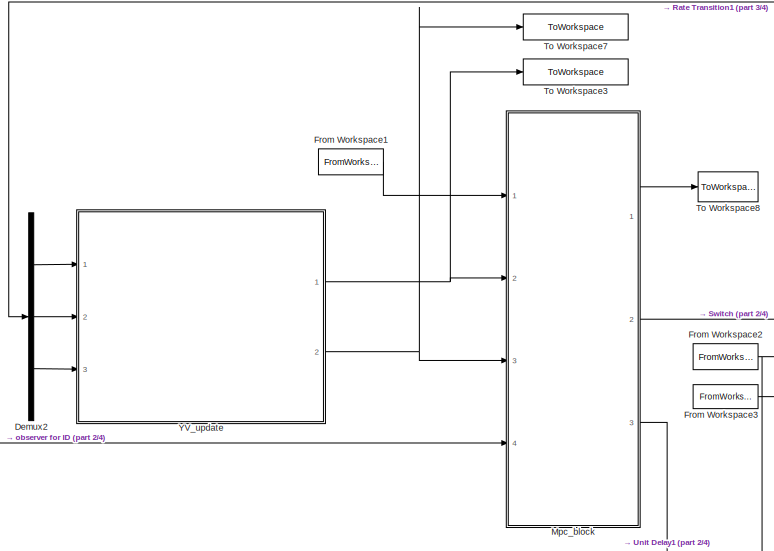
[diagram: root canvas - part 1/4, top left region]
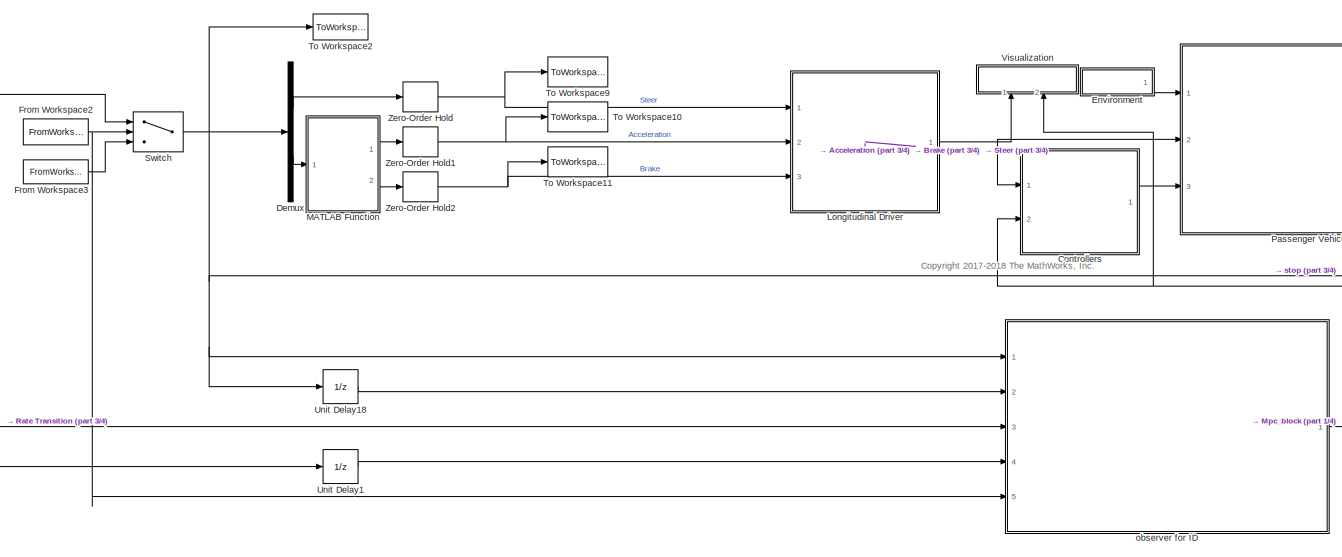
[diagram: root canvas - part 2/4, central region]
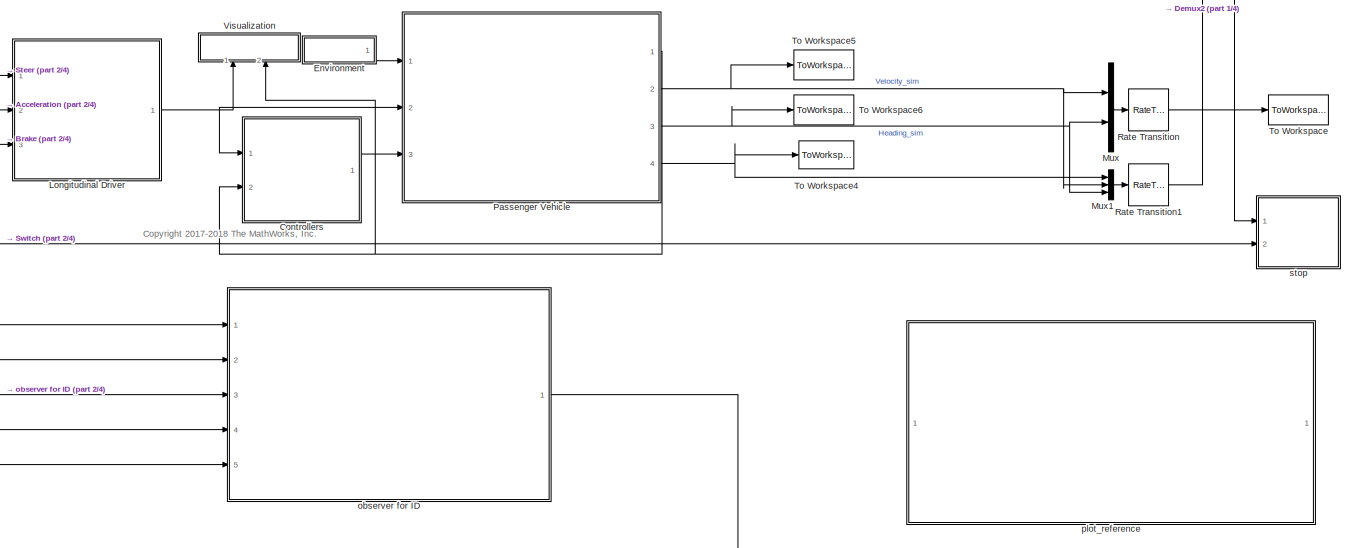
[diagram: root canvas - part 3/4, middle right region]
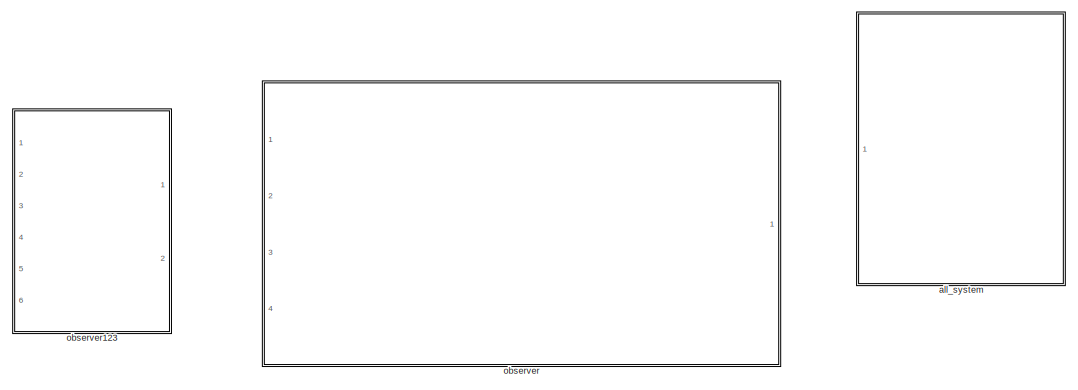
[diagram: root canvas - part 4/4, bottom right region]
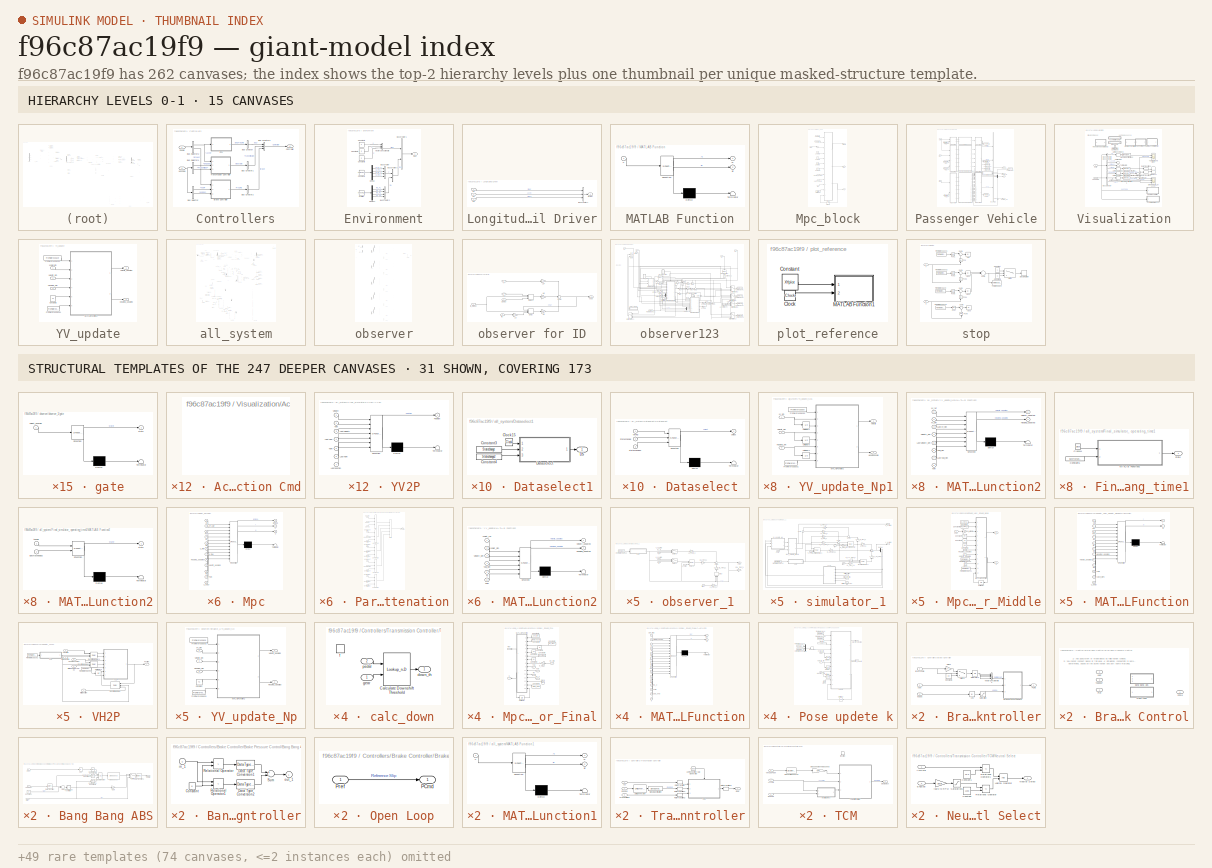
[diagram: thumbnail index - top-2 hierarchy levels (15 canvases) + 31 structural-template representatives of the remaining 247 canvases]
MODEL slx_f96c87ac19f9
KIND model
CONFIG AbsTol = auto
CONFIG EnableMultiTasking = off
CONFIG FixedStep = 0.001
CONFIG MaxStep = auto
CONFIG MinStep = auto
CONFIG RelTol = 5e-3
CONFIG SampleTimeConstraint = Unconstrained
CONFIG Solver = FixedStepAuto
CONFIG SolverName = FixedStepAuto
CONFIG StartTime = 0.0
CONFIG StopTime = Tend-Ts
WORKSPACE source: MAT-file member
WORKSPACE A_mu = 10
BLOCK [SubSystem] Controllers
  Ports = [2, 1]
  RequestExecContextInheritance = off
BLOCK [SubSystem] Controllers/Brake Controller
  Ports = [3, 1]
  RequestExecContextInheritance = off
BLOCK [Abs] Controllers/Brake Controller/Abs
  SaturateOnIntegerOverflow = off
  ZeroCross = off
BLOCK [SubSystem] Controllers/Brake Controller/Brake Pressure Control
  OverrideUsingVariant = 0
  Ports = [3, 1]
  RequestExecContextInheritance = off
  Variant = on
BLOCK [Inport] Controllers/Brake Controller/Brake Pressure Control/<Kappa>
  IconDisplay = Port number
  Port = 3
BLOCK [SubSystem] Controllers/Brake Controller/Brake Pressure Control/Bang Bang ABS
  Ports = [3, 1]
  RequestExecContextInheritance = off
  VariantControl = 1
BLOCK [Inport] Controllers/Brake Controller/Brake Pressure Control/Bang Bang ABS/<Kappa>
  IconDisplay = Port number
  Port = 3
BLOCK [Abs] Controllers/Brake Controller/Brake Pressure Control/Bang Bang ABS/Abs
  SaturateOnIntegerOverflow = off
BLOCK [Sum] Controllers/Brake Controller/Brake Pressure Control/Bang Bang ABS/Add
  InputSameDT = off
  Inputs = -+
  OutDataTypeStr = Inherit: Inherit via internal rule
  Ports = [2, 1]
  SaturateOnIntegerOverflow = off
BLOCK [SubSystem] Controllers/Brake Controller/Brake Pressure Control/Bang Bang ABS/Bang-bang controller
  Ports = [1, 1]
  RequestExecContextInheritance = off
  ShowPortLabels = none
BLOCK [Constant] Controllers/Brake Controller/Brake Pressure Control/Bang Bang ABS/Bang-bang controller/Constant
  Value = 0
BLOCK [DataTypeConversion] Controllers/Brake Controller/Brake Pressure Control/Bang Bang ABS/Bang-bang controller/Data Type Conversion1
  OutDataTypeStr = double
BLOCK [DataTypeConversion] Controllers/Brake Controller/Brake Pressure Control/Bang Bang ABS/Bang-bang controller/Data Type Conversion2
  OutDataTypeStr = double
BLOCK [RelationalOperator] Controllers/Brake Controller/Brake Pressure Control/Bang Bang ABS/Bang-bang controller/Relational Operator
  Operator = >
  OutDataTypeStr = boolean
  Ports = [2, 1]
BLOCK [RelationalOperator] Controllers/Brake Controller/Brake Pressure Control/Bang Bang ABS/Bang-bang controller/Relational Operator1
  Operator = <
  OutDataTypeStr = boolean
  Ports = [2, 1]
BLOCK [Sum] Controllers/Brake Controller/Brake Pressure Control/Bang Bang ABS/Bang-bang controller/Sum
  Inputs = +-
  Ports = [2, 1]
BLOCK [Inport] Controllers/Brake Controller/Brake Pressure Control/Bang Bang ABS/Bang-bang controller/in_1
  IconDisplay = Port number
BLOCK [Outport] Controllers/Brake Controller/Brake Pressure Control/Bang Bang ABS/Bang-bang controller/out_1
  IconDisplay = Port number
  InitialOutput = 0
BLOCK [Reference] Controllers/Brake Controller/Brake Pressure Control/Bang Bang ABS/Compare To Constant  REF=simulink/Logic and Bit
Operations/Compare
To Constant
  Ports = [1, 1]
  SourceBlock = simulink/Logic and Bit\nOperations/Compare\nTo Constant
  SourceProductBaseCode = SL
  SourceProductName = Simulink
  SourceType = Compare To Constant
BLOCK [Reference] Controllers/Brake Controller/Brake Pressure Control/Bang Bang ABS/Compare To Constant1  REF=simulink/Logic and Bit
Operations/Compare
To Constant
  Ports = [1, 1]
  SourceBlock = simulink/Logic and Bit\nOperations/Compare\nTo Constant
  SourceProductBaseCode = SL
  SourceProductName = Simulink
  SourceType = Compare To Constant
BLOCK [Reference] Controllers/Brake Controller/Brake Pressure Control/Bang Bang ABS/Compare To Constant2  REF=simulink/Logic and Bit
Operations/Compare
To Constant
  Ports = [1, 1]
  SourceBlock = simulink/Logic and Bit\nOperations/Compare\nTo Constant
  SourceProductBaseCode = SL
  SourceProductName = Simulink
  SourceType = Compare To Constant
BLOCK [Constant] Controllers/Brake Controller/Brake Pressure Control/Bang Bang ABS/Constant
  Value = .25
BLOCK [Reference] Controllers/Brake Controller/Brake Pressure Control/Bang Bang ABS/Debounce  REF=autolibutils/Debounce
  Ports = [1, 1]
  SourceBlock = autolibutils/Debounce
  SourceProductBaseCode = PW
  SourceProductName = Powertrain Blockset
BLOCK [Gain] Controllers/Brake Controller/Brake Pressure Control/Bang Bang ABS/Gain
  Gain = 200
  OutDataTypeStr = Inherit: Inherit via internal rule
  ParamDataTypeStr = Inherit: Inherit via internal rule
  SaturateOnIntegerOverflow = off
BLOCK [Logic] Controllers/Brake Controller/Brake Pressure Control/Bang Bang ABS/Logical Operator
  AllPortsSameDT = off
  Inputs = 3
  OutDataTypeStr = boolean
  Ports = [3, 1]
BLOCK [Outport] Controllers/Brake Controller/Brake Pressure Control/Bang Bang ABS/PCmd
  IconDisplay = Port number
BLOCK [Inport] Controllers/Brake Controller/Brake Pressure Control/Bang Bang ABS/Pref
  IconDisplay = Port number
BLOCK [RateTransition] Controllers/Brake Controller/Brake Pressure Control/Bang Bang ABS/Rate Transition
  OutPortSampleTime = .001
BLOCK [RateTransition] Controllers/Brake Controller/Brake Pressure Control/Bang Bang ABS/Rate Transition1
BLOCK [Switch] Controllers/Brake Controller/Brake Pressure Control/Bang Bang ABS/Switch
  Criteria = u2 > Threshold
  InputSameDT = off
  SaturateOnIntegerOverflow = off
  ZeroCross = off
BLOCK [Inport] Controllers/Brake Controller/Brake Pressure Control/Bang Bang ABS/xdot
  IconDisplay = Port number
  Port = 2
BLOCK [SubSystem] Controllers/Brake Controller/Brake Pressure Control/Open Loop
  Ports = [1, 1]
  RequestExecContextInheritance = off
  VariantControl = 0
BLOCK [Outport] Controllers/Brake Controller/Brake Pressure Control/Open Loop/PCmd
  IconDisplay = Port number
BLOCK [Inport] Controllers/Brake Controller/Brake Pressure Control/Open Loop/Pref
  IconDisplay = Port number
BLOCK [Outport] Controllers/Brake Controller/Brake Pressure Control/PCmd
  IconDisplay = Port number
BLOCK [Inport] Controllers/Brake Controller/Brake Pressure Control/Pref
  IconDisplay = Port number
BLOCK [Inport] Controllers/Brake Controller/Brake Pressure Control/xdot
  IconDisplay = Port number
  Port = 2
BLOCK [Inport] Controllers/Brake Controller/BrkPrsCmd
  IconDisplay = Port number
BLOCK [Constant] Controllers/Brake Controller/Constant1
  Value = -20
BLOCK [Gain] Controllers/Brake Controller/Gain3
  OutDataTypeStr = Inherit: Inherit via internal rule
  ParamDataTypeStr = Inherit: Inherit via internal rule
  SaturateOnIntegerOverflow = off
BLOCK [Integrator] Controllers/Brake Controller/Integrator2
  LimitOutput = on
  LowerSaturationLimit = 0
  Ports = [1, 1]
  UpperSaturationLimit = 1
BLOCK [Outport] Controllers/Brake Controller/PCmd
  IconDisplay = Port number
BLOCK [Saturate] Controllers/Brake Controller/Saturation
  InputPortMap = u0
  LowerLimit = 0
  Ports = [1, 1]
  UpperLimit = 1
  ZeroCross = off
BLOCK [Switch] Controllers/Brake Controller/Switch1
  Criteria = u2 > Threshold
  InputSameDT = off
  SaturateOnIntegerOverflow = off
  Threshold = .1
BLOCK [Concatenate] Controllers/Brake Controller/Vector Concatenate2
  NumInputs = 4
  Ports = [4, 1]
BLOCK [Inport] Controllers/Brake Controller/kappa
  IconDisplay = Port number
  Port = 3
BLOCK [Inport] Controllers/Brake Controller/xdot
  IconDisplay = Port number
  Port = 2
BLOCK [BusCreator] Controllers/Bus Creator
  DisplayOption = bar
  InheritFromInputs = on
  Inputs = 1
  Ports = [1, 1]
BLOCK [BusCreator] Controllers/Bus Creator1
  DisplayOption = bar
  InheritFromInputs = on
  Inputs = 1
  Ports = [1, 1]
BLOCK [BusCreator] Controllers/Bus Creator2
  DisplayOption = bar
  InheritFromInputs = on
  Inputs = 1
  Ports = [1, 1]
BLOCK [BusCreator] Controllers/Bus Creator3
  DisplayOption = bar
  InheritFromInputs = on
  Inputs = 3
  Ports = [3, 1]
BLOCK [BusSelector] Controllers/Bus Selector
  OutputAsBus = off
  OutputSignals = Body.xdot,Wheels.kappa
  Ports = [1, 2]
BLOCK [BusSelector] Controllers/Bus Selector1
  OutputAsBus = off
  OutputSignals = Driveline.EngSpd,Driveline.PropShftSpd
  Ports = [1, 2]
BLOCK [BusSelector] Controllers/Bus Selector2
  OutputAsBus = off
  OutputSignals = Accel,Brake
  Ports = [1, 2]
BLOCK [Outport] Controllers/Controller
  IconDisplay = Port number
BLOCK [SubSystem] Controllers/ECU
  Ports = [1, 1]
  RequestExecContextInheritance = off
BLOCK [Inport] Controllers/ECU/<Accel>
  IconDisplay = Port number
BLOCK [Gain] Controllers/ECU/Acc to Torque Request
  Gain = 150
  OutDataTypeStr = Inherit: Inherit via internal rule
  ParamDataTypeStr = Inherit: Inherit via internal rule
  SaturateOnIntegerOverflow = off
BLOCK [SubSystem] Controllers/ECU/MATLAB Function
  ErrorFcn = Stateflow.Translate.translate
  PermitHierarchicalResolution = ExplicitOnly
  Ports = [1, 2]
  RequestExecContextInheritance = off
  SFBlockType = MATLAB Function
  TreatAsAtomicUnit = on
BLOCK [Demux] Controllers/ECU/MATLAB Function/ Demux 
  Outputs = 1
  Ports = [1, 1]
BLOCK [S-Function] Controllers/ECU/MATLAB Function/ SFunction 
  EnableBusSupport = on
  FunctionName = sf_sfun
  PortCounts = [1 3]
  Ports = [1, 3]
  SFcnIsStateOwnerBlock = off
  SFunctionDeploymentMode = off
  Tag = Stateflow S-Function MPC_control 15
BLOCK [Terminator] Controllers/ECU/MATLAB Function/ Terminator 
BLOCK [Outport] Controllers/ECU/MATLAB Function/input
  IconDisplay = Port number
BLOCK [Inport] Controllers/ECU/MATLAB Function/input 
  IconDisplay = Port number
BLOCK [Outport] Controllers/ECU/MATLAB Function/output
  IconDisplay = Port number
  Port = 2
BLOCK [Stop] Controllers/ECU/Stop Simulation
BLOCK [Outport] Controllers/ECU/Trq Cmd
  IconDisplay = Port number
BLOCK [Inport] Controllers/Pedals
  IconDisplay = Port number
BLOCK [SubSystem] Controllers/Transmission Controller
  Ports = [3, 1]
  RequestExecContextInheritance = off
BLOCK [Reference] Controllers/Transmission Controller/10ms Function-Call Generator  REF=simulink/Ports &
Subsystems/Function-Call
Generator
  Ports = [0, 1]
  SourceBlock = simulink/Ports &\nSubsystems/Function-Call\nGenerator
  SourceProductBaseCode = SL
  SourceProductName = Simulink
  SourceType = Function-Call Generator
BLOCK [Inport] Controllers/Transmission Controller/Acc
  IconDisplay = Port number
BLOCK [Inport] Controllers/Transmission Controller/EngSpd
  IconDisplay = Port number
  Port = 2
  Unit = rad/s
BLOCK [Outport] Controllers/Transmission Controller/Gear
  IconDisplay = Port number
BLOCK [Inport] Controllers/Transmission Controller/PropShaftSpd
  IconDisplay = Port number
  Port = 3
BLOCK [RateTransition] Controllers/Transmission Controller/Rate Transition
BLOCK [RateTransition] Controllers/Transmission Controller/Rate Transition1
BLOCK [RateTransition] Controllers/Transmission Controller/Rate Transition2
BLOCK [RateTransition] Controllers/Transmission Controller/Rate Transition3
BLOCK [SignalSpecification] Controllers/Transmission Controller/Signal Specification
  Unit = rpm
BLOCK [SubSystem] Controllers/Transmission Controller/TCM
  Ports = [3, 1, 0, 1]
  RequestExecContextInheritance = off
BLOCK [Inport] Controllers/Transmission Controller/TCM/AccCmd
  IconDisplay = Port number
BLOCK [Inport] Controllers/Transmission Controller/TCM/EngSpd
  IconDisplay = Port number
  Port = 2
BLOCK [Outport] Controllers/Transmission Controller/TCM/Gear Select
  IconDisplay = Port number
BLOCK [SubSystem] Controllers/Transmission Controller/TCM/Neutral Select
  Ports = [2, 1]
  RequestExecContextInheritance = off
BLOCK [Inport] Controllers/Transmission Controller/TCM/Neutral Select/AccCmd
  IconDisplay = Port number
BLOCK [Constant] Controllers/Transmission Controller/TCM/Neutral Select/Constant
  Value = 1200
BLOCK [Constant] Controllers/Transmission Controller/TCM/Neutral Select/Constant1
  Value = 1e-6
BLOCK [Inport] Controllers/Transmission Controller/TCM/Neutral Select/EngSpd
  IconDisplay = Port number
  Port = 2
BLOCK [Logic] Controllers/Transmission Controller/TCM/Neutral Select/Logical Operator
  AllPortsSameDT = off
  OutDataTypeStr = boolean
  Ports = [2, 1]
BLOCK [Outport] Controllers/Transmission Controller/TCM/Neutral Select/Neutral Select
  IconDisplay = Port number
BLOCK [RelationalOperator] Controllers/Transmission Controller/TCM/Neutral Select/Relational Operator
  InputSameDT = off
  Operator = <=
  OutDataTypeStr = boolean
  Ports = [2, 1]
  RndMeth = Simplest
BLOCK [RelationalOperator] Controllers/Transmission Controller/TCM/Neutral Select/Relational Operator1
  InputSameDT = off
  Operator = <=
  OutDataTypeStr = boolean
  Ports = [2, 1]
  RndMeth = Simplest
BLOCK [Saturate] Controllers/Transmission Controller/TCM/Neutral Select/Saturation1
  InputPortMap = u0
  LowerLimit = 0
  Ports = [1, 1]
  UpperLimit = 10e3
BLOCK [Gain] Controllers/Transmission Controller/TCM/Neutral Select/rad//s to RPM
  Gain = 30/pi
  OutDataTypeStr = Inherit: Inherit via internal rule
  ParamDataTypeStr = Inherit: Inherit via internal rule
  SaturateOnIntegerOverflow = off
BLOCK [DiscreteTransferFcn] Controllers/Transmission Controller/TCM/Prop Shaft Speed LPF
  Denominator = [1.000000000000000 -0.990049833749168 ]
  InputPortMap = u0
  Numerator = [0.000000000000000 0.009950166250832 ]
  Ports = [1, 1]
BLOCK [SubSystem] Controllers/Transmission Controller/TCM/TCM Shift Controller
  ErrorFcn = Stateflow.Translate.translate
  PermitHierarchicalResolution = ExplicitOnly
  Ports = [3, 1]
  RequestExecContextInheritance = off
  SFBlockType = Chart
  TreatAsAtomicUnit = on
BLOCK [Demux] Controllers/Transmission Controller/TCM/TCM Shift Controller/ Demux 
  Outputs = 3
  Ports = [1, 3]
BLOCK [S-Function] Controllers/Transmission Controller/TCM/TCM Shift Controller/ SFunction 
  EnableBusSupport = on
  FunctionName = sf_sfun
  PortCounts = [6 9]
  Ports = [6, 9]
  SFcnIsStateOwnerBlock = off
  SFunctionDeploymentMode = off
  Tag = Stateflow S-Function MPC_control 1
BLOCK [Outport] Controllers/Transmission Controller/TCM/TCM Shift Controller/GearState
  IconDisplay = Port number
BLOCK [Inport] Controllers/Transmission Controller/TCM/TCM Shift Controller/Neutral
  IconDisplay = Port number
  Port = 3
BLOCK [SubSystem] Controllers/Transmission Controller/TCM/TCM Shift Controller/calc
  Ports = [3, 1, 0, 1]
  PreDeleteFcn = Stateflow.SLINSF.SimulinkMan.removePreDeleteFcn
  RequestExecContextInheritance = off
  UndoDeleteFcn = Stateflow.SLINSF.SimulinkMan.restorePreDeleteFcn
BLOCK [Sum] Controllers/Transmission Controller/TCM/TCM Shift Controller/calc/Add1
  InputSameDT = off
  Inputs = +-
  OutDataTypeStr = Inherit: Inherit via internal rule
  Ports = [2, 1]
  SaturateOnIntegerOverflow = off
BLOCK [Sum] Controllers/Transmission Controller/TCM/TCM Shift Controller/calc/Add3
  InputSameDT = off
  Inputs = +-
  OutDataTypeStr = Inherit: Inherit via internal rule
  Ports = [2, 1]
  SaturateOnIntegerOverflow = off
BLOCK [Sum] Controllers/Transmission Controller/TCM/TCM Shift Controller/calc/Add4
  InputSameDT = off
  Inputs = +-
  OutDataTypeStr = Inherit: Inherit via internal rule
  Ports = [2, 1]
  SaturateOnIntegerOverflow = off
BLOCK [Lookup_n-D] Controllers/Transmission Controller/TCM/TCM Shift Controller/calc/Calculate Downshift Threshold
  BreakpointsForDimension1 = Pedal_Positions
  BreakpointsForDimension2 = 2:8
  ExtrapMethod = Clip
  InternalRulePriority = Speed
  Ports = [2, 1]
  RndMeth = Simplest
  Table = Downshift_Speeds
  UseLastTableValue = on
BLOCK [Lookup_n-D] Controllers/Transmission Controller/TCM/TCM Shift Controller/calc/Calculate Upshift Threshold
  BreakpointsForDimension1 = Pedal_Positions
  BreakpointsForDimension2 = 1:7
  ExtrapMethod = Clip
  InternalRulePriority = Speed
  Ports = [2, 1]
  RndMeth = Simplest
  Table = Upshift_Speeds
  UseLastTableValue = on
BLOCK [Outport] Controllers/Transmission Controller/TCM/TCM Shift Controller/calc/SpdThr
  IconDisplay = Port number
BLOCK [TriggerPort] Controllers/Transmission Controller/TCM/TCM Shift Controller/calc/f
  CopyFcn = Stateflow.SLINSF.SimulinkMan.removeBlockPreDeleteFcn
  Ports = []
  PreDeleteFcn = Stateflow.SLINSF.SimulinkMan.unsafePredeleteFcn
  StatesWhenEnabling = reset
  TriggerType = function-call
  VariantControl = Variant
BLOCK [Inport] Controllers/Transmission Controller/TCM/TCM Shift Controller/calc/gear
  IconDisplay = Port number
BLOCK [Inport] Controllers/Transmission Controller/TCM/TCM Shift Controller/calc/pedal
  IconDisplay = Port number
  Port = 2
BLOCK [Inport] Controllers/Transmission Controller/TCM/TCM Shift Controller/calc/speed
  IconDisplay = Port number
  Port = 3
BLOCK [SubSystem] Controllers/Transmission Controller/TCM/TCM Shift Controller/calc_down
  Ports = [2, 1, 0, 1]
  PreDeleteFcn = Stateflow.SLINSF.SimulinkMan.removePreDeleteFcn
  RequestExecContextInheritance = off
  UndoDeleteFcn = Stateflow.SLINSF.SimulinkMan.restorePreDeleteFcn
BLOCK [Lookup_n-D] Controllers/Transmission Controller/TCM/TCM Shift Controller/calc_down/Calculate Downshift Threshold
  BreakpointsForDimension1 = Pedal_Positions
  BreakpointsForDimension2 = 2:8
  ExtrapMethod = Clip
  InternalRulePriority = Speed
  Ports = [2, 1]
  RndMeth = Simplest
  Table = Downshift_Speeds
  UseLastTableValue = on
BLOCK [Outport] Controllers/Transmission Controller/TCM/TCM Shift Controller/calc_down/down_th
  IconDisplay = Port number
BLOCK [TriggerPort] Controllers/Transmission Controller/TCM/TCM Shift Controller/calc_down/f
  CopyFcn = Stateflow.SLINSF.SimulinkMan.removeBlockPreDeleteFcn
  Ports = []
  PreDeleteFcn = Stateflow.SLINSF.SimulinkMan.unsafePredeleteFcn
  StatesWhenEnabling = reset
  TriggerType = function-call
  VariantControl = Variant
BLOCK [Inport] Controllers/Transmission Controller/TCM/TCM Shift Controller/calc_down/gear
  IconDisplay = Port number
BLOCK [Inport] Controllers/Transmission Controller/TCM/TCM Shift Controller/calc_down/pedal
  IconDisplay = Port number
  Port = 2
BLOCK [SubSystem] Controllers/Transmission Controller/TCM/TCM Shift Controller/calc_up
  Ports = [2, 1, 0, 1]
  PreDeleteFcn = Stateflow.SLINSF.SimulinkMan.removePreDeleteFcn
  RequestExecContextInheritance = off
  UndoDeleteFcn = Stateflow.SLINSF.SimulinkMan.restorePreDeleteFcn
BLOCK [Lookup_n-D] Controllers/Transmission Controller/TCM/TCM Shift Controller/calc_up/Calculate Upshift Threshold
  BreakpointsForDimension1 = Pedal_Positions
  BreakpointsForDimension2 = 1:7
  ExtrapMethod = Clip
  InternalRulePriority = Speed
  Ports = [2, 1]
  RndMeth = Simplest
  Table = Upshift_Speeds
  UseLastTableValue = on
BLOCK [TriggerPort] Controllers/Transmission Controller/TCM/TCM Shift Controller/calc_up/f
  CopyFcn = Stateflow.SLINSF.SimulinkMan.removeBlockPreDeleteFcn
  Ports = []
  PreDeleteFcn = Stateflow.SLINSF.SimulinkMan.unsafePredeleteFcn
  StatesWhenEnabling = reset
  TriggerType = function-call
  VariantControl = Variant
BLOCK [Inport] Controllers/Transmission Controller/TCM/TCM Shift Controller/calc_up/gear
  IconDisplay = Port number
BLOCK [Inport] Controllers/Transmission Controller/TCM/TCM Shift Controller/calc_up/pedal
  IconDisplay = Port number
  Port = 2
BLOCK [Outport] Controllers/Transmission Controller/TCM/TCM Shift Controller/calc_up/up_th
  IconDisplay = Port number
BLOCK [Inport] Controllers/Transmission Controller/TCM/TCM Shift Controller/pedal
  IconDisplay = Port number
  Port = 2
BLOCK [Inport] Controllers/Transmission Controller/TCM/TCM Shift Controller/speed
  IconDisplay = Port number
BLOCK [Inport] Controllers/Transmission Controller/TCM/VehSpdFdbk
  IconDisplay = Port number
  Port = 3
BLOCK [TriggerPort] Controllers/Transmission Controller/TCM/function
  Ports = []
  StatesWhenEnabling = held
  TriggerType = function-call
  VariantControl = Variant
BLOCK [Gain] Controllers/Transmission Controller/TCM/prop speed to vehicle speed
  Gain = 0.45
  OutDataTypeStr = Inherit: Inherit via internal rule
  ParamDataTypeStr = Inherit: Inherit via internal rule
  SaturateOnIntegerOverflow = off
BLOCK [UnitConversion] Controllers/Transmission Controller/Unit Conversion
BLOCK [Inport] Controllers/VehFdbk
  IconDisplay = Port number
  Port = 2
BLOCK [Demux] Demux
  DisplayOption = bar
  Outputs = 2
  Ports = [1, 2]
BLOCK [Demux] Demux2
  DisplayOption = bar
  Outputs = 3
  Ports = [1, 3]
BLOCK [SubSystem] Environment
  Ports = [0, 1]
  RequestExecContextInheritance = off
  TreatAsAtomicUnit = on
BLOCK [BusCreator] Environment/Bus Creator
  DisplayOption = bar
  InheritFromInputs = on
  Inputs = 4
  Ports = [4, 1]
BLOCK [BusCreator] Environment/Bus Creator1
  DisplayOption = bar
  InheritFromInputs = on
  Inputs = 2
  Ports = [2, 1]
BLOCK [BusCreator] Environment/Bus Creator2
  DisplayOption = bar
  InheritFromInputs = on
  Inputs = 4
  Ports = [4, 1]
BLOCK [BusCreator] Environment/Bus Creator3
  DisplayOption = bar
  InheritFromInputs = on
  Inputs = 2
  Ports = [2, 1]
BLOCK [Constant] Environment/Constant1
  Value = zeros(4,1)
BLOCK [Constant] Environment/Constant3
  Value = 0
BLOCK [Constant] Environment/Constant4
  Value = 0
BLOCK [Constant] Environment/Constant5
  Value = 0
BLOCK [Demux] Environment/Demux
  DisplayOption = bar
  Ports = [1, 4]
BLOCK [Demux] Environment/Demux1
  DisplayOption = bar
  Ports = [1, 4]
BLOCK [Outport] Environment/Env
  IconDisplay = Port number
BLOCK [Constant] Environment/Friction
  Value = ones(4,1).*1
BLOCK [Concatenate] Environment/Vector Concatenate
  NumInputs = 3
  Ports = [3, 1]
BLOCK [FromWorkspace] From Workspace1
  SampleTime = Ts
  VariableName = Rs
  ZeroCross = on
BLOCK [FromWorkspace] From Workspace2
  SampleTime = Ts
  VariableName = ID_interval
  ZeroCross = on
BLOCK [FromWorkspace] From Workspace3
  SampleTime = Ts
  VariableName = U_ref
  ZeroCross = on
BLOCK [SubSystem] Longitudinal Driver
  Ports = [3, 1]
  RequestExecContextInheritance = off
  SystemSampleTime = Tf
  VariantControl = 0
BLOCK [BusCreator] Longitudinal Driver/Bus Creator1
  DisplayOption = bar
  InheritFromInputs = on
  Inputs = 3
  Ports = [3, 1]
BLOCK [Outport] Longitudinal Driver/Driver
  IconDisplay = Port number
BLOCK [Inport] Longitudinal Driver/In1
  IconDisplay = Port number
  SampleTime = Tf
BLOCK [Inport] Longitudinal Driver/In2
  IconDisplay = Port number
  Port = 2
  SampleTime = Tf
BLOCK [Inport] Longitudinal Driver/In3
  IconDisplay = Port number
  Port = 3
  SampleTime = Tf
BLOCK [SubSystem] MATLAB Function
  ErrorFcn = Stateflow.Translate.translate
  PermitHierarchicalResolution = ExplicitOnly
  Ports = [1, 2]
  RequestExecContextInheritance = off
  SFBlockType = MATLAB Function
  SystemSampleTime = Ts
  TreatAsAtomicUnit = on
BLOCK [Demux] MATLAB Function/ Demux 
  Outputs = 1
  Ports = [1, 1]
BLOCK [S-Function] MATLAB Function/ SFunction 
  EnableBusSupport = on
  FunctionName = sf_sfun
  PortCounts = [1 3]
  Ports = [1, 3]
  SFcnIsStateOwnerBlock = off
  SFunctionDeploymentMode = off
  Tag = Stateflow S-Function MPC_control 3
BLOCK [Terminator] MATLAB Function/ Terminator 
BLOCK [Outport] MATLAB Function/Ac
  IconDisplay = Port number
BLOCK [Outport] MATLAB Function/Br
  IconDisplay = Port number
  Port = 2
BLOCK [Inport] MATLAB Function/u
  IconDisplay = Port number
BLOCK [SubSystem] Mpc_block
  Ports = [4, 3]
  RequestExecContextInheritance = off
  SystemSampleTime = Ts
  TreatAsAtomicUnit = on
BLOCK [Constant] Mpc_block/Constant1
  SampleTime = -1
  Value = M
  VectorParams1D = off
BLOCK [Constant] Mpc_block/Constant16
  SampleTime = -1
  Value = U_max
  VectorParams1D = off
BLOCK [Constant] Mpc_block/Constant2
  SampleTime = -1
  Value = Np
BLOCK [Constant] Mpc_block/Constant4
  SampleTime = -1
  Value = U_min
  VectorParams1D = off
BLOCK [Constant] Mpc_block/Constant5
  SampleTime = -1
  Value = JF_part
  VectorParams1D = off
BLOCK [Constant] Mpc_block/Constant6
  SampleTime = -1
  Value = JE
  VectorParams1D = off
BLOCK [DigitalClock] Mpc_block/Digital Clock
  SampleTime = Ts
BLOCK [Gain] Mpc_block/F
  Gain = F
  Multiplication = Matrix(K*u) (u vector)
  OutDataTypeStr = Inherit: Inherit via internal rule
  ParamDataTypeStr = Inherit: Inherit via internal rule
  SaturateOnIntegerOverflow = off
BLOCK [Inport] Mpc_block/Heading_updated
  IconDisplay = Port number
  LockScale = on
  Port = 3
  SampleTime = Ts
BLOCK [SubSystem] Mpc_block/Mpc
  ErrorFcn = Stateflow.Translate.translate
  PermitHierarchicalResolution = ExplicitOnly
  Ports = [12, 3]
  RequestExecContextInheritance = off
  SFBlockType = MATLAB Function
  SystemSampleTime = Ts
  TreatAsAtomicUnit = on
BLOCK [Demux] Mpc_block/Mpc/ Demux 
  Outputs = 1
  Ports = [1, 1]
BLOCK [S-Function] Mpc_block/Mpc/ SFunction 
  EnableBusSupport = on
  FunctionName = sf_sfun
  PortCounts = [12 4]
  Ports = [12, 4]
  SFcnIsStateOwnerBlock = off
  SFunctionDeploymentMode = off
  Tag = Stateflow S-Function MPC_control 2
BLOCK [Terminator] Mpc_block/Mpc/ Terminator 
BLOCK [Inport] Mpc_block/Mpc/Fxh
  IconDisplay = Port number
  Port = 3
BLOCK [Inport] Mpc_block/Mpc/Heading_updated
  IconDisplay = Port number
  Port = 8
BLOCK [Inport] Mpc_block/Mpc/JE
  IconDisplay = Port number
BLOCK [Inport] Mpc_block/Mpc/JF_part
  IconDisplay = Port number
  Port = 2
BLOCK [Inport] Mpc_block/Mpc/M
  IconDisplay = Port number
  Port = 4
BLOCK [Inport] Mpc_block/Mpc/Np
  IconDisplay = Port number
  Port = 5
BLOCK [Inport] Mpc_block/Mpc/Rs
  IconDisplay = Port number
  Port = 10
BLOCK [Inport] Mpc_block/Mpc/Tsim
  IconDisplay = Port number
  Port = 11
BLOCK [Outport] Mpc_block/Mpc/U
  IconDisplay = Port number
  Port = 3
BLOCK [Inport] Mpc_block/Mpc/U_delay
  IconDisplay = Port number
  Port = 12
BLOCK [Inport] Mpc_block/Mpc/U_max
  IconDisplay = Port number
  Port = 7
BLOCK [Inport] Mpc_block/Mpc/U_min
  IconDisplay = Port number
  Port = 6
BLOCK [Inport] Mpc_block/Mpc/Velocity_updated
  IconDisplay = Port number
  Port = 9
BLOCK [Outport] Mpc_block/Mpc/lambda
  IconDisplay = Port number
BLOCK [Outport] Mpc_block/Mpc/r
  IconDisplay = Port number
  Port = 2
BLOCK [Inport] Mpc_block/Rs
  IconDisplay = Port number
  LockScale = on
  SampleTime = Ts
  VarSizeSig = No
BLOCK [Outport] Mpc_block/U
  IconDisplay = Port number
  Port = 2
BLOCK [UnitDelay] Mpc_block/Unit Delay
  InitialCondition = [0;0]
  InputProcessing = Elements as channels (sample based)
  SampleTime = Ts
BLOCK [Inport] Mpc_block/Velocity_updated
  IconDisplay = Port number
  Port = 2
  SampleTime = Ts
BLOCK [Inport] Mpc_block/Xhat
  IconDisplay = Port number
  Port = 4
BLOCK [Outport] Mpc_block/lambda
  IconDisplay = Port number
BLOCK [Outport] Mpc_block/r(k+1)
  IconDisplay = Port number
  Port = 3
BLOCK [Mux] Mux
  DisplayOption = bar
  Inputs = 2
  Ports = [2, 1]
BLOCK [Mux] Mux1
  DisplayOption = bar
  Inputs = 3
  Ports = [3, 1]
BLOCK [SubSystem] Passenger Vehicle
  MinAlgLoopOccurrences = on
  Ports = [3, 4]
  RequestExecContextInheritance = off
  TreatAsAtomicUnit = on
BLOCK [SubSystem] Passenger Vehicle/Body, Suspension, Wheels
  OverrideUsingVariant = 1
  Ports = [6, 20]
  RequestExecContextInheritance = off
  Variant = on
BLOCK [Inport] Passenger Vehicle/Body, Suspension, Wheels/AxleTrq
  IconDisplay = Port number
  Port = 5
BLOCK [Inport] Passenger Vehicle/Body, Suspension, Wheels/BrkPrs
  IconDisplay = Port number
  Port = 6
BLOCK [Inport] Passenger Vehicle/Body, Suspension, Wheels/Friction
  IconDisplay = Port number
  Port = 3
  PortDimensions = 4
BLOCK [Inport] Passenger Vehicle/Body, Suspension, Wheels/Ground
  IconDisplay = Port number
  Port = 2
  PortDimensions = 4
BLOCK [ModelReference] Passenger Vehicle/Body, Suspension, Wheels/PassVeh14DOF
  DisableCoverage = on
  ModelNameDialog = PassVeh14DOF
  ModelReferenceVersion = 1.200
  Ports = [6, 20]
  VariantControl = 3
BLOCK [ModelReference] Passenger Vehicle/Body, Suspension, Wheels/PassVeh7DOF
  DisableCoverage = on
  ModelNameDialog = PassVeh7DOF
  ModelReferenceVersion = 1.152
  Ports = [6, 20]
  VariantControl = 1
BLOCK [Inport] Passenger Vehicle/Body, Suspension, Wheels/WheelAngle
  IconDisplay = Port number
  Port = 4
BLOCK [Inport] Passenger Vehicle/Body, Suspension, Wheels/WindXYZ
  IconDisplay = Port number
BLOCK [Outport] Passenger Vehicle/Body, Suspension, Wheels/X
  IconDisplay = Port number
  Port = 3
BLOCK [Outport] Passenger Vehicle/Body, Suspension, Wheels/XWheel
  IconDisplay = Port number
  Port = 19
BLOCK [Outport] Passenger Vehicle/Body, Suspension, Wheels/Xdot
  IconDisplay = Port number
  Port = 6
BLOCK [Outport] Passenger Vehicle/Body, Suspension, Wheels/Y
  IconDisplay = Port number
  Port = 4
BLOCK [Outport] Passenger Vehicle/Body, Suspension, Wheels/YWheel
  IconDisplay = Port number
  Port = 20
BLOCK [Outport] Passenger Vehicle/Body, Suspension, Wheels/Ydot
  IconDisplay = Port number
  Port = 7
BLOCK [Outport] Passenger Vehicle/Body, Suspension, Wheels/Z
  IconDisplay = Port number
  Port = 5
BLOCK [Outport] Passenger Vehicle/Body, Suspension, Wheels/ZHP
  IconDisplay = Port number
  Port = 18
  Unit = m
BLOCK [Outport] Passenger Vehicle/Body, Suspension, Wheels/ay
  IconDisplay = Port number
  Port = 14
BLOCK [Outport] Passenger Vehicle/Body, Suspension, Wheels/kappa
  IconDisplay = Port number
  Port = 15
BLOCK [Outport] Passenger Vehicle/Body, Suspension, Wheels/omega
  IconDisplay = Port number
  Port = 17
BLOCK [Outport] Passenger Vehicle/Body, Suspension, Wheels/p
  IconDisplay = Port number
  Port = 11
BLOCK [Outport] Passenger Vehicle/Body, Suspension, Wheels/phi
  IconDisplay = Port number
  Port = 8
BLOCK [Outport] Passenger Vehicle/Body, Suspension, Wheels/psi
  IconDisplay = Port number
  Port = 10
BLOCK [Outport] Passenger Vehicle/Body, Suspension, Wheels/q
  IconDisplay = Port number
  Port = 12
BLOCK [Outport] Passenger Vehicle/Body, Suspension, Wheels/r
  IconDisplay = Port number
  Port = 13
BLOCK [Outport] Passenger Vehicle/Body, Suspension, Wheels/theta
  IconDisplay = Port number
  Port = 9
BLOCK [Outport] Passenger Vehicle/Body, Suspension, Wheels/xdot
  IconDisplay = Port number
BLOCK [Outport] Passenger Vehicle/Body, Suspension, Wheels/ydot
  IconDisplay = Port number
  Port = 2
BLOCK [Outport] Passenger Vehicle/Body, Suspension, Wheels/zAxle
  IconDisplay = Port number
  Port = 16
BLOCK [BusCreator] Passenger Vehicle/Bus Creator2
  DisplayOption = bar
  InheritFromInputs = on
  Inputs = 4
  Ports = [4, 1]
BLOCK [Inport] Passenger Vehicle/Cntrl
  IconDisplay = Port number
  Port = 3
BLOCK [SubSystem] Passenger Vehicle/Engine
  OverrideUsingVariant = 0
  Ports = [2, 1]
  RequestExecContextInheritance = off
  Variant = on
BLOCK [Inport] Passenger Vehicle/Engine/EngSpd
  IconDisplay = Port number
  Port = 2
  Unit = rad/s
BLOCK [Outport] Passenger Vehicle/Engine/EngTrq
  IconDisplay = Port number
BLOCK [ModelReference] Passenger Vehicle/Engine/Ideal Mapped Engine
  DisableCoverage = on
  ModelNameDialog = SiMappedEngineV
  ModelReferenceVersion = 1.335
  Ports = [2, 1]
  VariantControl = 0
BLOCK [Inport] Passenger Vehicle/Engine/TrqCmd
  IconDisplay = Port number
BLOCK [Inport] Passenger Vehicle/Env
  IconDisplay = Port number
BLOCK [From] Passenger Vehicle/From
  GotoTag = Driveline
BLOCK [From] Passenger Vehicle/From1
  GotoTag = Wheels
BLOCK [From] Passenger Vehicle/From2
  GotoTag = EngTrq
BLOCK [From] Passenger Vehicle/From3
  GotoTag = Driveline
BLOCK [Goto] Passenger Vehicle/Goto
  GotoTag = Driveline
BLOCK [Goto] Passenger Vehicle/Goto1
  GotoTag = Wheels
BLOCK [Goto] Passenger Vehicle/Goto2
  GotoTag = EngTrq
BLOCK [Outport] Passenger Vehicle/Heading_sim
  IconDisplay = Port number
  Port = 3
BLOCK [Mux] Passenger Vehicle/Mux
  DisplayOption = bar
  Inputs = 2
  Ports = [2, 1]
BLOCK [Inport] Passenger Vehicle/Steer
  IconDisplay = Port number
  Port = 2
BLOCK [SubSystem] Passenger Vehicle/Steering, Transmission, Driveline and Brakes
  OverrideUsingVariant = 0
  Ports = [5, 5]
  RequestExecContextInheritance = off
  Variant = on
BLOCK [Outport] Passenger Vehicle/Steering, Transmission, Driveline and Brakes/AxlTrq
  IconDisplay = Port number
  Port = 2
BLOCK [Outport] Passenger Vehicle/Steering, Transmission, Driveline and Brakes/BrkPrs
  IconDisplay = Port number
  Port = 3
  PortDimensions = 4
BLOCK [Inport] Passenger Vehicle/Steering, Transmission, Driveline and Brakes/BrkPrsCmd
  IconDisplay = Port number
  Port = 4
  PortDimensions = 4
BLOCK [ModelReference] Passenger Vehicle/Steering, Transmission, Driveline and Brakes/Driveline Ideal Fixed Gear
  DisableCoverage = on
  ModelNameDialog = Driveline
  ModelReferenceVersion = 1.207
  Ports = [5, 5]
  VariantControl = 0
BLOCK [Outport] Passenger Vehicle/Steering, Transmission, Driveline and Brakes/EngSpd
  IconDisplay = Port number
  Port = 4
  Unit = rad/s
BLOCK [Inport] Passenger Vehicle/Steering, Transmission, Driveline and Brakes/EngTrq
  IconDisplay = Port number
  Port = 2
BLOCK [Inport] Passenger Vehicle/Steering, Transmission, Driveline and Brakes/GearCmd
  IconDisplay = Port number
  OutDataTypeStr = int8
  Port = 3
BLOCK [Outport] Passenger Vehicle/Steering, Transmission, Driveline and Brakes/PropShftSpd
  IconDisplay = Port number
  Port = 5
BLOCK [Inport] Passenger Vehicle/Steering, Transmission, Driveline and Brakes/SteerHWCmd
  IconDisplay = Port number
BLOCK [Outport] Passenger Vehicle/Steering, Transmission, Driveline and Brakes/WhlAng
  IconDisplay = Port number
BLOCK [Inport] Passenger Vehicle/Steering, Transmission, Driveline and Brakes/omega
  IconDisplay = Port number
  Port = 5
BLOCK [SubSystem] Passenger Vehicle/Subsystem
  Ports = [2, 6]
  RequestExecContextInheritance = off
BLOCK [Outport] Passenger Vehicle/Subsystem/AxleTrq
  IconDisplay = Port number
  Port = 5
BLOCK [Outport] Passenger Vehicle/Subsystem/BrkPrs
  IconDisplay = Port number
  Port = 6
BLOCK [BusSelector] Passenger Vehicle/Subsystem/Bus Selector1
  OutputAsBus = off
  OutputSignals = Gnd.z.G_FL_z,Gnd.z.G_FR_z,Gnd.z.G_RL_z,Gnd.z.G_RR_z
  Ports = [1, 4]
BLOCK [BusSelector] Passenger Vehicle/Subsystem/Bus Selector2
  OutputAsBus = off
  OutputSignals = Wind
  Ports = [1, 1]
BLOCK [BusSelector] Passenger Vehicle/Subsystem/Bus Selector3
  OutputAsBus = off
  OutputSignals = Gnd.mu.mu_FL,Gnd.mu.mu_FR,Gnd.mu.mu_RL,Gnd.mu.mu_RR
  Ports = [1, 4]
BLOCK [BusSelector] Passenger Vehicle/Subsystem/Bus Selector4
  OutputAsBus = off
  OutputSignals = WhlAng,AxlTrq,BrkPrs
  Ports = [1, 3]
BLOCK [Inport] Passenger Vehicle/Subsystem/Driveline
  IconDisplay = Port number
  Port = 2
BLOCK [Inport] Passenger Vehicle/Subsystem/Env
  IconDisplay = Port number
BLOCK [Outport] Passenger Vehicle/Subsystem/Gnd
  IconDisplay = Port number
  Port = 2
BLOCK [Concatenate] Passenger Vehicle/Subsystem/Vector Concatenate
  NumInputs = 4
  Ports = [4, 1]
BLOCK [Concatenate] Passenger Vehicle/Subsystem/Vector Concatenate1
  NumInputs = 4
  Ports = [4, 1]
BLOCK [Outport] Passenger Vehicle/Subsystem/WhlAng
  IconDisplay = Port number
  Port = 4
BLOCK [Outport] Passenger Vehicle/Subsystem/Wind
  IconDisplay = Port number
BLOCK [Outport] Passenger Vehicle/Subsystem/mu
  IconDisplay = Port number
  Port = 3
BLOCK [SubSystem] Passenger Vehicle/Subsystem1
  Ports = [5, 1]
  RequestExecContextInheritance = off
BLOCK [Inport] Passenger Vehicle/Subsystem1/AxlTrq
  IconDisplay = Port number
  Port = 2
BLOCK [Inport] Passenger Vehicle/Subsystem1/BrkPrs
  IconDisplay = Port number
  Port = 3
BLOCK [BusCreator] Passenger Vehicle/Subsystem1/Bus Creator1
  DisplayOption = bar
  InheritFromInputs = on
  Inputs = 5
  Ports = [5, 1]
BLOCK [Outport] Passenger Vehicle/Subsystem1/Driveline
  IconDisplay = Port number
BLOCK [Inport] Passenger Vehicle/Subsystem1/EngSpd
  IconDisplay = Port number
  Port = 4
BLOCK [Inport] Passenger Vehicle/Subsystem1/PropShftSpd
  IconDisplay = Port number
  Port = 5
BLOCK [Inport] Passenger Vehicle/Subsystem1/WhlAng
  IconDisplay = Port number
BLOCK [SubSystem] Passenger Vehicle/Subsystem2
  Ports = [4, 5]
  RequestExecContextInheritance = off
BLOCK [BusSelector] Passenger Vehicle/Subsystem2/Bus Selector1
  OutputAsBus = off
  OutputSignals = Steer
  Ports = [1, 1]
BLOCK [BusSelector] Passenger Vehicle/Subsystem2/Bus Selector2
  OutputAsBus = off
  OutputSignals = omega
  Ports = [1, 1]
BLOCK [BusSelector] Passenger Vehicle/Subsystem2/Bus Selector3
  OutputAsBus = off
  OutputSignals = Transmission.GearCmd,Brake.PrsCmd
  Ports = [1, 2]
BLOCK [BusSelector] Passenger Vehicle/Subsystem2/Bus Selector4
  OutputAsBus = off
  OutputSignals = EngTrq
  Ports = [1, 1]
BLOCK [Inport] Passenger Vehicle/Subsystem2/Cntrl
  IconDisplay = Port number
BLOCK [Outport] Passenger Vehicle/Subsystem2/EngTrq
  IconDisplay = Port number
  Port = 2
BLOCK [Inport] Passenger Vehicle/Subsystem2/EngTrqCmd
  IconDisplay = Port number
  Port = 3
BLOCK [Outport] Passenger Vehicle/Subsystem2/GearCmd
  IconDisplay = Port number
  Port = 3
BLOCK [Outport] Passenger Vehicle/Subsystem2/PrsCmd
  IconDisplay = Port number
  Port = 4
BLOCK [Outport] Passenger Vehicle/Subsystem2/Steer
  IconDisplay = Port number
BLOCK [Inport] Passenger Vehicle/Subsystem2/SteerCmd
  IconDisplay = Port number
  Port = 2
BLOCK [Inport] Passenger Vehicle/Subsystem2/Wheels
  IconDisplay = Port number
  Port = 4
BLOCK [Outport] Passenger Vehicle/Subsystem2/omega
  IconDisplay = Port number
  Port = 5
BLOCK [SubSystem] Passenger Vehicle/Subsystem3
  Ports = [2, 2]
  RequestExecContextInheritance = off
BLOCK [BusSelector] Passenger Vehicle/Subsystem3/Bus Selector
  OutputAsBus = off
  OutputSignals = ECU.EngTrqCmd
  Ports = [1, 1]
BLOCK [BusSelector] Passenger Vehicle/Subsystem3/Bus Selector1
  OutputAsBus = off
  OutputSignals = EngSpd
  Ports = [1, 1]
BLOCK [Inport] Passenger Vehicle/Subsystem3/Cntrl
  IconDisplay = Port number
BLOCK [Inport] Passenger Vehicle/Subsystem3/Driveline
  IconDisplay = Port number
  Port = 2
BLOCK [Outport] Passenger Vehicle/Subsystem3/EngSpd
  IconDisplay = Port number
  Port = 2
BLOCK [Outport] Passenger Vehicle/Subsystem3/EngTrqCmd
  IconDisplay = Port number
BLOCK [SubSystem] Passenger Vehicle/Subsystem4
  Ports = [20, 2]
  RequestExecContextInheritance = off
BLOCK [BusCreator] Passenger Vehicle/Subsystem4/Bus Creator
  DisplayOption = bar
  InheritFromInputs = on
  Inputs = 15
  Ports = [15, 1]
BLOCK [BusCreator] Passenger Vehicle/Subsystem4/Bus Creator3
  DisplayOption = bar
  InheritFromInputs = on
  Inputs = 5
  Ports = [5, 1]
BLOCK [Outport] Passenger Vehicle/Subsystem4/Chassis
  IconDisplay = Port number
BLOCK [Outport] Passenger Vehicle/Subsystem4/Wheels
  IconDisplay = Port number
  Port = 2
BLOCK [Inport] Passenger Vehicle/Subsystem4/X
  IconDisplay = Port number
  Port = 3
BLOCK [Inport] Passenger Vehicle/Subsystem4/XWheel
  IconDisplay = Port number
  Port = 19
BLOCK [Inport] Passenger Vehicle/Subsystem4/Xdot
  IconDisplay = Port number
  Port = 6
BLOCK [Inport] Passenger Vehicle/Subsystem4/Y
  IconDisplay = Port number
  Port = 4
BLOCK [Inport] Passenger Vehicle/Subsystem4/YWheel
  IconDisplay = Port number
  Port = 20
BLOCK [Inport] Passenger Vehicle/Subsystem4/Ydot
  IconDisplay = Port number
  Port = 7
BLOCK [Inport] Passenger Vehicle/Subsystem4/Z
  IconDisplay = Port number
  Port = 5
BLOCK [Inport] Passenger Vehicle/Subsystem4/ZHP
  IconDisplay = Port number
  Port = 18
BLOCK [Inport] Passenger Vehicle/Subsystem4/ay
  IconDisplay = Port number
  Port = 14
BLOCK [Inport] Passenger Vehicle/Subsystem4/kappa
  IconDisplay = Port number
  Port = 15
BLOCK [Inport] Passenger Vehicle/Subsystem4/omega
  IconDisplay = Port number
  Port = 17
BLOCK [Inport] Passenger Vehicle/Subsystem4/p
  IconDisplay = Port number
  Port = 11
BLOCK [Inport] Passenger Vehicle/Subsystem4/phi
  IconDisplay = Port number
  Port = 8
BLOCK [Inport] Passenger Vehicle/Subsystem4/psi
  IconDisplay = Port number
  Port = 10
BLOCK [Inport] Passenger Vehicle/Subsystem4/q
  IconDisplay = Port number
  Port = 12
BLOCK [Inport] Passenger Vehicle/Subsystem4/r
  IconDisplay = Port number
  Port = 13
BLOCK [Inport] Passenger Vehicle/Subsystem4/theta
  IconDisplay = Port number
  Port = 9
BLOCK [Inport] Passenger Vehicle/Subsystem4/xdot
  IconDisplay = Port number
BLOCK [Inport] Passenger Vehicle/Subsystem4/ydot
  IconDisplay = Port number
  Port = 2
BLOCK [Inport] Passenger Vehicle/Subsystem4/zAxle
  IconDisplay = Port number
  Port = 16
BLOCK [SubSystem] Passenger Vehicle/Subsystem5
  Ports = [1, 1]
  RequestExecContextInheritance = off
BLOCK [BusCreator] Passenger Vehicle/Subsystem5/Bus Creator
  DisplayOption = bar
  InheritFromInputs = on
  Inputs = 1
  Ports = [1, 1]
BLOCK [Outport] Passenger Vehicle/Subsystem5/Eng
  IconDisplay = Port number
BLOCK [Inport] Passenger Vehicle/Subsystem5/EngTrq 
  IconDisplay = Port number
BLOCK [Sum] Passenger Vehicle/Sum1
  IconShape = round
  InputSameDT = off
  OutDataTypeStr = Inherit: Inherit via internal rule
  Ports = [2, 1]
  SaturateOnIntegerOverflow = off
BLOCK [ToWorkspace] Passenger Vehicle/To Workspace1
  FixptAsFi = on
  MaxDataPoints = inf
  Ports = [1]
  SampleTime = Ts
  Save2DSignal = 3-D array (concatenate along third dimension)
  VariableName = Vy_sim
BLOCK [ToWorkspace] Passenger Vehicle/To Workspace2
  FixptAsFi = on
  MaxDataPoints = inf
  Ports = [1]
  SampleTime = Ts
  Save2DSignal = 3-D array (concatenate along third dimension)
  VariableName = Vx_sim
BLOCK [ToWorkspace] Passenger Vehicle/To Workspace3
  FixptAsFi = on
  MaxDataPoints = inf
  Ports = [1]
  SampleTime = Ts
  Save2DSignal = 3-D array (concatenate along third dimension)
  VariableName = Beta_sim
BLOCK [Outport] Passenger Vehicle/VehFdbk
  IconDisplay = Port number
BLOCK [Outport] Passenger Vehicle/Velocity_sim
  IconDisplay = Port number
  Port = 2
BLOCK [Outport] Passenger Vehicle/XY
  IconDisplay = Port number
  Port = 4
BLOCK [SubSystem] Passenger Vehicle/beta
  ErrorFcn = Stateflow.Translate.translate
  MinAlgLoopOccurrences = on
  PermitHierarchicalResolution = ExplicitOnly
  Ports = [2, 2]
  RTWSystemCode = Reusable function
  RequestExecContextInheritance = off
  SFBlockType = MATLAB Function
  SystemSampleTime = Tf
  TreatAsAtomicUnit = on
BLOCK [Demux] Passenger Vehicle/beta/ Demux 
  Outputs = 1
  Ports = [1, 1]
BLOCK [S-Function] Passenger Vehicle/beta/ SFunction 
  EnableBusSupport = on
  FunctionName = sf_sfun
  PortCounts = [2 3]
  Ports = [2, 3]
  SFcnIsStateOwnerBlock = off
  SFunctionDeploymentMode = off
  Tag = Stateflow S-Function MPC_control 7
BLOCK [Terminator] Passenger Vehicle/beta/ Terminator 
BLOCK [Outport] Passenger Vehicle/beta/Velocity
  IconDisplay = Port number
  Port = 2
BLOCK [Outport] Passenger Vehicle/beta/beta
  IconDisplay = Port number
BLOCK [Inport] Passenger Vehicle/beta/xdot
  IconDisplay = Port number
BLOCK [Inport] Passenger Vehicle/beta/ydot
  IconDisplay = Port number
  Port = 2
BLOCK [RateTransition] Rate Transition
  OutPortSampleTime = Ts
BLOCK [RateTransition] Rate Transition1
  OutPortSampleTime = Ts
BLOCK [Switch] Switch
  Criteria = u2 > Threshold
  InputSameDT = off
  SaturateOnIntegerOverflow = off
BLOCK [ToWorkspace] To Workspace
  FixptAsFi = on
  MaxDataPoints = inf
  Ports = [1]
  SampleTime = Ts
  Save2DSignal = 3-D array (concatenate along third dimension)
  VariableName = Y
BLOCK [ToWorkspace] To Workspace10
  FixptAsFi = on
  MaxDataPoints = inf
  Ports = [1]
  SampleTime = Tf
  Save2DSignal = 3-D array (concatenate along third dimension)
  VariableName = Acceleration_sim
BLOCK [ToWorkspace] To Workspace11
  FixptAsFi = on
  MaxDataPoints = inf
  Ports = [1]
  SampleTime = Tf
  Save2DSignal = 3-D array (concatenate along third dimension)
  VariableName = Brake_sim
BLOCK [ToWorkspace] To Workspace2
  FixptAsFi = on
  MaxDataPoints = inf
  Ports = [1]
  SampleTime = Ts
  Save2DSignal = 3-D array (concatenate along third dimension)
  VariableName = U
BLOCK [ToWorkspace] To Workspace3
  MaxDataPoints = inf
  Ports = [1]
  SampleTime = Ts
  Save2DSignal = 2-D array (concatenate along first dimension)
  VariableName = Velocity_updated
BLOCK [ToWorkspace] To Workspace4
  FixptAsFi = on
  MaxDataPoints = inf
  Ports = [1]
  SampleTime = Ts
  Save2DSignal = 3-D array (concatenate along third dimension)
  VariableName = XYplot_sim
BLOCK [ToWorkspace] To Workspace5
  FixptAsFi = on
  MaxDataPoints = inf
  Ports = [1]
  SampleTime = Ts
  Save2DSignal = 3-D array (concatenate along third dimension)
  VariableName = Velocity_sim
BLOCK [ToWorkspace] To Workspace6
  FixptAsFi = on
  MaxDataPoints = inf
  Ports = [1]
  SampleTime = Ts
  Save2DSignal = 3-D array (concatenate along third dimension)
  VariableName = Heading_sim
BLOCK [ToWorkspace] To Workspace7
  FixptAsFi = on
  MaxDataPoints = inf
  Ports = [1]
  SampleTime = Ts
  Save2DSignal = 2-D array (concatenate along first dimension)
  VariableName = Heading_updated
BLOCK [ToWorkspace] To Workspace8
  FixptAsFi = on
  MaxDataPoints = inf
  Ports = [1]
  SampleTime = Ts
  Save2DSignal = 3-D array (concatenate along third dimension)
  VariableName = lambda
BLOCK [ToWorkspace] To Workspace9
  FixptAsFi = on
  MaxDataPoints = inf
  Ports = [1]
  SampleTime = -1
  Save2DSignal = 3-D array (concatenate along third dimension)
  VariableName = Steer_sim
BLOCK [UnitDelay] Unit Delay1
  InitialCondition = ro
  InputProcessing = Elements as channels (sample based)
  SampleTime = Ts
BLOCK [UnitDelay] Unit Delay18
  InitialCondition = [0;0]
  InputProcessing = Elements as channels (sample based)
  SampleTime = Ts
BLOCK [SubSystem] Visualization
  Ports = [2]
  RequestExecContextInheritance = off
  TreatAsAtomicUnit = on
BLOCK [SubSystem] Visualization/3D Engine
  AttributesFormatString = %<engine3D>
  OverrideUsingVariant = 0
  Ports = [1]
  RequestExecContextInheritance = off
  Variant = on
BLOCK [SubSystem] Visualization/3D Engine/3D Engine
  Ports = [1]
  RequestExecContextInheritance = off
  VariantControl = 1
BLOCK [SubSystem] Visualization/3D Engine/3D Engine Disabled
  Ports = [1]
  RequestExecContextInheritance = off
  VariantControl = 0
BLOCK [Terminator] Visualization/3D Engine/3D Engine Disabled/Terminator
BLOCK [Inport] Visualization/3D Engine/3D Engine Disabled/VehFdbk
  IconDisplay = Port number
BLOCK [Constant] Visualization/3D Engine/3D Engine/3D Body Offset
  OutDataTypeStr = single
  Value = single(0.0112)
BLOCK [Sum] Visualization/3D Engine/3D Engine/Add1
  InputSameDT = off
  Inputs = -+
  OutDataTypeStr = Inherit: Inherit via internal rule
  Ports = [2, 1]
  SaturateOnIntegerOverflow = off
BLOCK [Sum] Visualization/3D Engine/3D Engine/Add3
  InputSameDT = off
  Inputs = -+-
  OutDataTypeStr = Inherit: Inherit via internal rule
  Ports = [3, 1]
  SaturateOnIntegerOverflow = off
BLOCK [BusSelector] Visualization/3D Engine/3D Engine/Bus Selector
  OutputAsBus = off
  OutputSignals = Body.X,Body.Y,Body.Z,Body.phi,Body.theta,Body.psi
  Ports = [1, 6]
BLOCK [BusSelector] Visualization/3D Engine/3D Engine/Bus Selector2
  OutputAsBus = off
  OutputSignals = Wheels.zAxle,Wheels.omega,Driveline.WhlAng
  Ports = [1, 3]
BLOCK [BusSelector] Visualization/3D Engine/3D Engine/Bus Selector3
  OutputAsBus = off
  OutputSignals = Body.ZHP
  Ports = [1, 1]
BLOCK [Constant] Visualization/3D Engine/3D Engine/Constant1
  OutDataTypeStr = single
  Value = zeros(4,1)
BLOCK [Constant] Visualization/3D Engine/3D Engine/Constant2
  OutDataTypeStr = single
  Value = 0
BLOCK [Constant] Visualization/3D Engine/3D Engine/Constant8
  Value = h
BLOCK [DataTypeConversion] Visualization/3D Engine/3D Engine/Data Type Conversion1
  OutDataTypeStr = single
  RndMeth = Floor
  SaturateOnIntegerOverflow = off
BLOCK [DataTypeConversion] Visualization/3D Engine/3D Engine/Data Type Conversion10
  OutDataTypeStr = single
  RndMeth = Floor
  SaturateOnIntegerOverflow = off
BLOCK [DataTypeConversion] Visualization/3D Engine/3D Engine/Data Type Conversion12
  OutDataTypeStr = single
  RndMeth = Floor
  SaturateOnIntegerOverflow = off
BLOCK [DataTypeConversion] Visualization/3D Engine/3D Engine/Data Type Conversion4
  OutDataTypeStr = single
  RndMeth = Floor
  SaturateOnIntegerOverflow = off
BLOCK [DataTypeConversion] Visualization/3D Engine/3D Engine/Data Type Conversion5
  OutDataTypeStr = single
  RndMeth = Floor
  SaturateOnIntegerOverflow = off
BLOCK [DataTypeConversion] Visualization/3D Engine/3D Engine/Data Type Conversion6
  OutDataTypeStr = single
  RndMeth = Floor
  SaturateOnIntegerOverflow = off
BLOCK [DataTypeConversion] Visualization/3D Engine/3D Engine/Data Type Conversion7
  OutDataTypeStr = single
  RndMeth = Floor
  SaturateOnIntegerOverflow = off
BLOCK [DataTypeConversion] Visualization/3D Engine/3D Engine/Data Type Conversion8
  OutDataTypeStr = single
  RndMeth = Floor
  SaturateOnIntegerOverflow = off
BLOCK [DataTypeConversion] Visualization/3D Engine/3D Engine/Data Type Conversion9
  OutDataTypeStr = single
  RndMeth = Floor
  SaturateOnIntegerOverflow = off
BLOCK [Demux] Visualization/3D Engine/3D Engine/Demux
  DisplayOption = bar
  Ports = [1, 4]
BLOCK [Demux] Visualization/3D Engine/3D Engine/Demux1
  DisplayOption = bar
  Ports = [1, 4]
BLOCK [Demux] Visualization/3D Engine/3D Engine/Demux2
  DisplayOption = bar
  Ports = [1, 4]
BLOCK [Demux] Visualization/3D Engine/3D Engine/Demux3
  DisplayOption = bar
  Ports = [1, 4]
BLOCK [Integrator] Visualization/3D Engine/3D Engine/Integrator
  Ports = [1, 1]
  WrapState = on
  WrappedStateLowerValue = 0
  WrappedStateUpperValue = 2*pi
  ZeroCross = off
BLOCK [SubSystem] Visualization/3D Engine/3D Engine/Part Rotation Concatenation
  Ports = [15, 1]
  RequestExecContextInheritance = off
BLOCK [Concatenate] Visualization/3D Engine/3D Engine/Part Rotation Concatenation/AllParts
  Mode = Multidimensional array
  NumInputs = 5
  Ports = [5, 1]
BLOCK [Concatenate] Visualization/3D Engine/3D Engine/Part Rotation Concatenation/Body
  ConcatenateDimension = 2
  Mode = Multidimensional array
  NumInputs = 3
  Ports = [3, 1]
BLOCK [Inport] Visualization/3D Engine/3D Engine/Part Rotation Concatenation/Body Ptich
  IconDisplay = Port number
  Port = 2
BLOCK [Inport] Visualization/3D Engine/3D Engine/Part Rotation Concatenation/Body Roll
  IconDisplay = Port number
BLOCK [Inport] Visualization/3D Engine/3D Engine/Part Rotation Concatenation/Body Yaw
  IconDisplay = Port number
  Port = 3
BLOCK [Outport] Visualization/3D Engine/3D Engine/Part Rotation Concatenation/ConcatOut
  IconDisplay = Port number
BLOCK [Concatenate] Visualization/3D Engine/3D Engine/Part Rotation Concatenation/WheelFrontLeft
  ConcatenateDimension = 2
  Mode = Multidimensional array
  NumInputs = 3
  Ports = [3, 1]
BLOCK [Inport] Visualization/3D Engine/3D Engine/Part Rotation Concatenation/WheelFrontLeft Pitch
  IconDisplay = Port number
  Port = 4
BLOCK [Inport] Visualization/3D Engine/3D Engine/Part Rotation Concatenation/WheelFrontLeft Roll
  IconDisplay = Port number
  Port = 8
BLOCK [Inport] Visualization/3D Engine/3D Engine/Part Rotation Concatenation/WheelFrontLeft Yaw
  IconDisplay = Port number
  Port = 12
BLOCK [Concatenate] Visualization/3D Engine/3D Engine/Part Rotation Concatenation/WheelFrontRight
  ConcatenateDimension = 2
  Mode = Multidimensional array
  NumInputs = 3
  Ports = [3, 1]
BLOCK [Inport] Visualization/3D Engine/3D Engine/Part Rotation Concatenation/WheelFrontRight Pitch
  IconDisplay = Port number
  Port = 5
BLOCK [Inport] Visualization/3D Engine/3D Engine/Part Rotation Concatenation/WheelFrontRight Roll
  IconDisplay = Port number
  Port = 9
BLOCK [Inport] Visualization/3D Engine/3D Engine/Part Rotation Concatenation/WheelFrontRight Yaw
  IconDisplay = Port number
  Port = 13
BLOCK [Concatenate] Visualization/3D Engine/3D Engine/Part Rotation Concatenation/WheelRearLeft
  ConcatenateDimension = 2
  Mode = Multidimensional array
  NumInputs = 3
  Ports = [3, 1]
BLOCK [Inport] Visualization/3D Engine/3D Engine/Part Rotation Concatenation/WheelRearLeft Pitch
  IconDisplay = Port number
  Port = 6
BLOCK [Inport] Visualization/3D Engine/3D Engine/Part Rotation Concatenation/WheelRearLeft Roll
  IconDisplay = Port number
  Port = 10
BLOCK [Inport] Visualization/3D Engine/3D Engine/Part Rotation Concatenation/WheelRearLeft Yaw
  IconDisplay = Port number
  Port = 14
BLOCK [Concatenate] Visualization/3D Engine/3D Engine/Part Rotation Concatenation/WheelRearRight
  ConcatenateDimension = 2
  Mode = Multidimensional array
  NumInputs = 3
  Ports = [3, 1]
BLOCK [Inport] Visualization/3D Engine/3D Engine/Part Rotation Concatenation/WheelRearRight Ptich
  IconDisplay = Port number
  Port = 7
BLOCK [Inport] Visualization/3D Engine/3D Engine/Part Rotation Concatenation/WheelRearRight Roll
  IconDisplay = Port number
  Port = 11
BLOCK [Inport] Visualization/3D Engine/3D Engine/Part Rotation Concatenation/WheelRearRight Yaw
  IconDisplay = Port number
  Port = 15
BLOCK [SubSystem] Visualization/3D Engine/3D Engine/Part Translation Concatenation
  Ports = [15, 1]
  RequestExecContextInheritance = off
BLOCK [Concatenate] Visualization/3D Engine/3D Engine/Part Translation Concatenation/AllParts
  Mode = Multidimensional array
  NumInputs = 5
  Ports = [5, 1]
BLOCK [Concatenate] Visualization/3D Engine/3D Engine/Part Translation Concatenation/Body
  ConcatenateDimension = 2
  Mode = Multidimensional array
  NumInputs = 3
  Ports = [3, 1]
BLOCK [Inport] Visualization/3D Engine/3D Engine/Part Translation Concatenation/BodyX
  IconDisplay = Port number
BLOCK [Inport] Visualization/3D Engine/3D Engine/Part Translation Concatenation/BodyY
  IconDisplay = Port number
  Port = 2
BLOCK [Inport] Visualization/3D Engine/3D Engine/Part Translation Concatenation/BodyZ
  IconDisplay = Port number
  Port = 3
BLOCK [Outport] Visualization/3D Engine/3D Engine/Part Translation Concatenation/ConcatOut
  IconDisplay = Port number
BLOCK [Concatenate] Visualization/3D Engine/3D Engine/Part Translation Concatenation/WheelFrontLeft
  ConcatenateDimension = 2
  Mode = Multidimensional array
  NumInputs = 3
  Ports = [3, 1]
BLOCK [Inport] Visualization/3D Engine/3D Engine/Part Translation Concatenation/WheelFrontLeftX
  IconDisplay = Port number
  Port = 4
BLOCK [Inport] Visualization/3D Engine/3D Engine/Part Translation Concatenation/WheelFrontLeftY
  IconDisplay = Port number
  Port = 8
BLOCK [Inport] Visualization/3D Engine/3D Engine/Part Translation Concatenation/WheelFrontLeftZ
  IconDisplay = Port number
  Port = 12
BLOCK [Concatenate] Visualization/3D Engine/3D Engine/Part Translation Concatenation/WheelFrontRight
  ConcatenateDimension = 2
  Mode = Multidimensional array
  NumInputs = 3
  Ports = [3, 1]
BLOCK [Inport] Visualization/3D Engine/3D Engine/Part Translation Concatenation/WheelFrontRightX
  IconDisplay = Port number
  Port = 5
BLOCK [Inport] Visualization/3D Engine/3D Engine/Part Translation Concatenation/WheelFrontRightY
  IconDisplay = Port number
  Port = 9
BLOCK [Inport] Visualization/3D Engine/3D Engine/Part Translation Concatenation/WheelFrontRightZ
  IconDisplay = Port number
  Port = 13
BLOCK [Concatenate] Visualization/3D Engine/3D Engine/Part Translation Concatenation/WheelRearLeft
  ConcatenateDimension = 2
  Mode = Multidimensional array
  NumInputs = 3
  Ports = [3, 1]
BLOCK [Inport] Visualization/3D Engine/3D Engine/Part Translation Concatenation/WheelRearLeftX
  IconDisplay = Port number
  Port = 6
BLOCK [Inport] Visualization/3D Engine/3D Engine/Part Translation Concatenation/WheelRearLeftY
  IconDisplay = Port number
  Port = 10
BLOCK [Inport] Visualization/3D Engine/3D Engine/Part Translation Concatenation/WheelRearLeftZ
  IconDisplay = Port number
  Port = 14
BLOCK [Concatenate] Visualization/3D Engine/3D Engine/Part Translation Concatenation/WheelRearRight
  ConcatenateDimension = 2
  Mode = Multidimensional array
  NumInputs = 3
  Ports = [3, 1]
BLOCK [Inport] Visualization/3D Engine/3D Engine/Part Translation Concatenation/WheelRearRightX
  IconDisplay = Port number
  Port = 7
BLOCK [Inport] Visualization/3D Engine/3D Engine/Part Translation Concatenation/WheelRearRightY
  IconDisplay = Port number
  Port = 11
BLOCK [Inport] Visualization/3D Engine/3D Engine/Part Translation Concatenation/WheelRearRightZ
  IconDisplay = Port number
  Port = 15
BLOCK [RateTransition] Visualization/3D Engine/3D Engine/Rate Transition
  OutPortSampleTime = dt3D
BLOCK [SubSystem] Visualization/3D Engine/3D Engine/Scale
  Ports = [0, 1]
  RequestExecContextInheritance = off
BLOCK [Constant] Visualization/3D Engine/3D Engine/Scale/Constant1
  OutDataTypeStr = single
BLOCK [Constant] Visualization/3D Engine/3D Engine/Scale/Constant10
  OutDataTypeStr = single
BLOCK [Constant] Visualization/3D Engine/3D Engine/Scale/Constant11
  OutDataTypeStr = single
BLOCK [Constant] Visualization/3D Engine/3D Engine/Scale/Constant12
  OutDataTypeStr = single
BLOCK [Constant] Visualization/3D Engine/3D Engine/Scale/Constant17
  OutDataTypeStr = single
BLOCK [Constant] Visualization/3D Engine/3D Engine/Scale/Constant2
  OutDataTypeStr = single
BLOCK [Constant] Visualization/3D Engine/3D Engine/Scale/Constant3
  OutDataTypeStr = single
BLOCK [Constant] Visualization/3D Engine/3D Engine/Scale/Constant32
  OutDataTypeStr = single
BLOCK [Constant] Visualization/3D Engine/3D Engine/Scale/Constant33
  OutDataTypeStr = single
BLOCK [Constant] Visualization/3D Engine/3D Engine/Scale/Constant4
  OutDataTypeStr = single
BLOCK [Constant] Visualization/3D Engine/3D Engine/Scale/Constant5
  OutDataTypeStr = single
BLOCK [Constant] Visualization/3D Engine/3D Engine/Scale/Constant6
  OutDataTypeStr = single
BLOCK [Constant] Visualization/3D Engine/3D Engine/Scale/Constant7
  OutDataTypeStr = single
BLOCK [Constant] Visualization/3D Engine/3D Engine/Scale/Constant8
  OutDataTypeStr = single
BLOCK [Constant] Visualization/3D Engine/3D Engine/Scale/Constant9
  OutDataTypeStr = single
BLOCK [SubSystem] Visualization/3D Engine/3D Engine/Scale/PartConcatenation
  Ports = [15, 1]
  RequestExecContextInheritance = off
BLOCK [Concatenate] Visualization/3D Engine/3D Engine/Scale/PartConcatenation/AllParts
  Mode = Multidimensional array
  NumInputs = 5
  Ports = [5, 1]
BLOCK [Concatenate] Visualization/3D Engine/3D Engine/Scale/PartConcatenation/Body
  ConcatenateDimension = 2
  Mode = Multidimensional array
  NumInputs = 3
  Ports = [3, 1]
BLOCK [Inport] Visualization/3D Engine/3D Engine/Scale/PartConcatenation/BodyX
  IconDisplay = Port number
BLOCK [Inport] Visualization/3D Engine/3D Engine/Scale/PartConcatenation/BodyY
  IconDisplay = Port number
  Port = 2
BLOCK [Inport] Visualization/3D Engine/3D Engine/Scale/PartConcatenation/BodyZ
  IconDisplay = Port number
  Port = 3
BLOCK [Outport] Visualization/3D Engine/3D Engine/Scale/PartConcatenation/ConcatOut
  IconDisplay = Port number
BLOCK [Concatenate] Visualization/3D Engine/3D Engine/Scale/PartConcatenation/WheelFrontLeft
  ConcatenateDimension = 2
  Mode = Multidimensional array
  NumInputs = 3
  Ports = [3, 1]
BLOCK [Inport] Visualization/3D Engine/3D Engine/Scale/PartConcatenation/WheelFrontLeftX
  IconDisplay = Port number
  Port = 4
BLOCK [Inport] Visualization/3D Engine/3D Engine/Scale/PartConcatenation/WheelFrontLeftY
  IconDisplay = Port number
  Port = 5
BLOCK [Inport] Visualization/3D Engine/3D Engine/Scale/PartConcatenation/WheelFrontLeftZ
  IconDisplay = Port number
  Port = 6
BLOCK [Concatenate] Visualization/3D Engine/3D Engine/Scale/PartConcatenation/WheelFrontRight
  ConcatenateDimension = 2
  Mode = Multidimensional array
  NumInputs = 3
  Ports = [3, 1]
BLOCK [Inport] Visualization/3D Engine/3D Engine/Scale/PartConcatenation/WheelFrontRightX
  IconDisplay = Port number
  Port = 7
BLOCK [Inport] Visualization/3D Engine/3D Engine/Scale/PartConcatenation/WheelFrontRightY
  IconDisplay = Port number
  Port = 8
BLOCK [Inport] Visualization/3D Engine/3D Engine/Scale/PartConcatenation/WheelFrontRightZ
  IconDisplay = Port number
  Port = 9
BLOCK [Concatenate] Visualization/3D Engine/3D Engine/Scale/PartConcatenation/WheelRearLeft
  ConcatenateDimension = 2
  Mode = Multidimensional array
  NumInputs = 3
  Ports = [3, 1]
BLOCK [Inport] Visualization/3D Engine/3D Engine/Scale/PartConcatenation/WheelRearLeftX
  IconDisplay = Port number
  Port = 10
BLOCK [Inport] Visualization/3D Engine/3D Engine/Scale/PartConcatenation/WheelRearLeftY
  IconDisplay = Port number
  Port = 11
BLOCK [Inport] Visualization/3D Engine/3D Engine/Scale/PartConcatenation/WheelRearLeftZ
  IconDisplay = Port number
  Port = 12
BLOCK [Concatenate] Visualization/3D Engine/3D Engine/Scale/PartConcatenation/WheelRearRight
  ConcatenateDimension = 2
  Mode = Multidimensional array
  NumInputs = 3
  Ports = [3, 1]
BLOCK [Inport] Visualization/3D Engine/3D Engine/Scale/PartConcatenation/WheelRearRightX
  IconDisplay = Port number
  Port = 13
BLOCK [Inport] Visualization/3D Engine/3D Engine/Scale/PartConcatenation/WheelRearRightY
  IconDisplay = Port number
  Port = 14
BLOCK [Inport] Visualization/3D Engine/3D Engine/Scale/PartConcatenation/WheelRearRightZ
  IconDisplay = Port number
  Port = 15
BLOCK [Outport] Visualization/3D Engine/3D Engine/Scale/ScaleOut
  IconDisplay = Port number
BLOCK [Reference] Visualization/3D Engine/3D Engine/Simulation 3D Engine 1  REF=sim3dlib/Simulation 3D Config
  AttributesFormatString = Priority: %<Priority>
  Ports = []
  Priority = 1
  SourceBlock = sim3dlib/Simulation 3D Config
  SourceType = 3D Simulation Setup
BLOCK [UnaryMinus] Visualization/3D Engine/3D Engine/Unary Minus
BLOCK [Inport] Visualization/3D Engine/3D Engine/VehFdbk
  IconDisplay = Port number
BLOCK [Reference] Visualization/3D Engine/3D Engine/Vehicle Actor Transform Set  REF=sim3dlib/Simulation 3D Actor Transform Set
  Ports = [3]
  SourceBlock = sim3dlib/Simulation 3D Actor Transform Set
  SourceType = Transform Set
BLOCK [Inport] Visualization/3D Engine/VehFdbk
  IconDisplay = Port number
BLOCK [SubSystem] Visualization/Acceleration Cmd
  DialogController = hmiCreateDDGDialog
  IsWebBlock = on
  MaskHideContents = on
  Ports = []
  RequestExecContextInheritance = off
BLOCK [SubSystem] Visualization/Brake Cmd
  DialogController = hmiCreateDDGDialog
  IsWebBlock = on
  MaskHideContents = on
  Ports = []
  RequestExecContextInheritance = off
BLOCK [BusSelector] Visualization/Bus Selector
  OutputAsBus = off
  OutputSignals = Driveline.EngSpd,Body.xdot,Body.ay
  Ports = [1, 3]
BLOCK [BusSelector] Visualization/Bus Selector2
  OutputAsBus = off
  OutputSignals = Accel,Brake,Steer
  Ports = [1, 3]
BLOCK [BusSelector] Visualization/Bus Selector3
  OutputAsBus = off
  OutputSignals = Body.r
  Ports = [1, 1]
BLOCK [Inport] Visualization/Cntrl
  IconDisplay = Port number
BLOCK [SubSystem] Visualization/Engine Tach [rpm]
  DialogController = hmiCreateDDGDialog
  IsWebBlock = on
  MaskHideContents = on
  Ports = []
  RequestExecContextInheritance = off
BLOCK [SubSystem] Visualization/Handwheel Angle [deg]
  DialogController = hmiCreateDDGDialog
  IsWebBlock = on
  MaskHideContents = on
  Ports = []
  RequestExecContextInheritance = off
BLOCK [SubSystem] Visualization/Lateral Acceleration [g]
  DialogController = hmiCreateDDGDialog
  IsWebBlock = on
  MaskHideContents = on
  Ports = []
  RequestExecContextInheritance = off
BLOCK [RateTransition] Visualization/Rate Transition1
BLOCK [RateTransition] Visualization/Rate Transition2
BLOCK [SignalSpecification] Visualization/Signal Specification
  Unit = deg
BLOCK [SignalSpecification] Visualization/Signal Specification1
  Unit = mph
BLOCK [SignalSpecification] Visualization/Signal Specification2
  Unit = deg/s
BLOCK [SignalSpecification] Visualization/Signal Specification3
  Unit = rpm
BLOCK [SubSystem] Visualization/Speed [mph]
  DialogController = hmiCreateDDGDialog
  IsWebBlock = on
  MaskHideContents = on
  Ports = []
  RequestExecContextInheritance = off
BLOCK [LampBlock] Visualization/Start Steering Command
  LabelPosition = Hide
  WebBlockId = 3552
BLOCK [Reference] Visualization/Steer vs Ay  REF=simulink/Sinks/XY Graph
  Commented = on
  Ports = [2]
  SourceBlock = simulink/Sinks/XY Graph
  SourceProductBaseCode = SL
  SourceProductName = Simulink
  SourceType = XY scope.
BLOCK [Scope] Visualization/Steer, Velocity, Lat Accel
  Floating = off
  NumInputPorts = 3
  Ports = [3]
  ScopeSpecificationString = Simulink.scopes.TimeScopeBlockCfg('CurrentConfiguration', extmgr.ConfigurationSet(extmgr.Configuration('Core','General UI',true),extmgr.Configuration('Core','Source UI',true),extmgr.Configuration('Sources','WiredSimulink',true,'DataLoggingVariableName','ScopeData1'),extmgr.Configuration('Visuals','Time Domain',true,'SerializedDisplays',{struct('MinYLimReal','-33.75','MaxYLimReal','303.75','YLabelR...<+2750ch>
BLOCK [Terminator] Visualization/Terminator
BLOCK [Terminator] Visualization/Terminator1
BLOCK [Terminator] Visualization/Terminator2
BLOCK [Terminator] Visualization/Terminator3
BLOCK [UnitConversion] Visualization/Unit Conversion1
BLOCK [UnitConversion] Visualization/Unit Conversion2
BLOCK [UnitConversion] Visualization/Unit Conversion3
BLOCK [UnitConversion] Visualization/Unit Conversion4
BLOCK [Inport] Visualization/VehFdbk
  IconDisplay = Port number
  Port = 2
BLOCK [SubSystem] Visualization/Vehicle XY Plotter
  Ports = [1]
  RequestExecContextInheritance = off
BLOCK [BusSelector] Visualization/Vehicle XY Plotter/Bus Selector1
  OutputAsBus = on
  OutputSignals = Body.phi,Body.theta,Body.psi
  Ports = [1, 1]
BLOCK [BusSelector] Visualization/Vehicle XY Plotter/Bus Selector2
  OutputAsBus = on
  OutputSignals = Driveline.WhlAng
  Ports = [1, 1]
BLOCK [BusSelector] Visualization/Vehicle XY Plotter/Bus Selector3
  OutputAsBus = on
  OutputSignals = Body.X,Body.Y,Body.Z
  Ports = [1, 1]
BLOCK [BusSelector] Visualization/Vehicle XY Plotter/Bus Selector4
  OutputAsBus = on
  OutputSignals = Body.Xdot,Body.Ydot
  Ports = [1, 1]
BLOCK [BusToVector] Visualization/Vehicle XY Plotter/Bus to Vector
BLOCK [BusToVector] Visualization/Vehicle XY Plotter/Bus to Vector1
BLOCK [BusToVector] Visualization/Vehicle XY Plotter/Bus to Vector2
BLOCK [BusToVector] Visualization/Vehicle XY Plotter/Bus to Vector3
BLOCK [Ground] Visualization/Vehicle XY Plotter/Ground
BLOCK [RateTransition] Visualization/Vehicle XY Plotter/Rate Transition1
  OutPortSampleTime = pltDT
BLOCK [RateTransition] Visualization/Vehicle XY Plotter/Rate Transition2
  OutPortSampleTime = pltDT
BLOCK [RateTransition] Visualization/Vehicle XY Plotter/Rate Transition5
  OutPortSampleTime = pltDT
BLOCK [RateTransition] Visualization/Vehicle XY Plotter/Rate Transition6
  OutPortSampleTime = pltDT
BLOCK [Concatenate] Visualization/Vehicle XY Plotter/Vector Concatenate
  Ports = [2, 1]
BLOCK [Inport] Visualization/Vehicle XY Plotter/VehFdbk
  IconDisplay = Port number
BLOCK [Reference] Visualization/Vehicle XY Plotter/Vehicle XY Plotter  REF=vehdynlibviscommon/Vehicle XY Plotter
  Ports = [4]
  SourceBlock = vehdynlibviscommon/Vehicle XY Plotter
  SourceType = Vehicle XY Plotter
BLOCK [Scope] Visualization/Yaw Rate and Steer
  Floating = off
  NumInputPorts = 2
  Ports = [2]
  ScopeSpecificationString = Simulink.scopes.TimeScopeBlockCfg('CurrentConfiguration', extmgr.ConfigurationSet(extmgr.Configuration('Core','General UI',true),extmgr.Configuration('Core','Source UI',true),extmgr.Configuration('Sources','WiredSimulink',true,'DataLoggingVariableName','ScopeData1'),extmgr.Configuration('Visuals','Time Domain',true,'SerializedDisplays',{struct('MinYLimReal','-112.49987','MaxYLimReal','112.49996','...<+1461ch>
BLOCK [SubSystem] YV_update
  Ports = [3, 2]
  RequestExecContextInheritance = off
  TreatAsAtomicUnit = on
BLOCK [Constant] YV_update/Constant2
  SampleTime = Ts
  Value = Ts
BLOCK [FromWorkspace] YV_update/From Workspace1
  SampleTime = Ts
  VariableName = Tsim
  ZeroCross = on
BLOCK [FromWorkspace] YV_update/From Workspace3
  SampleTime = Ts
  VariableName = XYplot_ref
  ZeroCross = on
BLOCK [Inport] YV_update/Heading_sim
  IconDisplay = Port number
  Port = 3
BLOCK [Outport] YV_update/Heading_updated
  IconDisplay = Port number
  Port = 2
BLOCK [SubSystem] YV_update/MATLAB Function2
  ErrorFcn = Stateflow.Translate.translate
  PermitHierarchicalResolution = ExplicitOnly
  Ports = [6, 2]
  RequestExecContextInheritance = off
  SFBlockType = MATLAB Function
  SystemSampleTime = Ts
  TreatAsAtomicUnit = on
BLOCK [Demux] YV_update/MATLAB Function2/ Demux 
  Outputs = 1
  Ports = [1, 1]
BLOCK [S-Function] YV_update/MATLAB Function2/ SFunction 
  EnableBusSupport = on
  FunctionName = sf_sfun
  PortCounts = [6 3]
  Ports = [6, 3]
  SFcnIsStateOwnerBlock = off
  SFunctionDeploymentMode = off
  Tag = Stateflow S-Function MPC_control 12
BLOCK [Terminator] YV_update/MATLAB Function2/ Terminator 
BLOCK [Outport] YV_update/MATLAB Function2/Heading_updated
  IconDisplay = Port number
  Port = 2
BLOCK [Inport] YV_update/MATLAB Function2/Ts
  IconDisplay = Port number
  Port = 5
BLOCK [Inport] YV_update/MATLAB Function2/Tsim
  IconDisplay = Port number
  Port = 6
BLOCK [Inport] YV_update/MATLAB Function2/Velocity_sim
  IconDisplay = Port number
  Port = 3
BLOCK [Outport] YV_update/MATLAB Function2/Velocity_updated
  IconDisplay = Port number
BLOCK [Inport] YV_update/MATLAB Function2/XYplot_ref
  IconDisplay = Port number
BLOCK [Inport] YV_update/MATLAB Function2/XYplot_sim
  IconDisplay = Port number
  Port = 2
BLOCK [Inport] YV_update/MATLAB Function2/Yaw_sim
  IconDisplay = Port number
  Port = 4
BLOCK [Inport] YV_update/Velocity_sim
  IconDisplay = Port number
  Port = 2
BLOCK [Outport] YV_update/Velocity_updated
  IconDisplay = Port number
BLOCK [Inport] YV_update/XYplot_sim
  IconDisplay = Port number
BLOCK [ZeroOrderHold] Zero-Order Hold
  SampleTime = Tf
BLOCK [ZeroOrderHold] Zero-Order Hold1
  SampleTime = Tf
BLOCK [ZeroOrderHold] Zero-Order Hold2
  SampleTime = Tf
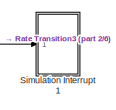
[diagram: all_system - part 1/6, top right region]
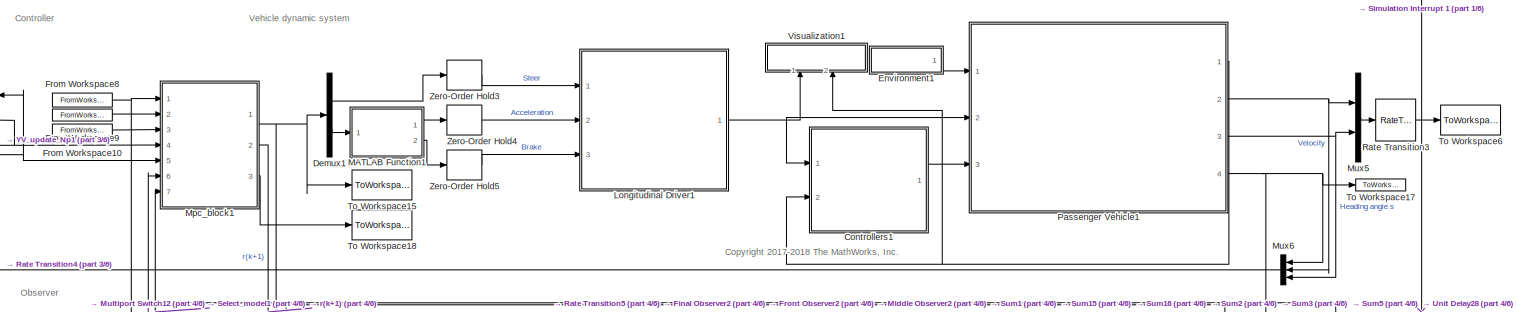
[diagram: all_system - part 2/6, full width, top band]
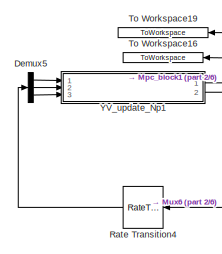
[diagram: all_system - part 3/6, top left region]
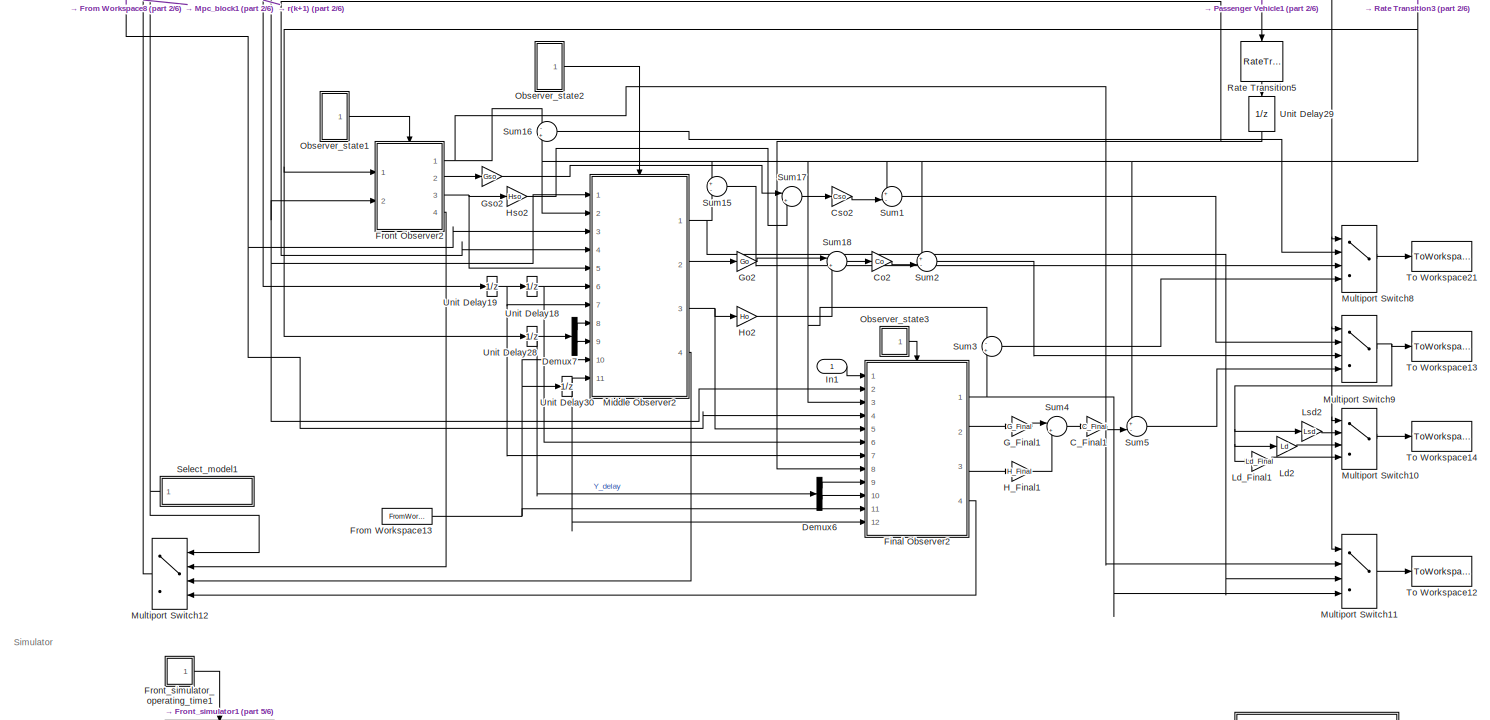
[diagram: all_system - part 4/6, central region]
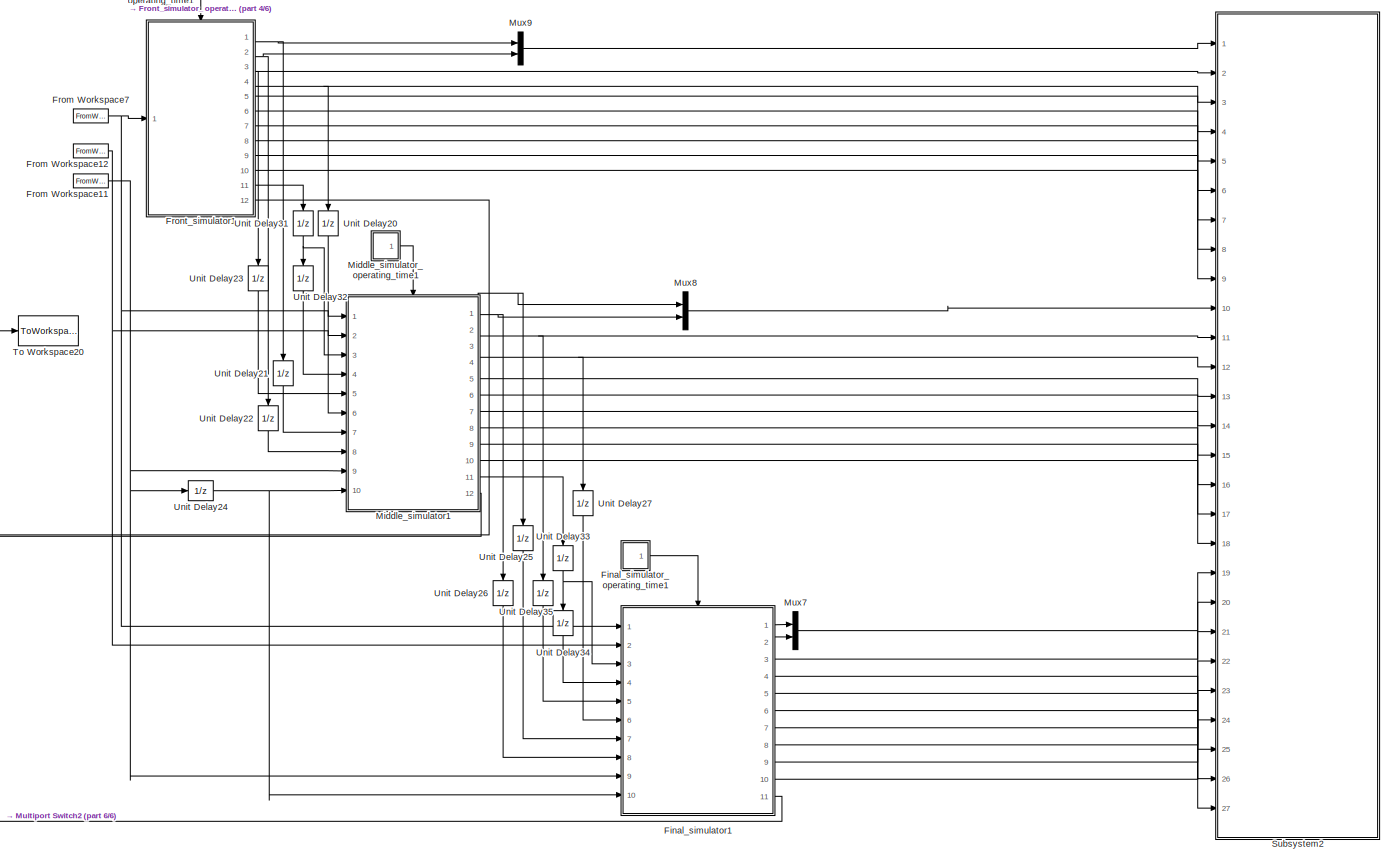
[diagram: all_system - part 5/6, bottom center region]
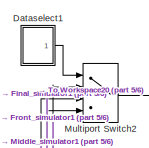
[diagram: all_system - part 6/6, bottom left region]
BLOCK [SubSystem] all_system
  Commented = on
  Ports = [1]
  RequestExecContextInheritance = off
BLOCK [Gain] all_system/C_Final1
  Gain = C_Final
  Multiplication = Matrix(K*u) (u vector)
  OutDataTypeStr = Inherit: Inherit via internal rule
  ParamDataTypeStr = Inherit: Inherit via internal rule
  SaturateOnIntegerOverflow = off
BLOCK [Gain] all_system/Co2
  Gain = Co
  Multiplication = Matrix(K*u) (u vector)
  OutDataTypeStr = Inherit: Inherit via internal rule
  ParamDataTypeStr = Inherit: Inherit via internal rule
  SaturateOnIntegerOverflow = off
BLOCK [SubSystem] all_system/Controllers1
  Ports = [2, 1]
  RequestExecContextInheritance = off
BLOCK [SubSystem] all_system/Controllers1/Brake Controller
  Ports = [3, 1]
  RequestExecContextInheritance = off
BLOCK [Abs] all_system/Controllers1/Brake Controller/Abs
  SaturateOnIntegerOverflow = off
  ZeroCross = off
BLOCK [SubSystem] all_system/Controllers1/Brake Controller/Brake Pressure Control
  OverrideUsingVariant = 0
  Ports = [3, 1]
  RequestExecContextInheritance = off
  Variant = on
BLOCK [Inport] all_system/Controllers1/Brake Controller/Brake Pressure Control/<Kappa>
  IconDisplay = Port number
  Port = 3
BLOCK [SubSystem] all_system/Controllers1/Brake Controller/Brake Pressure Control/Bang Bang ABS
  Ports = [3, 1]
  RequestExecContextInheritance = off
  VariantControl = 1
BLOCK [Inport] all_system/Controllers1/Brake Controller/Brake Pressure Control/Bang Bang ABS/<Kappa>
  IconDisplay = Port number
  Port = 3
BLOCK [Abs] all_system/Controllers1/Brake Controller/Brake Pressure Control/Bang Bang ABS/Abs
  SaturateOnIntegerOverflow = off
BLOCK [Sum] all_system/Controllers1/Brake Controller/Brake Pressure Control/Bang Bang ABS/Add
  InputSameDT = off
  Inputs = -+
  OutDataTypeStr = Inherit: Inherit via internal rule
  Ports = [2, 1]
  SaturateOnIntegerOverflow = off
BLOCK [SubSystem] all_system/Controllers1/Brake Controller/Brake Pressure Control/Bang Bang ABS/Bang-bang controller
  Ports = [1, 1]
  RequestExecContextInheritance = off
  ShowPortLabels = none
BLOCK [Constant] all_system/Controllers1/Brake Controller/Brake Pressure Control/Bang Bang ABS/Bang-bang controller/Constant
  Value = 0
BLOCK [DataTypeConversion] all_system/Controllers1/Brake Controller/Brake Pressure Control/Bang Bang ABS/Bang-bang controller/Data Type Conversion1
  OutDataTypeStr = double
BLOCK [DataTypeConversion] all_system/Controllers1/Brake Controller/Brake Pressure Control/Bang Bang ABS/Bang-bang controller/Data Type Conversion2
  OutDataTypeStr = double
BLOCK [RelationalOperator] all_system/Controllers1/Brake Controller/Brake Pressure Control/Bang Bang ABS/Bang-bang controller/Relational Operator
  Operator = >
  OutDataTypeStr = boolean
  Ports = [2, 1]
BLOCK [RelationalOperator] all_system/Controllers1/Brake Controller/Brake Pressure Control/Bang Bang ABS/Bang-bang controller/Relational Operator1
  Operator = <
  OutDataTypeStr = boolean
  Ports = [2, 1]
BLOCK [Sum] all_system/Controllers1/Brake Controller/Brake Pressure Control/Bang Bang ABS/Bang-bang controller/Sum
  Inputs = +-
  Ports = [2, 1]
BLOCK [Inport] all_system/Controllers1/Brake Controller/Brake Pressure Control/Bang Bang ABS/Bang-bang controller/in_1
  IconDisplay = Port number
BLOCK [Outport] all_system/Controllers1/Brake Controller/Brake Pressure Control/Bang Bang ABS/Bang-bang controller/out_1
  IconDisplay = Port number
  InitialOutput = 0
BLOCK [Reference] all_system/Controllers1/Brake Controller/Brake Pressure Control/Bang Bang ABS/Compare To Constant  REF=simulink/Logic and Bit
Operations/Compare
To Constant
  Ports = [1, 1]
  SourceBlock = simulink/Logic and Bit\nOperations/Compare\nTo Constant
  SourceProductBaseCode = SL
  SourceProductName = Simulink
  SourceType = Compare To Constant
BLOCK [Reference] all_system/Controllers1/Brake Controller/Brake Pressure Control/Bang Bang ABS/Compare To Constant1  REF=simulink/Logic and Bit
Operations/Compare
To Constant
  Ports = [1, 1]
  SourceBlock = simulink/Logic and Bit\nOperations/Compare\nTo Constant
  SourceProductBaseCode = SL
  SourceProductName = Simulink
  SourceType = Compare To Constant
BLOCK [Reference] all_system/Controllers1/Brake Controller/Brake Pressure Control/Bang Bang ABS/Compare To Constant2  REF=simulink/Logic and Bit
Operations/Compare
To Constant
  Ports = [1, 1]
  SourceBlock = simulink/Logic and Bit\nOperations/Compare\nTo Constant
  SourceProductBaseCode = SL
  SourceProductName = Simulink
  SourceType = Compare To Constant
BLOCK [Constant] all_system/Controllers1/Brake Controller/Brake Pressure Control/Bang Bang ABS/Constant
  Value = .25
BLOCK [Reference] all_system/Controllers1/Brake Controller/Brake Pressure Control/Bang Bang ABS/Debounce  REF=autolibutils/Debounce
  Ports = [1, 1]
  SourceBlock = autolibutils/Debounce
  SourceProductBaseCode = PW
  SourceProductName = Powertrain Blockset
BLOCK [Gain] all_system/Controllers1/Brake Controller/Brake Pressure Control/Bang Bang ABS/Gain
  Gain = 200
  OutDataTypeStr = Inherit: Inherit via internal rule
  ParamDataTypeStr = Inherit: Inherit via internal rule
  SaturateOnIntegerOverflow = off
BLOCK [Logic] all_system/Controllers1/Brake Controller/Brake Pressure Control/Bang Bang ABS/Logical Operator
  AllPortsSameDT = off
  Inputs = 3
  OutDataTypeStr = boolean
  Ports = [3, 1]
BLOCK [Outport] all_system/Controllers1/Brake Controller/Brake Pressure Control/Bang Bang ABS/PCmd
  IconDisplay = Port number
BLOCK [Inport] all_system/Controllers1/Brake Controller/Brake Pressure Control/Bang Bang ABS/Pref
  IconDisplay = Port number
BLOCK [RateTransition] all_system/Controllers1/Brake Controller/Brake Pressure Control/Bang Bang ABS/Rate Transition
  OutPortSampleTime = .001
BLOCK [RateTransition] all_system/Controllers1/Brake Controller/Brake Pressure Control/Bang Bang ABS/Rate Transition1
BLOCK [Switch] all_system/Controllers1/Brake Controller/Brake Pressure Control/Bang Bang ABS/Switch
  Criteria = u2 > Threshold
  InputSameDT = off
  SaturateOnIntegerOverflow = off
  ZeroCross = off
BLOCK [Inport] all_system/Controllers1/Brake Controller/Brake Pressure Control/Bang Bang ABS/xdot
  IconDisplay = Port number
  Port = 2
BLOCK [SubSystem] all_system/Controllers1/Brake Controller/Brake Pressure Control/Open Loop
  Ports = [1, 1]
  RequestExecContextInheritance = off
  VariantControl = 0
BLOCK [Outport] all_system/Controllers1/Brake Controller/Brake Pressure Control/Open Loop/PCmd
  IconDisplay = Port number
BLOCK [Inport] all_system/Controllers1/Brake Controller/Brake Pressure Control/Open Loop/Pref
  IconDisplay = Port number
BLOCK [Outport] all_system/Controllers1/Brake Controller/Brake Pressure Control/PCmd
  IconDisplay = Port number
BLOCK [Inport] all_system/Controllers1/Brake Controller/Brake Pressure Control/Pref
  IconDisplay = Port number
BLOCK [Inport] all_system/Controllers1/Brake Controller/Brake Pressure Control/xdot
  IconDisplay = Port number
  Port = 2
BLOCK [Inport] all_system/Controllers1/Brake Controller/BrkPrsCmd
  IconDisplay = Port number
BLOCK [Constant] all_system/Controllers1/Brake Controller/Constant1
  Value = -20
BLOCK [Gain] all_system/Controllers1/Brake Controller/Gain3
  OutDataTypeStr = Inherit: Inherit via internal rule
  ParamDataTypeStr = Inherit: Inherit via internal rule
  SaturateOnIntegerOverflow = off
BLOCK [Integrator] all_system/Controllers1/Brake Controller/Integrator2
  LimitOutput = on
  LowerSaturationLimit = 0
  Ports = [1, 1]
  UpperSaturationLimit = 1
BLOCK [Outport] all_system/Controllers1/Brake Controller/PCmd
  IconDisplay = Port number
BLOCK [Saturate] all_system/Controllers1/Brake Controller/Saturation
  InputPortMap = u0
  LowerLimit = 0
  Ports = [1, 1]
  UpperLimit = 1
  ZeroCross = off
BLOCK [Switch] all_system/Controllers1/Brake Controller/Switch1
  Criteria = u2 > Threshold
  InputSameDT = off
  SaturateOnIntegerOverflow = off
  Threshold = .1
BLOCK [Concatenate] all_system/Controllers1/Brake Controller/Vector Concatenate2
  NumInputs = 4
  Ports = [4, 1]
BLOCK [Inport] all_system/Controllers1/Brake Controller/kappa
  IconDisplay = Port number
  Port = 3
BLOCK [Inport] all_system/Controllers1/Brake Controller/xdot
  IconDisplay = Port number
  Port = 2
BLOCK [BusCreator] all_system/Controllers1/Bus Creator
  DisplayOption = bar
  InheritFromInputs = on
  Inputs = 1
  Ports = [1, 1]
BLOCK [BusCreator] all_system/Controllers1/Bus Creator1
  DisplayOption = bar
  InheritFromInputs = on
  Inputs = 1
  Ports = [1, 1]
BLOCK [BusCreator] all_system/Controllers1/Bus Creator2
  DisplayOption = bar
  InheritFromInputs = on
  Inputs = 1
  Ports = [1, 1]
BLOCK [BusCreator] all_system/Controllers1/Bus Creator3
  DisplayOption = bar
  InheritFromInputs = on
  Inputs = 3
  Ports = [3, 1]
BLOCK [BusSelector] all_system/Controllers1/Bus Selector
  OutputAsBus = off
  OutputSignals = Body.xdot,Wheels.kappa
  Ports = [1, 2]
BLOCK [BusSelector] all_system/Controllers1/Bus Selector1
  OutputAsBus = off
  OutputSignals = Driveline.EngSpd,Driveline.PropShftSpd
  Ports = [1, 2]
BLOCK [BusSelector] all_system/Controllers1/Bus Selector2
  OutputAsBus = off
  OutputSignals = Accel,Brake
  Ports = [1, 2]
BLOCK [Outport] all_system/Controllers1/Controller
  IconDisplay = Port number
BLOCK [SubSystem] all_system/Controllers1/ECU
  Ports = [1, 1]
  RequestExecContextInheritance = off
BLOCK [Inport] all_system/Controllers1/ECU/<Accel>
  IconDisplay = Port number
BLOCK [Gain] all_system/Controllers1/ECU/Acc to Torque Request
  Gain = 150
  OutDataTypeStr = Inherit: Inherit via internal rule
  ParamDataTypeStr = Inherit: Inherit via internal rule
  SaturateOnIntegerOverflow = off
BLOCK [Outport] all_system/Controllers1/ECU/Trq Cmd
  IconDisplay = Port number
BLOCK [Inport] all_system/Controllers1/Pedals
  IconDisplay = Port number
BLOCK [SubSystem] all_system/Controllers1/Transmission Controller
  Ports = [3, 1]
  RequestExecContextInheritance = off
BLOCK [Reference] all_system/Controllers1/Transmission Controller/10ms Function-Call Generator  REF=simulink/Ports &
Subsystems/Function-Call
Generator
  Ports = [0, 1]
  SourceBlock = simulink/Ports &\nSubsystems/Function-Call\nGenerator
  SourceProductBaseCode = SL
  SourceProductName = Simulink
  SourceType = Function-Call Generator
BLOCK [Inport] all_system/Controllers1/Transmission Controller/Acc
  IconDisplay = Port number
BLOCK [Inport] all_system/Controllers1/Transmission Controller/EngSpd
  IconDisplay = Port number
  Port = 2
  Unit = rad/s
BLOCK [Outport] all_system/Controllers1/Transmission Controller/Gear
  IconDisplay = Port number
BLOCK [Inport] all_system/Controllers1/Transmission Controller/PropShaftSpd
  IconDisplay = Port number
  Port = 3
BLOCK [RateTransition] all_system/Controllers1/Transmission Controller/Rate Transition
BLOCK [RateTransition] all_system/Controllers1/Transmission Controller/Rate Transition1
BLOCK [RateTransition] all_system/Controllers1/Transmission Controller/Rate Transition2
BLOCK [RateTransition] all_system/Controllers1/Transmission Controller/Rate Transition3
BLOCK [SignalSpecification] all_system/Controllers1/Transmission Controller/Signal Specification
  Unit = rpm
BLOCK [SubSystem] all_system/Controllers1/Transmission Controller/TCM
  Ports = [3, 1, 0, 1]
  RequestExecContextInheritance = off
BLOCK [Inport] all_system/Controllers1/Transmission Controller/TCM/AccCmd
  IconDisplay = Port number
BLOCK [Inport] all_system/Controllers1/Transmission Controller/TCM/EngSpd
  IconDisplay = Port number
  Port = 2
BLOCK [Outport] all_system/Controllers1/Transmission Controller/TCM/Gear Select
  IconDisplay = Port number
BLOCK [SubSystem] all_system/Controllers1/Transmission Controller/TCM/Neutral Select
  Ports = [2, 1]
  RequestExecContextInheritance = off
BLOCK [Inport] all_system/Controllers1/Transmission Controller/TCM/Neutral Select/AccCmd
  IconDisplay = Port number
BLOCK [Constant] all_system/Controllers1/Transmission Controller/TCM/Neutral Select/Constant
  Value = 1200
BLOCK [Constant] all_system/Controllers1/Transmission Controller/TCM/Neutral Select/Constant1
  Value = 1e-6
BLOCK [Inport] all_system/Controllers1/Transmission Controller/TCM/Neutral Select/EngSpd
  IconDisplay = Port number
  Port = 2
BLOCK [Logic] all_system/Controllers1/Transmission Controller/TCM/Neutral Select/Logical Operator
  AllPortsSameDT = off
  OutDataTypeStr = boolean
  Ports = [2, 1]
BLOCK [Outport] all_system/Controllers1/Transmission Controller/TCM/Neutral Select/Neutral Select
  IconDisplay = Port number
BLOCK [RelationalOperator] all_system/Controllers1/Transmission Controller/TCM/Neutral Select/Relational Operator
  InputSameDT = off
  Operator = <=
  OutDataTypeStr = boolean
  Ports = [2, 1]
  RndMeth = Simplest
BLOCK [RelationalOperator] all_system/Controllers1/Transmission Controller/TCM/Neutral Select/Relational Operator1
  InputSameDT = off
  Operator = <=
  OutDataTypeStr = boolean
  Ports = [2, 1]
  RndMeth = Simplest
BLOCK [Saturate] all_system/Controllers1/Transmission Controller/TCM/Neutral Select/Saturation1
  InputPortMap = u0
  LowerLimit = 0
  Ports = [1, 1]
  UpperLimit = 10e3
BLOCK [Gain] all_system/Controllers1/Transmission Controller/TCM/Neutral Select/rad//s to RPM
  Gain = 30/pi
  OutDataTypeStr = Inherit: Inherit via internal rule
  ParamDataTypeStr = Inherit: Inherit via internal rule
  SaturateOnIntegerOverflow = off
BLOCK [DiscreteTransferFcn] all_system/Controllers1/Transmission Controller/TCM/Prop Shaft Speed LPF
  Denominator = [1.000000000000000 -0.990049833749168 ]
  InputPortMap = u0
  Numerator = [0.000000000000000 0.009950166250832 ]
  Ports = [1, 1]
BLOCK [SubSystem] all_system/Controllers1/Transmission Controller/TCM/TCM Shift Controller
  ErrorFcn = Stateflow.Translate.translate
  PermitHierarchicalResolution = ExplicitOnly
  Ports = [3, 1]
  RequestExecContextInheritance = off
  SFBlockType = Chart
  TreatAsAtomicUnit = on
BLOCK [Demux] all_system/Controllers1/Transmission Controller/TCM/TCM Shift Controller/ Demux 
  Outputs = 3
  Ports = [1, 3]
BLOCK [S-Function] all_system/Controllers1/Transmission Controller/TCM/TCM Shift Controller/ SFunction 
  EnableBusSupport = on
  FunctionName = sf_sfun
  PortCounts = [6 9]
  Ports = [6, 9]
  SFcnIsStateOwnerBlock = off
  SFunctionDeploymentMode = off
  Tag = Stateflow S-Function MPC_control 31
BLOCK [Outport] all_system/Controllers1/Transmission Controller/TCM/TCM Shift Controller/GearState
  IconDisplay = Port number
BLOCK [Inport] all_system/Controllers1/Transmission Controller/TCM/TCM Shift Controller/Neutral
  IconDisplay = Port number
  Port = 3
BLOCK [SubSystem] all_system/Controllers1/Transmission Controller/TCM/TCM Shift Controller/calc
  Ports = [3, 1, 0, 1]
  PreDeleteFcn = Stateflow.SLINSF.SimulinkMan.removePreDeleteFcn
  RequestExecContextInheritance = off
  UndoDeleteFcn = Stateflow.SLINSF.SimulinkMan.restorePreDeleteFcn
BLOCK [Sum] all_system/Controllers1/Transmission Controller/TCM/TCM Shift Controller/calc/Add1
  InputSameDT = off
  Inputs = +-
  OutDataTypeStr = Inherit: Inherit via internal rule
  Ports = [2, 1]
  SaturateOnIntegerOverflow = off
BLOCK [Sum] all_system/Controllers1/Transmission Controller/TCM/TCM Shift Controller/calc/Add3
  InputSameDT = off
  Inputs = +-
  OutDataTypeStr = Inherit: Inherit via internal rule
  Ports = [2, 1]
  SaturateOnIntegerOverflow = off
BLOCK [Sum] all_system/Controllers1/Transmission Controller/TCM/TCM Shift Controller/calc/Add4
  InputSameDT = off
  Inputs = +-
  OutDataTypeStr = Inherit: Inherit via internal rule
  Ports = [2, 1]
  SaturateOnIntegerOverflow = off
BLOCK [Lookup_n-D] all_system/Controllers1/Transmission Controller/TCM/TCM Shift Controller/calc/Calculate Downshift Threshold
  BreakpointsForDimension1 = Pedal_Positions
  BreakpointsForDimension2 = 2:8
  ExtrapMethod = Clip
  InternalRulePriority = Speed
  Ports = [2, 1]
  RndMeth = Simplest
  Table = Downshift_Speeds
  UseLastTableValue = on
BLOCK [Lookup_n-D] all_system/Controllers1/Transmission Controller/TCM/TCM Shift Controller/calc/Calculate Upshift Threshold
  BreakpointsForDimension1 = Pedal_Positions
  BreakpointsForDimension2 = 1:7
  ExtrapMethod = Clip
  InternalRulePriority = Speed
  Ports = [2, 1]
  RndMeth = Simplest
  Table = Upshift_Speeds
  UseLastTableValue = on
BLOCK [Outport] all_system/Controllers1/Transmission Controller/TCM/TCM Shift Controller/calc/SpdThr
  IconDisplay = Port number
BLOCK [TriggerPort] all_system/Controllers1/Transmission Controller/TCM/TCM Shift Controller/calc/f
  CopyFcn = Stateflow.SLINSF.SimulinkMan.removeBlockPreDeleteFcn
  Ports = []
  PreDeleteFcn = Stateflow.SLINSF.SimulinkMan.unsafePredeleteFcn
  StatesWhenEnabling = reset
  TriggerType = function-call
  VariantControl = Variant
BLOCK [Inport] all_system/Controllers1/Transmission Controller/TCM/TCM Shift Controller/calc/gear
  IconDisplay = Port number
BLOCK [Inport] all_system/Controllers1/Transmission Controller/TCM/TCM Shift Controller/calc/pedal
  IconDisplay = Port number
  Port = 2
BLOCK [Inport] all_system/Controllers1/Transmission Controller/TCM/TCM Shift Controller/calc/speed
  IconDisplay = Port number
  Port = 3
BLOCK [SubSystem] all_system/Controllers1/Transmission Controller/TCM/TCM Shift Controller/calc_down
  Ports = [2, 1, 0, 1]
  PreDeleteFcn = Stateflow.SLINSF.SimulinkMan.removePreDeleteFcn
  RequestExecContextInheritance = off
  UndoDeleteFcn = Stateflow.SLINSF.SimulinkMan.restorePreDeleteFcn
BLOCK [Lookup_n-D] all_system/Controllers1/Transmission Controller/TCM/TCM Shift Controller/calc_down/Calculate Downshift Threshold
  BreakpointsForDimension1 = Pedal_Positions
  BreakpointsForDimension2 = 2:8
  ExtrapMethod = Clip
  InternalRulePriority = Speed
  Ports = [2, 1]
  RndMeth = Simplest
  Table = Downshift_Speeds
  UseLastTableValue = on
BLOCK [Outport] all_system/Controllers1/Transmission Controller/TCM/TCM Shift Controller/calc_down/down_th
  IconDisplay = Port number
BLOCK [TriggerPort] all_system/Controllers1/Transmission Controller/TCM/TCM Shift Controller/calc_down/f
  CopyFcn = Stateflow.SLINSF.SimulinkMan.removeBlockPreDeleteFcn
  Ports = []
  PreDeleteFcn = Stateflow.SLINSF.SimulinkMan.unsafePredeleteFcn
  StatesWhenEnabling = reset
  TriggerType = function-call
  VariantControl = Variant
BLOCK [Inport] all_system/Controllers1/Transmission Controller/TCM/TCM Shift Controller/calc_down/gear
  IconDisplay = Port number
BLOCK [Inport] all_system/Controllers1/Transmission Controller/TCM/TCM Shift Controller/calc_down/pedal
  IconDisplay = Port number
  Port = 2
BLOCK [SubSystem] all_system/Controllers1/Transmission Controller/TCM/TCM Shift Controller/calc_up
  Ports = [2, 1, 0, 1]
  PreDeleteFcn = Stateflow.SLINSF.SimulinkMan.removePreDeleteFcn
  RequestExecContextInheritance = off
  UndoDeleteFcn = Stateflow.SLINSF.SimulinkMan.restorePreDeleteFcn
BLOCK [Lookup_n-D] all_system/Controllers1/Transmission Controller/TCM/TCM Shift Controller/calc_up/Calculate Upshift Threshold
  BreakpointsForDimension1 = Pedal_Positions
  BreakpointsForDimension2 = 1:7
  ExtrapMethod = Clip
  InternalRulePriority = Speed
  Ports = [2, 1]
  RndMeth = Simplest
  Table = Upshift_Speeds
  UseLastTableValue = on
BLOCK [TriggerPort] all_system/Controllers1/Transmission Controller/TCM/TCM Shift Controller/calc_up/f
  CopyFcn = Stateflow.SLINSF.SimulinkMan.removeBlockPreDeleteFcn
  Ports = []
  PreDeleteFcn = Stateflow.SLINSF.SimulinkMan.unsafePredeleteFcn
  StatesWhenEnabling = reset
  TriggerType = function-call
  VariantControl = Variant
BLOCK [Inport] all_system/Controllers1/Transmission Controller/TCM/TCM Shift Controller/calc_up/gear
  IconDisplay = Port number
BLOCK [Inport] all_system/Controllers1/Transmission Controller/TCM/TCM Shift Controller/calc_up/pedal
  IconDisplay = Port number
  Port = 2
BLOCK [Outport] all_system/Controllers1/Transmission Controller/TCM/TCM Shift Controller/calc_up/up_th
  IconDisplay = Port number
BLOCK [Inport] all_system/Controllers1/Transmission Controller/TCM/TCM Shift Controller/pedal
  IconDisplay = Port number
  Port = 2
BLOCK [Inport] all_system/Controllers1/Transmission Controller/TCM/TCM Shift Controller/speed
  IconDisplay = Port number
BLOCK [Inport] all_system/Controllers1/Transmission Controller/TCM/VehSpdFdbk
  IconDisplay = Port number
  Port = 3
BLOCK [TriggerPort] all_system/Controllers1/Transmission Controller/TCM/function
  Ports = []
  StatesWhenEnabling = held
  TriggerType = function-call
  VariantControl = Variant
BLOCK [Gain] all_system/Controllers1/Transmission Controller/TCM/prop speed to vehicle speed
  Gain = 0.45
  OutDataTypeStr = Inherit: Inherit via internal rule
  ParamDataTypeStr = Inherit: Inherit via internal rule
  SaturateOnIntegerOverflow = off
BLOCK [UnitConversion] all_system/Controllers1/Transmission Controller/Unit Conversion
BLOCK [Inport] all_system/Controllers1/VehFdbk
  IconDisplay = Port number
  Port = 2
BLOCK [Gain] all_system/Cso2
  Gain = Cso
  Multiplication = Matrix(K*u) (u vector)
  OutDataTypeStr = Inherit: Inherit via internal rule
  ParamDataTypeStr = Inherit: Inherit via internal rule
  SaturateOnIntegerOverflow = off
BLOCK [SubSystem] all_system/Dataselect1
  Ports = [0, 1]
  RequestExecContextInheritance = off
BLOCK [Clock] all_system/Dataselect1/Clock15
BLOCK [Constant] all_system/Dataselect1/Constant3
  Value = Statechange
BLOCK [Constant] all_system/Dataselect1/Constant4
  Value = Statechange2
BLOCK [Outport] all_system/Dataselect1/DS
  IconDisplay = Port number
BLOCK [SubSystem] all_system/Dataselect1/Dataselect
  ErrorFcn = Stateflow.Translate.translate
  PermitHierarchicalResolution = ExplicitOnly
  Ports = [3, 1]
  RequestExecContextInheritance = off
  SFBlockType = MATLAB Function
  TreatAsAtomicUnit = on
BLOCK [Demux] all_system/Dataselect1/Dataselect/ Demux 
  Outputs = 1
  Ports = [1, 1]
BLOCK [S-Function] all_system/Dataselect1/Dataselect/ SFunction 
  EnableBusSupport = on
  FunctionName = sf_sfun
  PortCounts = [3 2]
  Ports = [3, 2]
  SFcnIsStateOwnerBlock = off
  SFunctionDeploymentMode = off
  Tag = Stateflow S-Function MPC_control 32
BLOCK [Terminator] all_system/Dataselect1/Dataselect/ Terminator 
BLOCK [Inport] all_system/Dataselect1/Dataselect/Statechange
  IconDisplay = Port number
  Port = 2
BLOCK [Inport] all_system/Dataselect1/Dataselect/Statechange2
  IconDisplay = Port number
  Port = 3
BLOCK [Outport] all_system/Dataselect1/Dataselect/select
  IconDisplay = Port number
BLOCK [Inport] all_system/Dataselect1/Dataselect/timing
  IconDisplay = Port number
BLOCK [Demux] all_system/Demux1
  DisplayOption = bar
  Outputs = 2
  Ports = [1, 2]
BLOCK [Demux] all_system/Demux5
  DisplayOption = bar
  Outputs = 3
  Ports = [1, 3]
BLOCK [Demux] all_system/Demux6
  DisplayOption = bar
  Outputs = 2
  Ports = [1, 2]
BLOCK [Demux] all_system/Demux7
  DisplayOption = bar
  Outputs = 2
  Ports = [1, 2]
BLOCK [SubSystem] all_system/Environment1
  Ports = [0, 1]
  RequestExecContextInheritance = off
  TreatAsAtomicUnit = on
BLOCK [BusCreator] all_system/Environment1/Bus Creator
  DisplayOption = bar
  InheritFromInputs = on
  Inputs = 4
  Ports = [4, 1]
BLOCK [BusCreator] all_system/Environment1/Bus Creator1
  DisplayOption = bar
  InheritFromInputs = on
  Inputs = 2
  Ports = [2, 1]
BLOCK [BusCreator] all_system/Environment1/Bus Creator2
  DisplayOption = bar
  InheritFromInputs = on
  Inputs = 4
  Ports = [4, 1]
BLOCK [BusCreator] all_system/Environment1/Bus Creator3
  DisplayOption = bar
  InheritFromInputs = on
  Inputs = 2
  Ports = [2, 1]
BLOCK [Constant] all_system/Environment1/Constant1
  Value = zeros(4,1)
BLOCK [Constant] all_system/Environment1/Constant3
  Value = 0
BLOCK [Constant] all_system/Environment1/Constant4
  Value = 0
BLOCK [Constant] all_system/Environment1/Constant5
  Value = 0
BLOCK [Demux] all_system/Environment1/Demux
  DisplayOption = bar
  Ports = [1, 4]
BLOCK [Demux] all_system/Environment1/Demux1
  DisplayOption = bar
  Ports = [1, 4]
BLOCK [Outport] all_system/Environment1/Env
  IconDisplay = Port number
BLOCK [Constant] all_system/Environment1/Friction
  Value = ones(4,1).*1
BLOCK [Concatenate] all_system/Environment1/Vector Concatenate
  NumInputs = 3
  Ports = [3, 1]
BLOCK [SubSystem] all_system/Final Observer2
  Ports = [12, 4, 1]
  RequestExecContextInheritance = off
BLOCK [Gain] all_system/Final Observer2/C_Final2
  Gain = C_Final
  Multiplication = Matrix(K*u) (u vector)
  OutDataTypeStr = Inherit: Inherit via internal rule
  ParamDataTypeStr = Inherit: Inherit via internal rule
  SaturateOnIntegerOverflow = off
BLOCK [Clock] all_system/Final Observer2/Clock
BLOCK [Clock] all_system/Final Observer2/Clock1
BLOCK [Delay] all_system/Final Observer2/Delay
  DelayLength = 1
  ExternalReset = Falling
  InitialCondition = 0
  InitialConditionSource = Input port
  InputPortMap = u0,r5,p4
  Ports = [3, 1]
  SampleTime = Ts
BLOCK [Delay] all_system/Final Observer2/Delay1
  DelayLength = 1
  ExternalReset = Falling
  InitialCondition = 0
  InitialConditionSource = Input port
  InputPortMap = u0,r5,p4
  Ports = [3, 1]
  SampleTime = Ts
BLOCK [EnablePort] all_system/Final Observer2/Enable
  Ports = []
BLOCK [Inport] all_system/Final Observer2/Final_switch
  IconDisplay = Port number
BLOCK [InportShadow] all_system/Final Observer2/Final_switch3
  IconDisplay = Port number
BLOCK [InportShadow] all_system/Final Observer2/Final_switch4
  IconDisplay = Port number
BLOCK [Gain] all_system/Final Observer2/Gd_Final
  Gain = Gd_Final
  Multiplication = Matrix(K*u) (u vector)
  OutDataTypeStr = Inherit: Inherit via internal rule
  ParamDataTypeStr = Inherit: Inherit via internal rule
  SaturateOnIntegerOverflow = off
BLOCK [Gain] all_system/Final Observer2/Hd_Final
  Gain = Hd_Final
  Multiplication = Matrix(K*u) (u vector)
  OutDataTypeStr = Inherit: Inherit via internal rule
  ParamDataTypeStr = Inherit: Inherit via internal rule
  SaturateOnIntegerOverflow = off
BLOCK [Inport] all_system/Final Observer2/Initial HeadingAngles
  IconDisplay = Port number
  Port = 10
BLOCK [Inport] all_system/Final Observer2/Initial Velocities
  IconDisplay = Port number
  Port = 9
BLOCK [Inport] all_system/Final Observer2/Initial position
  IconDisplay = Port number
  Port = 8
BLOCK [Inport] all_system/Final Observer2/LastTsim
  IconDisplay = Port number
  Port = 12
BLOCK [Gain] all_system/Final Observer2/Ld_Final1
  Gain = Ld_Final
  Multiplication = Matrix(K*u) (u vector)
  OutDataTypeStr = Inherit: Inherit via internal rule
  ParamDataTypeStr = Inherit: Inherit via internal rule
  SaturateOnIntegerOverflow = off
BLOCK [Gain] all_system/Final Observer2/Ld_Final2
  Gain = Ld_Final
  Multiplication = Matrix(K*u) (u vector)
  OutDataTypeStr = Inherit: Inherit via internal rule
  ParamDataTypeStr = Inherit: Inherit via internal rule
  SaturateOnIntegerOverflow = off
BLOCK [Inport] all_system/Final Observer2/Rs
  IconDisplay = Port number
  Port = 4
BLOCK [SubSystem] all_system/Final Observer2/Subsystem
  Ports = [11, 2]
  RequestExecContextInheritance = off
BLOCK [Gain] all_system/Final Observer2/Subsystem/C_Final
  Gain = C_Final
  Multiplication = Matrix(K*u) (u vector)
  OutDataTypeStr = Inherit: Inherit via internal rule
  ParamDataTypeStr = Inherit: Inherit via internal rule
  SaturateOnIntegerOverflow = off
BLOCK [Gain] all_system/Final Observer2/Subsystem/C_Final1
  Gain = C_Final
  Multiplication = Matrix(K*u) (u vector)
  OutDataTypeStr = Inherit: Inherit via internal rule
  ParamDataTypeStr = Inherit: Inherit via internal rule
  SaturateOnIntegerOverflow = off
BLOCK [Gain] all_system/Final Observer2/Subsystem/C_out_Final
  Gain = C_out_Final
  Multiplication = Matrix(K*u) (u vector)
  OutDataTypeStr = Inherit: Inherit via internal rule
  ParamDataTypeStr = Inherit: Inherit via internal rule
  SaturateOnIntegerOverflow = off
BLOCK [Gain] all_system/Final Observer2/Subsystem/D_out_Final
  Gain = D_out_Final
  Multiplication = Matrix(K*u) (u vector)
  OutDataTypeStr = Inherit: Inherit via internal rule
  ParamDataTypeStr = Inherit: Inherit via internal rule
  SaturateOnIntegerOverflow = off
BLOCK [Demux] all_system/Final Observer2/Subsystem/Demux
  DisplayOption = bar
  Outputs = 2
  Ports = [1, 2]
BLOCK [Gain] all_system/Final Observer2/Subsystem/G_Final
  Gain = G_Final
  Multiplication = Matrix(K*u) (u vector)
  OutDataTypeStr = Inherit: Inherit via internal rule
  ParamDataTypeStr = Inherit: Inherit via internal rule
  SaturateOnIntegerOverflow = off
BLOCK [Gain] all_system/Final Observer2/Subsystem/G_sys_Final
  Gain = G_sys_Final
  Multiplication = Matrix(K*u) (u vector)
  OutDataTypeStr = Inherit: Inherit via internal rule
  ParamDataTypeStr = Inherit: Inherit via internal rule
  SaturateOnIntegerOverflow = off
BLOCK [Gain] all_system/Final Observer2/Subsystem/H_Final
  Gain = H_Final
  Multiplication = Matrix(K*u) (u vector)
  OutDataTypeStr = Inherit: Inherit via internal rule
  ParamDataTypeStr = Inherit: Inherit via internal rule
  SaturateOnIntegerOverflow = off
BLOCK [Gain] all_system/Final Observer2/Subsystem/H_sys_Final
  Gain = H_sys_Final
  Multiplication = Matrix(K*u) (u vector)
  OutDataTypeStr = Inherit: Inherit via internal rule
  ParamDataTypeStr = Inherit: Inherit via internal rule
  SaturateOnIntegerOverflow = off
BLOCK [Inport] all_system/Final Observer2/Subsystem/Initial HeadingAngles
  IconDisplay = Port number
  Port = 6
BLOCK [Inport] all_system/Final Observer2/Subsystem/Initial Velocities
  IconDisplay = Port number
  Port = 5
BLOCK [Inport] all_system/Final Observer2/Subsystem/Initial position
  IconDisplay = Port number
  Port = 4
BLOCK [Inport] all_system/Final Observer2/Subsystem/Initial trigger
  IconDisplay = Port number
BLOCK [InportShadow] all_system/Final Observer2/Subsystem/Initial trigger1
  IconDisplay = Port number
BLOCK [InportShadow] all_system/Final Observer2/Subsystem/Initial trigger2
  IconDisplay = Port number
BLOCK [InportShadow] all_system/Final Observer2/Subsystem/Initial trigger3
  IconDisplay = Port number
BLOCK [Inport] all_system/Final Observer2/Subsystem/LastTsim
  IconDisplay = Port number
  Port = 8
BLOCK [Gain] all_system/Final Observer2/Subsystem/Ld_Final
  Gain = Ld_Final
  Multiplication = Matrix(K*u) (u vector)
  OutDataTypeStr = Inherit: Inherit via internal rule
  ParamDataTypeStr = Inherit: Inherit via internal rule
  SaturateOnIntegerOverflow = off
BLOCK [Gain] all_system/Final Observer2/Subsystem/Ld_Final1
  Gain = Ld_Final
  Multiplication = Matrix(K*u) (u vector)
  OutDataTypeStr = Inherit: Inherit via internal rule
  ParamDataTypeStr = Inherit: Inherit via internal rule
  SaturateOnIntegerOverflow = off
BLOCK [Gain] all_system/Final Observer2/Subsystem/Ld_Final1 
  Gain = Ld_Final
  Multiplication = Matrix(K*u) (u vector)
  OutDataTypeStr = Inherit: Inherit via internal rule
  ParamDataTypeStr = Inherit: Inherit via internal rule
  SaturateOnIntegerOverflow = off
BLOCK [SubSystem] all_system/Final Observer2/Subsystem/Mpc_Simulator_Final
  Ports = [5, 2]
  RequestExecContextInheritance = off
BLOCK [Clock] all_system/Final Observer2/Subsystem/Mpc_Simulator_Final/Clock
  Decimation = 1
BLOCK [Constant] all_system/Final Observer2/Subsystem/Mpc_Simulator_Final/Constant1
  SampleTime = -1
  Value = M
  VectorParams1D = off
BLOCK [Constant] all_system/Final Observer2/Subsystem/Mpc_Simulator_Final/Constant2
  SampleTime = -1
  Value = Np
BLOCK [Constant] all_system/Final Observer2/Subsystem/Mpc_Simulator_Final/Constant3
  SampleTime = -1
  Value = Upd_flag
  VectorParams1D = off
BLOCK [Constant] all_system/Final Observer2/Subsystem/Mpc_Simulator_Final/Constant4
  SampleTime = -1
  Value = Qc
  VectorParams1D = off
BLOCK [Constant] all_system/Final Observer2/Subsystem/Mpc_Simulator_Final/Constant5
  SampleTime = -1
  Value = phi_Final
  VectorParams1D = off
BLOCK [Constant] all_system/Final Observer2/Subsystem/Mpc_Simulator_Final/Constant6
  SampleTime = -1
  Value = JE_Final
  VectorParams1D = off
BLOCK [Constant] all_system/Final Observer2/Subsystem/Mpc_Simulator_Final/Constant7
  SampleTime = -1
  Value = Upd_end
  VectorParams1D = off
BLOCK [Constant] all_system/Final Observer2/Subsystem/Mpc_Simulator_Final/Constant8
  SampleTime = -1
  Value = Timetochange
  VectorParams1D = off
BLOCK [Gain] all_system/Final Observer2/Subsystem/Mpc_Simulator_Final/F_Final
  Gain = F_Final
  Multiplication = Matrix(K*u) (u vector)
  OutDataTypeStr = Inherit: Inherit via internal rule
  ParamDataTypeStr = Inherit: Inherit via internal rule
  SaturateOnIntegerOverflow = off
BLOCK [SubSystem] all_system/Final Observer2/Subsystem/Mpc_Simulator_Final/MATLAB Function
  ErrorFcn = Stateflow.Translate.translate
  PermitHierarchicalResolution = ExplicitOnly
  Ports = [15, 2]
  RequestExecContextInheritance = off
  SFBlockType = MATLAB Function
  SystemSampleTime = Ts
  TreatAsAtomicUnit = on
BLOCK [Demux] all_system/Final Observer2/Subsystem/Mpc_Simulator_Final/MATLAB Function/ Demux 
  Outputs = 1
  Ports = [1, 1]
BLOCK [S-Function] all_system/Final Observer2/Subsystem/Mpc_Simulator_Final/MATLAB Function/ SFunction 
  EnableBusSupport = on
  FunctionName = sf_sfun
  PortCounts = [15 3]
  Ports = [15, 3]
  SFcnIsStateOwnerBlock = off
  SFunctionDeploymentMode = off
  Tag = Stateflow S-Function MPC_control 34
BLOCK [Terminator] all_system/Final Observer2/Subsystem/Mpc_Simulator_Final/MATLAB Function/ Terminator 
BLOCK [Inport] all_system/Final Observer2/Subsystem/Mpc_Simulator_Final/MATLAB Function/Fxh
  IconDisplay = Port number
  Port = 8
BLOCK [Inport] all_system/Final Observer2/Subsystem/Mpc_Simulator_Final/MATLAB Function/JE
  IconDisplay = Port number
  Port = 3
BLOCK [Inport] all_system/Final Observer2/Subsystem/Mpc_Simulator_Final/MATLAB Function/M
  IconDisplay = Port number
  Port = 4
BLOCK [Inport] all_system/Final Observer2/Subsystem/Mpc_Simulator_Final/MATLAB Function/Np
  IconDisplay = Port number
  Port = 5
BLOCK [Inport] all_system/Final Observer2/Subsystem/Mpc_Simulator_Final/MATLAB Function/Qc
  IconDisplay = Port number
  Port = 7
BLOCK [Outport] all_system/Final Observer2/Subsystem/Mpc_Simulator_Final/MATLAB Function/Ref
  IconDisplay = Port number
BLOCK [Inport] all_system/Final Observer2/Subsystem/Mpc_Simulator_Final/MATLAB Function/Rs
  IconDisplay = Port number
  Port = 11
BLOCK [Inport] all_system/Final Observer2/Subsystem/Mpc_Simulator_Final/MATLAB Function/Rs_V
  IconDisplay = Port number
  Port = 12
BLOCK [Inport] all_system/Final Observer2/Subsystem/Mpc_Simulator_Final/MATLAB Function/Timetochange
  IconDisplay = Port number
  Port = 2
BLOCK [Inport] all_system/Final Observer2/Subsystem/Mpc_Simulator_Final/MATLAB Function/Tsim
  IconDisplay = Port number
  Port = 13
BLOCK [Outport] all_system/Final Observer2/Subsystem/Mpc_Simulator_Final/MATLAB Function/U
  IconDisplay = Port number
  Port = 2
BLOCK [Inport] all_system/Final Observer2/Subsystem/Mpc_Simulator_Final/MATLAB Function/Upd_end
  IconDisplay = Port number
  Port = 14
BLOCK [Inport] all_system/Final Observer2/Subsystem/Mpc_Simulator_Final/MATLAB Function/Upd_flag
  IconDisplay = Port number
BLOCK [Inport] all_system/Final Observer2/Subsystem/Mpc_Simulator_Final/MATLAB Function/Vup
  IconDisplay = Port number
  Port = 10
BLOCK [Inport] all_system/Final Observer2/Subsystem/Mpc_Simulator_Final/MATLAB Function/Yup
  IconDisplay = Port number
  Port = 9
BLOCK [Inport] all_system/Final Observer2/Subsystem/Mpc_Simulator_Final/MATLAB Function/phi
  IconDisplay = Port number
  Port = 6
BLOCK [Inport] all_system/Final Observer2/Subsystem/Mpc_Simulator_Final/MATLAB Function/u
  IconDisplay = Port number
  Port = 15
BLOCK [Outport] all_system/Final Observer2/Subsystem/Mpc_Simulator_Final/Ref
  IconDisplay = Port number
  Port = 2
BLOCK [Inport] all_system/Final Observer2/Subsystem/Mpc_Simulator_Final/Rs
  IconDisplay = Port number
  LockScale = on
  Port = 4
  SampleTime = Ts
  VarSizeSig = No
BLOCK [Inport] all_system/Final Observer2/Subsystem/Mpc_Simulator_Final/Rs_V
  IconDisplay = Port number
  LockScale = on
  Port = 3
  SampleTime = Ts
  VarSizeSig = No
BLOCK [Outport] all_system/Final Observer2/Subsystem/Mpc_Simulator_Final/U
  IconDisplay = Port number
BLOCK [UnitDelay] all_system/Final Observer2/Subsystem/Mpc_Simulator_Final/Unit Delay
  InitialCondition = [0;0]
  InputProcessing = Elements as channels (sample based)
  SampleTime = Ts
BLOCK [Inport] all_system/Final Observer2/Subsystem/Mpc_Simulator_Final/Vup
  IconDisplay = Port number
  LockScale = on
  SampleTime = Ts
  VarSizeSig = No
BLOCK [Inport] all_system/Final Observer2/Subsystem/Mpc_Simulator_Final/Xh_sim
  IconDisplay = Port number
  Port = 5
BLOCK [Inport] all_system/Final Observer2/Subsystem/Mpc_Simulator_Final/Yup
  IconDisplay = Port number
  LockScale = on
  Port = 2
  SampleTime = Ts
  VarSizeSig = No
BLOCK [SubSystem] all_system/Final Observer2/Subsystem/Pose updete k
  Commented = on
  Ports = [3, 2]
  RequestExecContextInheritance = off
BLOCK [Clock] all_system/Final Observer2/Subsystem/Pose updete k/Clock
BLOCK [FromWorkspace] all_system/Final Observer2/Subsystem/Pose updete k/From Workspace
  SampleTime = Ts
  VariableName = Rs_V_now
  ZeroCross = on
BLOCK [FromWorkspace] all_system/Final Observer2/Subsystem/Pose updete k/From Workspace1
  SampleTime = Ts
  VariableName = Rs_Y_now
  ZeroCross = on
BLOCK [FromWorkspace] all_system/Final Observer2/Subsystem/Pose updete k/From Workspace2
  SampleTime = Ts
  VariableName = XYplot_X
  ZeroCross = on
BLOCK [FromWorkspace] all_system/Final Observer2/Subsystem/Pose updete k/From Workspace3
  SampleTime = Ts
  VariableName = XYplot_Y
  ZeroCross = on
BLOCK [Inport] all_system/Final Observer2/Subsystem/Pose updete k/Heading_sim
  IconDisplay = Port number
  Port = 3
BLOCK [Outport] all_system/Final Observer2/Subsystem/Pose updete k/Heading_updated
  IconDisplay = Port number
  Port = 2
BLOCK [Mux] all_system/Final Observer2/Subsystem/Pose updete k/Mux
  DisplayOption = bar
  Inputs = 2
  Ports = [2, 1]
BLOCK [Reshape] all_system/Final Observer2/Subsystem/Pose updete k/Reshape
  OutputDimensionality = Customize
  OutputDimensions = [pick_num,2]
  Ports = [1, 1]
BLOCK [Constant] all_system/Final Observer2/Subsystem/Pose updete k/Trajectroy
  SampleTime = -1
  Value = XYplot
  VectorParams1D = off
BLOCK [UnitDelay] all_system/Final Observer2/Subsystem/Pose updete k/Unit Delay
  InputProcessing = Elements as channels (sample based)
  SampleTime = Ts
BLOCK [UnitDelay] all_system/Final Observer2/Subsystem/Pose updete k/Unit Delay1
  InputProcessing = Elements as channels (sample based)
  SampleTime = Ts
BLOCK [UnitDelay] all_system/Final Observer2/Subsystem/Pose updete k/Unit Delay2
  InputProcessing = Elements as channels (sample based)
  SampleTime = Ts
BLOCK [UnitDelay] all_system/Final Observer2/Subsystem/Pose updete k/Unit Delay3
  InputProcessing = Elements as channels (sample based)
  SampleTime = Ts
BLOCK [SubSystem] all_system/Final Observer2/Subsystem/Pose updete k/Update
  ErrorFcn = Stateflow.Translate.translate
  PermitHierarchicalResolution = ExplicitOnly
  Ports = [12, 3]
  RTWFcnNameOpts = Use subsystem name
  RequestExecContextInheritance = off
  SFBlockType = MATLAB Function
  SystemSampleTime = Ts
  TreatAsAtomicUnit = on
BLOCK [Demux] all_system/Final Observer2/Subsystem/Pose updete k/Update/ Demux 
  Outputs = 1
  Ports = [1, 1]
BLOCK [S-Function] all_system/Final Observer2/Subsystem/Pose updete k/Update/ SFunction 
  EnableBusSupport = on
  FunctionName = sf_sfun
  PortCounts = [12 4]
  Ports = [12, 4]
  SFcnIsStateOwnerBlock = off
  SFunctionDeploymentMode = off
  Tag = Stateflow S-Function MPC_control 35
BLOCK [Terminator] all_system/Final Observer2/Subsystem/Pose updete k/Update/ Terminator 
BLOCK [Outport] all_system/Final Observer2/Subsystem/Pose updete k/Update/Heading_end
  IconDisplay = Port number
  Port = 3
BLOCK [Inport] all_system/Final Observer2/Subsystem/Pose updete k/Update/Heading_sim
  IconDisplay = Port number
  Port = 9
BLOCK [Outport] all_system/Final Observer2/Subsystem/Pose updete k/Update/Heading_updated
  IconDisplay = Port number
  Port = 2
BLOCK [Inport] all_system/Final Observer2/Subsystem/Pose updete k/Update/Last_Heading_end
  IconDisplay = Port number
  Port = 12
BLOCK [Inport] all_system/Final Observer2/Subsystem/Pose updete k/Update/Last_Heading_sim
  IconDisplay = Port number
  Port = 10
BLOCK [Inport] all_system/Final Observer2/Subsystem/Pose updete k/Update/Last_Velocity_sim
  IconDisplay = Port number
  Port = 8
BLOCK [Inport] all_system/Final Observer2/Subsystem/Pose updete k/Update/Last_XYplot_sim
  IconDisplay = Port number
  Port = 6
BLOCK [Inport] all_system/Final Observer2/Subsystem/Pose updete k/Update/Rs_V_now
  IconDisplay = Port number
BLOCK [Inport] all_system/Final Observer2/Subsystem/Pose updete k/Update/Rs_Y_now
  IconDisplay = Port number
  Port = 2
BLOCK [Inport] all_system/Final Observer2/Subsystem/Pose updete k/Update/Tsim
  IconDisplay = Port number
  Port = 11
BLOCK [Inport] all_system/Final Observer2/Subsystem/Pose updete k/Update/Velocity_sim
  IconDisplay = Port number
  Port = 7
BLOCK [Outport] all_system/Final Observer2/Subsystem/Pose updete k/Update/Velocity_updated
  IconDisplay = Port number
BLOCK [Inport] all_system/Final Observer2/Subsystem/Pose updete k/Update/XYline
  IconDisplay = Port number
  Port = 3
BLOCK [Inport] all_system/Final Observer2/Subsystem/Pose updete k/Update/XYplot
  IconDisplay = Port number
  Port = 4
BLOCK [Inport] all_system/Final Observer2/Subsystem/Pose updete k/Update/XYplot_sim
  IconDisplay = Port number
  Port = 5
BLOCK [Inport] all_system/Final Observer2/Subsystem/Pose updete k/Velocity_sim
  IconDisplay = Port number
  Port = 2
BLOCK [Outport] all_system/Final Observer2/Subsystem/Pose updete k/Velocity_updated
  IconDisplay = Port number
BLOCK [Inport] all_system/Final Observer2/Subsystem/Pose updete k/XYplot_sim
  IconDisplay = Port number
BLOCK [Delay] all_system/Final Observer2/Subsystem/Resettable Delay
  DelayLength = 1
  ExternalReset = Falling
  InitialConditionSource = Input port
  InputPortMap = u0,r5,p4
  Ports = [3, 1]
  SampleTime = Ts
BLOCK [Delay] all_system/Final Observer2/Subsystem/Resettable Delay1
  DelayLength = 1
  ExternalReset = Falling
  InitialConditionSource = Input port
  InputPortMap = u0,r5,p4
  Ports = [3, 1]
  SampleTime = Ts
BLOCK [Delay] all_system/Final Observer2/Subsystem/Resettable Delay2
  DelayLength = 1
  ExternalReset = Falling
  InitialConditionSource = Input port
  InputPortMap = u0,r5,p4
  Ports = [3, 1]
  SampleTime = Ts
BLOCK [Inport] all_system/Final Observer2/Subsystem/Rs
  IconDisplay = Port number
  Port = 2
BLOCK [Sum] all_system/Final Observer2/Subsystem/Sum1
  IconShape = round
  InputSameDT = off
  Inputs = +++
  OutDataTypeStr = Inherit: Inherit via internal rule
  Ports = [3, 1]
  SaturateOnIntegerOverflow = off
BLOCK [Sum] all_system/Final Observer2/Subsystem/Sum2
  IconShape = round
  InputSameDT = off
  Inputs = +++
  OutDataTypeStr = Inherit: Inherit via internal rule
  Ports = [3, 1]
  SaturateOnIntegerOverflow = off
BLOCK [Sum] all_system/Final Observer2/Subsystem/Sum6
  IconShape = round
  InputSameDT = off
  OutDataTypeStr = Inherit: Inherit via internal rule
  Ports = [2, 1]
  SaturateOnIntegerOverflow = off
BLOCK [Sum] all_system/Final Observer2/Subsystem/Sum7
  IconShape = round
  InputSameDT = off
  Inputs = -+
  OutDataTypeStr = Inherit: Inherit via internal rule
  Ports = [2, 1]
  SaturateOnIntegerOverflow = off
BLOCK [ToWorkspace] all_system/Final Observer2/Subsystem/To Workspace1
  FixptAsFi = on
  MaxDataPoints = inf
  Ports = [1]
  SampleTime = Ts
  Save2DSignal = 3-D array (concatenate along third dimension)
  VariableName = observer_simulator_p_f
BLOCK [ToWorkspace] all_system/Final Observer2/Subsystem/To Workspace3
  FixptAsFi = on
  MaxDataPoints = inf
  Ports = [1]
  SampleTime = Ts
  Save2DSignal = 3-D array (concatenate along third dimension)
  VariableName = LOOK1
BLOCK [Inport] all_system/Final Observer2/Subsystem/Tsim
  IconDisplay = Port number
  Port = 7
BLOCK [Outport] all_system/Final Observer2/Subsystem/U
  IconDisplay = Port number
  Port = 2
BLOCK [Inport] all_system/Final Observer2/Subsystem/U_delay
  IconDisplay = Port number
  Port = 3
BLOCK [SubSystem] all_system/Final Observer2/Subsystem/VH2P
  Ports = [8, 1]
  RequestExecContextInheritance = off
BLOCK [Inport] all_system/Final Observer2/Subsystem/VH2P/HeadingAngles
  IconDisplay = Port number
  Port = 2
BLOCK [Inport] all_system/Final Observer2/Subsystem/VH2P/Iintial HeadingAngles
  IconDisplay = Port number
  Port = 5
BLOCK [Inport] all_system/Final Observer2/Subsystem/VH2P/Iintial Velocities
  IconDisplay = Port number
  Port = 4
BLOCK [Inport] all_system/Final Observer2/Subsystem/VH2P/Initial position
  IconDisplay = Port number
  Port = 3
BLOCK [Inport] all_system/Final Observer2/Subsystem/VH2P/Initial trigger
  IconDisplay = Port number
  Port = 8
BLOCK [InportShadow] all_system/Final Observer2/Subsystem/VH2P/Initial trigger1
  IconDisplay = Port number
  Port = 8
BLOCK [InportShadow] all_system/Final Observer2/Subsystem/VH2P/Initial trigger2
  IconDisplay = Port number
  Port = 8
BLOCK [Inport] all_system/Final Observer2/Subsystem/VH2P/LastTsim
  IconDisplay = Port number
  Port = 7
BLOCK [Outport] all_system/Final Observer2/Subsystem/VH2P/Position
  IconDisplay = Port number
BLOCK [Delay] all_system/Final Observer2/Subsystem/VH2P/Resettable Delay
  DelayLength = 1
  ExternalReset = Falling
  InitialConditionSource = Input port
  InputPortMap = u0,r5,p4
  Ports = [3, 1]
  SampleTime = Ts
BLOCK [Delay] all_system/Final Observer2/Subsystem/VH2P/Resettable Delay1
  DelayLength = 1
  ExternalReset = Falling
  InitialConditionSource = Input port
  InputPortMap = u0,r5,p4
  Ports = [3, 1]
  SampleTime = Ts
BLOCK [Delay] all_system/Final Observer2/Subsystem/VH2P/Resettable Delay2
  DelayLength = 1
  ExternalReset = Falling
  InitialConditionSource = Input port
  InputPortMap = u0,r5,p4
  Ports = [3, 1]
  SampleTime = Ts
BLOCK [Inport] all_system/Final Observer2/Subsystem/VH2P/Tsim
  IconDisplay = Port number
  Port = 6
BLOCK [Inport] all_system/Final Observer2/Subsystem/VH2P/Velocities
  IconDisplay = Port number
BLOCK [SubSystem] all_system/Final Observer2/Subsystem/VH2P/YV2P
  ErrorFcn = Stateflow.Translate.translate
  PermitHierarchicalResolution = ExplicitOnly
  Ports = [7, 1]
  RequestExecContextInheritance = off
  SFBlockType = MATLAB Function
  SystemSampleTime = Ts
  TreatAsAtomicUnit = on
BLOCK [Demux] all_system/Final Observer2/Subsystem/VH2P/YV2P/ Demux 
  Outputs = 1
  Ports = [1, 1]
BLOCK [S-Function] all_system/Final Observer2/Subsystem/VH2P/YV2P/ SFunction 
  EnableBusSupport = on
  FunctionName = sf_sfun
  PortCounts = [7 2]
  Ports = [7, 2]
  SFcnIsStateOwnerBlock = off
  SFunctionDeploymentMode = off
  Tag = Stateflow S-Function MPC_control 36
BLOCK [Terminator] all_system/Final Observer2/Subsystem/VH2P/YV2P/ Terminator 
BLOCK [Inport] all_system/Final Observer2/Subsystem/VH2P/YV2P/LastTsim
  IconDisplay = Port number
  Port = 6
BLOCK [Inport] all_system/Final Observer2/Subsystem/VH2P/YV2P/LastVelocity
  IconDisplay = Port number
  Port = 3
BLOCK [Inport] all_system/Final Observer2/Subsystem/VH2P/YV2P/LastYaw
  IconDisplay = Port number
  Port = 4
BLOCK [Inport] all_system/Final Observer2/Subsystem/VH2P/YV2P/Lastpostion
  IconDisplay = Port number
  Port = 7
BLOCK [Outport] all_system/Final Observer2/Subsystem/VH2P/YV2P/Position
  IconDisplay = Port number
BLOCK [Inport] all_system/Final Observer2/Subsystem/VH2P/YV2P/Tsim
  IconDisplay = Port number
  Port = 5
BLOCK [Inport] all_system/Final Observer2/Subsystem/VH2P/YV2P/Velocity
  IconDisplay = Port number
BLOCK [Inport] all_system/Final Observer2/Subsystem/VH2P/YV2P/Yaw
  IconDisplay = Port number
  Port = 2
BLOCK [Inport] all_system/Final Observer2/Subsystem/Xh_sim
  IconDisplay = Port number
  Port = 11
BLOCK [Outport] all_system/Final Observer2/Subsystem/Y
  IconDisplay = Port number
BLOCK [SubSystem] all_system/Final Observer2/Subsystem/YV_update_Np
  Ports = [3, 2]
  RequestExecContextInheritance = off
  TreatAsAtomicUnit = on
BLOCK [FromWorkspace] all_system/Final Observer2/Subsystem/YV_update_Np/From Workspace1
  SampleTime = Ts
  VariableName = T_sim
  ZeroCross = on
BLOCK [FromWorkspace] all_system/Final Observer2/Subsystem/YV_update_Np/From Workspace3
  SampleTime = Ts
  VariableName = XY_Ref_Upd
  ZeroCross = on
BLOCK [Outport] all_system/Final Observer2/Subsystem/YV_update_Np/Heading angle
  IconDisplay = Port number
  Port = 2
BLOCK [Inport] all_system/Final Observer2/Subsystem/YV_update_Np/Heading_sim
  IconDisplay = Port number
  Port = 3
BLOCK [SubSystem] all_system/Final Observer2/Subsystem/YV_update_Np/MATLAB Function2
  ErrorFcn = Stateflow.Translate.translate
  PermitHierarchicalResolution = ExplicitOnly
  Ports = [8, 2]
  RequestExecContextInheritance = off
  SFBlockType = MATLAB Function
  SystemSampleTime = Ts
  TreatAsAtomicUnit = on
BLOCK [Demux] all_system/Final Observer2/Subsystem/YV_update_Np/MATLAB Function2/ Demux 
  Outputs = 1
  Ports = [1, 1]
BLOCK [S-Function] all_system/Final Observer2/Subsystem/YV_update_Np/MATLAB Function2/ SFunction 
  EnableBusSupport = on
  FunctionName = sf_sfun
  PortCounts = [8 3]
  Ports = [8, 3]
  SFcnIsStateOwnerBlock = off
  SFunctionDeploymentMode = off
  Tag = Stateflow S-Function MPC_control 38
BLOCK [Terminator] all_system/Final Observer2/Subsystem/YV_update_Np/MATLAB Function2/ Terminator 
BLOCK [Outport] all_system/Final Observer2/Subsystem/YV_update_Np/MATLAB Function2/Heading_updated
  IconDisplay = Port number
  Port = 2
BLOCK [Inport] all_system/Final Observer2/Subsystem/YV_update_Np/MATLAB Function2/LastVelocity_sim
  IconDisplay = Port number
  Port = 5
BLOCK [Inport] all_system/Final Observer2/Subsystem/YV_update_Np/MATLAB Function2/LastXY_sim
  IconDisplay = Port number
  Port = 3
BLOCK [Inport] all_system/Final Observer2/Subsystem/YV_update_Np/MATLAB Function2/LastYaw_sim
  IconDisplay = Port number
  Port = 7
BLOCK [Inport] all_system/Final Observer2/Subsystem/YV_update_Np/MATLAB Function2/Tsim
  IconDisplay = Port number
  Port = 8
BLOCK [Inport] all_system/Final Observer2/Subsystem/YV_update_Np/MATLAB Function2/Velocity_sim
  IconDisplay = Port number
  Port = 4
BLOCK [Outport] all_system/Final Observer2/Subsystem/YV_update_Np/MATLAB Function2/Velocity_updated
  IconDisplay = Port number
BLOCK [Inport] all_system/Final Observer2/Subsystem/YV_update_Np/MATLAB Function2/XY_ref
  IconDisplay = Port number
BLOCK [Inport] all_system/Final Observer2/Subsystem/YV_update_Np/MATLAB Function2/XY_sim
  IconDisplay = Port number
  Port = 2
BLOCK [Inport] all_system/Final Observer2/Subsystem/YV_update_Np/MATLAB Function2/Yaw_sim
  IconDisplay = Port number
  Port = 6
BLOCK [UnitDelay] all_system/Final Observer2/Subsystem/YV_update_Np/Unit Delay1
  InputProcessing = Elements as channels (sample based)
  SampleTime = Ts
BLOCK [UnitDelay] all_system/Final Observer2/Subsystem/YV_update_Np/Unit Delay4
  InputProcessing = Elements as channels (sample based)
  SampleTime = Ts
BLOCK [UnitDelay] all_system/Final Observer2/Subsystem/YV_update_Np/Unit Delay5
  InputProcessing = Elements as channels (sample based)
  SampleTime = Ts
BLOCK [Outport] all_system/Final Observer2/Subsystem/YV_update_Np/Velocity
  IconDisplay = Port number
BLOCK [Inport] all_system/Final Observer2/Subsystem/YV_update_Np/Velocity_sim
  IconDisplay = Port number
  Port = 2
BLOCK [Inport] all_system/Final Observer2/Subsystem/YV_update_Np/XY_sim
  IconDisplay = Port number
BLOCK [Inport] all_system/Final Observer2/Subsystem/r(k)
  IconDisplay = Port number
  Port = 10
BLOCK [Inport] all_system/Final Observer2/Subsystem/r(k-1)
  IconDisplay = Port number
  Port = 9
BLOCK [Sum] all_system/Final Observer2/Sum4
  IconShape = round
  InputSameDT = off
  Inputs = +++
  OutDataTypeStr = Inherit: Inherit via internal rule
  Ports = [3, 1]
  SaturateOnIntegerOverflow = off
BLOCK [Switch] all_system/Final Observer2/Switch
  InputSameDT = off
  SaturateOnIntegerOverflow = off
  Threshold = Timetochange2
BLOCK [Switch] all_system/Final Observer2/Switch1
  InputSameDT = off
  SaturateOnIntegerOverflow = off
  Threshold = Timetochange2
BLOCK [ToWorkspace] all_system/Final Observer2/To Workspace
  FixptAsFi = on
  MaxDataPoints = inf
  Ports = [1]
  SampleTime = Ts
  Save2DSignal = 3-D array (concatenate along third dimension)
  SaveFormat = Timeseries
  VariableName = FW
BLOCK [Inport] all_system/Final Observer2/Tsim
  IconDisplay = Port number
  Port = 11
BLOCK [Inport] all_system/Final Observer2/U
  IconDisplay = Port number
  Port = 2
BLOCK [Inport] all_system/Final Observer2/U_delay
  IconDisplay = Port number
  Port = 5
BLOCK [Inport] all_system/Final Observer2/Y
  IconDisplay = Port number
  Port = 3
BLOCK [Inport] all_system/Final Observer2/r(k)
  IconDisplay = Port number
  Port = 7
BLOCK [Inport] all_system/Final Observer2/r(k-1)
  IconDisplay = Port number
  Port = 6
BLOCK [Outport] all_system/Final Observer2/u_delay
  IconDisplay = Port number
  Port = 3
BLOCK [Outport] all_system/Final Observer2/xhat
  IconDisplay = Port number
  Port = 4
BLOCK [Outport] all_system/Final Observer2/xhat_delay
  IconDisplay = Port number
  Port = 2
BLOCK [Outport] all_system/Final Observer2/yhat
  IconDisplay = Port number
BLOCK [SubSystem] all_system/Final_simulator1
  Ports = [10, 11, 1]
  RequestExecContextInheritance = off
BLOCK [EnablePort] all_system/Final_simulator1/Enable
  Ports = []
BLOCK [Inport] all_system/Final_simulator1/HeadingAnglesfromMiddle
  IconDisplay = Port number
  Port = 8
BLOCK [Outport] all_system/Final_simulator1/Heading_angle
  IconDisplay = Port number
  Port = 2
BLOCK [Inport] all_system/Final_simulator1/LastT_sim
  IconDisplay = Port number
  Port = 10
BLOCK [Outport] all_system/Final_simulator1/Ldterm
  IconDisplay = Port number
  Port = 8
BLOCK [SubSystem] all_system/Final_simulator1/Mpc_Simulator_Final
  Ports = [5, 3]
  RequestExecContextInheritance = off
BLOCK [Clock] all_system/Final_simulator1/Mpc_Simulator_Final/Clock
  Decimation = 1
BLOCK [Constant] all_system/Final_simulator1/Mpc_Simulator_Final/Constant1
  SampleTime = -1
  Value = M
  VectorParams1D = off
BLOCK [Constant] all_system/Final_simulator1/Mpc_Simulator_Final/Constant2
  SampleTime = -1
  Value = Np
BLOCK [Constant] all_system/Final_simulator1/Mpc_Simulator_Final/Constant3
  SampleTime = -1
  Value = Upd_end
  VectorParams1D = off
BLOCK [Constant] all_system/Final_simulator1/Mpc_Simulator_Final/Constant4
  SampleTime = -1
  Value = Qc
  VectorParams1D = off
BLOCK [Constant] all_system/Final_simulator1/Mpc_Simulator_Final/Constant5
  SampleTime = -1
  Value = phi_Final
  VectorParams1D = off
BLOCK [Constant] all_system/Final_simulator1/Mpc_Simulator_Final/Constant6
  SampleTime = -1
  Value = JE_Final
  VectorParams1D = off
BLOCK [Gain] all_system/Final_simulator1/Mpc_Simulator_Final/F_Final
  Gain = F_Final
  Multiplication = Matrix(K*u) (u vector)
  OutDataTypeStr = Inherit: Inherit via internal rule
  ParamDataTypeStr = Inherit: Inherit via internal rule
  SaturateOnIntegerOverflow = off
BLOCK [SubSystem] all_system/Final_simulator1/Mpc_Simulator_Final/MATLAB Function
  ErrorFcn = Stateflow.Translate.translate
  PermitHierarchicalResolution = ExplicitOnly
  Ports = [13, 3]
  RequestExecContextInheritance = off
  SFBlockType = MATLAB Function
  SystemSampleTime = Ts
  TreatAsAtomicUnit = on
BLOCK [Demux] all_system/Final_simulator1/Mpc_Simulator_Final/MATLAB Function/ Demux 
  Outputs = 1
  Ports = [1, 1]
BLOCK [S-Function] all_system/Final_simulator1/Mpc_Simulator_Final/MATLAB Function/ SFunction 
  EnableBusSupport = on
  FunctionName = sf_sfun
  PortCounts = [13 4]
  Ports = [13, 4]
  SFcnIsStateOwnerBlock = off
  SFunctionDeploymentMode = off
  Tag = Stateflow S-Function MPC_control 42
BLOCK [Terminator] all_system/Final_simulator1/Mpc_Simulator_Final/MATLAB Function/ Terminator 
BLOCK [Inport] all_system/Final_simulator1/Mpc_Simulator_Final/MATLAB Function/Fxh
  IconDisplay = Port number
  Port = 6
BLOCK [Inport] all_system/Final_simulator1/Mpc_Simulator_Final/MATLAB Function/JE
  IconDisplay = Port number
BLOCK [Inport] all_system/Final_simulator1/Mpc_Simulator_Final/MATLAB Function/M
  IconDisplay = Port number
  Port = 2
BLOCK [Inport] all_system/Final_simulator1/Mpc_Simulator_Final/MATLAB Function/Np
  IconDisplay = Port number
  Port = 3
BLOCK [Inport] all_system/Final_simulator1/Mpc_Simulator_Final/MATLAB Function/Qc
  IconDisplay = Port number
  Port = 5
BLOCK [Outport] all_system/Final_simulator1/Mpc_Simulator_Final/MATLAB Function/Ref
  IconDisplay = Port number
BLOCK [Inport] all_system/Final_simulator1/Mpc_Simulator_Final/MATLAB Function/Rs
  IconDisplay = Port number
  Port = 9
BLOCK [Inport] all_system/Final_simulator1/Mpc_Simulator_Final/MATLAB Function/Rs_V
  IconDisplay = Port number
  Port = 10
BLOCK [Inport] all_system/Final_simulator1/Mpc_Simulator_Final/MATLAB Function/Tsim
  IconDisplay = Port number
  Port = 11
BLOCK [Outport] all_system/Final_simulator1/Mpc_Simulator_Final/MATLAB Function/U
  IconDisplay = Port number
  Port = 2
BLOCK [Inport] all_system/Final_simulator1/Mpc_Simulator_Final/MATLAB Function/Upd_end
  IconDisplay = Port number
  Port = 12
BLOCK [Inport] all_system/Final_simulator1/Mpc_Simulator_Final/MATLAB Function/Vup
  IconDisplay = Port number
  Port = 8
BLOCK [Inport] all_system/Final_simulator1/Mpc_Simulator_Final/MATLAB Function/Yup
  IconDisplay = Port number
  Port = 7
BLOCK [Outport] all_system/Final_simulator1/Mpc_Simulator_Final/MATLAB Function/lambda
  IconDisplay = Port number
  Port = 3
BLOCK [Inport] all_system/Final_simulator1/Mpc_Simulator_Final/MATLAB Function/phi
  IconDisplay = Port number
  Port = 4
BLOCK [Inport] all_system/Final_simulator1/Mpc_Simulator_Final/MATLAB Function/u
  IconDisplay = Port number
  Port = 13
BLOCK [Outport] all_system/Final_simulator1/Mpc_Simulator_Final/Ref
  IconDisplay = Port number
  Port = 2
BLOCK [Inport] all_system/Final_simulator1/Mpc_Simulator_Final/Rs
  IconDisplay = Port number
  LockScale = on
  Port = 4
  SampleTime = Ts
  VarSizeSig = No
BLOCK [Inport] all_system/Final_simulator1/Mpc_Simulator_Final/Rs_V
  IconDisplay = Port number
  LockScale = on
  Port = 3
  SampleTime = Ts
  VarSizeSig = No
BLOCK [Outport] all_system/Final_simulator1/Mpc_Simulator_Final/U
  IconDisplay = Port number
BLOCK [UnitDelay] all_system/Final_simulator1/Mpc_Simulator_Final/Unit Delay
  InitialCondition = [0;0]
  InputProcessing = Elements as channels (sample based)
  SampleTime = Ts
BLOCK [Inport] all_system/Final_simulator1/Mpc_Simulator_Final/Vup
  IconDisplay = Port number
  LockScale = on
  SampleTime = Ts
  VarSizeSig = No
BLOCK [Inport] all_system/Final_simulator1/Mpc_Simulator_Final/Xh_sim
  IconDisplay = Port number
  Port = 5
BLOCK [Inport] all_system/Final_simulator1/Mpc_Simulator_Final/Yup
  IconDisplay = Port number
  LockScale = on
  Port = 2
  SampleTime = Ts
  VarSizeSig = No
BLOCK [Outport] all_system/Final_simulator1/Mpc_Simulator_Final/lambda
  IconDisplay = Port number
  Port = 3
BLOCK [Outport] all_system/Final_simulator1/OutputError
  IconDisplay = Port number
  Port = 9
BLOCK [Outport] all_system/Final_simulator1/PositionfromFinal
  IconDisplay = Port number
  Port = 4
BLOCK [Inport] all_system/Final_simulator1/PositionfromMiddle
  IconDisplay = Port number
  Port = 6
BLOCK [Inport] all_system/Final_simulator1/Rs
  IconDisplay = Port number
  Port = 2
BLOCK [Inport] all_system/Final_simulator1/Rs_V
  IconDisplay = Port number
BLOCK [Outport] all_system/Final_simulator1/Rs_heading_angle
  IconDisplay = Port number
  Port = 5
BLOCK [SubSystem] all_system/Final_simulator1/Simulator_Final
  Ports = [5, 7]
  RequestExecContextInheritance = off
BLOCK [Gain] all_system/Final_simulator1/Simulator_Final/C_Final
  Gain = C_Final
  Multiplication = Matrix(K*u) (u vector)
  OutDataTypeStr = Inherit: Inherit via internal rule
  ParamDataTypeStr = Inherit: Inherit via internal rule
  SaturateOnIntegerOverflow = off
BLOCK [Gain] all_system/Final_simulator1/Simulator_Final/C_Final1
  Gain = C_Final
  Multiplication = Matrix(K*u) (u vector)
  OutDataTypeStr = Inherit: Inherit via internal rule
  ParamDataTypeStr = Inherit: Inherit via internal rule
  SaturateOnIntegerOverflow = off
BLOCK [Gain] all_system/Final_simulator1/Simulator_Final/C_Final2
  Gain = C_Final
  Multiplication = Matrix(K*u) (u vector)
  OutDataTypeStr = Inherit: Inherit via internal rule
  ParamDataTypeStr = Inherit: Inherit via internal rule
  SaturateOnIntegerOverflow = off
BLOCK [Gain] all_system/Final_simulator1/Simulator_Final/C_out_Final
  Gain = C_out_Final
  Multiplication = Matrix(K*u) (u vector)
  OutDataTypeStr = Inherit: Inherit via internal rule
  ParamDataTypeStr = Inherit: Inherit via internal rule
  SaturateOnIntegerOverflow = off
BLOCK [Gain] all_system/Final_simulator1/Simulator_Final/D_out_Final
  Gain = D_out_Final
  Multiplication = Matrix(K*u) (u vector)
  OutDataTypeStr = Inherit: Inherit via internal rule
  ParamDataTypeStr = Inherit: Inherit via internal rule
  SaturateOnIntegerOverflow = off
BLOCK [Delay] all_system/Final_simulator1/Simulator_Final/Delay
  DelayLength = 1
  InitialCondition = 0
  InitialConditionSource = Input port
  InputPortMap = u0,p4
  Ports = [2, 1]
  SampleTime = Ts
BLOCK [Delay] all_system/Final_simulator1/Simulator_Final/Delay1
  DelayLength = 1
  InitialCondition = 0
  InitialConditionSource = Input port
  InputPortMap = u0,p4
  Ports = [2, 1]
  SampleTime = Ts
BLOCK [Delay] all_system/Final_simulator1/Simulator_Final/Delay2
  DelayLength = 1
  InitialCondition = 0
  InitialConditionSource = Input port
  InputPortMap = u0,p4
  Ports = [2, 1]
  SampleTime = Ts
BLOCK [Delay] all_system/Final_simulator1/Simulator_Final/Delay3
  DelayLength = 1
  InitialCondition = 0
  InitialConditionSource = Input port
  InputPortMap = u0,p4
  Ports = [2, 1]
  SampleTime = Ts
BLOCK [Delay] all_system/Final_simulator1/Simulator_Final/Delay4
  DelayLength = 1
  InitialCondition = 0
  InitialConditionSource = Input port
  InputPortMap = u0,p4
  Ports = [2, 1]
  SampleTime = Ts
BLOCK [Demux] all_system/Final_simulator1/Simulator_Final/Demux
  DisplayOption = bar
  Outputs = 2
  Ports = [1, 2]
BLOCK [Gain] all_system/Final_simulator1/Simulator_Final/G_sys_Final
  Gain = G_sys_Final
  Multiplication = Matrix(K*u) (u vector)
  OutDataTypeStr = Inherit: Inherit via internal rule
  ParamDataTypeStr = Inherit: Inherit via internal rule
  SaturateOnIntegerOverflow = off
BLOCK [Gain] all_system/Final_simulator1/Simulator_Final/G_sys_Final1
  Gain = G_sys_Final
  Multiplication = Matrix(K*u) (u vector)
  OutDataTypeStr = Inherit: Inherit via internal rule
  ParamDataTypeStr = Inherit: Inherit via internal rule
  SaturateOnIntegerOverflow = off
BLOCK [Gain] all_system/Final_simulator1/Simulator_Final/Gd_Final
  Gain = Gd_Final
  Multiplication = Matrix(K*u) (u vector)
  OutDataTypeStr = Inherit: Inherit via internal rule
  ParamDataTypeStr = Inherit: Inherit via internal rule
  SaturateOnIntegerOverflow = off
BLOCK [Gain] all_system/Final_simulator1/Simulator_Final/H_sys_Final
  Gain = H_sys_Final
  Multiplication = Matrix(K*u) (u vector)
  OutDataTypeStr = Inherit: Inherit via internal rule
  ParamDataTypeStr = Inherit: Inherit via internal rule
  SaturateOnIntegerOverflow = off
BLOCK [Gain] all_system/Final_simulator1/Simulator_Final/H_sys_Final1
  Gain = H_sys_Final
  Multiplication = Matrix(K*u) (u vector)
  OutDataTypeStr = Inherit: Inherit via internal rule
  ParamDataTypeStr = Inherit: Inherit via internal rule
  SaturateOnIntegerOverflow = off
BLOCK [Gain] all_system/Final_simulator1/Simulator_Final/Hd_Final
  Gain = Hd_Final
  Multiplication = Matrix(K*u) (u vector)
  OutDataTypeStr = Inherit: Inherit via internal rule
  ParamDataTypeStr = Inherit: Inherit via internal rule
  SaturateOnIntegerOverflow = off
BLOCK [Gain] all_system/Final_simulator1/Simulator_Final/Ld_Final
  Gain = Ld_Final
  Multiplication = Matrix(K*u) (u vector)
  OutDataTypeStr = Inherit: Inherit via internal rule
  ParamDataTypeStr = Inherit: Inherit via internal rule
  SaturateOnIntegerOverflow = off
BLOCK [Gain] all_system/Final_simulator1/Simulator_Final/Ld_Final1
  Gain = Ld_Final
  Multiplication = Matrix(K*u) (u vector)
  OutDataTypeStr = Inherit: Inherit via internal rule
  ParamDataTypeStr = Inherit: Inherit via internal rule
  SaturateOnIntegerOverflow = off
BLOCK [Gain] all_system/Final_simulator1/Simulator_Final/Ld_Final2
  Gain = Ld_Final
  Multiplication = Matrix(K*u) (u vector)
  OutDataTypeStr = Inherit: Inherit via internal rule
  ParamDataTypeStr = Inherit: Inherit via internal rule
  SaturateOnIntegerOverflow = off
BLOCK [Gain] all_system/Final_simulator1/Simulator_Final/Ld_Final3
  Gain = Ld_Final
  Multiplication = Matrix(K*u) (u vector)
  OutDataTypeStr = Inherit: Inherit via internal rule
  ParamDataTypeStr = Inherit: Inherit via internal rule
  SaturateOnIntegerOverflow = off
BLOCK [Outport] all_system/Final_simulator1/Simulator_Final/Ldterm
  IconDisplay = Port number
  Port = 4
BLOCK [Outport] all_system/Final_simulator1/Simulator_Final/OutputError
  IconDisplay = Port number
  Port = 5
BLOCK [Inport] all_system/Final_simulator1/Simulator_Final/Ref
  IconDisplay = Port number
  Port = 2
BLOCK [Sum] all_system/Final_simulator1/Simulator_Final/Sum1
  IconShape = round
  InputSameDT = off
  Inputs = +-
  OutDataTypeStr = Inherit: Inherit via internal rule
  Ports = [2, 1]
  SaturateOnIntegerOverflow = off
BLOCK [Sum] all_system/Final_simulator1/Simulator_Final/Sum2
  IconShape = round
  InputSameDT = off
  Inputs = +++
  OutDataTypeStr = Inherit: Inherit via internal rule
  Ports = [3, 1]
  SaturateOnIntegerOverflow = off
BLOCK [Sum] all_system/Final_simulator1/Simulator_Final/Sum4
  IconShape = round
  InputSameDT = off
  Inputs = +++
  OutDataTypeStr = Inherit: Inherit via internal rule
  Ports = [3, 1]
  SaturateOnIntegerOverflow = off
BLOCK [Sum] all_system/Final_simulator1/Simulator_Final/Sum5
  IconShape = round
  InputSameDT = off
  Inputs = +++
  OutDataTypeStr = Inherit: Inherit via internal rule
  Ports = [3, 1]
  SaturateOnIntegerOverflow = off
BLOCK [Sum] all_system/Final_simulator1/Simulator_Final/Sum6
  IconShape = round
  InputSameDT = off
  OutDataTypeStr = Inherit: Inherit via internal rule
  Ports = [2, 1]
  SaturateOnIntegerOverflow = off
BLOCK [Sum] all_system/Final_simulator1/Simulator_Final/Sum7
  IconShape = round
  InputSameDT = off
  Inputs = -+
  OutDataTypeStr = Inherit: Inherit via internal rule
  Ports = [2, 1]
  SaturateOnIntegerOverflow = off
BLOCK [Outport] all_system/Final_simulator1/Simulator_Final/SystemError
  IconDisplay = Port number
  Port = 3
BLOCK [Inport] all_system/Final_simulator1/Simulator_Final/r(k)Middle
  IconDisplay = Port number
  Port = 3
BLOCK [Inport] all_system/Final_simulator1/Simulator_Final/r(k-1)Middle
  IconDisplay = Port number
  Port = 4
BLOCK [Inport] all_system/Final_simulator1/Simulator_Final/u_simulator
  IconDisplay = Port number
BLOCK [Inport] all_system/Final_simulator1/Simulator_Final/udelayMiddle
  IconDisplay = Port number
  Port = 5
BLOCK [Outport] all_system/Final_simulator1/Simulator_Final/velocity_sim
  IconDisplay = Port number
BLOCK [Outport] all_system/Final_simulator1/Simulator_Final/xh_simulator
  IconDisplay = Port number
  Port = 7
BLOCK [Outport] all_system/Final_simulator1/Simulator_Final/yaw_sim
  IconDisplay = Port number
  Port = 2
BLOCK [Outport] all_system/Final_simulator1/Simulator_Final/yhat
  IconDisplay = Port number
  Port = 6
BLOCK [Outport] all_system/Final_simulator1/SyetemError
  IconDisplay = Port number
  Port = 7
BLOCK [Inport] all_system/Final_simulator1/T_sim
  IconDisplay = Port number
  Port = 9
BLOCK [Outport] all_system/Final_simulator1/U
  IconDisplay = Port number
  Port = 3
BLOCK [SubSystem] all_system/Final_simulator1/VH2P
  Ports = [7, 1]
  RequestExecContextInheritance = off
BLOCK [Inport] all_system/Final_simulator1/VH2P/HeadingAngles
  IconDisplay = Port number
  Port = 2
BLOCK [Inport] all_system/Final_simulator1/VH2P/HeadingAnglesfromMiddle
  IconDisplay = Port number
  Port = 5
BLOCK [Inport] all_system/Final_simulator1/VH2P/LastT_sim
  IconDisplay = Port number
  Port = 7
BLOCK [Outport] all_system/Final_simulator1/VH2P/Position
  IconDisplay = Port number
BLOCK [Inport] all_system/Final_simulator1/VH2P/PositionfromMiddle
  IconDisplay = Port number
  Port = 3
BLOCK [Delay] all_system/Final_simulator1/VH2P/Resettable Delay
  DelayLength = 1
  ExternalReset = Rising
  InitialConditionSource = Input port
  InputPortMap = u0,r5,p4
  Ports = [3, 1]
  SampleTime = Ts
BLOCK [Delay] all_system/Final_simulator1/VH2P/Resettable Delay1
  DelayLength = 1
  ExternalReset = Rising
  InitialConditionSource = Input port
  InputPortMap = u0,r5,p4
  Ports = [3, 1]
  SampleTime = Ts
BLOCK [Delay] all_system/Final_simulator1/VH2P/Resettable Delay2
  DelayLength = 1
  ExternalReset = Rising
  InitialConditionSource = Input port
  InputPortMap = u0,r5,p4
  Ports = [3, 1]
  SampleTime = Ts
BLOCK [Inport] all_system/Final_simulator1/VH2P/T_sim
  IconDisplay = Port number
  Port = 6
BLOCK [SubSystem] all_system/Final_simulator1/VH2P/Trigger
  Ports = [0, 1]
  RequestExecContextInheritance = off
BLOCK [Clock] all_system/Final_simulator1/VH2P/Trigger/Clock9
BLOCK [Constant] all_system/Final_simulator1/VH2P/Trigger/Constant1
  Value = Earlytochange2
BLOCK [Outport] all_system/Final_simulator1/VH2P/Trigger/Trig
  IconDisplay = Port number
BLOCK [SubSystem] all_system/Final_simulator1/VH2P/Trigger/Trigger
  ErrorFcn = Stateflow.Translate.translate
  PermitHierarchicalResolution = ExplicitOnly
  Ports = [2, 1]
  RequestExecContextInheritance = off
  SFBlockType = MATLAB Function
  TreatAsAtomicUnit = on
BLOCK [Demux] all_system/Final_simulator1/VH2P/Trigger/Trigger/ Demux 
  Outputs = 1
  Ports = [1, 1]
BLOCK [S-Function] all_system/Final_simulator1/VH2P/Trigger/Trigger/ SFunction 
  EnableBusSupport = on
  FunctionName = sf_sfun
  PortCounts = [2 2]
  Ports = [2, 2]
  SFcnIsStateOwnerBlock = off
  SFunctionDeploymentMode = off
  Tag = Stateflow S-Function MPC_control 43
BLOCK [Terminator] all_system/Final_simulator1/VH2P/Trigger/Trigger/ Terminator 
BLOCK [Inport] all_system/Final_simulator1/VH2P/Trigger/Trigger/Earlytochange2
  IconDisplay = Port number
  Port = 2
BLOCK [Outport] all_system/Final_simulator1/VH2P/Trigger/Trigger/Trigger
  IconDisplay = Port number
BLOCK [Inport] all_system/Final_simulator1/VH2P/Trigger/Trigger/timing
  IconDisplay = Port number
BLOCK [Inport] all_system/Final_simulator1/VH2P/Velocities
  IconDisplay = Port number
BLOCK [Inport] all_system/Final_simulator1/VH2P/VelocitiesfromMiddle
  IconDisplay = Port number
  Port = 4
BLOCK [SubSystem] all_system/Final_simulator1/VH2P/YV2P
  ErrorFcn = Stateflow.Translate.translate
  PermitHierarchicalResolution = ExplicitOnly
  Ports = [7, 1]
  RequestExecContextInheritance = off
  SFBlockType = MATLAB Function
  SystemSampleTime = Ts
  TreatAsAtomicUnit = on
BLOCK [Demux] all_system/Final_simulator1/VH2P/YV2P/ Demux 
  Outputs = 1
  Ports = [1, 1]
BLOCK [S-Function] all_system/Final_simulator1/VH2P/YV2P/ SFunction 
  EnableBusSupport = on
  FunctionName = sf_sfun
  PortCounts = [7 2]
  Ports = [7, 2]
  SFcnIsStateOwnerBlock = off
  SFunctionDeploymentMode = off
  Tag = Stateflow S-Function MPC_control 44
BLOCK [Terminator] all_system/Final_simulator1/VH2P/YV2P/ Terminator 
BLOCK [Inport] all_system/Final_simulator1/VH2P/YV2P/LastTsim
  IconDisplay = Port number
  Port = 6
BLOCK [Inport] all_system/Final_simulator1/VH2P/YV2P/LastVelocity
  IconDisplay = Port number
  Port = 3
BLOCK [Inport] all_system/Final_simulator1/VH2P/YV2P/LastYaw
  IconDisplay = Port number
  Port = 4
BLOCK [Inport] all_system/Final_simulator1/VH2P/YV2P/Lastpostion
  IconDisplay = Port number
  Port = 7
BLOCK [Outport] all_system/Final_simulator1/VH2P/YV2P/Position
  IconDisplay = Port number
BLOCK [Inport] all_system/Final_simulator1/VH2P/YV2P/Tsim
  IconDisplay = Port number
  Port = 5
BLOCK [Inport] all_system/Final_simulator1/VH2P/YV2P/Velocity
  IconDisplay = Port number
BLOCK [Inport] all_system/Final_simulator1/VH2P/YV2P/Yaw
  IconDisplay = Port number
  Port = 2
BLOCK [Inport] all_system/Final_simulator1/VelocitiesfromMiddle
  IconDisplay = Port number
  Port = 7
BLOCK [Outport] all_system/Final_simulator1/Velocity
  IconDisplay = Port number
BLOCK [Outport] all_system/Final_simulator1/Vup
  IconDisplay = Port number
  Port = 6
BLOCK [SubSystem] all_system/Final_simulator1/YV_update_Np
  Ports = [3, 2]
  RequestExecContextInheritance = off
  TreatAsAtomicUnit = on
BLOCK [FromWorkspace] all_system/Final_simulator1/YV_update_Np/From Workspace1
  SampleTime = Ts
  VariableName = T_sim
  ZeroCross = on
BLOCK [FromWorkspace] all_system/Final_simulator1/YV_update_Np/From Workspace3
  SampleTime = Ts
  VariableName = XY_Ref_Upd
  ZeroCross = on
BLOCK [Outport] all_system/Final_simulator1/YV_update_Np/Heading angle
  IconDisplay = Port number
  Port = 2
BLOCK [Inport] all_system/Final_simulator1/YV_update_Np/Heading_sim
  IconDisplay = Port number
  Port = 3
BLOCK [SubSystem] all_system/Final_simulator1/YV_update_Np/MATLAB Function2
  ErrorFcn = Stateflow.Translate.translate
  PermitHierarchicalResolution = ExplicitOnly
  Ports = [8, 2]
  RequestExecContextInheritance = off
  SFBlockType = MATLAB Function
  SystemSampleTime = Ts
  TreatAsAtomicUnit = on
BLOCK [Demux] all_system/Final_simulator1/YV_update_Np/MATLAB Function2/ Demux 
  Outputs = 1
  Ports = [1, 1]
BLOCK [S-Function] all_system/Final_simulator1/YV_update_Np/MATLAB Function2/ SFunction 
  EnableBusSupport = on
  FunctionName = sf_sfun
  PortCounts = [8 3]
  Ports = [8, 3]
  SFcnIsStateOwnerBlock = off
  SFunctionDeploymentMode = off
  Tag = Stateflow S-Function MPC_control 45
BLOCK [Terminator] all_system/Final_simulator1/YV_update_Np/MATLAB Function2/ Terminator 
BLOCK [Outport] all_system/Final_simulator1/YV_update_Np/MATLAB Function2/Heading_updated
  IconDisplay = Port number
  Port = 2
BLOCK [Inport] all_system/Final_simulator1/YV_update_Np/MATLAB Function2/LastVelocity_sim
  IconDisplay = Port number
  Port = 5
BLOCK [Inport] all_system/Final_simulator1/YV_update_Np/MATLAB Function2/LastXY_sim
  IconDisplay = Port number
  Port = 3
BLOCK [Inport] all_system/Final_simulator1/YV_update_Np/MATLAB Function2/LastYaw_sim
  IconDisplay = Port number
  Port = 7
BLOCK [Inport] all_system/Final_simulator1/YV_update_Np/MATLAB Function2/Tsim
  IconDisplay = Port number
  Port = 8
BLOCK [Inport] all_system/Final_simulator1/YV_update_Np/MATLAB Function2/Velocity_sim
  IconDisplay = Port number
  Port = 4
BLOCK [Outport] all_system/Final_simulator1/YV_update_Np/MATLAB Function2/Velocity_updated
  IconDisplay = Port number
BLOCK [Inport] all_system/Final_simulator1/YV_update_Np/MATLAB Function2/XY_ref
  IconDisplay = Port number
BLOCK [Inport] all_system/Final_simulator1/YV_update_Np/MATLAB Function2/XY_sim
  IconDisplay = Port number
  Port = 2
BLOCK [Inport] all_system/Final_simulator1/YV_update_Np/MATLAB Function2/Yaw_sim
  IconDisplay = Port number
  Port = 6
BLOCK [UnitDelay] all_system/Final_simulator1/YV_update_Np/Unit Delay1
  InputProcessing = Elements as channels (sample based)
  SampleTime = Ts
BLOCK [UnitDelay] all_system/Final_simulator1/YV_update_Np/Unit Delay4
  InputProcessing = Elements as channels (sample based)
  SampleTime = Ts
BLOCK [UnitDelay] all_system/Final_simulator1/YV_update_Np/Unit Delay5
  InputProcessing = Elements as channels (sample based)
  SampleTime = Ts
BLOCK [Outport] all_system/Final_simulator1/YV_update_Np/Velocity
  IconDisplay = Port number
BLOCK [Inport] all_system/Final_simulator1/YV_update_Np/Velocity_sim
  IconDisplay = Port number
  Port = 2
BLOCK [Inport] all_system/Final_simulator1/YV_update_Np/XY_sim
  IconDisplay = Port number
BLOCK [Outport] all_system/Final_simulator1/lambda
  IconDisplay = Port number
  Port = 11
BLOCK [Inport] all_system/Final_simulator1/r(k)Middle
  IconDisplay = Port number
  Port = 3
BLOCK [Inport] all_system/Final_simulator1/r(k-1)Middle
  IconDisplay = Port number
  Port = 4
BLOCK [Inport] all_system/Final_simulator1/udelayMiddle
  IconDisplay = Port number
  Port = 5
BLOCK [Outport] all_system/Final_simulator1/yhat
  IconDisplay = Port number
  Port = 10
BLOCK [SubSystem] all_system/Final_simulator_ operating_time1
  Ports = [0, 1]
  RequestExecContextInheritance = off
BLOCK [Clock] all_system/Final_simulator_ operating_time1/Clock14
BLOCK [Constant] all_system/Final_simulator_ operating_time1/Constant1
  Value = Earlytochange2
BLOCK [SubSystem] all_system/Final_simulator_ operating_time1/MATLAB Function2
  ErrorFcn = Stateflow.Translate.translate
  PermitHierarchicalResolution = ExplicitOnly
  Ports = [2, 1]
  RequestExecContextInheritance = off
  SFBlockType = MATLAB Function
  TreatAsAtomicUnit = on
BLOCK [Demux] all_system/Final_simulator_ operating_time1/MATLAB Function2/ Demux 
  Outputs = 1
  Ports = [1, 1]
BLOCK [S-Function] all_system/Final_simulator_ operating_time1/MATLAB Function2/ SFunction 
  EnableBusSupport = on
  FunctionName = sf_sfun
  PortCounts = [2 2]
  Ports = [2, 2]
  SFcnIsStateOwnerBlock = off
  SFunctionDeploymentMode = off
  Tag = Stateflow S-Function MPC_control 46
BLOCK [Terminator] all_system/Final_simulator_ operating_time1/MATLAB Function2/ Terminator 
BLOCK [Inport] all_system/Final_simulator_ operating_time1/MATLAB Function2/Earlytochange2
  IconDisplay = Port number
  Port = 2
BLOCK [Outport] all_system/Final_simulator_ operating_time1/MATLAB Function2/state
  IconDisplay = Port number
BLOCK [Inport] all_system/Final_simulator_ operating_time1/MATLAB Function2/timing
  IconDisplay = Port number
BLOCK [Outport] all_system/Final_simulator_ operating_time1/state
  IconDisplay = Port number
BLOCK [FromWorkspace] all_system/From Workspace10
  SampleTime = Ts
  VariableName = Rs_Y
  ZeroCross = on
BLOCK [FromWorkspace] all_system/From Workspace11
  SampleTime = Ts
  VariableName = T_sim
  ZeroCross = on
BLOCK [FromWorkspace] all_system/From Workspace12
  SampleTime = Ts
  VariableName = Rs
  ZeroCross = on
BLOCK [FromWorkspace] all_system/From Workspace13
  SampleTime = Ts
  VariableName = T_sim
  ZeroCross = on
BLOCK [FromWorkspace] all_system/From Workspace7
  SampleTime = Ts
  VariableName = Rs_V
  ZeroCross = on
BLOCK [FromWorkspace] all_system/From Workspace8
  SampleTime = Ts
  VariableName = Rs
  ZeroCross = on
BLOCK [FromWorkspace] all_system/From Workspace9
  SampleTime = Ts
  VariableName = Rs_V
  ZeroCross = on
BLOCK [SubSystem] all_system/Front Observer2
  Ports = [2, 4, 1]
  RequestExecContextInheritance = off
BLOCK [Gain] all_system/Front Observer2/Cso
  Gain = Cso
  Multiplication = Matrix(K*u) (u vector)
  OutDataTypeStr = Inherit: Inherit via internal rule
  ParamDataTypeStr = Inherit: Inherit via internal rule
  SaturateOnIntegerOverflow = off
BLOCK [EnablePort] all_system/Front Observer2/Enable
  Ports = []
BLOCK [Gain] all_system/Front Observer2/Gsd 
  Gain = Gsd
  Multiplication = Matrix(K*u) (u vector)
  OutDataTypeStr = Inherit: Inherit via internal rule
  ParamDataTypeStr = Inherit: Inherit via internal rule
  SaturateOnIntegerOverflow = off
BLOCK [Gain] all_system/Front Observer2/Hsd
  Gain = Hsd
  Multiplication = Matrix(K*u) (u vector)
  OutDataTypeStr = Inherit: Inherit via internal rule
  ParamDataTypeStr = Inherit: Inherit via internal rule
  SaturateOnIntegerOverflow = off
BLOCK [Gain] all_system/Front Observer2/Lsd
  Gain = Lsd
  Multiplication = Matrix(K*u) (u vector)
  OutDataTypeStr = Inherit: Inherit via internal rule
  ParamDataTypeStr = Inherit: Inherit via internal rule
  SaturateOnIntegerOverflow = off
BLOCK [Sum] all_system/Front Observer2/Sum3
  IconShape = round
  InputSameDT = off
  Inputs = +++
  OutDataTypeStr = Inherit: Inherit via internal rule
  Ports = [3, 1]
  SaturateOnIntegerOverflow = off
BLOCK [Inport] all_system/Front Observer2/U
  IconDisplay = Port number
  Port = 2
BLOCK [UnitDelay] all_system/Front Observer2/Unit Delay2
  InitialCondition = xho
  InputProcessing = Elements as channels (sample based)
  SampleTime = Ts
BLOCK [UnitDelay] all_system/Front Observer2/Unit Delay3
  InitialCondition = [0;0]
  InputProcessing = Elements as channels (sample based)
  SampleTime = Ts
BLOCK [Inport] all_system/Front Observer2/Y
  IconDisplay = Port number
BLOCK [Outport] all_system/Front Observer2/u_delay
  IconDisplay = Port number
  Port = 3
BLOCK [Outport] all_system/Front Observer2/xhat
  IconDisplay = Port number
  Port = 4
BLOCK [Outport] all_system/Front Observer2/xhat_delay
  IconDisplay = Port number
  Port = 2
BLOCK [Outport] all_system/Front Observer2/yhat
  IconDisplay = Port number
BLOCK [SubSystem] all_system/Front_simulator1
  Ports = [1, 12, 1]
  RequestExecContextInheritance = off
BLOCK [EnablePort] all_system/Front_simulator1/Enable
  Ports = []
BLOCK [FromWorkspace] all_system/Front_simulator1/From Workspace
  SampleTime = Ts
  VariableName = Rs
  ZeroCross = on
BLOCK [Outport] all_system/Front_simulator1/Heading_angle
  IconDisplay = Port number
  Port = 2
BLOCK [Outport] all_system/Front_simulator1/Ldterm
  IconDisplay = Port number
  Port = 8
BLOCK [SubSystem] all_system/Front_simulator1/Mpc_Simulator_Front
  Ports = [5, 3]
  RequestExecContextInheritance = off
BLOCK [Clock] all_system/Front_simulator1/Mpc_Simulator_Front/Clock
  Decimation = 1
BLOCK [Constant] all_system/Front_simulator1/Mpc_Simulator_Front/Constant1
  SampleTime = -1
  Value = M
  VectorParams1D = off
BLOCK [Constant] all_system/Front_simulator1/Mpc_Simulator_Front/Constant2
  SampleTime = -1
  Value = Np
BLOCK [Constant] all_system/Front_simulator1/Mpc_Simulator_Front/Constant4
  SampleTime = -1
  Value = Qc
  VectorParams1D = off
BLOCK [Constant] all_system/Front_simulator1/Mpc_Simulator_Front/Constant5
  SampleTime = -1
  Value = phi_Front
  VectorParams1D = off
BLOCK [Constant] all_system/Front_simulator1/Mpc_Simulator_Front/Constant6
  SampleTime = -1
  Value = JE_Front
  VectorParams1D = off
BLOCK [Gain] all_system/Front_simulator1/Mpc_Simulator_Front/F_Front
  Gain = F_Front
  Multiplication = Matrix(K*u) (u vector)
  OutDataTypeStr = Inherit: Inherit via internal rule
  ParamDataTypeStr = Inherit: Inherit via internal rule
  SaturateOnIntegerOverflow = off
BLOCK [SubSystem] all_system/Front_simulator1/Mpc_Simulator_Front/MATLAB Function
  ErrorFcn = Stateflow.Translate.translate
  PermitHierarchicalResolution = ExplicitOnly
  Ports = [12, 3]
  RequestExecContextInheritance = off
  SFBlockType = MATLAB Function
  SystemSampleTime = Ts
  TreatAsAtomicUnit = on
BLOCK [Demux] all_system/Front_simulator1/Mpc_Simulator_Front/MATLAB Function/ Demux 
  Outputs = 1
  Ports = [1, 1]
BLOCK [S-Function] all_system/Front_simulator1/Mpc_Simulator_Front/MATLAB Function/ SFunction 
  EnableBusSupport = on
  FunctionName = sf_sfun
  PortCounts = [12 4]
  Ports = [12, 4]
  SFcnIsStateOwnerBlock = off
  SFunctionDeploymentMode = off
  Tag = Stateflow S-Function MPC_control 47
BLOCK [Terminator] all_system/Front_simulator1/Mpc_Simulator_Front/MATLAB Function/ Terminator 
BLOCK [Inport] all_system/Front_simulator1/Mpc_Simulator_Front/MATLAB Function/Fxh
  IconDisplay = Port number
  Port = 6
BLOCK [Inport] all_system/Front_simulator1/Mpc_Simulator_Front/MATLAB Function/JE
  IconDisplay = Port number
BLOCK [Inport] all_system/Front_simulator1/Mpc_Simulator_Front/MATLAB Function/M
  IconDisplay = Port number
  Port = 2
BLOCK [Inport] all_system/Front_simulator1/Mpc_Simulator_Front/MATLAB Function/Np
  IconDisplay = Port number
  Port = 3
BLOCK [Inport] all_system/Front_simulator1/Mpc_Simulator_Front/MATLAB Function/Qc
  IconDisplay = Port number
  Port = 5
BLOCK [Outport] all_system/Front_simulator1/Mpc_Simulator_Front/MATLAB Function/Ref
  IconDisplay = Port number
BLOCK [Inport] all_system/Front_simulator1/Mpc_Simulator_Front/MATLAB Function/Rs
  IconDisplay = Port number
  Port = 9
BLOCK [Inport] all_system/Front_simulator1/Mpc_Simulator_Front/MATLAB Function/Rs_V
  IconDisplay = Port number
  Port = 10
BLOCK [Inport] all_system/Front_simulator1/Mpc_Simulator_Front/MATLAB Function/Tsim
  IconDisplay = Port number
  Port = 11
BLOCK [Outport] all_system/Front_simulator1/Mpc_Simulator_Front/MATLAB Function/U
  IconDisplay = Port number
  Port = 2
BLOCK [Inport] all_system/Front_simulator1/Mpc_Simulator_Front/MATLAB Function/Vup
  IconDisplay = Port number
  Port = 8
BLOCK [Inport] all_system/Front_simulator1/Mpc_Simulator_Front/MATLAB Function/Yup
  IconDisplay = Port number
  Port = 7
BLOCK [Outport] all_system/Front_simulator1/Mpc_Simulator_Front/MATLAB Function/lambda
  IconDisplay = Port number
  Port = 3
BLOCK [Inport] all_system/Front_simulator1/Mpc_Simulator_Front/MATLAB Function/phi
  IconDisplay = Port number
  Port = 4
BLOCK [Inport] all_system/Front_simulator1/Mpc_Simulator_Front/MATLAB Function/u
  IconDisplay = Port number
  Port = 12
BLOCK [Outport] all_system/Front_simulator1/Mpc_Simulator_Front/Ref
  IconDisplay = Port number
  Port = 2
BLOCK [Inport] all_system/Front_simulator1/Mpc_Simulator_Front/Rs
  IconDisplay = Port number
  LockScale = on
  Port = 5
  SampleTime = Ts
  VarSizeSig = No
BLOCK [Inport] all_system/Front_simulator1/Mpc_Simulator_Front/Rs_V
  IconDisplay = Port number
  LockScale = on
  Port = 3
  SampleTime = Ts
  VarSizeSig = No
BLOCK [Outport] all_system/Front_simulator1/Mpc_Simulator_Front/U
  IconDisplay = Port number
BLOCK [UnitDelay] all_system/Front_simulator1/Mpc_Simulator_Front/Unit Delay
  InitialCondition = [0;0]
  InputProcessing = Elements as channels (sample based)
  SampleTime = Ts
BLOCK [Inport] all_system/Front_simulator1/Mpc_Simulator_Front/Vup
  IconDisplay = Port number
  LockScale = on
  SampleTime = Ts
  VarSizeSig = No
BLOCK [Inport] all_system/Front_simulator1/Mpc_Simulator_Front/Xh_sim
  IconDisplay = Port number
  Port = 4
BLOCK [Inport] all_system/Front_simulator1/Mpc_Simulator_Front/Yup
  IconDisplay = Port number
  LockScale = on
  Port = 2
  SampleTime = Ts
  VarSizeSig = No
BLOCK [Outport] all_system/Front_simulator1/Mpc_Simulator_Front/lambda
  IconDisplay = Port number
  Port = 3
BLOCK [Outport] all_system/Front_simulator1/OutputError
  IconDisplay = Port number
  Port = 9
BLOCK [Outport] all_system/Front_simulator1/Position
  IconDisplay = Port number
  Port = 4
BLOCK [Inport] all_system/Front_simulator1/Rs_V
  IconDisplay = Port number
BLOCK [Outport] all_system/Front_simulator1/Rs_heading_angle
  IconDisplay = Port number
  Port = 5
BLOCK [SubSystem] all_system/Front_simulator1/Simulator_Front
  Ports = [2, 7]
  RequestExecContextInheritance = off
BLOCK [Gain] all_system/Front_simulator1/Simulator_Front/C_Front
  Gain = C_Front
  Multiplication = Matrix(K*u) (u vector)
  OutDataTypeStr = Inherit: Inherit via internal rule
  ParamDataTypeStr = Inherit: Inherit via internal rule
  SaturateOnIntegerOverflow = off
BLOCK [Gain] all_system/Front_simulator1/Simulator_Front/C_Front1
  Gain = C_Front
  Multiplication = Matrix(K*u) (u vector)
  OutDataTypeStr = Inherit: Inherit via internal rule
  ParamDataTypeStr = Inherit: Inherit via internal rule
  SaturateOnIntegerOverflow = off
BLOCK [Gain] all_system/Front_simulator1/Simulator_Front/C_Front2
  Gain = C_Front
  Multiplication = Matrix(K*u) (u vector)
  OutDataTypeStr = Inherit: Inherit via internal rule
  ParamDataTypeStr = Inherit: Inherit via internal rule
  SaturateOnIntegerOverflow = off
BLOCK [Gain] all_system/Front_simulator1/Simulator_Front/C_out_Front
  Gain = C_out_Front
  Multiplication = Matrix(K*u) (u vector)
  OutDataTypeStr = Inherit: Inherit via internal rule
  ParamDataTypeStr = Inherit: Inherit via internal rule
  SaturateOnIntegerOverflow = off
BLOCK [Gain] all_system/Front_simulator1/Simulator_Front/D_out_Front
  Gain = D_out_Front
  Multiplication = Matrix(K*u) (u vector)
  OutDataTypeStr = Inherit: Inherit via internal rule
  ParamDataTypeStr = Inherit: Inherit via internal rule
  SaturateOnIntegerOverflow = off
BLOCK [Demux] all_system/Front_simulator1/Simulator_Front/Demux
  DisplayOption = bar
  Outputs = 2
  Ports = [1, 2]
BLOCK [Gain] all_system/Front_simulator1/Simulator_Front/G_sys_Front
  Gain = G_sys_Front
  Multiplication = Matrix(K*u) (u vector)
  OutDataTypeStr = Inherit: Inherit via internal rule
  ParamDataTypeStr = Inherit: Inherit via internal rule
  SaturateOnIntegerOverflow = off
BLOCK [Gain] all_system/Front_simulator1/Simulator_Front/G_sys_Front1
  Gain = G_sys_Front
  Multiplication = Matrix(K*u) (u vector)
  OutDataTypeStr = Inherit: Inherit via internal rule
  ParamDataTypeStr = Inherit: Inherit via internal rule
  SaturateOnIntegerOverflow = off
BLOCK [Gain] all_system/Front_simulator1/Simulator_Front/Gd_Front
  Gain = Gd_Front
  Multiplication = Matrix(K*u) (u vector)
  OutDataTypeStr = Inherit: Inherit via internal rule
  ParamDataTypeStr = Inherit: Inherit via internal rule
  SaturateOnIntegerOverflow = off
BLOCK [Gain] all_system/Front_simulator1/Simulator_Front/H_sys_Front
  Gain = H_sys_Front
  Multiplication = Matrix(K*u) (u vector)
  OutDataTypeStr = Inherit: Inherit via internal rule
  ParamDataTypeStr = Inherit: Inherit via internal rule
  SaturateOnIntegerOverflow = off
BLOCK [Gain] all_system/Front_simulator1/Simulator_Front/H_sys_Front1
  Gain = H_sys_Front
  Multiplication = Matrix(K*u) (u vector)
  OutDataTypeStr = Inherit: Inherit via internal rule
  ParamDataTypeStr = Inherit: Inherit via internal rule
  SaturateOnIntegerOverflow = off
BLOCK [Gain] all_system/Front_simulator1/Simulator_Front/Hd_Front
  Gain = Hd_Front
  Multiplication = Matrix(K*u) (u vector)
  OutDataTypeStr = Inherit: Inherit via internal rule
  ParamDataTypeStr = Inherit: Inherit via internal rule
  SaturateOnIntegerOverflow = off
BLOCK [Gain] all_system/Front_simulator1/Simulator_Front/Ld_Front
  Gain = Ld_Front
  Multiplication = Matrix(K*u) (u vector)
  OutDataTypeStr = Inherit: Inherit via internal rule
  ParamDataTypeStr = Inherit: Inherit via internal rule
  SaturateOnIntegerOverflow = off
BLOCK [Gain] all_system/Front_simulator1/Simulator_Front/Ld_Front1
  Gain = Ld_Front
  Multiplication = Matrix(K*u) (u vector)
  OutDataTypeStr = Inherit: Inherit via internal rule
  ParamDataTypeStr = Inherit: Inherit via internal rule
  SaturateOnIntegerOverflow = off
BLOCK [Outport] all_system/Front_simulator1/Simulator_Front/Ldterm
  IconDisplay = Port number
  Port = 5
BLOCK [Outport] all_system/Front_simulator1/Simulator_Front/OutputError
  IconDisplay = Port number
  Port = 6
BLOCK [Inport] all_system/Front_simulator1/Simulator_Front/Ref
  IconDisplay = Port number
  Port = 2
BLOCK [Sum] all_system/Front_simulator1/Simulator_Front/Sum1
  IconShape = round
  InputSameDT = off
  Inputs = +-
  OutDataTypeStr = Inherit: Inherit via internal rule
  Ports = [2, 1]
  SaturateOnIntegerOverflow = off
BLOCK [Sum] all_system/Front_simulator1/Simulator_Front/Sum2
  IconShape = round
  InputSameDT = off
  Inputs = +++
  OutDataTypeStr = Inherit: Inherit via internal rule
  Ports = [3, 1]
  SaturateOnIntegerOverflow = off
BLOCK [Sum] all_system/Front_simulator1/Simulator_Front/Sum4
  IconShape = round
  InputSameDT = off
  Inputs = +++
  OutDataTypeStr = Inherit: Inherit via internal rule
  Ports = [3, 1]
  SaturateOnIntegerOverflow = off
BLOCK [Sum] all_system/Front_simulator1/Simulator_Front/Sum5
  IconShape = round
  InputSameDT = off
  Inputs = +++
  OutDataTypeStr = Inherit: Inherit via internal rule
  Ports = [3, 1]
  SaturateOnIntegerOverflow = off
BLOCK [Sum] all_system/Front_simulator1/Simulator_Front/Sum6
  IconShape = round
  InputSameDT = off
  OutDataTypeStr = Inherit: Inherit via internal rule
  Ports = [2, 1]
  SaturateOnIntegerOverflow = off
BLOCK [Sum] all_system/Front_simulator1/Simulator_Front/Sum7
  IconShape = round
  InputSameDT = off
  Inputs = -+
  OutDataTypeStr = Inherit: Inherit via internal rule
  Ports = [2, 1]
  SaturateOnIntegerOverflow = off
BLOCK [Outport] all_system/Front_simulator1/Simulator_Front/SystemError
  IconDisplay = Port number
  Port = 4
BLOCK [UnitDelay] all_system/Front_simulator1/Simulator_Front/Unit Delay2
  InputProcessing = Elements as channels (sample based)
  SampleTime = Ts
BLOCK [UnitDelay] all_system/Front_simulator1/Simulator_Front/Unit Delay4
  InputProcessing = Elements as channels (sample based)
  SampleTime = Ts
BLOCK [UnitDelay] all_system/Front_simulator1/Simulator_Front/Unit Delay5
  InputProcessing = Elements as channels (sample based)
  SampleTime = Ts
BLOCK [UnitDelay] all_system/Front_simulator1/Simulator_Front/Unit Delay6
  InputProcessing = Elements as channels (sample based)
  SampleTime = Ts
BLOCK [UnitDelay] all_system/Front_simulator1/Simulator_Front/Unit Delay9
  InputProcessing = Elements as channels (sample based)
  SampleTime = Ts
BLOCK [Inport] all_system/Front_simulator1/Simulator_Front/u_simulator
  IconDisplay = Port number
BLOCK [Outport] all_system/Front_simulator1/Simulator_Front/velocity_sim
  IconDisplay = Port number
BLOCK [Outport] all_system/Front_simulator1/Simulator_Front/xh_simulator
  IconDisplay = Port number
  Port = 3
BLOCK [Outport] all_system/Front_simulator1/Simulator_Front/yaw_sim
  IconDisplay = Port number
  Port = 2
BLOCK [Outport] all_system/Front_simulator1/Simulator_Front/yhat
  IconDisplay = Port number
  Port = 7
BLOCK [Outport] all_system/Front_simulator1/SyetemError
  IconDisplay = Port number
  Port = 7
BLOCK [Outport] all_system/Front_simulator1/U
  IconDisplay = Port number
  Port = 3
BLOCK [SubSystem] all_system/Front_simulator1/VH2P
  Ports = [2, 1]
  RequestExecContextInheritance = off
BLOCK [FromWorkspace] all_system/Front_simulator1/VH2P/From Workspace2
  SampleTime = Ts
  VariableName = T_sim
  ZeroCross = on
BLOCK [Inport] all_system/Front_simulator1/VH2P/HeadingAngles
  IconDisplay = Port number
  Port = 2
BLOCK [Outport] all_system/Front_simulator1/VH2P/Position
  IconDisplay = Port number
BLOCK [UnitDelay] all_system/Front_simulator1/VH2P/Unit Delay4
  InputProcessing = Elements as channels (sample based)
  SampleTime = Ts
BLOCK [UnitDelay] all_system/Front_simulator1/VH2P/Unit Delay5
  InputProcessing = Elements as channels (sample based)
  SampleTime = Ts
BLOCK [UnitDelay] all_system/Front_simulator1/VH2P/Unit Delay6
  InputProcessing = Elements as channels (sample based)
  SampleTime = Ts
BLOCK [UnitDelay] all_system/Front_simulator1/VH2P/Unit Delay7
  InitialCondition = XYplot(1,:)'
  InputProcessing = Elements as channels (sample based)
  SampleTime = Ts
BLOCK [Inport] all_system/Front_simulator1/VH2P/Velocities
  IconDisplay = Port number
BLOCK [SubSystem] all_system/Front_simulator1/VH2P/YV2P
  ErrorFcn = Stateflow.Translate.translate
  PermitHierarchicalResolution = ExplicitOnly
  Ports = [7, 1]
  RequestExecContextInheritance = off
  SFBlockType = MATLAB Function
  SystemSampleTime = Ts
  TreatAsAtomicUnit = on
BLOCK [Demux] all_system/Front_simulator1/VH2P/YV2P/ Demux 
  Outputs = 1
  Ports = [1, 1]
BLOCK [S-Function] all_system/Front_simulator1/VH2P/YV2P/ SFunction 
  EnableBusSupport = on
  FunctionName = sf_sfun
  PortCounts = [7 2]
  Ports = [7, 2]
  SFcnIsStateOwnerBlock = off
  SFunctionDeploymentMode = off
  Tag = Stateflow S-Function MPC_control 48
BLOCK [Terminator] all_system/Front_simulator1/VH2P/YV2P/ Terminator 
BLOCK [Inport] all_system/Front_simulator1/VH2P/YV2P/LastTsim
  IconDisplay = Port number
  Port = 6
BLOCK [Inport] all_system/Front_simulator1/VH2P/YV2P/LastVelocity
  IconDisplay = Port number
  Port = 3
BLOCK [Inport] all_system/Front_simulator1/VH2P/YV2P/LastYaw
  IconDisplay = Port number
  Port = 4
BLOCK [Inport] all_system/Front_simulator1/VH2P/YV2P/Lastpostion
  IconDisplay = Port number
  Port = 7
BLOCK [Outport] all_system/Front_simulator1/VH2P/YV2P/Position
  IconDisplay = Port number
BLOCK [Inport] all_system/Front_simulator1/VH2P/YV2P/Tsim
  IconDisplay = Port number
  Port = 5
BLOCK [Inport] all_system/Front_simulator1/VH2P/YV2P/Velocity
  IconDisplay = Port number
BLOCK [Inport] all_system/Front_simulator1/VH2P/YV2P/Yaw
  IconDisplay = Port number
  Port = 2
BLOCK [Outport] all_system/Front_simulator1/Velocity
  IconDisplay = Port number
BLOCK [Outport] all_system/Front_simulator1/Vup
  IconDisplay = Port number
  Port = 6
BLOCK [SubSystem] all_system/Front_simulator1/YV_update_Np
  Ports = [3, 2]
  RequestExecContextInheritance = off
  TreatAsAtomicUnit = on
BLOCK [FromWorkspace] all_system/Front_simulator1/YV_update_Np/From Workspace1
  SampleTime = Ts
  VariableName = T_sim
  ZeroCross = on
BLOCK [FromWorkspace] all_system/Front_simulator1/YV_update_Np/From Workspace3
  SampleTime = Ts
  VariableName = XY_Ref_Upd
  ZeroCross = on
BLOCK [Outport] all_system/Front_simulator1/YV_update_Np/Heading angle
  IconDisplay = Port number
  Port = 2
BLOCK [Inport] all_system/Front_simulator1/YV_update_Np/Heading_sim
  IconDisplay = Port number
  Port = 3
BLOCK [SubSystem] all_system/Front_simulator1/YV_update_Np/MATLAB Function2
  ErrorFcn = Stateflow.Translate.translate
  PermitHierarchicalResolution = ExplicitOnly
  Ports = [8, 2]
  RequestExecContextInheritance = off
  SFBlockType = MATLAB Function
  SystemSampleTime = Ts
  TreatAsAtomicUnit = on
BLOCK [Demux] all_system/Front_simulator1/YV_update_Np/MATLAB Function2/ Demux 
  Outputs = 1
  Ports = [1, 1]
BLOCK [S-Function] all_system/Front_simulator1/YV_update_Np/MATLAB Function2/ SFunction 
  EnableBusSupport = on
  FunctionName = sf_sfun
  PortCounts = [8 3]
  Ports = [8, 3]
  SFcnIsStateOwnerBlock = off
  SFunctionDeploymentMode = off
  Tag = Stateflow S-Function MPC_control 49
BLOCK [Terminator] all_system/Front_simulator1/YV_update_Np/MATLAB Function2/ Terminator 
BLOCK [Outport] all_system/Front_simulator1/YV_update_Np/MATLAB Function2/Heading_updated
  IconDisplay = Port number
  Port = 2
BLOCK [Inport] all_system/Front_simulator1/YV_update_Np/MATLAB Function2/LastVelocity_sim
  IconDisplay = Port number
  Port = 5
BLOCK [Inport] all_system/Front_simulator1/YV_update_Np/MATLAB Function2/LastXY_sim
  IconDisplay = Port number
  Port = 3
BLOCK [Inport] all_system/Front_simulator1/YV_update_Np/MATLAB Function2/LastYaw_sim
  IconDisplay = Port number
  Port = 7
BLOCK [Inport] all_system/Front_simulator1/YV_update_Np/MATLAB Function2/Tsim
  IconDisplay = Port number
  Port = 8
BLOCK [Inport] all_system/Front_simulator1/YV_update_Np/MATLAB Function2/Velocity_sim
  IconDisplay = Port number
  Port = 4
BLOCK [Outport] all_system/Front_simulator1/YV_update_Np/MATLAB Function2/Velocity_updated
  IconDisplay = Port number
BLOCK [Inport] all_system/Front_simulator1/YV_update_Np/MATLAB Function2/XY_ref
  IconDisplay = Port number
BLOCK [Inport] all_system/Front_simulator1/YV_update_Np/MATLAB Function2/XY_sim
  IconDisplay = Port number
  Port = 2
BLOCK [Inport] all_system/Front_simulator1/YV_update_Np/MATLAB Function2/Yaw_sim
  IconDisplay = Port number
  Port = 6
BLOCK [UnitDelay] all_system/Front_simulator1/YV_update_Np/Unit Delay1
  InputProcessing = Elements as channels (sample based)
  SampleTime = Ts
BLOCK [UnitDelay] all_system/Front_simulator1/YV_update_Np/Unit Delay4
  InputProcessing = Elements as channels (sample based)
  SampleTime = Ts
BLOCK [UnitDelay] all_system/Front_simulator1/YV_update_Np/Unit Delay5
  InputProcessing = Elements as channels (sample based)
  SampleTime = Ts
BLOCK [Outport] all_system/Front_simulator1/YV_update_Np/Velocity
  IconDisplay = Port number
BLOCK [Inport] all_system/Front_simulator1/YV_update_Np/Velocity_sim
  IconDisplay = Port number
  Port = 2
BLOCK [Inport] all_system/Front_simulator1/YV_update_Np/XY_sim
  IconDisplay = Port number
BLOCK [Outport] all_system/Front_simulator1/lambda
  IconDisplay = Port number
  Port = 12
BLOCK [Outport] all_system/Front_simulator1/r(k+1)Front
  IconDisplay = Port number
  Port = 11
BLOCK [Outport] all_system/Front_simulator1/yhat
  IconDisplay = Port number
  Port = 10
BLOCK [SubSystem] all_system/Front_simulator_ operating_time1
  Ports = [0, 1]
  RequestExecContextInheritance = off
BLOCK [Clock] all_system/Front_simulator_ operating_time1/Clock9
BLOCK [Constant] all_system/Front_simulator_ operating_time1/Constant
  Value = Statechange
BLOCK [SubSystem] all_system/Front_simulator_ operating_time1/MATLAB Function1
  ErrorFcn = Stateflow.Translate.translate
  PermitHierarchicalResolution = ExplicitOnly
  Ports = [2, 1]
  RequestExecContextInheritance = off
  SFBlockType = MATLAB Function
  TreatAsAtomicUnit = on
BLOCK [Demux] all_system/Front_simulator_ operating_time1/MATLAB Function1/ Demux 
  Outputs = 1
  Ports = [1, 1]
BLOCK [S-Function] all_system/Front_simulator_ operating_time1/MATLAB Function1/ SFunction 
  EnableBusSupport = on
  FunctionName = sf_sfun
  PortCounts = [2 2]
  Ports = [2, 2]
  SFcnIsStateOwnerBlock = off
  SFunctionDeploymentMode = off
  Tag = Stateflow S-Function MPC_control 50
BLOCK [Terminator] all_system/Front_simulator_ operating_time1/MATLAB Function1/ Terminator 
BLOCK [Inport] all_system/Front_simulator_ operating_time1/MATLAB Function1/Statechange
  IconDisplay = Port number
  Port = 2
BLOCK [Outport] all_system/Front_simulator_ operating_time1/MATLAB Function1/state
  IconDisplay = Port number
BLOCK [Inport] all_system/Front_simulator_ operating_time1/MATLAB Function1/timing
  IconDisplay = Port number
BLOCK [Outport] all_system/Front_simulator_ operating_time1/state
  IconDisplay = Port number
BLOCK [Gain] all_system/G_Final1
  Gain = G_Final
  Multiplication = Matrix(K*u) (u vector)
  OutDataTypeStr = Inherit: Inherit via internal rule
  ParamDataTypeStr = Inherit: Inherit via internal rule
  SaturateOnIntegerOverflow = off
BLOCK [Gain] all_system/Go2
  Gain = Go
  Multiplication = Matrix(K*u) (u vector)
  OutDataTypeStr = Inherit: Inherit via internal rule
  ParamDataTypeStr = Inherit: Inherit via internal rule
  SaturateOnIntegerOverflow = off
BLOCK [Gain] all_system/Gso2
  Gain = Gso
  Multiplication = Matrix(K*u) (u vector)
  OutDataTypeStr = Inherit: Inherit via internal rule
  ParamDataTypeStr = Inherit: Inherit via internal rule
  SaturateOnIntegerOverflow = off
BLOCK [Gain] all_system/H_Final1
  Gain = H_Final
  Multiplication = Matrix(K*u) (u vector)
  OutDataTypeStr = Inherit: Inherit via internal rule
  ParamDataTypeStr = Inherit: Inherit via internal rule
  SaturateOnIntegerOverflow = off
BLOCK [Gain] all_system/Ho2
  Gain = Ho
  Multiplication = Matrix(K*u) (u vector)
  OutDataTypeStr = Inherit: Inherit via internal rule
  ParamDataTypeStr = Inherit: Inherit via internal rule
  SaturateOnIntegerOverflow = off
BLOCK [Gain] all_system/Hso2
  Gain = Hso
  Multiplication = Matrix(K*u) (u vector)
  OutDataTypeStr = Inherit: Inherit via internal rule
  ParamDataTypeStr = Inherit: Inherit via internal rule
  SaturateOnIntegerOverflow = off
BLOCK [Inport] all_system/In1
  IconDisplay = Port number
BLOCK [Gain] all_system/Ld2
  Gain = Ld
  Multiplication = Matrix(K*u) (u vector)
  OutDataTypeStr = Inherit: Inherit via internal rule
  ParamDataTypeStr = Inherit: Inherit via internal rule
  SaturateOnIntegerOverflow = off
BLOCK [Gain] all_system/Ld_Final1
  Gain = Ld_Final
  Multiplication = Matrix(K*u) (u vector)
  OutDataTypeStr = Inherit: Inherit via internal rule
  ParamDataTypeStr = Inherit: Inherit via internal rule
  SaturateOnIntegerOverflow = off
BLOCK [SubSystem] all_system/Longitudinal Driver1
  Ports = [3, 1]
  RequestExecContextInheritance = off
  SystemSampleTime = Tf
  VariantControl = 0
BLOCK [BusCreator] all_system/Longitudinal Driver1/Bus Creator1
  DisplayOption = bar
  InheritFromInputs = on
  Inputs = 3
  Ports = [3, 1]
BLOCK [Outport] all_system/Longitudinal Driver1/Driver
  IconDisplay = Port number
BLOCK [Inport] all_system/Longitudinal Driver1/In1
  IconDisplay = Port number
  SampleTime = Tf
BLOCK [Inport] all_system/Longitudinal Driver1/In2
  IconDisplay = Port number
  Port = 2
  SampleTime = Tf
BLOCK [Inport] all_system/Longitudinal Driver1/In3
  IconDisplay = Port number
  Port = 3
  SampleTime = Tf
BLOCK [ToWorkspace] all_system/Longitudinal Driver1/To Workspace
  FixptAsFi = on
  MaxDataPoints = inf
  Ports = [1]
  SampleTime = Tf
  Save2DSignal = 3-D array (concatenate along third dimension)
  VariableName = Brake
BLOCK [ToWorkspace] all_system/Longitudinal Driver1/To Workspace1
  FixptAsFi = on
  MaxDataPoints = inf
  Ports = [1]
  SampleTime = -1
  Save2DSignal = 3-D array (concatenate along third dimension)
  VariableName = Steer
BLOCK [ToWorkspace] all_system/Longitudinal Driver1/To Workspace2
  FixptAsFi = on
  MaxDataPoints = inf
  Ports = [1]
  SampleTime = Tf
  Save2DSignal = 3-D array (concatenate along third dimension)
  VariableName = Acceleration
BLOCK [Gain] all_system/Lsd2
  Gain = Lsd
  Multiplication = Matrix(K*u) (u vector)
  OutDataTypeStr = Inherit: Inherit via internal rule
  ParamDataTypeStr = Inherit: Inherit via internal rule
  SaturateOnIntegerOverflow = off
BLOCK [SubSystem] all_system/MATLAB Function1
  ErrorFcn = Stateflow.Translate.translate
  PermitHierarchicalResolution = ExplicitOnly
  Ports = [1, 2]
  RequestExecContextInheritance = off
  SFBlockType = MATLAB Function
  SystemSampleTime = Ts
  TreatAsAtomicUnit = on
BLOCK [Demux] all_system/MATLAB Function1/ Demux 
  Outputs = 1
  Ports = [1, 1]
BLOCK [S-Function] all_system/MATLAB Function1/ SFunction 
  EnableBusSupport = on
  FunctionName = sf_sfun
  PortCounts = [1 3]
  Ports = [1, 3]
  SFcnIsStateOwnerBlock = off
  SFunctionDeploymentMode = off
  Tag = Stateflow S-Function MPC_control 51
BLOCK [Terminator] all_system/MATLAB Function1/ Terminator 
BLOCK [Outport] all_system/MATLAB Function1/Ac
  IconDisplay = Port number
BLOCK [Outport] all_system/MATLAB Function1/Br
  IconDisplay = Port number
  Port = 2
BLOCK [Inport] all_system/MATLAB Function1/u
  IconDisplay = Port number
BLOCK [SubSystem] all_system/Middle Observer2
  Ports = [11, 4, 1]
  RequestExecContextInheritance = off
BLOCK [Clock] all_system/Middle Observer2/Clock
BLOCK [Clock] all_system/Middle Observer2/Clock1
BLOCK [Gain] all_system/Middle Observer2/Co
  Gain = Co
  Multiplication = Matrix(K*u) (u vector)
  OutDataTypeStr = Inherit: Inherit via internal rule
  ParamDataTypeStr = Inherit: Inherit via internal rule
  SaturateOnIntegerOverflow = off
BLOCK [Delay] all_system/Middle Observer2/Delay
  DelayLength = 1
  InitialCondition = 0
  InitialConditionSource = Input port
  InputPortMap = u0,p4
  Ports = [2, 1]
  SampleTime = Ts
BLOCK [Delay] all_system/Middle Observer2/Delay1
  DelayLength = 1
  InitialCondition = 0
  InitialConditionSource = Input port
  InputPortMap = u0,p4
  Ports = [2, 1]
  SampleTime = Ts
BLOCK [EnablePort] all_system/Middle Observer2/Enable
  Ports = []
BLOCK [Gain] all_system/Middle Observer2/Gd
  Gain = Gd
  Multiplication = Matrix(K*u) (u vector)
  OutDataTypeStr = Inherit: Inherit via internal rule
  ParamDataTypeStr = Inherit: Inherit via internal rule
  SaturateOnIntegerOverflow = off
BLOCK [Gain] all_system/Middle Observer2/Hd
  Gain = Hd
  Multiplication = Matrix(K*u) (u vector)
  OutDataTypeStr = Inherit: Inherit via internal rule
  ParamDataTypeStr = Inherit: Inherit via internal rule
  SaturateOnIntegerOverflow = off
BLOCK [Inport] all_system/Middle Observer2/Initial HeadingAngles
  IconDisplay = Port number
  Port = 9
BLOCK [Inport] all_system/Middle Observer2/Initial Velocities
  IconDisplay = Port number
  Port = 8
BLOCK [Inport] all_system/Middle Observer2/Initial position
  IconDisplay = Port number
  Port = 4
BLOCK [Inport] all_system/Middle Observer2/LastTsim
  IconDisplay = Port number
  Port = 11
BLOCK [Gain] all_system/Middle Observer2/Ld
  Gain = Ld
  Multiplication = Matrix(K*u) (u vector)
  OutDataTypeStr = Inherit: Inherit via internal rule
  ParamDataTypeStr = Inherit: Inherit via internal rule
  SaturateOnIntegerOverflow = off
BLOCK [Gain] all_system/Middle Observer2/Ld1
  Gain = Ld
  Multiplication = Matrix(K*u) (u vector)
  OutDataTypeStr = Inherit: Inherit via internal rule
  ParamDataTypeStr = Inherit: Inherit via internal rule
  SaturateOnIntegerOverflow = off
BLOCK [SubSystem] all_system/Middle Observer2/Observer_state2
  Ports = [0, 1]
  RequestExecContextInheritance = off
BLOCK [Clock] all_system/Middle Observer2/Observer_state2/Clock9
BLOCK [SubSystem] all_system/Middle Observer2/Observer_state2/Observer_state2
  ErrorFcn = Stateflow.Translate.translate
  PermitHierarchicalResolution = ExplicitOnly
  Ports = [3, 1]
  RequestExecContextInheritance = off
  SFBlockType = MATLAB Function
  SystemSampleTime = Ts
  TreatAsAtomicUnit = on
BLOCK [Demux] all_system/Middle Observer2/Observer_state2/Observer_state2/ Demux 
  Outputs = 1
  Ports = [1, 1]
BLOCK [S-Function] all_system/Middle Observer2/Observer_state2/Observer_state2/ SFunction 
  EnableBusSupport = on
  FunctionName = sf_sfun
  PortCounts = [3 2]
  Ports = [3, 2]
  SFcnIsStateOwnerBlock = off
  SFunctionDeploymentMode = off
  Tag = Stateflow S-Function MPC_control 52
BLOCK [Terminator] all_system/Middle Observer2/Observer_state2/Observer_state2/ Terminator 
BLOCK [Inport] all_system/Middle Observer2/Observer_state2/Observer_state2/Earlytochange
  IconDisplay = Port number
  Port = 3
BLOCK [Inport] all_system/Middle Observer2/Observer_state2/Observer_state2/Timetochange
  IconDisplay = Port number
  Port = 2
BLOCK [Outport] all_system/Middle Observer2/Observer_state2/Observer_state2/state
  IconDisplay = Port number
BLOCK [Inport] all_system/Middle Observer2/Observer_state2/Observer_state2/timing
  IconDisplay = Port number
BLOCK [Constant] all_system/Middle Observer2/Observer_state2/Timetochange
  SampleTime = -1
  Value = Timetochange
  VectorParams1D = off
BLOCK [Constant] all_system/Middle Observer2/Observer_state2/Timetochange1
  SampleTime = -1
  Value = Earlytochange
  VectorParams1D = off
BLOCK [Outport] all_system/Middle Observer2/Observer_state2/state
  IconDisplay = Port number
BLOCK [Inport] all_system/Middle Observer2/Rs
  IconDisplay = Port number
  Port = 3
BLOCK [SubSystem] all_system/Middle Observer2/Subsystem
  Ports = [10, 2, 1]
  RequestExecContextInheritance = off
BLOCK [Gain] all_system/Middle Observer2/Subsystem/C_Middle
  Gain = C_Middle
  Multiplication = Matrix(K*u) (u vector)
  OutDataTypeStr = Inherit: Inherit via internal rule
  ParamDataTypeStr = Inherit: Inherit via internal rule
  SaturateOnIntegerOverflow = off
BLOCK [Gain] all_system/Middle Observer2/Subsystem/C_Middle1
  Gain = C_Middle
  Multiplication = Matrix(K*u) (u vector)
  OutDataTypeStr = Inherit: Inherit via internal rule
  ParamDataTypeStr = Inherit: Inherit via internal rule
  SaturateOnIntegerOverflow = off
BLOCK [Gain] all_system/Middle Observer2/Subsystem/C_out_Middle
  Gain = C_out_Middle
  Multiplication = Matrix(K*u) (u vector)
  OutDataTypeStr = Inherit: Inherit via internal rule
  ParamDataTypeStr = Inherit: Inherit via internal rule
  SaturateOnIntegerOverflow = off
BLOCK [Gain] all_system/Middle Observer2/Subsystem/D_out_Middle
  Gain = D_out_Middle
  Multiplication = Matrix(K*u) (u vector)
  OutDataTypeStr = Inherit: Inherit via internal rule
  ParamDataTypeStr = Inherit: Inherit via internal rule
  SaturateOnIntegerOverflow = off
BLOCK [Demux] all_system/Middle Observer2/Subsystem/Demux
  DisplayOption = bar
  Outputs = 2
  Ports = [1, 2]
BLOCK [EnablePort] all_system/Middle Observer2/Subsystem/Enable
  Ports = []
BLOCK [Gain] all_system/Middle Observer2/Subsystem/G_Middle
  Gain = G_Middle
  Multiplication = Matrix(K*u) (u vector)
  OutDataTypeStr = Inherit: Inherit via internal rule
  ParamDataTypeStr = Inherit: Inherit via internal rule
  SaturateOnIntegerOverflow = off
BLOCK [Gain] all_system/Middle Observer2/Subsystem/G_sys_Middle
  Gain = G_sys_Middle
  Multiplication = Matrix(K*u) (u vector)
  OutDataTypeStr = Inherit: Inherit via internal rule
  ParamDataTypeStr = Inherit: Inherit via internal rule
  SaturateOnIntegerOverflow = off
BLOCK [Gain] all_system/Middle Observer2/Subsystem/H_Middle
  Gain = H_Middle
  Multiplication = Matrix(K*u) (u vector)
  OutDataTypeStr = Inherit: Inherit via internal rule
  ParamDataTypeStr = Inherit: Inherit via internal rule
  SaturateOnIntegerOverflow = off
BLOCK [Gain] all_system/Middle Observer2/Subsystem/H_sys_Middle
  Gain = H_sys_Middle
  Multiplication = Matrix(K*u) (u vector)
  OutDataTypeStr = Inherit: Inherit via internal rule
  ParamDataTypeStr = Inherit: Inherit via internal rule
  SaturateOnIntegerOverflow = off
BLOCK [Inport] all_system/Middle Observer2/Subsystem/Initial HeadingAngles
  IconDisplay = Port number
  Port = 7
BLOCK [Inport] all_system/Middle Observer2/Subsystem/Initial Velocities
  IconDisplay = Port number
  Port = 6
BLOCK [Inport] all_system/Middle Observer2/Subsystem/Initial position
  IconDisplay = Port number
  Port = 5
BLOCK [Inport] all_system/Middle Observer2/Subsystem/LastTsim
  IconDisplay = Port number
  Port = 9
BLOCK [Gain] all_system/Middle Observer2/Subsystem/Ld_Middle
  Gain = Ld_Middle
  Multiplication = Matrix(K*u) (u vector)
  OutDataTypeStr = Inherit: Inherit via internal rule
  ParamDataTypeStr = Inherit: Inherit via internal rule
  SaturateOnIntegerOverflow = off
BLOCK [Gain] all_system/Middle Observer2/Subsystem/Ld_Middle1
  Gain = Ld_Middle
  Multiplication = Matrix(K*u) (u vector)
  OutDataTypeStr = Inherit: Inherit via internal rule
  ParamDataTypeStr = Inherit: Inherit via internal rule
  SaturateOnIntegerOverflow = off
BLOCK [Gain] all_system/Middle Observer2/Subsystem/Ld_Middle2
  Gain = Ld_Middle
  Multiplication = Matrix(K*u) (u vector)
  OutDataTypeStr = Inherit: Inherit via internal rule
  ParamDataTypeStr = Inherit: Inherit via internal rule
  SaturateOnIntegerOverflow = off
BLOCK [SubSystem] all_system/Middle Observer2/Subsystem/Mpc_Simulator_Middle
  Ports = [5, 2]
  RequestExecContextInheritance = off
BLOCK [Clock] all_system/Middle Observer2/Subsystem/Mpc_Simulator_Middle/Clock
  Decimation = 1
BLOCK [Constant] all_system/Middle Observer2/Subsystem/Mpc_Simulator_Middle/Constant1
  SampleTime = -1
  Value = M
  VectorParams1D = off
BLOCK [Constant] all_system/Middle Observer2/Subsystem/Mpc_Simulator_Middle/Constant2
  SampleTime = -1
  Value = Np
BLOCK [Constant] all_system/Middle Observer2/Subsystem/Mpc_Simulator_Middle/Constant3
  SampleTime = -1
  Value = Upd_flag
  VectorParams1D = off
BLOCK [Constant] all_system/Middle Observer2/Subsystem/Mpc_Simulator_Middle/Constant4
  SampleTime = -1
  Value = Qc
  VectorParams1D = off
BLOCK [Constant] all_system/Middle Observer2/Subsystem/Mpc_Simulator_Middle/Constant5
  SampleTime = -1
  Value = phi_Middle
  VectorParams1D = off
BLOCK [Constant] all_system/Middle Observer2/Subsystem/Mpc_Simulator_Middle/Constant6
  SampleTime = -1
  Value = JE_Middle
  VectorParams1D = off
BLOCK [Constant] all_system/Middle Observer2/Subsystem/Mpc_Simulator_Middle/Constant7
  SampleTime = -1
  Value = Upd_end
  VectorParams1D = off
BLOCK [Constant] all_system/Middle Observer2/Subsystem/Mpc_Simulator_Middle/Constant8
  SampleTime = -1
  Value = Timetochange
  VectorParams1D = off
BLOCK [Gain] all_system/Middle Observer2/Subsystem/Mpc_Simulator_Middle/F_Middle
  Gain = F_Middle
  Multiplication = Matrix(K*u) (u vector)
  OutDataTypeStr = Inherit: Inherit via internal rule
  ParamDataTypeStr = Inherit: Inherit via internal rule
  SaturateOnIntegerOverflow = off
BLOCK [SubSystem] all_system/Middle Observer2/Subsystem/Mpc_Simulator_Middle/MATLAB Function
  ErrorFcn = Stateflow.Translate.translate
  PermitHierarchicalResolution = ExplicitOnly
  Ports = [15, 2]
  RequestExecContextInheritance = off
  SFBlockType = MATLAB Function
  SystemSampleTime = Ts
  TreatAsAtomicUnit = on
BLOCK [Demux] all_system/Middle Observer2/Subsystem/Mpc_Simulator_Middle/MATLAB Function/ Demux 
  Outputs = 1
  Ports = [1, 1]
BLOCK [S-Function] all_system/Middle Observer2/Subsystem/Mpc_Simulator_Middle/MATLAB Function/ SFunction 
  EnableBusSupport = on
  FunctionName = sf_sfun
  PortCounts = [15 3]
  Ports = [15, 3]
  SFcnIsStateOwnerBlock = off
  SFunctionDeploymentMode = off
  Tag = Stateflow S-Function MPC_control 53
BLOCK [Terminator] all_system/Middle Observer2/Subsystem/Mpc_Simulator_Middle/MATLAB Function/ Terminator 
BLOCK [Inport] all_system/Middle Observer2/Subsystem/Mpc_Simulator_Middle/MATLAB Function/Fxh
  IconDisplay = Port number
  Port = 8
BLOCK [Inport] all_system/Middle Observer2/Subsystem/Mpc_Simulator_Middle/MATLAB Function/JE
  IconDisplay = Port number
  Port = 3
BLOCK [Inport] all_system/Middle Observer2/Subsystem/Mpc_Simulator_Middle/MATLAB Function/M
  IconDisplay = Port number
  Port = 4
BLOCK [Inport] all_system/Middle Observer2/Subsystem/Mpc_Simulator_Middle/MATLAB Function/Np
  IconDisplay = Port number
  Port = 5
BLOCK [Inport] all_system/Middle Observer2/Subsystem/Mpc_Simulator_Middle/MATLAB Function/Qc
  IconDisplay = Port number
  Port = 7
BLOCK [Outport] all_system/Middle Observer2/Subsystem/Mpc_Simulator_Middle/MATLAB Function/Ref
  IconDisplay = Port number
BLOCK [Inport] all_system/Middle Observer2/Subsystem/Mpc_Simulator_Middle/MATLAB Function/Rs
  IconDisplay = Port number
  Port = 11
BLOCK [Inport] all_system/Middle Observer2/Subsystem/Mpc_Simulator_Middle/MATLAB Function/Rs_V
  IconDisplay = Port number
  Port = 12
BLOCK [Inport] all_system/Middle Observer2/Subsystem/Mpc_Simulator_Middle/MATLAB Function/Timetochange
  IconDisplay = Port number
  Port = 2
BLOCK [Inport] all_system/Middle Observer2/Subsystem/Mpc_Simulator_Middle/MATLAB Function/Tsim
  IconDisplay = Port number
  Port = 13
BLOCK [Outport] all_system/Middle Observer2/Subsystem/Mpc_Simulator_Middle/MATLAB Function/U
  IconDisplay = Port number
  Port = 2
BLOCK [Inport] all_system/Middle Observer2/Subsystem/Mpc_Simulator_Middle/MATLAB Function/Upd_end
  IconDisplay = Port number
  Port = 14
BLOCK [Inport] all_system/Middle Observer2/Subsystem/Mpc_Simulator_Middle/MATLAB Function/Upd_flag
  IconDisplay = Port number
BLOCK [Inport] all_system/Middle Observer2/Subsystem/Mpc_Simulator_Middle/MATLAB Function/Vup
  IconDisplay = Port number
  Port = 10
BLOCK [Inport] all_system/Middle Observer2/Subsystem/Mpc_Simulator_Middle/MATLAB Function/Yup
  IconDisplay = Port number
  Port = 9
BLOCK [Inport] all_system/Middle Observer2/Subsystem/Mpc_Simulator_Middle/MATLAB Function/phi
  IconDisplay = Port number
  Port = 6
BLOCK [Inport] all_system/Middle Observer2/Subsystem/Mpc_Simulator_Middle/MATLAB Function/u
  IconDisplay = Port number
  Port = 15
BLOCK [Outport] all_system/Middle Observer2/Subsystem/Mpc_Simulator_Middle/Ref
  IconDisplay = Port number
  Port = 2
BLOCK [Inport] all_system/Middle Observer2/Subsystem/Mpc_Simulator_Middle/Rs
  IconDisplay = Port number
  LockScale = on
  Port = 4
  SampleTime = Ts
  VarSizeSig = No
BLOCK [Inport] all_system/Middle Observer2/Subsystem/Mpc_Simulator_Middle/Rs_V
  IconDisplay = Port number
  LockScale = on
  Port = 3
  SampleTime = Ts
  VarSizeSig = No
BLOCK [Outport] all_system/Middle Observer2/Subsystem/Mpc_Simulator_Middle/U
  IconDisplay = Port number
BLOCK [UnitDelay] all_system/Middle Observer2/Subsystem/Mpc_Simulator_Middle/Unit Delay
  InitialCondition = [0;0]
  InputProcessing = Elements as channels (sample based)
  SampleTime = Ts
BLOCK [Inport] all_system/Middle Observer2/Subsystem/Mpc_Simulator_Middle/Vup
  IconDisplay = Port number
  LockScale = on
  SampleTime = Ts
  VarSizeSig = No
BLOCK [Inport] all_system/Middle Observer2/Subsystem/Mpc_Simulator_Middle/Xh_sim
  IconDisplay = Port number
  Port = 5
BLOCK [Inport] all_system/Middle Observer2/Subsystem/Mpc_Simulator_Middle/Yup
  IconDisplay = Port number
  LockScale = on
  Port = 2
  SampleTime = Ts
  VarSizeSig = No
BLOCK [SubSystem] all_system/Middle Observer2/Subsystem/Pose updete k
  Commented = on
  Ports = [3, 2]
  RequestExecContextInheritance = off
BLOCK [Clock] all_system/Middle Observer2/Subsystem/Pose updete k/Clock
BLOCK [FromWorkspace] all_system/Middle Observer2/Subsystem/Pose updete k/From Workspace
  SampleTime = Ts
  VariableName = Rs_V_now
  ZeroCross = on
BLOCK [FromWorkspace] all_system/Middle Observer2/Subsystem/Pose updete k/From Workspace1
  SampleTime = Ts
  VariableName = Rs_Y_now
  ZeroCross = on
BLOCK [FromWorkspace] all_system/Middle Observer2/Subsystem/Pose updete k/From Workspace2
  SampleTime = Ts
  VariableName = XYplot_X
  ZeroCross = on
BLOCK [FromWorkspace] all_system/Middle Observer2/Subsystem/Pose updete k/From Workspace3
  SampleTime = Ts
  VariableName = XYplot_Y
  ZeroCross = on
BLOCK [Inport] all_system/Middle Observer2/Subsystem/Pose updete k/Heading_sim
  IconDisplay = Port number
  Port = 3
BLOCK [Outport] all_system/Middle Observer2/Subsystem/Pose updete k/Heading_updated
  IconDisplay = Port number
  Port = 2
BLOCK [Mux] all_system/Middle Observer2/Subsystem/Pose updete k/Mux
  DisplayOption = bar
  Inputs = 2
  Ports = [2, 1]
BLOCK [Reshape] all_system/Middle Observer2/Subsystem/Pose updete k/Reshape
  OutputDimensionality = Customize
  OutputDimensions = [pick_num,2]
  Ports = [1, 1]
BLOCK [Constant] all_system/Middle Observer2/Subsystem/Pose updete k/Trajectroy
  SampleTime = -1
  Value = XYplot
  VectorParams1D = off
BLOCK [UnitDelay] all_system/Middle Observer2/Subsystem/Pose updete k/Unit Delay
  InputProcessing = Elements as channels (sample based)
  SampleTime = Ts
BLOCK [UnitDelay] all_system/Middle Observer2/Subsystem/Pose updete k/Unit Delay1
  InputProcessing = Elements as channels (sample based)
  SampleTime = Ts
BLOCK [UnitDelay] all_system/Middle Observer2/Subsystem/Pose updete k/Unit Delay2
  InputProcessing = Elements as channels (sample based)
  SampleTime = Ts
BLOCK [UnitDelay] all_system/Middle Observer2/Subsystem/Pose updete k/Unit Delay3
  InputProcessing = Elements as channels (sample based)
  SampleTime = Ts
BLOCK [SubSystem] all_system/Middle Observer2/Subsystem/Pose updete k/Update
  ErrorFcn = Stateflow.Translate.translate
  PermitHierarchicalResolution = ExplicitOnly
  Ports = [12, 3]
  RTWFcnNameOpts = Use subsystem name
  RequestExecContextInheritance = off
  SFBlockType = MATLAB Function
  SystemSampleTime = Ts
  TreatAsAtomicUnit = on
BLOCK [Demux] all_system/Middle Observer2/Subsystem/Pose updete k/Update/ Demux 
  Outputs = 1
  Ports = [1, 1]
BLOCK [S-Function] all_system/Middle Observer2/Subsystem/Pose updete k/Update/ SFunction 
  EnableBusSupport = on
  FunctionName = sf_sfun
  PortCounts = [12 4]
  Ports = [12, 4]
  SFcnIsStateOwnerBlock = off
  SFunctionDeploymentMode = off
  Tag = Stateflow S-Function MPC_control 54
BLOCK [Terminator] all_system/Middle Observer2/Subsystem/Pose updete k/Update/ Terminator 
BLOCK [Outport] all_system/Middle Observer2/Subsystem/Pose updete k/Update/Heading_end
  IconDisplay = Port number
  Port = 3
BLOCK [Inport] all_system/Middle Observer2/Subsystem/Pose updete k/Update/Heading_sim
  IconDisplay = Port number
  Port = 9
BLOCK [Outport] all_system/Middle Observer2/Subsystem/Pose updete k/Update/Heading_updated
  IconDisplay = Port number
  Port = 2
BLOCK [Inport] all_system/Middle Observer2/Subsystem/Pose updete k/Update/Last_Heading_end
  IconDisplay = Port number
  Port = 12
BLOCK [Inport] all_system/Middle Observer2/Subsystem/Pose updete k/Update/Last_Heading_sim
  IconDisplay = Port number
  Port = 10
BLOCK [Inport] all_system/Middle Observer2/Subsystem/Pose updete k/Update/Last_Velocity_sim
  IconDisplay = Port number
  Port = 8
BLOCK [Inport] all_system/Middle Observer2/Subsystem/Pose updete k/Update/Last_XYplot_sim
  IconDisplay = Port number
  Port = 6
BLOCK [Inport] all_system/Middle Observer2/Subsystem/Pose updete k/Update/Rs_V_now
  IconDisplay = Port number
BLOCK [Inport] all_system/Middle Observer2/Subsystem/Pose updete k/Update/Rs_Y_now
  IconDisplay = Port number
  Port = 2
BLOCK [Inport] all_system/Middle Observer2/Subsystem/Pose updete k/Update/Tsim
  IconDisplay = Port number
  Port = 11
BLOCK [Inport] all_system/Middle Observer2/Subsystem/Pose updete k/Update/Velocity_sim
  IconDisplay = Port number
  Port = 7
BLOCK [Outport] all_system/Middle Observer2/Subsystem/Pose updete k/Update/Velocity_updated
  IconDisplay = Port number
BLOCK [Inport] all_system/Middle Observer2/Subsystem/Pose updete k/Update/XYline
  IconDisplay = Port number
  Port = 3
BLOCK [Inport] all_system/Middle Observer2/Subsystem/Pose updete k/Update/XYplot
  IconDisplay = Port number
  Port = 4
BLOCK [Inport] all_system/Middle Observer2/Subsystem/Pose updete k/Update/XYplot_sim
  IconDisplay = Port number
  Port = 5
BLOCK [Inport] all_system/Middle Observer2/Subsystem/Pose updete k/Velocity_sim
  IconDisplay = Port number
  Port = 2
BLOCK [Outport] all_system/Middle Observer2/Subsystem/Pose updete k/Velocity_updated
  IconDisplay = Port number
BLOCK [Inport] all_system/Middle Observer2/Subsystem/Pose updete k/XYplot_sim
  IconDisplay = Port number
BLOCK [Delay] all_system/Middle Observer2/Subsystem/Resettable Delay
  DelayLength = 1
  InitialConditionSource = Input port
  InputPortMap = u0,p4
  Ports = [2, 1]
  SampleTime = Ts
BLOCK [Delay] all_system/Middle Observer2/Subsystem/Resettable Delay1
  DelayLength = 1
  InitialConditionSource = Input port
  InputPortMap = u0,p4
  Ports = [2, 1]
  SampleTime = Ts
BLOCK [Delay] all_system/Middle Observer2/Subsystem/Resettable Delay2
  DelayLength = 1
  InitialConditionSource = Input port
  InputPortMap = u0,p4
  Ports = [2, 1]
  SampleTime = Ts
BLOCK [Inport] all_system/Middle Observer2/Subsystem/Rs
  IconDisplay = Port number
BLOCK [Sum] all_system/Middle Observer2/Subsystem/Sum1
  IconShape = round
  InputSameDT = off
  Inputs = +++
  OutDataTypeStr = Inherit: Inherit via internal rule
  Ports = [3, 1]
  SaturateOnIntegerOverflow = off
BLOCK [Sum] all_system/Middle Observer2/Subsystem/Sum2
  IconShape = round
  InputSameDT = off
  Inputs = +++
  OutDataTypeStr = Inherit: Inherit via internal rule
  Ports = [3, 1]
  SaturateOnIntegerOverflow = off
BLOCK [Sum] all_system/Middle Observer2/Subsystem/Sum6
  IconShape = round
  InputSameDT = off
  OutDataTypeStr = Inherit: Inherit via internal rule
  Ports = [2, 1]
  SaturateOnIntegerOverflow = off
BLOCK [Sum] all_system/Middle Observer2/Subsystem/Sum7
  IconShape = round
  InputSameDT = off
  Inputs = -+
  OutDataTypeStr = Inherit: Inherit via internal rule
  Ports = [2, 1]
  SaturateOnIntegerOverflow = off
BLOCK [ToWorkspace] all_system/Middle Observer2/Subsystem/To Workspace1
  FixptAsFi = on
  MaxDataPoints = inf
  Ports = [1]
  SampleTime = Ts
  Save2DSignal = 3-D array (concatenate along third dimension)
  VariableName = observer_simulator_p_m
BLOCK [ToWorkspace] all_system/Middle Observer2/Subsystem/To Workspace2
  FixptAsFi = on
  MaxDataPoints = inf
  Ports = [1]
  SampleTime = Ts
  Save2DSignal = 3-D array (concatenate along third dimension)
  VariableName = observer_simulator_xstate
BLOCK [Inport] all_system/Middle Observer2/Subsystem/Tsim
  IconDisplay = Port number
  Port = 8
BLOCK [Outport] all_system/Middle Observer2/Subsystem/U
  IconDisplay = Port number
  Port = 2
BLOCK [Inport] all_system/Middle Observer2/Subsystem/U_delay
  IconDisplay = Port number
  Port = 2
BLOCK [SubSystem] all_system/Middle Observer2/Subsystem/VH2P
  Ports = [7, 1]
  RequestExecContextInheritance = off
BLOCK [Inport] all_system/Middle Observer2/Subsystem/VH2P/HeadingAngles
  IconDisplay = Port number
  Port = 2
BLOCK [Inport] all_system/Middle Observer2/Subsystem/VH2P/Iintial HeadingAngles
  IconDisplay = Port number
  Port = 5
BLOCK [Inport] all_system/Middle Observer2/Subsystem/VH2P/Iintial Velocities
  IconDisplay = Port number
  Port = 4
BLOCK [Inport] all_system/Middle Observer2/Subsystem/VH2P/Initial position
  IconDisplay = Port number
  Port = 3
BLOCK [Inport] all_system/Middle Observer2/Subsystem/VH2P/LastTsim
  IconDisplay = Port number
  Port = 7
BLOCK [Outport] all_system/Middle Observer2/Subsystem/VH2P/Position
  IconDisplay = Port number
BLOCK [Delay] all_system/Middle Observer2/Subsystem/VH2P/Resettable Delay
  DelayLength = 1
  InitialConditionSource = Input port
  InputPortMap = u0,p4
  Ports = [2, 1]
  SampleTime = Ts
BLOCK [Delay] all_system/Middle Observer2/Subsystem/VH2P/Resettable Delay1
  DelayLength = 1
  InitialConditionSource = Input port
  InputPortMap = u0,p4
  Ports = [2, 1]
  SampleTime = Ts
BLOCK [Delay] all_system/Middle Observer2/Subsystem/VH2P/Resettable Delay2
  DelayLength = 1
  InitialConditionSource = Input port
  InputPortMap = u0,p4
  Ports = [2, 1]
  SampleTime = Ts
BLOCK [Inport] all_system/Middle Observer2/Subsystem/VH2P/Tsim
  IconDisplay = Port number
  Port = 6
BLOCK [Inport] all_system/Middle Observer2/Subsystem/VH2P/Velocities
  IconDisplay = Port number
BLOCK [SubSystem] all_system/Middle Observer2/Subsystem/VH2P/YV2P
  ErrorFcn = Stateflow.Translate.translate
  PermitHierarchicalResolution = ExplicitOnly
  Ports = [7, 1]
  RequestExecContextInheritance = off
  SFBlockType = MATLAB Function
  SystemSampleTime = Ts
  TreatAsAtomicUnit = on
BLOCK [Demux] all_system/Middle Observer2/Subsystem/VH2P/YV2P/ Demux 
  Outputs = 1
  Ports = [1, 1]
BLOCK [S-Function] all_system/Middle Observer2/Subsystem/VH2P/YV2P/ SFunction 
  EnableBusSupport = on
  FunctionName = sf_sfun
  PortCounts = [7 2]
  Ports = [7, 2]
  SFcnIsStateOwnerBlock = off
  SFunctionDeploymentMode = off
  Tag = Stateflow S-Function MPC_control 55
BLOCK [Terminator] all_system/Middle Observer2/Subsystem/VH2P/YV2P/ Terminator 
BLOCK [Inport] all_system/Middle Observer2/Subsystem/VH2P/YV2P/LastTsim
  IconDisplay = Port number
  Port = 6
BLOCK [Inport] all_system/Middle Observer2/Subsystem/VH2P/YV2P/LastVelocity
  IconDisplay = Port number
  Port = 3
BLOCK [Inport] all_system/Middle Observer2/Subsystem/VH2P/YV2P/LastYaw
  IconDisplay = Port number
  Port = 4
BLOCK [Inport] all_system/Middle Observer2/Subsystem/VH2P/YV2P/Lastpostion
  IconDisplay = Port number
  Port = 7
BLOCK [Outport] all_system/Middle Observer2/Subsystem/VH2P/YV2P/Position
  IconDisplay = Port number
BLOCK [Inport] all_system/Middle Observer2/Subsystem/VH2P/YV2P/Tsim
  IconDisplay = Port number
  Port = 5
BLOCK [Inport] all_system/Middle Observer2/Subsystem/VH2P/YV2P/Velocity
  IconDisplay = Port number
BLOCK [Inport] all_system/Middle Observer2/Subsystem/VH2P/YV2P/Yaw
  IconDisplay = Port number
  Port = 2
BLOCK [Outport] all_system/Middle Observer2/Subsystem/Y
  IconDisplay = Port number
BLOCK [SubSystem] all_system/Middle Observer2/Subsystem/YV_update_Np
  Ports = [3, 2]
  RequestExecContextInheritance = off
  TreatAsAtomicUnit = on
BLOCK [FromWorkspace] all_system/Middle Observer2/Subsystem/YV_update_Np/From Workspace1
  SampleTime = Ts
  VariableName = T_sim
  ZeroCross = on
BLOCK [FromWorkspace] all_system/Middle Observer2/Subsystem/YV_update_Np/From Workspace3
  SampleTime = Ts
  VariableName = XY_Ref_Upd
  ZeroCross = on
BLOCK [Outport] all_system/Middle Observer2/Subsystem/YV_update_Np/Heading angle
  IconDisplay = Port number
  Port = 2
BLOCK [Inport] all_system/Middle Observer2/Subsystem/YV_update_Np/Heading_sim
  IconDisplay = Port number
  Port = 3
BLOCK [SubSystem] all_system/Middle Observer2/Subsystem/YV_update_Np/MATLAB Function2
  ErrorFcn = Stateflow.Translate.translate
  PermitHierarchicalResolution = ExplicitOnly
  Ports = [8, 2]
  RequestExecContextInheritance = off
  SFBlockType = MATLAB Function
  SystemSampleTime = Ts
  TreatAsAtomicUnit = on
BLOCK [Demux] all_system/Middle Observer2/Subsystem/YV_update_Np/MATLAB Function2/ Demux 
  Outputs = 1
  Ports = [1, 1]
BLOCK [S-Function] all_system/Middle Observer2/Subsystem/YV_update_Np/MATLAB Function2/ SFunction 
  EnableBusSupport = on
  FunctionName = sf_sfun
  PortCounts = [8 3]
  Ports = [8, 3]
  SFcnIsStateOwnerBlock = off
  SFunctionDeploymentMode = off
  Tag = Stateflow S-Function MPC_control 56
BLOCK [Terminator] all_system/Middle Observer2/Subsystem/YV_update_Np/MATLAB Function2/ Terminator 
BLOCK [Outport] all_system/Middle Observer2/Subsystem/YV_update_Np/MATLAB Function2/Heading_updated
  IconDisplay = Port number
  Port = 2
BLOCK [Inport] all_system/Middle Observer2/Subsystem/YV_update_Np/MATLAB Function2/LastVelocity_sim
  IconDisplay = Port number
  Port = 5
BLOCK [Inport] all_system/Middle Observer2/Subsystem/YV_update_Np/MATLAB Function2/LastXY_sim
  IconDisplay = Port number
  Port = 3
BLOCK [Inport] all_system/Middle Observer2/Subsystem/YV_update_Np/MATLAB Function2/LastYaw_sim
  IconDisplay = Port number
  Port = 7
BLOCK [Inport] all_system/Middle Observer2/Subsystem/YV_update_Np/MATLAB Function2/Tsim
  IconDisplay = Port number
  Port = 8
BLOCK [Inport] all_system/Middle Observer2/Subsystem/YV_update_Np/MATLAB Function2/Velocity_sim
  IconDisplay = Port number
  Port = 4
BLOCK [Outport] all_system/Middle Observer2/Subsystem/YV_update_Np/MATLAB Function2/Velocity_updated
  IconDisplay = Port number
BLOCK [Inport] all_system/Middle Observer2/Subsystem/YV_update_Np/MATLAB Function2/XY_ref
  IconDisplay = Port number
BLOCK [Inport] all_system/Middle Observer2/Subsystem/YV_update_Np/MATLAB Function2/XY_sim
  IconDisplay = Port number
  Port = 2
BLOCK [Inport] all_system/Middle Observer2/Subsystem/YV_update_Np/MATLAB Function2/Yaw_sim
  IconDisplay = Port number
  Port = 6
BLOCK [UnitDelay] all_system/Middle Observer2/Subsystem/YV_update_Np/Unit Delay1
  InputProcessing = Elements as channels (sample based)
  SampleTime = Ts
BLOCK [UnitDelay] all_system/Middle Observer2/Subsystem/YV_update_Np/Unit Delay4
  InputProcessing = Elements as channels (sample based)
  SampleTime = Ts
BLOCK [UnitDelay] all_system/Middle Observer2/Subsystem/YV_update_Np/Unit Delay5
  InputProcessing = Elements as channels (sample based)
  SampleTime = Ts
BLOCK [Outport] all_system/Middle Observer2/Subsystem/YV_update_Np/Velocity
  IconDisplay = Port number
BLOCK [Inport] all_system/Middle Observer2/Subsystem/YV_update_Np/Velocity_sim
  IconDisplay = Port number
  Port = 2
BLOCK [Inport] all_system/Middle Observer2/Subsystem/YV_update_Np/XY_sim
  IconDisplay = Port number
BLOCK [Inport] all_system/Middle Observer2/Subsystem/r(k)
  IconDisplay = Port number
  Port = 3
BLOCK [Inport] all_system/Middle Observer2/Subsystem/r(k-1)
  IconDisplay = Port number
  Port = 4
BLOCK [Inport] all_system/Middle Observer2/Subsystem/xhat
  IconDisplay = Port number
  Port = 10
BLOCK [Sum] all_system/Middle Observer2/Sum4
  IconShape = round
  InputSameDT = off
  Inputs = +++
  OutDataTypeStr = Inherit: Inherit via internal rule
  Ports = [3, 1]
  SaturateOnIntegerOverflow = off
BLOCK [Switch] all_system/Middle Observer2/Switch
  InputSameDT = off
  SaturateOnIntegerOverflow = off
  Threshold = Timetochange
BLOCK [Switch] all_system/Middle Observer2/Switch1
  InputSameDT = off
  SaturateOnIntegerOverflow = off
  Threshold = Timetochange
BLOCK [ToWorkspace] all_system/Middle Observer2/To Workspace1
  FixptAsFi = on
  MaxDataPoints = inf
  Ports = [1]
  SampleTime = Ts
  Save2DSignal = 3-D array (concatenate along third dimension)
  VariableName = observer_simulator_xhstate
BLOCK [ToWorkspace] all_system/Middle Observer2/To Workspace2
  FixptAsFi = on
  MaxDataPoints = inf
  Ports = [1]
  SampleTime = Ts
  Save2DSignal = 3-D array (concatenate along third dimension)
  VariableName = observer_simulator_u
BLOCK [Inport] all_system/Middle Observer2/Tsim
  IconDisplay = Port number
  Port = 10
BLOCK [Inport] all_system/Middle Observer2/U
  IconDisplay = Port number
BLOCK [Inport] all_system/Middle Observer2/U_delay
  IconDisplay = Port number
  Port = 5
BLOCK [Inport] all_system/Middle Observer2/Y
  IconDisplay = Port number
  Port = 2
BLOCK [Inport] all_system/Middle Observer2/r(k)
  IconDisplay = Port number
  Port = 7
BLOCK [Inport] all_system/Middle Observer2/r(k-1)
  IconDisplay = Port number
  Port = 6
BLOCK [Outport] all_system/Middle Observer2/u_delay
  IconDisplay = Port number
  Port = 3
BLOCK [Outport] all_system/Middle Observer2/xhat
  IconDisplay = Port number
  Port = 4
BLOCK [Outport] all_system/Middle Observer2/xhat_delay
  IconDisplay = Port number
  Port = 2
BLOCK [Outport] all_system/Middle Observer2/yhat
  IconDisplay = Port number
BLOCK [SubSystem] all_system/Middle_simulator1
  Ports = [10, 12, 1]
  RequestExecContextInheritance = off
BLOCK [EnablePort] all_system/Middle_simulator1/Enable
  Ports = []
BLOCK [Inport] all_system/Middle_simulator1/HeadingAnglesfromFront
  IconDisplay = Port number
  Port = 8
BLOCK [Outport] all_system/Middle_simulator1/Heading_angle
  IconDisplay = Port number
  Port = 2
BLOCK [Inport] all_system/Middle_simulator1/LastT_sim
  IconDisplay = Port number
  Port = 10
BLOCK [Outport] all_system/Middle_simulator1/Ldterm
  IconDisplay = Port number
  Port = 8
BLOCK [SubSystem] all_system/Middle_simulator1/Mpc_Simulator_Middle
  Ports = [5, 3]
  RequestExecContextInheritance = off
BLOCK [Clock] all_system/Middle_simulator1/Mpc_Simulator_Middle/Clock
  Decimation = 1
BLOCK [Constant] all_system/Middle_simulator1/Mpc_Simulator_Middle/Constant1
  SampleTime = -1
  Value = M
  VectorParams1D = off
BLOCK [Constant] all_system/Middle_simulator1/Mpc_Simulator_Middle/Constant2
  SampleTime = -1
  Value = Np
BLOCK [Constant] all_system/Middle_simulator1/Mpc_Simulator_Middle/Constant3
  SampleTime = -1
  Value = Upd_end
  VectorParams1D = off
BLOCK [Constant] all_system/Middle_simulator1/Mpc_Simulator_Middle/Constant4
  SampleTime = -1
  Value = Qc
  VectorParams1D = off
BLOCK [Constant] all_system/Middle_simulator1/Mpc_Simulator_Middle/Constant5
  SampleTime = -1
  Value = phi_Middle
  VectorParams1D = off
BLOCK [Constant] all_system/Middle_simulator1/Mpc_Simulator_Middle/Constant6
  SampleTime = -1
  Value = JE_Middle
  VectorParams1D = off
BLOCK [Gain] all_system/Middle_simulator1/Mpc_Simulator_Middle/F_Middle
  Gain = F_Middle
  Multiplication = Matrix(K*u) (u vector)
  OutDataTypeStr = Inherit: Inherit via internal rule
  ParamDataTypeStr = Inherit: Inherit via internal rule
  SaturateOnIntegerOverflow = off
BLOCK [SubSystem] all_system/Middle_simulator1/Mpc_Simulator_Middle/MATLAB Function
  ErrorFcn = Stateflow.Translate.translate
  PermitHierarchicalResolution = ExplicitOnly
  Ports = [13, 3]
  RequestExecContextInheritance = off
  SFBlockType = MATLAB Function
  SystemSampleTime = Ts
  TreatAsAtomicUnit = on
BLOCK [Demux] all_system/Middle_simulator1/Mpc_Simulator_Middle/MATLAB Function/ Demux 
  Outputs = 1
  Ports = [1, 1]
BLOCK [S-Function] all_system/Middle_simulator1/Mpc_Simulator_Middle/MATLAB Function/ SFunction 
  EnableBusSupport = on
  FunctionName = sf_sfun
  PortCounts = [13 4]
  Ports = [13, 4]
  SFcnIsStateOwnerBlock = off
  SFunctionDeploymentMode = off
  Tag = Stateflow S-Function MPC_control 57
BLOCK [Terminator] all_system/Middle_simulator1/Mpc_Simulator_Middle/MATLAB Function/ Terminator 
BLOCK [Inport] all_system/Middle_simulator1/Mpc_Simulator_Middle/MATLAB Function/Fxh
  IconDisplay = Port number
  Port = 6
BLOCK [Inport] all_system/Middle_simulator1/Mpc_Simulator_Middle/MATLAB Function/JE
  IconDisplay = Port number
BLOCK [Inport] all_system/Middle_simulator1/Mpc_Simulator_Middle/MATLAB Function/M
  IconDisplay = Port number
  Port = 2
BLOCK [Inport] all_system/Middle_simulator1/Mpc_Simulator_Middle/MATLAB Function/Np
  IconDisplay = Port number
  Port = 3
BLOCK [Inport] all_system/Middle_simulator1/Mpc_Simulator_Middle/MATLAB Function/Qc
  IconDisplay = Port number
  Port = 5
BLOCK [Outport] all_system/Middle_simulator1/Mpc_Simulator_Middle/MATLAB Function/Ref
  IconDisplay = Port number
BLOCK [Inport] all_system/Middle_simulator1/Mpc_Simulator_Middle/MATLAB Function/Rs
  IconDisplay = Port number
  Port = 9
BLOCK [Inport] all_system/Middle_simulator1/Mpc_Simulator_Middle/MATLAB Function/Rs_V
  IconDisplay = Port number
  Port = 10
BLOCK [Inport] all_system/Middle_simulator1/Mpc_Simulator_Middle/MATLAB Function/Tsim
  IconDisplay = Port number
  Port = 11
BLOCK [Outport] all_system/Middle_simulator1/Mpc_Simulator_Middle/MATLAB Function/U
  IconDisplay = Port number
  Port = 2
BLOCK [Inport] all_system/Middle_simulator1/Mpc_Simulator_Middle/MATLAB Function/Upd_end
  IconDisplay = Port number
  Port = 12
BLOCK [Inport] all_system/Middle_simulator1/Mpc_Simulator_Middle/MATLAB Function/Vup
  IconDisplay = Port number
  Port = 8
BLOCK [Inport] all_system/Middle_simulator1/Mpc_Simulator_Middle/MATLAB Function/Yup
  IconDisplay = Port number
  Port = 7
BLOCK [Outport] all_system/Middle_simulator1/Mpc_Simulator_Middle/MATLAB Function/lambda
  IconDisplay = Port number
  Port = 3
BLOCK [Inport] all_system/Middle_simulator1/Mpc_Simulator_Middle/MATLAB Function/phi
  IconDisplay = Port number
  Port = 4
BLOCK [Inport] all_system/Middle_simulator1/Mpc_Simulator_Middle/MATLAB Function/u
  IconDisplay = Port number
  Port = 13
BLOCK [Outport] all_system/Middle_simulator1/Mpc_Simulator_Middle/Ref
  IconDisplay = Port number
  Port = 2
BLOCK [Inport] all_system/Middle_simulator1/Mpc_Simulator_Middle/Rs
  IconDisplay = Port number
  LockScale = on
  Port = 4
  SampleTime = Ts
  VarSizeSig = No
BLOCK [Inport] all_system/Middle_simulator1/Mpc_Simulator_Middle/Rs_V
  IconDisplay = Port number
  LockScale = on
  Port = 3
  SampleTime = Ts
  VarSizeSig = No
BLOCK [Outport] all_system/Middle_simulator1/Mpc_Simulator_Middle/U
  IconDisplay = Port number
BLOCK [UnitDelay] all_system/Middle_simulator1/Mpc_Simulator_Middle/Unit Delay
  InitialCondition = [0;0]
  InputProcessing = Elements as channels (sample based)
  SampleTime = Ts
BLOCK [Inport] all_system/Middle_simulator1/Mpc_Simulator_Middle/Vup
  IconDisplay = Port number
  LockScale = on
  SampleTime = Ts
  VarSizeSig = No
BLOCK [Inport] all_system/Middle_simulator1/Mpc_Simulator_Middle/Xh_sim
  IconDisplay = Port number
  Port = 5
BLOCK [Inport] all_system/Middle_simulator1/Mpc_Simulator_Middle/Yup
  IconDisplay = Port number
  LockScale = on
  Port = 2
  SampleTime = Ts
  VarSizeSig = No
BLOCK [Outport] all_system/Middle_simulator1/Mpc_Simulator_Middle/lambda
  IconDisplay = Port number
  Port = 3
BLOCK [Outport] all_system/Middle_simulator1/OutputError
  IconDisplay = Port number
  Port = 9
BLOCK [Inport] all_system/Middle_simulator1/PositionfromFront
  IconDisplay = Port number
  Port = 6
BLOCK [Outport] all_system/Middle_simulator1/PositionfromMiddle
  IconDisplay = Port number
  Port = 4
BLOCK [Inport] all_system/Middle_simulator1/Rs
  IconDisplay = Port number
  Port = 2
BLOCK [Inport] all_system/Middle_simulator1/Rs_V
  IconDisplay = Port number
BLOCK [Outport] all_system/Middle_simulator1/Rs_heading_angle
  IconDisplay = Port number
  Port = 5
BLOCK [SubSystem] all_system/Middle_simulator1/Simulator_Middle
  Ports = [5, 7]
  RequestExecContextInheritance = off
BLOCK [Gain] all_system/Middle_simulator1/Simulator_Middle/C_Middle
  Gain = C_Middle
  Multiplication = Matrix(K*u) (u vector)
  OutDataTypeStr = Inherit: Inherit via internal rule
  ParamDataTypeStr = Inherit: Inherit via internal rule
  SaturateOnIntegerOverflow = off
BLOCK [Gain] all_system/Middle_simulator1/Simulator_Middle/C_Middle1
  Gain = C_Middle
  Multiplication = Matrix(K*u) (u vector)
  OutDataTypeStr = Inherit: Inherit via internal rule
  ParamDataTypeStr = Inherit: Inherit via internal rule
  SaturateOnIntegerOverflow = off
BLOCK [Gain] all_system/Middle_simulator1/Simulator_Middle/C_Middle2
  Gain = C_Middle
  Multiplication = Matrix(K*u) (u vector)
  OutDataTypeStr = Inherit: Inherit via internal rule
  ParamDataTypeStr = Inherit: Inherit via internal rule
  SaturateOnIntegerOverflow = off
BLOCK [Gain] all_system/Middle_simulator1/Simulator_Middle/C_out_Middle
  Gain = C_out_Middle
  Multiplication = Matrix(K*u) (u vector)
  OutDataTypeStr = Inherit: Inherit via internal rule
  ParamDataTypeStr = Inherit: Inherit via internal rule
  SaturateOnIntegerOverflow = off
BLOCK [Gain] all_system/Middle_simulator1/Simulator_Middle/D_out_Middle
  Gain = D_out_Middle
  Multiplication = Matrix(K*u) (u vector)
  OutDataTypeStr = Inherit: Inherit via internal rule
  ParamDataTypeStr = Inherit: Inherit via internal rule
  SaturateOnIntegerOverflow = off
BLOCK [Delay] all_system/Middle_simulator1/Simulator_Middle/Delay
  DelayLength = 1
  InitialCondition = 0
  InitialConditionSource = Input port
  InputPortMap = u0,p4
  Ports = [2, 1]
  SampleTime = Ts
BLOCK [Delay] all_system/Middle_simulator1/Simulator_Middle/Delay1
  DelayLength = 1
  InitialCondition = 0
  InitialConditionSource = Input port
  InputPortMap = u0,p4
  Ports = [2, 1]
  SampleTime = Ts
BLOCK [Delay] all_system/Middle_simulator1/Simulator_Middle/Delay2
  DelayLength = 1
  InitialCondition = 0
  InitialConditionSource = Input port
  InputPortMap = u0,p4
  Ports = [2, 1]
  SampleTime = Ts
BLOCK [Delay] all_system/Middle_simulator1/Simulator_Middle/Delay3
  DelayLength = 1
  InitialCondition = 0
  InitialConditionSource = Input port
  InputPortMap = u0,p4
  Ports = [2, 1]
  SampleTime = Ts
BLOCK [Delay] all_system/Middle_simulator1/Simulator_Middle/Delay4
  DelayLength = 1
  InitialCondition = 0
  InitialConditionSource = Input port
  InputPortMap = u0,p4
  Ports = [2, 1]
  SampleTime = Ts
BLOCK [Demux] all_system/Middle_simulator1/Simulator_Middle/Demux
  DisplayOption = bar
  Outputs = 2
  Ports = [1, 2]
BLOCK [Gain] all_system/Middle_simulator1/Simulator_Middle/G_sys_Middle
  Gain = G_sys_Middle
  Multiplication = Matrix(K*u) (u vector)
  OutDataTypeStr = Inherit: Inherit via internal rule
  ParamDataTypeStr = Inherit: Inherit via internal rule
  SaturateOnIntegerOverflow = off
BLOCK [Gain] all_system/Middle_simulator1/Simulator_Middle/G_sys_Middle1
  Gain = G_sys_Middle
  Multiplication = Matrix(K*u) (u vector)
  OutDataTypeStr = Inherit: Inherit via internal rule
  ParamDataTypeStr = Inherit: Inherit via internal rule
  SaturateOnIntegerOverflow = off
BLOCK [Gain] all_system/Middle_simulator1/Simulator_Middle/Gd_Middle
  Gain = Gd_Middle
  Multiplication = Matrix(K*u) (u vector)
  OutDataTypeStr = Inherit: Inherit via internal rule
  ParamDataTypeStr = Inherit: Inherit via internal rule
  SaturateOnIntegerOverflow = off
BLOCK [Gain] all_system/Middle_simulator1/Simulator_Middle/H_sys_Middle
  Gain = H_sys_Middle
  Multiplication = Matrix(K*u) (u vector)
  OutDataTypeStr = Inherit: Inherit via internal rule
  ParamDataTypeStr = Inherit: Inherit via internal rule
  SaturateOnIntegerOverflow = off
BLOCK [Gain] all_system/Middle_simulator1/Simulator_Middle/H_sys_Middle1
  Gain = H_sys_Middle
  Multiplication = Matrix(K*u) (u vector)
  OutDataTypeStr = Inherit: Inherit via internal rule
  ParamDataTypeStr = Inherit: Inherit via internal rule
  SaturateOnIntegerOverflow = off
BLOCK [Gain] all_system/Middle_simulator1/Simulator_Middle/Hd_Middle
  Gain = Hd_Middle
  Multiplication = Matrix(K*u) (u vector)
  OutDataTypeStr = Inherit: Inherit via internal rule
  ParamDataTypeStr = Inherit: Inherit via internal rule
  SaturateOnIntegerOverflow = off
BLOCK [Gain] all_system/Middle_simulator1/Simulator_Middle/Ld_Middle
  Gain = Ld_Middle
  Multiplication = Matrix(K*u) (u vector)
  OutDataTypeStr = Inherit: Inherit via internal rule
  ParamDataTypeStr = Inherit: Inherit via internal rule
  SaturateOnIntegerOverflow = off
BLOCK [Gain] all_system/Middle_simulator1/Simulator_Middle/Ld_Middle1
  Gain = Ld_Middle
  Multiplication = Matrix(K*u) (u vector)
  OutDataTypeStr = Inherit: Inherit via internal rule
  ParamDataTypeStr = Inherit: Inherit via internal rule
  SaturateOnIntegerOverflow = off
BLOCK [Gain] all_system/Middle_simulator1/Simulator_Middle/Ld_Middle2
  Gain = Ld_Middle
  Multiplication = Matrix(K*u) (u vector)
  OutDataTypeStr = Inherit: Inherit via internal rule
  ParamDataTypeStr = Inherit: Inherit via internal rule
  SaturateOnIntegerOverflow = off
BLOCK [Gain] all_system/Middle_simulator1/Simulator_Middle/Ld_Middle3
  Gain = Ld_Middle
  Multiplication = Matrix(K*u) (u vector)
  OutDataTypeStr = Inherit: Inherit via internal rule
  ParamDataTypeStr = Inherit: Inherit via internal rule
  SaturateOnIntegerOverflow = off
BLOCK [Outport] all_system/Middle_simulator1/Simulator_Middle/Ldterm
  IconDisplay = Port number
  Port = 4
BLOCK [Outport] all_system/Middle_simulator1/Simulator_Middle/OutputError
  IconDisplay = Port number
  Port = 5
BLOCK [Inport] all_system/Middle_simulator1/Simulator_Middle/Ref
  IconDisplay = Port number
  Port = 2
BLOCK [Sum] all_system/Middle_simulator1/Simulator_Middle/Sum1
  IconShape = round
  InputSameDT = off
  Inputs = +-
  OutDataTypeStr = Inherit: Inherit via internal rule
  Ports = [2, 1]
  SaturateOnIntegerOverflow = off
BLOCK [Sum] all_system/Middle_simulator1/Simulator_Middle/Sum2
  IconShape = round
  InputSameDT = off
  Inputs = +++
  OutDataTypeStr = Inherit: Inherit via internal rule
  Ports = [3, 1]
  SaturateOnIntegerOverflow = off
BLOCK [Sum] all_system/Middle_simulator1/Simulator_Middle/Sum4
  IconShape = round
  InputSameDT = off
  Inputs = +++
  OutDataTypeStr = Inherit: Inherit via internal rule
  Ports = [3, 1]
  SaturateOnIntegerOverflow = off
BLOCK [Sum] all_system/Middle_simulator1/Simulator_Middle/Sum5
  IconShape = round
  InputSameDT = off
  Inputs = +++
  OutDataTypeStr = Inherit: Inherit via internal rule
  Ports = [3, 1]
  SaturateOnIntegerOverflow = off
BLOCK [Sum] all_system/Middle_simulator1/Simulator_Middle/Sum6
  IconShape = round
  InputSameDT = off
  OutDataTypeStr = Inherit: Inherit via internal rule
  Ports = [2, 1]
  SaturateOnIntegerOverflow = off
BLOCK [Sum] all_system/Middle_simulator1/Simulator_Middle/Sum7
  IconShape = round
  InputSameDT = off
  Inputs = -+
  OutDataTypeStr = Inherit: Inherit via internal rule
  Ports = [2, 1]
  SaturateOnIntegerOverflow = off
BLOCK [Outport] all_system/Middle_simulator1/Simulator_Middle/SystemError
  IconDisplay = Port number
  Port = 3
BLOCK [Inport] all_system/Middle_simulator1/Simulator_Middle/r(k)
  IconDisplay = Port number
  Port = 3
BLOCK [Inport] all_system/Middle_simulator1/Simulator_Middle/r(k-1)
  IconDisplay = Port number
  Port = 4
BLOCK [Inport] all_system/Middle_simulator1/Simulator_Middle/u_simulator
  IconDisplay = Port number
BLOCK [Inport] all_system/Middle_simulator1/Simulator_Middle/udelayFront
  IconDisplay = Port number
  Port = 5
BLOCK [Outport] all_system/Middle_simulator1/Simulator_Middle/velocity_sim
  IconDisplay = Port number
BLOCK [Outport] all_system/Middle_simulator1/Simulator_Middle/xh_simulator
  IconDisplay = Port number
  Port = 7
BLOCK [Outport] all_system/Middle_simulator1/Simulator_Middle/yaw_sim
  IconDisplay = Port number
  Port = 2
BLOCK [Outport] all_system/Middle_simulator1/Simulator_Middle/yhat
  IconDisplay = Port number
  Port = 6
BLOCK [Outport] all_system/Middle_simulator1/SyetemError
  IconDisplay = Port number
  Port = 7
BLOCK [Inport] all_system/Middle_simulator1/T_sim
  IconDisplay = Port number
  Port = 9
BLOCK [Outport] all_system/Middle_simulator1/U
  IconDisplay = Port number
  Port = 3
BLOCK [SubSystem] all_system/Middle_simulator1/VH2P
  Ports = [7, 1]
  RequestExecContextInheritance = off
BLOCK [Inport] all_system/Middle_simulator1/VH2P/HeadingAngles
  IconDisplay = Port number
  Port = 2
BLOCK [Inport] all_system/Middle_simulator1/VH2P/HeadingAnglesfromFront
  IconDisplay = Port number
  Port = 5
BLOCK [Inport] all_system/Middle_simulator1/VH2P/LastT_sim
  IconDisplay = Port number
  Port = 7
BLOCK [Outport] all_system/Middle_simulator1/VH2P/Position
  IconDisplay = Port number
BLOCK [Inport] all_system/Middle_simulator1/VH2P/PositionfromFront
  IconDisplay = Port number
  Port = 3
BLOCK [Delay] all_system/Middle_simulator1/VH2P/Resettable Delay
  DelayLength = 1
  ExternalReset = Rising
  InitialConditionSource = Input port
  InputPortMap = u0,r5,p4
  Ports = [3, 1]
  SampleTime = Ts
BLOCK [Delay] all_system/Middle_simulator1/VH2P/Resettable Delay1
  DelayLength = 1
  ExternalReset = Rising
  InitialConditionSource = Input port
  InputPortMap = u0,r5,p4
  Ports = [3, 1]
  SampleTime = Ts
BLOCK [Delay] all_system/Middle_simulator1/VH2P/Resettable Delay2
  DelayLength = 1
  ExternalReset = Rising
  InitialConditionSource = Input port
  InputPortMap = u0,r5,p4
  Ports = [3, 1]
  SampleTime = Ts
BLOCK [Inport] all_system/Middle_simulator1/VH2P/T_sim
  IconDisplay = Port number
  Port = 6
BLOCK [ToWorkspace] all_system/Middle_simulator1/VH2P/To Workspace
  FixptAsFi = on
  MaxDataPoints = inf
  Ports = [1]
  SampleTime = Ts
  Save2DSignal = 3-D array (concatenate along third dimension)
  VariableName = positionfromfront
BLOCK [ToWorkspace] all_system/Middle_simulator1/VH2P/To Workspace1
  FixptAsFi = on
  MaxDataPoints = inf
  Ports = [1]
  SampleTime = Ts
  Save2DSignal = 3-D array (concatenate along third dimension)
  VariableName = Hfromfront
BLOCK [ToWorkspace] all_system/Middle_simulator1/VH2P/To Workspace2
  FixptAsFi = on
  MaxDataPoints = inf
  Ports = [1]
  SampleTime = Ts
  Save2DSignal = 3-D array (concatenate along third dimension)
  VariableName = Vfromfront
BLOCK [SubSystem] all_system/Middle_simulator1/VH2P/Trigger
  Ports = [0, 1]
  RequestExecContextInheritance = off
BLOCK [Clock] all_system/Middle_simulator1/VH2P/Trigger/Clock9
BLOCK [Constant] all_system/Middle_simulator1/VH2P/Trigger/Constant1
  Value = Timetochange
BLOCK [Outport] all_system/Middle_simulator1/VH2P/Trigger/Trig
  IconDisplay = Port number
BLOCK [SubSystem] all_system/Middle_simulator1/VH2P/Trigger/Trigger
  ErrorFcn = Stateflow.Translate.translate
  PermitHierarchicalResolution = ExplicitOnly
  Ports = [2, 1]
  RequestExecContextInheritance = off
  SFBlockType = MATLAB Function
  TreatAsAtomicUnit = on
BLOCK [Demux] all_system/Middle_simulator1/VH2P/Trigger/Trigger/ Demux 
  Outputs = 1
  Ports = [1, 1]
BLOCK [S-Function] all_system/Middle_simulator1/VH2P/Trigger/Trigger/ SFunction 
  EnableBusSupport = on
  FunctionName = sf_sfun
  PortCounts = [2 2]
  Ports = [2, 2]
  SFcnIsStateOwnerBlock = off
  SFunctionDeploymentMode = off
  Tag = Stateflow S-Function MPC_control 58
BLOCK [Terminator] all_system/Middle_simulator1/VH2P/Trigger/Trigger/ Terminator 
BLOCK [Inport] all_system/Middle_simulator1/VH2P/Trigger/Trigger/Timetochange
  IconDisplay = Port number
  Port = 2
BLOCK [Outport] all_system/Middle_simulator1/VH2P/Trigger/Trigger/Trigger
  IconDisplay = Port number
BLOCK [Inport] all_system/Middle_simulator1/VH2P/Trigger/Trigger/timing
  IconDisplay = Port number
BLOCK [Inport] all_system/Middle_simulator1/VH2P/Velocities
  IconDisplay = Port number
BLOCK [Inport] all_system/Middle_simulator1/VH2P/VelocitiesfromFront
  IconDisplay = Port number
  Port = 4
BLOCK [SubSystem] all_system/Middle_simulator1/VH2P/YV2P
  ErrorFcn = Stateflow.Translate.translate
  PermitHierarchicalResolution = ExplicitOnly
  Ports = [7, 1]
  RequestExecContextInheritance = off
  SFBlockType = MATLAB Function
  SystemSampleTime = Ts
  TreatAsAtomicUnit = on
BLOCK [Demux] all_system/Middle_simulator1/VH2P/YV2P/ Demux 
  Outputs = 1
  Ports = [1, 1]
BLOCK [S-Function] all_system/Middle_simulator1/VH2P/YV2P/ SFunction 
  EnableBusSupport = on
  FunctionName = sf_sfun
  PortCounts = [7 2]
  Ports = [7, 2]
  SFcnIsStateOwnerBlock = off
  SFunctionDeploymentMode = off
  Tag = Stateflow S-Function MPC_control 59
BLOCK [Terminator] all_system/Middle_simulator1/VH2P/YV2P/ Terminator 
BLOCK [Inport] all_system/Middle_simulator1/VH2P/YV2P/LastTsim
  IconDisplay = Port number
  Port = 6
BLOCK [Inport] all_system/Middle_simulator1/VH2P/YV2P/LastVelocity
  IconDisplay = Port number
  Port = 3
BLOCK [Inport] all_system/Middle_simulator1/VH2P/YV2P/LastYaw
  IconDisplay = Port number
  Port = 4
BLOCK [Inport] all_system/Middle_simulator1/VH2P/YV2P/Lastpostion
  IconDisplay = Port number
  Port = 7
BLOCK [Outport] all_system/Middle_simulator1/VH2P/YV2P/Position
  IconDisplay = Port number
BLOCK [Inport] all_system/Middle_simulator1/VH2P/YV2P/Tsim
  IconDisplay = Port number
  Port = 5
BLOCK [Inport] all_system/Middle_simulator1/VH2P/YV2P/Velocity
  IconDisplay = Port number
BLOCK [Inport] all_system/Middle_simulator1/VH2P/YV2P/Yaw
  IconDisplay = Port number
  Port = 2
BLOCK [Inport] all_system/Middle_simulator1/VelocitiesfromFront
  IconDisplay = Port number
  Port = 7
BLOCK [Outport] all_system/Middle_simulator1/Velocity
  IconDisplay = Port number
BLOCK [Outport] all_system/Middle_simulator1/Vup
  IconDisplay = Port number
  Port = 6
BLOCK [SubSystem] all_system/Middle_simulator1/YV_update_Np
  Ports = [3, 2]
  RequestExecContextInheritance = off
  TreatAsAtomicUnit = on
BLOCK [FromWorkspace] all_system/Middle_simulator1/YV_update_Np/From Workspace1
  SampleTime = Ts
  VariableName = T_sim
  ZeroCross = on
BLOCK [FromWorkspace] all_system/Middle_simulator1/YV_update_Np/From Workspace3
  SampleTime = Ts
  VariableName = XY_Ref_Upd
  ZeroCross = on
BLOCK [Outport] all_system/Middle_simulator1/YV_update_Np/Heading angle
  IconDisplay = Port number
  Port = 2
BLOCK [Inport] all_system/Middle_simulator1/YV_update_Np/Heading_sim
  IconDisplay = Port number
  Port = 3
BLOCK [SubSystem] all_system/Middle_simulator1/YV_update_Np/MATLAB Function2
  ErrorFcn = Stateflow.Translate.translate
  PermitHierarchicalResolution = ExplicitOnly
  Ports = [8, 2]
  RequestExecContextInheritance = off
  SFBlockType = MATLAB Function
  SystemSampleTime = Ts
  TreatAsAtomicUnit = on
BLOCK [Demux] all_system/Middle_simulator1/YV_update_Np/MATLAB Function2/ Demux 
  Outputs = 1
  Ports = [1, 1]
BLOCK [S-Function] all_system/Middle_simulator1/YV_update_Np/MATLAB Function2/ SFunction 
  EnableBusSupport = on
  FunctionName = sf_sfun
  PortCounts = [8 3]
  Ports = [8, 3]
  SFcnIsStateOwnerBlock = off
  SFunctionDeploymentMode = off
  Tag = Stateflow S-Function MPC_control 60
BLOCK [Terminator] all_system/Middle_simulator1/YV_update_Np/MATLAB Function2/ Terminator 
BLOCK [Outport] all_system/Middle_simulator1/YV_update_Np/MATLAB Function2/Heading_updated
  IconDisplay = Port number
  Port = 2
BLOCK [Inport] all_system/Middle_simulator1/YV_update_Np/MATLAB Function2/LastVelocity_sim
  IconDisplay = Port number
  Port = 5
BLOCK [Inport] all_system/Middle_simulator1/YV_update_Np/MATLAB Function2/LastXY_sim
  IconDisplay = Port number
  Port = 3
BLOCK [Inport] all_system/Middle_simulator1/YV_update_Np/MATLAB Function2/LastYaw_sim
  IconDisplay = Port number
  Port = 7
BLOCK [Inport] all_system/Middle_simulator1/YV_update_Np/MATLAB Function2/Tsim
  IconDisplay = Port number
  Port = 8
BLOCK [Inport] all_system/Middle_simulator1/YV_update_Np/MATLAB Function2/Velocity_sim
  IconDisplay = Port number
  Port = 4
BLOCK [Outport] all_system/Middle_simulator1/YV_update_Np/MATLAB Function2/Velocity_updated
  IconDisplay = Port number
BLOCK [Inport] all_system/Middle_simulator1/YV_update_Np/MATLAB Function2/XY_ref
  IconDisplay = Port number
BLOCK [Inport] all_system/Middle_simulator1/YV_update_Np/MATLAB Function2/XY_sim
  IconDisplay = Port number
  Port = 2
BLOCK [Inport] all_system/Middle_simulator1/YV_update_Np/MATLAB Function2/Yaw_sim
  IconDisplay = Port number
  Port = 6
BLOCK [UnitDelay] all_system/Middle_simulator1/YV_update_Np/Unit Delay1
  InputProcessing = Elements as channels (sample based)
  SampleTime = Ts
BLOCK [UnitDelay] all_system/Middle_simulator1/YV_update_Np/Unit Delay4
  InputProcessing = Elements as channels (sample based)
  SampleTime = Ts
BLOCK [UnitDelay] all_system/Middle_simulator1/YV_update_Np/Unit Delay5
  InputProcessing = Elements as channels (sample based)
  SampleTime = Ts
BLOCK [Outport] all_system/Middle_simulator1/YV_update_Np/Velocity
  IconDisplay = Port number
BLOCK [Inport] all_system/Middle_simulator1/YV_update_Np/Velocity_sim
  IconDisplay = Port number
  Port = 2
BLOCK [Inport] all_system/Middle_simulator1/YV_update_Np/XY_sim
  IconDisplay = Port number
BLOCK [Outport] all_system/Middle_simulator1/lambda
  IconDisplay = Port number
  Port = 12
BLOCK [Inport] all_system/Middle_simulator1/r(k)Front
  IconDisplay = Port number
  Port = 3
BLOCK [Outport] all_system/Middle_simulator1/r(k+1)Middle
  IconDisplay = Port number
  Port = 11
BLOCK [Inport] all_system/Middle_simulator1/r(k-1)Front
  IconDisplay = Port number
  Port = 4
BLOCK [Inport] all_system/Middle_simulator1/udelayFront
  IconDisplay = Port number
  Port = 5
BLOCK [Outport] all_system/Middle_simulator1/yhat
  IconDisplay = Port number
  Port = 10
BLOCK [SubSystem] all_system/Middle_simulator_ operating_time1
  Ports = [0, 1]
  RequestExecContextInheritance = off
BLOCK [Clock] all_system/Middle_simulator_ operating_time1/Clock14
BLOCK [Constant] all_system/Middle_simulator_ operating_time1/Constant1
  Value = Timetochange
BLOCK [Constant] all_system/Middle_simulator_ operating_time1/Constant2
  Value = Statechange2
BLOCK [SubSystem] all_system/Middle_simulator_ operating_time1/MATLAB Function2
  ErrorFcn = Stateflow.Translate.translate
  PermitHierarchicalResolution = ExplicitOnly
  Ports = [3, 1]
  RequestExecContextInheritance = off
  SFBlockType = MATLAB Function
  TreatAsAtomicUnit = on
BLOCK [Demux] all_system/Middle_simulator_ operating_time1/MATLAB Function2/ Demux 
  Outputs = 1
  Ports = [1, 1]
BLOCK [S-Function] all_system/Middle_simulator_ operating_time1/MATLAB Function2/ SFunction 
  EnableBusSupport = on
  FunctionName = sf_sfun
  PortCounts = [3 2]
  Ports = [3, 2]
  SFcnIsStateOwnerBlock = off
  SFunctionDeploymentMode = off
  Tag = Stateflow S-Function MPC_control 61
BLOCK [Terminator] all_system/Middle_simulator_ operating_time1/MATLAB Function2/ Terminator 
BLOCK [Inport] all_system/Middle_simulator_ operating_time1/MATLAB Function2/Statechange2
  IconDisplay = Port number
  Port = 3
BLOCK [Inport] all_system/Middle_simulator_ operating_time1/MATLAB Function2/Timetochange
  IconDisplay = Port number
  Port = 2
BLOCK [Outport] all_system/Middle_simulator_ operating_time1/MATLAB Function2/state
  IconDisplay = Port number
BLOCK [Inport] all_system/Middle_simulator_ operating_time1/MATLAB Function2/timing
  IconDisplay = Port number
BLOCK [Outport] all_system/Middle_simulator_ operating_time1/state
  IconDisplay = Port number
BLOCK [SubSystem] all_system/Mpc_block1
  Ports = [7, 3]
  RequestExecContextInheritance = off
  SystemSampleTime = Ts
  TreatAsAtomicUnit = on
BLOCK [Constant] all_system/Mpc_block1/Constant
  SampleTime = -1
  Value = JE
  VectorParams1D = off
BLOCK [Constant] all_system/Mpc_block1/Constant1
  SampleTime = -1
  Value = M
  VectorParams1D = off
BLOCK [Constant] all_system/Mpc_block1/Constant10
  SampleTime = -1
  Value = Timetochange
  VectorParams1D = off
BLOCK [Constant] all_system/Mpc_block1/Constant11
  SampleTime = -1
  Value = Timetochange2
  VectorParams1D = off
BLOCK [Constant] all_system/Mpc_block1/Constant12
  SampleTime = -1
  Value = JE_Brake
  VectorParams1D = off
BLOCK [Constant] all_system/Mpc_block1/Constant13
  SampleTime = -1
  Value = JF_part_Brake
  VectorParams1D = off
BLOCK [Constant] all_system/Mpc_block1/Constant14
  SampleTime = -1
  Value = Upd_flag
  VectorParams1D = off
BLOCK [Constant] all_system/Mpc_block1/Constant15
  SampleTime = -1
  Value = Upd_end
  VectorParams1D = off
BLOCK [Constant] all_system/Mpc_block1/Constant16
  SampleTime = -1
  Value = U_max
  VectorParams1D = off
BLOCK [Constant] all_system/Mpc_block1/Constant2
  SampleTime = -1
  Value = Np
BLOCK [Constant] all_system/Mpc_block1/Constant3
  SampleTime = -1
  Value = JF_part
  VectorParams1D = off
BLOCK [Constant] all_system/Mpc_block1/Constant4
  SampleTime = -1
  Value = U_min
  VectorParams1D = off
BLOCK [Constant] all_system/Mpc_block1/Constant5
  SampleTime = -1
  Value = JF_parts
  VectorParams1D = off
BLOCK [Constant] all_system/Mpc_block1/Constant6
  SampleTime = -1
  Value = JEs
  VectorParams1D = off
BLOCK [Constant] all_system/Mpc_block1/Constant7
  SampleTime = -1
  Value = JE_Final
  VectorParams1D = off
BLOCK [Constant] all_system/Mpc_block1/Constant8
  SampleTime = -1
  Value = JF_part_Final
  VectorParams1D = off
BLOCK [Constant] all_system/Mpc_block1/Constant9
  SampleTime = -1
  Value = Ts
  VectorParams1D = off
BLOCK [Demux] all_system/Mpc_block1/Demux
  DisplayOption = bar
  Outputs = 3
  Ports = [1, 3]
BLOCK [DigitalClock] all_system/Mpc_block1/Digital Clock
  SampleTime = Ts
BLOCK [SubSystem] all_system/Mpc_block1/Extrapolation_select
  Commented = on
  Ports = [0, 1]
  RequestExecContextInheritance = off
BLOCK [Clock] all_system/Mpc_block1/Extrapolation_select/Clock14
BLOCK [Constant] all_system/Mpc_block1/Extrapolation_select/Constant2
  Value = Timetochange2
BLOCK [Constant] all_system/Mpc_block1/Extrapolation_select/Constant3
  Value = Timetochange
BLOCK [Outport] all_system/Mpc_block1/Extrapolation_select/Select
  IconDisplay = Port number
BLOCK [SubSystem] all_system/Mpc_block1/Extrapolation_select/Select_model
  ErrorFcn = Stateflow.Translate.translate
  PermitHierarchicalResolution = ExplicitOnly
  Ports = [3, 1]
  RequestExecContextInheritance = off
  SFBlockType = MATLAB Function
  SystemSampleTime = Ts
  TreatAsAtomicUnit = on
BLOCK [Demux] all_system/Mpc_block1/Extrapolation_select/Select_model/ Demux 
  Outputs = 1
  Ports = [1, 1]
BLOCK [S-Function] all_system/Mpc_block1/Extrapolation_select/Select_model/ SFunction 
  EnableBusSupport = on
  FunctionName = sf_sfun
  PortCounts = [3 2]
  Ports = [3, 2]
  SFcnIsStateOwnerBlock = off
  SFunctionDeploymentMode = off
  Tag = Stateflow S-Function MPC_control 62
BLOCK [Terminator] all_system/Mpc_block1/Extrapolation_select/Select_model/ Terminator 
BLOCK [Outport] all_system/Mpc_block1/Extrapolation_select/Select_model/Select
  IconDisplay = Port number
BLOCK [Inport] all_system/Mpc_block1/Extrapolation_select/Select_model/Tc1
  IconDisplay = Port number
  Port = 2
BLOCK [Inport] all_system/Mpc_block1/Extrapolation_select/Select_model/Tc2
  IconDisplay = Port number
  Port = 3
BLOCK [Inport] all_system/Mpc_block1/Extrapolation_select/Select_model/Time
  IconDisplay = Port number
BLOCK [Gain] all_system/Mpc_block1/F
  Gain = F
  Multiplication = Matrix(K*u) (u vector)
  OutDataTypeStr = Inherit: Inherit via internal rule
  ParamDataTypeStr = Inherit: Inherit via internal rule
  SaturateOnIntegerOverflow = off
BLOCK [Gain] all_system/Mpc_block1/F1
  Gain = F_Final
  Multiplication = Matrix(K*u) (u vector)
  OutDataTypeStr = Inherit: Inherit via internal rule
  ParamDataTypeStr = Inherit: Inherit via internal rule
  SaturateOnIntegerOverflow = off
BLOCK [Gain] all_system/Mpc_block1/F_Brake
  Gain = F_Brake
  Multiplication = Matrix(K*u) (u vector)
  OutDataTypeStr = Inherit: Inherit via internal rule
  ParamDataTypeStr = Inherit: Inherit via internal rule
  SaturateOnIntegerOverflow = off
BLOCK [Gain] all_system/Mpc_block1/Fs
  Gain = Fs
  Multiplication = Matrix(K*u) (u vector)
  OutDataTypeStr = Inherit: Inherit via internal rule
  ParamDataTypeStr = Inherit: Inherit via internal rule
  SaturateOnIntegerOverflow = off
BLOCK [Outport] all_system/Mpc_block1/Lambda
  IconDisplay = Port number
  Port = 3
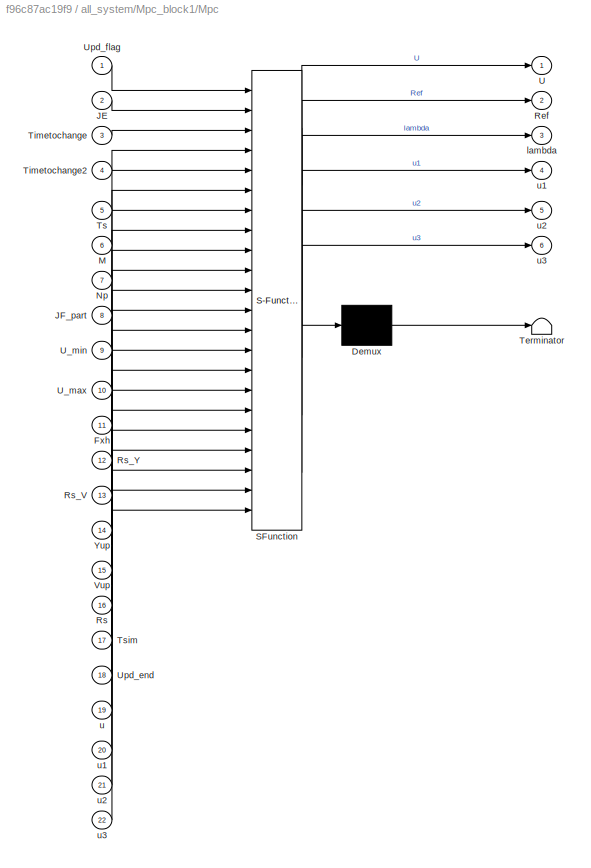
BLOCK [SubSystem] all_system/Mpc_block1/Mpc
  ErrorFcn = Stateflow.Translate.translate
  PermitHierarchicalResolution = ExplicitOnly
  Ports = [22, 6]
  RequestExecContextInheritance = off
  SFBlockType = MATLAB Function
  SystemSampleTime = Ts
  TreatAsAtomicUnit = on
BLOCK [Demux] all_system/Mpc_block1/Mpc/ Demux 
  Outputs = 1
  Ports = [1, 1]
BLOCK [S-Function] all_system/Mpc_block1/Mpc/ SFunction 
  EnableBusSupport = on
  FunctionName = sf_sfun
  PortCounts = [22 7]
  Ports = [22, 7]
  SFcnIsStateOwnerBlock = off
  SFunctionDeploymentMode = off
  Tag = Stateflow S-Function MPC_control 63
BLOCK [Terminator] all_system/Mpc_block1/Mpc/ Terminator 
BLOCK [Inport] all_system/Mpc_block1/Mpc/Fxh
  IconDisplay = Port number
  Port = 11
BLOCK [Inport] all_system/Mpc_block1/Mpc/JE
  IconDisplay = Port number
  Port = 2
BLOCK [Inport] all_system/Mpc_block1/Mpc/JF_part
  IconDisplay = Port number
  Port = 8
BLOCK [Inport] all_system/Mpc_block1/Mpc/M
  IconDisplay = Port number
  Port = 6
BLOCK [Inport] all_system/Mpc_block1/Mpc/Np
  IconDisplay = Port number
  Port = 7
BLOCK [Outport] all_system/Mpc_block1/Mpc/Ref
  IconDisplay = Port number
  Port = 2
BLOCK [Inport] all_system/Mpc_block1/Mpc/Rs
  IconDisplay = Port number
  Port = 16
BLOCK [Inport] all_system/Mpc_block1/Mpc/Rs_V
  IconDisplay = Port number
  Port = 13
BLOCK [Inport] all_system/Mpc_block1/Mpc/Rs_Y
  IconDisplay = Port number
  Port = 12
BLOCK [Inport] all_system/Mpc_block1/Mpc/Timetochange
  IconDisplay = Port number
  Port = 3
BLOCK [Inport] all_system/Mpc_block1/Mpc/Timetochange2
  IconDisplay = Port number
  Port = 4
BLOCK [Inport] all_system/Mpc_block1/Mpc/Ts
  IconDisplay = Port number
  Port = 5
BLOCK [Inport] all_system/Mpc_block1/Mpc/Tsim
  IconDisplay = Port number
  Port = 17
BLOCK [Outport] all_system/Mpc_block1/Mpc/U
  IconDisplay = Port number
BLOCK [Inport] all_system/Mpc_block1/Mpc/U_max
  IconDisplay = Port number
  Port = 10
BLOCK [Inport] all_system/Mpc_block1/Mpc/U_min
  IconDisplay = Port number
  Port = 9
BLOCK [Inport] all_system/Mpc_block1/Mpc/Upd_end
  IconDisplay = Port number
  Port = 18
BLOCK [Inport] all_system/Mpc_block1/Mpc/Upd_flag
  IconDisplay = Port number
BLOCK [Inport] all_system/Mpc_block1/Mpc/Vup
  IconDisplay = Port number
  Port = 15
BLOCK [Inport] all_system/Mpc_block1/Mpc/Yup
  IconDisplay = Port number
  Port = 14
BLOCK [Outport] all_system/Mpc_block1/Mpc/lambda
  IconDisplay = Port number
  Port = 3
BLOCK [Inport] all_system/Mpc_block1/Mpc/u
  IconDisplay = Port number
  Port = 19
BLOCK [Outport] all_system/Mpc_block1/Mpc/u1
  IconDisplay = Port number
  Port = 4
BLOCK [Inport] all_system/Mpc_block1/Mpc/u1 
  IconDisplay = Port number
  Port = 20
BLOCK [Outport] all_system/Mpc_block1/Mpc/u2
  IconDisplay = Port number
  Port = 5
BLOCK [Inport] all_system/Mpc_block1/Mpc/u2 
  IconDisplay = Port number
  Port = 21
BLOCK [Outport] all_system/Mpc_block1/Mpc/u3
  IconDisplay = Port number
  Port = 6
BLOCK [Inport] all_system/Mpc_block1/Mpc/u3 
  IconDisplay = Port number
  Port = 22
BLOCK [MultiPortSwitch] all_system/Mpc_block1/Multiport Switch
  InputSameDT = off
  Inputs = 4
  Ports = [5, 1]
  SaturateOnIntegerOverflow = off
BLOCK [MultiPortSwitch] all_system/Mpc_block1/Multiport Switch1
  InputSameDT = off
  Inputs = 4
  Ports = [5, 1]
  SaturateOnIntegerOverflow = off
BLOCK [MultiPortSwitch] all_system/Mpc_block1/Multiport Switch2
  InputSameDT = off
  Inputs = 4
  Ports = [5, 1]
  SaturateOnIntegerOverflow = off
BLOCK [Mux] all_system/Mpc_block1/Mux
  DisplayOption = bar
  Inputs = 3
  Ports = [3, 1]
BLOCK [Mux] all_system/Mpc_block1/Mux1
  Commented = on
  DisplayOption = bar
  Inputs = 3
  Ports = [3, 1]
BLOCK [Outport] all_system/Mpc_block1/Ref
  IconDisplay = Port number
  Port = 2
BLOCK [Inport] all_system/Mpc_block1/Rs
  IconDisplay = Port number
  LockScale = on
  SampleTime = Ts
  VarSizeSig = No
BLOCK [Inport] all_system/Mpc_block1/Rs_V
  IconDisplay = Port number
  LockScale = on
  Port = 2
  SampleTime = Ts
  VarSizeSig = No
BLOCK [Inport] all_system/Mpc_block1/Rs_Y
  IconDisplay = Port number
  LockScale = on
  Port = 3
  SampleTime = Ts
  VarSizeSig = No
BLOCK [Inport] all_system/Mpc_block1/Rs_heading_angle
  IconDisplay = Port number
  LockScale = on
  Port = 5
  SampleTime = Ts
BLOCK [Inport] all_system/Mpc_block1/Select
  IconDisplay = Port number
  Port = 7
BLOCK [Switch] all_system/Mpc_block1/Switch
  Commented = on
  Criteria = u2 ~= 0
  InputSameDT = off
  SaturateOnIntegerOverflow = off
  Threshold = Timetochange
BLOCK [Outport] all_system/Mpc_block1/U
  IconDisplay = Port number
BLOCK [UnitDelay] all_system/Mpc_block1/Unit Delay
  InitialCondition = [0;0]
  InputProcessing = Elements as channels (sample based)
  SampleTime = Ts
BLOCK [UnitDelay] all_system/Mpc_block1/Unit Delay1
  Commented = on
  InitialCondition = [0;0]
  InputProcessing = Elements as channels (sample based)
  SampleTime = Ts
BLOCK [UnitDelay] all_system/Mpc_block1/Unit Delay2
  Commented = on
  InitialCondition = [0;0]
  InputProcessing = Elements as channels (sample based)
  SampleTime = Ts
BLOCK [UnitDelay] all_system/Mpc_block1/Unit Delay3
  Commented = on
  InitialCondition = [0;0]
  InputProcessing = Elements as channels (sample based)
  SampleTime = Ts
BLOCK [UnitDelay] all_system/Mpc_block1/Unit Delay4
  Commented = on
  InitialCondition = [0;0]
  InputProcessing = Elements as channels (sample based)
  SampleTime = Ts
BLOCK [UnitDelay] all_system/Mpc_block1/Unit Delay5
  Commented = on
  InitialCondition = [0;0]
  InputProcessing = Elements as channels (sample based)
  SampleTime = Ts
BLOCK [Inport] all_system/Mpc_block1/Vup
  IconDisplay = Port number
  Port = 4
  SampleTime = Ts
BLOCK [Inport] all_system/Mpc_block1/Xh
  IconDisplay = Port number
  Port = 6
BLOCK [MultiPortSwitch] all_system/Multiport Switch10
  InputSameDT = off
  Ports = [4, 1]
  SaturateOnIntegerOverflow = off
BLOCK [MultiPortSwitch] all_system/Multiport Switch11
  InputSameDT = off
  Ports = [4, 1]
  SaturateOnIntegerOverflow = off
BLOCK [MultiPortSwitch] all_system/Multiport Switch12
  InputSameDT = off
  Ports = [4, 1]
  SaturateOnIntegerOverflow = off
BLOCK [MultiPortSwitch] all_system/Multiport Switch2
  InputSameDT = off
  Ports = [4, 1]
  SaturateOnIntegerOverflow = off
BLOCK [MultiPortSwitch] all_system/Multiport Switch8
  InputSameDT = off
  Ports = [4, 1]
  SaturateOnIntegerOverflow = off
BLOCK [MultiPortSwitch] all_system/Multiport Switch9
  InputSameDT = off
  Ports = [4, 1]
  SaturateOnIntegerOverflow = off
BLOCK [Mux] all_system/Mux5
  DisplayOption = bar
  Inputs = 2
  Ports = [2, 1]
BLOCK [Mux] all_system/Mux6
  DisplayOption = bar
  Inputs = 3
  Ports = [3, 1]
BLOCK [Mux] all_system/Mux7
  DisplayOption = bar
  Inputs = 2
  Ports = [2, 1]
BLOCK [Mux] all_system/Mux8
  DisplayOption = bar
  Inputs = 2
  Ports = [2, 1]
BLOCK [Mux] all_system/Mux9
  DisplayOption = bar
  Inputs = 2
  Ports = [2, 1]
BLOCK [SubSystem] all_system/Observer_state1
  Ports = [0, 1]
  RequestExecContextInheritance = off
BLOCK [Clock] all_system/Observer_state1/Clock9
BLOCK [SubSystem] all_system/Observer_state1/Observer_state1
  ErrorFcn = Stateflow.Translate.translate
  PermitHierarchicalResolution = ExplicitOnly
  Ports = [2, 1]
  RequestExecContextInheritance = off
  SFBlockType = MATLAB Function
  SystemSampleTime = Ts
  TreatAsAtomicUnit = on
BLOCK [Demux] all_system/Observer_state1/Observer_state1/ Demux 
  Outputs = 1
  Ports = [1, 1]
BLOCK [S-Function] all_system/Observer_state1/Observer_state1/ SFunction 
  EnableBusSupport = on
  FunctionName = sf_sfun
  PortCounts = [2 2]
  Ports = [2, 2]
  SFcnIsStateOwnerBlock = off
  SFunctionDeploymentMode = off
  Tag = Stateflow S-Function MPC_control 64
BLOCK [Terminator] all_system/Observer_state1/Observer_state1/ Terminator 
BLOCK [Inport] all_system/Observer_state1/Observer_state1/point
  IconDisplay = Port number
  Port = 2
BLOCK [Outport] all_system/Observer_state1/Observer_state1/state
  IconDisplay = Port number
BLOCK [Inport] all_system/Observer_state1/Observer_state1/timing
  IconDisplay = Port number
BLOCK [Constant] all_system/Observer_state1/Timetochange
  SampleTime = -1
  Value = Timetochange
  VectorParams1D = off
BLOCK [Outport] all_system/Observer_state1/state
  IconDisplay = Port number
BLOCK [SubSystem] all_system/Observer_state2
  Ports = [0, 1]
  RequestExecContextInheritance = off
BLOCK [Clock] all_system/Observer_state2/Clock9
BLOCK [SubSystem] all_system/Observer_state2/Observer_state2
  ErrorFcn = Stateflow.Translate.translate
  PermitHierarchicalResolution = ExplicitOnly
  Ports = [3, 1]
  RequestExecContextInheritance = off
  SFBlockType = MATLAB Function
  SystemSampleTime = Ts
  TreatAsAtomicUnit = on
BLOCK [Demux] all_system/Observer_state2/Observer_state2/ Demux 
  Outputs = 1
  Ports = [1, 1]
BLOCK [S-Function] all_system/Observer_state2/Observer_state2/ SFunction 
  EnableBusSupport = on
  FunctionName = sf_sfun
  PortCounts = [3 2]
  Ports = [3, 2]
  SFcnIsStateOwnerBlock = off
  SFunctionDeploymentMode = off
  Tag = Stateflow S-Function MPC_control 65
BLOCK [Terminator] all_system/Observer_state2/Observer_state2/ Terminator 
BLOCK [Inport] all_system/Observer_state2/Observer_state2/Earlytochange
  IconDisplay = Port number
  Port = 2
BLOCK [Inport] all_system/Observer_state2/Observer_state2/Timetochange2
  IconDisplay = Port number
  Port = 3
BLOCK [Outport] all_system/Observer_state2/Observer_state2/state
  IconDisplay = Port number
BLOCK [Inport] all_system/Observer_state2/Observer_state2/timing
  IconDisplay = Port number
BLOCK [Constant] all_system/Observer_state2/Timetochange
  SampleTime = -1
  Value = Earlytochange
  VectorParams1D = off
BLOCK [Constant] all_system/Observer_state2/Timetochange1
  SampleTime = -1
  Value = Timetochange2
  VectorParams1D = off
BLOCK [Outport] all_system/Observer_state2/state
  IconDisplay = Port number
BLOCK [SubSystem] all_system/Observer_state3
  Ports = [0, 1]
  RequestExecContextInheritance = off
BLOCK [Clock] all_system/Observer_state3/Clock9
BLOCK [SubSystem] all_system/Observer_state3/Observer_state2
  ErrorFcn = Stateflow.Translate.translate
  PermitHierarchicalResolution = ExplicitOnly
  Ports = [2, 1]
  RequestExecContextInheritance = off
  SFBlockType = MATLAB Function
  SystemSampleTime = Ts
  TreatAsAtomicUnit = on
BLOCK [Demux] all_system/Observer_state3/Observer_state2/ Demux 
  Outputs = 1
  Ports = [1, 1]
BLOCK [S-Function] all_system/Observer_state3/Observer_state2/ SFunction 
  EnableBusSupport = on
  FunctionName = sf_sfun
  PortCounts = [2 2]
  Ports = [2, 2]
  SFcnIsStateOwnerBlock = off
  SFunctionDeploymentMode = off
  Tag = Stateflow S-Function MPC_control 66
BLOCK [Terminator] all_system/Observer_state3/Observer_state2/ Terminator 
BLOCK [Inport] all_system/Observer_state3/Observer_state2/Earlytochange2
  IconDisplay = Port number
  Port = 2
BLOCK [Outport] all_system/Observer_state3/Observer_state2/state
  IconDisplay = Port number
BLOCK [Inport] all_system/Observer_state3/Observer_state2/timing
  IconDisplay = Port number
BLOCK [Constant] all_system/Observer_state3/Timetochange
  SampleTime = -1
  Value = Earlytochange2
  VectorParams1D = off
BLOCK [Outport] all_system/Observer_state3/state
  IconDisplay = Port number
BLOCK [SubSystem] all_system/Passenger Vehicle1
  MinAlgLoopOccurrences = on
  Ports = [3, 4]
  RequestExecContextInheritance = off
  TreatAsAtomicUnit = on
BLOCK [SubSystem] all_system/Passenger Vehicle1/Body, Suspension, Wheels
  OverrideUsingVariant = 1
  Ports = [6, 20]
  RequestExecContextInheritance = off
  Variant = on
BLOCK [Inport] all_system/Passenger Vehicle1/Body, Suspension, Wheels/AxleTrq
  IconDisplay = Port number
  Port = 5
BLOCK [Inport] all_system/Passenger Vehicle1/Body, Suspension, Wheels/BrkPrs
  IconDisplay = Port number
  Port = 6
BLOCK [Inport] all_system/Passenger Vehicle1/Body, Suspension, Wheels/Friction
  IconDisplay = Port number
  Port = 3
  PortDimensions = 4
BLOCK [Inport] all_system/Passenger Vehicle1/Body, Suspension, Wheels/Ground
  IconDisplay = Port number
  Port = 2
  PortDimensions = 4
BLOCK [ModelReference] all_system/Passenger Vehicle1/Body, Suspension, Wheels/PassVeh14DOF
  DisableCoverage = on
  ModelNameDialog = PassVeh14DOF
  ModelReferenceVersion = 1.200
  Ports = [6, 20]
  VariantControl = 3
BLOCK [ModelReference] all_system/Passenger Vehicle1/Body, Suspension, Wheels/PassVeh7DOF
  DisableCoverage = on
  ModelNameDialog = PassVeh7DOF
  ModelReferenceVersion = 1.152
  Ports = [6, 20]
  VariantControl = 1
BLOCK [Inport] all_system/Passenger Vehicle1/Body, Suspension, Wheels/WheelAngle
  IconDisplay = Port number
  Port = 4
BLOCK [Inport] all_system/Passenger Vehicle1/Body, Suspension, Wheels/WindXYZ
  IconDisplay = Port number
BLOCK [Outport] all_system/Passenger Vehicle1/Body, Suspension, Wheels/X
  IconDisplay = Port number
  Port = 3
BLOCK [Outport] all_system/Passenger Vehicle1/Body, Suspension, Wheels/XWheel
  IconDisplay = Port number
  Port = 19
BLOCK [Outport] all_system/Passenger Vehicle1/Body, Suspension, Wheels/Xdot
  IconDisplay = Port number
  Port = 6
BLOCK [Outport] all_system/Passenger Vehicle1/Body, Suspension, Wheels/Y
  IconDisplay = Port number
  Port = 4
BLOCK [Outport] all_system/Passenger Vehicle1/Body, Suspension, Wheels/YWheel
  IconDisplay = Port number
  Port = 20
BLOCK [Outport] all_system/Passenger Vehicle1/Body, Suspension, Wheels/Ydot
  IconDisplay = Port number
  Port = 7
BLOCK [Outport] all_system/Passenger Vehicle1/Body, Suspension, Wheels/Z
  IconDisplay = Port number
  Port = 5
BLOCK [Outport] all_system/Passenger Vehicle1/Body, Suspension, Wheels/ZHP
  IconDisplay = Port number
  Port = 18
  Unit = m
BLOCK [Outport] all_system/Passenger Vehicle1/Body, Suspension, Wheels/ay
  IconDisplay = Port number
  Port = 14
BLOCK [Outport] all_system/Passenger Vehicle1/Body, Suspension, Wheels/kappa
  IconDisplay = Port number
  Port = 15
BLOCK [Outport] all_system/Passenger Vehicle1/Body, Suspension, Wheels/omega
  IconDisplay = Port number
  Port = 17
BLOCK [Outport] all_system/Passenger Vehicle1/Body, Suspension, Wheels/p
  IconDisplay = Port number
  Port = 11
BLOCK [Outport] all_system/Passenger Vehicle1/Body, Suspension, Wheels/phi
  IconDisplay = Port number
  Port = 8
BLOCK [Outport] all_system/Passenger Vehicle1/Body, Suspension, Wheels/psi
  IconDisplay = Port number
  Port = 10
BLOCK [Outport] all_system/Passenger Vehicle1/Body, Suspension, Wheels/q
  IconDisplay = Port number
  Port = 12
BLOCK [Outport] all_system/Passenger Vehicle1/Body, Suspension, Wheels/r
  IconDisplay = Port number
  Port = 13
BLOCK [Outport] all_system/Passenger Vehicle1/Body, Suspension, Wheels/theta
  IconDisplay = Port number
  Port = 9
BLOCK [Outport] all_system/Passenger Vehicle1/Body, Suspension, Wheels/xdot
  IconDisplay = Port number
BLOCK [Outport] all_system/Passenger Vehicle1/Body, Suspension, Wheels/ydot
  IconDisplay = Port number
  Port = 2
BLOCK [Outport] all_system/Passenger Vehicle1/Body, Suspension, Wheels/zAxle
  IconDisplay = Port number
  Port = 16
BLOCK [BusCreator] all_system/Passenger Vehicle1/Bus Creator2
  DisplayOption = bar
  InheritFromInputs = on
  Inputs = 4
  Ports = [4, 1]
BLOCK [Inport] all_system/Passenger Vehicle1/Cntrl
  IconDisplay = Port number
  Port = 3
BLOCK [SubSystem] all_system/Passenger Vehicle1/Engine
  OverrideUsingVariant = 0
  Ports = [2, 1]
  RequestExecContextInheritance = off
  Variant = on
BLOCK [Inport] all_system/Passenger Vehicle1/Engine/EngSpd
  IconDisplay = Port number
  Port = 2
  Unit = rad/s
BLOCK [Outport] all_system/Passenger Vehicle1/Engine/EngTrq
  IconDisplay = Port number
BLOCK [ModelReference] all_system/Passenger Vehicle1/Engine/Ideal Mapped Engine
  DisableCoverage = on
  ModelNameDialog = SiMappedEngineV
  ModelReferenceVersion = 1.335
  Ports = [2, 1]
  VariantControl = 0
BLOCK [Inport] all_system/Passenger Vehicle1/Engine/TrqCmd
  IconDisplay = Port number
BLOCK [Inport] all_system/Passenger Vehicle1/Env
  IconDisplay = Port number
BLOCK [From] all_system/Passenger Vehicle1/From
  GotoTag = Driveline
BLOCK [From] all_system/Passenger Vehicle1/From1
  GotoTag = Wheels
BLOCK [From] all_system/Passenger Vehicle1/From2
  GotoTag = EngTrq
BLOCK [From] all_system/Passenger Vehicle1/From3
  GotoTag = Driveline
BLOCK [Goto] all_system/Passenger Vehicle1/Goto
  GotoTag = Driveline
BLOCK [Goto] all_system/Passenger Vehicle1/Goto1
  GotoTag = Wheels
BLOCK [Goto] all_system/Passenger Vehicle1/Goto2
  GotoTag = EngTrq
BLOCK [Mux] all_system/Passenger Vehicle1/Mux
  DisplayOption = bar
  Inputs = 2
  Ports = [2, 1]
BLOCK [Inport] all_system/Passenger Vehicle1/Steer
  IconDisplay = Port number
  Port = 2
BLOCK [SubSystem] all_system/Passenger Vehicle1/Steering, Transmission, Driveline and Brakes
  OverrideUsingVariant = 0
  Ports = [5, 5]
  RequestExecContextInheritance = off
  Variant = on
BLOCK [Outport] all_system/Passenger Vehicle1/Steering, Transmission, Driveline and Brakes/AxlTrq
  IconDisplay = Port number
  Port = 2
BLOCK [Outport] all_system/Passenger Vehicle1/Steering, Transmission, Driveline and Brakes/BrkPrs
  IconDisplay = Port number
  Port = 3
  PortDimensions = 4
BLOCK [Inport] all_system/Passenger Vehicle1/Steering, Transmission, Driveline and Brakes/BrkPrsCmd
  IconDisplay = Port number
  Port = 4
  PortDimensions = 4
BLOCK [ModelReference] all_system/Passenger Vehicle1/Steering, Transmission, Driveline and Brakes/Driveline Ideal Fixed Gear
  DisableCoverage = on
  ModelNameDialog = Driveline
  ModelReferenceVersion = 1.207
  Ports = [5, 5]
  VariantControl = 0
BLOCK [Outport] all_system/Passenger Vehicle1/Steering, Transmission, Driveline and Brakes/EngSpd
  IconDisplay = Port number
  Port = 4
  Unit = rad/s
BLOCK [Inport] all_system/Passenger Vehicle1/Steering, Transmission, Driveline and Brakes/EngTrq
  IconDisplay = Port number
  Port = 2
BLOCK [Inport] all_system/Passenger Vehicle1/Steering, Transmission, Driveline and Brakes/GearCmd
  IconDisplay = Port number
  OutDataTypeStr = int8
  Port = 3
BLOCK [Outport] all_system/Passenger Vehicle1/Steering, Transmission, Driveline and Brakes/PropShftSpd
  IconDisplay = Port number
  Port = 5
BLOCK [Inport] all_system/Passenger Vehicle1/Steering, Transmission, Driveline and Brakes/SteerHWCmd
  IconDisplay = Port number
BLOCK [Outport] all_system/Passenger Vehicle1/Steering, Transmission, Driveline and Brakes/WhlAng
  IconDisplay = Port number
BLOCK [Inport] all_system/Passenger Vehicle1/Steering, Transmission, Driveline and Brakes/omega
  IconDisplay = Port number
  Port = 5
BLOCK [SubSystem] all_system/Passenger Vehicle1/Subsystem
  Ports = [2, 6]
  RequestExecContextInheritance = off
BLOCK [Outport] all_system/Passenger Vehicle1/Subsystem/AxleTrq
  IconDisplay = Port number
  Port = 5
BLOCK [Outport] all_system/Passenger Vehicle1/Subsystem/BrkPrs
  IconDisplay = Port number
  Port = 6
BLOCK [BusSelector] all_system/Passenger Vehicle1/Subsystem/Bus Selector1
  OutputAsBus = off
  OutputSignals = Gnd.z.G_FL_z,Gnd.z.G_FR_z,Gnd.z.G_RL_z,Gnd.z.G_RR_z
  Ports = [1, 4]
BLOCK [BusSelector] all_system/Passenger Vehicle1/Subsystem/Bus Selector2
  OutputAsBus = off
  OutputSignals = Wind
  Ports = [1, 1]
BLOCK [BusSelector] all_system/Passenger Vehicle1/Subsystem/Bus Selector3
  OutputAsBus = off
  OutputSignals = Gnd.mu.mu_FL,Gnd.mu.mu_FR,Gnd.mu.mu_RL,Gnd.mu.mu_RR
  Ports = [1, 4]
BLOCK [BusSelector] all_system/Passenger Vehicle1/Subsystem/Bus Selector4
  OutputAsBus = off
  OutputSignals = WhlAng,AxlTrq,BrkPrs
  Ports = [1, 3]
BLOCK [Inport] all_system/Passenger Vehicle1/Subsystem/Driveline
  IconDisplay = Port number
  Port = 2
BLOCK [Inport] all_system/Passenger Vehicle1/Subsystem/Env
  IconDisplay = Port number
BLOCK [Outport] all_system/Passenger Vehicle1/Subsystem/Gnd
  IconDisplay = Port number
  Port = 2
BLOCK [Concatenate] all_system/Passenger Vehicle1/Subsystem/Vector Concatenate
  NumInputs = 4
  Ports = [4, 1]
BLOCK [Concatenate] all_system/Passenger Vehicle1/Subsystem/Vector Concatenate1
  NumInputs = 4
  Ports = [4, 1]
BLOCK [Outport] all_system/Passenger Vehicle1/Subsystem/WhlAng
  IconDisplay = Port number
  Port = 4
BLOCK [Outport] all_system/Passenger Vehicle1/Subsystem/Wind
  IconDisplay = Port number
BLOCK [Outport] all_system/Passenger Vehicle1/Subsystem/mu
  IconDisplay = Port number
  Port = 3
BLOCK [SubSystem] all_system/Passenger Vehicle1/Subsystem1
  Ports = [5, 1]
  RequestExecContextInheritance = off
BLOCK [Inport] all_system/Passenger Vehicle1/Subsystem1/AxlTrq
  IconDisplay = Port number
  Port = 2
BLOCK [Inport] all_system/Passenger Vehicle1/Subsystem1/BrkPrs
  IconDisplay = Port number
  Port = 3
BLOCK [BusCreator] all_system/Passenger Vehicle1/Subsystem1/Bus Creator1
  DisplayOption = bar
  InheritFromInputs = on
  Inputs = 5
  Ports = [5, 1]
BLOCK [Outport] all_system/Passenger Vehicle1/Subsystem1/Driveline
  IconDisplay = Port number
BLOCK [Inport] all_system/Passenger Vehicle1/Subsystem1/EngSpd
  IconDisplay = Port number
  Port = 4
BLOCK [Inport] all_system/Passenger Vehicle1/Subsystem1/PropShftSpd
  IconDisplay = Port number
  Port = 5
BLOCK [Inport] all_system/Passenger Vehicle1/Subsystem1/WhlAng
  IconDisplay = Port number
BLOCK [SubSystem] all_system/Passenger Vehicle1/Subsystem2
  Ports = [4, 5]
  RequestExecContextInheritance = off
BLOCK [BusSelector] all_system/Passenger Vehicle1/Subsystem2/Bus Selector1
  OutputAsBus = off
  OutputSignals = Steer
  Ports = [1, 1]
BLOCK [BusSelector] all_system/Passenger Vehicle1/Subsystem2/Bus Selector2
  OutputAsBus = off
  OutputSignals = omega
  Ports = [1, 1]
BLOCK [BusSelector] all_system/Passenger Vehicle1/Subsystem2/Bus Selector3
  OutputAsBus = off
  OutputSignals = Transmission.GearCmd,Brake.PrsCmd
  Ports = [1, 2]
BLOCK [BusSelector] all_system/Passenger Vehicle1/Subsystem2/Bus Selector4
  OutputAsBus = off
  OutputSignals = EngTrq
  Ports = [1, 1]
BLOCK [Inport] all_system/Passenger Vehicle1/Subsystem2/Cntrl
  IconDisplay = Port number
BLOCK [Outport] all_system/Passenger Vehicle1/Subsystem2/EngTrq
  IconDisplay = Port number
  Port = 2
BLOCK [Inport] all_system/Passenger Vehicle1/Subsystem2/EngTrqCmd
  IconDisplay = Port number
  Port = 3
BLOCK [Outport] all_system/Passenger Vehicle1/Subsystem2/GearCmd
  IconDisplay = Port number
  Port = 3
BLOCK [Outport] all_system/Passenger Vehicle1/Subsystem2/PrsCmd
  IconDisplay = Port number
  Port = 4
BLOCK [Outport] all_system/Passenger Vehicle1/Subsystem2/Steer
  IconDisplay = Port number
BLOCK [Inport] all_system/Passenger Vehicle1/Subsystem2/SteerCmd
  IconDisplay = Port number
  Port = 2
BLOCK [Inport] all_system/Passenger Vehicle1/Subsystem2/Wheels
  IconDisplay = Port number
  Port = 4
BLOCK [Outport] all_system/Passenger Vehicle1/Subsystem2/omega
  IconDisplay = Port number
  Port = 5
BLOCK [SubSystem] all_system/Passenger Vehicle1/Subsystem3
  Ports = [2, 2]
  RequestExecContextInheritance = off
BLOCK [BusSelector] all_system/Passenger Vehicle1/Subsystem3/Bus Selector
  OutputAsBus = off
  OutputSignals = ECU.EngTrqCmd
  Ports = [1, 1]
BLOCK [BusSelector] all_system/Passenger Vehicle1/Subsystem3/Bus Selector1
  OutputAsBus = off
  OutputSignals = EngSpd
  Ports = [1, 1]
BLOCK [Inport] all_system/Passenger Vehicle1/Subsystem3/Cntrl
  IconDisplay = Port number
BLOCK [Inport] all_system/Passenger Vehicle1/Subsystem3/Driveline
  IconDisplay = Port number
  Port = 2
BLOCK [Outport] all_system/Passenger Vehicle1/Subsystem3/EngSpd
  IconDisplay = Port number
  Port = 2
BLOCK [Outport] all_system/Passenger Vehicle1/Subsystem3/EngTrqCmd
  IconDisplay = Port number
BLOCK [SubSystem] all_system/Passenger Vehicle1/Subsystem4
  Ports = [20, 2]
  RequestExecContextInheritance = off
BLOCK [BusCreator] all_system/Passenger Vehicle1/Subsystem4/Bus Creator
  DisplayOption = bar
  InheritFromInputs = on
  Inputs = 15
  Ports = [15, 1]
BLOCK [BusCreator] all_system/Passenger Vehicle1/Subsystem4/Bus Creator3
  DisplayOption = bar
  InheritFromInputs = on
  Inputs = 5
  Ports = [5, 1]
BLOCK [Outport] all_system/Passenger Vehicle1/Subsystem4/Chassis
  IconDisplay = Port number
BLOCK [Outport] all_system/Passenger Vehicle1/Subsystem4/Wheels
  IconDisplay = Port number
  Port = 2
BLOCK [Inport] all_system/Passenger Vehicle1/Subsystem4/X
  IconDisplay = Port number
  Port = 3
BLOCK [Inport] all_system/Passenger Vehicle1/Subsystem4/XWheel
  IconDisplay = Port number
  Port = 19
BLOCK [Inport] all_system/Passenger Vehicle1/Subsystem4/Xdot
  IconDisplay = Port number
  Port = 6
BLOCK [Inport] all_system/Passenger Vehicle1/Subsystem4/Y
  IconDisplay = Port number
  Port = 4
BLOCK [Inport] all_system/Passenger Vehicle1/Subsystem4/YWheel
  IconDisplay = Port number
  Port = 20
BLOCK [Inport] all_system/Passenger Vehicle1/Subsystem4/Ydot
  IconDisplay = Port number
  Port = 7
BLOCK [Inport] all_system/Passenger Vehicle1/Subsystem4/Z
  IconDisplay = Port number
  Port = 5
BLOCK [Inport] all_system/Passenger Vehicle1/Subsystem4/ZHP
  IconDisplay = Port number
  Port = 18
BLOCK [Inport] all_system/Passenger Vehicle1/Subsystem4/ay
  IconDisplay = Port number
  Port = 14
BLOCK [Inport] all_system/Passenger Vehicle1/Subsystem4/kappa
  IconDisplay = Port number
  Port = 15
BLOCK [Inport] all_system/Passenger Vehicle1/Subsystem4/omega
  IconDisplay = Port number
  Port = 17
BLOCK [Inport] all_system/Passenger Vehicle1/Subsystem4/p
  IconDisplay = Port number
  Port = 11
BLOCK [Inport] all_system/Passenger Vehicle1/Subsystem4/phi
  IconDisplay = Port number
  Port = 8
BLOCK [Inport] all_system/Passenger Vehicle1/Subsystem4/psi
  IconDisplay = Port number
  Port = 10
BLOCK [Inport] all_system/Passenger Vehicle1/Subsystem4/q
  IconDisplay = Port number
  Port = 12
BLOCK [Inport] all_system/Passenger Vehicle1/Subsystem4/r
  IconDisplay = Port number
  Port = 13
BLOCK [Inport] all_system/Passenger Vehicle1/Subsystem4/theta
  IconDisplay = Port number
  Port = 9
BLOCK [Inport] all_system/Passenger Vehicle1/Subsystem4/xdot
  IconDisplay = Port number
BLOCK [Inport] all_system/Passenger Vehicle1/Subsystem4/ydot
  IconDisplay = Port number
  Port = 2
BLOCK [Inport] all_system/Passenger Vehicle1/Subsystem4/zAxle
  IconDisplay = Port number
  Port = 16
BLOCK [SubSystem] all_system/Passenger Vehicle1/Subsystem5
  Ports = [1, 1]
  RequestExecContextInheritance = off
BLOCK [BusCreator] all_system/Passenger Vehicle1/Subsystem5/Bus Creator
  DisplayOption = bar
  InheritFromInputs = on
  Inputs = 1
  Ports = [1, 1]
BLOCK [Outport] all_system/Passenger Vehicle1/Subsystem5/Eng
  IconDisplay = Port number
BLOCK [Inport] all_system/Passenger Vehicle1/Subsystem5/EngTrq 
  IconDisplay = Port number
BLOCK [Sum] all_system/Passenger Vehicle1/Sum1
  IconShape = round
  InputSameDT = off
  OutDataTypeStr = Inherit: Inherit via internal rule
  Ports = [2, 1]
  SaturateOnIntegerOverflow = off
BLOCK [ToWorkspace] all_system/Passenger Vehicle1/To Workspace1
  FixptAsFi = on
  MaxDataPoints = inf
  Ports = [1]
  SampleTime = Ts
  Save2DSignal = 3-D array (concatenate along third dimension)
  VariableName = yaw_sim
BLOCK [ToWorkspace] all_system/Passenger Vehicle1/To Workspace3
  FixptAsFi = on
  MaxDataPoints = inf
  Ports = [1]
  SampleTime = Ts
  Save2DSignal = 3-D array (concatenate along third dimension)
  VariableName = Beta
BLOCK [ToWorkspace] all_system/Passenger Vehicle1/To Workspace5
  FixptAsFi = on
  MaxDataPoints = inf
  Ports = [1]
  SampleTime = -1
  Save2DSignal = 3-D array (concatenate along third dimension)
  VariableName = Velocity_tmp
BLOCK [ToWorkspace] all_system/Passenger Vehicle1/To Workspace6
  FixptAsFi = on
  MaxDataPoints = inf
  Ports = [1]
  SampleTime = -1
  Save2DSignal = 3-D array (concatenate along third dimension)
  VariableName = Velocity_y
BLOCK [Outport] all_system/Passenger Vehicle1/VehFdbk
  IconDisplay = Port number
BLOCK [Outport] all_system/Passenger Vehicle1/Velocity
  IconDisplay = Port number
  Port = 2
BLOCK [Outport] all_system/Passenger Vehicle1/XY
  IconDisplay = Port number
  Port = 4
BLOCK [SubSystem] all_system/Passenger Vehicle1/beta
  ErrorFcn = Stateflow.Translate.translate
  MinAlgLoopOccurrences = on
  PermitHierarchicalResolution = ExplicitOnly
  Ports = [2, 2]
  RTWSystemCode = Reusable function
  RequestExecContextInheritance = off
  SFBlockType = MATLAB Function
  SystemSampleTime = Tf
  TreatAsAtomicUnit = on
BLOCK [Demux] all_system/Passenger Vehicle1/beta/ Demux 
  Outputs = 1
  Ports = [1, 1]
BLOCK [S-Function] all_system/Passenger Vehicle1/beta/ SFunction 
  EnableBusSupport = on
  FunctionName = sf_sfun
  PortCounts = [2 3]
  Ports = [2, 3]
  SFcnIsStateOwnerBlock = off
  SFunctionDeploymentMode = off
  Tag = Stateflow S-Function MPC_control 67
BLOCK [Terminator] all_system/Passenger Vehicle1/beta/ Terminator 
BLOCK [Outport] all_system/Passenger Vehicle1/beta/Velocity
  IconDisplay = Port number
  Port = 2
BLOCK [Outport] all_system/Passenger Vehicle1/beta/beta
  IconDisplay = Port number
BLOCK [Inport] all_system/Passenger Vehicle1/beta/xdot
  IconDisplay = Port number
  Port = 2
BLOCK [Inport] all_system/Passenger Vehicle1/beta/ydot
  IconDisplay = Port number
BLOCK [Outport] all_system/Passenger Vehicle1/yaw
  IconDisplay = Port number
  Port = 3
BLOCK [RateTransition] all_system/Rate Transition3
  OutPortSampleTime = Ts
BLOCK [RateTransition] all_system/Rate Transition4
  OutPortSampleTime = Ts
BLOCK [RateTransition] all_system/Rate Transition5
  OutPortSampleTime = Ts
BLOCK [SubSystem] all_system/Select_model1
  Ports = [0, 1]
  RequestExecContextInheritance = off
BLOCK [Clock] all_system/Select_model1/Clock14
BLOCK [Constant] all_system/Select_model1/Constant2
  Value = Timetochange2
BLOCK [Constant] all_system/Select_model1/Constant3
  Value = Timetochange
BLOCK [Outport] all_system/Select_model1/Select
  IconDisplay = Port number
BLOCK [SubSystem] all_system/Select_model1/Select_model
  ErrorFcn = Stateflow.Translate.translate
  PermitHierarchicalResolution = ExplicitOnly
  Ports = [3, 1]
  RequestExecContextInheritance = off
  SFBlockType = MATLAB Function
  SystemSampleTime = Ts
  TreatAsAtomicUnit = on
BLOCK [Demux] all_system/Select_model1/Select_model/ Demux 
  Outputs = 1
  Ports = [1, 1]
BLOCK [S-Function] all_system/Select_model1/Select_model/ SFunction 
  EnableBusSupport = on
  FunctionName = sf_sfun
  PortCounts = [3 2]
  Ports = [3, 2]
  SFcnIsStateOwnerBlock = off
  SFunctionDeploymentMode = off
  Tag = Stateflow S-Function MPC_control 68
BLOCK [Terminator] all_system/Select_model1/Select_model/ Terminator 
BLOCK [Outport] all_system/Select_model1/Select_model/Select
  IconDisplay = Port number
BLOCK [Inport] all_system/Select_model1/Select_model/Tc1
  IconDisplay = Port number
  Port = 2
BLOCK [Inport] all_system/Select_model1/Select_model/Tc2
  IconDisplay = Port number
  Port = 3
BLOCK [Inport] all_system/Select_model1/Select_model/Time
  IconDisplay = Port number
BLOCK [SubSystem] all_system/Simulation Interrupt 1
  Ports = [1]
  RequestExecContextInheritance = off
BLOCK [Abs] all_system/Simulation Interrupt 1/Abs
  SaturateOnIntegerOverflow = off
BLOCK [Clock] all_system/Simulation Interrupt 1/Clock
BLOCK [Constant] all_system/Simulation Interrupt 1/Constant
BLOCK [Constant] all_system/Simulation Interrupt 1/Constant1
  Value = 0
BLOCK [Constant] all_system/Simulation Interrupt 1/Constant2
  Value = 0
BLOCK [Fcn] all_system/Simulation Interrupt 1/Fcn
  Expr = u(1)
BLOCK [Fcn] all_system/Simulation Interrupt 1/Fcn1
  Expr = u(1)
BLOCK [FromWorkspace] all_system/Simulation Interrupt 1/From Workspace
  SampleTime = Ts
  VariableName = Rs_V_now
  ZeroCross = on
BLOCK [Stop] all_system/Simulation Interrupt 1/Stop Simulation
BLOCK [Sum] all_system/Simulation Interrupt 1/Sum4
  IconShape = round
  InputSameDT = off
  Inputs = |+-
  OutDataTypeStr = Inherit: Inherit via internal rule
  Ports = [2, 1]
  SaturateOnIntegerOverflow = off
BLOCK [Switch] all_system/Simulation Interrupt 1/Switch
  InputSameDT = off
  SaturateOnIntegerOverflow = off
  Threshold = 1
BLOCK [Switch] all_system/Simulation Interrupt 1/Switch1
  InputSameDT = off
  SaturateOnIntegerOverflow = off
  Threshold = 61
BLOCK [Inport] all_system/Simulation Interrupt 1/Y
  IconDisplay = Port number
BLOCK [SubSystem] all_system/Subsystem2
  Ports = [27]
  RequestExecContextInheritance = off
BLOCK [SubSystem] all_system/Subsystem2/Dataselect
  Ports = [0, 1]
  RequestExecContextInheritance = off
BLOCK [Clock] all_system/Subsystem2/Dataselect/Clock15
BLOCK [Constant] all_system/Subsystem2/Dataselect/Constant3
  Value = Statechange
BLOCK [Constant] all_system/Subsystem2/Dataselect/Constant4
  Value = Statechange2
BLOCK [Outport] all_system/Subsystem2/Dataselect/DS
  IconDisplay = Port number
BLOCK [SubSystem] all_system/Subsystem2/Dataselect/Dataselect
  ErrorFcn = Stateflow.Translate.translate
  PermitHierarchicalResolution = ExplicitOnly
  Ports = [3, 1]
  RequestExecContextInheritance = off
  SFBlockType = MATLAB Function
  TreatAsAtomicUnit = on
BLOCK [Demux] all_system/Subsystem2/Dataselect/Dataselect/ Demux 
  Outputs = 1
  Ports = [1, 1]
BLOCK [S-Function] all_system/Subsystem2/Dataselect/Dataselect/ SFunction 
  EnableBusSupport = on
  FunctionName = sf_sfun
  PortCounts = [3 2]
  Ports = [3, 2]
  SFcnIsStateOwnerBlock = off
  SFunctionDeploymentMode = off
  Tag = Stateflow S-Function MPC_control 69
BLOCK [Terminator] all_system/Subsystem2/Dataselect/Dataselect/ Terminator 
BLOCK [Inport] all_system/Subsystem2/Dataselect/Dataselect/Statechange
  IconDisplay = Port number
  Port = 2
BLOCK [Inport] all_system/Subsystem2/Dataselect/Dataselect/Statechange2
  IconDisplay = Port number
  Port = 3
BLOCK [Outport] all_system/Subsystem2/Dataselect/Dataselect/select
  IconDisplay = Port number
BLOCK [Inport] all_system/Subsystem2/Dataselect/Dataselect/timing
  IconDisplay = Port number
BLOCK [Inport] all_system/Subsystem2/FinalHeadingupdate
  IconDisplay = Port number
  Port = 27
BLOCK [Inport] all_system/Subsystem2/FinalLdterm
  IconDisplay = Port number
  Port = 24
BLOCK [Inport] all_system/Subsystem2/FinalOutputError
  IconDisplay = Port number
  Port = 21
BLOCK [Inport] all_system/Subsystem2/FinalPosition
  IconDisplay = Port number
  Port = 25
BLOCK [Inport] all_system/Subsystem2/FinalSystemError
  IconDisplay = Port number
  Port = 23
BLOCK [Inport] all_system/Subsystem2/FinalU
  IconDisplay = Port number
  Port = 19
BLOCK [Inport] all_system/Subsystem2/FinalVelocityupdate
  IconDisplay = Port number
  Port = 26
BLOCK [Inport] all_system/Subsystem2/FinalY
  IconDisplay = Port number
  Port = 20
BLOCK [Inport] all_system/Subsystem2/FinalYhat
  IconDisplay = Port number
  Port = 22
BLOCK [Inport] all_system/Subsystem2/FrontHeadingupdate
  IconDisplay = Port number
  Port = 4
BLOCK [Inport] all_system/Subsystem2/FrontLdterm
  IconDisplay = Port number
  Port = 7
BLOCK [Inport] all_system/Subsystem2/FrontOutputError
  IconDisplay = Port number
  Port = 8
BLOCK [Inport] all_system/Subsystem2/FrontPosition
  IconDisplay = Port number
  Port = 3
BLOCK [Inport] all_system/Subsystem2/FrontSystemError
  IconDisplay = Port number
  Port = 6
BLOCK [Inport] all_system/Subsystem2/FrontU
  IconDisplay = Port number
  Port = 2
BLOCK [Inport] all_system/Subsystem2/FrontVelocityupdate
  IconDisplay = Port number
  Port = 5
BLOCK [Inport] all_system/Subsystem2/FrontY
  IconDisplay = Port number
BLOCK [Inport] all_system/Subsystem2/FrontYhat
  IconDisplay = Port number
  Port = 9
BLOCK [Inport] all_system/Subsystem2/MiddleHeadingupdate
  IconDisplay = Port number
  Port = 13
BLOCK [Inport] all_system/Subsystem2/MiddleLdterm
  IconDisplay = Port number
  Port = 16
BLOCK [Inport] all_system/Subsystem2/MiddleOutputError
  IconDisplay = Port number
  Port = 17
BLOCK [Inport] all_system/Subsystem2/MiddlePosition
  IconDisplay = Port number
  Port = 12
BLOCK [Inport] all_system/Subsystem2/MiddleSystemError
  IconDisplay = Port number
  Port = 15
BLOCK [Inport] all_system/Subsystem2/MiddleU
  IconDisplay = Port number
  Port = 11
BLOCK [Inport] all_system/Subsystem2/MiddleVelocityupdate
  IconDisplay = Port number
  Port = 14
BLOCK [Inport] all_system/Subsystem2/MiddleY
  IconDisplay = Port number
  Port = 10
BLOCK [Inport] all_system/Subsystem2/MiddleYhat
  IconDisplay = Port number
  Port = 18
BLOCK [MultiPortSwitch] all_system/Subsystem2/Multiport Switch1
  InputSameDT = off
  Ports = [4, 1]
  SaturateOnIntegerOverflow = off
BLOCK [MultiPortSwitch] all_system/Subsystem2/Multiport Switch2
  InputSameDT = off
  Ports = [4, 1]
  SaturateOnIntegerOverflow = off
BLOCK [MultiPortSwitch] all_system/Subsystem2/Multiport Switch3
  InputSameDT = off
  Ports = [4, 1]
  SaturateOnIntegerOverflow = off
BLOCK [MultiPortSwitch] all_system/Subsystem2/Multiport Switch4
  InputSameDT = off
  Ports = [4, 1]
  SaturateOnIntegerOverflow = off
BLOCK [MultiPortSwitch] all_system/Subsystem2/Multiport Switch5
  InputSameDT = off
  Ports = [4, 1]
  SaturateOnIntegerOverflow = off
BLOCK [MultiPortSwitch] all_system/Subsystem2/Multiport Switch6
  InputSameDT = off
  Ports = [4, 1]
  SaturateOnIntegerOverflow = off
BLOCK [MultiPortSwitch] all_system/Subsystem2/Multiport Switch7
  InputSameDT = off
  Ports = [4, 1]
  SaturateOnIntegerOverflow = off
BLOCK [MultiPortSwitch] all_system/Subsystem2/Multiport Switch8
  InputSameDT = off
  Ports = [4, 1]
  SaturateOnIntegerOverflow = off
BLOCK [MultiPortSwitch] all_system/Subsystem2/Multiport Switch9
  InputSameDT = off
  Ports = [4, 1]
  SaturateOnIntegerOverflow = off
BLOCK [ToWorkspace] all_system/Subsystem2/To Workspace1
  FixptAsFi = on
  MaxDataPoints = inf
  Ports = [1]
  SampleTime = Ts
  Save2DSignal = 3-D array (concatenate along third dimension)
  VariableName = y_sim
BLOCK [ToWorkspace] all_system/Subsystem2/To Workspace10
  FixptAsFi = on
  MaxDataPoints = inf
  Ports = [1]
  SampleTime = Ts
  Save2DSignal = 3-D array (concatenate along third dimension)
  VariableName = Simulator_U
BLOCK [ToWorkspace] all_system/Subsystem2/To Workspace12
  FixptAsFi = on
  MaxDataPoints = inf
  Ports = [1]
  SampleTime = Ts
  Save2DSignal = 3-D array (concatenate along third dimension)
  VariableName = S_SystemError
BLOCK [ToWorkspace] all_system/Subsystem2/To Workspace14
  FixptAsFi = on
  MaxDataPoints = inf
  Ports = [1]
  SampleTime = Ts
  Save2DSignal = 3-D array (concatenate along third dimension)
  VariableName = S_Yhat
BLOCK [ToWorkspace] all_system/Subsystem2/To Workspace15
  FixptAsFi = on
  MaxDataPoints = inf
  Ports = [1]
  SampleTime = Ts
  Save2DSignal = 2-D array (concatenate along first dimension)
  VariableName = Simulator_velocity_updated
BLOCK [ToWorkspace] all_system/Subsystem2/To Workspace18
  FixptAsFi = on
  MaxDataPoints = inf
  Ports = [1]
  SampleTime = Ts
  Save2DSignal = 3-D array (concatenate along third dimension)
  VariableName = S_OutputError
BLOCK [ToWorkspace] all_system/Subsystem2/To Workspace7
  FixptAsFi = on
  MaxDataPoints = inf
  Ports = [1]
  SampleTime = Ts
  Save2DSignal = 3-D array (concatenate along third dimension)
  VariableName = S_Ldterm
BLOCK [ToWorkspace] all_system/Subsystem2/To Workspace8
  FixptAsFi = on
  MaxDataPoints = inf
  Ports = [1]
  SampleTime = Ts
  Save2DSignal = 2-D array (concatenate along first dimension)
  VariableName = Simulator_heading_angle_updated
BLOCK [ToWorkspace] all_system/Subsystem2/To Workspace9
  FixptAsFi = on
  MaxDataPoints = inf
  Ports = [1]
  SampleTime = Ts
  Save2DSignal = 3-D array (concatenate along third dimension)
  VariableName = XYplot_simulator
BLOCK [Sum] all_system/Sum1
  IconShape = round
  InputSameDT = off
  Inputs = +-|
  OutDataTypeStr = Inherit: Inherit via internal rule
  Ports = [2, 1]
  SaturateOnIntegerOverflow = off
BLOCK [Sum] all_system/Sum15
  IconShape = round
  InputSameDT = off
  Inputs = +-
  OutDataTypeStr = Inherit: Inherit via internal rule
  Ports = [2, 1]
  SaturateOnIntegerOverflow = off
BLOCK [Sum] all_system/Sum16
  IconShape = round
  InputSameDT = off
  Inputs = -+
  OutDataTypeStr = Inherit: Inherit via internal rule
  Ports = [2, 1]
  SaturateOnIntegerOverflow = off
BLOCK [Sum] all_system/Sum17
  IconShape = round
  InputSameDT = off
  Inputs = |++
  OutDataTypeStr = Inherit: Inherit via internal rule
  Ports = [2, 1]
  SaturateOnIntegerOverflow = off
BLOCK [Sum] all_system/Sum18
  IconShape = round
  InputSameDT = off
  Inputs = |++
  OutDataTypeStr = Inherit: Inherit via internal rule
  Ports = [2, 1]
  SaturateOnIntegerOverflow = off
BLOCK [Sum] all_system/Sum2
  IconShape = round
  InputSameDT = off
  Inputs = +-|
  OutDataTypeStr = Inherit: Inherit via internal rule
  Ports = [2, 1]
  SaturateOnIntegerOverflow = off
BLOCK [Sum] all_system/Sum3
  IconShape = round
  InputSameDT = off
  Inputs = -+
  OutDataTypeStr = Inherit: Inherit via internal rule
  Ports = [2, 1]
  SaturateOnIntegerOverflow = off
BLOCK [Sum] all_system/Sum4
  IconShape = round
  InputSameDT = off
  Inputs = |++
  OutDataTypeStr = Inherit: Inherit via internal rule
  Ports = [2, 1]
  SaturateOnIntegerOverflow = off
BLOCK [Sum] all_system/Sum5
  IconShape = round
  InputSameDT = off
  Inputs = +-|
  OutDataTypeStr = Inherit: Inherit via internal rule
  Ports = [2, 1]
  SaturateOnIntegerOverflow = off
BLOCK [ToWorkspace] all_system/To Workspace12
  FixptAsFi = on
  MaxDataPoints = inf
  Ports = [1]
  SampleTime = Ts
  Save2DSignal = 3-D array (concatenate along third dimension)
  VariableName = Yhat1
BLOCK [ToWorkspace] all_system/To Workspace13
  FixptAsFi = on
  MaxDataPoints = inf
  Ports = [1]
  SampleTime = Ts
  Save2DSignal = 3-D array (concatenate along third dimension)
  VariableName = V_SystemError1
BLOCK [ToWorkspace] all_system/To Workspace14
  FixptAsFi = on
  MaxDataPoints = inf
  Ports = [1]
  SampleTime = Ts
  Save2DSignal = 3-D array (concatenate along third dimension)
  VariableName = V_Ldterm1
BLOCK [ToWorkspace] all_system/To Workspace15
  FixptAsFi = on
  MaxDataPoints = inf
  Ports = [1]
  SampleTime = Ts
  Save2DSignal = 3-D array (concatenate along third dimension)
  VariableName = U1
BLOCK [ToWorkspace] all_system/To Workspace16
  MaxDataPoints = inf
  Ports = [1]
  SampleTime = Ts
  Save2DSignal = 2-D array (concatenate along first dimension)
  VariableName = Velocity_updated1
BLOCK [ToWorkspace] all_system/To Workspace17
  FixptAsFi = on
  MaxDataPoints = inf
  Ports = [1]
  SampleTime = Ts
  Save2DSignal = 3-D array (concatenate along third dimension)
  VariableName = XYplot_sim1
BLOCK [ToWorkspace] all_system/To Workspace18
  FixptAsFi = on
  MaxDataPoints = inf
  Ports = [1]
  SampleTime = Ts
  Save2DSignal = 3-D array (concatenate along third dimension)
  VariableName = Lambda1
BLOCK [ToWorkspace] all_system/To Workspace19
  FixptAsFi = on
  MaxDataPoints = inf
  Ports = [1]
  SampleTime = Ts
  Save2DSignal = 2-D array (concatenate along first dimension)
  VariableName = Heading_angle_updated1
BLOCK [ToWorkspace] all_system/To Workspace20
  FixptAsFi = on
  MaxDataPoints = inf
  Ports = [1]
  SampleTime = Ts
  Save2DSignal = 3-D array (concatenate along third dimension)
  VariableName = Lambda3
BLOCK [ToWorkspace] all_system/To Workspace21
  FixptAsFi = on
  MaxDataPoints = inf
  Ports = [1]
  SampleTime = Ts
  Save2DSignal = 3-D array (concatenate along third dimension)
  VariableName = V_OutputError1
BLOCK [ToWorkspace] all_system/To Workspace6
  FixptAsFi = on
  MaxDataPoints = inf
  Ports = [1]
  SampleTime = Ts
  Save2DSignal = 3-D array (concatenate along third dimension)
  VariableName = Y1
BLOCK [UnitDelay] all_system/Unit Delay18
  InputProcessing = Elements as channels (sample based)
  SampleTime = Ts
BLOCK [UnitDelay] all_system/Unit Delay19
  InputProcessing = Elements as channels (sample based)
  SampleTime = Ts
BLOCK [UnitDelay] all_system/Unit Delay20
  InputProcessing = Elements as channels (sample based)
  SampleTime = Ts
BLOCK [UnitDelay] all_system/Unit Delay21
  InputProcessing = Elements as channels (sample based)
  SampleTime = Ts
BLOCK [UnitDelay] all_system/Unit Delay22
  InputProcessing = Elements as channels (sample based)
  SampleTime = Ts
BLOCK [UnitDelay] all_system/Unit Delay23
  InputProcessing = Elements as channels (sample based)
  SampleTime = Ts
BLOCK [UnitDelay] all_system/Unit Delay24
  InputProcessing = Elements as channels (sample based)
  SampleTime = Ts
BLOCK [UnitDelay] all_system/Unit Delay25
  InputProcessing = Elements as channels (sample based)
  SampleTime = Ts
BLOCK [UnitDelay] all_system/Unit Delay26
  InputProcessing = Elements as channels (sample based)
  SampleTime = Ts
BLOCK [UnitDelay] all_system/Unit Delay27
  InputProcessing = Elements as channels (sample based)
  SampleTime = Ts
BLOCK [UnitDelay] all_system/Unit Delay28
  InputProcessing = Elements as channels (sample based)
  SampleTime = Ts
BLOCK [UnitDelay] all_system/Unit Delay29
  InputProcessing = Elements as channels (sample based)
  SampleTime = Ts
BLOCK [UnitDelay] all_system/Unit Delay30
  InputProcessing = Elements as channels (sample based)
  SampleTime = Ts
BLOCK [UnitDelay] all_system/Unit Delay31
  InputProcessing = Elements as channels (sample based)
  SampleTime = Ts
BLOCK [UnitDelay] all_system/Unit Delay32
  InputProcessing = Elements as channels (sample based)
  SampleTime = Ts
BLOCK [UnitDelay] all_system/Unit Delay33
  InputProcessing = Elements as channels (sample based)
  SampleTime = Ts
BLOCK [UnitDelay] all_system/Unit Delay34
  InputProcessing = Elements as channels (sample based)
  SampleTime = Ts
BLOCK [UnitDelay] all_system/Unit Delay35
  InputProcessing = Elements as channels (sample based)
  SampleTime = Ts
BLOCK [SubSystem] all_system/Visualization1
  Ports = [2]
  RequestExecContextInheritance = off
  TreatAsAtomicUnit = on
BLOCK [SubSystem] all_system/Visualization1/3D Engine
  AttributesFormatString = %<engine3D>
  OverrideUsingVariant = 0
  Ports = [1]
  RequestExecContextInheritance = off
  Variant = on
BLOCK [SubSystem] all_system/Visualization1/3D Engine/3D Engine
  Ports = [1]
  RequestExecContextInheritance = off
  VariantControl = 1
BLOCK [SubSystem] all_system/Visualization1/3D Engine/3D Engine Disabled
  Ports = [1]
  RequestExecContextInheritance = off
  VariantControl = 0
BLOCK [Terminator] all_system/Visualization1/3D Engine/3D Engine Disabled/Terminator
BLOCK [Inport] all_system/Visualization1/3D Engine/3D Engine Disabled/VehFdbk
  IconDisplay = Port number
BLOCK [Constant] all_system/Visualization1/3D Engine/3D Engine/3D Body Offset
  OutDataTypeStr = single
  Value = single(0.0112)
BLOCK [Sum] all_system/Visualization1/3D Engine/3D Engine/Add1
  InputSameDT = off
  Inputs = -+
  OutDataTypeStr = Inherit: Inherit via internal rule
  Ports = [2, 1]
  SaturateOnIntegerOverflow = off
BLOCK [Sum] all_system/Visualization1/3D Engine/3D Engine/Add3
  InputSameDT = off
  Inputs = -+-
  OutDataTypeStr = Inherit: Inherit via internal rule
  Ports = [3, 1]
  SaturateOnIntegerOverflow = off
BLOCK [BusSelector] all_system/Visualization1/3D Engine/3D Engine/Bus Selector
  OutputAsBus = off
  OutputSignals = Body.X,Body.Y,Body.Z,Body.phi,Body.theta,Body.psi
  Ports = [1, 6]
BLOCK [BusSelector] all_system/Visualization1/3D Engine/3D Engine/Bus Selector2
  OutputAsBus = off
  OutputSignals = Wheels.zAxle,Wheels.omega,Driveline.WhlAng
  Ports = [1, 3]
BLOCK [BusSelector] all_system/Visualization1/3D Engine/3D Engine/Bus Selector3
  OutputAsBus = off
  OutputSignals = Body.ZHP
  Ports = [1, 1]
BLOCK [Constant] all_system/Visualization1/3D Engine/3D Engine/Constant1
  OutDataTypeStr = single
  Value = zeros(4,1)
BLOCK [Constant] all_system/Visualization1/3D Engine/3D Engine/Constant2
  OutDataTypeStr = single
  Value = 0
BLOCK [Constant] all_system/Visualization1/3D Engine/3D Engine/Constant8
  Value = h
BLOCK [DataTypeConversion] all_system/Visualization1/3D Engine/3D Engine/Data Type Conversion1
  OutDataTypeStr = single
  RndMeth = Floor
  SaturateOnIntegerOverflow = off
BLOCK [DataTypeConversion] all_system/Visualization1/3D Engine/3D Engine/Data Type Conversion10
  OutDataTypeStr = single
  RndMeth = Floor
  SaturateOnIntegerOverflow = off
BLOCK [DataTypeConversion] all_system/Visualization1/3D Engine/3D Engine/Data Type Conversion12
  OutDataTypeStr = single
  RndMeth = Floor
  SaturateOnIntegerOverflow = off
BLOCK [DataTypeConversion] all_system/Visualization1/3D Engine/3D Engine/Data Type Conversion4
  OutDataTypeStr = single
  RndMeth = Floor
  SaturateOnIntegerOverflow = off
BLOCK [DataTypeConversion] all_system/Visualization1/3D Engine/3D Engine/Data Type Conversion5
  OutDataTypeStr = single
  RndMeth = Floor
  SaturateOnIntegerOverflow = off
BLOCK [DataTypeConversion] all_system/Visualization1/3D Engine/3D Engine/Data Type Conversion6
  OutDataTypeStr = single
  RndMeth = Floor
  SaturateOnIntegerOverflow = off
BLOCK [DataTypeConversion] all_system/Visualization1/3D Engine/3D Engine/Data Type Conversion7
  OutDataTypeStr = single
  RndMeth = Floor
  SaturateOnIntegerOverflow = off
BLOCK [DataTypeConversion] all_system/Visualization1/3D Engine/3D Engine/Data Type Conversion8
  OutDataTypeStr = single
  RndMeth = Floor
  SaturateOnIntegerOverflow = off
BLOCK [DataTypeConversion] all_system/Visualization1/3D Engine/3D Engine/Data Type Conversion9
  OutDataTypeStr = single
  RndMeth = Floor
  SaturateOnIntegerOverflow = off
BLOCK [Demux] all_system/Visualization1/3D Engine/3D Engine/Demux
  DisplayOption = bar
  Ports = [1, 4]
BLOCK [Demux] all_system/Visualization1/3D Engine/3D Engine/Demux1
  DisplayOption = bar
  Ports = [1, 4]
BLOCK [Demux] all_system/Visualization1/3D Engine/3D Engine/Demux2
  DisplayOption = bar
  Ports = [1, 4]
BLOCK [Demux] all_system/Visualization1/3D Engine/3D Engine/Demux3
  DisplayOption = bar
  Ports = [1, 4]
BLOCK [Integrator] all_system/Visualization1/3D Engine/3D Engine/Integrator
  Ports = [1, 1]
  WrapState = on
  WrappedStateLowerValue = 0
  WrappedStateUpperValue = 2*pi
  ZeroCross = off
BLOCK [SubSystem] all_system/Visualization1/3D Engine/3D Engine/Part Rotation Concatenation
  Ports = [15, 1]
  RequestExecContextInheritance = off
BLOCK [Concatenate] all_system/Visualization1/3D Engine/3D Engine/Part Rotation Concatenation/AllParts
  Mode = Multidimensional array
  NumInputs = 5
  Ports = [5, 1]
BLOCK [Concatenate] all_system/Visualization1/3D Engine/3D Engine/Part Rotation Concatenation/Body
  ConcatenateDimension = 2
  Mode = Multidimensional array
  NumInputs = 3
  Ports = [3, 1]
BLOCK [Inport] all_system/Visualization1/3D Engine/3D Engine/Part Rotation Concatenation/Body Ptich
  IconDisplay = Port number
  Port = 2
BLOCK [Inport] all_system/Visualization1/3D Engine/3D Engine/Part Rotation Concatenation/Body Roll
  IconDisplay = Port number
BLOCK [Inport] all_system/Visualization1/3D Engine/3D Engine/Part Rotation Concatenation/Body Yaw
  IconDisplay = Port number
  Port = 3
BLOCK [Outport] all_system/Visualization1/3D Engine/3D Engine/Part Rotation Concatenation/ConcatOut
  IconDisplay = Port number
BLOCK [Concatenate] all_system/Visualization1/3D Engine/3D Engine/Part Rotation Concatenation/WheelFrontLeft
  ConcatenateDimension = 2
  Mode = Multidimensional array
  NumInputs = 3
  Ports = [3, 1]
BLOCK [Inport] all_system/Visualization1/3D Engine/3D Engine/Part Rotation Concatenation/WheelFrontLeft Pitch
  IconDisplay = Port number
  Port = 4
BLOCK [Inport] all_system/Visualization1/3D Engine/3D Engine/Part Rotation Concatenation/WheelFrontLeft Roll
  IconDisplay = Port number
  Port = 8
BLOCK [Inport] all_system/Visualization1/3D Engine/3D Engine/Part Rotation Concatenation/WheelFrontLeft Yaw
  IconDisplay = Port number
  Port = 12
BLOCK [Concatenate] all_system/Visualization1/3D Engine/3D Engine/Part Rotation Concatenation/WheelFrontRight
  ConcatenateDimension = 2
  Mode = Multidimensional array
  NumInputs = 3
  Ports = [3, 1]
BLOCK [Inport] all_system/Visualization1/3D Engine/3D Engine/Part Rotation Concatenation/WheelFrontRight Pitch
  IconDisplay = Port number
  Port = 5
BLOCK [Inport] all_system/Visualization1/3D Engine/3D Engine/Part Rotation Concatenation/WheelFrontRight Roll
  IconDisplay = Port number
  Port = 9
BLOCK [Inport] all_system/Visualization1/3D Engine/3D Engine/Part Rotation Concatenation/WheelFrontRight Yaw
  IconDisplay = Port number
  Port = 13
BLOCK [Concatenate] all_system/Visualization1/3D Engine/3D Engine/Part Rotation Concatenation/WheelRearLeft
  ConcatenateDimension = 2
  Mode = Multidimensional array
  NumInputs = 3
  Ports = [3, 1]
BLOCK [Inport] all_system/Visualization1/3D Engine/3D Engine/Part Rotation Concatenation/WheelRearLeft Pitch
  IconDisplay = Port number
  Port = 6
BLOCK [Inport] all_system/Visualization1/3D Engine/3D Engine/Part Rotation Concatenation/WheelRearLeft Roll
  IconDisplay = Port number
  Port = 10
BLOCK [Inport] all_system/Visualization1/3D Engine/3D Engine/Part Rotation Concatenation/WheelRearLeft Yaw
  IconDisplay = Port number
  Port = 14
BLOCK [Concatenate] all_system/Visualization1/3D Engine/3D Engine/Part Rotation Concatenation/WheelRearRight
  ConcatenateDimension = 2
  Mode = Multidimensional array
  NumInputs = 3
  Ports = [3, 1]
BLOCK [Inport] all_system/Visualization1/3D Engine/3D Engine/Part Rotation Concatenation/WheelRearRight Ptich
  IconDisplay = Port number
  Port = 7
BLOCK [Inport] all_system/Visualization1/3D Engine/3D Engine/Part Rotation Concatenation/WheelRearRight Roll
  IconDisplay = Port number
  Port = 11
BLOCK [Inport] all_system/Visualization1/3D Engine/3D Engine/Part Rotation Concatenation/WheelRearRight Yaw
  IconDisplay = Port number
  Port = 15
BLOCK [SubSystem] all_system/Visualization1/3D Engine/3D Engine/Part Translation Concatenation
  Ports = [15, 1]
  RequestExecContextInheritance = off
BLOCK [Concatenate] all_system/Visualization1/3D Engine/3D Engine/Part Translation Concatenation/AllParts
  Mode = Multidimensional array
  NumInputs = 5
  Ports = [5, 1]
BLOCK [Concatenate] all_system/Visualization1/3D Engine/3D Engine/Part Translation Concatenation/Body
  ConcatenateDimension = 2
  Mode = Multidimensional array
  NumInputs = 3
  Ports = [3, 1]
BLOCK [Inport] all_system/Visualization1/3D Engine/3D Engine/Part Translation Concatenation/BodyX
  IconDisplay = Port number
BLOCK [Inport] all_system/Visualization1/3D Engine/3D Engine/Part Translation Concatenation/BodyY
  IconDisplay = Port number
  Port = 2
BLOCK [Inport] all_system/Visualization1/3D Engine/3D Engine/Part Translation Concatenation/BodyZ
  IconDisplay = Port number
  Port = 3
BLOCK [Outport] all_system/Visualization1/3D Engine/3D Engine/Part Translation Concatenation/ConcatOut
  IconDisplay = Port number
BLOCK [Concatenate] all_system/Visualization1/3D Engine/3D Engine/Part Translation Concatenation/WheelFrontLeft
  ConcatenateDimension = 2
  Mode = Multidimensional array
  NumInputs = 3
  Ports = [3, 1]
BLOCK [Inport] all_system/Visualization1/3D Engine/3D Engine/Part Translation Concatenation/WheelFrontLeftX
  IconDisplay = Port number
  Port = 4
BLOCK [Inport] all_system/Visualization1/3D Engine/3D Engine/Part Translation Concatenation/WheelFrontLeftY
  IconDisplay = Port number
  Port = 8
BLOCK [Inport] all_system/Visualization1/3D Engine/3D Engine/Part Translation Concatenation/WheelFrontLeftZ
  IconDisplay = Port number
  Port = 12
BLOCK [Concatenate] all_system/Visualization1/3D Engine/3D Engine/Part Translation Concatenation/WheelFrontRight
  ConcatenateDimension = 2
  Mode = Multidimensional array
  NumInputs = 3
  Ports = [3, 1]
BLOCK [Inport] all_system/Visualization1/3D Engine/3D Engine/Part Translation Concatenation/WheelFrontRightX
  IconDisplay = Port number
  Port = 5
BLOCK [Inport] all_system/Visualization1/3D Engine/3D Engine/Part Translation Concatenation/WheelFrontRightY
  IconDisplay = Port number
  Port = 9
BLOCK [Inport] all_system/Visualization1/3D Engine/3D Engine/Part Translation Concatenation/WheelFrontRightZ
  IconDisplay = Port number
  Port = 13
BLOCK [Concatenate] all_system/Visualization1/3D Engine/3D Engine/Part Translation Concatenation/WheelRearLeft
  ConcatenateDimension = 2
  Mode = Multidimensional array
  NumInputs = 3
  Ports = [3, 1]
BLOCK [Inport] all_system/Visualization1/3D Engine/3D Engine/Part Translation Concatenation/WheelRearLeftX
  IconDisplay = Port number
  Port = 6
BLOCK [Inport] all_system/Visualization1/3D Engine/3D Engine/Part Translation Concatenation/WheelRearLeftY
  IconDisplay = Port number
  Port = 10
BLOCK [Inport] all_system/Visualization1/3D Engine/3D Engine/Part Translation Concatenation/WheelRearLeftZ
  IconDisplay = Port number
  Port = 14
BLOCK [Concatenate] all_system/Visualization1/3D Engine/3D Engine/Part Translation Concatenation/WheelRearRight
  ConcatenateDimension = 2
  Mode = Multidimensional array
  NumInputs = 3
  Ports = [3, 1]
BLOCK [Inport] all_system/Visualization1/3D Engine/3D Engine/Part Translation Concatenation/WheelRearRightX
  IconDisplay = Port number
  Port = 7
BLOCK [Inport] all_system/Visualization1/3D Engine/3D Engine/Part Translation Concatenation/WheelRearRightY
  IconDisplay = Port number
  Port = 11
BLOCK [Inport] all_system/Visualization1/3D Engine/3D Engine/Part Translation Concatenation/WheelRearRightZ
  IconDisplay = Port number
  Port = 15
BLOCK [RateTransition] all_system/Visualization1/3D Engine/3D Engine/Rate Transition
  OutPortSampleTime = dt3D
BLOCK [SubSystem] all_system/Visualization1/3D Engine/3D Engine/Scale
  Ports = [0, 1]
  RequestExecContextInheritance = off
BLOCK [Constant] all_system/Visualization1/3D Engine/3D Engine/Scale/Constant1
  OutDataTypeStr = single
BLOCK [Constant] all_system/Visualization1/3D Engine/3D Engine/Scale/Constant10
  OutDataTypeStr = single
BLOCK [Constant] all_system/Visualization1/3D Engine/3D Engine/Scale/Constant11
  OutDataTypeStr = single
BLOCK [Constant] all_system/Visualization1/3D Engine/3D Engine/Scale/Constant12
  OutDataTypeStr = single
BLOCK [Constant] all_system/Visualization1/3D Engine/3D Engine/Scale/Constant17
  OutDataTypeStr = single
BLOCK [Constant] all_system/Visualization1/3D Engine/3D Engine/Scale/Constant2
  OutDataTypeStr = single
BLOCK [Constant] all_system/Visualization1/3D Engine/3D Engine/Scale/Constant3
  OutDataTypeStr = single
BLOCK [Constant] all_system/Visualization1/3D Engine/3D Engine/Scale/Constant32
  OutDataTypeStr = single
BLOCK [Constant] all_system/Visualization1/3D Engine/3D Engine/Scale/Constant33
  OutDataTypeStr = single
BLOCK [Constant] all_system/Visualization1/3D Engine/3D Engine/Scale/Constant4
  OutDataTypeStr = single
BLOCK [Constant] all_system/Visualization1/3D Engine/3D Engine/Scale/Constant5
  OutDataTypeStr = single
BLOCK [Constant] all_system/Visualization1/3D Engine/3D Engine/Scale/Constant6
  OutDataTypeStr = single
BLOCK [Constant] all_system/Visualization1/3D Engine/3D Engine/Scale/Constant7
  OutDataTypeStr = single
BLOCK [Constant] all_system/Visualization1/3D Engine/3D Engine/Scale/Constant8
  OutDataTypeStr = single
BLOCK [Constant] all_system/Visualization1/3D Engine/3D Engine/Scale/Constant9
  OutDataTypeStr = single
BLOCK [SubSystem] all_system/Visualization1/3D Engine/3D Engine/Scale/PartConcatenation
  Ports = [15, 1]
  RequestExecContextInheritance = off
BLOCK [Concatenate] all_system/Visualization1/3D Engine/3D Engine/Scale/PartConcatenation/AllParts
  Mode = Multidimensional array
  NumInputs = 5
  Ports = [5, 1]
BLOCK [Concatenate] all_system/Visualization1/3D Engine/3D Engine/Scale/PartConcatenation/Body
  ConcatenateDimension = 2
  Mode = Multidimensional array
  NumInputs = 3
  Ports = [3, 1]
BLOCK [Inport] all_system/Visualization1/3D Engine/3D Engine/Scale/PartConcatenation/BodyX
  IconDisplay = Port number
BLOCK [Inport] all_system/Visualization1/3D Engine/3D Engine/Scale/PartConcatenation/BodyY
  IconDisplay = Port number
  Port = 2
BLOCK [Inport] all_system/Visualization1/3D Engine/3D Engine/Scale/PartConcatenation/BodyZ
  IconDisplay = Port number
  Port = 3
BLOCK [Outport] all_system/Visualization1/3D Engine/3D Engine/Scale/PartConcatenation/ConcatOut
  IconDisplay = Port number
BLOCK [Concatenate] all_system/Visualization1/3D Engine/3D Engine/Scale/PartConcatenation/WheelFrontLeft
  ConcatenateDimension = 2
  Mode = Multidimensional array
  NumInputs = 3
  Ports = [3, 1]
BLOCK [Inport] all_system/Visualization1/3D Engine/3D Engine/Scale/PartConcatenation/WheelFrontLeftX
  IconDisplay = Port number
  Port = 4
BLOCK [Inport] all_system/Visualization1/3D Engine/3D Engine/Scale/PartConcatenation/WheelFrontLeftY
  IconDisplay = Port number
  Port = 5
BLOCK [Inport] all_system/Visualization1/3D Engine/3D Engine/Scale/PartConcatenation/WheelFrontLeftZ
  IconDisplay = Port number
  Port = 6
BLOCK [Concatenate] all_system/Visualization1/3D Engine/3D Engine/Scale/PartConcatenation/WheelFrontRight
  ConcatenateDimension = 2
  Mode = Multidimensional array
  NumInputs = 3
  Ports = [3, 1]
BLOCK [Inport] all_system/Visualization1/3D Engine/3D Engine/Scale/PartConcatenation/WheelFrontRightX
  IconDisplay = Port number
  Port = 7
BLOCK [Inport] all_system/Visualization1/3D Engine/3D Engine/Scale/PartConcatenation/WheelFrontRightY
  IconDisplay = Port number
  Port = 8
BLOCK [Inport] all_system/Visualization1/3D Engine/3D Engine/Scale/PartConcatenation/WheelFrontRightZ
  IconDisplay = Port number
  Port = 9
BLOCK [Concatenate] all_system/Visualization1/3D Engine/3D Engine/Scale/PartConcatenation/WheelRearLeft
  ConcatenateDimension = 2
  Mode = Multidimensional array
  NumInputs = 3
  Ports = [3, 1]
BLOCK [Inport] all_system/Visualization1/3D Engine/3D Engine/Scale/PartConcatenation/WheelRearLeftX
  IconDisplay = Port number
  Port = 10
BLOCK [Inport] all_system/Visualization1/3D Engine/3D Engine/Scale/PartConcatenation/WheelRearLeftY
  IconDisplay = Port number
  Port = 11
BLOCK [Inport] all_system/Visualization1/3D Engine/3D Engine/Scale/PartConcatenation/WheelRearLeftZ
  IconDisplay = Port number
  Port = 12
BLOCK [Concatenate] all_system/Visualization1/3D Engine/3D Engine/Scale/PartConcatenation/WheelRearRight
  ConcatenateDimension = 2
  Mode = Multidimensional array
  NumInputs = 3
  Ports = [3, 1]
BLOCK [Inport] all_system/Visualization1/3D Engine/3D Engine/Scale/PartConcatenation/WheelRearRightX
  IconDisplay = Port number
  Port = 13
BLOCK [Inport] all_system/Visualization1/3D Engine/3D Engine/Scale/PartConcatenation/WheelRearRightY
  IconDisplay = Port number
  Port = 14
BLOCK [Inport] all_system/Visualization1/3D Engine/3D Engine/Scale/PartConcatenation/WheelRearRightZ
  IconDisplay = Port number
  Port = 15
BLOCK [Outport] all_system/Visualization1/3D Engine/3D Engine/Scale/ScaleOut
  IconDisplay = Port number
BLOCK [Reference] all_system/Visualization1/3D Engine/3D Engine/Simulation 3D Engine 1  REF=sim3dlib/Simulation 3D Config
  AttributesFormatString = Priority: %<Priority>
  Ports = []
  Priority = 1
  SourceBlock = sim3dlib/Simulation 3D Config
  SourceType = 3D Simulation Setup
BLOCK [UnaryMinus] all_system/Visualization1/3D Engine/3D Engine/Unary Minus
BLOCK [Inport] all_system/Visualization1/3D Engine/3D Engine/VehFdbk
  IconDisplay = Port number
BLOCK [Reference] all_system/Visualization1/3D Engine/3D Engine/Vehicle Actor Transform Set  REF=sim3dlib/Simulation 3D Actor Transform Set
  Ports = [3]
  SourceBlock = sim3dlib/Simulation 3D Actor Transform Set
  SourceType = Transform Set
BLOCK [Inport] all_system/Visualization1/3D Engine/VehFdbk
  IconDisplay = Port number
BLOCK [SubSystem] all_system/Visualization1/Acceleration Cmd
  DialogController = hmiCreateDDGDialog
  IsWebBlock = on
  MaskHideContents = on
  Ports = []
  RequestExecContextInheritance = off
BLOCK [SubSystem] all_system/Visualization1/Brake Cmd
  DialogController = hmiCreateDDGDialog
  IsWebBlock = on
  MaskHideContents = on
  Ports = []
  RequestExecContextInheritance = off
BLOCK [BusSelector] all_system/Visualization1/Bus Selector
  OutputAsBus = off
  OutputSignals = Driveline.EngSpd,Body.xdot,Body.ay
  Ports = [1, 3]
BLOCK [BusSelector] all_system/Visualization1/Bus Selector2
  OutputAsBus = off
  OutputSignals = Accel,Brake,Steer
  Ports = [1, 3]
BLOCK [BusSelector] all_system/Visualization1/Bus Selector3
  OutputAsBus = off
  OutputSignals = Body.r
  Ports = [1, 1]
BLOCK [Inport] all_system/Visualization1/Cntrl
  IconDisplay = Port number
BLOCK [SubSystem] all_system/Visualization1/Engine Tach [rpm]
  DialogController = hmiCreateDDGDialog
  IsWebBlock = on
  MaskHideContents = on
  Ports = []
  RequestExecContextInheritance = off
BLOCK [SubSystem] all_system/Visualization1/Handwheel Angle [deg]
  DialogController = hmiCreateDDGDialog
  IsWebBlock = on
  MaskHideContents = on
  Ports = []
  RequestExecContextInheritance = off
BLOCK [SubSystem] all_system/Visualization1/Lateral Acceleration [g]
  DialogController = hmiCreateDDGDialog
  IsWebBlock = on
  MaskHideContents = on
  Ports = []
  RequestExecContextInheritance = off
BLOCK [RateTransition] all_system/Visualization1/Rate Transition1
BLOCK [RateTransition] all_system/Visualization1/Rate Transition2
BLOCK [SignalSpecification] all_system/Visualization1/Signal Specification
  Unit = deg
BLOCK [SignalSpecification] all_system/Visualization1/Signal Specification1
  Unit = mph
BLOCK [SignalSpecification] all_system/Visualization1/Signal Specification2
  Unit = deg/s
BLOCK [SignalSpecification] all_system/Visualization1/Signal Specification3
  Unit = rpm
BLOCK [SubSystem] all_system/Visualization1/Speed [mph]
  DialogController = hmiCreateDDGDialog
  IsWebBlock = on
  MaskHideContents = on
  Ports = []
  RequestExecContextInheritance = off
BLOCK [LampBlock] all_system/Visualization1/Start Steering Command
  LabelPosition = Hide
  WebBlockId = 9740
BLOCK [Reference] all_system/Visualization1/Steer vs Ay  REF=simulink/Sinks/XY Graph
  Commented = on
  Ports = [2]
  SourceBlock = simulink/Sinks/XY Graph
  SourceProductBaseCode = SL
  SourceProductName = Simulink
  SourceType = XY scope.
BLOCK [Scope] all_system/Visualization1/Steer, Velocity, Lat Accel
  Floating = off
  NumInputPorts = 3
  Ports = [3]
  ScopeSpecificationString = Simulink.scopes.TimeScopeBlockCfg('CurrentConfiguration', extmgr.ConfigurationSet(extmgr.Configuration('Core','General UI',true),extmgr.Configuration('Core','Source UI',true),extmgr.Configuration('Sources','WiredSimulink',true,'DataLoggingVariableName','ScopeData1'),extmgr.Configuration('Visuals','Time Domain',true,'SerializedDisplays',{struct('MinYLimReal','-33.75','MaxYLimReal','303.75','YLabelR...<+2750ch>
BLOCK [Terminator] all_system/Visualization1/Terminator
BLOCK [Terminator] all_system/Visualization1/Terminator1
BLOCK [Terminator] all_system/Visualization1/Terminator2
BLOCK [Terminator] all_system/Visualization1/Terminator3
BLOCK [UnitConversion] all_system/Visualization1/Unit Conversion1
BLOCK [UnitConversion] all_system/Visualization1/Unit Conversion2
BLOCK [UnitConversion] all_system/Visualization1/Unit Conversion3
BLOCK [UnitConversion] all_system/Visualization1/Unit Conversion4
BLOCK [Inport] all_system/Visualization1/VehFdbk
  IconDisplay = Port number
  Port = 2
BLOCK [SubSystem] all_system/Visualization1/Vehicle XY Plotter
  Ports = [1]
  RequestExecContextInheritance = off
BLOCK [BusSelector] all_system/Visualization1/Vehicle XY Plotter/Bus Selector1
  OutputAsBus = on
  OutputSignals = Body.phi,Body.theta,Body.psi
  Ports = [1, 1]
BLOCK [BusSelector] all_system/Visualization1/Vehicle XY Plotter/Bus Selector2
  OutputAsBus = on
  OutputSignals = Driveline.WhlAng
  Ports = [1, 1]
BLOCK [BusSelector] all_system/Visualization1/Vehicle XY Plotter/Bus Selector3
  OutputAsBus = on
  OutputSignals = Body.X,Body.Y,Body.Z
  Ports = [1, 1]
BLOCK [BusSelector] all_system/Visualization1/Vehicle XY Plotter/Bus Selector4
  OutputAsBus = on
  OutputSignals = Body.Xdot,Body.Ydot
  Ports = [1, 1]
BLOCK [BusToVector] all_system/Visualization1/Vehicle XY Plotter/Bus to Vector
BLOCK [BusToVector] all_system/Visualization1/Vehicle XY Plotter/Bus to Vector1
BLOCK [BusToVector] all_system/Visualization1/Vehicle XY Plotter/Bus to Vector2
BLOCK [BusToVector] all_system/Visualization1/Vehicle XY Plotter/Bus to Vector3
BLOCK [Ground] all_system/Visualization1/Vehicle XY Plotter/Ground
BLOCK [RateTransition] all_system/Visualization1/Vehicle XY Plotter/Rate Transition1
  OutPortSampleTime = pltDT
BLOCK [RateTransition] all_system/Visualization1/Vehicle XY Plotter/Rate Transition2
  OutPortSampleTime = pltDT
BLOCK [RateTransition] all_system/Visualization1/Vehicle XY Plotter/Rate Transition5
  OutPortSampleTime = pltDT
BLOCK [RateTransition] all_system/Visualization1/Vehicle XY Plotter/Rate Transition6
  OutPortSampleTime = pltDT
BLOCK [Concatenate] all_system/Visualization1/Vehicle XY Plotter/Vector Concatenate
  Ports = [2, 1]
BLOCK [Inport] all_system/Visualization1/Vehicle XY Plotter/VehFdbk
  IconDisplay = Port number
BLOCK [Reference] all_system/Visualization1/Vehicle XY Plotter/Vehicle XY Plotter  REF=vehdynlibviscommon/Vehicle XY Plotter
  Ports = [4]
  SourceBlock = vehdynlibviscommon/Vehicle XY Plotter
  SourceType = Vehicle XY Plotter
BLOCK [Scope] all_system/Visualization1/Yaw Rate and Steer
  Floating = off
  NumInputPorts = 2
  Ports = [2]
  ScopeSpecificationString = Simulink.scopes.TimeScopeBlockCfg('CurrentConfiguration', extmgr.ConfigurationSet(extmgr.Configuration('Core','General UI',true),extmgr.Configuration('Core','Source UI',true),extmgr.Configuration('Sources','WiredSimulink',true,'DataLoggingVariableName','ScopeData1'),extmgr.Configuration('Visuals','Time Domain',true,'SerializedDisplays',{struct('MinYLimReal','-112.49987','MaxYLimReal','112.49996','...<+1461ch>
BLOCK [SubSystem] all_system/YV_update_Np1
  Ports = [3, 2]
  RequestExecContextInheritance = off
  TreatAsAtomicUnit = on
BLOCK [FromWorkspace] all_system/YV_update_Np1/From Workspace1
  SampleTime = Ts
  VariableName = T_sim
  ZeroCross = on
BLOCK [FromWorkspace] all_system/YV_update_Np1/From Workspace3
  SampleTime = Ts
  VariableName = XY_Ref_Upd
  ZeroCross = on
BLOCK [Outport] all_system/YV_update_Np1/Heading angle
  IconDisplay = Port number
  Port = 2
BLOCK [Inport] all_system/YV_update_Np1/Heading_sim
  IconDisplay = Port number
  Port = 3
BLOCK [SubSystem] all_system/YV_update_Np1/MATLAB Function2
  ErrorFcn = Stateflow.Translate.translate
  PermitHierarchicalResolution = ExplicitOnly
  Ports = [8, 2]
  RequestExecContextInheritance = off
  SFBlockType = MATLAB Function
  SystemSampleTime = Ts
  TreatAsAtomicUnit = on
BLOCK [Demux] all_system/YV_update_Np1/MATLAB Function2/ Demux 
  Outputs = 1
  Ports = [1, 1]
BLOCK [S-Function] all_system/YV_update_Np1/MATLAB Function2/ SFunction 
  EnableBusSupport = on
  FunctionName = sf_sfun
  PortCounts = [8 3]
  Ports = [8, 3]
  SFcnIsStateOwnerBlock = off
  SFunctionDeploymentMode = off
  Tag = Stateflow S-Function MPC_control 70
BLOCK [Terminator] all_system/YV_update_Np1/MATLAB Function2/ Terminator 
BLOCK [Outport] all_system/YV_update_Np1/MATLAB Function2/Heading_updated
  IconDisplay = Port number
  Port = 2
BLOCK [Inport] all_system/YV_update_Np1/MATLAB Function2/LastVelocity_sim
  IconDisplay = Port number
  Port = 5
BLOCK [Inport] all_system/YV_update_Np1/MATLAB Function2/LastXY_sim
  IconDisplay = Port number
  Port = 3
BLOCK [Inport] all_system/YV_update_Np1/MATLAB Function2/LastYaw_sim
  IconDisplay = Port number
  Port = 7
BLOCK [Inport] all_system/YV_update_Np1/MATLAB Function2/Tsim
  IconDisplay = Port number
  Port = 8
BLOCK [Inport] all_system/YV_update_Np1/MATLAB Function2/Velocity_sim
  IconDisplay = Port number
  Port = 4
BLOCK [Outport] all_system/YV_update_Np1/MATLAB Function2/Velocity_updated
  IconDisplay = Port number
BLOCK [Inport] all_system/YV_update_Np1/MATLAB Function2/XY_ref
  IconDisplay = Port number
BLOCK [Inport] all_system/YV_update_Np1/MATLAB Function2/XY_sim
  IconDisplay = Port number
  Port = 2
BLOCK [Inport] all_system/YV_update_Np1/MATLAB Function2/Yaw_sim
  IconDisplay = Port number
  Port = 6
BLOCK [UnitDelay] all_system/YV_update_Np1/Unit Delay1
  InputProcessing = Elements as channels (sample based)
  SampleTime = Ts
BLOCK [UnitDelay] all_system/YV_update_Np1/Unit Delay4
  InputProcessing = Elements as channels (sample based)
  SampleTime = Ts
BLOCK [UnitDelay] all_system/YV_update_Np1/Unit Delay5
  InputProcessing = Elements as channels (sample based)
  SampleTime = Ts
BLOCK [Outport] all_system/YV_update_Np1/Velocity
  IconDisplay = Port number
BLOCK [Inport] all_system/YV_update_Np1/Velocity_sim
  IconDisplay = Port number
  Port = 2
BLOCK [Inport] all_system/YV_update_Np1/XY_sim
  IconDisplay = Port number
BLOCK [ZeroOrderHold] all_system/Zero-Order Hold3
  SampleTime = Tf
BLOCK [ZeroOrderHold] all_system/Zero-Order Hold4
  SampleTime = Tf
BLOCK [ZeroOrderHold] all_system/Zero-Order Hold5
  SampleTime = Tf
BLOCK [SubSystem] observer
  Commented = on
  Ports = [4, 1]
  RequestExecContextInheritance = off
BLOCK [SubSystem] observer for ID
  Ports = [5, 1]
  RequestExecContextInheritance = off
BLOCK [Delay] observer for ID/Delay
  DelayLength = 1
  ExternalReset = Rising
  InitialCondition = 0
  InitialConditionSource = Input port
  InputPortMap = u0,r5,p4
  Ports = [3, 1]
  SampleTime = Ts
BLOCK [Delay] observer for ID/Delay2
  DelayLength = 1
  ExternalReset = Rising
  InitialCondition = 0
  InitialConditionSource = Input port
  InputPortMap = u0,r5,p4
  Ports = [3, 1]
  SampleTime = Ts
BLOCK [Gain] observer for ID/Gd
  Gain = Gd
  Multiplication = Matrix(K*u) (u vector)
  OutDataTypeStr = Inherit: Inherit via internal rule
  ParamDataTypeStr = Inherit: Inherit via internal rule
  SaturateOnIntegerOverflow = off
BLOCK [Gain] observer for ID/Hd
  Gain = Hd
  Multiplication = Matrix(K*u) (u vector)
  OutDataTypeStr = Inherit: Inherit via internal rule
  ParamDataTypeStr = Inherit: Inherit via internal rule
  SaturateOnIntegerOverflow = off
BLOCK [Inport] observer for ID/ID_interval
  IconDisplay = Port number
  Port = 5
BLOCK [Gain] observer for ID/Ld
  Gain = Ld
  Multiplication = Matrix(K*u) (u vector)
  OutDataTypeStr = Inherit: Inherit via internal rule
  ParamDataTypeStr = Inherit: Inherit via internal rule
  SaturateOnIntegerOverflow = off
BLOCK [Gain] observer for ID/Ld*
  Gain = Ld
  Multiplication = Matrix(K*u) (u vector)
  OutDataTypeStr = Inherit: Inherit via internal rule
  ParamDataTypeStr = Inherit: Inherit via internal rule
  SaturateOnIntegerOverflow = off
BLOCK [Sum] observer for ID/Sum4
  IconShape = round
  InputSameDT = off
  Inputs = +++
  OutDataTypeStr = Inherit: Inherit via internal rule
  Ports = [3, 1]
  SaturateOnIntegerOverflow = off
BLOCK [Inport] observer for ID/U
  IconDisplay = Port number
BLOCK [Inport] observer for ID/Udelay
  IconDisplay = Port number
  Port = 2
BLOCK [Inport] observer for ID/Y
  IconDisplay = Port number
  Port = 3
BLOCK [Inport] observer for ID/r(k)
  IconDisplay = Port number
  Port = 4
BLOCK [Outport] observer for ID/xhat
  IconDisplay = Port number
BLOCK [Demux] observer/Demux1
  DisplayOption = bar
  Outputs = 3
  Ports = [1, 3]
BLOCK [Demux] observer/Demux10
  DisplayOption = bar
  Outputs = 2
  Ports = [1, 2]
BLOCK [Demux] observer/Demux11
  DisplayOption = bar
  Outputs = 3
  Ports = [1, 3]
BLOCK [Demux] observer/Demux12
  DisplayOption = bar
  Outputs = 2
  Ports = [1, 2]
BLOCK [Demux] observer/Demux13
  DisplayOption = bar
  Outputs = 2
  Ports = [1, 2]
BLOCK [Demux] observer/Demux14
  DisplayOption = bar
  Outputs = 2
  Ports = [1, 2]
BLOCK [Demux] observer/Demux15
  DisplayOption = bar
  Outputs = 2
  Ports = [1, 2]
BLOCK [Demux] observer/Demux2
  DisplayOption = bar
  Outputs = 3
  Ports = [1, 3]
BLOCK [Demux] observer/Demux3
  DisplayOption = bar
  Outputs = 2
  Ports = [1, 2]
BLOCK [Demux] observer/Demux4
  DisplayOption = bar
  Outputs = 2
  Ports = [1, 2]
BLOCK [Demux] observer/Demux5
  DisplayOption = bar
  Outputs = 3
  Ports = [1, 3]
BLOCK [Demux] observer/Demux6
  DisplayOption = bar
  Outputs = 2
  Ports = [1, 2]
BLOCK [Demux] observer/Demux7
  DisplayOption = bar
  Outputs = 2
  Ports = [1, 2]
BLOCK [Demux] observer/Demux8
  DisplayOption = bar
  Outputs = 3
  Ports = [1, 3]
BLOCK [Demux] observer/Demux9
  DisplayOption = bar
  Outputs = 2
  Ports = [1, 2]
BLOCK [FromWorkspace] observer/From Workspace6
  SampleTime = Ts
  VariableName = select_MPC
  ZeroCross = on
BLOCK [MultiPortSwitch] observer/Multiport Switch2
  InputSameDT = off
  Inputs = 5
  Ports = [6, 1]
  SaturateOnIntegerOverflow = off
BLOCK [Mux] observer/Mux5
  DisplayOption = bar
  Inputs = 2
  Ports = [2, 1]
BLOCK [Mux] observer/Mux6
  DisplayOption = bar
  Inputs = 2
  Ports = [2, 1]
BLOCK [Inport] observer/U
  IconDisplay = Port number
  Port = 3
BLOCK [UnitDelay] observer/Unit Delay18
  InputProcessing = Elements as channels (sample based)
  SampleTime = Ts
BLOCK [UnitDelay] observer/Unit Delay19
  InitialCondition = ro
  InputProcessing = Elements as channels (sample based)
  SampleTime = Ts
BLOCK [UnitDelay] observer/Unit Delay4
  InitialCondition = ro
  InputProcessing = Elements as channels (sample based)
  SampleTime = Ts
BLOCK [Inport] observer/Y
  IconDisplay = Port number
  Port = 4
BLOCK [Inport] observer/initial
  IconDisplay = Port number
  Port = 2
BLOCK [SubSystem] observer/observer_1
  Ports = [6, 1]
  RequestExecContextInheritance = off
BLOCK [Gain] observer/observer_1/Cok_Front_1
  Gain = Cok_Front_1
  Multiplication = Matrix(K*u) (u vector)
  OutDataTypeStr = Inherit: Inherit via internal rule
  ParamDataTypeStr = Inherit: Inherit via internal rule
  SaturateOnIntegerOverflow = off
BLOCK [Delay] observer/observer_1/Delay
  DelayLength = 1
  ExternalReset = Rising
  InitialCondition = 0
  InitialConditionSource = Input port
  InputPortMap = u0,r5,p4
  Ports = [3, 1]
  SampleTime = Ts
BLOCK [Delay] observer/observer_1/Delay1
  DelayLength = 1
  ExternalReset = Rising
  InitialCondition = 0
  InitialConditionSource = Input port
  InputPortMap = u0,r5,p4
  Ports = [3, 1]
  SampleTime = Ts
BLOCK [FromWorkspace] observer/observer_1/From Workspace2
  SampleTime = Ts
  VariableName = select_overlap
  ZeroCross = on
BLOCK [Gain] observer/observer_1/Gd_Front_1
  Gain = Gd_Front_1
  Multiplication = Matrix(K*u) (u vector)
  OutDataTypeStr = Inherit: Inherit via internal rule
  ParamDataTypeStr = Inherit: Inherit via internal rule
  SaturateOnIntegerOverflow = off
BLOCK [Gain] observer/observer_1/Hd_Front_1
  Gain = Hd_Front_1
  Multiplication = Matrix(K*u) (u vector)
  OutDataTypeStr = Inherit: Inherit via internal rule
  ParamDataTypeStr = Inherit: Inherit via internal rule
  SaturateOnIntegerOverflow = off
BLOCK [Gain] observer/observer_1/Ld_Front_1
  Gain = Ld_Front_1
  Multiplication = Matrix(K*u) (u vector)
  OutDataTypeStr = Inherit: Inherit via internal rule
  ParamDataTypeStr = Inherit: Inherit via internal rule
  SaturateOnIntegerOverflow = off
BLOCK [Gain] observer/observer_1/Ld_Front_1*
  Gain = Ld_Front_1
  Multiplication = Matrix(K*u) (u vector)
  OutDataTypeStr = Inherit: Inherit via internal rule
  ParamDataTypeStr = Inherit: Inherit via internal rule
  SaturateOnIntegerOverflow = off
BLOCK [Sum] observer/observer_1/Sum4
  IconShape = round
  InputSameDT = off
  Inputs = +++
  OutDataTypeStr = Inherit: Inherit via internal rule
  Ports = [3, 1]
  SaturateOnIntegerOverflow = off
BLOCK [Switch] observer/observer_1/Switch1
  InputSameDT = off
  SaturateOnIntegerOverflow = off
  Threshold = 1
BLOCK [Switch] observer/observer_1/Switch2
  InputSameDT = off
  SaturateOnIntegerOverflow = off
  Threshold = 1
BLOCK [Inport] observer/observer_1/U
  IconDisplay = Port number
  Port = 5
BLOCK [Inport] observer/observer_1/U_delay
  IconDisplay = Port number
  Port = 2
BLOCK [Inport] observer/observer_1/U_overlap
  IconDisplay = Port number
  Port = 6
BLOCK [Inport] observer/observer_1/Y
  IconDisplay = Port number
  Port = 3
BLOCK [Inport] observer/observer_1/Y_overlap
  IconDisplay = Port number
  Port = 4
BLOCK [SubSystem] observer/observer_1/gate
  ErrorFcn = Stateflow.Translate.translate
  PermitHierarchicalResolution = ExplicitOnly
  Ports = [1, 1]
  RequestExecContextInheritance = off
  SFBlockType = MATLAB Function
  TreatAsAtomicUnit = on
BLOCK [Demux] observer/observer_1/gate/ Demux 
  Outputs = 1
  Ports = [1, 1]
BLOCK [S-Function] observer/observer_1/gate/ SFunction 
  EnableBusSupport = on
  FunctionName = sf_sfun
  PortCounts = [1 2]
  Ports = [1, 2]
  SFcnIsStateOwnerBlock = off
  SFunctionDeploymentMode = off
  Tag = Stateflow S-Function MPC_control 4
BLOCK [Terminator] observer/observer_1/gate/ Terminator 
BLOCK [Inport] observer/observer_1/gate/select_overlap
  IconDisplay = Port number
BLOCK [Outport] observer/observer_1/gate/state
  IconDisplay = Port number
BLOCK [Inport] observer/observer_1/r(k-1)
  IconDisplay = Port number
BLOCK [Outport] observer/observer_1/xhat
  IconDisplay = Port number
BLOCK [SubSystem] observer/observer_2
  Ports = [6, 1]
  RequestExecContextInheritance = off
BLOCK [Gain] observer/observer_2/Cok_Front_2
  Gain = Cok_Front_2
  Multiplication = Matrix(K*u) (u vector)
  OutDataTypeStr = Inherit: Inherit via internal rule
  ParamDataTypeStr = Inherit: Inherit via internal rule
  SaturateOnIntegerOverflow = off
BLOCK [Delay] observer/observer_2/Delay
  DelayLength = 1
  ExternalReset = Rising
  InitialCondition = 0
  InitialConditionSource = Input port
  InputPortMap = u0,r5,p4
  Ports = [3, 1]
  SampleTime = Ts
BLOCK [Delay] observer/observer_2/Delay1
  DelayLength = 1
  ExternalReset = Rising
  InitialCondition = 0
  InitialConditionSource = Input port
  InputPortMap = u0,r5,p4
  Ports = [3, 1]
  SampleTime = Ts
BLOCK [FromWorkspace] observer/observer_2/From Workspace2
  SampleTime = Ts
  VariableName = select_overlap
  ZeroCross = on
BLOCK [Gain] observer/observer_2/Gd_Front_2
  Gain = Gd_Front_2
  Multiplication = Matrix(K*u) (u vector)
  OutDataTypeStr = Inherit: Inherit via internal rule
  ParamDataTypeStr = Inherit: Inherit via internal rule
  SaturateOnIntegerOverflow = off
BLOCK [Gain] observer/observer_2/Hd_Front_2
  Gain = Hd_Front_2
  Multiplication = Matrix(K*u) (u vector)
  OutDataTypeStr = Inherit: Inherit via internal rule
  ParamDataTypeStr = Inherit: Inherit via internal rule
  SaturateOnIntegerOverflow = off
BLOCK [Gain] observer/observer_2/Ld_Front_2
  Gain = Ld_Front_2
  Multiplication = Matrix(K*u) (u vector)
  OutDataTypeStr = Inherit: Inherit via internal rule
  ParamDataTypeStr = Inherit: Inherit via internal rule
  SaturateOnIntegerOverflow = off
BLOCK [Gain] observer/observer_2/Ld_Front_2*
  Gain = Ld_Front_2
  Multiplication = Matrix(K*u) (u vector)
  OutDataTypeStr = Inherit: Inherit via internal rule
  ParamDataTypeStr = Inherit: Inherit via internal rule
  SaturateOnIntegerOverflow = off
BLOCK [Sum] observer/observer_2/Sum4
  IconShape = round
  InputSameDT = off
  Inputs = +++
  OutDataTypeStr = Inherit: Inherit via internal rule
  Ports = [3, 1]
  SaturateOnIntegerOverflow = off
BLOCK [Switch] observer/observer_2/Switch1
  InputSameDT = off
  SaturateOnIntegerOverflow = off
  Threshold = 1
BLOCK [Switch] observer/observer_2/Switch2
  InputSameDT = off
  SaturateOnIntegerOverflow = off
  Threshold = 1
BLOCK [Inport] observer/observer_2/U
  IconDisplay = Port number
  Port = 5
BLOCK [Inport] observer/observer_2/U_delay
  IconDisplay = Port number
  Port = 2
BLOCK [Inport] observer/observer_2/U_overlap
  IconDisplay = Port number
  Port = 6
BLOCK [Inport] observer/observer_2/Y
  IconDisplay = Port number
  Port = 3
BLOCK [Inport] observer/observer_2/Y_overlap
  IconDisplay = Port number
  Port = 4
BLOCK [SubSystem] observer/observer_2/gate
  ErrorFcn = Stateflow.Translate.translate
  PermitHierarchicalResolution = ExplicitOnly
  Ports = [1, 1]
  RequestExecContextInheritance = off
  SFBlockType = MATLAB Function
  TreatAsAtomicUnit = on
BLOCK [Demux] observer/observer_2/gate/ Demux 
  Outputs = 1
  Ports = [1, 1]
BLOCK [S-Function] observer/observer_2/gate/ SFunction 
  EnableBusSupport = on
  FunctionName = sf_sfun
  PortCounts = [1 2]
  Ports = [1, 2]
  SFcnIsStateOwnerBlock = off
  SFunctionDeploymentMode = off
  Tag = Stateflow S-Function MPC_control 9
BLOCK [Terminator] observer/observer_2/gate/ Terminator 
BLOCK [Inport] observer/observer_2/gate/select_overlap
  IconDisplay = Port number
BLOCK [Outport] observer/observer_2/gate/state
  IconDisplay = Port number
BLOCK [Inport] observer/observer_2/r(k-1)
  IconDisplay = Port number
BLOCK [Outport] observer/observer_2/xhat
  IconDisplay = Port number
BLOCK [SubSystem] observer/observer_3
  Ports = [6, 1]
  RequestExecContextInheritance = off
BLOCK [Gain] observer/observer_3/Cok_Middle
  Gain = Cok_Middle
  Multiplication = Matrix(K*u) (u vector)
  OutDataTypeStr = Inherit: Inherit via internal rule
  ParamDataTypeStr = Inherit: Inherit via internal rule
  SaturateOnIntegerOverflow = off
BLOCK [Delay] observer/observer_3/Delay
  DelayLength = 1
  ExternalReset = Rising
  InitialCondition = 0
  InitialConditionSource = Input port
  InputPortMap = u0,r5,p4
  Ports = [3, 1]
  SampleTime = Ts
BLOCK [Delay] observer/observer_3/Delay1
  DelayLength = 1
  ExternalReset = Rising
  InitialCondition = 0
  InitialConditionSource = Input port
  InputPortMap = u0,r5,p4
  Ports = [3, 1]
  SampleTime = Ts
BLOCK [FromWorkspace] observer/observer_3/From Workspace2
  SampleTime = Ts
  VariableName = select_overlap
  ZeroCross = on
BLOCK [Gain] observer/observer_3/Gd_Middle
  Gain = Gd_Middle
  Multiplication = Matrix(K*u) (u vector)
  OutDataTypeStr = Inherit: Inherit via internal rule
  ParamDataTypeStr = Inherit: Inherit via internal rule
  SaturateOnIntegerOverflow = off
BLOCK [Gain] observer/observer_3/Hd_Middle
  Gain = Hd_Middle
  Multiplication = Matrix(K*u) (u vector)
  OutDataTypeStr = Inherit: Inherit via internal rule
  ParamDataTypeStr = Inherit: Inherit via internal rule
  SaturateOnIntegerOverflow = off
BLOCK [Gain] observer/observer_3/Ld_Middle
  Gain = Ld_Middle
  Multiplication = Matrix(K*u) (u vector)
  OutDataTypeStr = Inherit: Inherit via internal rule
  ParamDataTypeStr = Inherit: Inherit via internal rule
  SaturateOnIntegerOverflow = off
BLOCK [Gain] observer/observer_3/Ld_Middle*
  Gain = Ld_Middle
  Multiplication = Matrix(K*u) (u vector)
  OutDataTypeStr = Inherit: Inherit via internal rule
  ParamDataTypeStr = Inherit: Inherit via internal rule
  SaturateOnIntegerOverflow = off
BLOCK [Sum] observer/observer_3/Sum4
  IconShape = round
  InputSameDT = off
  Inputs = +++
  OutDataTypeStr = Inherit: Inherit via internal rule
  Ports = [3, 1]
  SaturateOnIntegerOverflow = off
BLOCK [Switch] observer/observer_3/Switch1
  InputSameDT = off
  SaturateOnIntegerOverflow = off
  Threshold = 1
BLOCK [Switch] observer/observer_3/Switch2
  InputSameDT = off
  SaturateOnIntegerOverflow = off
  Threshold = 1
BLOCK [Inport] observer/observer_3/U
  IconDisplay = Port number
  Port = 5
BLOCK [Inport] observer/observer_3/U_delay
  IconDisplay = Port number
  Port = 2
BLOCK [Inport] observer/observer_3/U_overlap
  IconDisplay = Port number
  Port = 6
BLOCK [Inport] observer/observer_3/Y
  IconDisplay = Port number
  Port = 3
BLOCK [Inport] observer/observer_3/Y_overlap
  IconDisplay = Port number
  Port = 4
BLOCK [SubSystem] observer/observer_3/gate
  ErrorFcn = Stateflow.Translate.translate
  PermitHierarchicalResolution = ExplicitOnly
  Ports = [1, 1]
  RequestExecContextInheritance = off
  SFBlockType = MATLAB Function
  TreatAsAtomicUnit = on
BLOCK [Demux] observer/observer_3/gate/ Demux 
  Outputs = 1
  Ports = [1, 1]
BLOCK [S-Function] observer/observer_3/gate/ SFunction 
  EnableBusSupport = on
  FunctionName = sf_sfun
  PortCounts = [1 2]
  Ports = [1, 2]
  SFcnIsStateOwnerBlock = off
  SFunctionDeploymentMode = off
  Tag = Stateflow S-Function MPC_control 103
BLOCK [Terminator] observer/observer_3/gate/ Terminator 
BLOCK [Inport] observer/observer_3/gate/select_overlap
  IconDisplay = Port number
BLOCK [Outport] observer/observer_3/gate/state
  IconDisplay = Port number
BLOCK [Inport] observer/observer_3/r(k-1)
  IconDisplay = Port number
BLOCK [Outport] observer/observer_3/xhat
  IconDisplay = Port number
BLOCK [SubSystem] observer/observer_4
  Ports = [6, 1]
  RequestExecContextInheritance = off
BLOCK [Gain] observer/observer_4/Cok_Final
  Gain = Cok_Final
  Multiplication = Matrix(K*u) (u vector)
  OutDataTypeStr = Inherit: Inherit via internal rule
  ParamDataTypeStr = Inherit: Inherit via internal rule
  SaturateOnIntegerOverflow = off
BLOCK [Delay] observer/observer_4/Delay
  DelayLength = 1
  ExternalReset = Rising
  InitialCondition = 0
  InitialConditionSource = Input port
  InputPortMap = u0,r5,p4
  Ports = [3, 1]
  SampleTime = Ts
BLOCK [Delay] observer/observer_4/Delay1
  DelayLength = 1
  ExternalReset = Rising
  InitialCondition = 0
  InitialConditionSource = Input port
  InputPortMap = u0,r5,p4
  Ports = [3, 1]
  SampleTime = Ts
BLOCK [FromWorkspace] observer/observer_4/From Workspace2
  SampleTime = Ts
  VariableName = select_overlap
  ZeroCross = on
BLOCK [Gain] observer/observer_4/Gd_Final
  Gain = Gd_Final
  Multiplication = Matrix(K*u) (u vector)
  OutDataTypeStr = Inherit: Inherit via internal rule
  ParamDataTypeStr = Inherit: Inherit via internal rule
  SaturateOnIntegerOverflow = off
BLOCK [Gain] observer/observer_4/Hd_Final
  Gain = Hd_Final
  Multiplication = Matrix(K*u) (u vector)
  OutDataTypeStr = Inherit: Inherit via internal rule
  ParamDataTypeStr = Inherit: Inherit via internal rule
  SaturateOnIntegerOverflow = off
BLOCK [Gain] observer/observer_4/Ld_Final
  Gain = Ld_Final
  Multiplication = Matrix(K*u) (u vector)
  OutDataTypeStr = Inherit: Inherit via internal rule
  ParamDataTypeStr = Inherit: Inherit via internal rule
  SaturateOnIntegerOverflow = off
BLOCK [Gain] observer/observer_4/Ld_Final*
  Gain = Ld_Final
  Multiplication = Matrix(K*u) (u vector)
  OutDataTypeStr = Inherit: Inherit via internal rule
  ParamDataTypeStr = Inherit: Inherit via internal rule
  SaturateOnIntegerOverflow = off
BLOCK [Sum] observer/observer_4/Sum4
  IconShape = round
  InputSameDT = off
  Inputs = +++
  OutDataTypeStr = Inherit: Inherit via internal rule
  Ports = [3, 1]
  SaturateOnIntegerOverflow = off
BLOCK [Switch] observer/observer_4/Switch1
  InputSameDT = off
  SaturateOnIntegerOverflow = off
  Threshold = 1
BLOCK [Switch] observer/observer_4/Switch2
  InputSameDT = off
  SaturateOnIntegerOverflow = off
  Threshold = 1
BLOCK [Inport] observer/observer_4/U
  IconDisplay = Port number
  Port = 5
BLOCK [Inport] observer/observer_4/U_delay
  IconDisplay = Port number
  Port = 2
BLOCK [Inport] observer/observer_4/U_overlap
  IconDisplay = Port number
  Port = 6
BLOCK [Inport] observer/observer_4/Y
  IconDisplay = Port number
  Port = 3
BLOCK [Inport] observer/observer_4/Y_overlap
  IconDisplay = Port number
  Port = 4
BLOCK [SubSystem] observer/observer_4/gate
  ErrorFcn = Stateflow.Translate.translate
  PermitHierarchicalResolution = ExplicitOnly
  Ports = [1, 1]
  RequestExecContextInheritance = off
  SFBlockType = MATLAB Function
  TreatAsAtomicUnit = on
BLOCK [Demux] observer/observer_4/gate/ Demux 
  Outputs = 1
  Ports = [1, 1]
BLOCK [S-Function] observer/observer_4/gate/ SFunction 
  EnableBusSupport = on
  FunctionName = sf_sfun
  PortCounts = [1 2]
  Ports = [1, 2]
  SFcnIsStateOwnerBlock = off
  SFunctionDeploymentMode = off
  Tag = Stateflow S-Function MPC_control 109
BLOCK [Terminator] observer/observer_4/gate/ Terminator 
BLOCK [Inport] observer/observer_4/gate/select_overlap
  IconDisplay = Port number
BLOCK [Outport] observer/observer_4/gate/state
  IconDisplay = Port number
BLOCK [Inport] observer/observer_4/r(k-1)
  IconDisplay = Port number
BLOCK [Outport] observer/observer_4/xhat
  IconDisplay = Port number
BLOCK [SubSystem] observer/observer_5
  Ports = [6, 1]
  RequestExecContextInheritance = off
BLOCK [Gain] observer/observer_5/Cok_Brake
  Gain = Cok_Brake
  Multiplication = Matrix(K*u) (u vector)
  OutDataTypeStr = Inherit: Inherit via internal rule
  ParamDataTypeStr = Inherit: Inherit via internal rule
  SaturateOnIntegerOverflow = off
BLOCK [Delay] observer/observer_5/Delay
  DelayLength = 1
  ExternalReset = Rising
  InitialCondition = 0
  InitialConditionSource = Input port
  InputPortMap = u0,r5,p4
  Ports = [3, 1]
  SampleTime = Ts
BLOCK [Delay] observer/observer_5/Delay1
  DelayLength = 1
  ExternalReset = Rising
  InitialCondition = 0
  InitialConditionSource = Input port
  InputPortMap = u0,r5,p4
  Ports = [3, 1]
  SampleTime = Ts
BLOCK [FromWorkspace] observer/observer_5/From Workspace2
  SampleTime = Ts
  VariableName = select_overlap
  ZeroCross = on
BLOCK [Gain] observer/observer_5/Gd_Brake
  Gain = Gd_Brake
  Multiplication = Matrix(K*u) (u vector)
  OutDataTypeStr = Inherit: Inherit via internal rule
  ParamDataTypeStr = Inherit: Inherit via internal rule
  SaturateOnIntegerOverflow = off
BLOCK [Gain] observer/observer_5/Hd_Brake
  Gain = Hd_Brake
  Multiplication = Matrix(K*u) (u vector)
  OutDataTypeStr = Inherit: Inherit via internal rule
  ParamDataTypeStr = Inherit: Inherit via internal rule
  SaturateOnIntegerOverflow = off
BLOCK [Gain] observer/observer_5/Ld_Brake
  Gain = Ld_Brake
  Multiplication = Matrix(K*u) (u vector)
  OutDataTypeStr = Inherit: Inherit via internal rule
  ParamDataTypeStr = Inherit: Inherit via internal rule
  SaturateOnIntegerOverflow = off
BLOCK [Gain] observer/observer_5/Ld_Brake*
  Gain = Ld_Brake
  Multiplication = Matrix(K*u) (u vector)
  OutDataTypeStr = Inherit: Inherit via internal rule
  ParamDataTypeStr = Inherit: Inherit via internal rule
  SaturateOnIntegerOverflow = off
BLOCK [Sum] observer/observer_5/Sum4
  IconShape = round
  InputSameDT = off
  Inputs = +++
  OutDataTypeStr = Inherit: Inherit via internal rule
  Ports = [3, 1]
  SaturateOnIntegerOverflow = off
BLOCK [Switch] observer/observer_5/Switch1
  InputSameDT = off
  SaturateOnIntegerOverflow = off
  Threshold = 1
BLOCK [Switch] observer/observer_5/Switch2
  InputSameDT = off
  SaturateOnIntegerOverflow = off
  Threshold = 1
BLOCK [Inport] observer/observer_5/U
  IconDisplay = Port number
  Port = 5
BLOCK [Inport] observer/observer_5/U_delay
  IconDisplay = Port number
  Port = 2
BLOCK [Inport] observer/observer_5/U_overlap
  IconDisplay = Port number
  Port = 6
BLOCK [Inport] observer/observer_5/Y
  IconDisplay = Port number
  Port = 3
BLOCK [Inport] observer/observer_5/Y_overlap
  IconDisplay = Port number
  Port = 4
BLOCK [SubSystem] observer/observer_5/gate
  ErrorFcn = Stateflow.Translate.translate
  PermitHierarchicalResolution = ExplicitOnly
  Ports = [1, 1]
  RequestExecContextInheritance = off
  SFBlockType = MATLAB Function
  TreatAsAtomicUnit = on
BLOCK [Demux] observer/observer_5/gate/ Demux 
  Outputs = 1
  Ports = [1, 1]
BLOCK [S-Function] observer/observer_5/gate/ SFunction 
  EnableBusSupport = on
  FunctionName = sf_sfun
  PortCounts = [1 2]
  Ports = [1, 2]
  SFcnIsStateOwnerBlock = off
  SFunctionDeploymentMode = off
  Tag = Stateflow S-Function MPC_control 115
BLOCK [Terminator] observer/observer_5/gate/ Terminator 
BLOCK [Inport] observer/observer_5/gate/select_overlap
  IconDisplay = Port number
BLOCK [Outport] observer/observer_5/gate/state
  IconDisplay = Port number
BLOCK [Inport] observer/observer_5/r(k-1)
  IconDisplay = Port number
BLOCK [Outport] observer/observer_5/xhat
  IconDisplay = Port number
BLOCK [Inport] observer/r
  IconDisplay = Port number
BLOCK [SubSystem] observer/simulator_1
  Ports = [7, 2]
  RequestExecContextInheritance = off
BLOCK [Gain] observer/simulator_1/C_Front_1
  Gain = C_Front_1
  Multiplication = Matrix(K*u) (u vector)
  OutDataTypeStr = Inherit: Inherit via internal rule
  ParamDataTypeStr = Inherit: Inherit via internal rule
  SaturateOnIntegerOverflow = off
BLOCK [Gain] observer/simulator_1/C_Front_1*
  Gain = C_Front_1
  Multiplication = Matrix(K*u) (u vector)
  OutDataTypeStr = Inherit: Inherit via internal rule
  ParamDataTypeStr = Inherit: Inherit via internal rule
  SaturateOnIntegerOverflow = off
BLOCK [Gain] observer/simulator_1/C_out_Front_1
  Gain = C_out_Front_1
  Multiplication = Matrix(K*u) (u vector)
  OutDataTypeStr = Inherit: Inherit via internal rule
  ParamDataTypeStr = Inherit: Inherit via internal rule
  SaturateOnIntegerOverflow = off
BLOCK [Gain] observer/simulator_1/D_out_Front_1
  Gain = D_out_Front_1
  Multiplication = Matrix(K*u) (u vector)
  OutDataTypeStr = Inherit: Inherit via internal rule
  ParamDataTypeStr = Inherit: Inherit via internal rule
  SaturateOnIntegerOverflow = off
BLOCK [Demux] observer/simulator_1/Demux
  DisplayOption = bar
  Outputs = 2
  Ports = [1, 2]
BLOCK [FromWorkspace] observer/simulator_1/From Workspace2
  SampleTime = Ts
  VariableName = select_overlap
  ZeroCross = on
BLOCK [Gain] observer/simulator_1/G_Front_1
  Gain = G_Front_1
  Multiplication = Matrix(K*u) (u vector)
  OutDataTypeStr = Inherit: Inherit via internal rule
  ParamDataTypeStr = Inherit: Inherit via internal rule
  SaturateOnIntegerOverflow = off
BLOCK [Gain] observer/simulator_1/G_sys_Front_1
  Gain = G_sys_Front_1
  Multiplication = Matrix(K*u) (u vector)
  OutDataTypeStr = Inherit: Inherit via internal rule
  ParamDataTypeStr = Inherit: Inherit via internal rule
  SaturateOnIntegerOverflow = off
BLOCK [Gain] observer/simulator_1/H_Front_1
  Gain = H_Front_1
  Multiplication = Matrix(K*u) (u vector)
  OutDataTypeStr = Inherit: Inherit via internal rule
  ParamDataTypeStr = Inherit: Inherit via internal rule
  SaturateOnIntegerOverflow = off
BLOCK [Gain] observer/simulator_1/H_sys_Front_1
  Gain = H_sys_Front_1
  Multiplication = Matrix(K*u) (u vector)
  OutDataTypeStr = Inherit: Inherit via internal rule
  ParamDataTypeStr = Inherit: Inherit via internal rule
  SaturateOnIntegerOverflow = off
BLOCK [Inport] observer/simulator_1/Initial HeadingAngles
  IconDisplay = Port number
  Port = 5
BLOCK [Inport] observer/simulator_1/Initial Velocities
  IconDisplay = Port number
  Port = 4
BLOCK [Inport] observer/simulator_1/Initial position
  IconDisplay = Port number
  Port = 3
BLOCK [Gain] observer/simulator_1/Ld_Front_1
  Gain = Ld_Front_1
  Multiplication = Matrix(K*u) (u vector)
  OutDataTypeStr = Inherit: Inherit via internal rule
  ParamDataTypeStr = Inherit: Inherit via internal rule
  SaturateOnIntegerOverflow = off
BLOCK [Gain] observer/simulator_1/Ld_Front_1*
  Gain = Ld_Front_1
  Multiplication = Matrix(K*u) (u vector)
  OutDataTypeStr = Inherit: Inherit via internal rule
  ParamDataTypeStr = Inherit: Inherit via internal rule
  SaturateOnIntegerOverflow = off
BLOCK [Gain] observer/simulator_1/Ld_Front_1**
  Gain = Ld_Front_1
  Multiplication = Matrix(K*u) (u vector)
  OutDataTypeStr = Inherit: Inherit via internal rule
  ParamDataTypeStr = Inherit: Inherit via internal rule
  SaturateOnIntegerOverflow = off
BLOCK [SubSystem] observer/simulator_1/Mpc_Simulator_Middle
  Ports = [3, 2]
  RequestExecContextInheritance = off
BLOCK [Clock] observer/simulator_1/Mpc_Simulator_Middle/Clock
  Decimation = 1
BLOCK [Constant] observer/simulator_1/Mpc_Simulator_Middle/Constant1
  SampleTime = -1
  Value = M
  VectorParams1D = off
BLOCK [Constant] observer/simulator_1/Mpc_Simulator_Middle/Constant2
  SampleTime = -1
  Value = Np
BLOCK [Constant] observer/simulator_1/Mpc_Simulator_Middle/Constant4
  SampleTime = -1
  Value = Qc
  VectorParams1D = off
BLOCK [Constant] observer/simulator_1/Mpc_Simulator_Middle/Constant5
  SampleTime = -1
  Value = phi_Front_1
  VectorParams1D = off
BLOCK [Constant] observer/simulator_1/Mpc_Simulator_Middle/Constant6
  SampleTime = -1
  Value = JE_Front_1
  VectorParams1D = off
BLOCK [Gain] observer/simulator_1/Mpc_Simulator_Middle/F_Middle
  Gain = F_Front_1
  Multiplication = Matrix(K*u) (u vector)
  OutDataTypeStr = Inherit: Inherit via internal rule
  ParamDataTypeStr = Inherit: Inherit via internal rule
  SaturateOnIntegerOverflow = off
BLOCK [FromWorkspace] observer/simulator_1/Mpc_Simulator_Middle/From Workspace1
  SampleTime = Ts
  VariableName = select_MPC
  ZeroCross = on
BLOCK [FromWorkspace] observer/simulator_1/Mpc_Simulator_Middle/From Workspace6
  SampleTime = Ts
  VariableName = Rs
  ZeroCross = on
BLOCK [Inport] observer/simulator_1/Mpc_Simulator_Middle/Heading_updated
  IconDisplay = Port number
  LockScale = on
  Port = 2
  SampleTime = Ts
  VarSizeSig = No
BLOCK [SubSystem] observer/simulator_1/Mpc_Simulator_Middle/MATLAB Function
  ErrorFcn = Stateflow.Translate.translate
  PermitHierarchicalResolution = ExplicitOnly
  Ports = [12, 2]
  RequestExecContextInheritance = off
  SFBlockType = MATLAB Function
  SystemSampleTime = Ts
  TreatAsAtomicUnit = on
BLOCK [Demux] observer/simulator_1/Mpc_Simulator_Middle/MATLAB Function/ Demux 
  Outputs = 1
  Ports = [1, 1]
BLOCK [S-Function] observer/simulator_1/Mpc_Simulator_Middle/MATLAB Function/ SFunction 
  EnableBusSupport = on
  FunctionName = sf_sfun
  PortCounts = [12 3]
  Ports = [12, 3]
  SFcnIsStateOwnerBlock = off
  SFunctionDeploymentMode = off
  Tag = Stateflow S-Function MPC_control 5
BLOCK [Terminator] observer/simulator_1/Mpc_Simulator_Middle/MATLAB Function/ Terminator 
BLOCK [Inport] observer/simulator_1/Mpc_Simulator_Middle/MATLAB Function/Fxh
  IconDisplay = Port number
  Port = 3
BLOCK [Inport] observer/simulator_1/Mpc_Simulator_Middle/MATLAB Function/Heading_updated
  IconDisplay = Port number
  Port = 7
BLOCK [Inport] observer/simulator_1/Mpc_Simulator_Middle/MATLAB Function/JE
  IconDisplay = Port number
BLOCK [Inport] observer/simulator_1/Mpc_Simulator_Middle/MATLAB Function/M
  IconDisplay = Port number
  Port = 5
BLOCK [Inport] observer/simulator_1/Mpc_Simulator_Middle/MATLAB Function/Np
  IconDisplay = Port number
  Port = 6
BLOCK [Inport] observer/simulator_1/Mpc_Simulator_Middle/MATLAB Function/Qc
  IconDisplay = Port number
  Port = 4
BLOCK [Inport] observer/simulator_1/Mpc_Simulator_Middle/MATLAB Function/Rs
  IconDisplay = Port number
  Port = 9
BLOCK [Inport] observer/simulator_1/Mpc_Simulator_Middle/MATLAB Function/Tsim
  IconDisplay = Port number
  Port = 10
BLOCK [Outport] observer/simulator_1/Mpc_Simulator_Middle/MATLAB Function/U
  IconDisplay = Port number
  Port = 2
BLOCK [Inport] observer/simulator_1/Mpc_Simulator_Middle/MATLAB Function/U_delay
  IconDisplay = Port number
  Port = 12
BLOCK [Inport] observer/simulator_1/Mpc_Simulator_Middle/MATLAB Function/Velocity_updated
  IconDisplay = Port number
  Port = 8
BLOCK [Inport] observer/simulator_1/Mpc_Simulator_Middle/MATLAB Function/phi
  IconDisplay = Port number
  Port = 2
BLOCK [Outport] observer/simulator_1/Mpc_Simulator_Middle/MATLAB Function/r
  IconDisplay = Port number
BLOCK [Inport] observer/simulator_1/Mpc_Simulator_Middle/MATLAB Function/select_MPC
  IconDisplay = Port number
  Port = 11
BLOCK [Outport] observer/simulator_1/Mpc_Simulator_Middle/U
  IconDisplay = Port number
BLOCK [UnitDelay] observer/simulator_1/Mpc_Simulator_Middle/Unit Delay
  InitialCondition = [0;0]
  InputProcessing = Elements as channels (sample based)
  SampleTime = Ts
BLOCK [Inport] observer/simulator_1/Mpc_Simulator_Middle/Velocity_updated
  IconDisplay = Port number
  LockScale = on
  SampleTime = Ts
  VarSizeSig = No
BLOCK [Inport] observer/simulator_1/Mpc_Simulator_Middle/Xhat
  IconDisplay = Port number
  Port = 3
BLOCK [Outport] observer/simulator_1/Mpc_Simulator_Middle/r
  IconDisplay = Port number
  Port = 2
BLOCK [Delay] observer/simulator_1/Resettable Delay
  DelayLength = 1
  ExternalReset = Rising
  InitialConditionSource = Input port
  InputPortMap = u0,r5,p4
  Ports = [3, 1]
  SampleTime = Ts
BLOCK [Delay] observer/simulator_1/Resettable Delay1
  DelayLength = 1
  ExternalReset = Rising
  InitialConditionSource = Input port
  InputPortMap = u0,r5,p4
  Ports = [3, 1]
  SampleTime = Ts
BLOCK [Delay] observer/simulator_1/Resettable Delay2
  DelayLength = 1
  ExternalReset = Rising
  InitialConditionSource = Input port
  InputPortMap = u0,r5,p4
  Ports = [3, 1]
  SampleTime = Ts
BLOCK [Sum] observer/simulator_1/Sum1
  IconShape = round
  InputSameDT = off
  Inputs = +++
  OutDataTypeStr = Inherit: Inherit via internal rule
  Ports = [3, 1]
  SaturateOnIntegerOverflow = off
BLOCK [Sum] observer/simulator_1/Sum2
  IconShape = round
  InputSameDT = off
  Inputs = +++
  OutDataTypeStr = Inherit: Inherit via internal rule
  Ports = [3, 1]
  SaturateOnIntegerOverflow = off
BLOCK [Sum] observer/simulator_1/Sum6
  IconShape = round
  InputSameDT = off
  OutDataTypeStr = Inherit: Inherit via internal rule
  Ports = [2, 1]
  SaturateOnIntegerOverflow = off
BLOCK [Sum] observer/simulator_1/Sum7
  IconShape = round
  InputSameDT = off
  Inputs = -+
  OutDataTypeStr = Inherit: Inherit via internal rule
  Ports = [2, 1]
  SaturateOnIntegerOverflow = off
BLOCK [Inport] observer/simulator_1/U_delay
  IconDisplay = Port number
  Port = 6
BLOCK [Outport] observer/simulator_1/U_overlap
  IconDisplay = Port number
  Port = 2
BLOCK [SubSystem] observer/simulator_1/VH2P
  Ports = [5, 1]
  RequestExecContextInheritance = off
BLOCK [FromWorkspace] observer/simulator_1/VH2P/From Workspace1
  SampleTime = Ts
  VariableName = Tsim
  ZeroCross = on
BLOCK [FromWorkspace] observer/simulator_1/VH2P/From Workspace2
  SampleTime = Ts
  VariableName = select_overlap
  ZeroCross = on
BLOCK [Inport] observer/simulator_1/VH2P/HeadingAngles
  IconDisplay = Port number
  Port = 2
BLOCK [Inport] observer/simulator_1/VH2P/Iintial HeadingAngles
  IconDisplay = Port number
  Port = 5
BLOCK [Inport] observer/simulator_1/VH2P/Iintial Velocities
  IconDisplay = Port number
  Port = 4
BLOCK [Inport] observer/simulator_1/VH2P/Initial position
  IconDisplay = Port number
  Port = 3
BLOCK [Outport] observer/simulator_1/VH2P/Position
  IconDisplay = Port number
BLOCK [Delay] observer/simulator_1/VH2P/Resettable Delay
  DelayLength = 1
  ExternalReset = Rising
  InitialConditionSource = Input port
  InputPortMap = u0,r5,p4
  Ports = [3, 1]
  SampleTime = Ts
BLOCK [Delay] observer/simulator_1/VH2P/Resettable Delay1
  DelayLength = 1
  ExternalReset = Rising
  InitialConditionSource = Input port
  InputPortMap = u0,r5,p4
  Ports = [3, 1]
  SampleTime = Ts
BLOCK [Delay] observer/simulator_1/VH2P/Resettable Delay2
  DelayLength = 1
  ExternalReset = Rising
  InitialConditionSource = Input port
  InputPortMap = u0,r5,p4
  Ports = [3, 1]
  SampleTime = Ts
BLOCK [UnitDelay] observer/simulator_1/VH2P/Unit Delay2
  InputProcessing = Elements as channels (sample based)
  SampleTime = Ts
BLOCK [Inport] observer/simulator_1/VH2P/Velocities
  IconDisplay = Port number
BLOCK [SubSystem] observer/simulator_1/VH2P/YV2P
  ErrorFcn = Stateflow.Translate.translate
  PermitHierarchicalResolution = ExplicitOnly
  Ports = [7, 1]
  RequestExecContextInheritance = off
  SFBlockType = MATLAB Function
  SystemSampleTime = Ts
  TreatAsAtomicUnit = on
BLOCK [Demux] observer/simulator_1/VH2P/YV2P/ Demux 
  Outputs = 1
  Ports = [1, 1]
BLOCK [S-Function] observer/simulator_1/VH2P/YV2P/ SFunction 
  EnableBusSupport = on
  FunctionName = sf_sfun
  PortCounts = [7 2]
  Ports = [7, 2]
  SFcnIsStateOwnerBlock = off
  SFunctionDeploymentMode = off
  Tag = Stateflow S-Function MPC_control 8
BLOCK [Terminator] observer/simulator_1/VH2P/YV2P/ Terminator 
BLOCK [Inport] observer/simulator_1/VH2P/YV2P/LastTsim
  IconDisplay = Port number
  Port = 6
BLOCK [Inport] observer/simulator_1/VH2P/YV2P/LastVelocity
  IconDisplay = Port number
  Port = 2
BLOCK [Inport] observer/simulator_1/VH2P/YV2P/LastYaw
  IconDisplay = Port number
  Port = 4
BLOCK [Inport] observer/simulator_1/VH2P/YV2P/Lastpostion
  IconDisplay = Port number
  Port = 7
BLOCK [Outport] observer/simulator_1/VH2P/YV2P/Position
  IconDisplay = Port number
BLOCK [Inport] observer/simulator_1/VH2P/YV2P/Tsim
  IconDisplay = Port number
  Port = 5
BLOCK [Inport] observer/simulator_1/VH2P/YV2P/Velocity
  IconDisplay = Port number
BLOCK [Inport] observer/simulator_1/VH2P/YV2P/Yaw
  IconDisplay = Port number
  Port = 3
BLOCK [SubSystem] observer/simulator_1/VH2P/gate
  ErrorFcn = Stateflow.Translate.translate
  PermitHierarchicalResolution = ExplicitOnly
  Ports = [1, 1]
  RequestExecContextInheritance = off
  SFBlockType = MATLAB Function
  TreatAsAtomicUnit = on
BLOCK [Demux] observer/simulator_1/VH2P/gate/ Demux 
  Outputs = 1
  Ports = [1, 1]
BLOCK [S-Function] observer/simulator_1/VH2P/gate/ SFunction 
  EnableBusSupport = on
  FunctionName = sf_sfun
  PortCounts = [1 2]
  Ports = [1, 2]
  SFcnIsStateOwnerBlock = off
  SFunctionDeploymentMode = off
  Tag = Stateflow S-Function MPC_control 97
BLOCK [Terminator] observer/simulator_1/VH2P/gate/ Terminator 
BLOCK [Inport] observer/simulator_1/VH2P/gate/select_overlap
  IconDisplay = Port number
BLOCK [Outport] observer/simulator_1/VH2P/gate/state
  IconDisplay = Port number
BLOCK [SubSystem] observer/simulator_1/YV_update_Np
  Ports = [3, 2]
  RequestExecContextInheritance = off
  TreatAsAtomicUnit = on
BLOCK [Constant] observer/simulator_1/YV_update_Np/Constant
  SampleTime = Ts
  Value = Ts
BLOCK [FromWorkspace] observer/simulator_1/YV_update_Np/From Workspace1
  SampleTime = Ts
  VariableName = Tsim
  ZeroCross = on
BLOCK [FromWorkspace] observer/simulator_1/YV_update_Np/From Workspace3
  SampleTime = Ts
  VariableName = XYplot_ref
  ZeroCross = on
BLOCK [Inport] observer/simulator_1/YV_update_Np/Heading_sim
  IconDisplay = Port number
  Port = 3
BLOCK [Outport] observer/simulator_1/YV_update_Np/Heading_updated
  IconDisplay = Port number
  Port = 2
BLOCK [SubSystem] observer/simulator_1/YV_update_Np/MATLAB Function2
  ErrorFcn = Stateflow.Translate.translate
  PermitHierarchicalResolution = ExplicitOnly
  Ports = [6, 2]
  RequestExecContextInheritance = off
  SFBlockType = MATLAB Function
  SystemSampleTime = Ts
  TreatAsAtomicUnit = on
BLOCK [Demux] observer/simulator_1/YV_update_Np/MATLAB Function2/ Demux 
  Outputs = 1
  Ports = [1, 1]
BLOCK [S-Function] observer/simulator_1/YV_update_Np/MATLAB Function2/ SFunction 
  EnableBusSupport = on
  FunctionName = sf_sfun
  PortCounts = [6 3]
  Ports = [6, 3]
  SFcnIsStateOwnerBlock = off
  SFunctionDeploymentMode = off
  Tag = Stateflow S-Function MPC_control 98
BLOCK [Terminator] observer/simulator_1/YV_update_Np/MATLAB Function2/ Terminator 
BLOCK [Outport] observer/simulator_1/YV_update_Np/MATLAB Function2/Heading_updated
  IconDisplay = Port number
  Port = 2
BLOCK [Inport] observer/simulator_1/YV_update_Np/MATLAB Function2/Ts
  IconDisplay = Port number
  Port = 5
BLOCK [Inport] observer/simulator_1/YV_update_Np/MATLAB Function2/Tsim
  IconDisplay = Port number
  Port = 6
BLOCK [Inport] observer/simulator_1/YV_update_Np/MATLAB Function2/Velocity_sim
  IconDisplay = Port number
  Port = 3
BLOCK [Outport] observer/simulator_1/YV_update_Np/MATLAB Function2/Velocity_updated
  IconDisplay = Port number
BLOCK [Inport] observer/simulator_1/YV_update_Np/MATLAB Function2/XYplot_ref
  IconDisplay = Port number
BLOCK [Inport] observer/simulator_1/YV_update_Np/MATLAB Function2/XYplot_sim
  IconDisplay = Port number
  Port = 2
BLOCK [Inport] observer/simulator_1/YV_update_Np/MATLAB Function2/Yaw_sim
  IconDisplay = Port number
  Port = 4
BLOCK [Inport] observer/simulator_1/YV_update_Np/Velocity_sim
  IconDisplay = Port number
  Port = 2
BLOCK [Outport] observer/simulator_1/YV_update_Np/Velocity_updated
  IconDisplay = Port number
BLOCK [Inport] observer/simulator_1/YV_update_Np/XY_sim
  IconDisplay = Port number
BLOCK [Outport] observer/simulator_1/Y_overlap
  IconDisplay = Port number
BLOCK [SubSystem] observer/simulator_1/gate
  ErrorFcn = Stateflow.Translate.translate
  PermitHierarchicalResolution = ExplicitOnly
  Ports = [1, 1]
  RequestExecContextInheritance = off
  SFBlockType = MATLAB Function
  TreatAsAtomicUnit = on
BLOCK [Demux] observer/simulator_1/gate/ Demux 
  Outputs = 1
  Ports = [1, 1]
BLOCK [S-Function] observer/simulator_1/gate/ SFunction 
  EnableBusSupport = on
  FunctionName = sf_sfun
  PortCounts = [1 2]
  Ports = [1, 2]
  SFcnIsStateOwnerBlock = off
  SFunctionDeploymentMode = off
  Tag = Stateflow S-Function MPC_control 99
BLOCK [Terminator] observer/simulator_1/gate/ Terminator 
BLOCK [Inport] observer/simulator_1/gate/select_overlap
  IconDisplay = Port number
BLOCK [Outport] observer/simulator_1/gate/state
  IconDisplay = Port number
BLOCK [Inport] observer/simulator_1/r(k)
  IconDisplay = Port number
BLOCK [Inport] observer/simulator_1/r(k-1)
  IconDisplay = Port number
  Port = 2
BLOCK [Inport] observer/simulator_1/xhat
  IconDisplay = Port number
  Port = 7
BLOCK [SubSystem] observer/simulator_2
  Ports = [7, 2]
  RequestExecContextInheritance = off
BLOCK [Gain] observer/simulator_2/C_Front_2
  Gain = C_Front_2
  Multiplication = Matrix(K*u) (u vector)
  OutDataTypeStr = Inherit: Inherit via internal rule
  ParamDataTypeStr = Inherit: Inherit via internal rule
  SaturateOnIntegerOverflow = off
BLOCK [Gain] observer/simulator_2/C_Front_2*
  Gain = C_Front_2
  Multiplication = Matrix(K*u) (u vector)
  OutDataTypeStr = Inherit: Inherit via internal rule
  ParamDataTypeStr = Inherit: Inherit via internal rule
  SaturateOnIntegerOverflow = off
BLOCK [Gain] observer/simulator_2/C_out_Front_2
  Gain = C_out_Front_2
  Multiplication = Matrix(K*u) (u vector)
  OutDataTypeStr = Inherit: Inherit via internal rule
  ParamDataTypeStr = Inherit: Inherit via internal rule
  SaturateOnIntegerOverflow = off
BLOCK [Gain] observer/simulator_2/D_out_Front_2
  Gain = D_out_Front_2
  Multiplication = Matrix(K*u) (u vector)
  OutDataTypeStr = Inherit: Inherit via internal rule
  ParamDataTypeStr = Inherit: Inherit via internal rule
  SaturateOnIntegerOverflow = off
BLOCK [Demux] observer/simulator_2/Demux
  DisplayOption = bar
  Outputs = 2
  Ports = [1, 2]
BLOCK [FromWorkspace] observer/simulator_2/From Workspace2
  SampleTime = Ts
  VariableName = select_overlap
  ZeroCross = on
BLOCK [Gain] observer/simulator_2/G_Front_2
  Gain = G_Front_2
  Multiplication = Matrix(K*u) (u vector)
  OutDataTypeStr = Inherit: Inherit via internal rule
  ParamDataTypeStr = Inherit: Inherit via internal rule
  SaturateOnIntegerOverflow = off
BLOCK [Gain] observer/simulator_2/G_sys_Front_2
  Gain = G_sys_Front_2
  Multiplication = Matrix(K*u) (u vector)
  OutDataTypeStr = Inherit: Inherit via internal rule
  ParamDataTypeStr = Inherit: Inherit via internal rule
  SaturateOnIntegerOverflow = off
BLOCK [Gain] observer/simulator_2/H_Front_2
  Gain = H_Front_2
  Multiplication = Matrix(K*u) (u vector)
  OutDataTypeStr = Inherit: Inherit via internal rule
  ParamDataTypeStr = Inherit: Inherit via internal rule
  SaturateOnIntegerOverflow = off
BLOCK [Gain] observer/simulator_2/H_sys_Front_2
  Gain = H_sys_Front_2
  Multiplication = Matrix(K*u) (u vector)
  OutDataTypeStr = Inherit: Inherit via internal rule
  ParamDataTypeStr = Inherit: Inherit via internal rule
  SaturateOnIntegerOverflow = off
BLOCK [Inport] observer/simulator_2/Initial HeadingAngles
  IconDisplay = Port number
  Port = 5
BLOCK [Inport] observer/simulator_2/Initial Velocities
  IconDisplay = Port number
  Port = 4
BLOCK [Inport] observer/simulator_2/Initial position
  IconDisplay = Port number
  Port = 3
BLOCK [Gain] observer/simulator_2/Ld_Front_2
  Gain = Ld_Front_2
  Multiplication = Matrix(K*u) (u vector)
  OutDataTypeStr = Inherit: Inherit via internal rule
  ParamDataTypeStr = Inherit: Inherit via internal rule
  SaturateOnIntegerOverflow = off
BLOCK [Gain] observer/simulator_2/Ld_Front_2*
  Gain = Ld_Front_2
  Multiplication = Matrix(K*u) (u vector)
  OutDataTypeStr = Inherit: Inherit via internal rule
  ParamDataTypeStr = Inherit: Inherit via internal rule
  SaturateOnIntegerOverflow = off
BLOCK [Gain] observer/simulator_2/Ld_Front_2**
  Gain = Ld_Front_2
  Multiplication = Matrix(K*u) (u vector)
  OutDataTypeStr = Inherit: Inherit via internal rule
  ParamDataTypeStr = Inherit: Inherit via internal rule
  SaturateOnIntegerOverflow = off
BLOCK [SubSystem] observer/simulator_2/Mpc_Simulator_Middle
  Ports = [3, 2]
  RequestExecContextInheritance = off
BLOCK [Clock] observer/simulator_2/Mpc_Simulator_Middle/Clock
  Decimation = 1
BLOCK [Constant] observer/simulator_2/Mpc_Simulator_Middle/Constant1
  SampleTime = -1
  Value = M
  VectorParams1D = off
BLOCK [Constant] observer/simulator_2/Mpc_Simulator_Middle/Constant2
  SampleTime = -1
  Value = Np
BLOCK [Constant] observer/simulator_2/Mpc_Simulator_Middle/Constant4
  SampleTime = -1
  Value = Qc
  VectorParams1D = off
BLOCK [Constant] observer/simulator_2/Mpc_Simulator_Middle/Constant5
  SampleTime = -1
  Value = phi_Front_2
  VectorParams1D = off
BLOCK [Constant] observer/simulator_2/Mpc_Simulator_Middle/Constant6
  SampleTime = -1
  Value = JE_Front_2
  VectorParams1D = off
BLOCK [Gain] observer/simulator_2/Mpc_Simulator_Middle/F_Middle
  Gain = F_Front_2
  Multiplication = Matrix(K*u) (u vector)
  OutDataTypeStr = Inherit: Inherit via internal rule
  ParamDataTypeStr = Inherit: Inherit via internal rule
  SaturateOnIntegerOverflow = off
BLOCK [FromWorkspace] observer/simulator_2/Mpc_Simulator_Middle/From Workspace1
  SampleTime = Ts
  VariableName = select_MPC
  ZeroCross = on
BLOCK [FromWorkspace] observer/simulator_2/Mpc_Simulator_Middle/From Workspace6
  SampleTime = Ts
  VariableName = Rs
  ZeroCross = on
BLOCK [Inport] observer/simulator_2/Mpc_Simulator_Middle/Heading_updated
  IconDisplay = Port number
  LockScale = on
  Port = 2
  SampleTime = Ts
  VarSizeSig = No
BLOCK [SubSystem] observer/simulator_2/Mpc_Simulator_Middle/MATLAB Function
  ErrorFcn = Stateflow.Translate.translate
  PermitHierarchicalResolution = ExplicitOnly
  Ports = [12, 2]
  RequestExecContextInheritance = off
  SFBlockType = MATLAB Function
  SystemSampleTime = Ts
  TreatAsAtomicUnit = on
BLOCK [Demux] observer/simulator_2/Mpc_Simulator_Middle/MATLAB Function/ Demux 
  Outputs = 1
  Ports = [1, 1]
BLOCK [S-Function] observer/simulator_2/Mpc_Simulator_Middle/MATLAB Function/ SFunction 
  EnableBusSupport = on
  FunctionName = sf_sfun
  PortCounts = [12 3]
  Ports = [12, 3]
  SFcnIsStateOwnerBlock = off
  SFunctionDeploymentMode = off
  Tag = Stateflow S-Function MPC_control 11
BLOCK [Terminator] observer/simulator_2/Mpc_Simulator_Middle/MATLAB Function/ Terminator 
BLOCK [Inport] observer/simulator_2/Mpc_Simulator_Middle/MATLAB Function/Fxh
  IconDisplay = Port number
  Port = 3
BLOCK [Inport] observer/simulator_2/Mpc_Simulator_Middle/MATLAB Function/Heading_updated
  IconDisplay = Port number
  Port = 7
BLOCK [Inport] observer/simulator_2/Mpc_Simulator_Middle/MATLAB Function/JE
  IconDisplay = Port number
BLOCK [Inport] observer/simulator_2/Mpc_Simulator_Middle/MATLAB Function/M
  IconDisplay = Port number
  Port = 5
BLOCK [Inport] observer/simulator_2/Mpc_Simulator_Middle/MATLAB Function/Np
  IconDisplay = Port number
  Port = 6
BLOCK [Inport] observer/simulator_2/Mpc_Simulator_Middle/MATLAB Function/Qc
  IconDisplay = Port number
  Port = 4
BLOCK [Inport] observer/simulator_2/Mpc_Simulator_Middle/MATLAB Function/Rs
  IconDisplay = Port number
  Port = 9
BLOCK [Inport] observer/simulator_2/Mpc_Simulator_Middle/MATLAB Function/Tsim
  IconDisplay = Port number
  Port = 10
BLOCK [Outport] observer/simulator_2/Mpc_Simulator_Middle/MATLAB Function/U
  IconDisplay = Port number
  Port = 2
BLOCK [Inport] observer/simulator_2/Mpc_Simulator_Middle/MATLAB Function/U_delay
  IconDisplay = Port number
  Port = 12
BLOCK [Inport] observer/simulator_2/Mpc_Simulator_Middle/MATLAB Function/Velocity_updated
  IconDisplay = Port number
  Port = 8
BLOCK [Inport] observer/simulator_2/Mpc_Simulator_Middle/MATLAB Function/phi
  IconDisplay = Port number
  Port = 2
BLOCK [Outport] observer/simulator_2/Mpc_Simulator_Middle/MATLAB Function/r
  IconDisplay = Port number
BLOCK [Inport] observer/simulator_2/Mpc_Simulator_Middle/MATLAB Function/select_MPC
  IconDisplay = Port number
  Port = 11
BLOCK [Outport] observer/simulator_2/Mpc_Simulator_Middle/U
  IconDisplay = Port number
BLOCK [UnitDelay] observer/simulator_2/Mpc_Simulator_Middle/Unit Delay
  InitialCondition = [0;0]
  InputProcessing = Elements as channels (sample based)
  SampleTime = Ts
BLOCK [Inport] observer/simulator_2/Mpc_Simulator_Middle/Velocity_updated
  IconDisplay = Port number
  LockScale = on
  SampleTime = Ts
  VarSizeSig = No
BLOCK [Inport] observer/simulator_2/Mpc_Simulator_Middle/Xhat
  IconDisplay = Port number
  Port = 3
BLOCK [Outport] observer/simulator_2/Mpc_Simulator_Middle/r
  IconDisplay = Port number
  Port = 2
BLOCK [Delay] observer/simulator_2/Resettable Delay
  DelayLength = 1
  ExternalReset = Rising
  InitialConditionSource = Input port
  InputPortMap = u0,r5,p4
  Ports = [3, 1]
  SampleTime = Ts
BLOCK [Delay] observer/simulator_2/Resettable Delay1
  DelayLength = 1
  ExternalReset = Rising
  InitialConditionSource = Input port
  InputPortMap = u0,r5,p4
  Ports = [3, 1]
  SampleTime = Ts
BLOCK [Delay] observer/simulator_2/Resettable Delay2
  DelayLength = 1
  ExternalReset = Rising
  InitialConditionSource = Input port
  InputPortMap = u0,r5,p4
  Ports = [3, 1]
  SampleTime = Ts
BLOCK [Sum] observer/simulator_2/Sum1
  IconShape = round
  InputSameDT = off
  Inputs = +++
  OutDataTypeStr = Inherit: Inherit via internal rule
  Ports = [3, 1]
  SaturateOnIntegerOverflow = off
BLOCK [Sum] observer/simulator_2/Sum2
  IconShape = round
  InputSameDT = off
  Inputs = +++
  OutDataTypeStr = Inherit: Inherit via internal rule
  Ports = [3, 1]
  SaturateOnIntegerOverflow = off
BLOCK [Sum] observer/simulator_2/Sum6
  IconShape = round
  InputSameDT = off
  OutDataTypeStr = Inherit: Inherit via internal rule
  Ports = [2, 1]
  SaturateOnIntegerOverflow = off
BLOCK [Sum] observer/simulator_2/Sum7
  IconShape = round
  InputSameDT = off
  Inputs = -+
  OutDataTypeStr = Inherit: Inherit via internal rule
  Ports = [2, 1]
  SaturateOnIntegerOverflow = off
BLOCK [Inport] observer/simulator_2/U_delay
  IconDisplay = Port number
  Port = 6
BLOCK [Outport] observer/simulator_2/U_overlap
  IconDisplay = Port number
  Port = 2
BLOCK [SubSystem] observer/simulator_2/VH2P
  Ports = [5, 1]
  RequestExecContextInheritance = off
BLOCK [FromWorkspace] observer/simulator_2/VH2P/From Workspace1
  SampleTime = Ts
  VariableName = Tsim
  ZeroCross = on
BLOCK [FromWorkspace] observer/simulator_2/VH2P/From Workspace2
  SampleTime = Ts
  VariableName = select_overlap
  ZeroCross = on
BLOCK [Inport] observer/simulator_2/VH2P/HeadingAngles
  IconDisplay = Port number
  Port = 2
BLOCK [Inport] observer/simulator_2/VH2P/Iintial HeadingAngles
  IconDisplay = Port number
  Port = 5
BLOCK [Inport] observer/simulator_2/VH2P/Iintial Velocities
  IconDisplay = Port number
  Port = 4
BLOCK [Inport] observer/simulator_2/VH2P/Initial position
  IconDisplay = Port number
  Port = 3
BLOCK [Outport] observer/simulator_2/VH2P/Position
  IconDisplay = Port number
BLOCK [Delay] observer/simulator_2/VH2P/Resettable Delay
  DelayLength = 1
  ExternalReset = Rising
  InitialConditionSource = Input port
  InputPortMap = u0,r5,p4
  Ports = [3, 1]
  SampleTime = Ts
BLOCK [Delay] observer/simulator_2/VH2P/Resettable Delay1
  DelayLength = 1
  ExternalReset = Rising
  InitialConditionSource = Input port
  InputPortMap = u0,r5,p4
  Ports = [3, 1]
  SampleTime = Ts
BLOCK [Delay] observer/simulator_2/VH2P/Resettable Delay2
  DelayLength = 1
  ExternalReset = Rising
  InitialConditionSource = Input port
  InputPortMap = u0,r5,p4
  Ports = [3, 1]
  SampleTime = Ts
BLOCK [UnitDelay] observer/simulator_2/VH2P/Unit Delay2
  InputProcessing = Elements as channels (sample based)
  SampleTime = Ts
BLOCK [Inport] observer/simulator_2/VH2P/Velocities
  IconDisplay = Port number
BLOCK [SubSystem] observer/simulator_2/VH2P/YV2P
  ErrorFcn = Stateflow.Translate.translate
  PermitHierarchicalResolution = ExplicitOnly
  Ports = [7, 1]
  RequestExecContextInheritance = off
  SFBlockType = MATLAB Function
  SystemSampleTime = Ts
  TreatAsAtomicUnit = on
BLOCK [Demux] observer/simulator_2/VH2P/YV2P/ Demux 
  Outputs = 1
  Ports = [1, 1]
BLOCK [S-Function] observer/simulator_2/VH2P/YV2P/ SFunction 
  EnableBusSupport = on
  FunctionName = sf_sfun
  PortCounts = [7 2]
  Ports = [7, 2]
  SFcnIsStateOwnerBlock = off
  SFunctionDeploymentMode = off
  Tag = Stateflow S-Function MPC_control 13
BLOCK [Terminator] observer/simulator_2/VH2P/YV2P/ Terminator 
BLOCK [Inport] observer/simulator_2/VH2P/YV2P/LastTsim
  IconDisplay = Port number
  Port = 6
BLOCK [Inport] observer/simulator_2/VH2P/YV2P/LastVelocity
  IconDisplay = Port number
  Port = 2
BLOCK [Inport] observer/simulator_2/VH2P/YV2P/LastYaw
  IconDisplay = Port number
  Port = 4
BLOCK [Inport] observer/simulator_2/VH2P/YV2P/Lastpostion
  IconDisplay = Port number
  Port = 7
BLOCK [Outport] observer/simulator_2/VH2P/YV2P/Position
  IconDisplay = Port number
BLOCK [Inport] observer/simulator_2/VH2P/YV2P/Tsim
  IconDisplay = Port number
  Port = 5
BLOCK [Inport] observer/simulator_2/VH2P/YV2P/Velocity
  IconDisplay = Port number
BLOCK [Inport] observer/simulator_2/VH2P/YV2P/Yaw
  IconDisplay = Port number
  Port = 3
BLOCK [SubSystem] observer/simulator_2/VH2P/gate
  ErrorFcn = Stateflow.Translate.translate
  PermitHierarchicalResolution = ExplicitOnly
  Ports = [1, 1]
  RequestExecContextInheritance = off
  SFBlockType = MATLAB Function
  TreatAsAtomicUnit = on
BLOCK [Demux] observer/simulator_2/VH2P/gate/ Demux 
  Outputs = 1
  Ports = [1, 1]
BLOCK [S-Function] observer/simulator_2/VH2P/gate/ SFunction 
  EnableBusSupport = on
  FunctionName = sf_sfun
  PortCounts = [1 2]
  Ports = [1, 2]
  SFcnIsStateOwnerBlock = off
  SFunctionDeploymentMode = off
  Tag = Stateflow S-Function MPC_control 14
BLOCK [Terminator] observer/simulator_2/VH2P/gate/ Terminator 
BLOCK [Inport] observer/simulator_2/VH2P/gate/select_overlap
  IconDisplay = Port number
BLOCK [Outport] observer/simulator_2/VH2P/gate/state
  IconDisplay = Port number
BLOCK [SubSystem] observer/simulator_2/YV_update_Np
  Ports = [3, 2]
  RequestExecContextInheritance = off
  TreatAsAtomicUnit = on
BLOCK [Constant] observer/simulator_2/YV_update_Np/Constant
  SampleTime = Ts
  Value = Ts
BLOCK [FromWorkspace] observer/simulator_2/YV_update_Np/From Workspace1
  SampleTime = Ts
  VariableName = Tsim
  ZeroCross = on
BLOCK [FromWorkspace] observer/simulator_2/YV_update_Np/From Workspace3
  SampleTime = Ts
  VariableName = XYplot_ref
  ZeroCross = on
BLOCK [Inport] observer/simulator_2/YV_update_Np/Heading_sim
  IconDisplay = Port number
  Port = 3
BLOCK [Outport] observer/simulator_2/YV_update_Np/Heading_updated
  IconDisplay = Port number
  Port = 2
BLOCK [SubSystem] observer/simulator_2/YV_update_Np/MATLAB Function2
  ErrorFcn = Stateflow.Translate.translate
  PermitHierarchicalResolution = ExplicitOnly
  Ports = [6, 2]
  RequestExecContextInheritance = off
  SFBlockType = MATLAB Function
  SystemSampleTime = Ts
  TreatAsAtomicUnit = on
BLOCK [Demux] observer/simulator_2/YV_update_Np/MATLAB Function2/ Demux 
  Outputs = 1
  Ports = [1, 1]
BLOCK [S-Function] observer/simulator_2/YV_update_Np/MATLAB Function2/ SFunction 
  EnableBusSupport = on
  FunctionName = sf_sfun
  PortCounts = [6 3]
  Ports = [6, 3]
  SFcnIsStateOwnerBlock = off
  SFunctionDeploymentMode = off
  Tag = Stateflow S-Function MPC_control 23
BLOCK [Terminator] observer/simulator_2/YV_update_Np/MATLAB Function2/ Terminator 
BLOCK [Outport] observer/simulator_2/YV_update_Np/MATLAB Function2/Heading_updated
  IconDisplay = Port number
  Port = 2
BLOCK [Inport] observer/simulator_2/YV_update_Np/MATLAB Function2/Ts
  IconDisplay = Port number
  Port = 5
BLOCK [Inport] observer/simulator_2/YV_update_Np/MATLAB Function2/Tsim
  IconDisplay = Port number
  Port = 6
BLOCK [Inport] observer/simulator_2/YV_update_Np/MATLAB Function2/Velocity_sim
  IconDisplay = Port number
  Port = 3
BLOCK [Outport] observer/simulator_2/YV_update_Np/MATLAB Function2/Velocity_updated
  IconDisplay = Port number
BLOCK [Inport] observer/simulator_2/YV_update_Np/MATLAB Function2/XYplot_ref
  IconDisplay = Port number
BLOCK [Inport] observer/simulator_2/YV_update_Np/MATLAB Function2/XYplot_sim
  IconDisplay = Port number
  Port = 2
BLOCK [Inport] observer/simulator_2/YV_update_Np/MATLAB Function2/Yaw_sim
  IconDisplay = Port number
  Port = 4
BLOCK [Inport] observer/simulator_2/YV_update_Np/Velocity_sim
  IconDisplay = Port number
  Port = 2
BLOCK [Outport] observer/simulator_2/YV_update_Np/Velocity_updated
  IconDisplay = Port number
BLOCK [Inport] observer/simulator_2/YV_update_Np/XY_sim
  IconDisplay = Port number
BLOCK [Outport] observer/simulator_2/Y_overlap
  IconDisplay = Port number
BLOCK [SubSystem] observer/simulator_2/gate
  ErrorFcn = Stateflow.Translate.translate
  PermitHierarchicalResolution = ExplicitOnly
  Ports = [1, 1]
  RequestExecContextInheritance = off
  SFBlockType = MATLAB Function
  TreatAsAtomicUnit = on
BLOCK [Demux] observer/simulator_2/gate/ Demux 
  Outputs = 1
  Ports = [1, 1]
BLOCK [S-Function] observer/simulator_2/gate/ SFunction 
  EnableBusSupport = on
  FunctionName = sf_sfun
  PortCounts = [1 2]
  Ports = [1, 2]
  SFcnIsStateOwnerBlock = off
  SFunctionDeploymentMode = off
  Tag = Stateflow S-Function MPC_control 24
BLOCK [Terminator] observer/simulator_2/gate/ Terminator 
BLOCK [Inport] observer/simulator_2/gate/select_overlap
  IconDisplay = Port number
BLOCK [Outport] observer/simulator_2/gate/state
  IconDisplay = Port number
BLOCK [Inport] observer/simulator_2/r(k)
  IconDisplay = Port number
BLOCK [Inport] observer/simulator_2/r(k-1)
  IconDisplay = Port number
  Port = 2
BLOCK [Inport] observer/simulator_2/xhat
  IconDisplay = Port number
  Port = 7
BLOCK [SubSystem] observer/simulator_3
  Ports = [7, 2]
  RequestExecContextInheritance = off
BLOCK [Gain] observer/simulator_3/C_Middle
  Gain = C_Middle
  Multiplication = Matrix(K*u) (u vector)
  OutDataTypeStr = Inherit: Inherit via internal rule
  ParamDataTypeStr = Inherit: Inherit via internal rule
  SaturateOnIntegerOverflow = off
BLOCK [Gain] observer/simulator_3/C_Middle*
  Gain = C_Middle
  Multiplication = Matrix(K*u) (u vector)
  OutDataTypeStr = Inherit: Inherit via internal rule
  ParamDataTypeStr = Inherit: Inherit via internal rule
  SaturateOnIntegerOverflow = off
BLOCK [Gain] observer/simulator_3/C_out_Middle
  Gain = C_out_Middle
  Multiplication = Matrix(K*u) (u vector)
  OutDataTypeStr = Inherit: Inherit via internal rule
  ParamDataTypeStr = Inherit: Inherit via internal rule
  SaturateOnIntegerOverflow = off
BLOCK [Gain] observer/simulator_3/D_out_Middle
  Gain = D_out_Middle
  Multiplication = Matrix(K*u) (u vector)
  OutDataTypeStr = Inherit: Inherit via internal rule
  ParamDataTypeStr = Inherit: Inherit via internal rule
  SaturateOnIntegerOverflow = off
BLOCK [Demux] observer/simulator_3/Demux
  DisplayOption = bar
  Outputs = 2
  Ports = [1, 2]
BLOCK [FromWorkspace] observer/simulator_3/From Workspace2
  SampleTime = Ts
  VariableName = select_overlap
  ZeroCross = on
BLOCK [Gain] observer/simulator_3/G_Middle
  Gain = G_Middle
  Multiplication = Matrix(K*u) (u vector)
  OutDataTypeStr = Inherit: Inherit via internal rule
  ParamDataTypeStr = Inherit: Inherit via internal rule
  SaturateOnIntegerOverflow = off
BLOCK [Gain] observer/simulator_3/G_sys_Middle
  Gain = G_sys_Middle
  Multiplication = Matrix(K*u) (u vector)
  OutDataTypeStr = Inherit: Inherit via internal rule
  ParamDataTypeStr = Inherit: Inherit via internal rule
  SaturateOnIntegerOverflow = off
BLOCK [Gain] observer/simulator_3/H_Middle
  Gain = H_Middle
  Multiplication = Matrix(K*u) (u vector)
  OutDataTypeStr = Inherit: Inherit via internal rule
  ParamDataTypeStr = Inherit: Inherit via internal rule
  SaturateOnIntegerOverflow = off
BLOCK [Gain] observer/simulator_3/H_sys_Middle
  Gain = H_sys_Middle
  Multiplication = Matrix(K*u) (u vector)
  OutDataTypeStr = Inherit: Inherit via internal rule
  ParamDataTypeStr = Inherit: Inherit via internal rule
  SaturateOnIntegerOverflow = off
BLOCK [Inport] observer/simulator_3/Initial HeadingAngles
  IconDisplay = Port number
  Port = 5
BLOCK [Inport] observer/simulator_3/Initial Velocities
  IconDisplay = Port number
  Port = 4
BLOCK [Inport] observer/simulator_3/Initial position
  IconDisplay = Port number
  Port = 3
BLOCK [Gain] observer/simulator_3/Ld_Middle
  Gain = Ld_Middle
  Multiplication = Matrix(K*u) (u vector)
  OutDataTypeStr = Inherit: Inherit via internal rule
  ParamDataTypeStr = Inherit: Inherit via internal rule
  SaturateOnIntegerOverflow = off
BLOCK [Gain] observer/simulator_3/Ld_Middle*
  Gain = Ld_Middle
  Multiplication = Matrix(K*u) (u vector)
  OutDataTypeStr = Inherit: Inherit via internal rule
  ParamDataTypeStr = Inherit: Inherit via internal rule
  SaturateOnIntegerOverflow = off
BLOCK [Gain] observer/simulator_3/Ld_Middle**
  Gain = Ld_Middle
  Multiplication = Matrix(K*u) (u vector)
  OutDataTypeStr = Inherit: Inherit via internal rule
  ParamDataTypeStr = Inherit: Inherit via internal rule
  SaturateOnIntegerOverflow = off
BLOCK [SubSystem] observer/simulator_3/Mpc_Simulator_Middle
  Ports = [3, 2]
  RequestExecContextInheritance = off
BLOCK [Clock] observer/simulator_3/Mpc_Simulator_Middle/Clock
  Decimation = 1
BLOCK [Constant] observer/simulator_3/Mpc_Simulator_Middle/Constant1
  SampleTime = -1
  Value = M
  VectorParams1D = off
BLOCK [Constant] observer/simulator_3/Mpc_Simulator_Middle/Constant2
  SampleTime = -1
  Value = Np
BLOCK [Constant] observer/simulator_3/Mpc_Simulator_Middle/Constant4
  SampleTime = -1
  Value = Qc
  VectorParams1D = off
BLOCK [Constant] observer/simulator_3/Mpc_Simulator_Middle/Constant5
  SampleTime = -1
  Value = phi_Middle
  VectorParams1D = off
BLOCK [Constant] observer/simulator_3/Mpc_Simulator_Middle/Constant6
  SampleTime = -1
  Value = JE_Middle
  VectorParams1D = off
BLOCK [Gain] observer/simulator_3/Mpc_Simulator_Middle/F_Middle
  Gain = F_Middle
  Multiplication = Matrix(K*u) (u vector)
  OutDataTypeStr = Inherit: Inherit via internal rule
  ParamDataTypeStr = Inherit: Inherit via internal rule
  SaturateOnIntegerOverflow = off
BLOCK [FromWorkspace] observer/simulator_3/Mpc_Simulator_Middle/From Workspace1
  SampleTime = Ts
  VariableName = select_MPC
  ZeroCross = on
BLOCK [FromWorkspace] observer/simulator_3/Mpc_Simulator_Middle/From Workspace6
  SampleTime = Ts
  VariableName = Rs
  ZeroCross = on
BLOCK [Inport] observer/simulator_3/Mpc_Simulator_Middle/Heading_updated
  IconDisplay = Port number
  LockScale = on
  Port = 2
  SampleTime = Ts
  VarSizeSig = No
BLOCK [SubSystem] observer/simulator_3/Mpc_Simulator_Middle/MATLAB Function
  ErrorFcn = Stateflow.Translate.translate
  PermitHierarchicalResolution = ExplicitOnly
  Ports = [12, 2]
  RequestExecContextInheritance = off
  SFBlockType = MATLAB Function
  SystemSampleTime = Ts
  TreatAsAtomicUnit = on
BLOCK [Demux] observer/simulator_3/Mpc_Simulator_Middle/MATLAB Function/ Demux 
  Outputs = 1
  Ports = [1, 1]
BLOCK [S-Function] observer/simulator_3/Mpc_Simulator_Middle/MATLAB Function/ SFunction 
  EnableBusSupport = on
  FunctionName = sf_sfun
  PortCounts = [12 3]
  Ports = [12, 3]
  SFcnIsStateOwnerBlock = off
  SFunctionDeploymentMode = off
  Tag = Stateflow S-Function MPC_control 6
BLOCK [Terminator] observer/simulator_3/Mpc_Simulator_Middle/MATLAB Function/ Terminator 
BLOCK [Inport] observer/simulator_3/Mpc_Simulator_Middle/MATLAB Function/Fxh
  IconDisplay = Port number
  Port = 3
BLOCK [Inport] observer/simulator_3/Mpc_Simulator_Middle/MATLAB Function/Heading_updated
  IconDisplay = Port number
  Port = 7
BLOCK [Inport] observer/simulator_3/Mpc_Simulator_Middle/MATLAB Function/JE
  IconDisplay = Port number
BLOCK [Inport] observer/simulator_3/Mpc_Simulator_Middle/MATLAB Function/M
  IconDisplay = Port number
  Port = 5
BLOCK [Inport] observer/simulator_3/Mpc_Simulator_Middle/MATLAB Function/Np
  IconDisplay = Port number
  Port = 6
BLOCK [Inport] observer/simulator_3/Mpc_Simulator_Middle/MATLAB Function/Qc
  IconDisplay = Port number
  Port = 4
BLOCK [Inport] observer/simulator_3/Mpc_Simulator_Middle/MATLAB Function/Rs
  IconDisplay = Port number
  Port = 9
BLOCK [Inport] observer/simulator_3/Mpc_Simulator_Middle/MATLAB Function/Tsim
  IconDisplay = Port number
  Port = 10
BLOCK [Outport] observer/simulator_3/Mpc_Simulator_Middle/MATLAB Function/U
  IconDisplay = Port number
  Port = 2
BLOCK [Inport] observer/simulator_3/Mpc_Simulator_Middle/MATLAB Function/U_delay
  IconDisplay = Port number
  Port = 12
BLOCK [Inport] observer/simulator_3/Mpc_Simulator_Middle/MATLAB Function/Velocity_updated
  IconDisplay = Port number
  Port = 8
BLOCK [Inport] observer/simulator_3/Mpc_Simulator_Middle/MATLAB Function/phi
  IconDisplay = Port number
  Port = 2
BLOCK [Outport] observer/simulator_3/Mpc_Simulator_Middle/MATLAB Function/r
  IconDisplay = Port number
BLOCK [Inport] observer/simulator_3/Mpc_Simulator_Middle/MATLAB Function/select_MPC
  IconDisplay = Port number
  Port = 11
BLOCK [Outport] observer/simulator_3/Mpc_Simulator_Middle/U
  IconDisplay = Port number
BLOCK [UnitDelay] observer/simulator_3/Mpc_Simulator_Middle/Unit Delay
  InitialCondition = [0;0]
  InputProcessing = Elements as channels (sample based)
  SampleTime = Ts
BLOCK [Inport] observer/simulator_3/Mpc_Simulator_Middle/Velocity_updated
  IconDisplay = Port number
  LockScale = on
  SampleTime = Ts
  VarSizeSig = No
BLOCK [Inport] observer/simulator_3/Mpc_Simulator_Middle/Xhat
  IconDisplay = Port number
  Port = 3
BLOCK [Outport] observer/simulator_3/Mpc_Simulator_Middle/r
  IconDisplay = Port number
  Port = 2
BLOCK [Delay] observer/simulator_3/Resettable Delay
  DelayLength = 1
  ExternalReset = Rising
  InitialConditionSource = Input port
  InputPortMap = u0,r5,p4
  Ports = [3, 1]
  SampleTime = Ts
BLOCK [Delay] observer/simulator_3/Resettable Delay1
  DelayLength = 1
  ExternalReset = Rising
  InitialConditionSource = Input port
  InputPortMap = u0,r5,p4
  Ports = [3, 1]
  SampleTime = Ts
BLOCK [Delay] observer/simulator_3/Resettable Delay2
  DelayLength = 1
  ExternalReset = Rising
  InitialConditionSource = Input port
  InputPortMap = u0,r5,p4
  Ports = [3, 1]
  SampleTime = Ts
BLOCK [Sum] observer/simulator_3/Sum1
  IconShape = round
  InputSameDT = off
  Inputs = +++
  OutDataTypeStr = Inherit: Inherit via internal rule
  Ports = [3, 1]
  SaturateOnIntegerOverflow = off
BLOCK [Sum] observer/simulator_3/Sum2
  IconShape = round
  InputSameDT = off
  Inputs = +++
  OutDataTypeStr = Inherit: Inherit via internal rule
  Ports = [3, 1]
  SaturateOnIntegerOverflow = off
BLOCK [Sum] observer/simulator_3/Sum6
  IconShape = round
  InputSameDT = off
  OutDataTypeStr = Inherit: Inherit via internal rule
  Ports = [2, 1]
  SaturateOnIntegerOverflow = off
BLOCK [Sum] observer/simulator_3/Sum7
  IconShape = round
  InputSameDT = off
  Inputs = -+
  OutDataTypeStr = Inherit: Inherit via internal rule
  Ports = [2, 1]
  SaturateOnIntegerOverflow = off
BLOCK [Inport] observer/simulator_3/U_delay
  IconDisplay = Port number
  Port = 6
BLOCK [Outport] observer/simulator_3/U_overlap
  IconDisplay = Port number
  Port = 2
BLOCK [SubSystem] observer/simulator_3/VH2P
  Ports = [5, 1]
  RequestExecContextInheritance = off
BLOCK [FromWorkspace] observer/simulator_3/VH2P/From Workspace1
  SampleTime = Ts
  VariableName = Tsim
  ZeroCross = on
BLOCK [FromWorkspace] observer/simulator_3/VH2P/From Workspace2
  SampleTime = Ts
  VariableName = select_overlap
  ZeroCross = on
BLOCK [Inport] observer/simulator_3/VH2P/HeadingAngles
  IconDisplay = Port number
  Port = 2
BLOCK [Inport] observer/simulator_3/VH2P/Iintial HeadingAngles
  IconDisplay = Port number
  Port = 5
BLOCK [Inport] observer/simulator_3/VH2P/Iintial Velocities
  IconDisplay = Port number
  Port = 4
BLOCK [Inport] observer/simulator_3/VH2P/Initial position
  IconDisplay = Port number
  Port = 3
BLOCK [Outport] observer/simulator_3/VH2P/Position
  IconDisplay = Port number
BLOCK [Delay] observer/simulator_3/VH2P/Resettable Delay
  DelayLength = 1
  ExternalReset = Rising
  InitialConditionSource = Input port
  InputPortMap = u0,r5,p4
  Ports = [3, 1]
  SampleTime = Ts
BLOCK [Delay] observer/simulator_3/VH2P/Resettable Delay1
  DelayLength = 1
  ExternalReset = Rising
  InitialConditionSource = Input port
  InputPortMap = u0,r5,p4
  Ports = [3, 1]
  SampleTime = Ts
BLOCK [Delay] observer/simulator_3/VH2P/Resettable Delay2
  DelayLength = 1
  ExternalReset = Rising
  InitialConditionSource = Input port
  InputPortMap = u0,r5,p4
  Ports = [3, 1]
  SampleTime = Ts
BLOCK [UnitDelay] observer/simulator_3/VH2P/Unit Delay2
  InputProcessing = Elements as channels (sample based)
  SampleTime = Ts
BLOCK [Inport] observer/simulator_3/VH2P/Velocities
  IconDisplay = Port number
BLOCK [SubSystem] observer/simulator_3/VH2P/YV2P
  ErrorFcn = Stateflow.Translate.translate
  PermitHierarchicalResolution = ExplicitOnly
  Ports = [7, 1]
  RequestExecContextInheritance = off
  SFBlockType = MATLAB Function
  SystemSampleTime = Ts
  TreatAsAtomicUnit = on
BLOCK [Demux] observer/simulator_3/VH2P/YV2P/ Demux 
  Outputs = 1
  Ports = [1, 1]
BLOCK [S-Function] observer/simulator_3/VH2P/YV2P/ SFunction 
  EnableBusSupport = on
  FunctionName = sf_sfun
  PortCounts = [7 2]
  Ports = [7, 2]
  SFcnIsStateOwnerBlock = off
  SFunctionDeploymentMode = off
  Tag = Stateflow S-Function MPC_control 10
BLOCK [Terminator] observer/simulator_3/VH2P/YV2P/ Terminator 
BLOCK [Inport] observer/simulator_3/VH2P/YV2P/LastTsim
  IconDisplay = Port number
  Port = 6
BLOCK [Inport] observer/simulator_3/VH2P/YV2P/LastVelocity
  IconDisplay = Port number
  Port = 2
BLOCK [Inport] observer/simulator_3/VH2P/YV2P/LastYaw
  IconDisplay = Port number
  Port = 4
BLOCK [Inport] observer/simulator_3/VH2P/YV2P/Lastpostion
  IconDisplay = Port number
  Port = 7
BLOCK [Outport] observer/simulator_3/VH2P/YV2P/Position
  IconDisplay = Port number
BLOCK [Inport] observer/simulator_3/VH2P/YV2P/Tsim
  IconDisplay = Port number
  Port = 5
BLOCK [Inport] observer/simulator_3/VH2P/YV2P/Velocity
  IconDisplay = Port number
BLOCK [Inport] observer/simulator_3/VH2P/YV2P/Yaw
  IconDisplay = Port number
  Port = 3
BLOCK [SubSystem] observer/simulator_3/VH2P/gate
  ErrorFcn = Stateflow.Translate.translate
  PermitHierarchicalResolution = ExplicitOnly
  Ports = [1, 1]
  RequestExecContextInheritance = off
  SFBlockType = MATLAB Function
  TreatAsAtomicUnit = on
BLOCK [Demux] observer/simulator_3/VH2P/gate/ Demux 
  Outputs = 1
  Ports = [1, 1]
BLOCK [S-Function] observer/simulator_3/VH2P/gate/ SFunction 
  EnableBusSupport = on
  FunctionName = sf_sfun
  PortCounts = [1 2]
  Ports = [1, 2]
  SFcnIsStateOwnerBlock = off
  SFunctionDeploymentMode = off
  Tag = Stateflow S-Function MPC_control 100
BLOCK [Terminator] observer/simulator_3/VH2P/gate/ Terminator 
BLOCK [Inport] observer/simulator_3/VH2P/gate/select_overlap
  IconDisplay = Port number
BLOCK [Outport] observer/simulator_3/VH2P/gate/state
  IconDisplay = Port number
BLOCK [SubSystem] observer/simulator_3/YV_update_Np
  Ports = [3, 2]
  RequestExecContextInheritance = off
  TreatAsAtomicUnit = on
BLOCK [Constant] observer/simulator_3/YV_update_Np/Constant
  SampleTime = Ts
  Value = Ts
BLOCK [FromWorkspace] observer/simulator_3/YV_update_Np/From Workspace1
  SampleTime = Ts
  VariableName = Tsim
  ZeroCross = on
BLOCK [FromWorkspace] observer/simulator_3/YV_update_Np/From Workspace3
  SampleTime = Ts
  VariableName = XYplot_ref
  ZeroCross = on
BLOCK [Inport] observer/simulator_3/YV_update_Np/Heading_sim
  IconDisplay = Port number
  Port = 3
BLOCK [Outport] observer/simulator_3/YV_update_Np/Heading_updated
  IconDisplay = Port number
  Port = 2
BLOCK [SubSystem] observer/simulator_3/YV_update_Np/MATLAB Function2
  ErrorFcn = Stateflow.Translate.translate
  PermitHierarchicalResolution = ExplicitOnly
  Ports = [6, 2]
  RequestExecContextInheritance = off
  SFBlockType = MATLAB Function
  SystemSampleTime = Ts
  TreatAsAtomicUnit = on
BLOCK [Demux] observer/simulator_3/YV_update_Np/MATLAB Function2/ Demux 
  Outputs = 1
  Ports = [1, 1]
BLOCK [S-Function] observer/simulator_3/YV_update_Np/MATLAB Function2/ SFunction 
  EnableBusSupport = on
  FunctionName = sf_sfun
  PortCounts = [6 3]
  Ports = [6, 3]
  SFcnIsStateOwnerBlock = off
  SFunctionDeploymentMode = off
  Tag = Stateflow S-Function MPC_control 101
BLOCK [Terminator] observer/simulator_3/YV_update_Np/MATLAB Function2/ Terminator 
BLOCK [Outport] observer/simulator_3/YV_update_Np/MATLAB Function2/Heading_updated
  IconDisplay = Port number
  Port = 2
BLOCK [Inport] observer/simulator_3/YV_update_Np/MATLAB Function2/Ts
  IconDisplay = Port number
  Port = 5
BLOCK [Inport] observer/simulator_3/YV_update_Np/MATLAB Function2/Tsim
  IconDisplay = Port number
  Port = 6
BLOCK [Inport] observer/simulator_3/YV_update_Np/MATLAB Function2/Velocity_sim
  IconDisplay = Port number
  Port = 3
BLOCK [Outport] observer/simulator_3/YV_update_Np/MATLAB Function2/Velocity_updated
  IconDisplay = Port number
BLOCK [Inport] observer/simulator_3/YV_update_Np/MATLAB Function2/XYplot_ref
  IconDisplay = Port number
BLOCK [Inport] observer/simulator_3/YV_update_Np/MATLAB Function2/XYplot_sim
  IconDisplay = Port number
  Port = 2
BLOCK [Inport] observer/simulator_3/YV_update_Np/MATLAB Function2/Yaw_sim
  IconDisplay = Port number
  Port = 4
BLOCK [Inport] observer/simulator_3/YV_update_Np/Velocity_sim
  IconDisplay = Port number
  Port = 2
BLOCK [Outport] observer/simulator_3/YV_update_Np/Velocity_updated
  IconDisplay = Port number
BLOCK [Inport] observer/simulator_3/YV_update_Np/XY_sim
  IconDisplay = Port number
BLOCK [Outport] observer/simulator_3/Y_overlap
  IconDisplay = Port number
BLOCK [SubSystem] observer/simulator_3/gate
  ErrorFcn = Stateflow.Translate.translate
  PermitHierarchicalResolution = ExplicitOnly
  Ports = [1, 1]
  RequestExecContextInheritance = off
  SFBlockType = MATLAB Function
  TreatAsAtomicUnit = on
BLOCK [Demux] observer/simulator_3/gate/ Demux 
  Outputs = 1
  Ports = [1, 1]
BLOCK [S-Function] observer/simulator_3/gate/ SFunction 
  EnableBusSupport = on
  FunctionName = sf_sfun
  PortCounts = [1 2]
  Ports = [1, 2]
  SFcnIsStateOwnerBlock = off
  SFunctionDeploymentMode = off
  Tag = Stateflow S-Function MPC_control 102
BLOCK [Terminator] observer/simulator_3/gate/ Terminator 
BLOCK [Inport] observer/simulator_3/gate/select_overlap
  IconDisplay = Port number
BLOCK [Outport] observer/simulator_3/gate/state
  IconDisplay = Port number
BLOCK [Inport] observer/simulator_3/r(k)
  IconDisplay = Port number
BLOCK [Inport] observer/simulator_3/r(k-1)
  IconDisplay = Port number
  Port = 2
BLOCK [Inport] observer/simulator_3/xhat
  IconDisplay = Port number
  Port = 7
BLOCK [SubSystem] observer/simulator_4
  Ports = [7, 2]
  RequestExecContextInheritance = off
BLOCK [Gain] observer/simulator_4/C_Final
  Gain = C_Final
  Multiplication = Matrix(K*u) (u vector)
  OutDataTypeStr = Inherit: Inherit via internal rule
  ParamDataTypeStr = Inherit: Inherit via internal rule
  SaturateOnIntegerOverflow = off
BLOCK [Gain] observer/simulator_4/C_Final*
  Gain = C_Final
  Multiplication = Matrix(K*u) (u vector)
  OutDataTypeStr = Inherit: Inherit via internal rule
  ParamDataTypeStr = Inherit: Inherit via internal rule
  SaturateOnIntegerOverflow = off
BLOCK [Gain] observer/simulator_4/C_out_Final
  Gain = C_out_Final
  Multiplication = Matrix(K*u) (u vector)
  OutDataTypeStr = Inherit: Inherit via internal rule
  ParamDataTypeStr = Inherit: Inherit via internal rule
  SaturateOnIntegerOverflow = off
BLOCK [Gain] observer/simulator_4/D_out_Final
  Gain = D_out_Final
  Multiplication = Matrix(K*u) (u vector)
  OutDataTypeStr = Inherit: Inherit via internal rule
  ParamDataTypeStr = Inherit: Inherit via internal rule
  SaturateOnIntegerOverflow = off
BLOCK [Demux] observer/simulator_4/Demux
  DisplayOption = bar
  Outputs = 2
  Ports = [1, 2]
BLOCK [FromWorkspace] observer/simulator_4/From Workspace2
  SampleTime = Ts
  VariableName = select_overlap
  ZeroCross = on
BLOCK [Gain] observer/simulator_4/G_Final
  Gain = G_Final
  Multiplication = Matrix(K*u) (u vector)
  OutDataTypeStr = Inherit: Inherit via internal rule
  ParamDataTypeStr = Inherit: Inherit via internal rule
  SaturateOnIntegerOverflow = off
BLOCK [Gain] observer/simulator_4/G_sys_Final
  Gain = G_sys_Final
  Multiplication = Matrix(K*u) (u vector)
  OutDataTypeStr = Inherit: Inherit via internal rule
  ParamDataTypeStr = Inherit: Inherit via internal rule
  SaturateOnIntegerOverflow = off
BLOCK [Gain] observer/simulator_4/H_Final
  Gain = H_Final
  Multiplication = Matrix(K*u) (u vector)
  OutDataTypeStr = Inherit: Inherit via internal rule
  ParamDataTypeStr = Inherit: Inherit via internal rule
  SaturateOnIntegerOverflow = off
BLOCK [Gain] observer/simulator_4/H_sys_Final
  Gain = H_sys_Final
  Multiplication = Matrix(K*u) (u vector)
  OutDataTypeStr = Inherit: Inherit via internal rule
  ParamDataTypeStr = Inherit: Inherit via internal rule
  SaturateOnIntegerOverflow = off
BLOCK [Inport] observer/simulator_4/Initial HeadingAngles
  IconDisplay = Port number
  Port = 5
BLOCK [Inport] observer/simulator_4/Initial Velocities
  IconDisplay = Port number
  Port = 4
BLOCK [Inport] observer/simulator_4/Initial position
  IconDisplay = Port number
  Port = 3
BLOCK [Gain] observer/simulator_4/Ld_Final
  Gain = Ld_Final
  Multiplication = Matrix(K*u) (u vector)
  OutDataTypeStr = Inherit: Inherit via internal rule
  ParamDataTypeStr = Inherit: Inherit via internal rule
  SaturateOnIntegerOverflow = off
BLOCK [Gain] observer/simulator_4/Ld_Final*
  Gain = Ld_Final
  Multiplication = Matrix(K*u) (u vector)
  OutDataTypeStr = Inherit: Inherit via internal rule
  ParamDataTypeStr = Inherit: Inherit via internal rule
  SaturateOnIntegerOverflow = off
BLOCK [Gain] observer/simulator_4/Ld_Final**
  Gain = Ld_Final
  Multiplication = Matrix(K*u) (u vector)
  OutDataTypeStr = Inherit: Inherit via internal rule
  ParamDataTypeStr = Inherit: Inherit via internal rule
  SaturateOnIntegerOverflow = off
BLOCK [SubSystem] observer/simulator_4/Mpc_Simulator_Middle
  Ports = [3, 2]
  RequestExecContextInheritance = off
BLOCK [Clock] observer/simulator_4/Mpc_Simulator_Middle/Clock
  Decimation = 1
BLOCK [Constant] observer/simulator_4/Mpc_Simulator_Middle/Constant1
  SampleTime = -1
  Value = M
  VectorParams1D = off
BLOCK [Constant] observer/simulator_4/Mpc_Simulator_Middle/Constant2
  SampleTime = -1
  Value = Np
BLOCK [Constant] observer/simulator_4/Mpc_Simulator_Middle/Constant4
  SampleTime = -1
  Value = Qc
  VectorParams1D = off
BLOCK [Constant] observer/simulator_4/Mpc_Simulator_Middle/Constant5
  SampleTime = -1
  Value = phi_Final
  VectorParams1D = off
BLOCK [Constant] observer/simulator_4/Mpc_Simulator_Middle/Constant6
  SampleTime = -1
  Value = JE_Final
  VectorParams1D = off
BLOCK [Gain] observer/simulator_4/Mpc_Simulator_Middle/F_Middle
  Gain = F_Final
  Multiplication = Matrix(K*u) (u vector)
  OutDataTypeStr = Inherit: Inherit via internal rule
  ParamDataTypeStr = Inherit: Inherit via internal rule
  SaturateOnIntegerOverflow = off
BLOCK [FromWorkspace] observer/simulator_4/Mpc_Simulator_Middle/From Workspace1
  SampleTime = Ts
  VariableName = select_MPC
  ZeroCross = on
BLOCK [FromWorkspace] observer/simulator_4/Mpc_Simulator_Middle/From Workspace6
  SampleTime = Ts
  VariableName = Rs
  ZeroCross = on
BLOCK [Inport] observer/simulator_4/Mpc_Simulator_Middle/Heading_updated
  IconDisplay = Port number
  LockScale = on
  Port = 2
  SampleTime = Ts
  VarSizeSig = No
BLOCK [SubSystem] observer/simulator_4/Mpc_Simulator_Middle/MATLAB Function
  ErrorFcn = Stateflow.Translate.translate
  PermitHierarchicalResolution = ExplicitOnly
  Ports = [12, 2]
  RequestExecContextInheritance = off
  SFBlockType = MATLAB Function
  SystemSampleTime = Ts
  TreatAsAtomicUnit = on
BLOCK [Demux] observer/simulator_4/Mpc_Simulator_Middle/MATLAB Function/ Demux 
  Outputs = 1
  Ports = [1, 1]
BLOCK [S-Function] observer/simulator_4/Mpc_Simulator_Middle/MATLAB Function/ SFunction 
  EnableBusSupport = on
  FunctionName = sf_sfun
  PortCounts = [12 3]
  Ports = [12, 3]
  SFcnIsStateOwnerBlock = off
  SFunctionDeploymentMode = off
  Tag = Stateflow S-Function MPC_control 104
BLOCK [Terminator] observer/simulator_4/Mpc_Simulator_Middle/MATLAB Function/ Terminator 
BLOCK [Inport] observer/simulator_4/Mpc_Simulator_Middle/MATLAB Function/Fxh
  IconDisplay = Port number
  Port = 3
BLOCK [Inport] observer/simulator_4/Mpc_Simulator_Middle/MATLAB Function/Heading_updated
  IconDisplay = Port number
  Port = 7
BLOCK [Inport] observer/simulator_4/Mpc_Simulator_Middle/MATLAB Function/JE
  IconDisplay = Port number
BLOCK [Inport] observer/simulator_4/Mpc_Simulator_Middle/MATLAB Function/M
  IconDisplay = Port number
  Port = 5
BLOCK [Inport] observer/simulator_4/Mpc_Simulator_Middle/MATLAB Function/Np
  IconDisplay = Port number
  Port = 6
BLOCK [Inport] observer/simulator_4/Mpc_Simulator_Middle/MATLAB Function/Qc
  IconDisplay = Port number
  Port = 4
BLOCK [Inport] observer/simulator_4/Mpc_Simulator_Middle/MATLAB Function/Rs
  IconDisplay = Port number
  Port = 9
BLOCK [Inport] observer/simulator_4/Mpc_Simulator_Middle/MATLAB Function/Tsim
  IconDisplay = Port number
  Port = 10
BLOCK [Outport] observer/simulator_4/Mpc_Simulator_Middle/MATLAB Function/U
  IconDisplay = Port number
  Port = 2
BLOCK [Inport] observer/simulator_4/Mpc_Simulator_Middle/MATLAB Function/U_delay
  IconDisplay = Port number
  Port = 12
BLOCK [Inport] observer/simulator_4/Mpc_Simulator_Middle/MATLAB Function/Velocity_updated
  IconDisplay = Port number
  Port = 8
BLOCK [Inport] observer/simulator_4/Mpc_Simulator_Middle/MATLAB Function/phi
  IconDisplay = Port number
  Port = 2
BLOCK [Outport] observer/simulator_4/Mpc_Simulator_Middle/MATLAB Function/r
  IconDisplay = Port number
BLOCK [Inport] observer/simulator_4/Mpc_Simulator_Middle/MATLAB Function/select_MPC
  IconDisplay = Port number
  Port = 11
BLOCK [Outport] observer/simulator_4/Mpc_Simulator_Middle/U
  IconDisplay = Port number
BLOCK [UnitDelay] observer/simulator_4/Mpc_Simulator_Middle/Unit Delay
  InitialCondition = [0;0]
  InputProcessing = Elements as channels (sample based)
  SampleTime = Ts
BLOCK [Inport] observer/simulator_4/Mpc_Simulator_Middle/Velocity_updated
  IconDisplay = Port number
  LockScale = on
  SampleTime = Ts
  VarSizeSig = No
BLOCK [Inport] observer/simulator_4/Mpc_Simulator_Middle/Xhat
  IconDisplay = Port number
  Port = 3
BLOCK [Outport] observer/simulator_4/Mpc_Simulator_Middle/r
  IconDisplay = Port number
  Port = 2
BLOCK [Delay] observer/simulator_4/Resettable Delay
  DelayLength = 1
  ExternalReset = Rising
  InitialConditionSource = Input port
  InputPortMap = u0,r5,p4
  Ports = [3, 1]
  SampleTime = Ts
BLOCK [Delay] observer/simulator_4/Resettable Delay1
  DelayLength = 1
  ExternalReset = Rising
  InitialConditionSource = Input port
  InputPortMap = u0,r5,p4
  Ports = [3, 1]
  SampleTime = Ts
BLOCK [Delay] observer/simulator_4/Resettable Delay2
  DelayLength = 1
  ExternalReset = Rising
  InitialConditionSource = Input port
  InputPortMap = u0,r5,p4
  Ports = [3, 1]
  SampleTime = Ts
BLOCK [Sum] observer/simulator_4/Sum1
  IconShape = round
  InputSameDT = off
  Inputs = +++
  OutDataTypeStr = Inherit: Inherit via internal rule
  Ports = [3, 1]
  SaturateOnIntegerOverflow = off
BLOCK [Sum] observer/simulator_4/Sum2
  IconShape = round
  InputSameDT = off
  Inputs = +++
  OutDataTypeStr = Inherit: Inherit via internal rule
  Ports = [3, 1]
  SaturateOnIntegerOverflow = off
BLOCK [Sum] observer/simulator_4/Sum6
  IconShape = round
  InputSameDT = off
  OutDataTypeStr = Inherit: Inherit via internal rule
  Ports = [2, 1]
  SaturateOnIntegerOverflow = off
BLOCK [Sum] observer/simulator_4/Sum7
  IconShape = round
  InputSameDT = off
  Inputs = -+
  OutDataTypeStr = Inherit: Inherit via internal rule
  Ports = [2, 1]
  SaturateOnIntegerOverflow = off
BLOCK [Inport] observer/simulator_4/U_delay
  IconDisplay = Port number
  Port = 6
BLOCK [Outport] observer/simulator_4/U_overlap
  IconDisplay = Port number
  Port = 2
BLOCK [SubSystem] observer/simulator_4/VH2P
  Ports = [5, 1]
  RequestExecContextInheritance = off
BLOCK [FromWorkspace] observer/simulator_4/VH2P/From Workspace1
  SampleTime = Ts
  VariableName = Tsim
  ZeroCross = on
BLOCK [FromWorkspace] observer/simulator_4/VH2P/From Workspace2
  SampleTime = Ts
  VariableName = select_overlap
  ZeroCross = on
BLOCK [Inport] observer/simulator_4/VH2P/HeadingAngles
  IconDisplay = Port number
  Port = 2
BLOCK [Inport] observer/simulator_4/VH2P/Iintial HeadingAngles
  IconDisplay = Port number
  Port = 5
BLOCK [Inport] observer/simulator_4/VH2P/Iintial Velocities
  IconDisplay = Port number
  Port = 4
BLOCK [Inport] observer/simulator_4/VH2P/Initial position
  IconDisplay = Port number
  Port = 3
BLOCK [Outport] observer/simulator_4/VH2P/Position
  IconDisplay = Port number
BLOCK [Delay] observer/simulator_4/VH2P/Resettable Delay
  DelayLength = 1
  ExternalReset = Rising
  InitialConditionSource = Input port
  InputPortMap = u0,r5,p4
  Ports = [3, 1]
  SampleTime = Ts
BLOCK [Delay] observer/simulator_4/VH2P/Resettable Delay1
  DelayLength = 1
  ExternalReset = Rising
  InitialConditionSource = Input port
  InputPortMap = u0,r5,p4
  Ports = [3, 1]
  SampleTime = Ts
BLOCK [Delay] observer/simulator_4/VH2P/Resettable Delay2
  DelayLength = 1
  ExternalReset = Rising
  InitialConditionSource = Input port
  InputPortMap = u0,r5,p4
  Ports = [3, 1]
  SampleTime = Ts
BLOCK [UnitDelay] observer/simulator_4/VH2P/Unit Delay2
  InputProcessing = Elements as channels (sample based)
  SampleTime = Ts
BLOCK [Inport] observer/simulator_4/VH2P/Velocities
  IconDisplay = Port number
BLOCK [SubSystem] observer/simulator_4/VH2P/YV2P
  ErrorFcn = Stateflow.Translate.translate
  PermitHierarchicalResolution = ExplicitOnly
  Ports = [7, 1]
  RequestExecContextInheritance = off
  SFBlockType = MATLAB Function
  SystemSampleTime = Ts
  TreatAsAtomicUnit = on
BLOCK [Demux] observer/simulator_4/VH2P/YV2P/ Demux 
  Outputs = 1
  Ports = [1, 1]
BLOCK [S-Function] observer/simulator_4/VH2P/YV2P/ SFunction 
  EnableBusSupport = on
  FunctionName = sf_sfun
  PortCounts = [7 2]
  Ports = [7, 2]
  SFcnIsStateOwnerBlock = off
  SFunctionDeploymentMode = off
  Tag = Stateflow S-Function MPC_control 105
BLOCK [Terminator] observer/simulator_4/VH2P/YV2P/ Terminator 
BLOCK [Inport] observer/simulator_4/VH2P/YV2P/LastTsim
  IconDisplay = Port number
  Port = 6
BLOCK [Inport] observer/simulator_4/VH2P/YV2P/LastVelocity
  IconDisplay = Port number
  Port = 2
BLOCK [Inport] observer/simulator_4/VH2P/YV2P/LastYaw
  IconDisplay = Port number
  Port = 4
BLOCK [Inport] observer/simulator_4/VH2P/YV2P/Lastpostion
  IconDisplay = Port number
  Port = 7
BLOCK [Outport] observer/simulator_4/VH2P/YV2P/Position
  IconDisplay = Port number
BLOCK [Inport] observer/simulator_4/VH2P/YV2P/Tsim
  IconDisplay = Port number
  Port = 5
BLOCK [Inport] observer/simulator_4/VH2P/YV2P/Velocity
  IconDisplay = Port number
BLOCK [Inport] observer/simulator_4/VH2P/YV2P/Yaw
  IconDisplay = Port number
  Port = 3
BLOCK [SubSystem] observer/simulator_4/VH2P/gate
  ErrorFcn = Stateflow.Translate.translate
  PermitHierarchicalResolution = ExplicitOnly
  Ports = [1, 1]
  RequestExecContextInheritance = off
  SFBlockType = MATLAB Function
  TreatAsAtomicUnit = on
BLOCK [Demux] observer/simulator_4/VH2P/gate/ Demux 
  Outputs = 1
  Ports = [1, 1]
BLOCK [S-Function] observer/simulator_4/VH2P/gate/ SFunction 
  EnableBusSupport = on
  FunctionName = sf_sfun
  PortCounts = [1 2]
  Ports = [1, 2]
  SFcnIsStateOwnerBlock = off
  SFunctionDeploymentMode = off
  Tag = Stateflow S-Function MPC_control 106
BLOCK [Terminator] observer/simulator_4/VH2P/gate/ Terminator 
BLOCK [Inport] observer/simulator_4/VH2P/gate/select_overlap
  IconDisplay = Port number
BLOCK [Outport] observer/simulator_4/VH2P/gate/state
  IconDisplay = Port number
BLOCK [SubSystem] observer/simulator_4/YV_update_Np
  Ports = [3, 2]
  RequestExecContextInheritance = off
  TreatAsAtomicUnit = on
BLOCK [Constant] observer/simulator_4/YV_update_Np/Constant
  SampleTime = Ts
  Value = Ts
BLOCK [FromWorkspace] observer/simulator_4/YV_update_Np/From Workspace1
  SampleTime = Ts
  VariableName = Tsim
  ZeroCross = on
BLOCK [FromWorkspace] observer/simulator_4/YV_update_Np/From Workspace3
  SampleTime = Ts
  VariableName = XYplot_ref
  ZeroCross = on
BLOCK [Inport] observer/simulator_4/YV_update_Np/Heading_sim
  IconDisplay = Port number
  Port = 3
BLOCK [Outport] observer/simulator_4/YV_update_Np/Heading_updated
  IconDisplay = Port number
  Port = 2
BLOCK [SubSystem] observer/simulator_4/YV_update_Np/MATLAB Function2
  ErrorFcn = Stateflow.Translate.translate
  PermitHierarchicalResolution = ExplicitOnly
  Ports = [6, 2]
  RequestExecContextInheritance = off
  SFBlockType = MATLAB Function
  SystemSampleTime = Ts
  TreatAsAtomicUnit = on
BLOCK [Demux] observer/simulator_4/YV_update_Np/MATLAB Function2/ Demux 
  Outputs = 1
  Ports = [1, 1]
BLOCK [S-Function] observer/simulator_4/YV_update_Np/MATLAB Function2/ SFunction 
  EnableBusSupport = on
  FunctionName = sf_sfun
  PortCounts = [6 3]
  Ports = [6, 3]
  SFcnIsStateOwnerBlock = off
  SFunctionDeploymentMode = off
  Tag = Stateflow S-Function MPC_control 107
BLOCK [Terminator] observer/simulator_4/YV_update_Np/MATLAB Function2/ Terminator 
BLOCK [Outport] observer/simulator_4/YV_update_Np/MATLAB Function2/Heading_updated
  IconDisplay = Port number
  Port = 2
BLOCK [Inport] observer/simulator_4/YV_update_Np/MATLAB Function2/Ts
  IconDisplay = Port number
  Port = 5
BLOCK [Inport] observer/simulator_4/YV_update_Np/MATLAB Function2/Tsim
  IconDisplay = Port number
  Port = 6
BLOCK [Inport] observer/simulator_4/YV_update_Np/MATLAB Function2/Velocity_sim
  IconDisplay = Port number
  Port = 3
BLOCK [Outport] observer/simulator_4/YV_update_Np/MATLAB Function2/Velocity_updated
  IconDisplay = Port number
BLOCK [Inport] observer/simulator_4/YV_update_Np/MATLAB Function2/XYplot_ref
  IconDisplay = Port number
BLOCK [Inport] observer/simulator_4/YV_update_Np/MATLAB Function2/XYplot_sim
  IconDisplay = Port number
  Port = 2
BLOCK [Inport] observer/simulator_4/YV_update_Np/MATLAB Function2/Yaw_sim
  IconDisplay = Port number
  Port = 4
BLOCK [Inport] observer/simulator_4/YV_update_Np/Velocity_sim
  IconDisplay = Port number
  Port = 2
BLOCK [Outport] observer/simulator_4/YV_update_Np/Velocity_updated
  IconDisplay = Port number
BLOCK [Inport] observer/simulator_4/YV_update_Np/XY_sim
  IconDisplay = Port number
BLOCK [Outport] observer/simulator_4/Y_overlap
  IconDisplay = Port number
BLOCK [SubSystem] observer/simulator_4/gate
  ErrorFcn = Stateflow.Translate.translate
  PermitHierarchicalResolution = ExplicitOnly
  Ports = [1, 1]
  RequestExecContextInheritance = off
  SFBlockType = MATLAB Function
  TreatAsAtomicUnit = on
BLOCK [Demux] observer/simulator_4/gate/ Demux 
  Outputs = 1
  Ports = [1, 1]
BLOCK [S-Function] observer/simulator_4/gate/ SFunction 
  EnableBusSupport = on
  FunctionName = sf_sfun
  PortCounts = [1 2]
  Ports = [1, 2]
  SFcnIsStateOwnerBlock = off
  SFunctionDeploymentMode = off
  Tag = Stateflow S-Function MPC_control 108
BLOCK [Terminator] observer/simulator_4/gate/ Terminator 
BLOCK [Inport] observer/simulator_4/gate/select_overlap
  IconDisplay = Port number
BLOCK [Outport] observer/simulator_4/gate/state
  IconDisplay = Port number
BLOCK [Inport] observer/simulator_4/r(k)
  IconDisplay = Port number
BLOCK [Inport] observer/simulator_4/r(k-1)
  IconDisplay = Port number
  Port = 2
BLOCK [Inport] observer/simulator_4/xhat
  IconDisplay = Port number
  Port = 7
BLOCK [SubSystem] observer/simulator_5
  Ports = [7, 2]
  RequestExecContextInheritance = off
BLOCK [Gain] observer/simulator_5/C_Brake
  Gain = C_Brake
  Multiplication = Matrix(K*u) (u vector)
  OutDataTypeStr = Inherit: Inherit via internal rule
  ParamDataTypeStr = Inherit: Inherit via internal rule
  SaturateOnIntegerOverflow = off
BLOCK [Gain] observer/simulator_5/C_Brake*
  Gain = C_Brake
  Multiplication = Matrix(K*u) (u vector)
  OutDataTypeStr = Inherit: Inherit via internal rule
  ParamDataTypeStr = Inherit: Inherit via internal rule
  SaturateOnIntegerOverflow = off
BLOCK [Gain] observer/simulator_5/C_out_Brake
  Gain = C_out_Brake
  Multiplication = Matrix(K*u) (u vector)
  OutDataTypeStr = Inherit: Inherit via internal rule
  ParamDataTypeStr = Inherit: Inherit via internal rule
  SaturateOnIntegerOverflow = off
BLOCK [Gain] observer/simulator_5/D_out_Brake
  Gain = D_out_Brake
  Multiplication = Matrix(K*u) (u vector)
  OutDataTypeStr = Inherit: Inherit via internal rule
  ParamDataTypeStr = Inherit: Inherit via internal rule
  SaturateOnIntegerOverflow = off
BLOCK [Demux] observer/simulator_5/Demux
  DisplayOption = bar
  Outputs = 2
  Ports = [1, 2]
BLOCK [FromWorkspace] observer/simulator_5/From Workspace2
  SampleTime = Ts
  VariableName = select_overlap
  ZeroCross = on
BLOCK [Gain] observer/simulator_5/G_Brake
  Gain = G_Brake
  Multiplication = Matrix(K*u) (u vector)
  OutDataTypeStr = Inherit: Inherit via internal rule
  ParamDataTypeStr = Inherit: Inherit via internal rule
  SaturateOnIntegerOverflow = off
BLOCK [Gain] observer/simulator_5/G_sys_Brake
  Gain = G_sys_Brake
  Multiplication = Matrix(K*u) (u vector)
  OutDataTypeStr = Inherit: Inherit via internal rule
  ParamDataTypeStr = Inherit: Inherit via internal rule
  SaturateOnIntegerOverflow = off
BLOCK [Gain] observer/simulator_5/H_Brake
  Gain = H_Brake
  Multiplication = Matrix(K*u) (u vector)
  OutDataTypeStr = Inherit: Inherit via internal rule
  ParamDataTypeStr = Inherit: Inherit via internal rule
  SaturateOnIntegerOverflow = off
BLOCK [Gain] observer/simulator_5/H_sys_Brake
  Gain = H_sys_Brake
  Multiplication = Matrix(K*u) (u vector)
  OutDataTypeStr = Inherit: Inherit via internal rule
  ParamDataTypeStr = Inherit: Inherit via internal rule
  SaturateOnIntegerOverflow = off
BLOCK [Inport] observer/simulator_5/Initial HeadingAngles
  IconDisplay = Port number
  Port = 5
BLOCK [Inport] observer/simulator_5/Initial Velocities
  IconDisplay = Port number
  Port = 4
BLOCK [Inport] observer/simulator_5/Initial position
  IconDisplay = Port number
  Port = 3
BLOCK [Gain] observer/simulator_5/Ld_Brake
  Gain = Ld_Brake
  Multiplication = Matrix(K*u) (u vector)
  OutDataTypeStr = Inherit: Inherit via internal rule
  ParamDataTypeStr = Inherit: Inherit via internal rule
  SaturateOnIntegerOverflow = off
BLOCK [Gain] observer/simulator_5/Ld_Brake*
  Gain = Ld_Brake
  Multiplication = Matrix(K*u) (u vector)
  OutDataTypeStr = Inherit: Inherit via internal rule
  ParamDataTypeStr = Inherit: Inherit via internal rule
  SaturateOnIntegerOverflow = off
BLOCK [Gain] observer/simulator_5/Ld_Brake**
  Gain = Ld_Brake
  Multiplication = Matrix(K*u) (u vector)
  OutDataTypeStr = Inherit: Inherit via internal rule
  ParamDataTypeStr = Inherit: Inherit via internal rule
  SaturateOnIntegerOverflow = off
BLOCK [SubSystem] observer/simulator_5/Mpc_Simulator_Middle
  Ports = [3, 2]
  RequestExecContextInheritance = off
BLOCK [Clock] observer/simulator_5/Mpc_Simulator_Middle/Clock
  Decimation = 1
BLOCK [Constant] observer/simulator_5/Mpc_Simulator_Middle/Constant1
  SampleTime = -1
  Value = M
  VectorParams1D = off
BLOCK [Constant] observer/simulator_5/Mpc_Simulator_Middle/Constant2
  SampleTime = -1
  Value = Np
BLOCK [Constant] observer/simulator_5/Mpc_Simulator_Middle/Constant4
  SampleTime = -1
  Value = Qc
  VectorParams1D = off
BLOCK [Constant] observer/simulator_5/Mpc_Simulator_Middle/Constant5
  SampleTime = -1
  Value = phi_Brake
  VectorParams1D = off
BLOCK [Constant] observer/simulator_5/Mpc_Simulator_Middle/Constant6
  SampleTime = -1
  Value = JE_Brake
  VectorParams1D = off
BLOCK [Gain] observer/simulator_5/Mpc_Simulator_Middle/F_Brake
  Gain = F_Brake
  Multiplication = Matrix(K*u) (u vector)
  OutDataTypeStr = Inherit: Inherit via internal rule
  ParamDataTypeStr = Inherit: Inherit via internal rule
  SaturateOnIntegerOverflow = off
BLOCK [FromWorkspace] observer/simulator_5/Mpc_Simulator_Middle/From Workspace1
  SampleTime = Ts
  VariableName = select_MPC
  ZeroCross = on
BLOCK [FromWorkspace] observer/simulator_5/Mpc_Simulator_Middle/From Workspace6
  SampleTime = Ts
  VariableName = Rs
  ZeroCross = on
BLOCK [Inport] observer/simulator_5/Mpc_Simulator_Middle/Heading_updated
  IconDisplay = Port number
  LockScale = on
  Port = 2
  SampleTime = Ts
  VarSizeSig = No
BLOCK [SubSystem] observer/simulator_5/Mpc_Simulator_Middle/MATLAB Function
  ErrorFcn = Stateflow.Translate.translate
  PermitHierarchicalResolution = ExplicitOnly
  Ports = [12, 2]
  RequestExecContextInheritance = off
  SFBlockType = MATLAB Function
  SystemSampleTime = Ts
  TreatAsAtomicUnit = on
BLOCK [Demux] observer/simulator_5/Mpc_Simulator_Middle/MATLAB Function/ Demux 
  Outputs = 1
  Ports = [1, 1]
BLOCK [S-Function] observer/simulator_5/Mpc_Simulator_Middle/MATLAB Function/ SFunction 
  EnableBusSupport = on
  FunctionName = sf_sfun
  PortCounts = [12 3]
  Ports = [12, 3]
  SFcnIsStateOwnerBlock = off
  SFunctionDeploymentMode = off
  Tag = Stateflow S-Function MPC_control 110
BLOCK [Terminator] observer/simulator_5/Mpc_Simulator_Middle/MATLAB Function/ Terminator 
BLOCK [Inport] observer/simulator_5/Mpc_Simulator_Middle/MATLAB Function/Fxh
  IconDisplay = Port number
  Port = 3
BLOCK [Inport] observer/simulator_5/Mpc_Simulator_Middle/MATLAB Function/Heading_updated
  IconDisplay = Port number
  Port = 7
BLOCK [Inport] observer/simulator_5/Mpc_Simulator_Middle/MATLAB Function/JE
  IconDisplay = Port number
BLOCK [Inport] observer/simulator_5/Mpc_Simulator_Middle/MATLAB Function/M
  IconDisplay = Port number
  Port = 5
BLOCK [Inport] observer/simulator_5/Mpc_Simulator_Middle/MATLAB Function/Np
  IconDisplay = Port number
  Port = 6
BLOCK [Inport] observer/simulator_5/Mpc_Simulator_Middle/MATLAB Function/Qc
  IconDisplay = Port number
  Port = 4
BLOCK [Inport] observer/simulator_5/Mpc_Simulator_Middle/MATLAB Function/Rs
  IconDisplay = Port number
  Port = 9
BLOCK [Inport] observer/simulator_5/Mpc_Simulator_Middle/MATLAB Function/Tsim
  IconDisplay = Port number
  Port = 10
BLOCK [Outport] observer/simulator_5/Mpc_Simulator_Middle/MATLAB Function/U
  IconDisplay = Port number
  Port = 2
BLOCK [Inport] observer/simulator_5/Mpc_Simulator_Middle/MATLAB Function/U_delay
  IconDisplay = Port number
  Port = 12
BLOCK [Inport] observer/simulator_5/Mpc_Simulator_Middle/MATLAB Function/Velocity_updated
  IconDisplay = Port number
  Port = 8
BLOCK [Inport] observer/simulator_5/Mpc_Simulator_Middle/MATLAB Function/phi
  IconDisplay = Port number
  Port = 2
BLOCK [Outport] observer/simulator_5/Mpc_Simulator_Middle/MATLAB Function/r
  IconDisplay = Port number
BLOCK [Inport] observer/simulator_5/Mpc_Simulator_Middle/MATLAB Function/select_MPC
  IconDisplay = Port number
  Port = 11
BLOCK [Outport] observer/simulator_5/Mpc_Simulator_Middle/U
  IconDisplay = Port number
BLOCK [UnitDelay] observer/simulator_5/Mpc_Simulator_Middle/Unit Delay
  InitialCondition = [0;0]
  InputProcessing = Elements as channels (sample based)
  SampleTime = Ts
BLOCK [Inport] observer/simulator_5/Mpc_Simulator_Middle/Velocity_updated
  IconDisplay = Port number
  LockScale = on
  SampleTime = Ts
  VarSizeSig = No
BLOCK [Inport] observer/simulator_5/Mpc_Simulator_Middle/Xhat
  IconDisplay = Port number
  Port = 3
BLOCK [Outport] observer/simulator_5/Mpc_Simulator_Middle/r
  IconDisplay = Port number
  Port = 2
BLOCK [Delay] observer/simulator_5/Resettable Delay
  DelayLength = 1
  ExternalReset = Rising
  InitialConditionSource = Input port
  InputPortMap = u0,r5,p4
  Ports = [3, 1]
  SampleTime = Ts
BLOCK [Delay] observer/simulator_5/Resettable Delay1
  DelayLength = 1
  ExternalReset = Rising
  InitialConditionSource = Input port
  InputPortMap = u0,r5,p4
  Ports = [3, 1]
  SampleTime = Ts
BLOCK [Delay] observer/simulator_5/Resettable Delay2
  DelayLength = 1
  ExternalReset = Rising
  InitialConditionSource = Input port
  InputPortMap = u0,r5,p4
  Ports = [3, 1]
  SampleTime = Ts
BLOCK [Sum] observer/simulator_5/Sum1
  IconShape = round
  InputSameDT = off
  Inputs = +++
  OutDataTypeStr = Inherit: Inherit via internal rule
  Ports = [3, 1]
  SaturateOnIntegerOverflow = off
BLOCK [Sum] observer/simulator_5/Sum2
  IconShape = round
  InputSameDT = off
  Inputs = +++
  OutDataTypeStr = Inherit: Inherit via internal rule
  Ports = [3, 1]
  SaturateOnIntegerOverflow = off
BLOCK [Sum] observer/simulator_5/Sum6
  IconShape = round
  InputSameDT = off
  OutDataTypeStr = Inherit: Inherit via internal rule
  Ports = [2, 1]
  SaturateOnIntegerOverflow = off
BLOCK [Sum] observer/simulator_5/Sum7
  IconShape = round
  InputSameDT = off
  Inputs = -+
  OutDataTypeStr = Inherit: Inherit via internal rule
  Ports = [2, 1]
  SaturateOnIntegerOverflow = off
BLOCK [Inport] observer/simulator_5/U_delay
  IconDisplay = Port number
  Port = 6
BLOCK [Outport] observer/simulator_5/U_overlap
  IconDisplay = Port number
  Port = 2
BLOCK [SubSystem] observer/simulator_5/VH2P
  Ports = [5, 1]
  RequestExecContextInheritance = off
BLOCK [FromWorkspace] observer/simulator_5/VH2P/From Workspace1
  SampleTime = Ts
  VariableName = Tsim
  ZeroCross = on
BLOCK [FromWorkspace] observer/simulator_5/VH2P/From Workspace2
  SampleTime = Ts
  VariableName = select_overlap
  ZeroCross = on
BLOCK [Inport] observer/simulator_5/VH2P/HeadingAngles
  IconDisplay = Port number
  Port = 2
BLOCK [Inport] observer/simulator_5/VH2P/Iintial HeadingAngles
  IconDisplay = Port number
  Port = 5
BLOCK [Inport] observer/simulator_5/VH2P/Iintial Velocities
  IconDisplay = Port number
  Port = 4
BLOCK [Inport] observer/simulator_5/VH2P/Initial position
  IconDisplay = Port number
  Port = 3
BLOCK [Outport] observer/simulator_5/VH2P/Position
  IconDisplay = Port number
BLOCK [Delay] observer/simulator_5/VH2P/Resettable Delay
  DelayLength = 1
  ExternalReset = Rising
  InitialConditionSource = Input port
  InputPortMap = u0,r5,p4
  Ports = [3, 1]
  SampleTime = Ts
BLOCK [Delay] observer/simulator_5/VH2P/Resettable Delay1
  DelayLength = 1
  ExternalReset = Rising
  InitialConditionSource = Input port
  InputPortMap = u0,r5,p4
  Ports = [3, 1]
  SampleTime = Ts
BLOCK [Delay] observer/simulator_5/VH2P/Resettable Delay2
  DelayLength = 1
  ExternalReset = Rising
  InitialConditionSource = Input port
  InputPortMap = u0,r5,p4
  Ports = [3, 1]
  SampleTime = Ts
BLOCK [UnitDelay] observer/simulator_5/VH2P/Unit Delay2
  InputProcessing = Elements as channels (sample based)
  SampleTime = Ts
BLOCK [Inport] observer/simulator_5/VH2P/Velocities
  IconDisplay = Port number
BLOCK [SubSystem] observer/simulator_5/VH2P/YV2P
  ErrorFcn = Stateflow.Translate.translate
  PermitHierarchicalResolution = ExplicitOnly
  Ports = [7, 1]
  RequestExecContextInheritance = off
  SFBlockType = MATLAB Function
  SystemSampleTime = Ts
  TreatAsAtomicUnit = on
BLOCK [Demux] observer/simulator_5/VH2P/YV2P/ Demux 
  Outputs = 1
  Ports = [1, 1]
BLOCK [S-Function] observer/simulator_5/VH2P/YV2P/ SFunction 
  EnableBusSupport = on
  FunctionName = sf_sfun
  PortCounts = [7 2]
  Ports = [7, 2]
  SFcnIsStateOwnerBlock = off
  SFunctionDeploymentMode = off
  Tag = Stateflow S-Function MPC_control 111
BLOCK [Terminator] observer/simulator_5/VH2P/YV2P/ Terminator 
BLOCK [Inport] observer/simulator_5/VH2P/YV2P/LastTsim
  IconDisplay = Port number
  Port = 6
BLOCK [Inport] observer/simulator_5/VH2P/YV2P/LastVelocity
  IconDisplay = Port number
  Port = 2
BLOCK [Inport] observer/simulator_5/VH2P/YV2P/LastYaw
  IconDisplay = Port number
  Port = 4
BLOCK [Inport] observer/simulator_5/VH2P/YV2P/Lastpostion
  IconDisplay = Port number
  Port = 7
BLOCK [Outport] observer/simulator_5/VH2P/YV2P/Position
  IconDisplay = Port number
BLOCK [Inport] observer/simulator_5/VH2P/YV2P/Tsim
  IconDisplay = Port number
  Port = 5
BLOCK [Inport] observer/simulator_5/VH2P/YV2P/Velocity
  IconDisplay = Port number
BLOCK [Inport] observer/simulator_5/VH2P/YV2P/Yaw
  IconDisplay = Port number
  Port = 3
BLOCK [SubSystem] observer/simulator_5/VH2P/gate
  ErrorFcn = Stateflow.Translate.translate
  PermitHierarchicalResolution = ExplicitOnly
  Ports = [1, 1]
  RequestExecContextInheritance = off
  SFBlockType = MATLAB Function
  TreatAsAtomicUnit = on
BLOCK [Demux] observer/simulator_5/VH2P/gate/ Demux 
  Outputs = 1
  Ports = [1, 1]
BLOCK [S-Function] observer/simulator_5/VH2P/gate/ SFunction 
  EnableBusSupport = on
  FunctionName = sf_sfun
  PortCounts = [1 2]
  Ports = [1, 2]
  SFcnIsStateOwnerBlock = off
  SFunctionDeploymentMode = off
  Tag = Stateflow S-Function MPC_control 112
BLOCK [Terminator] observer/simulator_5/VH2P/gate/ Terminator 
BLOCK [Inport] observer/simulator_5/VH2P/gate/select_overlap
  IconDisplay = Port number
BLOCK [Outport] observer/simulator_5/VH2P/gate/state
  IconDisplay = Port number
BLOCK [SubSystem] observer/simulator_5/YV_update_Np
  Ports = [3, 2]
  RequestExecContextInheritance = off
  TreatAsAtomicUnit = on
BLOCK [Constant] observer/simulator_5/YV_update_Np/Constant
  SampleTime = Ts
  Value = Ts
BLOCK [FromWorkspace] observer/simulator_5/YV_update_Np/From Workspace1
  SampleTime = Ts
  VariableName = Tsim
  ZeroCross = on
BLOCK [FromWorkspace] observer/simulator_5/YV_update_Np/From Workspace3
  SampleTime = Ts
  VariableName = XYplot_ref
  ZeroCross = on
BLOCK [Inport] observer/simulator_5/YV_update_Np/Heading_sim
  IconDisplay = Port number
  Port = 3
BLOCK [Outport] observer/simulator_5/YV_update_Np/Heading_updated
  IconDisplay = Port number
  Port = 2
BLOCK [SubSystem] observer/simulator_5/YV_update_Np/MATLAB Function2
  ErrorFcn = Stateflow.Translate.translate
  PermitHierarchicalResolution = ExplicitOnly
  Ports = [6, 2]
  RequestExecContextInheritance = off
  SFBlockType = MATLAB Function
  SystemSampleTime = Ts
  TreatAsAtomicUnit = on
BLOCK [Demux] observer/simulator_5/YV_update_Np/MATLAB Function2/ Demux 
  Outputs = 1
  Ports = [1, 1]
BLOCK [S-Function] observer/simulator_5/YV_update_Np/MATLAB Function2/ SFunction 
  EnableBusSupport = on
  FunctionName = sf_sfun
  PortCounts = [6 3]
  Ports = [6, 3]
  SFcnIsStateOwnerBlock = off
  SFunctionDeploymentMode = off
  Tag = Stateflow S-Function MPC_control 113
BLOCK [Terminator] observer/simulator_5/YV_update_Np/MATLAB Function2/ Terminator 
BLOCK [Outport] observer/simulator_5/YV_update_Np/MATLAB Function2/Heading_updated
  IconDisplay = Port number
  Port = 2
BLOCK [Inport] observer/simulator_5/YV_update_Np/MATLAB Function2/Ts
  IconDisplay = Port number
  Port = 5
BLOCK [Inport] observer/simulator_5/YV_update_Np/MATLAB Function2/Tsim
  IconDisplay = Port number
  Port = 6
BLOCK [Inport] observer/simulator_5/YV_update_Np/MATLAB Function2/Velocity_sim
  IconDisplay = Port number
  Port = 3
BLOCK [Outport] observer/simulator_5/YV_update_Np/MATLAB Function2/Velocity_updated
  IconDisplay = Port number
BLOCK [Inport] observer/simulator_5/YV_update_Np/MATLAB Function2/XYplot_ref
  IconDisplay = Port number
BLOCK [Inport] observer/simulator_5/YV_update_Np/MATLAB Function2/XYplot_sim
  IconDisplay = Port number
  Port = 2
BLOCK [Inport] observer/simulator_5/YV_update_Np/MATLAB Function2/Yaw_sim
  IconDisplay = Port number
  Port = 4
BLOCK [Inport] observer/simulator_5/YV_update_Np/Velocity_sim
  IconDisplay = Port number
  Port = 2
BLOCK [Outport] observer/simulator_5/YV_update_Np/Velocity_updated
  IconDisplay = Port number
BLOCK [Inport] observer/simulator_5/YV_update_Np/XY_sim
  IconDisplay = Port number
BLOCK [Outport] observer/simulator_5/Y_overlap
  IconDisplay = Port number
BLOCK [SubSystem] observer/simulator_5/gate
  ErrorFcn = Stateflow.Translate.translate
  PermitHierarchicalResolution = ExplicitOnly
  Ports = [1, 1]
  RequestExecContextInheritance = off
  SFBlockType = MATLAB Function
  TreatAsAtomicUnit = on
BLOCK [Demux] observer/simulator_5/gate/ Demux 
  Outputs = 1
  Ports = [1, 1]
BLOCK [S-Function] observer/simulator_5/gate/ SFunction 
  EnableBusSupport = on
  FunctionName = sf_sfun
  PortCounts = [1 2]
  Ports = [1, 2]
  SFcnIsStateOwnerBlock = off
  SFunctionDeploymentMode = off
  Tag = Stateflow S-Function MPC_control 114
BLOCK [Terminator] observer/simulator_5/gate/ Terminator 
BLOCK [Inport] observer/simulator_5/gate/select_overlap
  IconDisplay = Port number
BLOCK [Outport] observer/simulator_5/gate/state
  IconDisplay = Port number
BLOCK [Inport] observer/simulator_5/r(k)
  IconDisplay = Port number
BLOCK [Inport] observer/simulator_5/r(k-1)
  IconDisplay = Port number
  Port = 2
BLOCK [Inport] observer/simulator_5/xhat
  IconDisplay = Port number
  Port = 7
BLOCK [Outport] observer/xhat
  IconDisplay = Port number
BLOCK [SubSystem] observer123
  Commented = on
  Ports = [6, 2]
  RequestExecContextInheritance = off
BLOCK [Gain] observer123/C_Final1
  Gain = C_Final
  Multiplication = Matrix(K*u) (u vector)
  OutDataTypeStr = Inherit: Inherit via internal rule
  ParamDataTypeStr = Inherit: Inherit via internal rule
  SaturateOnIntegerOverflow = off
BLOCK [Gain] observer123/Co2
  Gain = Co
  Multiplication = Matrix(K*u) (u vector)
  OutDataTypeStr = Inherit: Inherit via internal rule
  ParamDataTypeStr = Inherit: Inherit via internal rule
  SaturateOnIntegerOverflow = off
BLOCK [Gain] observer123/Cso2
  Gain = Cso
  Multiplication = Matrix(K*u) (u vector)
  OutDataTypeStr = Inherit: Inherit via internal rule
  ParamDataTypeStr = Inherit: Inherit via internal rule
  SaturateOnIntegerOverflow = off
BLOCK [Demux] observer123/Demux1
  DisplayOption = bar
  Outputs = 2
  Ports = [1, 2]
BLOCK [Demux] observer123/Demux5
  DisplayOption = bar
  Outputs = 2
  Ports = [1, 2]
BLOCK [SubSystem] observer123/Final Observer2
  Ports = [12, 4, 1]
  RequestExecContextInheritance = off
BLOCK [Gain] observer123/Final Observer2/C_Final2
  Gain = C_Final
  Multiplication = Matrix(K*u) (u vector)
  OutDataTypeStr = Inherit: Inherit via internal rule
  ParamDataTypeStr = Inherit: Inherit via internal rule
  SaturateOnIntegerOverflow = off
BLOCK [Clock] observer123/Final Observer2/Clock
BLOCK [Clock] observer123/Final Observer2/Clock1
BLOCK [Delay] observer123/Final Observer2/Delay
  DelayLength = 1
  ExternalReset = Falling
  InitialCondition = 0
  InitialConditionSource = Input port
  InputPortMap = u0,r5,p4
  Ports = [3, 1]
  SampleTime = Ts
BLOCK [Delay] observer123/Final Observer2/Delay1
  DelayLength = 1
  ExternalReset = Falling
  InitialCondition = 0
  InitialConditionSource = Input port
  InputPortMap = u0,r5,p4
  Ports = [3, 1]
  SampleTime = Ts
BLOCK [EnablePort] observer123/Final Observer2/Enable
  Ports = []
BLOCK [Inport] observer123/Final Observer2/Final_switch
  IconDisplay = Port number
BLOCK [InportShadow] observer123/Final Observer2/Final_switch3
  IconDisplay = Port number
BLOCK [InportShadow] observer123/Final Observer2/Final_switch4
  IconDisplay = Port number
BLOCK [Gain] observer123/Final Observer2/Gd_Final
  Gain = Gd_Final
  Multiplication = Matrix(K*u) (u vector)
  OutDataTypeStr = Inherit: Inherit via internal rule
  ParamDataTypeStr = Inherit: Inherit via internal rule
  SaturateOnIntegerOverflow = off
BLOCK [Gain] observer123/Final Observer2/Hd_Final
  Gain = Hd_Final
  Multiplication = Matrix(K*u) (u vector)
  OutDataTypeStr = Inherit: Inherit via internal rule
  ParamDataTypeStr = Inherit: Inherit via internal rule
  SaturateOnIntegerOverflow = off
BLOCK [Inport] observer123/Final Observer2/Initial HeadingAngles
  IconDisplay = Port number
  Port = 10
BLOCK [Inport] observer123/Final Observer2/Initial Velocities
  IconDisplay = Port number
  Port = 9
BLOCK [Inport] observer123/Final Observer2/Initial position
  IconDisplay = Port number
  Port = 8
BLOCK [Inport] observer123/Final Observer2/LastTsim
  IconDisplay = Port number
  Port = 12
BLOCK [Gain] observer123/Final Observer2/Ld_Final1
  Gain = Ld_Final
  Multiplication = Matrix(K*u) (u vector)
  OutDataTypeStr = Inherit: Inherit via internal rule
  ParamDataTypeStr = Inherit: Inherit via internal rule
  SaturateOnIntegerOverflow = off
BLOCK [Gain] observer123/Final Observer2/Ld_Final2
  Gain = Ld_Final
  Multiplication = Matrix(K*u) (u vector)
  OutDataTypeStr = Inherit: Inherit via internal rule
  ParamDataTypeStr = Inherit: Inherit via internal rule
  SaturateOnIntegerOverflow = off
BLOCK [Inport] observer123/Final Observer2/Rs
  IconDisplay = Port number
  Port = 4
BLOCK [SubSystem] observer123/Final Observer2/Subsystem
  Ports = [11, 2]
  RequestExecContextInheritance = off
BLOCK [Gain] observer123/Final Observer2/Subsystem/C_Final
  Gain = C_Final
  Multiplication = Matrix(K*u) (u vector)
  OutDataTypeStr = Inherit: Inherit via internal rule
  ParamDataTypeStr = Inherit: Inherit via internal rule
  SaturateOnIntegerOverflow = off
BLOCK [Gain] observer123/Final Observer2/Subsystem/C_Final1
  Gain = C_Final
  Multiplication = Matrix(K*u) (u vector)
  OutDataTypeStr = Inherit: Inherit via internal rule
  ParamDataTypeStr = Inherit: Inherit via internal rule
  SaturateOnIntegerOverflow = off
BLOCK [Gain] observer123/Final Observer2/Subsystem/C_out_Final
  Gain = C_out_Final
  Multiplication = Matrix(K*u) (u vector)
  OutDataTypeStr = Inherit: Inherit via internal rule
  ParamDataTypeStr = Inherit: Inherit via internal rule
  SaturateOnIntegerOverflow = off
BLOCK [Gain] observer123/Final Observer2/Subsystem/D_out_Final
  Gain = D_out_Final
  Multiplication = Matrix(K*u) (u vector)
  OutDataTypeStr = Inherit: Inherit via internal rule
  ParamDataTypeStr = Inherit: Inherit via internal rule
  SaturateOnIntegerOverflow = off
BLOCK [Demux] observer123/Final Observer2/Subsystem/Demux
  DisplayOption = bar
  Outputs = 2
  Ports = [1, 2]
BLOCK [Gain] observer123/Final Observer2/Subsystem/G_Final
  Gain = G_Final
  Multiplication = Matrix(K*u) (u vector)
  OutDataTypeStr = Inherit: Inherit via internal rule
  ParamDataTypeStr = Inherit: Inherit via internal rule
  SaturateOnIntegerOverflow = off
BLOCK [Gain] observer123/Final Observer2/Subsystem/G_sys_Final
  Gain = G_sys_Final
  Multiplication = Matrix(K*u) (u vector)
  OutDataTypeStr = Inherit: Inherit via internal rule
  ParamDataTypeStr = Inherit: Inherit via internal rule
  SaturateOnIntegerOverflow = off
BLOCK [Gain] observer123/Final Observer2/Subsystem/H_Final
  Gain = H_Final
  Multiplication = Matrix(K*u) (u vector)
  OutDataTypeStr = Inherit: Inherit via internal rule
  ParamDataTypeStr = Inherit: Inherit via internal rule
  SaturateOnIntegerOverflow = off
BLOCK [Gain] observer123/Final Observer2/Subsystem/H_sys_Final
  Gain = H_sys_Final
  Multiplication = Matrix(K*u) (u vector)
  OutDataTypeStr = Inherit: Inherit via internal rule
  ParamDataTypeStr = Inherit: Inherit via internal rule
  SaturateOnIntegerOverflow = off
BLOCK [Inport] observer123/Final Observer2/Subsystem/Initial HeadingAngles
  IconDisplay = Port number
  Port = 6
BLOCK [Inport] observer123/Final Observer2/Subsystem/Initial Velocities
  IconDisplay = Port number
  Port = 5
BLOCK [Inport] observer123/Final Observer2/Subsystem/Initial position
  IconDisplay = Port number
  Port = 4
BLOCK [Inport] observer123/Final Observer2/Subsystem/Initial trigger
  IconDisplay = Port number
BLOCK [InportShadow] observer123/Final Observer2/Subsystem/Initial trigger1
  IconDisplay = Port number
BLOCK [InportShadow] observer123/Final Observer2/Subsystem/Initial trigger2
  IconDisplay = Port number
BLOCK [InportShadow] observer123/Final Observer2/Subsystem/Initial trigger3
  IconDisplay = Port number
BLOCK [Inport] observer123/Final Observer2/Subsystem/LastTsim
  IconDisplay = Port number
  Port = 8
BLOCK [Gain] observer123/Final Observer2/Subsystem/Ld_Final
  Gain = Ld_Final
  Multiplication = Matrix(K*u) (u vector)
  OutDataTypeStr = Inherit: Inherit via internal rule
  ParamDataTypeStr = Inherit: Inherit via internal rule
  SaturateOnIntegerOverflow = off
BLOCK [Gain] observer123/Final Observer2/Subsystem/Ld_Final1
  Gain = Ld_Final
  Multiplication = Matrix(K*u) (u vector)
  OutDataTypeStr = Inherit: Inherit via internal rule
  ParamDataTypeStr = Inherit: Inherit via internal rule
  SaturateOnIntegerOverflow = off
BLOCK [Gain] observer123/Final Observer2/Subsystem/Ld_Final1 
  Gain = Ld_Final
  Multiplication = Matrix(K*u) (u vector)
  OutDataTypeStr = Inherit: Inherit via internal rule
  ParamDataTypeStr = Inherit: Inherit via internal rule
  SaturateOnIntegerOverflow = off
BLOCK [SubSystem] observer123/Final Observer2/Subsystem/Mpc_Simulator_Final
  Ports = [5, 2]
  RequestExecContextInheritance = off
BLOCK [Clock] observer123/Final Observer2/Subsystem/Mpc_Simulator_Final/Clock
  Decimation = 1
BLOCK [Constant] observer123/Final Observer2/Subsystem/Mpc_Simulator_Final/Constant1
  SampleTime = -1
  Value = M
  VectorParams1D = off
BLOCK [Constant] observer123/Final Observer2/Subsystem/Mpc_Simulator_Final/Constant2
  SampleTime = -1
  Value = Np
BLOCK [Constant] observer123/Final Observer2/Subsystem/Mpc_Simulator_Final/Constant3
  SampleTime = -1
  Value = Upd_flag
  VectorParams1D = off
BLOCK [Constant] observer123/Final Observer2/Subsystem/Mpc_Simulator_Final/Constant4
  SampleTime = -1
  Value = Qc
  VectorParams1D = off
BLOCK [Constant] observer123/Final Observer2/Subsystem/Mpc_Simulator_Final/Constant5
  SampleTime = -1
  Value = phi_Final
  VectorParams1D = off
BLOCK [Constant] observer123/Final Observer2/Subsystem/Mpc_Simulator_Final/Constant6
  SampleTime = -1
  Value = JE_Final
  VectorParams1D = off
BLOCK [Constant] observer123/Final Observer2/Subsystem/Mpc_Simulator_Final/Constant7
  SampleTime = -1
  Value = Upd_end
  VectorParams1D = off
BLOCK [Constant] observer123/Final Observer2/Subsystem/Mpc_Simulator_Final/Constant8
  SampleTime = -1
  Value = Timetochange
  VectorParams1D = off
BLOCK [Gain] observer123/Final Observer2/Subsystem/Mpc_Simulator_Final/F_Final
  Gain = F_Final
  Multiplication = Matrix(K*u) (u vector)
  OutDataTypeStr = Inherit: Inherit via internal rule
  ParamDataTypeStr = Inherit: Inherit via internal rule
  SaturateOnIntegerOverflow = off
BLOCK [SubSystem] observer123/Final Observer2/Subsystem/Mpc_Simulator_Final/MATLAB Function
  ErrorFcn = Stateflow.Translate.translate
  PermitHierarchicalResolution = ExplicitOnly
  Ports = [15, 2]
  RequestExecContextInheritance = off
  SFBlockType = MATLAB Function
  SystemSampleTime = Ts
  TreatAsAtomicUnit = on
BLOCK [Demux] observer123/Final Observer2/Subsystem/Mpc_Simulator_Final/MATLAB Function/ Demux 
  Outputs = 1
  Ports = [1, 1]
BLOCK [S-Function] observer123/Final Observer2/Subsystem/Mpc_Simulator_Final/MATLAB Function/ SFunction 
  EnableBusSupport = on
  FunctionName = sf_sfun
  PortCounts = [15 3]
  Ports = [15, 3]
  SFcnIsStateOwnerBlock = off
  SFunctionDeploymentMode = off
  Tag = Stateflow S-Function MPC_control 16
BLOCK [Terminator] observer123/Final Observer2/Subsystem/Mpc_Simulator_Final/MATLAB Function/ Terminator 
BLOCK [Inport] observer123/Final Observer2/Subsystem/Mpc_Simulator_Final/MATLAB Function/Fxh
  IconDisplay = Port number
  Port = 8
BLOCK [Inport] observer123/Final Observer2/Subsystem/Mpc_Simulator_Final/MATLAB Function/JE
  IconDisplay = Port number
  Port = 3
BLOCK [Inport] observer123/Final Observer2/Subsystem/Mpc_Simulator_Final/MATLAB Function/M
  IconDisplay = Port number
  Port = 4
BLOCK [Inport] observer123/Final Observer2/Subsystem/Mpc_Simulator_Final/MATLAB Function/Np
  IconDisplay = Port number
  Port = 5
BLOCK [Inport] observer123/Final Observer2/Subsystem/Mpc_Simulator_Final/MATLAB Function/Qc
  IconDisplay = Port number
  Port = 7
BLOCK [Outport] observer123/Final Observer2/Subsystem/Mpc_Simulator_Final/MATLAB Function/Ref
  IconDisplay = Port number
BLOCK [Inport] observer123/Final Observer2/Subsystem/Mpc_Simulator_Final/MATLAB Function/Rs
  IconDisplay = Port number
  Port = 11
BLOCK [Inport] observer123/Final Observer2/Subsystem/Mpc_Simulator_Final/MATLAB Function/Rs_V
  IconDisplay = Port number
  Port = 12
BLOCK [Inport] observer123/Final Observer2/Subsystem/Mpc_Simulator_Final/MATLAB Function/Timetochange
  IconDisplay = Port number
  Port = 2
BLOCK [Inport] observer123/Final Observer2/Subsystem/Mpc_Simulator_Final/MATLAB Function/Tsim
  IconDisplay = Port number
  Port = 13
BLOCK [Outport] observer123/Final Observer2/Subsystem/Mpc_Simulator_Final/MATLAB Function/U
  IconDisplay = Port number
  Port = 2
BLOCK [Inport] observer123/Final Observer2/Subsystem/Mpc_Simulator_Final/MATLAB Function/Upd_end
  IconDisplay = Port number
  Port = 14
BLOCK [Inport] observer123/Final Observer2/Subsystem/Mpc_Simulator_Final/MATLAB Function/Upd_flag
  IconDisplay = Port number
BLOCK [Inport] observer123/Final Observer2/Subsystem/Mpc_Simulator_Final/MATLAB Function/Vup
  IconDisplay = Port number
  Port = 10
BLOCK [Inport] observer123/Final Observer2/Subsystem/Mpc_Simulator_Final/MATLAB Function/Yup
  IconDisplay = Port number
  Port = 9
BLOCK [Inport] observer123/Final Observer2/Subsystem/Mpc_Simulator_Final/MATLAB Function/phi
  IconDisplay = Port number
  Port = 6
BLOCK [Inport] observer123/Final Observer2/Subsystem/Mpc_Simulator_Final/MATLAB Function/u
  IconDisplay = Port number
  Port = 15
BLOCK [Outport] observer123/Final Observer2/Subsystem/Mpc_Simulator_Final/Ref
  IconDisplay = Port number
  Port = 2
BLOCK [Inport] observer123/Final Observer2/Subsystem/Mpc_Simulator_Final/Rs
  IconDisplay = Port number
  LockScale = on
  Port = 4
  SampleTime = Ts
  VarSizeSig = No
BLOCK [Inport] observer123/Final Observer2/Subsystem/Mpc_Simulator_Final/Rs_V
  IconDisplay = Port number
  LockScale = on
  Port = 3
  SampleTime = Ts
  VarSizeSig = No
BLOCK [Outport] observer123/Final Observer2/Subsystem/Mpc_Simulator_Final/U
  IconDisplay = Port number
BLOCK [UnitDelay] observer123/Final Observer2/Subsystem/Mpc_Simulator_Final/Unit Delay
  InitialCondition = [0;0]
  InputProcessing = Elements as channels (sample based)
  SampleTime = Ts
BLOCK [Inport] observer123/Final Observer2/Subsystem/Mpc_Simulator_Final/Vup
  IconDisplay = Port number
  LockScale = on
  SampleTime = Ts
  VarSizeSig = No
BLOCK [Inport] observer123/Final Observer2/Subsystem/Mpc_Simulator_Final/Xh_sim
  IconDisplay = Port number
  Port = 5
BLOCK [Inport] observer123/Final Observer2/Subsystem/Mpc_Simulator_Final/Yup
  IconDisplay = Port number
  LockScale = on
  Port = 2
  SampleTime = Ts
  VarSizeSig = No
BLOCK [SubSystem] observer123/Final Observer2/Subsystem/Pose updete k
  Commented = on
  Ports = [3, 2]
  RequestExecContextInheritance = off
BLOCK [Clock] observer123/Final Observer2/Subsystem/Pose updete k/Clock
BLOCK [FromWorkspace] observer123/Final Observer2/Subsystem/Pose updete k/From Workspace
  SampleTime = Ts
  VariableName = Rs_V_now
  ZeroCross = on
BLOCK [FromWorkspace] observer123/Final Observer2/Subsystem/Pose updete k/From Workspace1
  SampleTime = Ts
  VariableName = Rs_Y_now
  ZeroCross = on
BLOCK [FromWorkspace] observer123/Final Observer2/Subsystem/Pose updete k/From Workspace2
  SampleTime = Ts
  VariableName = XYplot_X
  ZeroCross = on
BLOCK [FromWorkspace] observer123/Final Observer2/Subsystem/Pose updete k/From Workspace3
  SampleTime = Ts
  VariableName = XYplot_Y
  ZeroCross = on
BLOCK [Inport] observer123/Final Observer2/Subsystem/Pose updete k/Heading_sim
  IconDisplay = Port number
  Port = 3
BLOCK [Outport] observer123/Final Observer2/Subsystem/Pose updete k/Heading_updated
  IconDisplay = Port number
  Port = 2
BLOCK [Mux] observer123/Final Observer2/Subsystem/Pose updete k/Mux
  DisplayOption = bar
  Inputs = 2
  Ports = [2, 1]
BLOCK [Reshape] observer123/Final Observer2/Subsystem/Pose updete k/Reshape
  OutputDimensionality = Customize
  OutputDimensions = [pick_num,2]
  Ports = [1, 1]
BLOCK [Constant] observer123/Final Observer2/Subsystem/Pose updete k/Trajectroy
  SampleTime = -1
  Value = XYplot
  VectorParams1D = off
BLOCK [UnitDelay] observer123/Final Observer2/Subsystem/Pose updete k/Unit Delay
  InputProcessing = Elements as channels (sample based)
  SampleTime = Ts
BLOCK [UnitDelay] observer123/Final Observer2/Subsystem/Pose updete k/Unit Delay1
  InputProcessing = Elements as channels (sample based)
  SampleTime = Ts
BLOCK [UnitDelay] observer123/Final Observer2/Subsystem/Pose updete k/Unit Delay2
  InputProcessing = Elements as channels (sample based)
  SampleTime = Ts
BLOCK [UnitDelay] observer123/Final Observer2/Subsystem/Pose updete k/Unit Delay3
  InputProcessing = Elements as channels (sample based)
  SampleTime = Ts
BLOCK [SubSystem] observer123/Final Observer2/Subsystem/Pose updete k/Update
  ErrorFcn = Stateflow.Translate.translate
  PermitHierarchicalResolution = ExplicitOnly
  Ports = [12, 3]
  RTWFcnNameOpts = Use subsystem name
  RequestExecContextInheritance = off
  SFBlockType = MATLAB Function
  SystemSampleTime = Ts
  TreatAsAtomicUnit = on
BLOCK [Demux] observer123/Final Observer2/Subsystem/Pose updete k/Update/ Demux 
  Outputs = 1
  Ports = [1, 1]
BLOCK [S-Function] observer123/Final Observer2/Subsystem/Pose updete k/Update/ SFunction 
  EnableBusSupport = on
  FunctionName = sf_sfun
  PortCounts = [12 4]
  Ports = [12, 4]
  SFcnIsStateOwnerBlock = off
  SFunctionDeploymentMode = off
  Tag = Stateflow S-Function MPC_control 71
BLOCK [Terminator] observer123/Final Observer2/Subsystem/Pose updete k/Update/ Terminator 
BLOCK [Outport] observer123/Final Observer2/Subsystem/Pose updete k/Update/Heading_end
  IconDisplay = Port number
  Port = 3
BLOCK [Inport] observer123/Final Observer2/Subsystem/Pose updete k/Update/Heading_sim
  IconDisplay = Port number
  Port = 9
BLOCK [Outport] observer123/Final Observer2/Subsystem/Pose updete k/Update/Heading_updated
  IconDisplay = Port number
  Port = 2
BLOCK [Inport] observer123/Final Observer2/Subsystem/Pose updete k/Update/Last_Heading_end
  IconDisplay = Port number
  Port = 12
BLOCK [Inport] observer123/Final Observer2/Subsystem/Pose updete k/Update/Last_Heading_sim
  IconDisplay = Port number
  Port = 10
BLOCK [Inport] observer123/Final Observer2/Subsystem/Pose updete k/Update/Last_Velocity_sim
  IconDisplay = Port number
  Port = 8
BLOCK [Inport] observer123/Final Observer2/Subsystem/Pose updete k/Update/Last_XYplot_sim
  IconDisplay = Port number
  Port = 6
BLOCK [Inport] observer123/Final Observer2/Subsystem/Pose updete k/Update/Rs_V_now
  IconDisplay = Port number
BLOCK [Inport] observer123/Final Observer2/Subsystem/Pose updete k/Update/Rs_Y_now
  IconDisplay = Port number
  Port = 2
BLOCK [Inport] observer123/Final Observer2/Subsystem/Pose updete k/Update/Tsim
  IconDisplay = Port number
  Port = 11
BLOCK [Inport] observer123/Final Observer2/Subsystem/Pose updete k/Update/Velocity_sim
  IconDisplay = Port number
  Port = 7
BLOCK [Outport] observer123/Final Observer2/Subsystem/Pose updete k/Update/Velocity_updated
  IconDisplay = Port number
BLOCK [Inport] observer123/Final Observer2/Subsystem/Pose updete k/Update/XYline
  IconDisplay = Port number
  Port = 3
BLOCK [Inport] observer123/Final Observer2/Subsystem/Pose updete k/Update/XYplot
  IconDisplay = Port number
  Port = 4
BLOCK [Inport] observer123/Final Observer2/Subsystem/Pose updete k/Update/XYplot_sim
  IconDisplay = Port number
  Port = 5
BLOCK [Inport] observer123/Final Observer2/Subsystem/Pose updete k/Velocity_sim
  IconDisplay = Port number
  Port = 2
BLOCK [Outport] observer123/Final Observer2/Subsystem/Pose updete k/Velocity_updated
  IconDisplay = Port number
BLOCK [Inport] observer123/Final Observer2/Subsystem/Pose updete k/XYplot_sim
  IconDisplay = Port number
BLOCK [Delay] observer123/Final Observer2/Subsystem/Resettable Delay
  DelayLength = 1
  ExternalReset = Falling
  InitialConditionSource = Input port
  InputPortMap = u0,r5,p4
  Ports = [3, 1]
  SampleTime = Ts
BLOCK [Delay] observer123/Final Observer2/Subsystem/Resettable Delay1
  DelayLength = 1
  ExternalReset = Falling
  InitialConditionSource = Input port
  InputPortMap = u0,r5,p4
  Ports = [3, 1]
  SampleTime = Ts
BLOCK [Delay] observer123/Final Observer2/Subsystem/Resettable Delay2
  DelayLength = 1
  ExternalReset = Falling
  InitialConditionSource = Input port
  InputPortMap = u0,r5,p4
  Ports = [3, 1]
  SampleTime = Ts
BLOCK [Inport] observer123/Final Observer2/Subsystem/Rs
  IconDisplay = Port number
  Port = 2
BLOCK [Sum] observer123/Final Observer2/Subsystem/Sum1
  IconShape = round
  InputSameDT = off
  Inputs = +++
  OutDataTypeStr = Inherit: Inherit via internal rule
  Ports = [3, 1]
  SaturateOnIntegerOverflow = off
BLOCK [Sum] observer123/Final Observer2/Subsystem/Sum2
  IconShape = round
  InputSameDT = off
  Inputs = +++
  OutDataTypeStr = Inherit: Inherit via internal rule
  Ports = [3, 1]
  SaturateOnIntegerOverflow = off
BLOCK [Sum] observer123/Final Observer2/Subsystem/Sum6
  IconShape = round
  InputSameDT = off
  OutDataTypeStr = Inherit: Inherit via internal rule
  Ports = [2, 1]
  SaturateOnIntegerOverflow = off
BLOCK [Sum] observer123/Final Observer2/Subsystem/Sum7
  IconShape = round
  InputSameDT = off
  Inputs = -+
  OutDataTypeStr = Inherit: Inherit via internal rule
  Ports = [2, 1]
  SaturateOnIntegerOverflow = off
BLOCK [ToWorkspace] observer123/Final Observer2/Subsystem/To Workspace1
  FixptAsFi = on
  MaxDataPoints = inf
  Ports = [1]
  SampleTime = Ts
  Save2DSignal = 3-D array (concatenate along third dimension)
  VariableName = observer_simulator_p_f
BLOCK [ToWorkspace] observer123/Final Observer2/Subsystem/To Workspace3
  FixptAsFi = on
  MaxDataPoints = inf
  Ports = [1]
  SampleTime = Ts
  Save2DSignal = 3-D array (concatenate along third dimension)
  VariableName = LOOK1
BLOCK [Inport] observer123/Final Observer2/Subsystem/Tsim
  IconDisplay = Port number
  Port = 7
BLOCK [Outport] observer123/Final Observer2/Subsystem/U
  IconDisplay = Port number
  Port = 2
BLOCK [Inport] observer123/Final Observer2/Subsystem/U_delay
  IconDisplay = Port number
  Port = 3
BLOCK [SubSystem] observer123/Final Observer2/Subsystem/VH2P
  Ports = [8, 1]
  RequestExecContextInheritance = off
BLOCK [Inport] observer123/Final Observer2/Subsystem/VH2P/HeadingAngles
  IconDisplay = Port number
  Port = 2
BLOCK [Inport] observer123/Final Observer2/Subsystem/VH2P/Iintial HeadingAngles
  IconDisplay = Port number
  Port = 5
BLOCK [Inport] observer123/Final Observer2/Subsystem/VH2P/Iintial Velocities
  IconDisplay = Port number
  Port = 4
BLOCK [Inport] observer123/Final Observer2/Subsystem/VH2P/Initial position
  IconDisplay = Port number
  Port = 3
BLOCK [Inport] observer123/Final Observer2/Subsystem/VH2P/Initial trigger
  IconDisplay = Port number
  Port = 8
BLOCK [InportShadow] observer123/Final Observer2/Subsystem/VH2P/Initial trigger1
  IconDisplay = Port number
  Port = 8
BLOCK [InportShadow] observer123/Final Observer2/Subsystem/VH2P/Initial trigger2
  IconDisplay = Port number
  Port = 8
BLOCK [Inport] observer123/Final Observer2/Subsystem/VH2P/LastTsim
  IconDisplay = Port number
  Port = 7
BLOCK [Outport] observer123/Final Observer2/Subsystem/VH2P/Position
  IconDisplay = Port number
BLOCK [Delay] observer123/Final Observer2/Subsystem/VH2P/Resettable Delay
  DelayLength = 1
  ExternalReset = Falling
  InitialConditionSource = Input port
  InputPortMap = u0,r5,p4
  Ports = [3, 1]
  SampleTime = Ts
BLOCK [Delay] observer123/Final Observer2/Subsystem/VH2P/Resettable Delay1
  DelayLength = 1
  ExternalReset = Falling
  InitialConditionSource = Input port
  InputPortMap = u0,r5,p4
  Ports = [3, 1]
  SampleTime = Ts
BLOCK [Delay] observer123/Final Observer2/Subsystem/VH2P/Resettable Delay2
  DelayLength = 1
  ExternalReset = Falling
  InitialConditionSource = Input port
  InputPortMap = u0,r5,p4
  Ports = [3, 1]
  SampleTime = Ts
BLOCK [Inport] observer123/Final Observer2/Subsystem/VH2P/Tsim
  IconDisplay = Port number
  Port = 6
BLOCK [Inport] observer123/Final Observer2/Subsystem/VH2P/Velocities
  IconDisplay = Port number
BLOCK [SubSystem] observer123/Final Observer2/Subsystem/VH2P/YV2P
  ErrorFcn = Stateflow.Translate.translate
  PermitHierarchicalResolution = ExplicitOnly
  Ports = [7, 1]
  RequestExecContextInheritance = off
  SFBlockType = MATLAB Function
  SystemSampleTime = Ts
  TreatAsAtomicUnit = on
BLOCK [Demux] observer123/Final Observer2/Subsystem/VH2P/YV2P/ Demux 
  Outputs = 1
  Ports = [1, 1]
BLOCK [S-Function] observer123/Final Observer2/Subsystem/VH2P/YV2P/ SFunction 
  EnableBusSupport = on
  FunctionName = sf_sfun
  PortCounts = [7 2]
  Ports = [7, 2]
  SFcnIsStateOwnerBlock = off
  SFunctionDeploymentMode = off
  Tag = Stateflow S-Function MPC_control 72
BLOCK [Terminator] observer123/Final Observer2/Subsystem/VH2P/YV2P/ Terminator 
BLOCK [Inport] observer123/Final Observer2/Subsystem/VH2P/YV2P/LastTsim
  IconDisplay = Port number
  Port = 6
BLOCK [Inport] observer123/Final Observer2/Subsystem/VH2P/YV2P/LastVelocity
  IconDisplay = Port number
  Port = 3
BLOCK [Inport] observer123/Final Observer2/Subsystem/VH2P/YV2P/LastYaw
  IconDisplay = Port number
  Port = 4
BLOCK [Inport] observer123/Final Observer2/Subsystem/VH2P/YV2P/Lastpostion
  IconDisplay = Port number
  Port = 7
BLOCK [Outport] observer123/Final Observer2/Subsystem/VH2P/YV2P/Position
  IconDisplay = Port number
BLOCK [Inport] observer123/Final Observer2/Subsystem/VH2P/YV2P/Tsim
  IconDisplay = Port number
  Port = 5
BLOCK [Inport] observer123/Final Observer2/Subsystem/VH2P/YV2P/Velocity
  IconDisplay = Port number
BLOCK [Inport] observer123/Final Observer2/Subsystem/VH2P/YV2P/Yaw
  IconDisplay = Port number
  Port = 2
BLOCK [Inport] observer123/Final Observer2/Subsystem/Xh_sim
  IconDisplay = Port number
  Port = 11
BLOCK [Outport] observer123/Final Observer2/Subsystem/Y
  IconDisplay = Port number
BLOCK [SubSystem] observer123/Final Observer2/Subsystem/YV_update_Np
  Ports = [3, 2]
  RequestExecContextInheritance = off
  TreatAsAtomicUnit = on
BLOCK [FromWorkspace] observer123/Final Observer2/Subsystem/YV_update_Np/From Workspace1
  SampleTime = Ts
  VariableName = T_sim
  ZeroCross = on
BLOCK [FromWorkspace] observer123/Final Observer2/Subsystem/YV_update_Np/From Workspace3
  SampleTime = Ts
  VariableName = XY_Ref_Upd
  ZeroCross = on
BLOCK [Outport] observer123/Final Observer2/Subsystem/YV_update_Np/Heading angle
  IconDisplay = Port number
  Port = 2
BLOCK [Inport] observer123/Final Observer2/Subsystem/YV_update_Np/Heading_sim
  IconDisplay = Port number
  Port = 3
BLOCK [SubSystem] observer123/Final Observer2/Subsystem/YV_update_Np/MATLAB Function2
  ErrorFcn = Stateflow.Translate.translate
  PermitHierarchicalResolution = ExplicitOnly
  Ports = [8, 2]
  RequestExecContextInheritance = off
  SFBlockType = MATLAB Function
  SystemSampleTime = Ts
  TreatAsAtomicUnit = on
BLOCK [Demux] observer123/Final Observer2/Subsystem/YV_update_Np/MATLAB Function2/ Demux 
  Outputs = 1
  Ports = [1, 1]
BLOCK [S-Function] observer123/Final Observer2/Subsystem/YV_update_Np/MATLAB Function2/ SFunction 
  EnableBusSupport = on
  FunctionName = sf_sfun
  PortCounts = [8 3]
  Ports = [8, 3]
  SFcnIsStateOwnerBlock = off
  SFunctionDeploymentMode = off
  Tag = Stateflow S-Function MPC_control 73
BLOCK [Terminator] observer123/Final Observer2/Subsystem/YV_update_Np/MATLAB Function2/ Terminator 
BLOCK [Outport] observer123/Final Observer2/Subsystem/YV_update_Np/MATLAB Function2/Heading_updated
  IconDisplay = Port number
  Port = 2
BLOCK [Inport] observer123/Final Observer2/Subsystem/YV_update_Np/MATLAB Function2/LastVelocity_sim
  IconDisplay = Port number
  Port = 5
BLOCK [Inport] observer123/Final Observer2/Subsystem/YV_update_Np/MATLAB Function2/LastXY_sim
  IconDisplay = Port number
  Port = 3
BLOCK [Inport] observer123/Final Observer2/Subsystem/YV_update_Np/MATLAB Function2/LastYaw_sim
  IconDisplay = Port number
  Port = 7
BLOCK [Inport] observer123/Final Observer2/Subsystem/YV_update_Np/MATLAB Function2/Tsim
  IconDisplay = Port number
  Port = 8
BLOCK [Inport] observer123/Final Observer2/Subsystem/YV_update_Np/MATLAB Function2/Velocity_sim
  IconDisplay = Port number
  Port = 4
BLOCK [Outport] observer123/Final Observer2/Subsystem/YV_update_Np/MATLAB Function2/Velocity_updated
  IconDisplay = Port number
BLOCK [Inport] observer123/Final Observer2/Subsystem/YV_update_Np/MATLAB Function2/XY_ref
  IconDisplay = Port number
BLOCK [Inport] observer123/Final Observer2/Subsystem/YV_update_Np/MATLAB Function2/XY_sim
  IconDisplay = Port number
  Port = 2
BLOCK [Inport] observer123/Final Observer2/Subsystem/YV_update_Np/MATLAB Function2/Yaw_sim
  IconDisplay = Port number
  Port = 6
BLOCK [UnitDelay] observer123/Final Observer2/Subsystem/YV_update_Np/Unit Delay1
  InputProcessing = Elements as channels (sample based)
  SampleTime = Ts
BLOCK [UnitDelay] observer123/Final Observer2/Subsystem/YV_update_Np/Unit Delay4
  InputProcessing = Elements as channels (sample based)
  SampleTime = Ts
BLOCK [UnitDelay] observer123/Final Observer2/Subsystem/YV_update_Np/Unit Delay5
  InputProcessing = Elements as channels (sample based)
  SampleTime = Ts
BLOCK [Outport] observer123/Final Observer2/Subsystem/YV_update_Np/Velocity
  IconDisplay = Port number
BLOCK [Inport] observer123/Final Observer2/Subsystem/YV_update_Np/Velocity_sim
  IconDisplay = Port number
  Port = 2
BLOCK [Inport] observer123/Final Observer2/Subsystem/YV_update_Np/XY_sim
  IconDisplay = Port number
BLOCK [Inport] observer123/Final Observer2/Subsystem/r(k)
  IconDisplay = Port number
  Port = 10
BLOCK [Inport] observer123/Final Observer2/Subsystem/r(k-1)
  IconDisplay = Port number
  Port = 9
BLOCK [Sum] observer123/Final Observer2/Sum4
  IconShape = round
  InputSameDT = off
  Inputs = +++
  OutDataTypeStr = Inherit: Inherit via internal rule
  Ports = [3, 1]
  SaturateOnIntegerOverflow = off
BLOCK [Switch] observer123/Final Observer2/Switch
  InputSameDT = off
  SaturateOnIntegerOverflow = off
  Threshold = Timetochange2
BLOCK [Switch] observer123/Final Observer2/Switch1
  InputSameDT = off
  SaturateOnIntegerOverflow = off
  Threshold = Timetochange2
BLOCK [ToWorkspace] observer123/Final Observer2/To Workspace
  FixptAsFi = on
  MaxDataPoints = inf
  Ports = [1]
  SampleTime = Ts
  Save2DSignal = 3-D array (concatenate along third dimension)
  SaveFormat = Timeseries
  VariableName = FW
BLOCK [Inport] observer123/Final Observer2/Tsim
  IconDisplay = Port number
  Port = 11
BLOCK [Inport] observer123/Final Observer2/U
  IconDisplay = Port number
  Port = 2
BLOCK [Inport] observer123/Final Observer2/U_delay
  IconDisplay = Port number
  Port = 5
BLOCK [Inport] observer123/Final Observer2/Y
  IconDisplay = Port number
  Port = 3
BLOCK [Inport] observer123/Final Observer2/r(k)
  IconDisplay = Port number
  Port = 7
BLOCK [Inport] observer123/Final Observer2/r(k-1)
  IconDisplay = Port number
  Port = 6
BLOCK [Outport] observer123/Final Observer2/u_delay
  IconDisplay = Port number
  Port = 3
BLOCK [Outport] observer123/Final Observer2/xhat
  IconDisplay = Port number
  Port = 4
BLOCK [Outport] observer123/Final Observer2/xhat_delay
  IconDisplay = Port number
  Port = 2
BLOCK [Outport] observer123/Final Observer2/yhat
  IconDisplay = Port number
BLOCK [FromWorkspace] observer123/From Workspace2
  SampleTime = Ts
  VariableName = T_sim
  ZeroCross = on
BLOCK [SubSystem] observer123/Front Observer2
  Ports = [2, 4, 1]
  RequestExecContextInheritance = off
BLOCK [Gain] observer123/Front Observer2/Cso
  Gain = Cso
  Multiplication = Matrix(K*u) (u vector)
  OutDataTypeStr = Inherit: Inherit via internal rule
  ParamDataTypeStr = Inherit: Inherit via internal rule
  SaturateOnIntegerOverflow = off
BLOCK [EnablePort] observer123/Front Observer2/Enable
  Ports = []
BLOCK [Gain] observer123/Front Observer2/Gsd 
  Gain = Gsd
  Multiplication = Matrix(K*u) (u vector)
  OutDataTypeStr = Inherit: Inherit via internal rule
  ParamDataTypeStr = Inherit: Inherit via internal rule
  SaturateOnIntegerOverflow = off
BLOCK [Gain] observer123/Front Observer2/Hsd
  Gain = Hsd
  Multiplication = Matrix(K*u) (u vector)
  OutDataTypeStr = Inherit: Inherit via internal rule
  ParamDataTypeStr = Inherit: Inherit via internal rule
  SaturateOnIntegerOverflow = off
BLOCK [Gain] observer123/Front Observer2/Lsd
  Gain = Lsd
  Multiplication = Matrix(K*u) (u vector)
  OutDataTypeStr = Inherit: Inherit via internal rule
  ParamDataTypeStr = Inherit: Inherit via internal rule
  SaturateOnIntegerOverflow = off
BLOCK [Sum] observer123/Front Observer2/Sum3
  IconShape = round
  InputSameDT = off
  Inputs = +++
  OutDataTypeStr = Inherit: Inherit via internal rule
  Ports = [3, 1]
  SaturateOnIntegerOverflow = off
BLOCK [Inport] observer123/Front Observer2/U
  IconDisplay = Port number
  Port = 2
BLOCK [UnitDelay] observer123/Front Observer2/Unit Delay2
  InitialCondition = xho
  InputProcessing = Elements as channels (sample based)
  SampleTime = Ts
BLOCK [UnitDelay] observer123/Front Observer2/Unit Delay3
  InitialCondition = [0;0]
  InputProcessing = Elements as channels (sample based)
  SampleTime = Ts
BLOCK [Inport] observer123/Front Observer2/Y
  IconDisplay = Port number
BLOCK [Outport] observer123/Front Observer2/u_delay
  IconDisplay = Port number
  Port = 3
BLOCK [Outport] observer123/Front Observer2/xhat
  IconDisplay = Port number
  Port = 4
BLOCK [Outport] observer123/Front Observer2/xhat_delay
  IconDisplay = Port number
  Port = 2
BLOCK [Outport] observer123/Front Observer2/yhat
  IconDisplay = Port number
BLOCK [Gain] observer123/G_Final1
  Gain = G_Final
  Multiplication = Matrix(K*u) (u vector)
  OutDataTypeStr = Inherit: Inherit via internal rule
  ParamDataTypeStr = Inherit: Inherit via internal rule
  SaturateOnIntegerOverflow = off
BLOCK [Gain] observer123/Go2
  Gain = Go
  Multiplication = Matrix(K*u) (u vector)
  OutDataTypeStr = Inherit: Inherit via internal rule
  ParamDataTypeStr = Inherit: Inherit via internal rule
  SaturateOnIntegerOverflow = off
BLOCK [Gain] observer123/Gso2
  Gain = Gso
  Multiplication = Matrix(K*u) (u vector)
  OutDataTypeStr = Inherit: Inherit via internal rule
  ParamDataTypeStr = Inherit: Inherit via internal rule
  SaturateOnIntegerOverflow = off
BLOCK [Gain] observer123/H_Final1
  Gain = H_Final
  Multiplication = Matrix(K*u) (u vector)
  OutDataTypeStr = Inherit: Inherit via internal rule
  ParamDataTypeStr = Inherit: Inherit via internal rule
  SaturateOnIntegerOverflow = off
BLOCK [Gain] observer123/Ho2
  Gain = Ho
  Multiplication = Matrix(K*u) (u vector)
  OutDataTypeStr = Inherit: Inherit via internal rule
  ParamDataTypeStr = Inherit: Inherit via internal rule
  SaturateOnIntegerOverflow = off
BLOCK [Gain] observer123/Hso2
  Gain = Hso
  Multiplication = Matrix(K*u) (u vector)
  OutDataTypeStr = Inherit: Inherit via internal rule
  ParamDataTypeStr = Inherit: Inherit via internal rule
  SaturateOnIntegerOverflow = off
BLOCK [Inport] observer123/In1
  IconDisplay = Port number
BLOCK [Inport] observer123/In2
  IconDisplay = Port number
  Port = 2
BLOCK [Inport] observer123/In3
  IconDisplay = Port number
  Port = 3
BLOCK [Inport] observer123/In5
  IconDisplay = Port number
  Port = 5
BLOCK [Inport] observer123/In6
  IconDisplay = Port number
  Port = 6
BLOCK [Gain] observer123/Ld2
  Gain = Ld
  Multiplication = Matrix(K*u) (u vector)
  OutDataTypeStr = Inherit: Inherit via internal rule
  ParamDataTypeStr = Inherit: Inherit via internal rule
  SaturateOnIntegerOverflow = off
BLOCK [Gain] observer123/Ld_Final1
  Gain = Ld_Final
  Multiplication = Matrix(K*u) (u vector)
  OutDataTypeStr = Inherit: Inherit via internal rule
  ParamDataTypeStr = Inherit: Inherit via internal rule
  SaturateOnIntegerOverflow = off
BLOCK [Gain] observer123/Lsd2
  Gain = Lsd
  Multiplication = Matrix(K*u) (u vector)
  OutDataTypeStr = Inherit: Inherit via internal rule
  ParamDataTypeStr = Inherit: Inherit via internal rule
  SaturateOnIntegerOverflow = off
BLOCK [SubSystem] observer123/Middle Observer2
  Ports = [11, 4, 1]
  RequestExecContextInheritance = off
BLOCK [Clock] observer123/Middle Observer2/Clock
BLOCK [Clock] observer123/Middle Observer2/Clock1
BLOCK [Gain] observer123/Middle Observer2/Co
  Gain = Co
  Multiplication = Matrix(K*u) (u vector)
  OutDataTypeStr = Inherit: Inherit via internal rule
  ParamDataTypeStr = Inherit: Inherit via internal rule
  SaturateOnIntegerOverflow = off
BLOCK [Delay] observer123/Middle Observer2/Delay
  DelayLength = 1
  InitialCondition = 0
  InitialConditionSource = Input port
  InputPortMap = u0,p4
  Ports = [2, 1]
  SampleTime = Ts
BLOCK [Delay] observer123/Middle Observer2/Delay1
  DelayLength = 1
  InitialCondition = 0
  InitialConditionSource = Input port
  InputPortMap = u0,p4
  Ports = [2, 1]
  SampleTime = Ts
BLOCK [EnablePort] observer123/Middle Observer2/Enable
  Ports = []
BLOCK [Gain] observer123/Middle Observer2/Gd
  Gain = Gd
  Multiplication = Matrix(K*u) (u vector)
  OutDataTypeStr = Inherit: Inherit via internal rule
  ParamDataTypeStr = Inherit: Inherit via internal rule
  SaturateOnIntegerOverflow = off
BLOCK [Gain] observer123/Middle Observer2/Hd
  Gain = Hd
  Multiplication = Matrix(K*u) (u vector)
  OutDataTypeStr = Inherit: Inherit via internal rule
  ParamDataTypeStr = Inherit: Inherit via internal rule
  SaturateOnIntegerOverflow = off
BLOCK [Inport] observer123/Middle Observer2/Initial HeadingAngles
  IconDisplay = Port number
  Port = 9
BLOCK [Inport] observer123/Middle Observer2/Initial Velocities
  IconDisplay = Port number
  Port = 8
BLOCK [Inport] observer123/Middle Observer2/Initial position
  IconDisplay = Port number
  Port = 4
BLOCK [Inport] observer123/Middle Observer2/LastTsim
  IconDisplay = Port number
  Port = 11
BLOCK [Gain] observer123/Middle Observer2/Ld
  Gain = Ld
  Multiplication = Matrix(K*u) (u vector)
  OutDataTypeStr = Inherit: Inherit via internal rule
  ParamDataTypeStr = Inherit: Inherit via internal rule
  SaturateOnIntegerOverflow = off
BLOCK [Gain] observer123/Middle Observer2/Ld1
  Gain = Ld
  Multiplication = Matrix(K*u) (u vector)
  OutDataTypeStr = Inherit: Inherit via internal rule
  ParamDataTypeStr = Inherit: Inherit via internal rule
  SaturateOnIntegerOverflow = off
BLOCK [SubSystem] observer123/Middle Observer2/Observer_state2
  Ports = [0, 1]
  RequestExecContextInheritance = off
BLOCK [Clock] observer123/Middle Observer2/Observer_state2/Clock9
BLOCK [SubSystem] observer123/Middle Observer2/Observer_state2/Observer_state2
  ErrorFcn = Stateflow.Translate.translate
  PermitHierarchicalResolution = ExplicitOnly
  Ports = [3, 1]
  RequestExecContextInheritance = off
  SFBlockType = MATLAB Function
  SystemSampleTime = Ts
  TreatAsAtomicUnit = on
BLOCK [Demux] observer123/Middle Observer2/Observer_state2/Observer_state2/ Demux 
  Outputs = 1
  Ports = [1, 1]
BLOCK [S-Function] observer123/Middle Observer2/Observer_state2/Observer_state2/ SFunction 
  EnableBusSupport = on
  FunctionName = sf_sfun
  PortCounts = [3 2]
  Ports = [3, 2]
  SFcnIsStateOwnerBlock = off
  SFunctionDeploymentMode = off
  Tag = Stateflow S-Function MPC_control 74
BLOCK [Terminator] observer123/Middle Observer2/Observer_state2/Observer_state2/ Terminator 
BLOCK [Inport] observer123/Middle Observer2/Observer_state2/Observer_state2/Earlytochange
  IconDisplay = Port number
  Port = 3
BLOCK [Inport] observer123/Middle Observer2/Observer_state2/Observer_state2/Timetochange
  IconDisplay = Port number
  Port = 2
BLOCK [Outport] observer123/Middle Observer2/Observer_state2/Observer_state2/state
  IconDisplay = Port number
BLOCK [Inport] observer123/Middle Observer2/Observer_state2/Observer_state2/timing
  IconDisplay = Port number
BLOCK [Constant] observer123/Middle Observer2/Observer_state2/Timetochange
  SampleTime = -1
  Value = Timetochange
  VectorParams1D = off
BLOCK [Constant] observer123/Middle Observer2/Observer_state2/Timetochange1
  SampleTime = -1
  Value = Earlytochange
  VectorParams1D = off
BLOCK [Outport] observer123/Middle Observer2/Observer_state2/state
  IconDisplay = Port number
BLOCK [Inport] observer123/Middle Observer2/Rs
  IconDisplay = Port number
  Port = 3
BLOCK [SubSystem] observer123/Middle Observer2/Subsystem
  Ports = [10, 2, 1]
  RequestExecContextInheritance = off
BLOCK [Gain] observer123/Middle Observer2/Subsystem/C_Middle
  Gain = C_Middle
  Multiplication = Matrix(K*u) (u vector)
  OutDataTypeStr = Inherit: Inherit via internal rule
  ParamDataTypeStr = Inherit: Inherit via internal rule
  SaturateOnIntegerOverflow = off
BLOCK [Gain] observer123/Middle Observer2/Subsystem/C_Middle1
  Gain = C_Middle
  Multiplication = Matrix(K*u) (u vector)
  OutDataTypeStr = Inherit: Inherit via internal rule
  ParamDataTypeStr = Inherit: Inherit via internal rule
  SaturateOnIntegerOverflow = off
BLOCK [Gain] observer123/Middle Observer2/Subsystem/C_out_Middle
  Gain = C_out_Middle
  Multiplication = Matrix(K*u) (u vector)
  OutDataTypeStr = Inherit: Inherit via internal rule
  ParamDataTypeStr = Inherit: Inherit via internal rule
  SaturateOnIntegerOverflow = off
BLOCK [Gain] observer123/Middle Observer2/Subsystem/D_out_Middle
  Gain = D_out_Middle
  Multiplication = Matrix(K*u) (u vector)
  OutDataTypeStr = Inherit: Inherit via internal rule
  ParamDataTypeStr = Inherit: Inherit via internal rule
  SaturateOnIntegerOverflow = off
BLOCK [Demux] observer123/Middle Observer2/Subsystem/Demux
  DisplayOption = bar
  Outputs = 2
  Ports = [1, 2]
BLOCK [EnablePort] observer123/Middle Observer2/Subsystem/Enable
  Ports = []
BLOCK [Gain] observer123/Middle Observer2/Subsystem/G_Middle
  Gain = G_Middle
  Multiplication = Matrix(K*u) (u vector)
  OutDataTypeStr = Inherit: Inherit via internal rule
  ParamDataTypeStr = Inherit: Inherit via internal rule
  SaturateOnIntegerOverflow = off
BLOCK [Gain] observer123/Middle Observer2/Subsystem/G_sys_Middle
  Gain = G_sys_Middle
  Multiplication = Matrix(K*u) (u vector)
  OutDataTypeStr = Inherit: Inherit via internal rule
  ParamDataTypeStr = Inherit: Inherit via internal rule
  SaturateOnIntegerOverflow = off
BLOCK [Gain] observer123/Middle Observer2/Subsystem/H_Middle
  Gain = H_Middle
  Multiplication = Matrix(K*u) (u vector)
  OutDataTypeStr = Inherit: Inherit via internal rule
  ParamDataTypeStr = Inherit: Inherit via internal rule
  SaturateOnIntegerOverflow = off
BLOCK [Gain] observer123/Middle Observer2/Subsystem/H_sys_Middle
  Gain = H_sys_Middle
  Multiplication = Matrix(K*u) (u vector)
  OutDataTypeStr = Inherit: Inherit via internal rule
  ParamDataTypeStr = Inherit: Inherit via internal rule
  SaturateOnIntegerOverflow = off
BLOCK [Inport] observer123/Middle Observer2/Subsystem/Initial HeadingAngles
  IconDisplay = Port number
  Port = 7
BLOCK [Inport] observer123/Middle Observer2/Subsystem/Initial Velocities
  IconDisplay = Port number
  Port = 6
BLOCK [Inport] observer123/Middle Observer2/Subsystem/Initial position
  IconDisplay = Port number
  Port = 5
BLOCK [Inport] observer123/Middle Observer2/Subsystem/LastTsim
  IconDisplay = Port number
  Port = 9
BLOCK [Gain] observer123/Middle Observer2/Subsystem/Ld_Middle
  Gain = Ld_Middle
  Multiplication = Matrix(K*u) (u vector)
  OutDataTypeStr = Inherit: Inherit via internal rule
  ParamDataTypeStr = Inherit: Inherit via internal rule
  SaturateOnIntegerOverflow = off
BLOCK [Gain] observer123/Middle Observer2/Subsystem/Ld_Middle1
  Gain = Ld_Middle
  Multiplication = Matrix(K*u) (u vector)
  OutDataTypeStr = Inherit: Inherit via internal rule
  ParamDataTypeStr = Inherit: Inherit via internal rule
  SaturateOnIntegerOverflow = off
BLOCK [Gain] observer123/Middle Observer2/Subsystem/Ld_Middle2
  Gain = Ld_Middle
  Multiplication = Matrix(K*u) (u vector)
  OutDataTypeStr = Inherit: Inherit via internal rule
  ParamDataTypeStr = Inherit: Inherit via internal rule
  SaturateOnIntegerOverflow = off
BLOCK [SubSystem] observer123/Middle Observer2/Subsystem/Mpc_Simulator_Middle
  Ports = [5, 2]
  RequestExecContextInheritance = off
BLOCK [Clock] observer123/Middle Observer2/Subsystem/Mpc_Simulator_Middle/Clock
  Decimation = 1
BLOCK [Constant] observer123/Middle Observer2/Subsystem/Mpc_Simulator_Middle/Constant1
  SampleTime = -1
  Value = M
  VectorParams1D = off
BLOCK [Constant] observer123/Middle Observer2/Subsystem/Mpc_Simulator_Middle/Constant2
  SampleTime = -1
  Value = Np
BLOCK [Constant] observer123/Middle Observer2/Subsystem/Mpc_Simulator_Middle/Constant3
  SampleTime = -1
  Value = Upd_flag
  VectorParams1D = off
BLOCK [Constant] observer123/Middle Observer2/Subsystem/Mpc_Simulator_Middle/Constant4
  SampleTime = -1
  Value = Qc
  VectorParams1D = off
BLOCK [Constant] observer123/Middle Observer2/Subsystem/Mpc_Simulator_Middle/Constant5
  SampleTime = -1
  Value = phi_Middle
  VectorParams1D = off
BLOCK [Constant] observer123/Middle Observer2/Subsystem/Mpc_Simulator_Middle/Constant6
  SampleTime = -1
  Value = JE_Middle
  VectorParams1D = off
BLOCK [Constant] observer123/Middle Observer2/Subsystem/Mpc_Simulator_Middle/Constant7
  SampleTime = -1
  Value = Upd_end
  VectorParams1D = off
BLOCK [Constant] observer123/Middle Observer2/Subsystem/Mpc_Simulator_Middle/Constant8
  SampleTime = -1
  Value = Timetochange
  VectorParams1D = off
BLOCK [Gain] observer123/Middle Observer2/Subsystem/Mpc_Simulator_Middle/F_Middle
  Gain = F_Middle
  Multiplication = Matrix(K*u) (u vector)
  OutDataTypeStr = Inherit: Inherit via internal rule
  ParamDataTypeStr = Inherit: Inherit via internal rule
  SaturateOnIntegerOverflow = off
BLOCK [SubSystem] observer123/Middle Observer2/Subsystem/Mpc_Simulator_Middle/MATLAB Function
  ErrorFcn = Stateflow.Translate.translate
  PermitHierarchicalResolution = ExplicitOnly
  Ports = [15, 2]
  RequestExecContextInheritance = off
  SFBlockType = MATLAB Function
  SystemSampleTime = Ts
  TreatAsAtomicUnit = on
BLOCK [Demux] observer123/Middle Observer2/Subsystem/Mpc_Simulator_Middle/MATLAB Function/ Demux 
  Outputs = 1
  Ports = [1, 1]
BLOCK [S-Function] observer123/Middle Observer2/Subsystem/Mpc_Simulator_Middle/MATLAB Function/ SFunction 
  EnableBusSupport = on
  FunctionName = sf_sfun
  PortCounts = [15 3]
  Ports = [15, 3]
  SFcnIsStateOwnerBlock = off
  SFunctionDeploymentMode = off
  Tag = Stateflow S-Function MPC_control 75
BLOCK [Terminator] observer123/Middle Observer2/Subsystem/Mpc_Simulator_Middle/MATLAB Function/ Terminator 
BLOCK [Inport] observer123/Middle Observer2/Subsystem/Mpc_Simulator_Middle/MATLAB Function/Fxh
  IconDisplay = Port number
  Port = 8
BLOCK [Inport] observer123/Middle Observer2/Subsystem/Mpc_Simulator_Middle/MATLAB Function/JE
  IconDisplay = Port number
  Port = 3
BLOCK [Inport] observer123/Middle Observer2/Subsystem/Mpc_Simulator_Middle/MATLAB Function/M
  IconDisplay = Port number
  Port = 4
BLOCK [Inport] observer123/Middle Observer2/Subsystem/Mpc_Simulator_Middle/MATLAB Function/Np
  IconDisplay = Port number
  Port = 5
BLOCK [Inport] observer123/Middle Observer2/Subsystem/Mpc_Simulator_Middle/MATLAB Function/Qc
  IconDisplay = Port number
  Port = 7
BLOCK [Outport] observer123/Middle Observer2/Subsystem/Mpc_Simulator_Middle/MATLAB Function/Ref
  IconDisplay = Port number
BLOCK [Inport] observer123/Middle Observer2/Subsystem/Mpc_Simulator_Middle/MATLAB Function/Rs
  IconDisplay = Port number
  Port = 11
BLOCK [Inport] observer123/Middle Observer2/Subsystem/Mpc_Simulator_Middle/MATLAB Function/Rs_V
  IconDisplay = Port number
  Port = 12
BLOCK [Inport] observer123/Middle Observer2/Subsystem/Mpc_Simulator_Middle/MATLAB Function/Timetochange
  IconDisplay = Port number
  Port = 2
BLOCK [Inport] observer123/Middle Observer2/Subsystem/Mpc_Simulator_Middle/MATLAB Function/Tsim
  IconDisplay = Port number
  Port = 13
BLOCK [Outport] observer123/Middle Observer2/Subsystem/Mpc_Simulator_Middle/MATLAB Function/U
  IconDisplay = Port number
  Port = 2
BLOCK [Inport] observer123/Middle Observer2/Subsystem/Mpc_Simulator_Middle/MATLAB Function/Upd_end
  IconDisplay = Port number
  Port = 14
BLOCK [Inport] observer123/Middle Observer2/Subsystem/Mpc_Simulator_Middle/MATLAB Function/Upd_flag
  IconDisplay = Port number
BLOCK [Inport] observer123/Middle Observer2/Subsystem/Mpc_Simulator_Middle/MATLAB Function/Vup
  IconDisplay = Port number
  Port = 10
BLOCK [Inport] observer123/Middle Observer2/Subsystem/Mpc_Simulator_Middle/MATLAB Function/Yup
  IconDisplay = Port number
  Port = 9
BLOCK [Inport] observer123/Middle Observer2/Subsystem/Mpc_Simulator_Middle/MATLAB Function/phi
  IconDisplay = Port number
  Port = 6
BLOCK [Inport] observer123/Middle Observer2/Subsystem/Mpc_Simulator_Middle/MATLAB Function/u
  IconDisplay = Port number
  Port = 15
BLOCK [Outport] observer123/Middle Observer2/Subsystem/Mpc_Simulator_Middle/Ref
  IconDisplay = Port number
  Port = 2
BLOCK [Inport] observer123/Middle Observer2/Subsystem/Mpc_Simulator_Middle/Rs
  IconDisplay = Port number
  LockScale = on
  Port = 4
  SampleTime = Ts
  VarSizeSig = No
BLOCK [Inport] observer123/Middle Observer2/Subsystem/Mpc_Simulator_Middle/Rs_V
  IconDisplay = Port number
  LockScale = on
  Port = 3
  SampleTime = Ts
  VarSizeSig = No
BLOCK [Outport] observer123/Middle Observer2/Subsystem/Mpc_Simulator_Middle/U
  IconDisplay = Port number
BLOCK [UnitDelay] observer123/Middle Observer2/Subsystem/Mpc_Simulator_Middle/Unit Delay
  InitialCondition = [0;0]
  InputProcessing = Elements as channels (sample based)
  SampleTime = Ts
BLOCK [Inport] observer123/Middle Observer2/Subsystem/Mpc_Simulator_Middle/Vup
  IconDisplay = Port number
  LockScale = on
  SampleTime = Ts
  VarSizeSig = No
BLOCK [Inport] observer123/Middle Observer2/Subsystem/Mpc_Simulator_Middle/Xh_sim
  IconDisplay = Port number
  Port = 5
BLOCK [Inport] observer123/Middle Observer2/Subsystem/Mpc_Simulator_Middle/Yup
  IconDisplay = Port number
  LockScale = on
  Port = 2
  SampleTime = Ts
  VarSizeSig = No
BLOCK [SubSystem] observer123/Middle Observer2/Subsystem/Pose updete k
  Commented = on
  Ports = [3, 2]
  RequestExecContextInheritance = off
BLOCK [Clock] observer123/Middle Observer2/Subsystem/Pose updete k/Clock
BLOCK [FromWorkspace] observer123/Middle Observer2/Subsystem/Pose updete k/From Workspace
  SampleTime = Ts
  VariableName = Rs_V_now
  ZeroCross = on
BLOCK [FromWorkspace] observer123/Middle Observer2/Subsystem/Pose updete k/From Workspace1
  SampleTime = Ts
  VariableName = Rs_Y_now
  ZeroCross = on
BLOCK [FromWorkspace] observer123/Middle Observer2/Subsystem/Pose updete k/From Workspace2
  SampleTime = Ts
  VariableName = XYplot_X
  ZeroCross = on
BLOCK [FromWorkspace] observer123/Middle Observer2/Subsystem/Pose updete k/From Workspace3
  SampleTime = Ts
  VariableName = XYplot_Y
  ZeroCross = on
BLOCK [Inport] observer123/Middle Observer2/Subsystem/Pose updete k/Heading_sim
  IconDisplay = Port number
  Port = 3
BLOCK [Outport] observer123/Middle Observer2/Subsystem/Pose updete k/Heading_updated
  IconDisplay = Port number
  Port = 2
BLOCK [Mux] observer123/Middle Observer2/Subsystem/Pose updete k/Mux
  DisplayOption = bar
  Inputs = 2
  Ports = [2, 1]
BLOCK [Reshape] observer123/Middle Observer2/Subsystem/Pose updete k/Reshape
  OutputDimensionality = Customize
  OutputDimensions = [pick_num,2]
  Ports = [1, 1]
BLOCK [Constant] observer123/Middle Observer2/Subsystem/Pose updete k/Trajectroy
  SampleTime = -1
  Value = XYplot
  VectorParams1D = off
BLOCK [UnitDelay] observer123/Middle Observer2/Subsystem/Pose updete k/Unit Delay
  InputProcessing = Elements as channels (sample based)
  SampleTime = Ts
BLOCK [UnitDelay] observer123/Middle Observer2/Subsystem/Pose updete k/Unit Delay1
  InputProcessing = Elements as channels (sample based)
  SampleTime = Ts
BLOCK [UnitDelay] observer123/Middle Observer2/Subsystem/Pose updete k/Unit Delay2
  InputProcessing = Elements as channels (sample based)
  SampleTime = Ts
BLOCK [UnitDelay] observer123/Middle Observer2/Subsystem/Pose updete k/Unit Delay3
  InputProcessing = Elements as channels (sample based)
  SampleTime = Ts
BLOCK [SubSystem] observer123/Middle Observer2/Subsystem/Pose updete k/Update
  ErrorFcn = Stateflow.Translate.translate
  PermitHierarchicalResolution = ExplicitOnly
  Ports = [12, 3]
  RTWFcnNameOpts = Use subsystem name
  RequestExecContextInheritance = off
  SFBlockType = MATLAB Function
  SystemSampleTime = Ts
  TreatAsAtomicUnit = on
BLOCK [Demux] observer123/Middle Observer2/Subsystem/Pose updete k/Update/ Demux 
  Outputs = 1
  Ports = [1, 1]
BLOCK [S-Function] observer123/Middle Observer2/Subsystem/Pose updete k/Update/ SFunction 
  EnableBusSupport = on
  FunctionName = sf_sfun
  PortCounts = [12 4]
  Ports = [12, 4]
  SFcnIsStateOwnerBlock = off
  SFunctionDeploymentMode = off
  Tag = Stateflow S-Function MPC_control 76
BLOCK [Terminator] observer123/Middle Observer2/Subsystem/Pose updete k/Update/ Terminator 
BLOCK [Outport] observer123/Middle Observer2/Subsystem/Pose updete k/Update/Heading_end
  IconDisplay = Port number
  Port = 3
BLOCK [Inport] observer123/Middle Observer2/Subsystem/Pose updete k/Update/Heading_sim
  IconDisplay = Port number
  Port = 9
BLOCK [Outport] observer123/Middle Observer2/Subsystem/Pose updete k/Update/Heading_updated
  IconDisplay = Port number
  Port = 2
BLOCK [Inport] observer123/Middle Observer2/Subsystem/Pose updete k/Update/Last_Heading_end
  IconDisplay = Port number
  Port = 12
BLOCK [Inport] observer123/Middle Observer2/Subsystem/Pose updete k/Update/Last_Heading_sim
  IconDisplay = Port number
  Port = 10
BLOCK [Inport] observer123/Middle Observer2/Subsystem/Pose updete k/Update/Last_Velocity_sim
  IconDisplay = Port number
  Port = 8
BLOCK [Inport] observer123/Middle Observer2/Subsystem/Pose updete k/Update/Last_XYplot_sim
  IconDisplay = Port number
  Port = 6
BLOCK [Inport] observer123/Middle Observer2/Subsystem/Pose updete k/Update/Rs_V_now
  IconDisplay = Port number
BLOCK [Inport] observer123/Middle Observer2/Subsystem/Pose updete k/Update/Rs_Y_now
  IconDisplay = Port number
  Port = 2
BLOCK [Inport] observer123/Middle Observer2/Subsystem/Pose updete k/Update/Tsim
  IconDisplay = Port number
  Port = 11
BLOCK [Inport] observer123/Middle Observer2/Subsystem/Pose updete k/Update/Velocity_sim
  IconDisplay = Port number
  Port = 7
BLOCK [Outport] observer123/Middle Observer2/Subsystem/Pose updete k/Update/Velocity_updated
  IconDisplay = Port number
BLOCK [Inport] observer123/Middle Observer2/Subsystem/Pose updete k/Update/XYline
  IconDisplay = Port number
  Port = 3
BLOCK [Inport] observer123/Middle Observer2/Subsystem/Pose updete k/Update/XYplot
  IconDisplay = Port number
  Port = 4
BLOCK [Inport] observer123/Middle Observer2/Subsystem/Pose updete k/Update/XYplot_sim
  IconDisplay = Port number
  Port = 5
BLOCK [Inport] observer123/Middle Observer2/Subsystem/Pose updete k/Velocity_sim
  IconDisplay = Port number
  Port = 2
BLOCK [Outport] observer123/Middle Observer2/Subsystem/Pose updete k/Velocity_updated
  IconDisplay = Port number
BLOCK [Inport] observer123/Middle Observer2/Subsystem/Pose updete k/XYplot_sim
  IconDisplay = Port number
BLOCK [Delay] observer123/Middle Observer2/Subsystem/Resettable Delay
  DelayLength = 1
  InitialConditionSource = Input port
  InputPortMap = u0,p4
  Ports = [2, 1]
  SampleTime = Ts
BLOCK [Delay] observer123/Middle Observer2/Subsystem/Resettable Delay1
  DelayLength = 1
  InitialConditionSource = Input port
  InputPortMap = u0,p4
  Ports = [2, 1]
  SampleTime = Ts
BLOCK [Delay] observer123/Middle Observer2/Subsystem/Resettable Delay2
  DelayLength = 1
  InitialConditionSource = Input port
  InputPortMap = u0,p4
  Ports = [2, 1]
  SampleTime = Ts
BLOCK [Inport] observer123/Middle Observer2/Subsystem/Rs
  IconDisplay = Port number
BLOCK [Sum] observer123/Middle Observer2/Subsystem/Sum1
  IconShape = round
  InputSameDT = off
  Inputs = +++
  OutDataTypeStr = Inherit: Inherit via internal rule
  Ports = [3, 1]
  SaturateOnIntegerOverflow = off
BLOCK [Sum] observer123/Middle Observer2/Subsystem/Sum2
  IconShape = round
  InputSameDT = off
  Inputs = +++
  OutDataTypeStr = Inherit: Inherit via internal rule
  Ports = [3, 1]
  SaturateOnIntegerOverflow = off
BLOCK [Sum] observer123/Middle Observer2/Subsystem/Sum6
  IconShape = round
  InputSameDT = off
  OutDataTypeStr = Inherit: Inherit via internal rule
  Ports = [2, 1]
  SaturateOnIntegerOverflow = off
BLOCK [Sum] observer123/Middle Observer2/Subsystem/Sum7
  IconShape = round
  InputSameDT = off
  Inputs = -+
  OutDataTypeStr = Inherit: Inherit via internal rule
  Ports = [2, 1]
  SaturateOnIntegerOverflow = off
BLOCK [Inport] observer123/Middle Observer2/Subsystem/Tsim
  IconDisplay = Port number
  Port = 8
BLOCK [Outport] observer123/Middle Observer2/Subsystem/U
  IconDisplay = Port number
  Port = 2
BLOCK [Inport] observer123/Middle Observer2/Subsystem/U_delay
  IconDisplay = Port number
  Port = 2
BLOCK [SubSystem] observer123/Middle Observer2/Subsystem/VH2P
  Ports = [7, 1]
  RequestExecContextInheritance = off
BLOCK [Inport] observer123/Middle Observer2/Subsystem/VH2P/HeadingAngles
  IconDisplay = Port number
  Port = 2
BLOCK [Inport] observer123/Middle Observer2/Subsystem/VH2P/Iintial HeadingAngles
  IconDisplay = Port number
  Port = 5
BLOCK [Inport] observer123/Middle Observer2/Subsystem/VH2P/Iintial Velocities
  IconDisplay = Port number
  Port = 4
BLOCK [Inport] observer123/Middle Observer2/Subsystem/VH2P/Initial position
  IconDisplay = Port number
  Port = 3
BLOCK [Inport] observer123/Middle Observer2/Subsystem/VH2P/LastTsim
  IconDisplay = Port number
  Port = 7
BLOCK [Outport] observer123/Middle Observer2/Subsystem/VH2P/Position
  IconDisplay = Port number
BLOCK [Delay] observer123/Middle Observer2/Subsystem/VH2P/Resettable Delay
  DelayLength = 1
  InitialConditionSource = Input port
  InputPortMap = u0,p4
  Ports = [2, 1]
  SampleTime = Ts
BLOCK [Delay] observer123/Middle Observer2/Subsystem/VH2P/Resettable Delay1
  DelayLength = 1
  InitialConditionSource = Input port
  InputPortMap = u0,p4
  Ports = [2, 1]
  SampleTime = Ts
BLOCK [Delay] observer123/Middle Observer2/Subsystem/VH2P/Resettable Delay2
  DelayLength = 1
  InitialConditionSource = Input port
  InputPortMap = u0,p4
  Ports = [2, 1]
  SampleTime = Ts
BLOCK [Inport] observer123/Middle Observer2/Subsystem/VH2P/Tsim
  IconDisplay = Port number
  Port = 6
BLOCK [Inport] observer123/Middle Observer2/Subsystem/VH2P/Velocities
  IconDisplay = Port number
BLOCK [SubSystem] observer123/Middle Observer2/Subsystem/VH2P/YV2P
  ErrorFcn = Stateflow.Translate.translate
  PermitHierarchicalResolution = ExplicitOnly
  Ports = [7, 1]
  RequestExecContextInheritance = off
  SFBlockType = MATLAB Function
  SystemSampleTime = Ts
  TreatAsAtomicUnit = on
BLOCK [Demux] observer123/Middle Observer2/Subsystem/VH2P/YV2P/ Demux 
  Outputs = 1
  Ports = [1, 1]
BLOCK [S-Function] observer123/Middle Observer2/Subsystem/VH2P/YV2P/ SFunction 
  EnableBusSupport = on
  FunctionName = sf_sfun
  PortCounts = [7 2]
  Ports = [7, 2]
  SFcnIsStateOwnerBlock = off
  SFunctionDeploymentMode = off
  Tag = Stateflow S-Function MPC_control 77
BLOCK [Terminator] observer123/Middle Observer2/Subsystem/VH2P/YV2P/ Terminator 
BLOCK [Inport] observer123/Middle Observer2/Subsystem/VH2P/YV2P/LastTsim
  IconDisplay = Port number
  Port = 6
BLOCK [Inport] observer123/Middle Observer2/Subsystem/VH2P/YV2P/LastVelocity
  IconDisplay = Port number
  Port = 3
BLOCK [Inport] observer123/Middle Observer2/Subsystem/VH2P/YV2P/LastYaw
  IconDisplay = Port number
  Port = 4
BLOCK [Inport] observer123/Middle Observer2/Subsystem/VH2P/YV2P/Lastpostion
  IconDisplay = Port number
  Port = 7
BLOCK [Outport] observer123/Middle Observer2/Subsystem/VH2P/YV2P/Position
  IconDisplay = Port number
BLOCK [Inport] observer123/Middle Observer2/Subsystem/VH2P/YV2P/Tsim
  IconDisplay = Port number
  Port = 5
BLOCK [Inport] observer123/Middle Observer2/Subsystem/VH2P/YV2P/Velocity
  IconDisplay = Port number
BLOCK [Inport] observer123/Middle Observer2/Subsystem/VH2P/YV2P/Yaw
  IconDisplay = Port number
  Port = 2
BLOCK [Outport] observer123/Middle Observer2/Subsystem/Y
  IconDisplay = Port number
BLOCK [SubSystem] observer123/Middle Observer2/Subsystem/YV_update_Np
  Ports = [3, 2]
  RequestExecContextInheritance = off
  TreatAsAtomicUnit = on
BLOCK [FromWorkspace] observer123/Middle Observer2/Subsystem/YV_update_Np/From Workspace1
  SampleTime = Ts
  VariableName = T_sim
  ZeroCross = on
BLOCK [FromWorkspace] observer123/Middle Observer2/Subsystem/YV_update_Np/From Workspace3
  SampleTime = Ts
  VariableName = XY_Ref_Upd
  ZeroCross = on
BLOCK [Outport] observer123/Middle Observer2/Subsystem/YV_update_Np/Heading angle
  IconDisplay = Port number
  Port = 2
BLOCK [Inport] observer123/Middle Observer2/Subsystem/YV_update_Np/Heading_sim
  IconDisplay = Port number
  Port = 3
BLOCK [SubSystem] observer123/Middle Observer2/Subsystem/YV_update_Np/MATLAB Function2
  ErrorFcn = Stateflow.Translate.translate
  PermitHierarchicalResolution = ExplicitOnly
  Ports = [8, 2]
  RequestExecContextInheritance = off
  SFBlockType = MATLAB Function
  SystemSampleTime = Ts
  TreatAsAtomicUnit = on
BLOCK [Demux] observer123/Middle Observer2/Subsystem/YV_update_Np/MATLAB Function2/ Demux 
  Outputs = 1
  Ports = [1, 1]
BLOCK [S-Function] observer123/Middle Observer2/Subsystem/YV_update_Np/MATLAB Function2/ SFunction 
  EnableBusSupport = on
  FunctionName = sf_sfun
  PortCounts = [8 3]
  Ports = [8, 3]
  SFcnIsStateOwnerBlock = off
  SFunctionDeploymentMode = off
  Tag = Stateflow S-Function MPC_control 78
BLOCK [Terminator] observer123/Middle Observer2/Subsystem/YV_update_Np/MATLAB Function2/ Terminator 
BLOCK [Outport] observer123/Middle Observer2/Subsystem/YV_update_Np/MATLAB Function2/Heading_updated
  IconDisplay = Port number
  Port = 2
BLOCK [Inport] observer123/Middle Observer2/Subsystem/YV_update_Np/MATLAB Function2/LastVelocity_sim
  IconDisplay = Port number
  Port = 5
BLOCK [Inport] observer123/Middle Observer2/Subsystem/YV_update_Np/MATLAB Function2/LastXY_sim
  IconDisplay = Port number
  Port = 3
BLOCK [Inport] observer123/Middle Observer2/Subsystem/YV_update_Np/MATLAB Function2/LastYaw_sim
  IconDisplay = Port number
  Port = 7
BLOCK [Inport] observer123/Middle Observer2/Subsystem/YV_update_Np/MATLAB Function2/Tsim
  IconDisplay = Port number
  Port = 8
BLOCK [Inport] observer123/Middle Observer2/Subsystem/YV_update_Np/MATLAB Function2/Velocity_sim
  IconDisplay = Port number
  Port = 4
BLOCK [Outport] observer123/Middle Observer2/Subsystem/YV_update_Np/MATLAB Function2/Velocity_updated
  IconDisplay = Port number
BLOCK [Inport] observer123/Middle Observer2/Subsystem/YV_update_Np/MATLAB Function2/XY_ref
  IconDisplay = Port number
BLOCK [Inport] observer123/Middle Observer2/Subsystem/YV_update_Np/MATLAB Function2/XY_sim
  IconDisplay = Port number
  Port = 2
BLOCK [Inport] observer123/Middle Observer2/Subsystem/YV_update_Np/MATLAB Function2/Yaw_sim
  IconDisplay = Port number
  Port = 6
BLOCK [UnitDelay] observer123/Middle Observer2/Subsystem/YV_update_Np/Unit Delay1
  InputProcessing = Elements as channels (sample based)
  SampleTime = Ts
BLOCK [UnitDelay] observer123/Middle Observer2/Subsystem/YV_update_Np/Unit Delay4
  InputProcessing = Elements as channels (sample based)
  SampleTime = Ts
BLOCK [UnitDelay] observer123/Middle Observer2/Subsystem/YV_update_Np/Unit Delay5
  InputProcessing = Elements as channels (sample based)
  SampleTime = Ts
BLOCK [Outport] observer123/Middle Observer2/Subsystem/YV_update_Np/Velocity
  IconDisplay = Port number
BLOCK [Inport] observer123/Middle Observer2/Subsystem/YV_update_Np/Velocity_sim
  IconDisplay = Port number
  Port = 2
BLOCK [Inport] observer123/Middle Observer2/Subsystem/YV_update_Np/XY_sim
  IconDisplay = Port number
BLOCK [Inport] observer123/Middle Observer2/Subsystem/r(k)
  IconDisplay = Port number
  Port = 3
BLOCK [Inport] observer123/Middle Observer2/Subsystem/r(k-1)
  IconDisplay = Port number
  Port = 4
BLOCK [Inport] observer123/Middle Observer2/Subsystem/xhat
  IconDisplay = Port number
  Port = 10
BLOCK [Sum] observer123/Middle Observer2/Sum4
  IconShape = round
  InputSameDT = off
  Inputs = +++
  OutDataTypeStr = Inherit: Inherit via internal rule
  Ports = [3, 1]
  SaturateOnIntegerOverflow = off
BLOCK [Switch] observer123/Middle Observer2/Switch
  InputSameDT = off
  SaturateOnIntegerOverflow = off
  Threshold = Timetochange
BLOCK [Switch] observer123/Middle Observer2/Switch1
  InputSameDT = off
  SaturateOnIntegerOverflow = off
  Threshold = Timetochange
BLOCK [Inport] observer123/Middle Observer2/Tsim
  IconDisplay = Port number
  Port = 10
BLOCK [Inport] observer123/Middle Observer2/U
  IconDisplay = Port number
BLOCK [Inport] observer123/Middle Observer2/U_delay
  IconDisplay = Port number
  Port = 5
BLOCK [Inport] observer123/Middle Observer2/Y
  IconDisplay = Port number
  Port = 2
BLOCK [Inport] observer123/Middle Observer2/r(k)
  IconDisplay = Port number
  Port = 7
BLOCK [Inport] observer123/Middle Observer2/r(k-1)
  IconDisplay = Port number
  Port = 6
BLOCK [Outport] observer123/Middle Observer2/u_delay
  IconDisplay = Port number
  Port = 3
BLOCK [Outport] observer123/Middle Observer2/xhat
  IconDisplay = Port number
  Port = 4
BLOCK [Outport] observer123/Middle Observer2/xhat_delay
  IconDisplay = Port number
  Port = 2
BLOCK [Outport] observer123/Middle Observer2/yhat
  IconDisplay = Port number
BLOCK [MultiPortSwitch] observer123/Multiport Switch10
  InputSameDT = off
  Ports = [4, 1]
  SaturateOnIntegerOverflow = off
BLOCK [MultiPortSwitch] observer123/Multiport Switch11
  InputSameDT = off
  Ports = [4, 1]
  SaturateOnIntegerOverflow = off
BLOCK [MultiPortSwitch] observer123/Multiport Switch2
  InputSameDT = off
  Ports = [4, 1]
  SaturateOnIntegerOverflow = off
BLOCK [MultiPortSwitch] observer123/Multiport Switch8
  InputSameDT = off
  Ports = [4, 1]
  SaturateOnIntegerOverflow = off
BLOCK [MultiPortSwitch] observer123/Multiport Switch9
  InputSameDT = off
  Ports = [4, 1]
  SaturateOnIntegerOverflow = off
BLOCK [SubSystem] observer123/Observer_state1
  Ports = [0, 1]
  RequestExecContextInheritance = off
BLOCK [Clock] observer123/Observer_state1/Clock9
BLOCK [SubSystem] observer123/Observer_state1/Observer_state1
  ErrorFcn = Stateflow.Translate.translate
  PermitHierarchicalResolution = ExplicitOnly
  Ports = [2, 1]
  RequestExecContextInheritance = off
  SFBlockType = MATLAB Function
  SystemSampleTime = Ts
  TreatAsAtomicUnit = on
BLOCK [Demux] observer123/Observer_state1/Observer_state1/ Demux 
  Outputs = 1
  Ports = [1, 1]
BLOCK [S-Function] observer123/Observer_state1/Observer_state1/ SFunction 
  EnableBusSupport = on
  FunctionName = sf_sfun
  PortCounts = [2 2]
  Ports = [2, 2]
  SFcnIsStateOwnerBlock = off
  SFunctionDeploymentMode = off
  Tag = Stateflow S-Function MPC_control 79
BLOCK [Terminator] observer123/Observer_state1/Observer_state1/ Terminator 
BLOCK [Inport] observer123/Observer_state1/Observer_state1/point
  IconDisplay = Port number
  Port = 2
BLOCK [Outport] observer123/Observer_state1/Observer_state1/state
  IconDisplay = Port number
BLOCK [Inport] observer123/Observer_state1/Observer_state1/timing
  IconDisplay = Port number
BLOCK [Constant] observer123/Observer_state1/Timetochange
  SampleTime = -1
  Value = Timetochange
  VectorParams1D = off
BLOCK [Outport] observer123/Observer_state1/state
  IconDisplay = Port number
BLOCK [SubSystem] observer123/Observer_state2
  Ports = [0, 1]
  RequestExecContextInheritance = off
BLOCK [Clock] observer123/Observer_state2/Clock9
BLOCK [SubSystem] observer123/Observer_state2/Observer_state2
  ErrorFcn = Stateflow.Translate.translate
  PermitHierarchicalResolution = ExplicitOnly
  Ports = [3, 1]
  RequestExecContextInheritance = off
  SFBlockType = MATLAB Function
  SystemSampleTime = Ts
  TreatAsAtomicUnit = on
BLOCK [Demux] observer123/Observer_state2/Observer_state2/ Demux 
  Outputs = 1
  Ports = [1, 1]
BLOCK [S-Function] observer123/Observer_state2/Observer_state2/ SFunction 
  EnableBusSupport = on
  FunctionName = sf_sfun
  PortCounts = [3 2]
  Ports = [3, 2]
  SFcnIsStateOwnerBlock = off
  SFunctionDeploymentMode = off
  Tag = Stateflow S-Function MPC_control 80
BLOCK [Terminator] observer123/Observer_state2/Observer_state2/ Terminator 
BLOCK [Inport] observer123/Observer_state2/Observer_state2/Earlytochange
  IconDisplay = Port number
  Port = 2
BLOCK [Inport] observer123/Observer_state2/Observer_state2/Timetochange2
  IconDisplay = Port number
  Port = 3
BLOCK [Outport] observer123/Observer_state2/Observer_state2/state
  IconDisplay = Port number
BLOCK [Inport] observer123/Observer_state2/Observer_state2/timing
  IconDisplay = Port number
BLOCK [Constant] observer123/Observer_state2/Timetochange
  SampleTime = -1
  Value = Earlytochange
  VectorParams1D = off
BLOCK [Constant] observer123/Observer_state2/Timetochange1
  SampleTime = -1
  Value = Timetochange2
  VectorParams1D = off
BLOCK [Outport] observer123/Observer_state2/state
  IconDisplay = Port number
BLOCK [SubSystem] observer123/Observer_state3
  Ports = [0, 1]
  RequestExecContextInheritance = off
BLOCK [Clock] observer123/Observer_state3/Clock9
BLOCK [SubSystem] observer123/Observer_state3/Observer_state2
  ErrorFcn = Stateflow.Translate.translate
  PermitHierarchicalResolution = ExplicitOnly
  Ports = [2, 1]
  RequestExecContextInheritance = off
  SFBlockType = MATLAB Function
  SystemSampleTime = Ts
  TreatAsAtomicUnit = on
BLOCK [Demux] observer123/Observer_state3/Observer_state2/ Demux 
  Outputs = 1
  Ports = [1, 1]
BLOCK [S-Function] observer123/Observer_state3/Observer_state2/ SFunction 
  EnableBusSupport = on
  FunctionName = sf_sfun
  PortCounts = [2 2]
  Ports = [2, 2]
  SFcnIsStateOwnerBlock = off
  SFunctionDeploymentMode = off
  Tag = Stateflow S-Function MPC_control 81
BLOCK [Terminator] observer123/Observer_state3/Observer_state2/ Terminator 
BLOCK [Inport] observer123/Observer_state3/Observer_state2/Earlytochange2
  IconDisplay = Port number
  Port = 2
BLOCK [Outport] observer123/Observer_state3/Observer_state2/state
  IconDisplay = Port number
BLOCK [Inport] observer123/Observer_state3/Observer_state2/timing
  IconDisplay = Port number
BLOCK [Constant] observer123/Observer_state3/Timetochange
  SampleTime = -1
  Value = Earlytochange2
  VectorParams1D = off
BLOCK [Outport] observer123/Observer_state3/state
  IconDisplay = Port number
BLOCK [Outport] observer123/Out1
  IconDisplay = Port number
BLOCK [Outport] observer123/Out2
  IconDisplay = Port number
  Port = 2
BLOCK [RateTransition] observer123/Rate Transition3
  OutPortSampleTime = Ts
BLOCK [SubSystem] observer123/Select_model1
  Ports = [0, 1]
  RequestExecContextInheritance = off
BLOCK [Clock] observer123/Select_model1/Clock14
BLOCK [Constant] observer123/Select_model1/Constant2
  Value = Timetochange2
BLOCK [Constant] observer123/Select_model1/Constant3
  Value = Timetochange
BLOCK [Outport] observer123/Select_model1/Select
  IconDisplay = Port number
BLOCK [SubSystem] observer123/Select_model1/Select_model
  ErrorFcn = Stateflow.Translate.translate
  PermitHierarchicalResolution = ExplicitOnly
  Ports = [3, 1]
  RequestExecContextInheritance = off
  SFBlockType = MATLAB Function
  SystemSampleTime = Ts
  TreatAsAtomicUnit = on
BLOCK [Demux] observer123/Select_model1/Select_model/ Demux 
  Outputs = 1
  Ports = [1, 1]
BLOCK [S-Function] observer123/Select_model1/Select_model/ SFunction 
  EnableBusSupport = on
  FunctionName = sf_sfun
  PortCounts = [3 2]
  Ports = [3, 2]
  SFcnIsStateOwnerBlock = off
  SFunctionDeploymentMode = off
  Tag = Stateflow S-Function MPC_control 82
BLOCK [Terminator] observer123/Select_model1/Select_model/ Terminator 
BLOCK [Outport] observer123/Select_model1/Select_model/Select
  IconDisplay = Port number
BLOCK [Inport] observer123/Select_model1/Select_model/Tc1
  IconDisplay = Port number
  Port = 2
BLOCK [Inport] observer123/Select_model1/Select_model/Tc2
  IconDisplay = Port number
  Port = 3
BLOCK [Inport] observer123/Select_model1/Select_model/Time
  IconDisplay = Port number
BLOCK [Sum] observer123/Sum1
  IconShape = round
  InputSameDT = off
  Inputs = +-|
  OutDataTypeStr = Inherit: Inherit via internal rule
  Ports = [2, 1]
  SaturateOnIntegerOverflow = off
BLOCK [Sum] observer123/Sum15
  IconShape = round
  InputSameDT = off
  Inputs = +-
  OutDataTypeStr = Inherit: Inherit via internal rule
  Ports = [2, 1]
  SaturateOnIntegerOverflow = off
BLOCK [Sum] observer123/Sum16
  IconShape = round
  InputSameDT = off
  Inputs = -+
  OutDataTypeStr = Inherit: Inherit via internal rule
  Ports = [2, 1]
  SaturateOnIntegerOverflow = off
BLOCK [Sum] observer123/Sum17
  IconShape = round
  InputSameDT = off
  Inputs = |++
  OutDataTypeStr = Inherit: Inherit via internal rule
  Ports = [2, 1]
  SaturateOnIntegerOverflow = off
BLOCK [Sum] observer123/Sum18
  IconShape = round
  InputSameDT = off
  Inputs = |++
  OutDataTypeStr = Inherit: Inherit via internal rule
  Ports = [2, 1]
  SaturateOnIntegerOverflow = off
BLOCK [Sum] observer123/Sum2
  IconShape = round
  InputSameDT = off
  Inputs = +-|
  OutDataTypeStr = Inherit: Inherit via internal rule
  Ports = [2, 1]
  SaturateOnIntegerOverflow = off
BLOCK [Sum] observer123/Sum3
  IconShape = round
  InputSameDT = off
  Inputs = -+
  OutDataTypeStr = Inherit: Inherit via internal rule
  Ports = [2, 1]
  SaturateOnIntegerOverflow = off
BLOCK [Sum] observer123/Sum4
  IconShape = round
  InputSameDT = off
  Inputs = |++
  OutDataTypeStr = Inherit: Inherit via internal rule
  Ports = [2, 1]
  SaturateOnIntegerOverflow = off
BLOCK [Sum] observer123/Sum5
  IconShape = round
  InputSameDT = off
  Inputs = +-|
  OutDataTypeStr = Inherit: Inherit via internal rule
  Ports = [2, 1]
  SaturateOnIntegerOverflow = off
BLOCK [ToWorkspace] observer123/To Workspace12
  FixptAsFi = on
  MaxDataPoints = inf
  Ports = [1]
  SampleTime = Ts
  Save2DSignal = 3-D array (concatenate along third dimension)
  VariableName = V_SystemError2
BLOCK [ToWorkspace] observer123/To Workspace13
  FixptAsFi = on
  MaxDataPoints = inf
  Ports = [1]
  SampleTime = Ts
  Save2DSignal = 3-D array (concatenate along third dimension)
  VariableName = V_Ldterm2
BLOCK [ToWorkspace] observer123/To Workspace14
  FixptAsFi = on
  MaxDataPoints = inf
  Ports = [1]
  SampleTime = Ts
  Save2DSignal = 3-D array (concatenate along third dimension)
  VariableName = V_OutputError2
BLOCK [ToWorkspace] observer123/To Workspace6
  FixptAsFi = on
  MaxDataPoints = inf
  Ports = [1]
  SampleTime = Ts
  Save2DSignal = 3-D array (concatenate along third dimension)
  VariableName = Yhat2
BLOCK [UnitDelay] observer123/Unit Delay18
  InputProcessing = Elements as channels (sample based)
  SampleTime = Ts
BLOCK [UnitDelay] observer123/Unit Delay19
  InputProcessing = Elements as channels (sample based)
  SampleTime = Ts
BLOCK [UnitDelay] observer123/Unit Delay20
  InputProcessing = Elements as channels (sample based)
  SampleTime = Ts
BLOCK [UnitDelay] observer123/Unit Delay21
  InputProcessing = Elements as channels (sample based)
  SampleTime = Ts
BLOCK [UnitDelay] observer123/Unit Delay22
  InputProcessing = Elements as channels (sample based)
  SampleTime = Ts
BLOCK [Inport] observer123/r(k+1)
  IconDisplay = Port number
  Port = 4
BLOCK [SubSystem] plot_reference
  MinAlgLoopOccurrences = on
  Ports = []
  RequestExecContextInheritance = off
BLOCK [Clock] plot_reference/Clock
BLOCK [Constant] plot_reference/Constant
  SampleTime = Ts
  Value = XYplot
BLOCK [SubSystem] plot_reference/MATLAB Function1
  ErrorFcn = Stateflow.Translate.translate
  PermitHierarchicalResolution = ExplicitOnly
  Ports = [2]
  RequestExecContextInheritance = off
  SFBlockType = MATLAB Function
  TreatAsAtomicUnit = on
BLOCK [Demux] plot_reference/MATLAB Function1/ Demux 
  Outputs = 1
  Ports = [1, 1]
BLOCK [S-Function] plot_reference/MATLAB Function1/ SFunction 
  EnableBusSupport = on
  FunctionName = sf_sfun
  PortCounts = [2 1]
  Ports = [2, 1]
  SFcnIsStateOwnerBlock = off
  SFunctionDeploymentMode = off
  Tag = Stateflow S-Function MPC_control 93
BLOCK [Terminator] plot_reference/MATLAB Function1/ Terminator 
BLOCK [Inport] plot_reference/MATLAB Function1/Tsim
  IconDisplay = Port number
  Port = 2
BLOCK [Inport] plot_reference/MATLAB Function1/XYplot
  IconDisplay = Port number
BLOCK [SubSystem] stop
  Ports = [2]
  RequestExecContextInheritance = off
BLOCK [Abs] stop/Abs
  SaturateOnIntegerOverflow = off
BLOCK [Abs] stop/Abs1
  SaturateOnIntegerOverflow = off
BLOCK [Abs] stop/Abs2
  SaturateOnIntegerOverflow = off
BLOCK [Abs] stop/Abs3
  SaturateOnIntegerOverflow = off
BLOCK [Constant] stop/Constant
BLOCK [Constant] stop/Constant1
  Value = 0
BLOCK [Fcn] stop/Fcn
  Expr = u(1)
BLOCK [Fcn] stop/Fcn1
  Expr = u(1)
BLOCK [Fcn] stop/Fcn2
  Expr = u(2)
BLOCK [Fcn] stop/Fcn3
  Expr = u(2)
BLOCK [Fcn] stop/Fcn4
  Expr = u(1)
BLOCK [Fcn] stop/Fcn5
  Expr = u(1)
BLOCK [Fcn] stop/Fcn6
  Expr = u(2)
BLOCK [Fcn] stop/Fcn7
  Expr = u(2)
BLOCK [FromWorkspace] stop/From Workspace
  SampleTime = Ts
  VariableName = U_ref
  ZeroCross = on
BLOCK [FromWorkspace] stop/From Workspace1
  SampleTime = Ts
  VariableName = Y_ref
  ZeroCross = on
BLOCK [FromWorkspace] stop/From Workspace2
  SampleTime = Ts
  VariableName = Y_ref
  ZeroCross = on
BLOCK [FromWorkspace] stop/From Workspace3
  SampleTime = Ts
  VariableName = U_ref
  ZeroCross = on
BLOCK [Stop] stop/Stop Simulation
BLOCK [Sum] stop/Sum1
  IconShape = round
  InputSameDT = off
  Inputs = |+-
  OutDataTypeStr = Inherit: Inherit via internal rule
  Ports = [2, 1]
  SaturateOnIntegerOverflow = off
BLOCK [Sum] stop/Sum2
  IconShape = round
  InputSameDT = off
  Inputs = |+-
  OutDataTypeStr = Inherit: Inherit via internal rule
  Ports = [2, 1]
  SaturateOnIntegerOverflow = off
BLOCK [Sum] stop/Sum3
  IconShape = round
  InputSameDT = off
  Inputs = |+-
  OutDataTypeStr = Inherit: Inherit via internal rule
  Ports = [2, 1]
  SaturateOnIntegerOverflow = off
BLOCK [Sum] stop/Sum4
  IconShape = round
  InputSameDT = off
  Inputs = |+-
  OutDataTypeStr = Inherit: Inherit via internal rule
  Ports = [2, 1]
  SaturateOnIntegerOverflow = off
BLOCK [Sum] stop/Sum5
  IconShape = round
  InputSameDT = off
  Inputs = |++++
  OutDataTypeStr = Inherit: Inherit via internal rule
  Ports = [4, 1]
  SaturateOnIntegerOverflow = off
BLOCK [Switch] stop/Switch
  InputSameDT = off
  SaturateOnIntegerOverflow = off
  Threshold = 0.03
BLOCK [ToWorkspace] stop/To Workspace
  FixptAsFi = on
  MaxDataPoints = inf
  Ports = [1]
  SampleTime = Ts
  Save2DSignal = 3-D array (concatenate along third dimension)
  VariableName = total_error
BLOCK [Inport] stop/U
  IconDisplay = Port number
  Port = 2
BLOCK [Inport] stop/Y
  IconDisplay = Port number
ANNOTATION (root): <copyright redacted>
ANNOTATION Controllers/Brake Controller/Brake Pressure Control: 1) Add Subsystem or Model blocks as valid variant choices. 2) You cannot connect blocks at this level. At simulation, connectivity is automatically determined, based on the active variant and port name matching.
ANNOTATION Controllers/Transmission Controller/TCM/TCM Shift Controller/calc: Determine if next gear will be higher or lower than current gear
ANNOTATION Passenger Vehicle/Body, Suspension, Wheels: 1) Add Subsystem or Model blocks as valid variant choices. 2) You cannot connect blocks at this level. At simulation, connectivity is automatically determined, based on the active variant and port name matching.
ANNOTATION Passenger Vehicle/Engine: 1) Add Subsystem or Model blocks as valid variant choices. 2) You cannot connect blocks at this level. At simulation, connectivity is automatically determined, based on the active variant and port name matching.
ANNOTATION Passenger Vehicle/Steering, Transmission, Driveline and Brakes: 1) Add Subsystem or Model blocks as valid variant choices. 2) You cannot connect blocks at this level. At simulation, connectivity is automatically determined, based on the active variant and port name matching.
ANNOTATION Visualization: Driver Commands
ANNOTATION Visualization: Vehicle Response
ANNOTATION Visualization/3D Engine: 1) Add Subsystem or Model blocks as valid variant choices. 2) You cannot connect blocks at this level. At simulation, connectivity is automatically determined, based on the active variant and port name matching.
ANNOTATION all_system: Controller
ANNOTATION all_system: <copyright redacted>
ANNOTATION all_system: Observer
ANNOTATION all_system: Simulator
ANNOTATION all_system: Vehicle dynamic system
ANNOTATION all_system/Controllers1/Brake Controller/Brake Pressure Control: 1) Add Subsystem or Model blocks as valid variant choices. 2) You cannot connect blocks at this level. At simulation, connectivity is automatically determined, based on the active variant and port name matching.
ANNOTATION all_system/Controllers1/Transmission Controller/TCM/TCM Shift Controller/calc: Determine if next gear will be higher or lower than current gear
ANNOTATION all_system/Passenger Vehicle1/Body, Suspension, Wheels: 1) Add Subsystem or Model blocks as valid variant choices. 2) You cannot connect blocks at this level. At simulation, connectivity is automatically determined, based on the active variant and port name matching.
ANNOTATION all_system/Passenger Vehicle1/Engine: 1) Add Subsystem or Model blocks as valid variant choices. 2) You cannot connect blocks at this level. At simulation, connectivity is automatically determined, based on the active variant and port name matching.
ANNOTATION all_system/Passenger Vehicle1/Steering, Transmission, Driveline and Brakes: 1) Add Subsystem or Model blocks as valid variant choices. 2) You cannot connect blocks at this level. At simulation, connectivity is automatically determined, based on the active variant and port name matching.
ANNOTATION all_system/Visualization1: Driver Commands
ANNOTATION all_system/Visualization1: Vehicle Response
ANNOTATION all_system/Visualization1/3D Engine: 1) Add Subsystem or Model blocks as valid variant choices. 2) You cannot connect blocks at this level. At simulation, connectivity is automatically determined, based on the active variant and port name matching.
ANNOTATION observer123: Observer
LINE Controllers/Brake Controller/Abs:1 -> Controllers/Brake Controller/Saturation:1
LINE Controllers/Brake Controller/Brake Pressure Control/Bang Bang ABS/<Kappa>:1 -> Controllers/Brake Controller/Brake Pressure Control/Bang Bang ABS/Rate Transition:1
LINE Controllers/Brake Controller/Brake Pressure Control/Bang Bang ABS/Abs:1 -> Controllers/Brake Controller/Brake Pressure Control/Bang Bang ABS/Compare To Constant2:1
LINE Controllers/Brake Controller/Brake Pressure Control/Bang Bang ABS/Add:1 -> Controllers/Brake Controller/Brake Pressure Control/Bang Bang ABS/Bang-bang controller:1
NET Controllers/Brake Controller/Brake Pressure Control/Bang Bang ABS/Bang-bang controller/Constant:1 -> Controllers/Brake Controller/Brake Pressure Control/Bang Bang ABS/Bang-bang controller/Relational Operator1:2, Controllers/Brake Controller/Brake Pressure Control/Bang Bang ABS/Bang-bang controller/Relational Operator:2
LINE Controllers/Brake Controller/Brake Pressure Control/Bang Bang ABS/Bang-bang controller/Data Type Conversion1:1 -> Controllers/Brake Controller/Brake Pressure Control/Bang Bang ABS/Bang-bang controller/Sum:1
LINE Controllers/Brake Controller/Brake Pressure Control/Bang Bang ABS/Bang-bang controller/Data Type Conversion2:1 -> Controllers/Brake Controller/Brake Pressure Control/Bang Bang ABS/Bang-bang controller/Sum:2
LINE Controllers/Brake Controller/Brake Pressure Control/Bang Bang ABS/Bang-bang controller/Relational Operator1:1 -> Controllers/Brake Controller/Brake Pressure Control/Bang Bang ABS/Bang-bang controller/Data Type Conversion2:1
LINE Controllers/Brake Controller/Brake Pressure Control/Bang Bang ABS/Bang-bang controller/Relational Operator:1 -> Controllers/Brake Controller/Brake Pressure Control/Bang Bang ABS/Bang-bang controller/Data Type Conversion1:1
LINE Controllers/Brake Controller/Brake Pressure Control/Bang Bang ABS/Bang-bang controller/Sum:1 -> Controllers/Brake Controller/Brake Pressure Control/Bang Bang ABS/Bang-bang controller/out_1:1
NET Controllers/Brake Controller/Brake Pressure Control/Bang Bang ABS/Bang-bang controller/in_1:1 -> Controllers/Brake Controller/Brake Pressure Control/Bang Bang ABS/Bang-bang controller/Relational Operator1:1, Controllers/Brake Controller/Brake Pressure Control/Bang Bang ABS/Bang-bang controller/Relational Operator:1
LINE Controllers/Brake Controller/Brake Pressure Control/Bang Bang ABS/Bang-bang controller:1 -> Controllers/Brake Controller/Brake Pressure Control/Bang Bang ABS/Gain:1
LINE Controllers/Brake Controller/Brake Pressure Control/Bang Bang ABS/Compare To Constant1:1 -> Controllers/Brake Controller/Brake Pressure Control/Bang Bang ABS/Logical Operator:3
LINE Controllers/Brake Controller/Brake Pressure Control/Bang Bang ABS/Compare To Constant2:1 -> Controllers/Brake Controller/Brake Pressure Control/Bang Bang ABS/Logical Operator:1
LINE Controllers/Brake Controller/Brake Pressure Control/Bang Bang ABS/Compare To Constant:1 -> Controllers/Brake Controller/Brake Pressure Control/Bang Bang ABS/Logical Operator:2
LINE Controllers/Brake Controller/Brake Pressure Control/Bang Bang ABS/Constant:1 -> Controllers/Brake Controller/Brake Pressure Control/Bang Bang ABS/Add:2
LINE Controllers/Brake Controller/Brake Pressure Control/Bang Bang ABS/Debounce:1 -> Controllers/Brake Controller/Brake Pressure Control/Bang Bang ABS/Switch:2
LINE Controllers/Brake Controller/Brake Pressure Control/Bang Bang ABS/Gain:1 -> Controllers/Brake Controller/Brake Pressure Control/Bang Bang ABS/Switch:1
LINE Controllers/Brake Controller/Brake Pressure Control/Bang Bang ABS/Logical Operator:1 -> Controllers/Brake Controller/Brake Pressure Control/Bang Bang ABS/Debounce:1
NET Controllers/Brake Controller/Brake Pressure Control/Bang Bang ABS/Pref:1 -> Controllers/Brake Controller/Brake Pressure Control/Bang Bang ABS/Compare To Constant1:1, Controllers/Brake Controller/Brake Pressure Control/Bang Bang ABS/Switch:3
LINE Controllers/Brake Controller/Brake Pressure Control/Bang Bang ABS/Rate Transition1:1 -> Controllers/Brake Controller/Brake Pressure Control/Bang Bang ABS/PCmd:1
NET Controllers/Brake Controller/Brake Pressure Control/Bang Bang ABS/Rate Transition:1 -> Controllers/Brake Controller/Brake Pressure Control/Bang Bang ABS/Add:1, Controllers/Brake Controller/Brake Pressure Control/Bang Bang ABS/Compare To Constant:1
LINE Controllers/Brake Controller/Brake Pressure Control/Bang Bang ABS/Switch:1 -> Controllers/Brake Controller/Brake Pressure Control/Bang Bang ABS/Rate Transition1:1
LINE Controllers/Brake Controller/Brake Pressure Control/Bang Bang ABS/xdot:1 -> Controllers/Brake Controller/Brake Pressure Control/Bang Bang ABS/Abs:1
LINE Controllers/Brake Controller/Brake Pressure Control/Open Loop/Pref:1 -> Controllers/Brake Controller/Brake Pressure Control/Open Loop/PCmd:1
LINE Controllers/Brake Controller/Brake Pressure Control:1 -> Controllers/Brake Controller/PCmd:1
NET Controllers/Brake Controller/BrkPrsCmd:1 -> Controllers/Brake Controller/Gain3:1, Controllers/Brake Controller/Switch1:2
LINE Controllers/Brake Controller/Constant1:1 -> Controllers/Brake Controller/Switch1:3
LINE Controllers/Brake Controller/Gain3:1 -> Controllers/Brake Controller/Switch1:1
NET Controllers/Brake Controller/Integrator2:1 -> Controllers/Brake Controller/Vector Concatenate2:1, Controllers/Brake Controller/Vector Concatenate2:2, Controllers/Brake Controller/Vector Concatenate2:3, Controllers/Brake Controller/Vector Concatenate2:4
LINE Controllers/Brake Controller/Saturation:1 -> Controllers/Brake Controller/Brake Pressure Control:3
LINE Controllers/Brake Controller/Switch1:1 -> Controllers/Brake Controller/Integrator2:1
LINE Controllers/Brake Controller/Vector Concatenate2:1 -> Controllers/Brake Controller/Brake Pressure Control:1
LINE Controllers/Brake Controller/kappa:1 -> Controllers/Brake Controller/Abs:1
LINE Controllers/Brake Controller/xdot:1 -> Controllers/Brake Controller/Brake Pressure Control:2
LINE Controllers/Brake Controller:1 -> Controllers/Bus Creator2:1
LINE Controllers/Bus Creator1:1 -> Controllers/Bus Creator3:2
LINE Controllers/Bus Creator2:1 -> Controllers/Bus Creator3:3
LINE Controllers/Bus Creator3:1 -> Controllers/Controller:1
LINE Controllers/Bus Creator:1 -> Controllers/Bus Creator3:1
LINE Controllers/Bus Selector1:1 -> Controllers/Transmission Controller:2
LINE Controllers/Bus Selector1:2 -> Controllers/Transmission Controller:3
NET Controllers/Bus Selector2:1 -> Controllers/ECU:1, Controllers/Transmission Controller:1
LINE Controllers/Bus Selector2:2 -> Controllers/Brake Controller:1
LINE Controllers/Bus Selector:1 -> Controllers/Brake Controller:2
LINE Controllers/Bus Selector:2 -> Controllers/Brake Controller:3
LINE Controllers/ECU/<Accel>:1 -> Controllers/ECU/MATLAB Function:1
LINE Controllers/ECU/Acc to Torque Request:1 -> Controllers/ECU/Trq Cmd:1
LINE Controllers/ECU/MATLAB Function:1 -> Controllers/ECU/Acc to Torque Request:1
LINE Controllers/ECU/MATLAB Function:2 -> Controllers/ECU/Stop Simulation:1
LINE Controllers/ECU:1 -> Controllers/Bus Creator:1
LINE Controllers/Pedals:1 -> Controllers/Bus Selector2:1
LINE Controllers/Transmission Controller/10ms Function-Call Generator:1 -> Controllers/Transmission Controller/TCM:trigger
LINE Controllers/Transmission Controller/Acc:1 -> Controllers/Transmission Controller/Rate Transition:1
LINE Controllers/Transmission Controller/EngSpd:1 -> Controllers/Transmission Controller/Unit Conversion:1
LINE Controllers/Transmission Controller/PropShaftSpd:1 -> Controllers/Transmission Controller/Rate Transition2:1
LINE Controllers/Transmission Controller/Rate Transition1:1 -> Controllers/Transmission Controller/TCM:2
LINE Controllers/Transmission Controller/Rate Transition2:1 -> Controllers/Transmission Controller/TCM:3
LINE Controllers/Transmission Controller/Rate Transition3:1 -> Controllers/Transmission Controller/Gear:1
LINE Controllers/Transmission Controller/Rate Transition:1 -> Controllers/Transmission Controller/TCM:1
LINE Controllers/Transmission Controller/Signal Specification:1 -> Controllers/Transmission Controller/Rate Transition1:1
NET Controllers/Transmission Controller/TCM/AccCmd:1 -> Controllers/Transmission Controller/TCM/Neutral Select:1, Controllers/Transmission Controller/TCM/TCM Shift Controller:2
LINE Controllers/Transmission Controller/TCM/EngSpd:1 -> Controllers/Transmission Controller/TCM/Neutral Select:2
LINE Controllers/Transmission Controller/TCM/Neutral Select/AccCmd:1 -> Controllers/Transmission Controller/TCM/Neutral Select/Relational Operator1:1
LINE Controllers/Transmission Controller/TCM/Neutral Select/Constant1:1 -> Controllers/Transmission Controller/TCM/Neutral Select/Relational Operator1:2
LINE Controllers/Transmission Controller/TCM/Neutral Select/Constant:1 -> Controllers/Transmission Controller/TCM/Neutral Select/Relational Operator:2
LINE Controllers/Transmission Controller/TCM/Neutral Select/EngSpd:1 -> Controllers/Transmission Controller/TCM/Neutral Select/rad//s to RPM:1
LINE Controllers/Transmission Controller/TCM/Neutral Select/Logical Operator:1 -> Controllers/Transmission Controller/TCM/Neutral Select/Neutral Select:1
LINE Controllers/Transmission Controller/TCM/Neutral Select/Relational Operator1:1 -> Controllers/Transmission Controller/TCM/Neutral Select/Logical Operator:1
LINE Controllers/Transmission Controller/TCM/Neutral Select/Relational Operator:1 -> Controllers/Transmission Controller/TCM/Neutral Select/Logical Operator:2
LINE Controllers/Transmission Controller/TCM/Neutral Select/Saturation1:1 -> Controllers/Transmission Controller/TCM/Neutral Select/Relational Operator:1
LINE Controllers/Transmission Controller/TCM/Neutral Select/rad//s to RPM:1 -> Controllers/Transmission Controller/TCM/Neutral Select/Saturation1:1
LINE Controllers/Transmission Controller/TCM/Neutral Select:1 -> Controllers/Transmission Controller/TCM/TCM Shift Controller:3
LINE Controllers/Transmission Controller/TCM/Prop Shaft Speed LPF:1 -> Controllers/Transmission Controller/TCM/prop speed to vehicle speed:1
LINE Controllers/Transmission Controller/TCM/TCM Shift Controller:1 -> Controllers/Transmission Controller/TCM/Gear Select:1
LINE Controllers/Transmission Controller/TCM/VehSpdFdbk:1 -> Controllers/Transmission Controller/TCM/Prop Shaft Speed LPF:1
LINE Controllers/Transmission Controller/TCM/prop speed to vehicle speed:1 -> Controllers/Transmission Controller/TCM/TCM Shift Controller:1
LINE Controllers/Transmission Controller/TCM:1 -> Controllers/Transmission Controller/Rate Transition3:1
LINE Controllers/Transmission Controller/Unit Conversion:1 -> Controllers/Transmission Controller/Signal Specification:1
LINE Controllers/Transmission Controller:1 -> Controllers/Bus Creator1:1
NET Controllers/VehFdbk:1 -> Controllers/Bus Selector1:1, Controllers/Bus Selector:1
LINE Controllers:1 -> Passenger Vehicle:3
LINE Demux2:1 -> YV_update:1
LINE Demux2:2 -> YV_update:2
LINE Demux2:3 -> YV_update:3
LINE Demux:1 -> Zero-Order Hold:1
LINE Demux:2 -> MATLAB Function:1
LINE Environment/Bus Creator1:1 -> Environment/Env:1
LINE Environment/Bus Creator2:1 -> Environment/Bus Creator3:2
LINE Environment/Bus Creator3:1 -> Environment/Bus Creator1:2
LINE Environment/Bus Creator:1 -> Environment/Bus Creator3:1
LINE Environment/Constant1:1 -> Environment/Demux:1
LINE Environment/Constant3:1 -> Environment/Vector Concatenate:1
LINE Environment/Constant4:1 -> Environment/Vector Concatenate:2
LINE Environment/Constant5:1 -> Environment/Vector Concatenate:3
LINE Environment/Demux1:1 -> Environment/Bus Creator2:1
LINE Environment/Demux1:2 -> Environment/Bus Creator2:2
LINE Environment/Demux1:3 -> Environment/Bus Creator2:3
LINE Environment/Demux1:4 -> Environment/Bus Creator2:4
LINE Environment/Demux:1 -> Environment/Bus Creator:1
LINE Environment/Demux:2 -> Environment/Bus Creator:2
LINE Environment/Demux:3 -> Environment/Bus Creator:3
LINE Environment/Demux:4 -> Environment/Bus Creator:4
LINE Environment/Friction:1 -> Environment/Demux1:1
LINE Environment/Vector Concatenate:1 -> Environment/Bus Creator1:1
LINE Environment:1 -> Passenger Vehicle:1
LINE From Workspace1:1 -> Mpc_block:1
NET From Workspace2:1 -> Switch:2, observer for ID:5
LINE From Workspace3:1 -> Switch:3
LINE Longitudinal Driver/Bus Creator1:1 -> Longitudinal Driver/Driver:1
LINE Longitudinal Driver/In1:1 -> Longitudinal Driver/Bus Creator1:1
LINE Longitudinal Driver/In2:1 -> Longitudinal Driver/Bus Creator1:2
LINE Longitudinal Driver/In3:1 -> Longitudinal Driver/Bus Creator1:3
NET Longitudinal Driver:1 -> Controllers:1, Passenger Vehicle:2, Visualization:1
LINE MATLAB Function:1 -> Zero-Order Hold1:1
LINE MATLAB Function:2 -> Zero-Order Hold2:1
LINE Mpc_block/Constant16:1 -> Mpc_block/Mpc:7
LINE Mpc_block/Constant1:1 -> Mpc_block/Mpc:4
LINE Mpc_block/Constant2:1 -> Mpc_block/Mpc:5
LINE Mpc_block/Constant4:1 -> Mpc_block/Mpc:6
LINE Mpc_block/Constant5:1 -> Mpc_block/Mpc:2
LINE Mpc_block/Constant6:1 -> Mpc_block/Mpc:1
LINE Mpc_block/Digital Clock:1 -> Mpc_block/Mpc:11
LINE Mpc_block/F:1 -> Mpc_block/Mpc:3
LINE Mpc_block/Heading_updated:1 -> Mpc_block/Mpc:8
LINE Mpc_block/Mpc:1 -> Mpc_block/lambda:1
LINE Mpc_block/Mpc:2 -> Mpc_block/r(k+1):1
NET Mpc_block/Mpc:3 -> Mpc_block/U:1, Mpc_block/Unit Delay:1
LINE Mpc_block/Rs:1 -> Mpc_block/Mpc:10
LINE Mpc_block/Unit Delay:1 -> Mpc_block/Mpc:12
LINE Mpc_block/Velocity_updated:1 -> Mpc_block/Mpc:9
LINE Mpc_block/Xhat:1 -> Mpc_block/F:1
LINE Mpc_block:1 -> To Workspace8:1
LINE Mpc_block:2 -> Switch:1
LINE Mpc_block:3 -> Unit Delay1:1
LINE Mux1:1 -> Rate Transition1:1
LINE Mux:1 -> Rate Transition:1
NET Passenger Vehicle/Body, Suspension, Wheels:1 -> Passenger Vehicle/Subsystem4:1, Passenger Vehicle/To Workspace2:1, Passenger Vehicle/beta:1
NET Passenger Vehicle/Body, Suspension, Wheels:10 -> Passenger Vehicle/Subsystem4:10, Passenger Vehicle/Sum1:2
LINE Passenger Vehicle/Body, Suspension, Wheels:11 -> Passenger Vehicle/Subsystem4:11
LINE Passenger Vehicle/Body, Suspension, Wheels:12 -> Passenger Vehicle/Subsystem4:12
LINE Passenger Vehicle/Body, Suspension, Wheels:13 -> Passenger Vehicle/Subsystem4:13
LINE Passenger Vehicle/Body, Suspension, Wheels:14 -> Passenger Vehicle/Subsystem4:14
LINE Passenger Vehicle/Body, Suspension, Wheels:15 -> Passenger Vehicle/Subsystem4:15
LINE Passenger Vehicle/Body, Suspension, Wheels:16 -> Passenger Vehicle/Subsystem4:16
LINE Passenger Vehicle/Body, Suspension, Wheels:17 -> Passenger Vehicle/Subsystem4:17
LINE Passenger Vehicle/Body, Suspension, Wheels:18 -> Passenger Vehicle/Subsystem4:18
LINE Passenger Vehicle/Body, Suspension, Wheels:19 -> Passenger Vehicle/Subsystem4:19
NET Passenger Vehicle/Body, Suspension, Wheels:2 -> Passenger Vehicle/Subsystem4:2, Passenger Vehicle/To Workspace1:1, Passenger Vehicle/beta:2
LINE Passenger Vehicle/Body, Suspension, Wheels:20 -> Passenger Vehicle/Subsystem4:20
NET Passenger Vehicle/Body, Suspension, Wheels:3 -> Passenger Vehicle/Mux:1, Passenger Vehicle/Subsystem4:3
NET Passenger Vehicle/Body, Suspension, Wheels:4 -> Passenger Vehicle/Mux:2, Passenger Vehicle/Subsystem4:4
LINE Passenger Vehicle/Body, Suspension, Wheels:5 -> Passenger Vehicle/Subsystem4:5
LINE Passenger Vehicle/Body, Suspension, Wheels:6 -> Passenger Vehicle/Subsystem4:6
LINE Passenger Vehicle/Body, Suspension, Wheels:7 -> Passenger Vehicle/Subsystem4:7
LINE Passenger Vehicle/Body, Suspension, Wheels:8 -> Passenger Vehicle/Subsystem4:8
LINE Passenger Vehicle/Body, Suspension, Wheels:9 -> Passenger Vehicle/Subsystem4:9
LINE Passenger Vehicle/Bus Creator2:1 -> Passenger Vehicle/VehFdbk:1
NET Passenger Vehicle/Cntrl:1 -> Passenger Vehicle/Subsystem2:1, Passenger Vehicle/Subsystem3:1
LINE Passenger Vehicle/Engine:1 -> Passenger Vehicle/Subsystem5:1
LINE Passenger Vehicle/Env:1 -> Passenger Vehicle/Subsystem:1
LINE Passenger Vehicle/From1:1 -> Passenger Vehicle/Subsystem2:4
LINE Passenger Vehicle/From2:1 -> Passenger Vehicle/Subsystem2:3
LINE Passenger Vehicle/From3:1 -> Passenger Vehicle/Subsystem3:2
LINE Passenger Vehicle/From:1 -> Passenger Vehicle/Subsystem:2
LINE Passenger Vehicle/Mux:1 -> Passenger Vehicle/XY:1
LINE Passenger Vehicle/Steer:1 -> Passenger Vehicle/Subsystem2:2
LINE Passenger Vehicle/Steering, Transmission, Driveline and Brakes:1 -> Passenger Vehicle/Subsystem1:1
LINE Passenger Vehicle/Steering, Transmission, Driveline and Brakes:2 -> Passenger Vehicle/Subsystem1:2
LINE Passenger Vehicle/Steering, Transmission, Driveline and Brakes:3 -> Passenger Vehicle/Subsystem1:3
LINE Passenger Vehicle/Steering, Transmission, Driveline and Brakes:4 -> Passenger Vehicle/Subsystem1:4
LINE Passenger Vehicle/Steering, Transmission, Driveline and Brakes:5 -> Passenger Vehicle/Subsystem1:5
LINE Passenger Vehicle/Subsystem/Bus Selector1:1 -> Passenger Vehicle/Subsystem/Vector Concatenate1:1
LINE Passenger Vehicle/Subsystem/Bus Selector1:2 -> Passenger Vehicle/Subsystem/Vector Concatenate1:2
LINE Passenger Vehicle/Subsystem/Bus Selector1:3 -> Passenger Vehicle/Subsystem/Vector Concatenate1:3
LINE Passenger Vehicle/Subsystem/Bus Selector1:4 -> Passenger Vehicle/Subsystem/Vector Concatenate1:4
LINE Passenger Vehicle/Subsystem/Bus Selector2:1 -> Passenger Vehicle/Subsystem/Wind:1
LINE Passenger Vehicle/Subsystem/Bus Selector3:1 -> Passenger Vehicle/Subsystem/Vector Concatenate:1
LINE Passenger Vehicle/Subsystem/Bus Selector3:2 -> Passenger Vehicle/Subsystem/Vector Concatenate:2
LINE Passenger Vehicle/Subsystem/Bus Selector3:3 -> Passenger Vehicle/Subsystem/Vector Concatenate:3
LINE Passenger Vehicle/Subsystem/Bus Selector3:4 -> Passenger Vehicle/Subsystem/Vector Concatenate:4
LINE Passenger Vehicle/Subsystem/Bus Selector4:1 -> Passenger Vehicle/Subsystem/WhlAng:1
LINE Passenger Vehicle/Subsystem/Bus Selector4:2 -> Passenger Vehicle/Subsystem/AxleTrq:1
LINE Passenger Vehicle/Subsystem/Bus Selector4:3 -> Passenger Vehicle/Subsystem/BrkPrs:1
LINE Passenger Vehicle/Subsystem/Driveline:1 -> Passenger Vehicle/Subsystem/Bus Selector4:1
NET Passenger Vehicle/Subsystem/Env:1 -> Passenger Vehicle/Subsystem/Bus Selector1:1, Passenger Vehicle/Subsystem/Bus Selector2:1, Passenger Vehicle/Subsystem/Bus Selector3:1
LINE Passenger Vehicle/Subsystem/Vector Concatenate1:1 -> Passenger Vehicle/Subsystem/Gnd:1
LINE Passenger Vehicle/Subsystem/Vector Concatenate:1 -> Passenger Vehicle/Subsystem/mu:1
LINE Passenger Vehicle/Subsystem1/AxlTrq:1 -> Passenger Vehicle/Subsystem1/Bus Creator1:2
LINE Passenger Vehicle/Subsystem1/BrkPrs:1 -> Passenger Vehicle/Subsystem1/Bus Creator1:3
LINE Passenger Vehicle/Subsystem1/Bus Creator1:1 -> Passenger Vehicle/Subsystem1/Driveline:1
LINE Passenger Vehicle/Subsystem1/EngSpd:1 -> Passenger Vehicle/Subsystem1/Bus Creator1:4
LINE Passenger Vehicle/Subsystem1/PropShftSpd:1 -> Passenger Vehicle/Subsystem1/Bus Creator1:5
LINE Passenger Vehicle/Subsystem1/WhlAng:1 -> Passenger Vehicle/Subsystem1/Bus Creator1:1
NET Passenger Vehicle/Subsystem1:1 -> Passenger Vehicle/Bus Creator2:2, Passenger Vehicle/Goto:1
LINE Passenger Vehicle/Subsystem2/Bus Selector1:1 -> Passenger Vehicle/Subsystem2/Steer:1
LINE Passenger Vehicle/Subsystem2/Bus Selector2:1 -> Passenger Vehicle/Subsystem2/omega:1
LINE Passenger Vehicle/Subsystem2/Bus Selector3:1 -> Passenger Vehicle/Subsystem2/GearCmd:1
LINE Passenger Vehicle/Subsystem2/Bus Selector3:2 -> Passenger Vehicle/Subsystem2/PrsCmd:1
LINE Passenger Vehicle/Subsystem2/Bus Selector4:1 -> Passenger Vehicle/Subsystem2/EngTrq:1
LINE Passenger Vehicle/Subsystem2/Cntrl:1 -> Passenger Vehicle/Subsystem2/Bus Selector3:1
LINE Passenger Vehicle/Subsystem2/EngTrqCmd:1 -> Passenger Vehicle/Subsystem2/Bus Selector4:1
LINE Passenger Vehicle/Subsystem2/SteerCmd:1 -> Passenger Vehicle/Subsystem2/Bus Selector1:1
LINE Passenger Vehicle/Subsystem2/Wheels:1 -> Passenger Vehicle/Subsystem2/Bus Selector2:1
LINE Passenger Vehicle/Subsystem2:1 -> Passenger Vehicle/Steering, Transmission, Driveline and Brakes:1
LINE Passenger Vehicle/Subsystem2:2 -> Passenger Vehicle/Steering, Transmission, Driveline and Brakes:2
LINE Passenger Vehicle/Subsystem2:3 -> Passenger Vehicle/Steering, Transmission, Driveline and Brakes:3
LINE Passenger Vehicle/Subsystem2:4 -> Passenger Vehicle/Steering, Transmission, Driveline and Brakes:4
LINE Passenger Vehicle/Subsystem2:5 -> Passenger Vehicle/Steering, Transmission, Driveline and Brakes:5
LINE Passenger Vehicle/Subsystem3/Bus Selector1:1 -> Passenger Vehicle/Subsystem3/EngSpd:1
LINE Passenger Vehicle/Subsystem3/Bus Selector:1 -> Passenger Vehicle/Subsystem3/EngTrqCmd:1
LINE Passenger Vehicle/Subsystem3/Cntrl:1 -> Passenger Vehicle/Subsystem3/Bus Selector:1
LINE Passenger Vehicle/Subsystem3/Driveline:1 -> Passenger Vehicle/Subsystem3/Bus Selector1:1
LINE Passenger Vehicle/Subsystem3:1 -> Passenger Vehicle/Engine:1
LINE Passenger Vehicle/Subsystem3:2 -> Passenger Vehicle/Engine:2
LINE Passenger Vehicle/Subsystem4/Bus Creator3:1 -> Passenger Vehicle/Subsystem4/Wheels:1
LINE Passenger Vehicle/Subsystem4/Bus Creator:1 -> Passenger Vehicle/Subsystem4/Chassis:1
LINE Passenger Vehicle/Subsystem4/X:1 -> Passenger Vehicle/Subsystem4/Bus Creator:3
LINE Passenger Vehicle/Subsystem4/XWheel:1 -> Passenger Vehicle/Subsystem4/Bus Creator3:4
LINE Passenger Vehicle/Subsystem4/Xdot:1 -> Passenger Vehicle/Subsystem4/Bus Creator:6
LINE Passenger Vehicle/Subsystem4/Y:1 -> Passenger Vehicle/Subsystem4/Bus Creator:4
LINE Passenger Vehicle/Subsystem4/YWheel:1 -> Passenger Vehicle/Subsystem4/Bus Creator3:5
LINE Passenger Vehicle/Subsystem4/Ydot:1 -> Passenger Vehicle/Subsystem4/Bus Creator:7
LINE Passenger Vehicle/Subsystem4/Z:1 -> Passenger Vehicle/Subsystem4/Bus Creator:5
LINE Passenger Vehicle/Subsystem4/ZHP:1 -> Passenger Vehicle/Subsystem4/Bus Creator:15
LINE Passenger Vehicle/Subsystem4/ay:1 -> Passenger Vehicle/Subsystem4/Bus Creator:14
LINE Passenger Vehicle/Subsystem4/kappa:1 -> Passenger Vehicle/Subsystem4/Bus Creator3:1
LINE Passenger Vehicle/Subsystem4/omega:1 -> Passenger Vehicle/Subsystem4/Bus Creator3:3
LINE Passenger Vehicle/Subsystem4/p:1 -> Passenger Vehicle/Subsystem4/Bus Creator:11
LINE Passenger Vehicle/Subsystem4/phi:1 -> Passenger Vehicle/Subsystem4/Bus Creator:8
LINE Passenger Vehicle/Subsystem4/psi:1 -> Passenger Vehicle/Subsystem4/Bus Creator:10
LINE Passenger Vehicle/Subsystem4/q:1 -> Passenger Vehicle/Subsystem4/Bus Creator:12
LINE Passenger Vehicle/Subsystem4/r:1 -> Passenger Vehicle/Subsystem4/Bus Creator:13
LINE Passenger Vehicle/Subsystem4/theta:1 -> Passenger Vehicle/Subsystem4/Bus Creator:9
LINE Passenger Vehicle/Subsystem4/xdot:1 -> Passenger Vehicle/Subsystem4/Bus Creator:1
LINE Passenger Vehicle/Subsystem4/ydot:1 -> Passenger Vehicle/Subsystem4/Bus Creator:2
LINE Passenger Vehicle/Subsystem4/zAxle:1 -> Passenger Vehicle/Subsystem4/Bus Creator3:2
LINE Passenger Vehicle/Subsystem4:1 -> Passenger Vehicle/Bus Creator2:3
NET Passenger Vehicle/Subsystem4:2 -> Passenger Vehicle/Bus Creator2:4, Passenger Vehicle/Goto1:1
LINE Passenger Vehicle/Subsystem5/Bus Creator:1 -> Passenger Vehicle/Subsystem5/Eng:1
LINE Passenger Vehicle/Subsystem5/EngTrq :1 -> Passenger Vehicle/Subsystem5/Bus Creator:1
NET Passenger Vehicle/Subsystem5:1 -> Passenger Vehicle/Bus Creator2:1, Passenger Vehicle/Goto2:1
LINE Passenger Vehicle/Subsystem:1 -> Passenger Vehicle/Body, Suspension, Wheels:1
LINE Passenger Vehicle/Subsystem:2 -> Passenger Vehicle/Body, Suspension, Wheels:2
LINE Passenger Vehicle/Subsystem:3 -> Passenger Vehicle/Body, Suspension, Wheels:3
LINE Passenger Vehicle/Subsystem:4 -> Passenger Vehicle/Body, Suspension, Wheels:4
LINE Passenger Vehicle/Subsystem:5 -> Passenger Vehicle/Body, Suspension, Wheels:5
LINE Passenger Vehicle/Subsystem:6 -> Passenger Vehicle/Body, Suspension, Wheels:6
LINE Passenger Vehicle/Sum1:1 -> Passenger Vehicle/Heading_sim:1
NET Passenger Vehicle/beta:1 -> Passenger Vehicle/Sum1:1, Passenger Vehicle/To Workspace3:1
LINE Passenger Vehicle/beta:2 -> Passenger Vehicle/Velocity_sim:1
NET Passenger Vehicle:1 -> Controllers:2, Visualization:2
NET Passenger Vehicle:2 -> Mux1:2, Mux:1, To Workspace5:1
NET Passenger Vehicle:3 -> Mux1:3, Mux:2, To Workspace6:1
NET Passenger Vehicle:4 -> Mux1:1, To Workspace4:1
LINE Rate Transition1:1 -> Demux2:1
NET Rate Transition:1 -> To Workspace:1, observer for ID:3, stop:1
NET Switch:1 -> Demux:1, To Workspace2:1, Unit Delay18:1, observer for ID:1, stop:2
LINE Unit Delay18:1 -> observer for ID:2
LINE Unit Delay1:1 -> observer for ID:4
LINE Visualization/3D Engine/3D Engine Disabled/VehFdbk:1 -> Visualization/3D Engine/3D Engine Disabled/Terminator:1
LINE Visualization/3D Engine/3D Engine/3D Body Offset:1 -> Visualization/3D Engine/3D Engine/Add1:2
LINE Visualization/3D Engine/3D Engine/Add1:1 -> Visualization/3D Engine/3D Engine/Part Translation Concatenation:3
LINE Visualization/3D Engine/3D Engine/Add3:1 -> Visualization/3D Engine/3D Engine/Data Type Conversion12:1
LINE Visualization/3D Engine/3D Engine/Bus Selector2:1 -> Visualization/3D Engine/3D Engine/Add3:3
LINE Visualization/3D Engine/3D Engine/Bus Selector2:2 -> Visualization/3D Engine/3D Engine/Unary Minus:1
LINE Visualization/3D Engine/3D Engine/Bus Selector2:3 -> Visualization/3D Engine/3D Engine/Data Type Conversion9:1
LINE Visualization/3D Engine/3D Engine/Bus Selector3:1 -> Visualization/3D Engine/3D Engine/Add3:2
LINE Visualization/3D Engine/3D Engine/Bus Selector:1 -> Visualization/3D Engine/3D Engine/Data Type Conversion4:1
LINE Visualization/3D Engine/3D Engine/Bus Selector:2 -> Visualization/3D Engine/3D Engine/Data Type Conversion5:1
LINE Visualization/3D Engine/3D Engine/Bus Selector:3 -> Visualization/3D Engine/3D Engine/Data Type Conversion6:1
LINE Visualization/3D Engine/3D Engine/Bus Selector:4 -> Visualization/3D Engine/3D Engine/Data Type Conversion7:1
LINE Visualization/3D Engine/3D Engine/Bus Selector:5 -> Visualization/3D Engine/3D Engine/Data Type Conversion8:1
LINE Visualization/3D Engine/3D Engine/Bus Selector:6 -> Visualization/3D Engine/3D Engine/Data Type Conversion10:1
LINE Visualization/3D Engine/3D Engine/Constant1:1 -> Visualization/3D Engine/3D Engine/Demux2:1
NET Visualization/3D Engine/3D Engine/Constant2:1 -> Visualization/3D Engine/3D Engine/Part Translation Concatenation:10, Visualization/3D Engine/3D Engine/Part Translation Concatenation:11, Visualization/3D Engine/3D Engine/Part Translation Concatenation:4, Visualization/3D Engine/3D Engine/Part Translation Concatenation:5, Visualization/3D Engine/3D Engine/Part Translation Concatenation:6, Visualization/3D Engine/3D Engine/Part Translation Concatenation:7, Visualization/3D Engine/3D Engine/Part Translation Concatenation:8, Visualization/3D Engine/3D Engine/Part Translation Concatenation:9
LINE Visualization/3D Engine/3D Engine/Constant8:1 -> Visualization/3D Engine/3D Engine/Add3:1
LINE Visualization/3D Engine/3D Engine/Data Type Conversion10:1 -> Visualization/3D Engine/3D Engine/Part Rotation Concatenation:3
LINE Visualization/3D Engine/3D Engine/Data Type Conversion12:1 -> Visualization/3D Engine/3D Engine/Demux3:1
LINE Visualization/3D Engine/3D Engine/Data Type Conversion1:1 -> Visualization/3D Engine/3D Engine/Demux:1
LINE Visualization/3D Engine/3D Engine/Data Type Conversion4:1 -> Visualization/3D Engine/3D Engine/Part Translation Concatenation:1
LINE Visualization/3D Engine/3D Engine/Data Type Conversion5:1 -> Visualization/3D Engine/3D Engine/Part Translation Concatenation:2
LINE Visualization/3D Engine/3D Engine/Data Type Conversion6:1 -> Visualization/3D Engine/3D Engine/Add1:1
LINE Visualization/3D Engine/3D Engine/Data Type Conversion7:1 -> Visualization/3D Engine/3D Engine/Part Rotation Concatenation:1
LINE Visualization/3D Engine/3D Engine/Data Type Conversion8:1 -> Visualization/3D Engine/3D Engine/Part Rotation Concatenation:2
LINE Visualization/3D Engine/3D Engine/Data Type Conversion9:1 -> Visualization/3D Engine/3D Engine/Demux1:1
LINE Visualization/3D Engine/3D Engine/Demux1:1 -> Visualization/3D Engine/3D Engine/Part Rotation Concatenation:12
LINE Visualization/3D Engine/3D Engine/Demux1:2 -> Visualization/3D Engine/3D Engine/Part Rotation Concatenation:13
LINE Visualization/3D Engine/3D Engine/Demux1:3 -> Visualization/3D Engine/3D Engine/Part Rotation Concatenation:14
LINE Visualization/3D Engine/3D Engine/Demux1:4 -> Visualization/3D Engine/3D Engine/Part Rotation Concatenation:15
LINE Visualization/3D Engine/3D Engine/Demux2:1 -> Visualization/3D Engine/3D Engine/Part Rotation Concatenation:8
LINE Visualization/3D Engine/3D Engine/Demux2:2 -> Visualization/3D Engine/3D Engine/Part Rotation Concatenation:9
LINE Visualization/3D Engine/3D Engine/Demux2:3 -> Visualization/3D Engine/3D Engine/Part Rotation Concatenation:10
LINE Visualization/3D Engine/3D Engine/Demux2:4 -> Visualization/3D Engine/3D Engine/Part Rotation Concatenation:11
LINE Visualization/3D Engine/3D Engine/Demux3:1 -> Visualization/3D Engine/3D Engine/Part Translation Concatenation:12
LINE Visualization/3D Engine/3D Engine/Demux3:2 -> Visualization/3D Engine/3D Engine/Part Translation Concatenation:13
LINE Visualization/3D Engine/3D Engine/Demux3:3 -> Visualization/3D Engine/3D Engine/Part Translation Concatenation:14
LINE Visualization/3D Engine/3D Engine/Demux3:4 -> Visualization/3D Engine/3D Engine/Part Translation Concatenation:15
LINE Visualization/3D Engine/3D Engine/Demux:1 -> Visualization/3D Engine/3D Engine/Part Rotation Concatenation:4
LINE Visualization/3D Engine/3D Engine/Demux:2 -> Visualization/3D Engine/3D Engine/Part Rotation Concatenation:5
LINE Visualization/3D Engine/3D Engine/Demux:3 -> Visualization/3D Engine/3D Engine/Part Rotation Concatenation:6
LINE Visualization/3D Engine/3D Engine/Demux:4 -> Visualization/3D Engine/3D Engine/Part Rotation Concatenation:7
LINE Visualization/3D Engine/3D Engine/Integrator:1 -> Visualization/3D Engine/3D Engine/Data Type Conversion1:1
LINE Visualization/3D Engine/3D Engine/Part Rotation Concatenation/AllParts:1 -> Visualization/3D Engine/3D Engine/Part Rotation Concatenation/ConcatOut:1
LINE Visualization/3D Engine/3D Engine/Part Rotation Concatenation/Body Ptich:1 -> Visualization/3D Engine/3D Engine/Part Rotation Concatenation/Body:1
LINE Visualization/3D Engine/3D Engine/Part Rotation Concatenation/Body Roll:1 -> Visualization/3D Engine/3D Engine/Part Rotation Concatenation/Body:2
LINE Visualization/3D Engine/3D Engine/Part Rotation Concatenation/Body Yaw:1 -> Visualization/3D Engine/3D Engine/Part Rotation Concatenation/Body:3
LINE Visualization/3D Engine/3D Engine/Part Rotation Concatenation/Body:1 -> Visualization/3D Engine/3D Engine/Part Rotation Concatenation/AllParts:1
LINE Visualization/3D Engine/3D Engine/Part Rotation Concatenation/WheelFrontLeft Pitch:1 -> Visualization/3D Engine/3D Engine/Part Rotation Concatenation/WheelFrontLeft:1
LINE Visualization/3D Engine/3D Engine/Part Rotation Concatenation/WheelFrontLeft Roll:1 -> Visualization/3D Engine/3D Engine/Part Rotation Concatenation/WheelFrontLeft:2
LINE Visualization/3D Engine/3D Engine/Part Rotation Concatenation/WheelFrontLeft Yaw:1 -> Visualization/3D Engine/3D Engine/Part Rotation Concatenation/WheelFrontLeft:3
LINE Visualization/3D Engine/3D Engine/Part Rotation Concatenation/WheelFrontLeft:1 -> Visualization/3D Engine/3D Engine/Part Rotation Concatenation/AllParts:2
LINE Visualization/3D Engine/3D Engine/Part Rotation Concatenation/WheelFrontRight Pitch:1 -> Visualization/3D Engine/3D Engine/Part Rotation Concatenation/WheelFrontRight:1
LINE Visualization/3D Engine/3D Engine/Part Rotation Concatenation/WheelFrontRight Roll:1 -> Visualization/3D Engine/3D Engine/Part Rotation Concatenation/WheelFrontRight:2
LINE Visualization/3D Engine/3D Engine/Part Rotation Concatenation/WheelFrontRight Yaw:1 -> Visualization/3D Engine/3D Engine/Part Rotation Concatenation/WheelFrontRight:3
LINE Visualization/3D Engine/3D Engine/Part Rotation Concatenation/WheelFrontRight:1 -> Visualization/3D Engine/3D Engine/Part Rotation Concatenation/AllParts:3
LINE Visualization/3D Engine/3D Engine/Part Rotation Concatenation/WheelRearLeft Pitch:1 -> Visualization/3D Engine/3D Engine/Part Rotation Concatenation/WheelRearLeft:1
LINE Visualization/3D Engine/3D Engine/Part Rotation Concatenation/WheelRearLeft Roll:1 -> Visualization/3D Engine/3D Engine/Part Rotation Concatenation/WheelRearLeft:2
LINE Visualization/3D Engine/3D Engine/Part Rotation Concatenation/WheelRearLeft Yaw:1 -> Visualization/3D Engine/3D Engine/Part Rotation Concatenation/WheelRearLeft:3
LINE Visualization/3D Engine/3D Engine/Part Rotation Concatenation/WheelRearLeft:1 -> Visualization/3D Engine/3D Engine/Part Rotation Concatenation/AllParts:4
LINE Visualization/3D Engine/3D Engine/Part Rotation Concatenation/WheelRearRight Ptich:1 -> Visualization/3D Engine/3D Engine/Part Rotation Concatenation/WheelRearRight:1
LINE Visualization/3D Engine/3D Engine/Part Rotation Concatenation/WheelRearRight Roll:1 -> Visualization/3D Engine/3D Engine/Part Rotation Concatenation/WheelRearRight:2
LINE Visualization/3D Engine/3D Engine/Part Rotation Concatenation/WheelRearRight Yaw:1 -> Visualization/3D Engine/3D Engine/Part Rotation Concatenation/WheelRearRight:3
LINE Visualization/3D Engine/3D Engine/Part Rotation Concatenation/WheelRearRight:1 -> Visualization/3D Engine/3D Engine/Part Rotation Concatenation/AllParts:5
LINE Visualization/3D Engine/3D Engine/Part Rotation Concatenation:1 -> Visualization/3D Engine/3D Engine/Vehicle Actor Transform Set:2
LINE Visualization/3D Engine/3D Engine/Part Translation Concatenation/AllParts:1 -> Visualization/3D Engine/3D Engine/Part Translation Concatenation/ConcatOut:1
LINE Visualization/3D Engine/3D Engine/Part Translation Concatenation/Body:1 -> Visualization/3D Engine/3D Engine/Part Translation Concatenation/AllParts:1
LINE Visualization/3D Engine/3D Engine/Part Translation Concatenation/BodyX:1 -> Visualization/3D Engine/3D Engine/Part Translation Concatenation/Body:1
LINE Visualization/3D Engine/3D Engine/Part Translation Concatenation/BodyY:1 -> Visualization/3D Engine/3D Engine/Part Translation Concatenation/Body:2
LINE Visualization/3D Engine/3D Engine/Part Translation Concatenation/BodyZ:1 -> Visualization/3D Engine/3D Engine/Part Translation Concatenation/Body:3
LINE Visualization/3D Engine/3D Engine/Part Translation Concatenation/WheelFrontLeft:1 -> Visualization/3D Engine/3D Engine/Part Translation Concatenation/AllParts:2
LINE Visualization/3D Engine/3D Engine/Part Translation Concatenation/WheelFrontLeftX:1 -> Visualization/3D Engine/3D Engine/Part Translation Concatenation/WheelFrontLeft:1
LINE Visualization/3D Engine/3D Engine/Part Translation Concatenation/WheelFrontLeftY:1 -> Visualization/3D Engine/3D Engine/Part Translation Concatenation/WheelFrontLeft:2
LINE Visualization/3D Engine/3D Engine/Part Translation Concatenation/WheelFrontLeftZ:1 -> Visualization/3D Engine/3D Engine/Part Translation Concatenation/WheelFrontLeft:3
LINE Visualization/3D Engine/3D Engine/Part Translation Concatenation/WheelFrontRight:1 -> Visualization/3D Engine/3D Engine/Part Translation Concatenation/AllParts:3
LINE Visualization/3D Engine/3D Engine/Part Translation Concatenation/WheelFrontRightX:1 -> Visualization/3D Engine/3D Engine/Part Translation Concatenation/WheelFrontRight:1
LINE Visualization/3D Engine/3D Engine/Part Translation Concatenation/WheelFrontRightY:1 -> Visualization/3D Engine/3D Engine/Part Translation Concatenation/WheelFrontRight:2
LINE Visualization/3D Engine/3D Engine/Part Translation Concatenation/WheelFrontRightZ:1 -> Visualization/3D Engine/3D Engine/Part Translation Concatenation/WheelFrontRight:3
LINE Visualization/3D Engine/3D Engine/Part Translation Concatenation/WheelRearLeft:1 -> Visualization/3D Engine/3D Engine/Part Translation Concatenation/AllParts:4
LINE Visualization/3D Engine/3D Engine/Part Translation Concatenation/WheelRearLeftX:1 -> Visualization/3D Engine/3D Engine/Part Translation Concatenation/WheelRearLeft:1
LINE Visualization/3D Engine/3D Engine/Part Translation Concatenation/WheelRearLeftY:1 -> Visualization/3D Engine/3D Engine/Part Translation Concatenation/WheelRearLeft:2
LINE Visualization/3D Engine/3D Engine/Part Translation Concatenation/WheelRearLeftZ:1 -> Visualization/3D Engine/3D Engine/Part Translation Concatenation/WheelRearLeft:3
LINE Visualization/3D Engine/3D Engine/Part Translation Concatenation/WheelRearRight:1 -> Visualization/3D Engine/3D Engine/Part Translation Concatenation/AllParts:5
LINE Visualization/3D Engine/3D Engine/Part Translation Concatenation/WheelRearRightX:1 -> Visualization/3D Engine/3D Engine/Part Translation Concatenation/WheelRearRight:1
LINE Visualization/3D Engine/3D Engine/Part Translation Concatenation/WheelRearRightY:1 -> Visualization/3D Engine/3D Engine/Part Translation Concatenation/WheelRearRight:2
LINE Visualization/3D Engine/3D Engine/Part Translation Concatenation/WheelRearRightZ:1 -> Visualization/3D Engine/3D Engine/Part Translation Concatenation/WheelRearRight:3
LINE Visualization/3D Engine/3D Engine/Part Translation Concatenation:1 -> Visualization/3D Engine/3D Engine/Vehicle Actor Transform Set:1
NET Visualization/3D Engine/3D Engine/Rate Transition:1 -> Visualization/3D Engine/3D Engine/Bus Selector2:1, Visualization/3D Engine/3D Engine/Bus Selector3:1, Visualization/3D Engine/3D Engine/Bus Selector:1
LINE Visualization/3D Engine/3D Engine/Scale/Constant10:1 -> Visualization/3D Engine/3D Engine/Scale/PartConcatenation:15
LINE Visualization/3D Engine/3D Engine/Scale/Constant11:1 -> Visualization/3D Engine/3D Engine/Scale/PartConcatenation:13
LINE Visualization/3D Engine/3D Engine/Scale/Constant12:1 -> Visualization/3D Engine/3D Engine/Scale/PartConcatenation:1
LINE Visualization/3D Engine/3D Engine/Scale/Constant17:1 -> Visualization/3D Engine/3D Engine/Scale/PartConcatenation:2
LINE Visualization/3D Engine/3D Engine/Scale/Constant1:1 -> Visualization/3D Engine/3D Engine/Scale/PartConcatenation:5
LINE Visualization/3D Engine/3D Engine/Scale/Constant2:1 -> Visualization/3D Engine/3D Engine/Scale/PartConcatenation:6
LINE Visualization/3D Engine/3D Engine/Scale/Constant32:1 -> Visualization/3D Engine/3D Engine/Scale/PartConcatenation:3
LINE Visualization/3D Engine/3D Engine/Scale/Constant33:1 -> Visualization/3D Engine/3D Engine/Scale/PartConcatenation:4
LINE Visualization/3D Engine/3D Engine/Scale/Constant3:1 -> Visualization/3D Engine/3D Engine/Scale/PartConcatenation:8
LINE Visualization/3D Engine/3D Engine/Scale/Constant4:1 -> Visualization/3D Engine/3D Engine/Scale/PartConcatenation:9
LINE Visualization/3D Engine/3D Engine/Scale/Constant5:1 -> Visualization/3D Engine/3D Engine/Scale/PartConcatenation:7
LINE Visualization/3D Engine/3D Engine/Scale/Constant6:1 -> Visualization/3D Engine/3D Engine/Scale/PartConcatenation:11
LINE Visualization/3D Engine/3D Engine/Scale/Constant7:1 -> Visualization/3D Engine/3D Engine/Scale/PartConcatenation:12
LINE Visualization/3D Engine/3D Engine/Scale/Constant8:1 -> Visualization/3D Engine/3D Engine/Scale/PartConcatenation:10
LINE Visualization/3D Engine/3D Engine/Scale/Constant9:1 -> Visualization/3D Engine/3D Engine/Scale/PartConcatenation:14
LINE Visualization/3D Engine/3D Engine/Scale/PartConcatenation/AllParts:1 -> Visualization/3D Engine/3D Engine/Scale/PartConcatenation/ConcatOut:1
LINE Visualization/3D Engine/3D Engine/Scale/PartConcatenation/Body:1 -> Visualization/3D Engine/3D Engine/Scale/PartConcatenation/AllParts:1
LINE Visualization/3D Engine/3D Engine/Scale/PartConcatenation/BodyX:1 -> Visualization/3D Engine/3D Engine/Scale/PartConcatenation/Body:1
LINE Visualization/3D Engine/3D Engine/Scale/PartConcatenation/BodyY:1 -> Visualization/3D Engine/3D Engine/Scale/PartConcatenation/Body:2
LINE Visualization/3D Engine/3D Engine/Scale/PartConcatenation/BodyZ:1 -> Visualization/3D Engine/3D Engine/Scale/PartConcatenation/Body:3
LINE Visualization/3D Engine/3D Engine/Scale/PartConcatenation/WheelFrontLeft:1 -> Visualization/3D Engine/3D Engine/Scale/PartConcatenation/AllParts:2
LINE Visualization/3D Engine/3D Engine/Scale/PartConcatenation/WheelFrontLeftX:1 -> Visualization/3D Engine/3D Engine/Scale/PartConcatenation/WheelFrontLeft:1
LINE Visualization/3D Engine/3D Engine/Scale/PartConcatenation/WheelFrontLeftY:1 -> Visualization/3D Engine/3D Engine/Scale/PartConcatenation/WheelFrontLeft:2
LINE Visualization/3D Engine/3D Engine/Scale/PartConcatenation/WheelFrontLeftZ:1 -> Visualization/3D Engine/3D Engine/Scale/PartConcatenation/WheelFrontLeft:3
LINE Visualization/3D Engine/3D Engine/Scale/PartConcatenation/WheelFrontRight:1 -> Visualization/3D Engine/3D Engine/Scale/PartConcatenation/AllParts:3
LINE Visualization/3D Engine/3D Engine/Scale/PartConcatenation/WheelFrontRightX:1 -> Visualization/3D Engine/3D Engine/Scale/PartConcatenation/WheelFrontRight:1
LINE Visualization/3D Engine/3D Engine/Scale/PartConcatenation/WheelFrontRightY:1 -> Visualization/3D Engine/3D Engine/Scale/PartConcatenation/WheelFrontRight:2
LINE Visualization/3D Engine/3D Engine/Scale/PartConcatenation/WheelFrontRightZ:1 -> Visualization/3D Engine/3D Engine/Scale/PartConcatenation/WheelFrontRight:3
LINE Visualization/3D Engine/3D Engine/Scale/PartConcatenation/WheelRearLeft:1 -> Visualization/3D Engine/3D Engine/Scale/PartConcatenation/AllParts:4
LINE Visualization/3D Engine/3D Engine/Scale/PartConcatenation/WheelRearLeftX:1 -> Visualization/3D Engine/3D Engine/Scale/PartConcatenation/WheelRearLeft:1
LINE Visualization/3D Engine/3D Engine/Scale/PartConcatenation/WheelRearLeftY:1 -> Visualization/3D Engine/3D Engine/Scale/PartConcatenation/WheelRearLeft:2
LINE Visualization/3D Engine/3D Engine/Scale/PartConcatenation/WheelRearLeftZ:1 -> Visualization/3D Engine/3D Engine/Scale/PartConcatenation/WheelRearLeft:3
LINE Visualization/3D Engine/3D Engine/Scale/PartConcatenation/WheelRearRight:1 -> Visualization/3D Engine/3D Engine/Scale/PartConcatenation/AllParts:5
LINE Visualization/3D Engine/3D Engine/Scale/PartConcatenation/WheelRearRightX:1 -> Visualization/3D Engine/3D Engine/Scale/PartConcatenation/WheelRearRight:1
LINE Visualization/3D Engine/3D Engine/Scale/PartConcatenation/WheelRearRightY:1 -> Visualization/3D Engine/3D Engine/Scale/PartConcatenation/WheelRearRight:2
LINE Visualization/3D Engine/3D Engine/Scale/PartConcatenation/WheelRearRightZ:1 -> Visualization/3D Engine/3D Engine/Scale/PartConcatenation/WheelRearRight:3
LINE Visualization/3D Engine/3D Engine/Scale/PartConcatenation:1 -> Visualization/3D Engine/3D Engine/Scale/ScaleOut:1
LINE Visualization/3D Engine/3D Engine/Scale:1 -> Visualization/3D Engine/3D Engine/Vehicle Actor Transform Set:3
LINE Visualization/3D Engine/3D Engine/Unary Minus:1 -> Visualization/3D Engine/3D Engine/Integrator:1
LINE Visualization/3D Engine/3D Engine/VehFdbk:1 -> Visualization/3D Engine/3D Engine/Rate Transition:1
LINE Visualization/Bus Selector2:1 -> Visualization/Terminator1:1
LINE Visualization/Bus Selector2:2 -> Visualization/Terminator2:1
LINE Visualization/Bus Selector2:3 -> Visualization/Unit Conversion2:1
LINE Visualization/Bus Selector3:1 -> Visualization/Unit Conversion3:1
LINE Visualization/Bus Selector:1 -> Visualization/Unit Conversion4:1
NET Visualization/Bus Selector:2 -> Visualization/Steer, Velocity, Lat Accel:2, Visualization/Unit Conversion1:1
NET Visualization/Bus Selector:3 -> Visualization/Rate Transition2:1, Visualization/Steer, Velocity, Lat Accel:3
LINE Visualization/Cntrl:1 -> Visualization/Bus Selector2:1
LINE Visualization/Rate Transition1:1 -> Visualization/Steer vs Ay:1
LINE Visualization/Rate Transition2:1 -> Visualization/Steer vs Ay:2
LINE Visualization/Signal Specification1:1 -> Visualization/Terminator:1
LINE Visualization/Signal Specification2:1 -> Visualization/Yaw Rate and Steer:1
LINE Visualization/Signal Specification3:1 -> Visualization/Terminator3:1
NET Visualization/Signal Specification:1 -> Visualization/Rate Transition1:1, Visualization/Steer, Velocity, Lat Accel:1, Visualization/Yaw Rate and Steer:2
LINE Visualization/Unit Conversion1:1 -> Visualization/Signal Specification1:1
LINE Visualization/Unit Conversion2:1 -> Visualization/Signal Specification:1
LINE Visualization/Unit Conversion3:1 -> Visualization/Signal Specification2:1
LINE Visualization/Unit Conversion4:1 -> Visualization/Signal Specification3:1
NET Visualization/VehFdbk:1 -> Visualization/3D Engine:1, Visualization/Bus Selector3:1, Visualization/Bus Selector:1, Visualization/Vehicle XY Plotter:1
LINE Visualization/Vehicle XY Plotter/Bus Selector1:1 -> Visualization/Vehicle XY Plotter/Bus to Vector2:1
LINE Visualization/Vehicle XY Plotter/Bus Selector2:1 -> Visualization/Vehicle XY Plotter/Bus to Vector3:1
LINE Visualization/Vehicle XY Plotter/Bus Selector3:1 -> Visualization/Vehicle XY Plotter/Bus to Vector:1
LINE Visualization/Vehicle XY Plotter/Bus Selector4:1 -> Visualization/Vehicle XY Plotter/Bus to Vector1:1
LINE Visualization/Vehicle XY Plotter/Bus to Vector1:1 -> Visualization/Vehicle XY Plotter/Vector Concatenate:1
LINE Visualization/Vehicle XY Plotter/Bus to Vector2:1 -> Visualization/Vehicle XY Plotter/Rate Transition1:1
LINE Visualization/Vehicle XY Plotter/Bus to Vector3:1 -> Visualization/Vehicle XY Plotter/Rate Transition2:1
LINE Visualization/Vehicle XY Plotter/Bus to Vector:1 -> Visualization/Vehicle XY Plotter/Rate Transition5:1
LINE Visualization/Vehicle XY Plotter/Ground:1 -> Visualization/Vehicle XY Plotter/Vector Concatenate:2
LINE Visualization/Vehicle XY Plotter/Rate Transition1:1 -> Visualization/Vehicle XY Plotter/Vehicle XY Plotter:2
LINE Visualization/Vehicle XY Plotter/Rate Transition2:1 -> Visualization/Vehicle XY Plotter/Vehicle XY Plotter:4
LINE Visualization/Vehicle XY Plotter/Rate Transition5:1 -> Visualization/Vehicle XY Plotter/Vehicle XY Plotter:1
LINE Visualization/Vehicle XY Plotter/Rate Transition6:1 -> Visualization/Vehicle XY Plotter/Vehicle XY Plotter:3
LINE Visualization/Vehicle XY Plotter/Vector Concatenate:1 -> Visualization/Vehicle XY Plotter/Rate Transition6:1
NET Visualization/Vehicle XY Plotter/VehFdbk:1 -> Visualization/Vehicle XY Plotter/Bus Selector1:1, Visualization/Vehicle XY Plotter/Bus Selector2:1, Visualization/Vehicle XY Plotter/Bus Selector3:1, Visualization/Vehicle XY Plotter/Bus Selector4:1
LINE YV_update/Constant2:1 -> YV_update/MATLAB Function2:5
LINE YV_update/From Workspace1:1 -> YV_update/MATLAB Function2:6
LINE YV_update/From Workspace3:1 -> YV_update/MATLAB Function2:1
LINE YV_update/Heading_sim:1 -> YV_update/MATLAB Function2:4
LINE YV_update/MATLAB Function2:1 -> YV_update/Velocity_updated:1
LINE YV_update/MATLAB Function2:2 -> YV_update/Heading_updated:1
LINE YV_update/Velocity_sim:1 -> YV_update/MATLAB Function2:3
LINE YV_update/XYplot_sim:1 -> YV_update/MATLAB Function2:2
NET YV_update:1 -> Mpc_block:2, To Workspace3:1
NET YV_update:2 -> Mpc_block:3, To Workspace7:1
NET Zero-Order Hold1:1 -> Longitudinal Driver:2, To Workspace10:1
NET Zero-Order Hold2:1 -> Longitudinal Driver:3, To Workspace11:1
NET Zero-Order Hold:1 -> Longitudinal Driver:1, To Workspace9:1
LINE all_system/C_Final1:1 -> all_system/Sum5:2
LINE all_system/Co2:1 -> all_system/Sum2:2
LINE all_system/Controllers1/Brake Controller/Abs:1 -> all_system/Controllers1/Brake Controller/Saturation:1
LINE all_system/Controllers1/Brake Controller/Brake Pressure Control/Bang Bang ABS/<Kappa>:1 -> all_system/Controllers1/Brake Controller/Brake Pressure Control/Bang Bang ABS/Rate Transition:1
LINE all_system/Controllers1/Brake Controller/Brake Pressure Control/Bang Bang ABS/Abs:1 -> all_system/Controllers1/Brake Controller/Brake Pressure Control/Bang Bang ABS/Compare To Constant2:1
LINE all_system/Controllers1/Brake Controller/Brake Pressure Control/Bang Bang ABS/Add:1 -> all_system/Controllers1/Brake Controller/Brake Pressure Control/Bang Bang ABS/Bang-bang controller:1
NET all_system/Controllers1/Brake Controller/Brake Pressure Control/Bang Bang ABS/Bang-bang controller/Constant:1 -> all_system/Controllers1/Brake Controller/Brake Pressure Control/Bang Bang ABS/Bang-bang controller/Relational Operator1:2, all_system/Controllers1/Brake Controller/Brake Pressure Control/Bang Bang ABS/Bang-bang controller/Relational Operator:2
LINE all_system/Controllers1/Brake Controller/Brake Pressure Control/Bang Bang ABS/Bang-bang controller/Data Type Conversion1:1 -> all_system/Controllers1/Brake Controller/Brake Pressure Control/Bang Bang ABS/Bang-bang controller/Sum:1
LINE all_system/Controllers1/Brake Controller/Brake Pressure Control/Bang Bang ABS/Bang-bang controller/Data Type Conversion2:1 -> all_system/Controllers1/Brake Controller/Brake Pressure Control/Bang Bang ABS/Bang-bang controller/Sum:2
LINE all_system/Controllers1/Brake Controller/Brake Pressure Control/Bang Bang ABS/Bang-bang controller/Relational Operator1:1 -> all_system/Controllers1/Brake Controller/Brake Pressure Control/Bang Bang ABS/Bang-bang controller/Data Type Conversion2:1
LINE all_system/Controllers1/Brake Controller/Brake Pressure Control/Bang Bang ABS/Bang-bang controller/Relational Operator:1 -> all_system/Controllers1/Brake Controller/Brake Pressure Control/Bang Bang ABS/Bang-bang controller/Data Type Conversion1:1
LINE all_system/Controllers1/Brake Controller/Brake Pressure Control/Bang Bang ABS/Bang-bang controller/Sum:1 -> all_system/Controllers1/Brake Controller/Brake Pressure Control/Bang Bang ABS/Bang-bang controller/out_1:1
NET all_system/Controllers1/Brake Controller/Brake Pressure Control/Bang Bang ABS/Bang-bang controller/in_1:1 -> all_system/Controllers1/Brake Controller/Brake Pressure Control/Bang Bang ABS/Bang-bang controller/Relational Operator1:1, all_system/Controllers1/Brake Controller/Brake Pressure Control/Bang Bang ABS/Bang-bang controller/Relational Operator:1
LINE all_system/Controllers1/Brake Controller/Brake Pressure Control/Bang Bang ABS/Bang-bang controller:1 -> all_system/Controllers1/Brake Controller/Brake Pressure Control/Bang Bang ABS/Gain:1
LINE all_system/Controllers1/Brake Controller/Brake Pressure Control/Bang Bang ABS/Compare To Constant1:1 -> all_system/Controllers1/Brake Controller/Brake Pressure Control/Bang Bang ABS/Logical Operator:3
LINE all_system/Controllers1/Brake Controller/Brake Pressure Control/Bang Bang ABS/Compare To Constant2:1 -> all_system/Controllers1/Brake Controller/Brake Pressure Control/Bang Bang ABS/Logical Operator:1
LINE all_system/Controllers1/Brake Controller/Brake Pressure Control/Bang Bang ABS/Compare To Constant:1 -> all_system/Controllers1/Brake Controller/Brake Pressure Control/Bang Bang ABS/Logical Operator:2
LINE all_system/Controllers1/Brake Controller/Brake Pressure Control/Bang Bang ABS/Constant:1 -> all_system/Controllers1/Brake Controller/Brake Pressure Control/Bang Bang ABS/Add:2
LINE all_system/Controllers1/Brake Controller/Brake Pressure Control/Bang Bang ABS/Debounce:1 -> all_system/Controllers1/Brake Controller/Brake Pressure Control/Bang Bang ABS/Switch:2
LINE all_system/Controllers1/Brake Controller/Brake Pressure Control/Bang Bang ABS/Gain:1 -> all_system/Controllers1/Brake Controller/Brake Pressure Control/Bang Bang ABS/Switch:1
LINE all_system/Controllers1/Brake Controller/Brake Pressure Control/Bang Bang ABS/Logical Operator:1 -> all_system/Controllers1/Brake Controller/Brake Pressure Control/Bang Bang ABS/Debounce:1
NET all_system/Controllers1/Brake Controller/Brake Pressure Control/Bang Bang ABS/Pref:1 -> all_system/Controllers1/Brake Controller/Brake Pressure Control/Bang Bang ABS/Compare To Constant1:1, all_system/Controllers1/Brake Controller/Brake Pressure Control/Bang Bang ABS/Switch:3
LINE all_system/Controllers1/Brake Controller/Brake Pressure Control/Bang Bang ABS/Rate Transition1:1 -> all_system/Controllers1/Brake Controller/Brake Pressure Control/Bang Bang ABS/PCmd:1
NET all_system/Controllers1/Brake Controller/Brake Pressure Control/Bang Bang ABS/Rate Transition:1 -> all_system/Controllers1/Brake Controller/Brake Pressure Control/Bang Bang ABS/Add:1, all_system/Controllers1/Brake Controller/Brake Pressure Control/Bang Bang ABS/Compare To Constant:1
LINE all_system/Controllers1/Brake Controller/Brake Pressure Control/Bang Bang ABS/Switch:1 -> all_system/Controllers1/Brake Controller/Brake Pressure Control/Bang Bang ABS/Rate Transition1:1
LINE all_system/Controllers1/Brake Controller/Brake Pressure Control/Bang Bang ABS/xdot:1 -> all_system/Controllers1/Brake Controller/Brake Pressure Control/Bang Bang ABS/Abs:1
LINE all_system/Controllers1/Brake Controller/Brake Pressure Control/Open Loop/Pref:1 -> all_system/Controllers1/Brake Controller/Brake Pressure Control/Open Loop/PCmd:1
LINE all_system/Controllers1/Brake Controller/Brake Pressure Control:1 -> all_system/Controllers1/Brake Controller/PCmd:1
NET all_system/Controllers1/Brake Controller/BrkPrsCmd:1 -> all_system/Controllers1/Brake Controller/Gain3:1, all_system/Controllers1/Brake Controller/Switch1:2
LINE all_system/Controllers1/Brake Controller/Constant1:1 -> all_system/Controllers1/Brake Controller/Switch1:3
LINE all_system/Controllers1/Brake Controller/Gain3:1 -> all_system/Controllers1/Brake Controller/Switch1:1
NET all_system/Controllers1/Brake Controller/Integrator2:1 -> all_system/Controllers1/Brake Controller/Vector Concatenate2:1, all_system/Controllers1/Brake Controller/Vector Concatenate2:2, all_system/Controllers1/Brake Controller/Vector Concatenate2:3, all_system/Controllers1/Brake Controller/Vector Concatenate2:4
LINE all_system/Controllers1/Brake Controller/Saturation:1 -> all_system/Controllers1/Brake Controller/Brake Pressure Control:3
LINE all_system/Controllers1/Brake Controller/Switch1:1 -> all_system/Controllers1/Brake Controller/Integrator2:1
LINE all_system/Controllers1/Brake Controller/Vector Concatenate2:1 -> all_system/Controllers1/Brake Controller/Brake Pressure Control:1
LINE all_system/Controllers1/Brake Controller/kappa:1 -> all_system/Controllers1/Brake Controller/Abs:1
LINE all_system/Controllers1/Brake Controller/xdot:1 -> all_system/Controllers1/Brake Controller/Brake Pressure Control:2
LINE all_system/Controllers1/Brake Controller:1 -> all_system/Controllers1/Bus Creator2:1
LINE all_system/Controllers1/Bus Creator1:1 -> all_system/Controllers1/Bus Creator3:2
LINE all_system/Controllers1/Bus Creator2:1 -> all_system/Controllers1/Bus Creator3:3
LINE all_system/Controllers1/Bus Creator3:1 -> all_system/Controllers1/Controller:1
LINE all_system/Controllers1/Bus Creator:1 -> all_system/Controllers1/Bus Creator3:1
LINE all_system/Controllers1/Bus Selector1:1 -> all_system/Controllers1/Transmission Controller:2
LINE all_system/Controllers1/Bus Selector1:2 -> all_system/Controllers1/Transmission Controller:3
NET all_system/Controllers1/Bus Selector2:1 -> all_system/Controllers1/ECU:1, all_system/Controllers1/Transmission Controller:1
LINE all_system/Controllers1/Bus Selector2:2 -> all_system/Controllers1/Brake Controller:1
LINE all_system/Controllers1/Bus Selector:1 -> all_system/Controllers1/Brake Controller:2
LINE all_system/Controllers1/Bus Selector:2 -> all_system/Controllers1/Brake Controller:3
LINE all_system/Controllers1/ECU/<Accel>:1 -> all_system/Controllers1/ECU/Acc to Torque Request:1
LINE all_system/Controllers1/ECU/Acc to Torque Request:1 -> all_system/Controllers1/ECU/Trq Cmd:1
LINE all_system/Controllers1/ECU:1 -> all_system/Controllers1/Bus Creator:1
LINE all_system/Controllers1/Pedals:1 -> all_system/Controllers1/Bus Selector2:1
LINE all_system/Controllers1/Transmission Controller/10ms Function-Call Generator:1 -> all_system/Controllers1/Transmission Controller/TCM:trigger
LINE all_system/Controllers1/Transmission Controller/Acc:1 -> all_system/Controllers1/Transmission Controller/Rate Transition:1
LINE all_system/Controllers1/Transmission Controller/EngSpd:1 -> all_system/Controllers1/Transmission Controller/Unit Conversion:1
LINE all_system/Controllers1/Transmission Controller/PropShaftSpd:1 -> all_system/Controllers1/Transmission Controller/Rate Transition2:1
LINE all_system/Controllers1/Transmission Controller/Rate Transition1:1 -> all_system/Controllers1/Transmission Controller/TCM:2
LINE all_system/Controllers1/Transmission Controller/Rate Transition2:1 -> all_system/Controllers1/Transmission Controller/TCM:3
LINE all_system/Controllers1/Transmission Controller/Rate Transition3:1 -> all_system/Controllers1/Transmission Controller/Gear:1
LINE all_system/Controllers1/Transmission Controller/Rate Transition:1 -> all_system/Controllers1/Transmission Controller/TCM:1
LINE all_system/Controllers1/Transmission Controller/Signal Specification:1 -> all_system/Controllers1/Transmission Controller/Rate Transition1:1
NET all_system/Controllers1/Transmission Controller/TCM/AccCmd:1 -> all_system/Controllers1/Transmission Controller/TCM/Neutral Select:1, all_system/Controllers1/Transmission Controller/TCM/TCM Shift Controller:2
LINE all_system/Controllers1/Transmission Controller/TCM/EngSpd:1 -> all_system/Controllers1/Transmission Controller/TCM/Neutral Select:2
LINE all_system/Controllers1/Transmission Controller/TCM/Neutral Select/AccCmd:1 -> all_system/Controllers1/Transmission Controller/TCM/Neutral Select/Relational Operator1:1
LINE all_system/Controllers1/Transmission Controller/TCM/Neutral Select/Constant1:1 -> all_system/Controllers1/Transmission Controller/TCM/Neutral Select/Relational Operator1:2
LINE all_system/Controllers1/Transmission Controller/TCM/Neutral Select/Constant:1 -> all_system/Controllers1/Transmission Controller/TCM/Neutral Select/Relational Operator:2
LINE all_system/Controllers1/Transmission Controller/TCM/Neutral Select/EngSpd:1 -> all_system/Controllers1/Transmission Controller/TCM/Neutral Select/rad//s to RPM:1
LINE all_system/Controllers1/Transmission Controller/TCM/Neutral Select/Logical Operator:1 -> all_system/Controllers1/Transmission Controller/TCM/Neutral Select/Neutral Select:1
LINE all_system/Controllers1/Transmission Controller/TCM/Neutral Select/Relational Operator1:1 -> all_system/Controllers1/Transmission Controller/TCM/Neutral Select/Logical Operator:1
LINE all_system/Controllers1/Transmission Controller/TCM/Neutral Select/Relational Operator:1 -> all_system/Controllers1/Transmission Controller/TCM/Neutral Select/Logical Operator:2
LINE all_system/Controllers1/Transmission Controller/TCM/Neutral Select/Saturation1:1 -> all_system/Controllers1/Transmission Controller/TCM/Neutral Select/Relational Operator:1
LINE all_system/Controllers1/Transmission Controller/TCM/Neutral Select/rad//s to RPM:1 -> all_system/Controllers1/Transmission Controller/TCM/Neutral Select/Saturation1:1
LINE all_system/Controllers1/Transmission Controller/TCM/Neutral Select:1 -> all_system/Controllers1/Transmission Controller/TCM/TCM Shift Controller:3
LINE all_system/Controllers1/Transmission Controller/TCM/Prop Shaft Speed LPF:1 -> all_system/Controllers1/Transmission Controller/TCM/prop speed to vehicle speed:1
LINE all_system/Controllers1/Transmission Controller/TCM/TCM Shift Controller:1 -> all_system/Controllers1/Transmission Controller/TCM/Gear Select:1
LINE all_system/Controllers1/Transmission Controller/TCM/VehSpdFdbk:1 -> all_system/Controllers1/Transmission Controller/TCM/Prop Shaft Speed LPF:1
LINE all_system/Controllers1/Transmission Controller/TCM/prop speed to vehicle speed:1 -> all_system/Controllers1/Transmission Controller/TCM/TCM Shift Controller:1
LINE all_system/Controllers1/Transmission Controller/TCM:1 -> all_system/Controllers1/Transmission Controller/Rate Transition3:1
LINE all_system/Controllers1/Transmission Controller/Unit Conversion:1 -> all_system/Controllers1/Transmission Controller/Signal Specification:1
LINE all_system/Controllers1/Transmission Controller:1 -> all_system/Controllers1/Bus Creator1:1
NET all_system/Controllers1/VehFdbk:1 -> all_system/Controllers1/Bus Selector1:1, all_system/Controllers1/Bus Selector:1
LINE all_system/Controllers1:1 -> all_system/Passenger Vehicle1:3
LINE all_system/Cso2:1 -> all_system/Sum1:2
LINE all_system/Dataselect1/Clock15:1 -> all_system/Dataselect1/Dataselect:1
LINE all_system/Dataselect1/Constant3:1 -> all_system/Dataselect1/Dataselect:2
LINE all_system/Dataselect1/Constant4:1 -> all_system/Dataselect1/Dataselect:3
LINE all_system/Dataselect1/Dataselect:1 -> all_system/Dataselect1/DS:1
LINE all_system/Dataselect1:1 -> all_system/Multiport Switch2:1
LINE all_system/Demux1:1 -> all_system/Zero-Order Hold3:1
LINE all_system/Demux1:2 -> all_system/MATLAB Function1:1
LINE all_system/Demux5:1 -> all_system/YV_update_Np1:1
LINE all_system/Demux5:2 -> all_system/YV_update_Np1:2
LINE all_system/Demux5:3 -> all_system/YV_update_Np1:3
LINE all_system/Demux6:1 -> all_system/Final Observer2:9
LINE all_system/Demux6:2 -> all_system/Final Observer2:10
LINE all_system/Demux7:1 -> all_system/Middle Observer2:8
LINE all_system/Demux7:2 -> all_system/Middle Observer2:9
LINE all_system/Environment1/Bus Creator1:1 -> all_system/Environment1/Env:1
LINE all_system/Environment1/Bus Creator2:1 -> all_system/Environment1/Bus Creator3:2
LINE all_system/Environment1/Bus Creator3:1 -> all_system/Environment1/Bus Creator1:2
LINE all_system/Environment1/Bus Creator:1 -> all_system/Environment1/Bus Creator3:1
LINE all_system/Environment1/Constant1:1 -> all_system/Environment1/Demux:1
LINE all_system/Environment1/Constant3:1 -> all_system/Environment1/Vector Concatenate:1
LINE all_system/Environment1/Constant4:1 -> all_system/Environment1/Vector Concatenate:2
LINE all_system/Environment1/Constant5:1 -> all_system/Environment1/Vector Concatenate:3
LINE all_system/Environment1/Demux1:1 -> all_system/Environment1/Bus Creator2:1
LINE all_system/Environment1/Demux1:2 -> all_system/Environment1/Bus Creator2:2
LINE all_system/Environment1/Demux1:3 -> all_system/Environment1/Bus Creator2:3
LINE all_system/Environment1/Demux1:4 -> all_system/Environment1/Bus Creator2:4
LINE all_system/Environment1/Demux:1 -> all_system/Environment1/Bus Creator:1
LINE all_system/Environment1/Demux:2 -> all_system/Environment1/Bus Creator:2
LINE all_system/Environment1/Demux:3 -> all_system/Environment1/Bus Creator:3
LINE all_system/Environment1/Demux:4 -> all_system/Environment1/Bus Creator:4
LINE all_system/Environment1/Friction:1 -> all_system/Environment1/Demux1:1
LINE all_system/Environment1/Vector Concatenate:1 -> all_system/Environment1/Bus Creator1:1
LINE all_system/Environment1:1 -> all_system/Passenger Vehicle1:1
LINE all_system/Final Observer2/C_Final2:1 -> all_system/Final Observer2/yhat:1
LINE all_system/Final Observer2/Clock1:1 -> all_system/Final Observer2/Switch1:2
LINE all_system/Final Observer2/Clock:1 -> all_system/Final Observer2/Switch:2
NET all_system/Final Observer2/Delay1:1 -> all_system/Final Observer2/Hd_Final:1, all_system/Final Observer2/u_delay:1
NET all_system/Final Observer2/Delay:1 -> all_system/Final Observer2/Gd_Final:1, all_system/Final Observer2/xhat_delay:1
LINE all_system/Final Observer2/Final_switch3:1 -> all_system/Final Observer2/Delay1:2
LINE all_system/Final Observer2/Final_switch4:1 -> all_system/Final Observer2/Delay:2
NET all_system/Final Observer2/Final_switch:1 -> all_system/Final Observer2/Subsystem:1, all_system/Final Observer2/To Workspace:1
LINE all_system/Final Observer2/Gd_Final:1 -> all_system/Final Observer2/Sum4:3
LINE all_system/Final Observer2/Hd_Final:1 -> all_system/Final Observer2/Sum4:2
LINE all_system/Final Observer2/Initial HeadingAngles:1 -> all_system/Final Observer2/Subsystem:6
LINE all_system/Final Observer2/Initial Velocities:1 -> all_system/Final Observer2/Subsystem:5
LINE all_system/Final Observer2/Initial position:1 -> all_system/Final Observer2/Subsystem:4
LINE all_system/Final Observer2/LastTsim:1 -> all_system/Final Observer2/Subsystem:8
LINE all_system/Final Observer2/Ld_Final1:1 -> all_system/Final Observer2/Sum4:1
LINE all_system/Final Observer2/Ld_Final2:1 -> all_system/Final Observer2/Delay:3
LINE all_system/Final Observer2/Rs:1 -> all_system/Final Observer2/Subsystem:2
LINE all_system/Final Observer2/Subsystem/C_Final1:1 -> all_system/Final Observer2/Subsystem/Sum1:1
LINE all_system/Final Observer2/Subsystem/C_Final:1 -> all_system/Final Observer2/Subsystem/Sum7:1
LINE all_system/Final Observer2/Subsystem/C_out_Final:1 -> all_system/Final Observer2/Subsystem/Sum1:3
LINE all_system/Final Observer2/Subsystem/D_out_Final:1 -> all_system/Final Observer2/Subsystem/Sum1:2
NET all_system/Final Observer2/Subsystem/Demux:1 -> all_system/Final Observer2/Subsystem/VH2P:1, all_system/Final Observer2/Subsystem/YV_update_Np:2
NET all_system/Final Observer2/Subsystem/Demux:2 -> all_system/Final Observer2/Subsystem/VH2P:2, all_system/Final Observer2/Subsystem/YV_update_Np:3
LINE all_system/Final Observer2/Subsystem/G_Final:1 -> all_system/Final Observer2/Subsystem/Sum6:1
LINE all_system/Final Observer2/Subsystem/G_sys_Final:1 -> all_system/Final Observer2/Subsystem/Sum2:3
LINE all_system/Final Observer2/Subsystem/H_Final:1 -> all_system/Final Observer2/Subsystem/Sum6:2
LINE all_system/Final Observer2/Subsystem/H_sys_Final:1 -> all_system/Final Observer2/Subsystem/Sum2:2
LINE all_system/Final Observer2/Subsystem/Initial HeadingAngles:1 -> all_system/Final Observer2/Subsystem/VH2P:5
LINE all_system/Final Observer2/Subsystem/Initial Velocities:1 -> all_system/Final Observer2/Subsystem/VH2P:4
LINE all_system/Final Observer2/Subsystem/Initial position:1 -> all_system/Final Observer2/Subsystem/VH2P:3
LINE all_system/Final Observer2/Subsystem/Initial trigger1:1 -> all_system/Final Observer2/Subsystem/Resettable Delay:2
LINE all_system/Final Observer2/Subsystem/Initial trigger2:1 -> all_system/Final Observer2/Subsystem/Resettable Delay2:2
LINE all_system/Final Observer2/Subsystem/Initial trigger3:1 -> all_system/Final Observer2/Subsystem/VH2P:8
LINE all_system/Final Observer2/Subsystem/Initial trigger:1 -> all_system/Final Observer2/Subsystem/Resettable Delay1:2
LINE all_system/Final Observer2/Subsystem/LastTsim:1 -> all_system/Final Observer2/Subsystem/VH2P:7
LINE all_system/Final Observer2/Subsystem/Ld_Final1 :1 -> all_system/Final Observer2/Subsystem/Resettable Delay:3
LINE all_system/Final Observer2/Subsystem/Ld_Final1:1 -> all_system/Final Observer2/Subsystem/Resettable Delay2:3
LINE all_system/Final Observer2/Subsystem/Ld_Final:1 -> all_system/Final Observer2/Subsystem/Sum2:1
LINE all_system/Final Observer2/Subsystem/Mpc_Simulator_Final/Clock:1 -> all_system/Final Observer2/Subsystem/Mpc_Simulator_Final/MATLAB Function:13
LINE all_system/Final Observer2/Subsystem/Mpc_Simulator_Final/Constant1:1 -> all_system/Final Observer2/Subsystem/Mpc_Simulator_Final/MATLAB Function:4
LINE all_system/Final Observer2/Subsystem/Mpc_Simulator_Final/Constant2:1 -> all_system/Final Observer2/Subsystem/Mpc_Simulator_Final/MATLAB Function:5
LINE all_system/Final Observer2/Subsystem/Mpc_Simulator_Final/Constant3:1 -> all_system/Final Observer2/Subsystem/Mpc_Simulator_Final/MATLAB Function:1
LINE all_system/Final Observer2/Subsystem/Mpc_Simulator_Final/Constant4:1 -> all_system/Final Observer2/Subsystem/Mpc_Simulator_Final/MATLAB Function:7
LINE all_system/Final Observer2/Subsystem/Mpc_Simulator_Final/Constant5:1 -> all_system/Final Observer2/Subsystem/Mpc_Simulator_Final/MATLAB Function:6
LINE all_system/Final Observer2/Subsystem/Mpc_Simulator_Final/Constant6:1 -> all_system/Final Observer2/Subsystem/Mpc_Simulator_Final/MATLAB Function:3
LINE all_system/Final Observer2/Subsystem/Mpc_Simulator_Final/Constant7:1 -> all_system/Final Observer2/Subsystem/Mpc_Simulator_Final/MATLAB Function:14
LINE all_system/Final Observer2/Subsystem/Mpc_Simulator_Final/Constant8:1 -> all_system/Final Observer2/Subsystem/Mpc_Simulator_Final/MATLAB Function:2
LINE all_system/Final Observer2/Subsystem/Mpc_Simulator_Final/F_Final:1 -> all_system/Final Observer2/Subsystem/Mpc_Simulator_Final/MATLAB Function:8
LINE all_system/Final Observer2/Subsystem/Mpc_Simulator_Final/MATLAB Function:1 -> all_system/Final Observer2/Subsystem/Mpc_Simulator_Final/Ref:1
NET all_system/Final Observer2/Subsystem/Mpc_Simulator_Final/MATLAB Function:2 -> all_system/Final Observer2/Subsystem/Mpc_Simulator_Final/U:1, all_system/Final Observer2/Subsystem/Mpc_Simulator_Final/Unit Delay:1
LINE all_system/Final Observer2/Subsystem/Mpc_Simulator_Final/Rs:1 -> all_system/Final Observer2/Subsystem/Mpc_Simulator_Final/MATLAB Function:11
LINE all_system/Final Observer2/Subsystem/Mpc_Simulator_Final/Rs_V:1 -> all_system/Final Observer2/Subsystem/Mpc_Simulator_Final/MATLAB Function:12
LINE all_system/Final Observer2/Subsystem/Mpc_Simulator_Final/Unit Delay:1 -> all_system/Final Observer2/Subsystem/Mpc_Simulator_Final/MATLAB Function:15
LINE all_system/Final Observer2/Subsystem/Mpc_Simulator_Final/Vup:1 -> all_system/Final Observer2/Subsystem/Mpc_Simulator_Final/MATLAB Function:10
LINE all_system/Final Observer2/Subsystem/Mpc_Simulator_Final/Xh_sim:1 -> all_system/Final Observer2/Subsystem/Mpc_Simulator_Final/F_Final:1
LINE all_system/Final Observer2/Subsystem/Mpc_Simulator_Final/Yup:1 -> all_system/Final Observer2/Subsystem/Mpc_Simulator_Final/MATLAB Function:9
NET all_system/Final Observer2/Subsystem/Mpc_Simulator_Final:1 -> all_system/Final Observer2/Subsystem/H_Final:1, all_system/Final Observer2/Subsystem/H_sys_Final:1, all_system/Final Observer2/Subsystem/Resettable Delay1:1, all_system/Final Observer2/Subsystem/U:1
LINE all_system/Final Observer2/Subsystem/Mpc_Simulator_Final:2 -> all_system/Final Observer2/Subsystem/Sum7:2
LINE all_system/Final Observer2/Subsystem/Pose updete k/Clock:1 -> all_system/Final Observer2/Subsystem/Pose updete k/Update:11
LINE all_system/Final Observer2/Subsystem/Pose updete k/From Workspace1:1 -> all_system/Final Observer2/Subsystem/Pose updete k/Update:2
LINE all_system/Final Observer2/Subsystem/Pose updete k/From Workspace2:1 -> all_system/Final Observer2/Subsystem/Pose updete k/Mux:1
LINE all_system/Final Observer2/Subsystem/Pose updete k/From Workspace3:1 -> all_system/Final Observer2/Subsystem/Pose updete k/Mux:2
LINE all_system/Final Observer2/Subsystem/Pose updete k/From Workspace:1 -> all_system/Final Observer2/Subsystem/Pose updete k/Update:1
NET all_system/Final Observer2/Subsystem/Pose updete k/Heading_sim:1 -> all_system/Final Observer2/Subsystem/Pose updete k/Unit Delay2:1, all_system/Final Observer2/Subsystem/Pose updete k/Update:9
LINE all_system/Final Observer2/Subsystem/Pose updete k/Mux:1 -> all_system/Final Observer2/Subsystem/Pose updete k/Reshape:1
LINE all_system/Final Observer2/Subsystem/Pose updete k/Reshape:1 -> all_system/Final Observer2/Subsystem/Pose updete k/Update:4
LINE all_system/Final Observer2/Subsystem/Pose updete k/Trajectroy:1 -> all_system/Final Observer2/Subsystem/Pose updete k/Update:3
LINE all_system/Final Observer2/Subsystem/Pose updete k/Unit Delay1:1 -> all_system/Final Observer2/Subsystem/Pose updete k/Update:8
LINE all_system/Final Observer2/Subsystem/Pose updete k/Unit Delay2:1 -> all_system/Final Observer2/Subsystem/Pose updete k/Update:10
LINE all_system/Final Observer2/Subsystem/Pose updete k/Unit Delay3:1 -> all_system/Final Observer2/Subsystem/Pose updete k/Update:6
LINE all_system/Final Observer2/Subsystem/Pose updete k/Unit Delay:1 -> all_system/Final Observer2/Subsystem/Pose updete k/Update:12
LINE all_system/Final Observer2/Subsystem/Pose updete k/Update:1 -> all_system/Final Observer2/Subsystem/Pose updete k/Velocity_updated:1
LINE all_system/Final Observer2/Subsystem/Pose updete k/Update:2 -> all_system/Final Observer2/Subsystem/Pose updete k/Heading_updated:1
LINE all_system/Final Observer2/Subsystem/Pose updete k/Update:3 -> all_system/Final Observer2/Subsystem/Pose updete k/Unit Delay:1
NET all_system/Final Observer2/Subsystem/Pose updete k/Velocity_sim:1 -> all_system/Final Observer2/Subsystem/Pose updete k/Unit Delay1:1, all_system/Final Observer2/Subsystem/Pose updete k/Update:7
NET all_system/Final Observer2/Subsystem/Pose updete k/XYplot_sim:1 -> all_system/Final Observer2/Subsystem/Pose updete k/Unit Delay3:1, all_system/Final Observer2/Subsystem/Pose updete k/Update:5
LINE all_system/Final Observer2/Subsystem/Resettable Delay1:1 -> all_system/Final Observer2/Subsystem/D_out_Final:1
LINE all_system/Final Observer2/Subsystem/Resettable Delay2:1 -> all_system/Final Observer2/Subsystem/C_out_Final:1
NET all_system/Final Observer2/Subsystem/Resettable Delay:1 -> all_system/Final Observer2/Subsystem/C_Final1:1, all_system/Final Observer2/Subsystem/G_Final:1, all_system/Final Observer2/Subsystem/G_sys_Final:1, all_system/Final Observer2/Subsystem/Resettable Delay2:1
LINE all_system/Final Observer2/Subsystem/Rs:1 -> all_system/Final Observer2/Subsystem/Mpc_Simulator_Final:4
NET all_system/Final Observer2/Subsystem/Sum1:1 -> all_system/Final Observer2/Subsystem/Demux:1, all_system/Final Observer2/Subsystem/To Workspace3:1, all_system/Final Observer2/Subsystem/Y:1
LINE all_system/Final Observer2/Subsystem/Sum2:1 -> all_system/Final Observer2/Subsystem/Resettable Delay:1
LINE all_system/Final Observer2/Subsystem/Sum6:1 -> all_system/Final Observer2/Subsystem/C_Final:1
LINE all_system/Final Observer2/Subsystem/Sum7:1 -> all_system/Final Observer2/Subsystem/Ld_Final:1
LINE all_system/Final Observer2/Subsystem/Tsim:1 -> all_system/Final Observer2/Subsystem/VH2P:6
LINE all_system/Final Observer2/Subsystem/U_delay:1 -> all_system/Final Observer2/Subsystem/Resettable Delay1:3
NET all_system/Final Observer2/Subsystem/VH2P/HeadingAngles:1 -> all_system/Final Observer2/Subsystem/VH2P/Resettable Delay2:1, all_system/Final Observer2/Subsystem/VH2P/YV2P:2
LINE all_system/Final Observer2/Subsystem/VH2P/Iintial HeadingAngles:1 -> all_system/Final Observer2/Subsystem/VH2P/Resettable Delay2:3
LINE all_system/Final Observer2/Subsystem/VH2P/Iintial Velocities:1 -> all_system/Final Observer2/Subsystem/VH2P/Resettable Delay1:3
LINE all_system/Final Observer2/Subsystem/VH2P/Initial position:1 -> all_system/Final Observer2/Subsystem/VH2P/Resettable Delay:3
LINE all_system/Final Observer2/Subsystem/VH2P/Initial trigger1:1 -> all_system/Final Observer2/Subsystem/VH2P/Resettable Delay1:2
LINE all_system/Final Observer2/Subsystem/VH2P/Initial trigger2:1 -> all_system/Final Observer2/Subsystem/VH2P/Resettable Delay2:2
LINE all_system/Final Observer2/Subsystem/VH2P/Initial trigger:1 -> all_system/Final Observer2/Subsystem/VH2P/Resettable Delay:2
LINE all_system/Final Observer2/Subsystem/VH2P/LastTsim:1 -> all_system/Final Observer2/Subsystem/VH2P/YV2P:6
LINE all_system/Final Observer2/Subsystem/VH2P/Resettable Delay1:1 -> all_system/Final Observer2/Subsystem/VH2P/YV2P:3
LINE all_system/Final Observer2/Subsystem/VH2P/Resettable Delay2:1 -> all_system/Final Observer2/Subsystem/VH2P/YV2P:4
LINE all_system/Final Observer2/Subsystem/VH2P/Resettable Delay:1 -> all_system/Final Observer2/Subsystem/VH2P/YV2P:7
LINE all_system/Final Observer2/Subsystem/VH2P/Tsim:1 -> all_system/Final Observer2/Subsystem/VH2P/YV2P:5
NET all_system/Final Observer2/Subsystem/VH2P/Velocities:1 -> all_system/Final Observer2/Subsystem/VH2P/Resettable Delay1:1, all_system/Final Observer2/Subsystem/VH2P/YV2P:1
NET all_system/Final Observer2/Subsystem/VH2P/YV2P:1 -> all_system/Final Observer2/Subsystem/VH2P/Position:1, all_system/Final Observer2/Subsystem/VH2P/Resettable Delay:1
NET all_system/Final Observer2/Subsystem/VH2P:1 -> all_system/Final Observer2/Subsystem/To Workspace1:1, all_system/Final Observer2/Subsystem/YV_update_Np:1
LINE all_system/Final Observer2/Subsystem/Xh_sim:1 -> all_system/Final Observer2/Subsystem/Mpc_Simulator_Final:5
LINE all_system/Final Observer2/Subsystem/YV_update_Np/From Workspace1:1 -> all_system/Final Observer2/Subsystem/YV_update_Np/MATLAB Function2:8
LINE all_system/Final Observer2/Subsystem/YV_update_Np/From Workspace3:1 -> all_system/Final Observer2/Subsystem/YV_update_Np/MATLAB Function2:1
NET all_system/Final Observer2/Subsystem/YV_update_Np/Heading_sim:1 -> all_system/Final Observer2/Subsystem/YV_update_Np/MATLAB Function2:6, all_system/Final Observer2/Subsystem/YV_update_Np/Unit Delay4:1
LINE all_system/Final Observer2/Subsystem/YV_update_Np/MATLAB Function2:1 -> all_system/Final Observer2/Subsystem/YV_update_Np/Velocity:1
LINE all_system/Final Observer2/Subsystem/YV_update_Np/MATLAB Function2:2 -> all_system/Final Observer2/Subsystem/YV_update_Np/Heading angle:1
LINE all_system/Final Observer2/Subsystem/YV_update_Np/Unit Delay1:1 -> all_system/Final Observer2/Subsystem/YV_update_Np/MATLAB Function2:3
LINE all_system/Final Observer2/Subsystem/YV_update_Np/Unit Delay4:1 -> all_system/Final Observer2/Subsystem/YV_update_Np/MATLAB Function2:7
LINE all_system/Final Observer2/Subsystem/YV_update_Np/Unit Delay5:1 -> all_system/Final Observer2/Subsystem/YV_update_Np/MATLAB Function2:5
NET all_system/Final Observer2/Subsystem/YV_update_Np/Velocity_sim:1 -> all_system/Final Observer2/Subsystem/YV_update_Np/MATLAB Function2:4, all_system/Final Observer2/Subsystem/YV_update_Np/Unit Delay5:1
NET all_system/Final Observer2/Subsystem/YV_update_Np/XY_sim:1 -> all_system/Final Observer2/Subsystem/YV_update_Np/MATLAB Function2:2, all_system/Final Observer2/Subsystem/YV_update_Np/Unit Delay1:1
LINE all_system/Final Observer2/Subsystem/YV_update_Np:1 -> all_system/Final Observer2/Subsystem/Mpc_Simulator_Final:1
LINE all_system/Final Observer2/Subsystem/YV_update_Np:2 -> all_system/Final Observer2/Subsystem/Mpc_Simulator_Final:2
LINE all_system/Final Observer2/Subsystem/r(k):1 -> all_system/Final Observer2/Subsystem/Ld_Final1 :1
LINE all_system/Final Observer2/Subsystem/r(k-1):1 -> all_system/Final Observer2/Subsystem/Ld_Final1:1
LINE all_system/Final Observer2/Subsystem:1 -> all_system/Final Observer2/Switch1:3
LINE all_system/Final Observer2/Subsystem:2 -> all_system/Final Observer2/Switch:3
NET all_system/Final Observer2/Sum4:1 -> all_system/Final Observer2/C_Final2:1, all_system/Final Observer2/Delay:1, all_system/Final Observer2/Subsystem:11, all_system/Final Observer2/xhat:1
LINE all_system/Final Observer2/Switch1:1 -> all_system/Final Observer2/Ld_Final1:1
LINE all_system/Final Observer2/Switch:1 -> all_system/Final Observer2/Delay1:1
LINE all_system/Final Observer2/Tsim:1 -> all_system/Final Observer2/Subsystem:7
LINE all_system/Final Observer2/U:1 -> all_system/Final Observer2/Switch:1
NET all_system/Final Observer2/U_delay:1 -> all_system/Final Observer2/Delay1:3, all_system/Final Observer2/Subsystem:3
LINE all_system/Final Observer2/Y:1 -> all_system/Final Observer2/Switch1:1
LINE all_system/Final Observer2/r(k):1 -> all_system/Final Observer2/Subsystem:10
NET all_system/Final Observer2/r(k-1):1 -> all_system/Final Observer2/Ld_Final2:1, all_system/Final Observer2/Subsystem:9
NET all_system/Final Observer2:1 -> all_system/Multiport Switch11:4, all_system/Sum3:2
LINE all_system/Final Observer2:2 -> all_system/G_Final1:1
LINE all_system/Final Observer2:3 -> all_system/H_Final1:1
LINE all_system/Final Observer2:4 -> all_system/Multiport Switch12:4
LINE all_system/Final_simulator1/HeadingAnglesfromMiddle:1 -> all_system/Final_simulator1/VH2P:5
LINE all_system/Final_simulator1/LastT_sim:1 -> all_system/Final_simulator1/VH2P:7
LINE all_system/Final_simulator1/Mpc_Simulator_Final/Clock:1 -> all_system/Final_simulator1/Mpc_Simulator_Final/MATLAB Function:11
LINE all_system/Final_simulator1/Mpc_Simulator_Final/Constant1:1 -> all_system/Final_simulator1/Mpc_Simulator_Final/MATLAB Function:2
LINE all_system/Final_simulator1/Mpc_Simulator_Final/Constant2:1 -> all_system/Final_simulator1/Mpc_Simulator_Final/MATLAB Function:3
LINE all_system/Final_simulator1/Mpc_Simulator_Final/Constant3:1 -> all_system/Final_simulator1/Mpc_Simulator_Final/MATLAB Function:12
LINE all_system/Final_simulator1/Mpc_Simulator_Final/Constant4:1 -> all_system/Final_simulator1/Mpc_Simulator_Final/MATLAB Function:5
LINE all_system/Final_simulator1/Mpc_Simulator_Final/Constant5:1 -> all_system/Final_simulator1/Mpc_Simulator_Final/MATLAB Function:4
LINE all_system/Final_simulator1/Mpc_Simulator_Final/Constant6:1 -> all_system/Final_simulator1/Mpc_Simulator_Final/MATLAB Function:1
LINE all_system/Final_simulator1/Mpc_Simulator_Final/F_Final:1 -> all_system/Final_simulator1/Mpc_Simulator_Final/MATLAB Function:6
LINE all_system/Final_simulator1/Mpc_Simulator_Final/MATLAB Function:1 -> all_system/Final_simulator1/Mpc_Simulator_Final/Ref:1
NET all_system/Final_simulator1/Mpc_Simulator_Final/MATLAB Function:2 -> all_system/Final_simulator1/Mpc_Simulator_Final/U:1, all_system/Final_simulator1/Mpc_Simulator_Final/Unit Delay:1
LINE all_system/Final_simulator1/Mpc_Simulator_Final/MATLAB Function:3 -> all_system/Final_simulator1/Mpc_Simulator_Final/lambda:1
LINE all_system/Final_simulator1/Mpc_Simulator_Final/Rs:1 -> all_system/Final_simulator1/Mpc_Simulator_Final/MATLAB Function:9
LINE all_system/Final_simulator1/Mpc_Simulator_Final/Rs_V:1 -> all_system/Final_simulator1/Mpc_Simulator_Final/MATLAB Function:10
LINE all_system/Final_simulator1/Mpc_Simulator_Final/Unit Delay:1 -> all_system/Final_simulator1/Mpc_Simulator_Final/MATLAB Function:13
LINE all_system/Final_simulator1/Mpc_Simulator_Final/Vup:1 -> all_system/Final_simulator1/Mpc_Simulator_Final/MATLAB Function:8
LINE all_system/Final_simulator1/Mpc_Simulator_Final/Xh_sim:1 -> all_system/Final_simulator1/Mpc_Simulator_Final/F_Final:1
LINE all_system/Final_simulator1/Mpc_Simulator_Final/Yup:1 -> all_system/Final_simulator1/Mpc_Simulator_Final/MATLAB Function:7
NET all_system/Final_simulator1/Mpc_Simulator_Final:1 -> all_system/Final_simulator1/Simulator_Final:1, all_system/Final_simulator1/U:1
LINE all_system/Final_simulator1/Mpc_Simulator_Final:2 -> all_system/Final_simulator1/Simulator_Final:2
LINE all_system/Final_simulator1/Mpc_Simulator_Final:3 -> all_system/Final_simulator1/lambda:1
LINE all_system/Final_simulator1/PositionfromMiddle:1 -> all_system/Final_simulator1/VH2P:3
LINE all_system/Final_simulator1/Rs:1 -> all_system/Final_simulator1/Mpc_Simulator_Final:4
LINE all_system/Final_simulator1/Rs_V:1 -> all_system/Final_simulator1/Mpc_Simulator_Final:3
LINE all_system/Final_simulator1/Simulator_Final/C_Final1:1 -> all_system/Final_simulator1/Simulator_Final/Sum4:1
NET all_system/Final_simulator1/Simulator_Final/C_Final2:1 -> all_system/Final_simulator1/Simulator_Final/Sum1:2, all_system/Final_simulator1/Simulator_Final/yhat:1
LINE all_system/Final_simulator1/Simulator_Final/C_Final:1 -> all_system/Final_simulator1/Simulator_Final/Sum7:1
LINE all_system/Final_simulator1/Simulator_Final/C_out_Final:1 -> all_system/Final_simulator1/Simulator_Final/Sum4:3
LINE all_system/Final_simulator1/Simulator_Final/D_out_Final:1 -> all_system/Final_simulator1/Simulator_Final/Sum4:2
LINE all_system/Final_simulator1/Simulator_Final/Delay1:1 -> all_system/Final_simulator1/Simulator_Final/Gd_Final:1
LINE all_system/Final_simulator1/Simulator_Final/Delay2:1 -> all_system/Final_simulator1/Simulator_Final/C_out_Final:1
LINE all_system/Final_simulator1/Simulator_Final/Delay3:1 -> all_system/Final_simulator1/Simulator_Final/D_out_Final:1
LINE all_system/Final_simulator1/Simulator_Final/Delay4:1 -> all_system/Final_simulator1/Simulator_Final/Hd_Final:1
NET all_system/Final_simulator1/Simulator_Final/Delay:1 -> all_system/Final_simulator1/Simulator_Final/C_Final1:1, all_system/Final_simulator1/Simulator_Final/Delay2:1, all_system/Final_simulator1/Simulator_Final/G_sys_Final1:1, all_system/Final_simulator1/Simulator_Final/G_sys_Final:1
LINE all_system/Final_simulator1/Simulator_Final/Demux:1 -> all_system/Final_simulator1/Simulator_Final/velocity_sim:1
LINE all_system/Final_simulator1/Simulator_Final/Demux:2 -> all_system/Final_simulator1/Simulator_Final/yaw_sim:1
LINE all_system/Final_simulator1/Simulator_Final/G_sys_Final1:1 -> all_system/Final_simulator1/Simulator_Final/Sum6:1
LINE all_system/Final_simulator1/Simulator_Final/G_sys_Final:1 -> all_system/Final_simulator1/Simulator_Final/Sum2:3
LINE all_system/Final_simulator1/Simulator_Final/Gd_Final:1 -> all_system/Final_simulator1/Simulator_Final/Sum5:3
LINE all_system/Final_simulator1/Simulator_Final/H_sys_Final1:1 -> all_system/Final_simulator1/Simulator_Final/Sum6:2
LINE all_system/Final_simulator1/Simulator_Final/H_sys_Final:1 -> all_system/Final_simulator1/Simulator_Final/Sum2:2
LINE all_system/Final_simulator1/Simulator_Final/Hd_Final:1 -> all_system/Final_simulator1/Simulator_Final/Sum5:2
LINE all_system/Final_simulator1/Simulator_Final/Ld_Final1:1 -> all_system/Final_simulator1/Simulator_Final/Sum5:1
LINE all_system/Final_simulator1/Simulator_Final/Ld_Final2:1 -> all_system/Final_simulator1/Simulator_Final/Delay:2
NET all_system/Final_simulator1/Simulator_Final/Ld_Final3:1 -> all_system/Final_simulator1/Simulator_Final/Delay1:2, all_system/Final_simulator1/Simulator_Final/Delay2:2
NET all_system/Final_simulator1/Simulator_Final/Ld_Final:1 -> all_system/Final_simulator1/Simulator_Final/Ldterm:1, all_system/Final_simulator1/Simulator_Final/Sum2:1
LINE all_system/Final_simulator1/Simulator_Final/Ref:1 -> all_system/Final_simulator1/Simulator_Final/Sum7:2
LINE all_system/Final_simulator1/Simulator_Final/Sum1:1 -> all_system/Final_simulator1/Simulator_Final/OutputError:1
LINE all_system/Final_simulator1/Simulator_Final/Sum2:1 -> all_system/Final_simulator1/Simulator_Final/Delay:1
NET all_system/Final_simulator1/Simulator_Final/Sum4:1 -> all_system/Final_simulator1/Simulator_Final/Demux:1, all_system/Final_simulator1/Simulator_Final/Ld_Final1:1, all_system/Final_simulator1/Simulator_Final/Sum1:1
NET all_system/Final_simulator1/Simulator_Final/Sum5:1 -> all_system/Final_simulator1/Simulator_Final/C_Final2:1, all_system/Final_simulator1/Simulator_Final/Delay1:1, all_system/Final_simulator1/Simulator_Final/xh_simulator:1
LINE all_system/Final_simulator1/Simulator_Final/Sum6:1 -> all_system/Final_simulator1/Simulator_Final/C_Final:1
NET all_system/Final_simulator1/Simulator_Final/Sum7:1 -> all_system/Final_simulator1/Simulator_Final/Ld_Final:1, all_system/Final_simulator1/Simulator_Final/SystemError:1
LINE all_system/Final_simulator1/Simulator_Final/r(k)Middle:1 -> all_system/Final_simulator1/Simulator_Final/Ld_Final2:1
LINE all_system/Final_simulator1/Simulator_Final/r(k-1)Middle:1 -> all_system/Final_simulator1/Simulator_Final/Ld_Final3:1
NET all_system/Final_simulator1/Simulator_Final/u_simulator:1 -> all_system/Final_simulator1/Simulator_Final/Delay3:1, all_system/Final_simulator1/Simulator_Final/Delay4:1, all_system/Final_simulator1/Simulator_Final/H_sys_Final1:1, all_system/Final_simulator1/Simulator_Final/H_sys_Final:1
NET all_system/Final_simulator1/Simulator_Final/udelayMiddle:1 -> all_system/Final_simulator1/Simulator_Final/Delay3:2, all_system/Final_simulator1/Simulator_Final/Delay4:2
NET all_system/Final_simulator1/Simulator_Final:1 -> all_system/Final_simulator1/VH2P:1, all_system/Final_simulator1/Velocity:1, all_system/Final_simulator1/YV_update_Np:2
NET all_system/Final_simulator1/Simulator_Final:2 -> all_system/Final_simulator1/Heading_angle:1, all_system/Final_simulator1/VH2P:2, all_system/Final_simulator1/YV_update_Np:3
LINE all_system/Final_simulator1/Simulator_Final:3 -> all_system/Final_simulator1/SyetemError:1
LINE all_system/Final_simulator1/Simulator_Final:4 -> all_system/Final_simulator1/Ldterm:1
LINE all_system/Final_simulator1/Simulator_Final:5 -> all_system/Final_simulator1/OutputError:1
LINE all_system/Final_simulator1/Simulator_Final:6 -> all_system/Final_simulator1/yhat:1
LINE all_system/Final_simulator1/Simulator_Final:7 -> all_system/Final_simulator1/Mpc_Simulator_Final:5
LINE all_system/Final_simulator1/T_sim:1 -> all_system/Final_simulator1/VH2P:6
NET all_system/Final_simulator1/VH2P/HeadingAngles:1 -> all_system/Final_simulator1/VH2P/Resettable Delay2:1, all_system/Final_simulator1/VH2P/YV2P:2
LINE all_system/Final_simulator1/VH2P/HeadingAnglesfromMiddle:1 -> all_system/Final_simulator1/VH2P/Resettable Delay2:3
LINE all_system/Final_simulator1/VH2P/LastT_sim:1 -> all_system/Final_simulator1/VH2P/YV2P:6
LINE all_system/Final_simulator1/VH2P/PositionfromMiddle:1 -> all_system/Final_simulator1/VH2P/Resettable Delay:3
LINE all_system/Final_simulator1/VH2P/Resettable Delay1:1 -> all_system/Final_simulator1/VH2P/YV2P:3
LINE all_system/Final_simulator1/VH2P/Resettable Delay2:1 -> all_system/Final_simulator1/VH2P/YV2P:4
LINE all_system/Final_simulator1/VH2P/Resettable Delay:1 -> all_system/Final_simulator1/VH2P/YV2P:7
LINE all_system/Final_simulator1/VH2P/T_sim:1 -> all_system/Final_simulator1/VH2P/YV2P:5
LINE all_system/Final_simulator1/VH2P/Trigger/Clock9:1 -> all_system/Final_simulator1/VH2P/Trigger/Trigger:1
LINE all_system/Final_simulator1/VH2P/Trigger/Constant1:1 -> all_system/Final_simulator1/VH2P/Trigger/Trigger:2
LINE all_system/Final_simulator1/VH2P/Trigger/Trigger:1 -> all_system/Final_simulator1/VH2P/Trigger/Trig:1
NET all_system/Final_simulator1/VH2P/Trigger:1 -> all_system/Final_simulator1/VH2P/Resettable Delay1:2, all_system/Final_simulator1/VH2P/Resettable Delay2:2, all_system/Final_simulator1/VH2P/Resettable Delay:2
NET all_system/Final_simulator1/VH2P/Velocities:1 -> all_system/Final_simulator1/VH2P/Resettable Delay1:1, all_system/Final_simulator1/VH2P/YV2P:1
LINE all_system/Final_simulator1/VH2P/VelocitiesfromMiddle:1 -> all_system/Final_simulator1/VH2P/Resettable Delay1:3
NET all_system/Final_simulator1/VH2P/YV2P:1 -> all_system/Final_simulator1/VH2P/Position:1, all_system/Final_simulator1/VH2P/Resettable Delay:1
NET all_system/Final_simulator1/VH2P:1 -> all_system/Final_simulator1/PositionfromFinal:1, all_system/Final_simulator1/YV_update_Np:1
LINE all_system/Final_simulator1/VelocitiesfromMiddle:1 -> all_system/Final_simulator1/VH2P:4
LINE all_system/Final_simulator1/YV_update_Np/From Workspace1:1 -> all_system/Final_simulator1/YV_update_Np/MATLAB Function2:8
LINE all_system/Final_simulator1/YV_update_Np/From Workspace3:1 -> all_system/Final_simulator1/YV_update_Np/MATLAB Function2:1
NET all_system/Final_simulator1/YV_update_Np/Heading_sim:1 -> all_system/Final_simulator1/YV_update_Np/MATLAB Function2:6, all_system/Final_simulator1/YV_update_Np/Unit Delay4:1
LINE all_system/Final_simulator1/YV_update_Np/MATLAB Function2:1 -> all_system/Final_simulator1/YV_update_Np/Velocity:1
LINE all_system/Final_simulator1/YV_update_Np/MATLAB Function2:2 -> all_system/Final_simulator1/YV_update_Np/Heading angle:1
LINE all_system/Final_simulator1/YV_update_Np/Unit Delay1:1 -> all_system/Final_simulator1/YV_update_Np/MATLAB Function2:3
LINE all_system/Final_simulator1/YV_update_Np/Unit Delay4:1 -> all_system/Final_simulator1/YV_update_Np/MATLAB Function2:7
LINE all_system/Final_simulator1/YV_update_Np/Unit Delay5:1 -> all_system/Final_simulator1/YV_update_Np/MATLAB Function2:5
NET all_system/Final_simulator1/YV_update_Np/Velocity_sim:1 -> all_system/Final_simulator1/YV_update_Np/MATLAB Function2:4, all_system/Final_simulator1/YV_update_Np/Unit Delay5:1
NET all_system/Final_simulator1/YV_update_Np/XY_sim:1 -> all_system/Final_simulator1/YV_update_Np/MATLAB Function2:2, all_system/Final_simulator1/YV_update_Np/Unit Delay1:1
NET all_system/Final_simulator1/YV_update_Np:1 -> all_system/Final_simulator1/Mpc_Simulator_Final:1, all_system/Final_simulator1/Vup:1
NET all_system/Final_simulator1/YV_update_Np:2 -> all_system/Final_simulator1/Mpc_Simulator_Final:2, all_system/Final_simulator1/Rs_heading_angle:1
LINE all_system/Final_simulator1/r(k)Middle:1 -> all_system/Final_simulator1/Simulator_Final:3
LINE all_system/Final_simulator1/r(k-1)Middle:1 -> all_system/Final_simulator1/Simulator_Final:4
LINE all_system/Final_simulator1/udelayMiddle:1 -> all_system/Final_simulator1/Simulator_Final:5
LINE all_system/Final_simulator1:1 -> all_system/Mux7:1
LINE all_system/Final_simulator1:10 -> all_system/Subsystem2:22
LINE all_system/Final_simulator1:11 -> all_system/Multiport Switch2:4
LINE all_system/Final_simulator1:2 -> all_system/Mux7:2
LINE all_system/Final_simulator1:3 -> all_system/Subsystem2:19
LINE all_system/Final_simulator1:4 -> all_system/Subsystem2:25
LINE all_system/Final_simulator1:5 -> all_system/Subsystem2:27
LINE all_system/Final_simulator1:6 -> all_system/Subsystem2:26
LINE all_system/Final_simulator1:7 -> all_system/Subsystem2:23
LINE all_system/Final_simulator1:8 -> all_system/Subsystem2:24
LINE all_system/Final_simulator1:9 -> all_system/Subsystem2:21
LINE all_system/Final_simulator_ operating_time1/Clock14:1 -> all_system/Final_simulator_ operating_time1/MATLAB Function2:1
LINE all_system/Final_simulator_ operating_time1/Constant1:1 -> all_system/Final_simulator_ operating_time1/MATLAB Function2:2
LINE all_system/Final_simulator_ operating_time1/MATLAB Function2:1 -> all_system/Final_simulator_ operating_time1/state:1
LINE all_system/Final_simulator_ operating_time1:1 -> all_system/Final_simulator1:enable
LINE all_system/From Workspace10:1 -> all_system/Mpc_block1:3
NET all_system/From Workspace11:1 -> all_system/Final_simulator1:9, all_system/Middle_simulator1:9, all_system/Unit Delay24:1
NET all_system/From Workspace12:1 -> all_system/Final_simulator1:2, all_system/Middle_simulator1:2
NET all_system/From Workspace13:1 -> all_system/Final Observer2:11, all_system/Middle Observer2:10, all_system/Unit Delay30:1
NET all_system/From Workspace7:1 -> all_system/Final_simulator1:1, all_system/Front_simulator1:1, all_system/Middle_simulator1:1
NET all_system/From Workspace8:1 -> all_system/Final Observer2:4, all_system/Middle Observer2:3, all_system/Mpc_block1:1
LINE all_system/From Workspace9:1 -> all_system/Mpc_block1:2
LINE all_system/Front Observer2/Cso:1 -> all_system/Front Observer2/yhat:1
LINE all_system/Front Observer2/Gsd :1 -> all_system/Front Observer2/Sum3:3
LINE all_system/Front Observer2/Hsd:1 -> all_system/Front Observer2/Sum3:2
LINE all_system/Front Observer2/Lsd:1 -> all_system/Front Observer2/Sum3:1
NET all_system/Front Observer2/Sum3:1 -> all_system/Front Observer2/Cso:1, all_system/Front Observer2/Unit Delay2:1, all_system/Front Observer2/xhat:1
LINE all_system/Front Observer2/U:1 -> all_system/Front Observer2/Unit Delay3:1
NET all_system/Front Observer2/Unit Delay2:1 -> all_system/Front Observer2/Gsd :1, all_system/Front Observer2/xhat_delay:1
NET all_system/Front Observer2/Unit Delay3:1 -> all_system/Front Observer2/Hsd:1, all_system/Front Observer2/u_delay:1
LINE all_system/Front Observer2/Y:1 -> all_system/Front Observer2/Lsd:1
NET all_system/Front Observer2:1 -> all_system/Multiport Switch11:2, all_system/Sum16:1
LINE all_system/Front Observer2:2 -> all_system/Gso2:1
NET all_system/Front Observer2:3 -> all_system/Hso2:1, all_system/Middle Observer2:5
LINE all_system/Front Observer2:4 -> all_system/Multiport Switch12:2
LINE all_system/Front_simulator1/From Workspace:1 -> all_system/Front_simulator1/Mpc_Simulator_Front:5
LINE all_system/Front_simulator1/Mpc_Simulator_Front/Clock:1 -> all_system/Front_simulator1/Mpc_Simulator_Front/MATLAB Function:11
LINE all_system/Front_simulator1/Mpc_Simulator_Front/Constant1:1 -> all_system/Front_simulator1/Mpc_Simulator_Front/MATLAB Function:2
LINE all_system/Front_simulator1/Mpc_Simulator_Front/Constant2:1 -> all_system/Front_simulator1/Mpc_Simulator_Front/MATLAB Function:3
LINE all_system/Front_simulator1/Mpc_Simulator_Front/Constant4:1 -> all_system/Front_simulator1/Mpc_Simulator_Front/MATLAB Function:5
LINE all_system/Front_simulator1/Mpc_Simulator_Front/Constant5:1 -> all_system/Front_simulator1/Mpc_Simulator_Front/MATLAB Function:4
LINE all_system/Front_simulator1/Mpc_Simulator_Front/Constant6:1 -> all_system/Front_simulator1/Mpc_Simulator_Front/MATLAB Function:1
LINE all_system/Front_simulator1/Mpc_Simulator_Front/F_Front:1 -> all_system/Front_simulator1/Mpc_Simulator_Front/MATLAB Function:6
LINE all_system/Front_simulator1/Mpc_Simulator_Front/MATLAB Function:1 -> all_system/Front_simulator1/Mpc_Simulator_Front/Ref:1
NET all_system/Front_simulator1/Mpc_Simulator_Front/MATLAB Function:2 -> all_system/Front_simulator1/Mpc_Simulator_Front/U:1, all_system/Front_simulator1/Mpc_Simulator_Front/Unit Delay:1
LINE all_system/Front_simulator1/Mpc_Simulator_Front/MATLAB Function:3 -> all_system/Front_simulator1/Mpc_Simulator_Front/lambda:1
LINE all_system/Front_simulator1/Mpc_Simulator_Front/Rs:1 -> all_system/Front_simulator1/Mpc_Simulator_Front/MATLAB Function:9
LINE all_system/Front_simulator1/Mpc_Simulator_Front/Rs_V:1 -> all_system/Front_simulator1/Mpc_Simulator_Front/MATLAB Function:10
LINE all_system/Front_simulator1/Mpc_Simulator_Front/Unit Delay:1 -> all_system/Front_simulator1/Mpc_Simulator_Front/MATLAB Function:12
LINE all_system/Front_simulator1/Mpc_Simulator_Front/Vup:1 -> all_system/Front_simulator1/Mpc_Simulator_Front/MATLAB Function:8
LINE all_system/Front_simulator1/Mpc_Simulator_Front/Xh_sim:1 -> all_system/Front_simulator1/Mpc_Simulator_Front/F_Front:1
LINE all_system/Front_simulator1/Mpc_Simulator_Front/Yup:1 -> all_system/Front_simulator1/Mpc_Simulator_Front/MATLAB Function:7
NET all_system/Front_simulator1/Mpc_Simulator_Front:1 -> all_system/Front_simulator1/Simulator_Front:1, all_system/Front_simulator1/U:1
NET all_system/Front_simulator1/Mpc_Simulator_Front:2 -> all_system/Front_simulator1/Simulator_Front:2, all_system/Front_simulator1/r(k+1)Front:1
LINE all_system/Front_simulator1/Mpc_Simulator_Front:3 -> all_system/Front_simulator1/lambda:1
LINE all_system/Front_simulator1/Rs_V:1 -> all_system/Front_simulator1/Mpc_Simulator_Front:3
LINE all_system/Front_simulator1/Simulator_Front/C_Front1:1 -> all_system/Front_simulator1/Simulator_Front/Sum4:1
NET all_system/Front_simulator1/Simulator_Front/C_Front2:1 -> all_system/Front_simulator1/Simulator_Front/Sum1:2, all_system/Front_simulator1/Simulator_Front/yhat:1
LINE all_system/Front_simulator1/Simulator_Front/C_Front:1 -> all_system/Front_simulator1/Simulator_Front/Sum7:1
LINE all_system/Front_simulator1/Simulator_Front/C_out_Front:1 -> all_system/Front_simulator1/Simulator_Front/Sum4:3
LINE all_system/Front_simulator1/Simulator_Front/D_out_Front:1 -> all_system/Front_simulator1/Simulator_Front/Sum4:2
LINE all_system/Front_simulator1/Simulator_Front/Demux:1 -> all_system/Front_simulator1/Simulator_Front/velocity_sim:1
LINE all_system/Front_simulator1/Simulator_Front/Demux:2 -> all_system/Front_simulator1/Simulator_Front/yaw_sim:1
LINE all_system/Front_simulator1/Simulator_Front/G_sys_Front1:1 -> all_system/Front_simulator1/Simulator_Front/Sum6:1
LINE all_system/Front_simulator1/Simulator_Front/G_sys_Front:1 -> all_system/Front_simulator1/Simulator_Front/Sum2:3
LINE all_system/Front_simulator1/Simulator_Front/Gd_Front:1 -> all_system/Front_simulator1/Simulator_Front/Sum5:3
LINE all_system/Front_simulator1/Simulator_Front/H_sys_Front1:1 -> all_system/Front_simulator1/Simulator_Front/Sum6:2
LINE all_system/Front_simulator1/Simulator_Front/H_sys_Front:1 -> all_system/Front_simulator1/Simulator_Front/Sum2:2
LINE all_system/Front_simulator1/Simulator_Front/Hd_Front:1 -> all_system/Front_simulator1/Simulator_Front/Sum5:2
LINE all_system/Front_simulator1/Simulator_Front/Ld_Front1:1 -> all_system/Front_simulator1/Simulator_Front/Sum5:1
NET all_system/Front_simulator1/Simulator_Front/Ld_Front:1 -> all_system/Front_simulator1/Simulator_Front/Ldterm:1, all_system/Front_simulator1/Simulator_Front/Sum2:1
LINE all_system/Front_simulator1/Simulator_Front/Ref:1 -> all_system/Front_simulator1/Simulator_Front/Sum7:2
LINE all_system/Front_simulator1/Simulator_Front/Sum1:1 -> all_system/Front_simulator1/Simulator_Front/OutputError:1
LINE all_system/Front_simulator1/Simulator_Front/Sum2:1 -> all_system/Front_simulator1/Simulator_Front/Unit Delay2:1
NET all_system/Front_simulator1/Simulator_Front/Sum4:1 -> all_system/Front_simulator1/Simulator_Front/Demux:1, all_system/Front_simulator1/Simulator_Front/Ld_Front1:1, all_system/Front_simulator1/Simulator_Front/Sum1:1
NET all_system/Front_simulator1/Simulator_Front/Sum5:1 -> all_system/Front_simulator1/Simulator_Front/C_Front2:1, all_system/Front_simulator1/Simulator_Front/Unit Delay5:1, all_system/Front_simulator1/Simulator_Front/xh_simulator:1
LINE all_system/Front_simulator1/Simulator_Front/Sum6:1 -> all_system/Front_simulator1/Simulator_Front/C_Front:1
NET all_system/Front_simulator1/Simulator_Front/Sum7:1 -> all_system/Front_simulator1/Simulator_Front/Ld_Front:1, all_system/Front_simulator1/Simulator_Front/SystemError:1
NET all_system/Front_simulator1/Simulator_Front/Unit Delay2:1 -> all_system/Front_simulator1/Simulator_Front/C_Front1:1, all_system/Front_simulator1/Simulator_Front/G_sys_Front1:1, all_system/Front_simulator1/Simulator_Front/G_sys_Front:1, all_system/Front_simulator1/Simulator_Front/Unit Delay6:1
LINE all_system/Front_simulator1/Simulator_Front/Unit Delay4:1 -> all_system/Front_simulator1/Simulator_Front/D_out_Front:1
LINE all_system/Front_simulator1/Simulator_Front/Unit Delay5:1 -> all_system/Front_simulator1/Simulator_Front/Gd_Front:1
LINE all_system/Front_simulator1/Simulator_Front/Unit Delay6:1 -> all_system/Front_simulator1/Simulator_Front/C_out_Front:1
LINE all_system/Front_simulator1/Simulator_Front/Unit Delay9:1 -> all_system/Front_simulator1/Simulator_Front/Hd_Front:1
NET all_system/Front_simulator1/Simulator_Front/u_simulator:1 -> all_system/Front_simulator1/Simulator_Front/H_sys_Front1:1, all_system/Front_simulator1/Simulator_Front/H_sys_Front:1, all_system/Front_simulator1/Simulator_Front/Unit Delay4:1, all_system/Front_simulator1/Simulator_Front/Unit Delay9:1
NET all_system/Front_simulator1/Simulator_Front:1 -> all_system/Front_simulator1/VH2P:1, all_system/Front_simulator1/Velocity:1, all_system/Front_simulator1/YV_update_Np:2
NET all_system/Front_simulator1/Simulator_Front:2 -> all_system/Front_simulator1/Heading_angle:1, all_system/Front_simulator1/VH2P:2, all_system/Front_simulator1/YV_update_Np:3
LINE all_system/Front_simulator1/Simulator_Front:3 -> all_system/Front_simulator1/Mpc_Simulator_Front:4
LINE all_system/Front_simulator1/Simulator_Front:4 -> all_system/Front_simulator1/SyetemError:1
LINE all_system/Front_simulator1/Simulator_Front:5 -> all_system/Front_simulator1/Ldterm:1
LINE all_system/Front_simulator1/Simulator_Front:6 -> all_system/Front_simulator1/OutputError:1
LINE all_system/Front_simulator1/Simulator_Front:7 -> all_system/Front_simulator1/yhat:1
NET all_system/Front_simulator1/VH2P/From Workspace2:1 -> all_system/Front_simulator1/VH2P/Unit Delay6:1, all_system/Front_simulator1/VH2P/YV2P:5
NET all_system/Front_simulator1/VH2P/HeadingAngles:1 -> all_system/Front_simulator1/VH2P/Unit Delay4:1, all_system/Front_simulator1/VH2P/YV2P:2
LINE all_system/Front_simulator1/VH2P/Unit Delay4:1 -> all_system/Front_simulator1/VH2P/YV2P:4
LINE all_system/Front_simulator1/VH2P/Unit Delay5:1 -> all_system/Front_simulator1/VH2P/YV2P:3
LINE all_system/Front_simulator1/VH2P/Unit Delay6:1 -> all_system/Front_simulator1/VH2P/YV2P:6
LINE all_system/Front_simulator1/VH2P/Unit Delay7:1 -> all_system/Front_simulator1/VH2P/YV2P:7
NET all_system/Front_simulator1/VH2P/Velocities:1 -> all_system/Front_simulator1/VH2P/Unit Delay5:1, all_system/Front_simulator1/VH2P/YV2P:1
NET all_system/Front_simulator1/VH2P/YV2P:1 -> all_system/Front_simulator1/VH2P/Position:1, all_system/Front_simulator1/VH2P/Unit Delay7:1
NET all_system/Front_simulator1/VH2P:1 -> all_system/Front_simulator1/Position:1, all_system/Front_simulator1/YV_update_Np:1
LINE all_system/Front_simulator1/YV_update_Np/From Workspace1:1 -> all_system/Front_simulator1/YV_update_Np/MATLAB Function2:8
LINE all_system/Front_simulator1/YV_update_Np/From Workspace3:1 -> all_system/Front_simulator1/YV_update_Np/MATLAB Function2:1
NET all_system/Front_simulator1/YV_update_Np/Heading_sim:1 -> all_system/Front_simulator1/YV_update_Np/MATLAB Function2:6, all_system/Front_simulator1/YV_update_Np/Unit Delay4:1
LINE all_system/Front_simulator1/YV_update_Np/MATLAB Function2:1 -> all_system/Front_simulator1/YV_update_Np/Velocity:1
LINE all_system/Front_simulator1/YV_update_Np/MATLAB Function2:2 -> all_system/Front_simulator1/YV_update_Np/Heading angle:1
LINE all_system/Front_simulator1/YV_update_Np/Unit Delay1:1 -> all_system/Front_simulator1/YV_update_Np/MATLAB Function2:3
LINE all_system/Front_simulator1/YV_update_Np/Unit Delay4:1 -> all_system/Front_simulator1/YV_update_Np/MATLAB Function2:7
LINE all_system/Front_simulator1/YV_update_Np/Unit Delay5:1 -> all_system/Front_simulator1/YV_update_Np/MATLAB Function2:5
NET all_system/Front_simulator1/YV_update_Np/Velocity_sim:1 -> all_system/Front_simulator1/YV_update_Np/MATLAB Function2:4, all_system/Front_simulator1/YV_update_Np/Unit Delay5:1
NET all_system/Front_simulator1/YV_update_Np/XY_sim:1 -> all_system/Front_simulator1/YV_update_Np/MATLAB Function2:2, all_system/Front_simulator1/YV_update_Np/Unit Delay1:1
NET all_system/Front_simulator1/YV_update_Np:1 -> all_system/Front_simulator1/Mpc_Simulator_Front:1, all_system/Front_simulator1/Vup:1
NET all_system/Front_simulator1/YV_update_Np:2 -> all_system/Front_simulator1/Mpc_Simulator_Front:2, all_system/Front_simulator1/Rs_heading_angle:1
NET all_system/Front_simulator1:1 -> all_system/Mux9:1, all_system/Unit Delay21:1
LINE all_system/Front_simulator1:10 -> all_system/Subsystem2:9
LINE all_system/Front_simulator1:11 -> all_system/Unit Delay31:1
LINE all_system/Front_simulator1:12 -> all_system/Multiport Switch2:2
NET all_system/Front_simulator1:2 -> all_system/Mux9:2, all_system/Unit Delay22:1
NET all_system/Front_simulator1:3 -> all_system/Subsystem2:2, all_system/Unit Delay23:1
NET all_system/Front_simulator1:4 -> all_system/Subsystem2:3, all_system/Unit Delay20:1
LINE all_system/Front_simulator1:5 -> all_system/Subsystem2:4
LINE all_system/Front_simulator1:6 -> all_system/Subsystem2:5
LINE all_system/Front_simulator1:7 -> all_system/Subsystem2:6
LINE all_system/Front_simulator1:8 -> all_system/Subsystem2:7
LINE all_system/Front_simulator1:9 -> all_system/Subsystem2:8
LINE all_system/Front_simulator_ operating_time1/Clock9:1 -> all_system/Front_simulator_ operating_time1/MATLAB Function1:1
LINE all_system/Front_simulator_ operating_time1/Constant:1 -> all_system/Front_simulator_ operating_time1/MATLAB Function1:2
LINE all_system/Front_simulator_ operating_time1/MATLAB Function1:1 -> all_system/Front_simulator_ operating_time1/state:1
LINE all_system/Front_simulator_ operating_time1:1 -> all_system/Front_simulator1:enable
LINE all_system/G_Final1:1 -> all_system/Sum4:1
LINE all_system/Go2:1 -> all_system/Sum18:1
LINE all_system/Gso2:1 -> all_system/Sum17:1
LINE all_system/H_Final1:1 -> all_system/Sum4:2
LINE all_system/Ho2:1 -> all_system/Sum18:2
LINE all_system/Hso2:1 -> all_system/Sum17:2
LINE all_system/In1:1 -> all_system/Final Observer2:1
LINE all_system/Ld2:1 -> all_system/Multiport Switch10:3
LINE all_system/Ld_Final1:1 -> all_system/Multiport Switch10:4
LINE all_system/Longitudinal Driver1/Bus Creator1:1 -> all_system/Longitudinal Driver1/Driver:1
NET all_system/Longitudinal Driver1/In1:1 -> all_system/Longitudinal Driver1/Bus Creator1:1, all_system/Longitudinal Driver1/To Workspace1:1
NET all_system/Longitudinal Driver1/In2:1 -> all_system/Longitudinal Driver1/Bus Creator1:2, all_system/Longitudinal Driver1/To Workspace2:1
NET all_system/Longitudinal Driver1/In3:1 -> all_system/Longitudinal Driver1/Bus Creator1:3, all_system/Longitudinal Driver1/To Workspace:1
NET all_system/Longitudinal Driver1:1 -> all_system/Controllers1:1, all_system/Passenger Vehicle1:2, all_system/Visualization1:1
LINE all_system/Lsd2:1 -> all_system/Multiport Switch10:2
LINE all_system/MATLAB Function1:1 -> all_system/Zero-Order Hold4:1
LINE all_system/MATLAB Function1:2 -> all_system/Zero-Order Hold5:1
LINE all_system/Middle Observer2/Clock1:1 -> all_system/Middle Observer2/Switch1:2
LINE all_system/Middle Observer2/Clock:1 -> all_system/Middle Observer2/Switch:2
LINE all_system/Middle Observer2/Co:1 -> all_system/Middle Observer2/yhat:1
NET all_system/Middle Observer2/Delay1:1 -> all_system/Middle Observer2/Hd:1, all_system/Middle Observer2/To Workspace2:1, all_system/Middle Observer2/u_delay:1
NET all_system/Middle Observer2/Delay:1 -> all_system/Middle Observer2/Gd:1, all_system/Middle Observer2/To Workspace1:1, all_system/Middle Observer2/xhat_delay:1
LINE all_system/Middle Observer2/Gd:1 -> all_system/Middle Observer2/Sum4:3
LINE all_system/Middle Observer2/Hd:1 -> all_system/Middle Observer2/Sum4:2
LINE all_system/Middle Observer2/Initial HeadingAngles:1 -> all_system/Middle Observer2/Subsystem:7
LINE all_system/Middle Observer2/Initial Velocities:1 -> all_system/Middle Observer2/Subsystem:6
LINE all_system/Middle Observer2/Initial position:1 -> all_system/Middle Observer2/Subsystem:5
LINE all_system/Middle Observer2/LastTsim:1 -> all_system/Middle Observer2/Subsystem:9
LINE all_system/Middle Observer2/Ld1:1 -> all_system/Middle Observer2/Delay:2
LINE all_system/Middle Observer2/Ld:1 -> all_system/Middle Observer2/Sum4:1
LINE all_system/Middle Observer2/Observer_state2/Clock9:1 -> all_system/Middle Observer2/Observer_state2/Observer_state2:1
LINE all_system/Middle Observer2/Observer_state2/Observer_state2:1 -> all_system/Middle Observer2/Observer_state2/state:1
LINE all_system/Middle Observer2/Observer_state2/Timetochange1:1 -> all_system/Middle Observer2/Observer_state2/Observer_state2:3
LINE all_system/Middle Observer2/Observer_state2/Timetochange:1 -> all_system/Middle Observer2/Observer_state2/Observer_state2:2
LINE all_system/Middle Observer2/Observer_state2:1 -> all_system/Middle Observer2/Subsystem:enable
LINE all_system/Middle Observer2/Rs:1 -> all_system/Middle Observer2/Subsystem:1
LINE all_system/Middle Observer2/Subsystem/C_Middle1:1 -> all_system/Middle Observer2/Subsystem/Sum1:1
LINE all_system/Middle Observer2/Subsystem/C_Middle:1 -> all_system/Middle Observer2/Subsystem/Sum7:1
LINE all_system/Middle Observer2/Subsystem/C_out_Middle:1 -> all_system/Middle Observer2/Subsystem/Sum1:3
LINE all_system/Middle Observer2/Subsystem/D_out_Middle:1 -> all_system/Middle Observer2/Subsystem/Sum1:2
NET all_system/Middle Observer2/Subsystem/Demux:1 -> all_system/Middle Observer2/Subsystem/VH2P:1, all_system/Middle Observer2/Subsystem/YV_update_Np:2
NET all_system/Middle Observer2/Subsystem/Demux:2 -> all_system/Middle Observer2/Subsystem/VH2P:2, all_system/Middle Observer2/Subsystem/YV_update_Np:3
LINE all_system/Middle Observer2/Subsystem/G_Middle:1 -> all_system/Middle Observer2/Subsystem/Sum6:1
LINE all_system/Middle Observer2/Subsystem/G_sys_Middle:1 -> all_system/Middle Observer2/Subsystem/Sum2:3
LINE all_system/Middle Observer2/Subsystem/H_Middle:1 -> all_system/Middle Observer2/Subsystem/Sum6:2
LINE all_system/Middle Observer2/Subsystem/H_sys_Middle:1 -> all_system/Middle Observer2/Subsystem/Sum2:2
LINE all_system/Middle Observer2/Subsystem/Initial HeadingAngles:1 -> all_system/Middle Observer2/Subsystem/VH2P:5
LINE all_system/Middle Observer2/Subsystem/Initial Velocities:1 -> all_system/Middle Observer2/Subsystem/VH2P:4
LINE all_system/Middle Observer2/Subsystem/Initial position:1 -> all_system/Middle Observer2/Subsystem/VH2P:3
LINE all_system/Middle Observer2/Subsystem/LastTsim:1 -> all_system/Middle Observer2/Subsystem/VH2P:7
LINE all_system/Middle Observer2/Subsystem/Ld_Middle1:1 -> all_system/Middle Observer2/Subsystem/Resettable Delay:2
LINE all_system/Middle Observer2/Subsystem/Ld_Middle2:1 -> all_system/Middle Observer2/Subsystem/Resettable Delay2:2
LINE all_system/Middle Observer2/Subsystem/Ld_Middle:1 -> all_system/Middle Observer2/Subsystem/Sum2:1
LINE all_system/Middle Observer2/Subsystem/Mpc_Simulator_Middle/Clock:1 -> all_system/Middle Observer2/Subsystem/Mpc_Simulator_Middle/MATLAB Function:13
LINE all_system/Middle Observer2/Subsystem/Mpc_Simulator_Middle/Constant1:1 -> all_system/Middle Observer2/Subsystem/Mpc_Simulator_Middle/MATLAB Function:4
LINE all_system/Middle Observer2/Subsystem/Mpc_Simulator_Middle/Constant2:1 -> all_system/Middle Observer2/Subsystem/Mpc_Simulator_Middle/MATLAB Function:5
LINE all_system/Middle Observer2/Subsystem/Mpc_Simulator_Middle/Constant3:1 -> all_system/Middle Observer2/Subsystem/Mpc_Simulator_Middle/MATLAB Function:1
LINE all_system/Middle Observer2/Subsystem/Mpc_Simulator_Middle/Constant4:1 -> all_system/Middle Observer2/Subsystem/Mpc_Simulator_Middle/MATLAB Function:7
LINE all_system/Middle Observer2/Subsystem/Mpc_Simulator_Middle/Constant5:1 -> all_system/Middle Observer2/Subsystem/Mpc_Simulator_Middle/MATLAB Function:6
LINE all_system/Middle Observer2/Subsystem/Mpc_Simulator_Middle/Constant6:1 -> all_system/Middle Observer2/Subsystem/Mpc_Simulator_Middle/MATLAB Function:3
LINE all_system/Middle Observer2/Subsystem/Mpc_Simulator_Middle/Constant7:1 -> all_system/Middle Observer2/Subsystem/Mpc_Simulator_Middle/MATLAB Function:14
LINE all_system/Middle Observer2/Subsystem/Mpc_Simulator_Middle/Constant8:1 -> all_system/Middle Observer2/Subsystem/Mpc_Simulator_Middle/MATLAB Function:2
LINE all_system/Middle Observer2/Subsystem/Mpc_Simulator_Middle/F_Middle:1 -> all_system/Middle Observer2/Subsystem/Mpc_Simulator_Middle/MATLAB Function:8
LINE all_system/Middle Observer2/Subsystem/Mpc_Simulator_Middle/MATLAB Function:1 -> all_system/Middle Observer2/Subsystem/Mpc_Simulator_Middle/Ref:1
NET all_system/Middle Observer2/Subsystem/Mpc_Simulator_Middle/MATLAB Function:2 -> all_system/Middle Observer2/Subsystem/Mpc_Simulator_Middle/U:1, all_system/Middle Observer2/Subsystem/Mpc_Simulator_Middle/Unit Delay:1
LINE all_system/Middle Observer2/Subsystem/Mpc_Simulator_Middle/Rs:1 -> all_system/Middle Observer2/Subsystem/Mpc_Simulator_Middle/MATLAB Function:11
LINE all_system/Middle Observer2/Subsystem/Mpc_Simulator_Middle/Rs_V:1 -> all_system/Middle Observer2/Subsystem/Mpc_Simulator_Middle/MATLAB Function:12
LINE all_system/Middle Observer2/Subsystem/Mpc_Simulator_Middle/Unit Delay:1 -> all_system/Middle Observer2/Subsystem/Mpc_Simulator_Middle/MATLAB Function:15
LINE all_system/Middle Observer2/Subsystem/Mpc_Simulator_Middle/Vup:1 -> all_system/Middle Observer2/Subsystem/Mpc_Simulator_Middle/MATLAB Function:10
LINE all_system/Middle Observer2/Subsystem/Mpc_Simulator_Middle/Xh_sim:1 -> all_system/Middle Observer2/Subsystem/Mpc_Simulator_Middle/F_Middle:1
LINE all_system/Middle Observer2/Subsystem/Mpc_Simulator_Middle/Yup:1 -> all_system/Middle Observer2/Subsystem/Mpc_Simulator_Middle/MATLAB Function:9
NET all_system/Middle Observer2/Subsystem/Mpc_Simulator_Middle:1 -> all_system/Middle Observer2/Subsystem/H_Middle:1, all_system/Middle Observer2/Subsystem/H_sys_Middle:1, all_system/Middle Observer2/Subsystem/Resettable Delay1:1, all_system/Middle Observer2/Subsystem/U:1
LINE all_system/Middle Observer2/Subsystem/Mpc_Simulator_Middle:2 -> all_system/Middle Observer2/Subsystem/Sum7:2
LINE all_system/Middle Observer2/Subsystem/Pose updete k/Clock:1 -> all_system/Middle Observer2/Subsystem/Pose updete k/Update:11
LINE all_system/Middle Observer2/Subsystem/Pose updete k/From Workspace1:1 -> all_system/Middle Observer2/Subsystem/Pose updete k/Update:2
LINE all_system/Middle Observer2/Subsystem/Pose updete k/From Workspace2:1 -> all_system/Middle Observer2/Subsystem/Pose updete k/Mux:1
LINE all_system/Middle Observer2/Subsystem/Pose updete k/From Workspace3:1 -> all_system/Middle Observer2/Subsystem/Pose updete k/Mux:2
LINE all_system/Middle Observer2/Subsystem/Pose updete k/From Workspace:1 -> all_system/Middle Observer2/Subsystem/Pose updete k/Update:1
NET all_system/Middle Observer2/Subsystem/Pose updete k/Heading_sim:1 -> all_system/Middle Observer2/Subsystem/Pose updete k/Unit Delay2:1, all_system/Middle Observer2/Subsystem/Pose updete k/Update:9
LINE all_system/Middle Observer2/Subsystem/Pose updete k/Mux:1 -> all_system/Middle Observer2/Subsystem/Pose updete k/Reshape:1
LINE all_system/Middle Observer2/Subsystem/Pose updete k/Reshape:1 -> all_system/Middle Observer2/Subsystem/Pose updete k/Update:4
LINE all_system/Middle Observer2/Subsystem/Pose updete k/Trajectroy:1 -> all_system/Middle Observer2/Subsystem/Pose updete k/Update:3
LINE all_system/Middle Observer2/Subsystem/Pose updete k/Unit Delay1:1 -> all_system/Middle Observer2/Subsystem/Pose updete k/Update:8
LINE all_system/Middle Observer2/Subsystem/Pose updete k/Unit Delay2:1 -> all_system/Middle Observer2/Subsystem/Pose updete k/Update:10
LINE all_system/Middle Observer2/Subsystem/Pose updete k/Unit Delay3:1 -> all_system/Middle Observer2/Subsystem/Pose updete k/Update:6
LINE all_system/Middle Observer2/Subsystem/Pose updete k/Unit Delay:1 -> all_system/Middle Observer2/Subsystem/Pose updete k/Update:12
LINE all_system/Middle Observer2/Subsystem/Pose updete k/Update:1 -> all_system/Middle Observer2/Subsystem/Pose updete k/Velocity_updated:1
LINE all_system/Middle Observer2/Subsystem/Pose updete k/Update:2 -> all_system/Middle Observer2/Subsystem/Pose updete k/Heading_updated:1
LINE all_system/Middle Observer2/Subsystem/Pose updete k/Update:3 -> all_system/Middle Observer2/Subsystem/Pose updete k/Unit Delay:1
NET all_system/Middle Observer2/Subsystem/Pose updete k/Velocity_sim:1 -> all_system/Middle Observer2/Subsystem/Pose updete k/Unit Delay1:1, all_system/Middle Observer2/Subsystem/Pose updete k/Update:7
NET all_system/Middle Observer2/Subsystem/Pose updete k/XYplot_sim:1 -> all_system/Middle Observer2/Subsystem/Pose updete k/Unit Delay3:1, all_system/Middle Observer2/Subsystem/Pose updete k/Update:5
LINE all_system/Middle Observer2/Subsystem/Resettable Delay1:1 -> all_system/Middle Observer2/Subsystem/D_out_Middle:1
LINE all_system/Middle Observer2/Subsystem/Resettable Delay2:1 -> all_system/Middle Observer2/Subsystem/C_out_Middle:1
NET all_system/Middle Observer2/Subsystem/Resettable Delay:1 -> all_system/Middle Observer2/Subsystem/C_Middle1:1, all_system/Middle Observer2/Subsystem/G_Middle:1, all_system/Middle Observer2/Subsystem/G_sys_Middle:1, all_system/Middle Observer2/Subsystem/Resettable Delay2:1, all_system/Middle Observer2/Subsystem/To Workspace2:1
LINE all_system/Middle Observer2/Subsystem/Rs:1 -> all_system/Middle Observer2/Subsystem/Mpc_Simulator_Middle:4
NET all_system/Middle Observer2/Subsystem/Sum1:1 -> all_system/Middle Observer2/Subsystem/Demux:1, all_system/Middle Observer2/Subsystem/Y:1
LINE all_system/Middle Observer2/Subsystem/Sum2:1 -> all_system/Middle Observer2/Subsystem/Resettable Delay:1
LINE all_system/Middle Observer2/Subsystem/Sum6:1 -> all_system/Middle Observer2/Subsystem/C_Middle:1
LINE all_system/Middle Observer2/Subsystem/Sum7:1 -> all_system/Middle Observer2/Subsystem/Ld_Middle:1
LINE all_system/Middle Observer2/Subsystem/Tsim:1 -> all_system/Middle Observer2/Subsystem/VH2P:6
LINE all_system/Middle Observer2/Subsystem/U_delay:1 -> all_system/Middle Observer2/Subsystem/Resettable Delay1:2
NET all_system/Middle Observer2/Subsystem/VH2P/HeadingAngles:1 -> all_system/Middle Observer2/Subsystem/VH2P/Resettable Delay2:1, all_system/Middle Observer2/Subsystem/VH2P/YV2P:2
LINE all_system/Middle Observer2/Subsystem/VH2P/Iintial HeadingAngles:1 -> all_system/Middle Observer2/Subsystem/VH2P/Resettable Delay2:2
LINE all_system/Middle Observer2/Subsystem/VH2P/Iintial Velocities:1 -> all_system/Middle Observer2/Subsystem/VH2P/Resettable Delay1:2
LINE all_system/Middle Observer2/Subsystem/VH2P/Initial position:1 -> all_system/Middle Observer2/Subsystem/VH2P/Resettable Delay:2
LINE all_system/Middle Observer2/Subsystem/VH2P/LastTsim:1 -> all_system/Middle Observer2/Subsystem/VH2P/YV2P:6
LINE all_system/Middle Observer2/Subsystem/VH2P/Resettable Delay1:1 -> all_system/Middle Observer2/Subsystem/VH2P/YV2P:3
LINE all_system/Middle Observer2/Subsystem/VH2P/Resettable Delay2:1 -> all_system/Middle Observer2/Subsystem/VH2P/YV2P:4
LINE all_system/Middle Observer2/Subsystem/VH2P/Resettable Delay:1 -> all_system/Middle Observer2/Subsystem/VH2P/YV2P:7
LINE all_system/Middle Observer2/Subsystem/VH2P/Tsim:1 -> all_system/Middle Observer2/Subsystem/VH2P/YV2P:5
NET all_system/Middle Observer2/Subsystem/VH2P/Velocities:1 -> all_system/Middle Observer2/Subsystem/VH2P/Resettable Delay1:1, all_system/Middle Observer2/Subsystem/VH2P/YV2P:1
NET all_system/Middle Observer2/Subsystem/VH2P/YV2P:1 -> all_system/Middle Observer2/Subsystem/VH2P/Position:1, all_system/Middle Observer2/Subsystem/VH2P/Resettable Delay:1
NET all_system/Middle Observer2/Subsystem/VH2P:1 -> all_system/Middle Observer2/Subsystem/To Workspace1:1, all_system/Middle Observer2/Subsystem/YV_update_Np:1
LINE all_system/Middle Observer2/Subsystem/YV_update_Np/From Workspace1:1 -> all_system/Middle Observer2/Subsystem/YV_update_Np/MATLAB Function2:8
LINE all_system/Middle Observer2/Subsystem/YV_update_Np/From Workspace3:1 -> all_system/Middle Observer2/Subsystem/YV_update_Np/MATLAB Function2:1
NET all_system/Middle Observer2/Subsystem/YV_update_Np/Heading_sim:1 -> all_system/Middle Observer2/Subsystem/YV_update_Np/MATLAB Function2:6, all_system/Middle Observer2/Subsystem/YV_update_Np/Unit Delay4:1
LINE all_system/Middle Observer2/Subsystem/YV_update_Np/MATLAB Function2:1 -> all_system/Middle Observer2/Subsystem/YV_update_Np/Velocity:1
LINE all_system/Middle Observer2/Subsystem/YV_update_Np/MATLAB Function2:2 -> all_system/Middle Observer2/Subsystem/YV_update_Np/Heading angle:1
LINE all_system/Middle Observer2/Subsystem/YV_update_Np/Unit Delay1:1 -> all_system/Middle Observer2/Subsystem/YV_update_Np/MATLAB Function2:3
LINE all_system/Middle Observer2/Subsystem/YV_update_Np/Unit Delay4:1 -> all_system/Middle Observer2/Subsystem/YV_update_Np/MATLAB Function2:7
LINE all_system/Middle Observer2/Subsystem/YV_update_Np/Unit Delay5:1 -> all_system/Middle Observer2/Subsystem/YV_update_Np/MATLAB Function2:5
NET all_system/Middle Observer2/Subsystem/YV_update_Np/Velocity_sim:1 -> all_system/Middle Observer2/Subsystem/YV_update_Np/MATLAB Function2:4, all_system/Middle Observer2/Subsystem/YV_update_Np/Unit Delay5:1
NET all_system/Middle Observer2/Subsystem/YV_update_Np/XY_sim:1 -> all_system/Middle Observer2/Subsystem/YV_update_Np/MATLAB Function2:2, all_system/Middle Observer2/Subsystem/YV_update_Np/Unit Delay1:1
LINE all_system/Middle Observer2/Subsystem/YV_update_Np:1 -> all_system/Middle Observer2/Subsystem/Mpc_Simulator_Middle:1
LINE all_system/Middle Observer2/Subsystem/YV_update_Np:2 -> all_system/Middle Observer2/Subsystem/Mpc_Simulator_Middle:2
LINE all_system/Middle Observer2/Subsystem/r(k):1 -> all_system/Middle Observer2/Subsystem/Ld_Middle1:1
LINE all_system/Middle Observer2/Subsystem/r(k-1):1 -> all_system/Middle Observer2/Subsystem/Ld_Middle2:1
LINE all_system/Middle Observer2/Subsystem/xhat:1 -> all_system/Middle Observer2/Subsystem/Mpc_Simulator_Middle:5
LINE all_system/Middle Observer2/Subsystem:1 -> all_system/Middle Observer2/Switch1:3
LINE all_system/Middle Observer2/Subsystem:2 -> all_system/Middle Observer2/Switch:3
NET all_system/Middle Observer2/Sum4:1 -> all_system/Middle Observer2/Co:1, all_system/Middle Observer2/Delay:1, all_system/Middle Observer2/Subsystem:10, all_system/Middle Observer2/xhat:1
LINE all_system/Middle Observer2/Switch1:1 -> all_system/Middle Observer2/Ld:1
LINE all_system/Middle Observer2/Switch:1 -> all_system/Middle Observer2/Delay1:1
LINE all_system/Middle Observer2/Tsim:1 -> all_system/Middle Observer2/Subsystem:8
LINE all_system/Middle Observer2/U:1 -> all_system/Middle Observer2/Switch:1
NET all_system/Middle Observer2/U_delay:1 -> all_system/Middle Observer2/Delay1:2, all_system/Middle Observer2/Subsystem:2
LINE all_system/Middle Observer2/Y:1 -> all_system/Middle Observer2/Switch1:1
LINE all_system/Middle Observer2/r(k):1 -> all_system/Middle Observer2/Subsystem:3
NET all_system/Middle Observer2/r(k-1):1 -> all_system/Middle Observer2/Ld1:1, all_system/Middle Observer2/Subsystem:4
NET all_system/Middle Observer2:1 -> all_system/Multiport Switch11:3, all_system/Sum15:2
LINE all_system/Middle Observer2:2 -> all_system/Go2:1
NET all_system/Middle Observer2:3 -> all_system/Final Observer2:5, all_system/Ho2:1
LINE all_system/Middle Observer2:4 -> all_system/Multiport Switch12:3
LINE all_system/Middle_simulator1/HeadingAnglesfromFront:1 -> all_system/Middle_simulator1/VH2P:5
LINE all_system/Middle_simulator1/LastT_sim:1 -> all_system/Middle_simulator1/VH2P:7
LINE all_system/Middle_simulator1/Mpc_Simulator_Middle/Clock:1 -> all_system/Middle_simulator1/Mpc_Simulator_Middle/MATLAB Function:11
LINE all_system/Middle_simulator1/Mpc_Simulator_Middle/Constant1:1 -> all_system/Middle_simulator1/Mpc_Simulator_Middle/MATLAB Function:2
LINE all_system/Middle_simulator1/Mpc_Simulator_Middle/Constant2:1 -> all_system/Middle_simulator1/Mpc_Simulator_Middle/MATLAB Function:3
LINE all_system/Middle_simulator1/Mpc_Simulator_Middle/Constant3:1 -> all_system/Middle_simulator1/Mpc_Simulator_Middle/MATLAB Function:12
LINE all_system/Middle_simulator1/Mpc_Simulator_Middle/Constant4:1 -> all_system/Middle_simulator1/Mpc_Simulator_Middle/MATLAB Function:5
LINE all_system/Middle_simulator1/Mpc_Simulator_Middle/Constant5:1 -> all_system/Middle_simulator1/Mpc_Simulator_Middle/MATLAB Function:4
LINE all_system/Middle_simulator1/Mpc_Simulator_Middle/Constant6:1 -> all_system/Middle_simulator1/Mpc_Simulator_Middle/MATLAB Function:1
LINE all_system/Middle_simulator1/Mpc_Simulator_Middle/F_Middle:1 -> all_system/Middle_simulator1/Mpc_Simulator_Middle/MATLAB Function:6
LINE all_system/Middle_simulator1/Mpc_Simulator_Middle/MATLAB Function:1 -> all_system/Middle_simulator1/Mpc_Simulator_Middle/Ref:1
NET all_system/Middle_simulator1/Mpc_Simulator_Middle/MATLAB Function:2 -> all_system/Middle_simulator1/Mpc_Simulator_Middle/U:1, all_system/Middle_simulator1/Mpc_Simulator_Middle/Unit Delay:1
LINE all_system/Middle_simulator1/Mpc_Simulator_Middle/MATLAB Function:3 -> all_system/Middle_simulator1/Mpc_Simulator_Middle/lambda:1
LINE all_system/Middle_simulator1/Mpc_Simulator_Middle/Rs:1 -> all_system/Middle_simulator1/Mpc_Simulator_Middle/MATLAB Function:9
LINE all_system/Middle_simulator1/Mpc_Simulator_Middle/Rs_V:1 -> all_system/Middle_simulator1/Mpc_Simulator_Middle/MATLAB Function:10
LINE all_system/Middle_simulator1/Mpc_Simulator_Middle/Unit Delay:1 -> all_system/Middle_simulator1/Mpc_Simulator_Middle/MATLAB Function:13
LINE all_system/Middle_simulator1/Mpc_Simulator_Middle/Vup:1 -> all_system/Middle_simulator1/Mpc_Simulator_Middle/MATLAB Function:8
LINE all_system/Middle_simulator1/Mpc_Simulator_Middle/Xh_sim:1 -> all_system/Middle_simulator1/Mpc_Simulator_Middle/F_Middle:1
LINE all_system/Middle_simulator1/Mpc_Simulator_Middle/Yup:1 -> all_system/Middle_simulator1/Mpc_Simulator_Middle/MATLAB Function:7
NET all_system/Middle_simulator1/Mpc_Simulator_Middle:1 -> all_system/Middle_simulator1/Simulator_Middle:1, all_system/Middle_simulator1/U:1
NET all_system/Middle_simulator1/Mpc_Simulator_Middle:2 -> all_system/Middle_simulator1/Simulator_Middle:2, all_system/Middle_simulator1/r(k+1)Middle:1
LINE all_system/Middle_simulator1/Mpc_Simulator_Middle:3 -> all_system/Middle_simulator1/lambda:1
LINE all_system/Middle_simulator1/PositionfromFront:1 -> all_system/Middle_simulator1/VH2P:3
LINE all_system/Middle_simulator1/Rs:1 -> all_system/Middle_simulator1/Mpc_Simulator_Middle:4
LINE all_system/Middle_simulator1/Rs_V:1 -> all_system/Middle_simulator1/Mpc_Simulator_Middle:3
LINE all_system/Middle_simulator1/Simulator_Middle/C_Middle1:1 -> all_system/Middle_simulator1/Simulator_Middle/Sum4:1
NET all_system/Middle_simulator1/Simulator_Middle/C_Middle2:1 -> all_system/Middle_simulator1/Simulator_Middle/Sum1:2, all_system/Middle_simulator1/Simulator_Middle/yhat:1
LINE all_system/Middle_simulator1/Simulator_Middle/C_Middle:1 -> all_system/Middle_simulator1/Simulator_Middle/Sum7:1
LINE all_system/Middle_simulator1/Simulator_Middle/C_out_Middle:1 -> all_system/Middle_simulator1/Simulator_Middle/Sum4:3
LINE all_system/Middle_simulator1/Simulator_Middle/D_out_Middle:1 -> all_system/Middle_simulator1/Simulator_Middle/Sum4:2
LINE all_system/Middle_simulator1/Simulator_Middle/Delay1:1 -> all_system/Middle_simulator1/Simulator_Middle/Gd_Middle:1
LINE all_system/Middle_simulator1/Simulator_Middle/Delay2:1 -> all_system/Middle_simulator1/Simulator_Middle/D_out_Middle:1
LINE all_system/Middle_simulator1/Simulator_Middle/Delay3:1 -> all_system/Middle_simulator1/Simulator_Middle/Hd_Middle:1
LINE all_system/Middle_simulator1/Simulator_Middle/Delay4:1 -> all_system/Middle_simulator1/Simulator_Middle/C_out_Middle:1
NET all_system/Middle_simulator1/Simulator_Middle/Delay:1 -> all_system/Middle_simulator1/Simulator_Middle/C_Middle1:1, all_system/Middle_simulator1/Simulator_Middle/Delay4:1, all_system/Middle_simulator1/Simulator_Middle/G_sys_Middle1:1, all_system/Middle_simulator1/Simulator_Middle/G_sys_Middle:1
LINE all_system/Middle_simulator1/Simulator_Middle/Demux:1 -> all_system/Middle_simulator1/Simulator_Middle/velocity_sim:1
LINE all_system/Middle_simulator1/Simulator_Middle/Demux:2 -> all_system/Middle_simulator1/Simulator_Middle/yaw_sim:1
LINE all_system/Middle_simulator1/Simulator_Middle/G_sys_Middle1:1 -> all_system/Middle_simulator1/Simulator_Middle/Sum6:1
LINE all_system/Middle_simulator1/Simulator_Middle/G_sys_Middle:1 -> all_system/Middle_simulator1/Simulator_Middle/Sum2:3
LINE all_system/Middle_simulator1/Simulator_Middle/Gd_Middle:1 -> all_system/Middle_simulator1/Simulator_Middle/Sum5:3
LINE all_system/Middle_simulator1/Simulator_Middle/H_sys_Middle1:1 -> all_system/Middle_simulator1/Simulator_Middle/Sum6:2
LINE all_system/Middle_simulator1/Simulator_Middle/H_sys_Middle:1 -> all_system/Middle_simulator1/Simulator_Middle/Sum2:2
LINE all_system/Middle_simulator1/Simulator_Middle/Hd_Middle:1 -> all_system/Middle_simulator1/Simulator_Middle/Sum5:2
LINE all_system/Middle_simulator1/Simulator_Middle/Ld_Middle1:1 -> all_system/Middle_simulator1/Simulator_Middle/Sum5:1
LINE all_system/Middle_simulator1/Simulator_Middle/Ld_Middle2:1 -> all_system/Middle_simulator1/Simulator_Middle/Delay:2
NET all_system/Middle_simulator1/Simulator_Middle/Ld_Middle3:1 -> all_system/Middle_simulator1/Simulator_Middle/Delay1:2, all_system/Middle_simulator1/Simulator_Middle/Delay4:2
NET all_system/Middle_simulator1/Simulator_Middle/Ld_Middle:1 -> all_system/Middle_simulator1/Simulator_Middle/Ldterm:1, all_system/Middle_simulator1/Simulator_Middle/Sum2:1
LINE all_system/Middle_simulator1/Simulator_Middle/Ref:1 -> all_system/Middle_simulator1/Simulator_Middle/Sum7:2
LINE all_system/Middle_simulator1/Simulator_Middle/Sum1:1 -> all_system/Middle_simulator1/Simulator_Middle/OutputError:1
LINE all_system/Middle_simulator1/Simulator_Middle/Sum2:1 -> all_system/Middle_simulator1/Simulator_Middle/Delay:1
NET all_system/Middle_simulator1/Simulator_Middle/Sum4:1 -> all_system/Middle_simulator1/Simulator_Middle/Demux:1, all_system/Middle_simulator1/Simulator_Middle/Ld_Middle1:1, all_system/Middle_simulator1/Simulator_Middle/Sum1:1
NET all_system/Middle_simulator1/Simulator_Middle/Sum5:1 -> all_system/Middle_simulator1/Simulator_Middle/C_Middle2:1, all_system/Middle_simulator1/Simulator_Middle/Delay1:1, all_system/Middle_simulator1/Simulator_Middle/xh_simulator:1
LINE all_system/Middle_simulator1/Simulator_Middle/Sum6:1 -> all_system/Middle_simulator1/Simulator_Middle/C_Middle:1
NET all_system/Middle_simulator1/Simulator_Middle/Sum7:1 -> all_system/Middle_simulator1/Simulator_Middle/Ld_Middle:1, all_system/Middle_simulator1/Simulator_Middle/SystemError:1
LINE all_system/Middle_simulator1/Simulator_Middle/r(k):1 -> all_system/Middle_simulator1/Simulator_Middle/Ld_Middle2:1
LINE all_system/Middle_simulator1/Simulator_Middle/r(k-1):1 -> all_system/Middle_simulator1/Simulator_Middle/Ld_Middle3:1
NET all_system/Middle_simulator1/Simulator_Middle/u_simulator:1 -> all_system/Middle_simulator1/Simulator_Middle/Delay2:1, all_system/Middle_simulator1/Simulator_Middle/Delay3:1, all_system/Middle_simulator1/Simulator_Middle/H_sys_Middle1:1, all_system/Middle_simulator1/Simulator_Middle/H_sys_Middle:1
NET all_system/Middle_simulator1/Simulator_Middle/udelayFront:1 -> all_system/Middle_simulator1/Simulator_Middle/Delay2:2, all_system/Middle_simulator1/Simulator_Middle/Delay3:2
NET all_system/Middle_simulator1/Simulator_Middle:1 -> all_system/Middle_simulator1/VH2P:1, all_system/Middle_simulator1/Velocity:1, all_system/Middle_simulator1/YV_update_Np:2
NET all_system/Middle_simulator1/Simulator_Middle:2 -> all_system/Middle_simulator1/Heading_angle:1, all_system/Middle_simulator1/VH2P:2, all_system/Middle_simulator1/YV_update_Np:3
LINE all_system/Middle_simulator1/Simulator_Middle:3 -> all_system/Middle_simulator1/SyetemError:1
LINE all_system/Middle_simulator1/Simulator_Middle:4 -> all_system/Middle_simulator1/Ldterm:1
LINE all_system/Middle_simulator1/Simulator_Middle:5 -> all_system/Middle_simulator1/OutputError:1
LINE all_system/Middle_simulator1/Simulator_Middle:6 -> all_system/Middle_simulator1/yhat:1
LINE all_system/Middle_simulator1/Simulator_Middle:7 -> all_system/Middle_simulator1/Mpc_Simulator_Middle:5
LINE all_system/Middle_simulator1/T_sim:1 -> all_system/Middle_simulator1/VH2P:6
NET all_system/Middle_simulator1/VH2P/HeadingAngles:1 -> all_system/Middle_simulator1/VH2P/Resettable Delay2:1, all_system/Middle_simulator1/VH2P/YV2P:2
LINE all_system/Middle_simulator1/VH2P/HeadingAnglesfromFront:1 -> all_system/Middle_simulator1/VH2P/Resettable Delay2:3
LINE all_system/Middle_simulator1/VH2P/LastT_sim:1 -> all_system/Middle_simulator1/VH2P/YV2P:6
LINE all_system/Middle_simulator1/VH2P/PositionfromFront:1 -> all_system/Middle_simulator1/VH2P/Resettable Delay:3
NET all_system/Middle_simulator1/VH2P/Resettable Delay1:1 -> all_system/Middle_simulator1/VH2P/To Workspace2:1, all_system/Middle_simulator1/VH2P/YV2P:3
NET all_system/Middle_simulator1/VH2P/Resettable Delay2:1 -> all_system/Middle_simulator1/VH2P/To Workspace1:1, all_system/Middle_simulator1/VH2P/YV2P:4
NET all_system/Middle_simulator1/VH2P/Resettable Delay:1 -> all_system/Middle_simulator1/VH2P/To Workspace:1, all_system/Middle_simulator1/VH2P/YV2P:7
LINE all_system/Middle_simulator1/VH2P/T_sim:1 -> all_system/Middle_simulator1/VH2P/YV2P:5
LINE all_system/Middle_simulator1/VH2P/Trigger/Clock9:1 -> all_system/Middle_simulator1/VH2P/Trigger/Trigger:1
LINE all_system/Middle_simulator1/VH2P/Trigger/Constant1:1 -> all_system/Middle_simulator1/VH2P/Trigger/Trigger:2
LINE all_system/Middle_simulator1/VH2P/Trigger/Trigger:1 -> all_system/Middle_simulator1/VH2P/Trigger/Trig:1
NET all_system/Middle_simulator1/VH2P/Trigger:1 -> all_system/Middle_simulator1/VH2P/Resettable Delay1:2, all_system/Middle_simulator1/VH2P/Resettable Delay2:2, all_system/Middle_simulator1/VH2P/Resettable Delay:2
NET all_system/Middle_simulator1/VH2P/Velocities:1 -> all_system/Middle_simulator1/VH2P/Resettable Delay1:1, all_system/Middle_simulator1/VH2P/YV2P:1
LINE all_system/Middle_simulator1/VH2P/VelocitiesfromFront:1 -> all_system/Middle_simulator1/VH2P/Resettable Delay1:3
NET all_system/Middle_simulator1/VH2P/YV2P:1 -> all_system/Middle_simulator1/VH2P/Position:1, all_system/Middle_simulator1/VH2P/Resettable Delay:1
NET all_system/Middle_simulator1/VH2P:1 -> all_system/Middle_simulator1/PositionfromMiddle:1, all_system/Middle_simulator1/YV_update_Np:1
LINE all_system/Middle_simulator1/VelocitiesfromFront:1 -> all_system/Middle_simulator1/VH2P:4
LINE all_system/Middle_simulator1/YV_update_Np/From Workspace1:1 -> all_system/Middle_simulator1/YV_update_Np/MATLAB Function2:8
LINE all_system/Middle_simulator1/YV_update_Np/From Workspace3:1 -> all_system/Middle_simulator1/YV_update_Np/MATLAB Function2:1
NET all_system/Middle_simulator1/YV_update_Np/Heading_sim:1 -> all_system/Middle_simulator1/YV_update_Np/MATLAB Function2:6, all_system/Middle_simulator1/YV_update_Np/Unit Delay4:1
LINE all_system/Middle_simulator1/YV_update_Np/MATLAB Function2:1 -> all_system/Middle_simulator1/YV_update_Np/Velocity:1
LINE all_system/Middle_simulator1/YV_update_Np/MATLAB Function2:2 -> all_system/Middle_simulator1/YV_update_Np/Heading angle:1
LINE all_system/Middle_simulator1/YV_update_Np/Unit Delay1:1 -> all_system/Middle_simulator1/YV_update_Np/MATLAB Function2:3
LINE all_system/Middle_simulator1/YV_update_Np/Unit Delay4:1 -> all_system/Middle_simulator1/YV_update_Np/MATLAB Function2:7
LINE all_system/Middle_simulator1/YV_update_Np/Unit Delay5:1 -> all_system/Middle_simulator1/YV_update_Np/MATLAB Function2:5
NET all_system/Middle_simulator1/YV_update_Np/Velocity_sim:1 -> all_system/Middle_simulator1/YV_update_Np/MATLAB Function2:4, all_system/Middle_simulator1/YV_update_Np/Unit Delay5:1
NET all_system/Middle_simulator1/YV_update_Np/XY_sim:1 -> all_system/Middle_simulator1/YV_update_Np/MATLAB Function2:2, all_system/Middle_simulator1/YV_update_Np/Unit Delay1:1
NET all_system/Middle_simulator1/YV_update_Np:1 -> all_system/Middle_simulator1/Mpc_Simulator_Middle:1, all_system/Middle_simulator1/Vup:1
NET all_system/Middle_simulator1/YV_update_Np:2 -> all_system/Middle_simulator1/Mpc_Simulator_Middle:2, all_system/Middle_simulator1/Rs_heading_angle:1
LINE all_system/Middle_simulator1/r(k)Front:1 -> all_system/Middle_simulator1/Simulator_Middle:3
LINE all_system/Middle_simulator1/r(k-1)Front:1 -> all_system/Middle_simulator1/Simulator_Middle:4
LINE all_system/Middle_simulator1/udelayFront:1 -> all_system/Middle_simulator1/Simulator_Middle:5
NET all_system/Middle_simulator1:1 -> all_system/Mux8:1, all_system/Unit Delay25:1
LINE all_system/Middle_simulator1:10 -> all_system/Subsystem2:18
LINE all_system/Middle_simulator1:11 -> all_system/Unit Delay33:1
LINE all_system/Middle_simulator1:12 -> all_system/Multiport Switch2:3
NET all_system/Middle_simulator1:2 -> all_system/Mux8:2, all_system/Unit Delay26:1
NET all_system/Middle_simulator1:3 -> all_system/Subsystem2:11, all_system/Unit Delay35:1
NET all_system/Middle_simulator1:4 -> all_system/Subsystem2:12, all_system/Unit Delay27:1
LINE all_system/Middle_simulator1:5 -> all_system/Subsystem2:13
LINE all_system/Middle_simulator1:6 -> all_system/Subsystem2:14
LINE all_system/Middle_simulator1:7 -> all_system/Subsystem2:15
LINE all_system/Middle_simulator1:8 -> all_system/Subsystem2:16
LINE all_system/Middle_simulator1:9 -> all_system/Subsystem2:17
LINE all_system/Middle_simulator_ operating_time1/Clock14:1 -> all_system/Middle_simulator_ operating_time1/MATLAB Function2:1
LINE all_system/Middle_simulator_ operating_time1/Constant1:1 -> all_system/Middle_simulator_ operating_time1/MATLAB Function2:2
LINE all_system/Middle_simulator_ operating_time1/Constant2:1 -> all_system/Middle_simulator_ operating_time1/MATLAB Function2:3
LINE all_system/Middle_simulator_ operating_time1/MATLAB Function2:1 -> all_system/Middle_simulator_ operating_time1/state:1
LINE all_system/Middle_simulator_ operating_time1:1 -> all_system/Middle_simulator1:enable
LINE all_system/Mpc_block1/Constant10:1 -> all_system/Mpc_block1/Mpc:3
LINE all_system/Mpc_block1/Constant11:1 -> all_system/Mpc_block1/Mpc:4
LINE all_system/Mpc_block1/Constant12:1 -> all_system/Mpc_block1/Multiport Switch:5
LINE all_system/Mpc_block1/Constant13:1 -> all_system/Mpc_block1/Multiport Switch2:5
LINE all_system/Mpc_block1/Constant14:1 -> all_system/Mpc_block1/Mpc:1
LINE all_system/Mpc_block1/Constant15:1 -> all_system/Mpc_block1/Mpc:18
LINE all_system/Mpc_block1/Constant16:1 -> all_system/Mpc_block1/Mpc:10
LINE all_system/Mpc_block1/Constant1:1 -> all_system/Mpc_block1/Mpc:6
LINE all_system/Mpc_block1/Constant2:1 -> all_system/Mpc_block1/Mpc:7
LINE all_system/Mpc_block1/Constant3:1 -> all_system/Mpc_block1/Multiport Switch2:3
LINE all_system/Mpc_block1/Constant4:1 -> all_system/Mpc_block1/Mpc:9
LINE all_system/Mpc_block1/Constant5:1 -> all_system/Mpc_block1/Multiport Switch2:2
LINE all_system/Mpc_block1/Constant6:1 -> all_system/Mpc_block1/Multiport Switch:2
LINE all_system/Mpc_block1/Constant7:1 -> all_system/Mpc_block1/Multiport Switch:4
LINE all_system/Mpc_block1/Constant8:1 -> all_system/Mpc_block1/Multiport Switch2:4
LINE all_system/Mpc_block1/Constant9:1 -> all_system/Mpc_block1/Mpc:5
LINE all_system/Mpc_block1/Constant:1 -> all_system/Mpc_block1/Multiport Switch:3
LINE all_system/Mpc_block1/Demux:1 -> all_system/Mpc_block1/Mpc:20
LINE all_system/Mpc_block1/Demux:2 -> all_system/Mpc_block1/Mpc:21
LINE all_system/Mpc_block1/Demux:3 -> all_system/Mpc_block1/Mpc:22
LINE all_system/Mpc_block1/Digital Clock:1 -> all_system/Mpc_block1/Mpc:17
LINE all_system/Mpc_block1/Extrapolation_select/Clock14:1 -> all_system/Mpc_block1/Extrapolation_select/Select_model:1
LINE all_system/Mpc_block1/Extrapolation_select/Constant2:1 -> all_system/Mpc_block1/Extrapolation_select/Select_model:3
LINE all_system/Mpc_block1/Extrapolation_select/Constant3:1 -> all_system/Mpc_block1/Extrapolation_select/Select_model:2
LINE all_system/Mpc_block1/Extrapolation_select/Select_model:1 -> all_system/Mpc_block1/Extrapolation_select/Select:1
LINE all_system/Mpc_block1/Extrapolation_select:1 -> all_system/Mpc_block1/Switch:2
LINE all_system/Mpc_block1/F1:1 -> all_system/Mpc_block1/Multiport Switch1:4
LINE all_system/Mpc_block1/F:1 -> all_system/Mpc_block1/Multiport Switch1:3
LINE all_system/Mpc_block1/F_Brake:1 -> all_system/Mpc_block1/Multiport Switch1:5
LINE all_system/Mpc_block1/Fs:1 -> all_system/Mpc_block1/Multiport Switch1:2
NET all_system/Mpc_block1/Mpc:1 -> all_system/Mpc_block1/U:1, all_system/Mpc_block1/Unit Delay:1
LINE all_system/Mpc_block1/Mpc:2 -> all_system/Mpc_block1/Ref:1
LINE all_system/Mpc_block1/Mpc:3 -> all_system/Mpc_block1/Lambda:1
LINE all_system/Mpc_block1/Mpc:4 -> all_system/Mpc_block1/Unit Delay3:1
LINE all_system/Mpc_block1/Mpc:5 -> all_system/Mpc_block1/Unit Delay4:1
LINE all_system/Mpc_block1/Mpc:6 -> all_system/Mpc_block1/Unit Delay5:1
LINE all_system/Mpc_block1/Multiport Switch1:1 -> all_system/Mpc_block1/Mpc:11
LINE all_system/Mpc_block1/Multiport Switch2:1 -> all_system/Mpc_block1/Mpc:8
LINE all_system/Mpc_block1/Multiport Switch:1 -> all_system/Mpc_block1/Mpc:2
LINE all_system/Mpc_block1/Mux1:1 -> all_system/Mpc_block1/Switch:3
LINE all_system/Mpc_block1/Mux:1 -> all_system/Mpc_block1/Switch:1
LINE all_system/Mpc_block1/Rs:1 -> all_system/Mpc_block1/Mpc:16
LINE all_system/Mpc_block1/Rs_V:1 -> all_system/Mpc_block1/Mpc:13
LINE all_system/Mpc_block1/Rs_Y:1 -> all_system/Mpc_block1/Mpc:12
LINE all_system/Mpc_block1/Rs_heading_angle:1 -> all_system/Mpc_block1/Mpc:14
NET all_system/Mpc_block1/Select:1 -> all_system/Mpc_block1/Multiport Switch1:1, all_system/Mpc_block1/Multiport Switch2:1, all_system/Mpc_block1/Multiport Switch:1
LINE all_system/Mpc_block1/Switch:1 -> all_system/Mpc_block1/Demux:1
NET all_system/Mpc_block1/Unit Delay1:1 -> all_system/Mpc_block1/Mux1:2, all_system/Mpc_block1/Unit Delay2:1
LINE all_system/Mpc_block1/Unit Delay2:1 -> all_system/Mpc_block1/Mux1:3
LINE all_system/Mpc_block1/Unit Delay3:1 -> all_system/Mpc_block1/Mux:1
LINE all_system/Mpc_block1/Unit Delay4:1 -> all_system/Mpc_block1/Mux:2
LINE all_system/Mpc_block1/Unit Delay5:1 -> all_system/Mpc_block1/Mux:3
NET all_system/Mpc_block1/Unit Delay:1 -> all_system/Mpc_block1/Mpc:19, all_system/Mpc_block1/Mux1:1, all_system/Mpc_block1/Unit Delay1:1
LINE all_system/Mpc_block1/Vup:1 -> all_system/Mpc_block1/Mpc:15
NET all_system/Mpc_block1/Xh:1 -> all_system/Mpc_block1/F1:1, all_system/Mpc_block1/F:1, all_system/Mpc_block1/F_Brake:1, all_system/Mpc_block1/Fs:1
NET all_system/Mpc_block1:1 -> all_system/Demux1:1, all_system/Final Observer2:2, all_system/Front Observer2:2, all_system/Middle Observer2:1, all_system/To Workspace15:1
LINE all_system/Mpc_block1:2 -> all_system/Unit Delay19:1
LINE all_system/Mpc_block1:3 -> all_system/To Workspace18:1
LINE all_system/Multiport Switch10:1 -> all_system/To Workspace14:1
LINE all_system/Multiport Switch11:1 -> all_system/To Workspace12:1
LINE all_system/Multiport Switch12:1 -> all_system/Mpc_block1:6
LINE all_system/Multiport Switch2:1 -> all_system/To Workspace20:1
LINE all_system/Multiport Switch8:1 -> all_system/To Workspace21:1
NET all_system/Multiport Switch9:1 -> all_system/Ld2:1, all_system/Ld_Final1:1, all_system/Lsd2:1, all_system/To Workspace13:1
LINE all_system/Mux5:1 -> all_system/Rate Transition3:1
LINE all_system/Mux6:1 -> all_system/Rate Transition4:1
LINE all_system/Mux7:1 -> all_system/Subsystem2:20
LINE all_system/Mux8:1 -> all_system/Subsystem2:10
LINE all_system/Mux9:1 -> all_system/Subsystem2:1
LINE all_system/Observer_state1/Clock9:1 -> all_system/Observer_state1/Observer_state1:1
LINE all_system/Observer_state1/Observer_state1:1 -> all_system/Observer_state1/state:1
LINE all_system/Observer_state1/Timetochange:1 -> all_system/Observer_state1/Observer_state1:2
LINE all_system/Observer_state1:1 -> all_system/Front Observer2:enable
LINE all_system/Observer_state2/Clock9:1 -> all_system/Observer_state2/Observer_state2:1
LINE all_system/Observer_state2/Observer_state2:1 -> all_system/Observer_state2/state:1
LINE all_system/Observer_state2/Timetochange1:1 -> all_system/Observer_state2/Observer_state2:3
LINE all_system/Observer_state2/Timetochange:1 -> all_system/Observer_state2/Observer_state2:2
LINE all_system/Observer_state2:1 -> all_system/Middle Observer2:enable
LINE all_system/Observer_state3/Clock9:1 -> all_system/Observer_state3/Observer_state2:1
LINE all_system/Observer_state3/Observer_state2:1 -> all_system/Observer_state3/state:1
LINE all_system/Observer_state3/Timetochange:1 -> all_system/Observer_state3/Observer_state2:2
LINE all_system/Observer_state3:1 -> all_system/Final Observer2:enable
NET all_system/Passenger Vehicle1/Body, Suspension, Wheels:1 -> all_system/Passenger Vehicle1/Subsystem4:1, all_system/Passenger Vehicle1/To Workspace5:1, all_system/Passenger Vehicle1/beta:2
NET all_system/Passenger Vehicle1/Body, Suspension, Wheels:10 -> all_system/Passenger Vehicle1/Subsystem4:10, all_system/Passenger Vehicle1/Sum1:2
LINE all_system/Passenger Vehicle1/Body, Suspension, Wheels:11 -> all_system/Passenger Vehicle1/Subsystem4:11
LINE all_system/Passenger Vehicle1/Body, Suspension, Wheels:12 -> all_system/Passenger Vehicle1/Subsystem4:12
LINE all_system/Passenger Vehicle1/Body, Suspension, Wheels:13 -> all_system/Passenger Vehicle1/Subsystem4:13
LINE all_system/Passenger Vehicle1/Body, Suspension, Wheels:14 -> all_system/Passenger Vehicle1/Subsystem4:14
LINE all_system/Passenger Vehicle1/Body, Suspension, Wheels:15 -> all_system/Passenger Vehicle1/Subsystem4:15
LINE all_system/Passenger Vehicle1/Body, Suspension, Wheels:16 -> all_system/Passenger Vehicle1/Subsystem4:16
LINE all_system/Passenger Vehicle1/Body, Suspension, Wheels:17 -> all_system/Passenger Vehicle1/Subsystem4:17
LINE all_system/Passenger Vehicle1/Body, Suspension, Wheels:18 -> all_system/Passenger Vehicle1/Subsystem4:18
LINE all_system/Passenger Vehicle1/Body, Suspension, Wheels:19 -> all_system/Passenger Vehicle1/Subsystem4:19
NET all_system/Passenger Vehicle1/Body, Suspension, Wheels:2 -> all_system/Passenger Vehicle1/Subsystem4:2, all_system/Passenger Vehicle1/To Workspace6:1, all_system/Passenger Vehicle1/beta:1
LINE all_system/Passenger Vehicle1/Body, Suspension, Wheels:20 -> all_system/Passenger Vehicle1/Subsystem4:20
NET all_system/Passenger Vehicle1/Body, Suspension, Wheels:3 -> all_system/Passenger Vehicle1/Mux:1, all_system/Passenger Vehicle1/Subsystem4:3
NET all_system/Passenger Vehicle1/Body, Suspension, Wheels:4 -> all_system/Passenger Vehicle1/Mux:2, all_system/Passenger Vehicle1/Subsystem4:4
LINE all_system/Passenger Vehicle1/Body, Suspension, Wheels:5 -> all_system/Passenger Vehicle1/Subsystem4:5
LINE all_system/Passenger Vehicle1/Body, Suspension, Wheels:6 -> all_system/Passenger Vehicle1/Subsystem4:6
LINE all_system/Passenger Vehicle1/Body, Suspension, Wheels:7 -> all_system/Passenger Vehicle1/Subsystem4:7
LINE all_system/Passenger Vehicle1/Body, Suspension, Wheels:8 -> all_system/Passenger Vehicle1/Subsystem4:8
LINE all_system/Passenger Vehicle1/Body, Suspension, Wheels:9 -> all_system/Passenger Vehicle1/Subsystem4:9
LINE all_system/Passenger Vehicle1/Bus Creator2:1 -> all_system/Passenger Vehicle1/VehFdbk:1
NET all_system/Passenger Vehicle1/Cntrl:1 -> all_system/Passenger Vehicle1/Subsystem2:1, all_system/Passenger Vehicle1/Subsystem3:1
LINE all_system/Passenger Vehicle1/Engine:1 -> all_system/Passenger Vehicle1/Subsystem5:1
LINE all_system/Passenger Vehicle1/Env:1 -> all_system/Passenger Vehicle1/Subsystem:1
LINE all_system/Passenger Vehicle1/From1:1 -> all_system/Passenger Vehicle1/Subsystem2:4
LINE all_system/Passenger Vehicle1/From2:1 -> all_system/Passenger Vehicle1/Subsystem2:3
LINE all_system/Passenger Vehicle1/From3:1 -> all_system/Passenger Vehicle1/Subsystem3:2
LINE all_system/Passenger Vehicle1/From:1 -> all_system/Passenger Vehicle1/Subsystem:2
LINE all_system/Passenger Vehicle1/Mux:1 -> all_system/Passenger Vehicle1/XY:1
LINE all_system/Passenger Vehicle1/Steer:1 -> all_system/Passenger Vehicle1/Subsystem2:2
LINE all_system/Passenger Vehicle1/Steering, Transmission, Driveline and Brakes:1 -> all_system/Passenger Vehicle1/Subsystem1:1
LINE all_system/Passenger Vehicle1/Steering, Transmission, Driveline and Brakes:2 -> all_system/Passenger Vehicle1/Subsystem1:2
LINE all_system/Passenger Vehicle1/Steering, Transmission, Driveline and Brakes:3 -> all_system/Passenger Vehicle1/Subsystem1:3
LINE all_system/Passenger Vehicle1/Steering, Transmission, Driveline and Brakes:4 -> all_system/Passenger Vehicle1/Subsystem1:4
LINE all_system/Passenger Vehicle1/Steering, Transmission, Driveline and Brakes:5 -> all_system/Passenger Vehicle1/Subsystem1:5
LINE all_system/Passenger Vehicle1/Subsystem/Bus Selector1:1 -> all_system/Passenger Vehicle1/Subsystem/Vector Concatenate1:1
LINE all_system/Passenger Vehicle1/Subsystem/Bus Selector1:2 -> all_system/Passenger Vehicle1/Subsystem/Vector Concatenate1:2
LINE all_system/Passenger Vehicle1/Subsystem/Bus Selector1:3 -> all_system/Passenger Vehicle1/Subsystem/Vector Concatenate1:3
LINE all_system/Passenger Vehicle1/Subsystem/Bus Selector1:4 -> all_system/Passenger Vehicle1/Subsystem/Vector Concatenate1:4
LINE all_system/Passenger Vehicle1/Subsystem/Bus Selector2:1 -> all_system/Passenger Vehicle1/Subsystem/Wind:1
LINE all_system/Passenger Vehicle1/Subsystem/Bus Selector3:1 -> all_system/Passenger Vehicle1/Subsystem/Vector Concatenate:1
LINE all_system/Passenger Vehicle1/Subsystem/Bus Selector3:2 -> all_system/Passenger Vehicle1/Subsystem/Vector Concatenate:2
LINE all_system/Passenger Vehicle1/Subsystem/Bus Selector3:3 -> all_system/Passenger Vehicle1/Subsystem/Vector Concatenate:3
LINE all_system/Passenger Vehicle1/Subsystem/Bus Selector3:4 -> all_system/Passenger Vehicle1/Subsystem/Vector Concatenate:4
LINE all_system/Passenger Vehicle1/Subsystem/Bus Selector4:1 -> all_system/Passenger Vehicle1/Subsystem/WhlAng:1
LINE all_system/Passenger Vehicle1/Subsystem/Bus Selector4:2 -> all_system/Passenger Vehicle1/Subsystem/AxleTrq:1
LINE all_system/Passenger Vehicle1/Subsystem/Bus Selector4:3 -> all_system/Passenger Vehicle1/Subsystem/BrkPrs:1
LINE all_system/Passenger Vehicle1/Subsystem/Driveline:1 -> all_system/Passenger Vehicle1/Subsystem/Bus Selector4:1
NET all_system/Passenger Vehicle1/Subsystem/Env:1 -> all_system/Passenger Vehicle1/Subsystem/Bus Selector1:1, all_system/Passenger Vehicle1/Subsystem/Bus Selector2:1, all_system/Passenger Vehicle1/Subsystem/Bus Selector3:1
LINE all_system/Passenger Vehicle1/Subsystem/Vector Concatenate1:1 -> all_system/Passenger Vehicle1/Subsystem/Gnd:1
LINE all_system/Passenger Vehicle1/Subsystem/Vector Concatenate:1 -> all_system/Passenger Vehicle1/Subsystem/mu:1
LINE all_system/Passenger Vehicle1/Subsystem1/AxlTrq:1 -> all_system/Passenger Vehicle1/Subsystem1/Bus Creator1:2
LINE all_system/Passenger Vehicle1/Subsystem1/BrkPrs:1 -> all_system/Passenger Vehicle1/Subsystem1/Bus Creator1:3
LINE all_system/Passenger Vehicle1/Subsystem1/Bus Creator1:1 -> all_system/Passenger Vehicle1/Subsystem1/Driveline:1
LINE all_system/Passenger Vehicle1/Subsystem1/EngSpd:1 -> all_system/Passenger Vehicle1/Subsystem1/Bus Creator1:4
LINE all_system/Passenger Vehicle1/Subsystem1/PropShftSpd:1 -> all_system/Passenger Vehicle1/Subsystem1/Bus Creator1:5
LINE all_system/Passenger Vehicle1/Subsystem1/WhlAng:1 -> all_system/Passenger Vehicle1/Subsystem1/Bus Creator1:1
NET all_system/Passenger Vehicle1/Subsystem1:1 -> all_system/Passenger Vehicle1/Bus Creator2:2, all_system/Passenger Vehicle1/Goto:1
LINE all_system/Passenger Vehicle1/Subsystem2/Bus Selector1:1 -> all_system/Passenger Vehicle1/Subsystem2/Steer:1
LINE all_system/Passenger Vehicle1/Subsystem2/Bus Selector2:1 -> all_system/Passenger Vehicle1/Subsystem2/omega:1
LINE all_system/Passenger Vehicle1/Subsystem2/Bus Selector3:1 -> all_system/Passenger Vehicle1/Subsystem2/GearCmd:1
LINE all_system/Passenger Vehicle1/Subsystem2/Bus Selector3:2 -> all_system/Passenger Vehicle1/Subsystem2/PrsCmd:1
LINE all_system/Passenger Vehicle1/Subsystem2/Bus Selector4:1 -> all_system/Passenger Vehicle1/Subsystem2/EngTrq:1
LINE all_system/Passenger Vehicle1/Subsystem2/Cntrl:1 -> all_system/Passenger Vehicle1/Subsystem2/Bus Selector3:1
LINE all_system/Passenger Vehicle1/Subsystem2/EngTrqCmd:1 -> all_system/Passenger Vehicle1/Subsystem2/Bus Selector4:1
LINE all_system/Passenger Vehicle1/Subsystem2/SteerCmd:1 -> all_system/Passenger Vehicle1/Subsystem2/Bus Selector1:1
LINE all_system/Passenger Vehicle1/Subsystem2/Wheels:1 -> all_system/Passenger Vehicle1/Subsystem2/Bus Selector2:1
LINE all_system/Passenger Vehicle1/Subsystem2:1 -> all_system/Passenger Vehicle1/Steering, Transmission, Driveline and Brakes:1
LINE all_system/Passenger Vehicle1/Subsystem2:2 -> all_system/Passenger Vehicle1/Steering, Transmission, Driveline and Brakes:2
LINE all_system/Passenger Vehicle1/Subsystem2:3 -> all_system/Passenger Vehicle1/Steering, Transmission, Driveline and Brakes:3
LINE all_system/Passenger Vehicle1/Subsystem2:4 -> all_system/Passenger Vehicle1/Steering, Transmission, Driveline and Brakes:4
LINE all_system/Passenger Vehicle1/Subsystem2:5 -> all_system/Passenger Vehicle1/Steering, Transmission, Driveline and Brakes:5
LINE all_system/Passenger Vehicle1/Subsystem3/Bus Selector1:1 -> all_system/Passenger Vehicle1/Subsystem3/EngSpd:1
LINE all_system/Passenger Vehicle1/Subsystem3/Bus Selector:1 -> all_system/Passenger Vehicle1/Subsystem3/EngTrqCmd:1
LINE all_system/Passenger Vehicle1/Subsystem3/Cntrl:1 -> all_system/Passenger Vehicle1/Subsystem3/Bus Selector:1
LINE all_system/Passenger Vehicle1/Subsystem3/Driveline:1 -> all_system/Passenger Vehicle1/Subsystem3/Bus Selector1:1
LINE all_system/Passenger Vehicle1/Subsystem3:1 -> all_system/Passenger Vehicle1/Engine:1
LINE all_system/Passenger Vehicle1/Subsystem3:2 -> all_system/Passenger Vehicle1/Engine:2
LINE all_system/Passenger Vehicle1/Subsystem4/Bus Creator3:1 -> all_system/Passenger Vehicle1/Subsystem4/Wheels:1
LINE all_system/Passenger Vehicle1/Subsystem4/Bus Creator:1 -> all_system/Passenger Vehicle1/Subsystem4/Chassis:1
LINE all_system/Passenger Vehicle1/Subsystem4/X:1 -> all_system/Passenger Vehicle1/Subsystem4/Bus Creator:3
LINE all_system/Passenger Vehicle1/Subsystem4/XWheel:1 -> all_system/Passenger Vehicle1/Subsystem4/Bus Creator3:4
LINE all_system/Passenger Vehicle1/Subsystem4/Xdot:1 -> all_system/Passenger Vehicle1/Subsystem4/Bus Creator:6
LINE all_system/Passenger Vehicle1/Subsystem4/Y:1 -> all_system/Passenger Vehicle1/Subsystem4/Bus Creator:4
LINE all_system/Passenger Vehicle1/Subsystem4/YWheel:1 -> all_system/Passenger Vehicle1/Subsystem4/Bus Creator3:5
LINE all_system/Passenger Vehicle1/Subsystem4/Ydot:1 -> all_system/Passenger Vehicle1/Subsystem4/Bus Creator:7
LINE all_system/Passenger Vehicle1/Subsystem4/Z:1 -> all_system/Passenger Vehicle1/Subsystem4/Bus Creator:5
LINE all_system/Passenger Vehicle1/Subsystem4/ZHP:1 -> all_system/Passenger Vehicle1/Subsystem4/Bus Creator:15
LINE all_system/Passenger Vehicle1/Subsystem4/ay:1 -> all_system/Passenger Vehicle1/Subsystem4/Bus Creator:14
LINE all_system/Passenger Vehicle1/Subsystem4/kappa:1 -> all_system/Passenger Vehicle1/Subsystem4/Bus Creator3:1
LINE all_system/Passenger Vehicle1/Subsystem4/omega:1 -> all_system/Passenger Vehicle1/Subsystem4/Bus Creator3:3
LINE all_system/Passenger Vehicle1/Subsystem4/p:1 -> all_system/Passenger Vehicle1/Subsystem4/Bus Creator:11
LINE all_system/Passenger Vehicle1/Subsystem4/phi:1 -> all_system/Passenger Vehicle1/Subsystem4/Bus Creator:8
LINE all_system/Passenger Vehicle1/Subsystem4/psi:1 -> all_system/Passenger Vehicle1/Subsystem4/Bus Creator:10
LINE all_system/Passenger Vehicle1/Subsystem4/q:1 -> all_system/Passenger Vehicle1/Subsystem4/Bus Creator:12
LINE all_system/Passenger Vehicle1/Subsystem4/r:1 -> all_system/Passenger Vehicle1/Subsystem4/Bus Creator:13
LINE all_system/Passenger Vehicle1/Subsystem4/theta:1 -> all_system/Passenger Vehicle1/Subsystem4/Bus Creator:9
LINE all_system/Passenger Vehicle1/Subsystem4/xdot:1 -> all_system/Passenger Vehicle1/Subsystem4/Bus Creator:1
LINE all_system/Passenger Vehicle1/Subsystem4/ydot:1 -> all_system/Passenger Vehicle1/Subsystem4/Bus Creator:2
LINE all_system/Passenger Vehicle1/Subsystem4/zAxle:1 -> all_system/Passenger Vehicle1/Subsystem4/Bus Creator3:2
LINE all_system/Passenger Vehicle1/Subsystem4:1 -> all_system/Passenger Vehicle1/Bus Creator2:3
NET all_system/Passenger Vehicle1/Subsystem4:2 -> all_system/Passenger Vehicle1/Bus Creator2:4, all_system/Passenger Vehicle1/Goto1:1
LINE all_system/Passenger Vehicle1/Subsystem5/Bus Creator:1 -> all_system/Passenger Vehicle1/Subsystem5/Eng:1
LINE all_system/Passenger Vehicle1/Subsystem5/EngTrq :1 -> all_system/Passenger Vehicle1/Subsystem5/Bus Creator:1
NET all_system/Passenger Vehicle1/Subsystem5:1 -> all_system/Passenger Vehicle1/Bus Creator2:1, all_system/Passenger Vehicle1/Goto2:1
LINE all_system/Passenger Vehicle1/Subsystem:1 -> all_system/Passenger Vehicle1/Body, Suspension, Wheels:1
LINE all_system/Passenger Vehicle1/Subsystem:2 -> all_system/Passenger Vehicle1/Body, Suspension, Wheels:2
LINE all_system/Passenger Vehicle1/Subsystem:3 -> all_system/Passenger Vehicle1/Body, Suspension, Wheels:3
LINE all_system/Passenger Vehicle1/Subsystem:4 -> all_system/Passenger Vehicle1/Body, Suspension, Wheels:4
LINE all_system/Passenger Vehicle1/Subsystem:5 -> all_system/Passenger Vehicle1/Body, Suspension, Wheels:5
LINE all_system/Passenger Vehicle1/Subsystem:6 -> all_system/Passenger Vehicle1/Body, Suspension, Wheels:6
NET all_system/Passenger Vehicle1/Sum1:1 -> all_system/Passenger Vehicle1/To Workspace1:1, all_system/Passenger Vehicle1/yaw:1
NET all_system/Passenger Vehicle1/beta:1 -> all_system/Passenger Vehicle1/Sum1:1, all_system/Passenger Vehicle1/To Workspace3:1
LINE all_system/Passenger Vehicle1/beta:2 -> all_system/Passenger Vehicle1/Velocity:1
NET all_system/Passenger Vehicle1:1 -> all_system/Controllers1:2, all_system/Visualization1:2
NET all_system/Passenger Vehicle1:2 -> all_system/Mux5:1, all_system/Mux6:2
NET all_system/Passenger Vehicle1:3 -> all_system/Mux5:2, all_system/Mux6:3
NET all_system/Passenger Vehicle1:4 -> all_system/Mux6:1, all_system/Rate Transition5:1, all_system/To Workspace17:1
NET all_system/Rate Transition3:1 -> all_system/Final Observer2:3, all_system/Front Observer2:1, all_system/Middle Observer2:2, all_system/Simulation Interrupt 1:1, all_system/Sum15:1, all_system/Sum16:2, all_system/Sum1:1, all_system/Sum2:1, all_system/Sum3:1, all_system/Sum5:1, all_system/To Workspace6:1, all_system/Unit Delay28:1
LINE all_system/Rate Transition4:1 -> all_system/Demux5:1
LINE all_system/Rate Transition5:1 -> all_system/Unit Delay29:1
LINE all_system/Select_model1/Clock14:1 -> all_system/Select_model1/Select_model:1
LINE all_system/Select_model1/Constant2:1 -> all_system/Select_model1/Select_model:3
LINE all_system/Select_model1/Constant3:1 -> all_system/Select_model1/Select_model:2
LINE all_system/Select_model1/Select_model:1 -> all_system/Select_model1/Select:1
NET all_system/Select_model1:1 -> all_system/Mpc_block1:7, all_system/Multiport Switch10:1, all_system/Multiport Switch11:1, all_system/Multiport Switch12:1, all_system/Multiport Switch8:1, all_system/Multiport Switch9:1
LINE all_system/Simulation Interrupt 1/Abs:1 -> all_system/Simulation Interrupt 1/Switch:2
LINE all_system/Simulation Interrupt 1/Clock:1 -> all_system/Simulation Interrupt 1/Switch1:2
LINE all_system/Simulation Interrupt 1/Constant1:1 -> all_system/Simulation Interrupt 1/Switch:3
LINE all_system/Simulation Interrupt 1/Constant2:1 -> all_system/Simulation Interrupt 1/Switch1:1
LINE all_system/Simulation Interrupt 1/Constant:1 -> all_system/Simulation Interrupt 1/Switch:1
LINE all_system/Simulation Interrupt 1/Fcn1:1 -> all_system/Simulation Interrupt 1/Sum4:1
LINE all_system/Simulation Interrupt 1/Fcn:1 -> all_system/Simulation Interrupt 1/Sum4:2
LINE all_system/Simulation Interrupt 1/From Workspace:1 -> all_system/Simulation Interrupt 1/Fcn1:1
LINE all_system/Simulation Interrupt 1/Sum4:1 -> all_system/Simulation Interrupt 1/Abs:1
LINE all_system/Simulation Interrupt 1/Switch1:1 -> all_system/Simulation Interrupt 1/Stop Simulation:1
LINE all_system/Simulation Interrupt 1/Switch:1 -> all_system/Simulation Interrupt 1/Switch1:3
LINE all_system/Simulation Interrupt 1/Y:1 -> all_system/Simulation Interrupt 1/Fcn:1
LINE all_system/Subsystem2/Dataselect/Clock15:1 -> all_system/Subsystem2/Dataselect/Dataselect:1
LINE all_system/Subsystem2/Dataselect/Constant3:1 -> all_system/Subsystem2/Dataselect/Dataselect:2
LINE all_system/Subsystem2/Dataselect/Constant4:1 -> all_system/Subsystem2/Dataselect/Dataselect:3
LINE all_system/Subsystem2/Dataselect/Dataselect:1 -> all_system/Subsystem2/Dataselect/DS:1
NET all_system/Subsystem2/Dataselect:1 -> all_system/Subsystem2/Multiport Switch1:1, all_system/Subsystem2/Multiport Switch2:1, all_system/Subsystem2/Multiport Switch3:1, all_system/Subsystem2/Multiport Switch4:1, all_system/Subsystem2/Multiport Switch5:1, all_system/Subsystem2/Multiport Switch6:1, all_system/Subsystem2/Multiport Switch7:1, all_system/Subsystem2/Multiport Switch8:1, all_system/Subsystem2/Multiport Switch9:1
LINE all_system/Subsystem2/FinalHeadingupdate:1 -> all_system/Subsystem2/Multiport Switch8:4
LINE all_system/Subsystem2/FinalLdterm:1 -> all_system/Subsystem2/Multiport Switch1:4
LINE all_system/Subsystem2/FinalOutputError:1 -> all_system/Subsystem2/Multiport Switch2:4
LINE all_system/Subsystem2/FinalPosition:1 -> all_system/Subsystem2/Multiport Switch7:4
LINE all_system/Subsystem2/FinalSystemError:1 -> all_system/Subsystem2/Multiport Switch3:4
LINE all_system/Subsystem2/FinalU:1 -> all_system/Subsystem2/Multiport Switch5:4
LINE all_system/Subsystem2/FinalVelocityupdate:1 -> all_system/Subsystem2/Multiport Switch9:4
LINE all_system/Subsystem2/FinalY:1 -> all_system/Subsystem2/Multiport Switch4:4
LINE all_system/Subsystem2/FinalYhat:1 -> all_system/Subsystem2/Multiport Switch6:4
LINE all_system/Subsystem2/FrontHeadingupdate:1 -> all_system/Subsystem2/Multiport Switch8:2
LINE all_system/Subsystem2/FrontLdterm:1 -> all_system/Subsystem2/Multiport Switch1:2
LINE all_system/Subsystem2/FrontOutputError:1 -> all_system/Subsystem2/Multiport Switch2:2
LINE all_system/Subsystem2/FrontPosition:1 -> all_system/Subsystem2/Multiport Switch7:2
LINE all_system/Subsystem2/FrontSystemError:1 -> all_system/Subsystem2/Multiport Switch3:2
LINE all_system/Subsystem2/FrontU:1 -> all_system/Subsystem2/Multiport Switch5:2
LINE all_system/Subsystem2/FrontVelocityupdate:1 -> all_system/Subsystem2/Multiport Switch9:2
LINE all_system/Subsystem2/FrontY:1 -> all_system/Subsystem2/Multiport Switch4:2
LINE all_system/Subsystem2/FrontYhat:1 -> all_system/Subsystem2/Multiport Switch6:2
LINE all_system/Subsystem2/MiddleHeadingupdate:1 -> all_system/Subsystem2/Multiport Switch8:3
LINE all_system/Subsystem2/MiddleLdterm:1 -> all_system/Subsystem2/Multiport Switch1:3
LINE all_system/Subsystem2/MiddleOutputError:1 -> all_system/Subsystem2/Multiport Switch2:3
LINE all_system/Subsystem2/MiddlePosition:1 -> all_system/Subsystem2/Multiport Switch7:3
LINE all_system/Subsystem2/MiddleSystemError:1 -> all_system/Subsystem2/Multiport Switch3:3
LINE all_system/Subsystem2/MiddleU:1 -> all_system/Subsystem2/Multiport Switch5:3
LINE all_system/Subsystem2/MiddleVelocityupdate:1 -> all_system/Subsystem2/Multiport Switch9:3
LINE all_system/Subsystem2/MiddleY:1 -> all_system/Subsystem2/Multiport Switch4:3
LINE all_system/Subsystem2/MiddleYhat:1 -> all_system/Subsystem2/Multiport Switch6:3
LINE all_system/Subsystem2/Multiport Switch1:1 -> all_system/Subsystem2/To Workspace7:1
LINE all_system/Subsystem2/Multiport Switch2:1 -> all_system/Subsystem2/To Workspace18:1
LINE all_system/Subsystem2/Multiport Switch3:1 -> all_system/Subsystem2/To Workspace12:1
LINE all_system/Subsystem2/Multiport Switch4:1 -> all_system/Subsystem2/To Workspace1:1
LINE all_system/Subsystem2/Multiport Switch5:1 -> all_system/Subsystem2/To Workspace10:1
LINE all_system/Subsystem2/Multiport Switch6:1 -> all_system/Subsystem2/To Workspace14:1
LINE all_system/Subsystem2/Multiport Switch7:1 -> all_system/Subsystem2/To Workspace9:1
LINE all_system/Subsystem2/Multiport Switch8:1 -> all_system/Subsystem2/To Workspace8:1
LINE all_system/Subsystem2/Multiport Switch9:1 -> all_system/Subsystem2/To Workspace15:1
LINE all_system/Sum15:1 -> all_system/Multiport Switch8:3
LINE all_system/Sum16:1 -> all_system/Multiport Switch8:2
LINE all_system/Sum17:1 -> all_system/Cso2:1
LINE all_system/Sum18:1 -> all_system/Co2:1
LINE all_system/Sum1:1 -> all_system/Multiport Switch9:2
LINE all_system/Sum2:1 -> all_system/Multiport Switch9:3
LINE all_system/Sum3:1 -> all_system/Multiport Switch8:4
LINE all_system/Sum4:1 -> all_system/C_Final1:1
LINE all_system/Sum5:1 -> all_system/Multiport Switch9:4
NET all_system/Unit Delay18:1 -> all_system/Final Observer2:6, all_system/Middle Observer2:6
NET all_system/Unit Delay19:1 -> all_system/Final Observer2:7, all_system/Middle Observer2:7, all_system/Unit Delay18:1
LINE all_system/Unit Delay20:1 -> all_system/Middle_simulator1:6
LINE all_system/Unit Delay21:1 -> all_system/Middle_simulator1:7
LINE all_system/Unit Delay22:1 -> all_system/Middle_simulator1:8
LINE all_system/Unit Delay23:1 -> all_system/Middle_simulator1:5
NET all_system/Unit Delay24:1 -> all_system/Final_simulator1:10, all_system/Middle_simulator1:10
LINE all_system/Unit Delay25:1 -> all_system/Final_simulator1:7
LINE all_system/Unit Delay26:1 -> all_system/Final_simulator1:8
LINE all_system/Unit Delay27:1 -> all_system/Final_simulator1:6
NET all_system/Unit Delay28:1 -> all_system/Demux6:1, all_system/Demux7:1
NET all_system/Unit Delay29:1 -> all_system/Final Observer2:8, all_system/Middle Observer2:4
NET all_system/Unit Delay30:1 -> all_system/Final Observer2:12, all_system/Middle Observer2:11
NET all_system/Unit Delay31:1 -> all_system/Middle_simulator1:3, all_system/Unit Delay32:1
LINE all_system/Unit Delay32:1 -> all_system/Middle_simulator1:4
NET all_system/Unit Delay33:1 -> all_system/Final_simulator1:3, all_system/Unit Delay34:1
LINE all_system/Unit Delay34:1 -> all_system/Final_simulator1:4
LINE all_system/Unit Delay35:1 -> all_system/Final_simulator1:5
LINE all_system/Visualization1/3D Engine/3D Engine Disabled/VehFdbk:1 -> all_system/Visualization1/3D Engine/3D Engine Disabled/Terminator:1
LINE all_system/Visualization1/3D Engine/3D Engine/3D Body Offset:1 -> all_system/Visualization1/3D Engine/3D Engine/Add1:2
LINE all_system/Visualization1/3D Engine/3D Engine/Add1:1 -> all_system/Visualization1/3D Engine/3D Engine/Part Translation Concatenation:3
LINE all_system/Visualization1/3D Engine/3D Engine/Add3:1 -> all_system/Visualization1/3D Engine/3D Engine/Data Type Conversion12:1
LINE all_system/Visualization1/3D Engine/3D Engine/Bus Selector2:1 -> all_system/Visualization1/3D Engine/3D Engine/Add3:3
LINE all_system/Visualization1/3D Engine/3D Engine/Bus Selector2:2 -> all_system/Visualization1/3D Engine/3D Engine/Unary Minus:1
LINE all_system/Visualization1/3D Engine/3D Engine/Bus Selector2:3 -> all_system/Visualization1/3D Engine/3D Engine/Data Type Conversion9:1
LINE all_system/Visualization1/3D Engine/3D Engine/Bus Selector3:1 -> all_system/Visualization1/3D Engine/3D Engine/Add3:2
LINE all_system/Visualization1/3D Engine/3D Engine/Bus Selector:1 -> all_system/Visualization1/3D Engine/3D Engine/Data Type Conversion4:1
LINE all_system/Visualization1/3D Engine/3D Engine/Bus Selector:2 -> all_system/Visualization1/3D Engine/3D Engine/Data Type Conversion5:1
LINE all_system/Visualization1/3D Engine/3D Engine/Bus Selector:3 -> all_system/Visualization1/3D Engine/3D Engine/Data Type Conversion6:1
LINE all_system/Visualization1/3D Engine/3D Engine/Bus Selector:4 -> all_system/Visualization1/3D Engine/3D Engine/Data Type Conversion7:1
LINE all_system/Visualization1/3D Engine/3D Engine/Bus Selector:5 -> all_system/Visualization1/3D Engine/3D Engine/Data Type Conversion8:1
LINE all_system/Visualization1/3D Engine/3D Engine/Bus Selector:6 -> all_system/Visualization1/3D Engine/3D Engine/Data Type Conversion10:1
LINE all_system/Visualization1/3D Engine/3D Engine/Constant1:1 -> all_system/Visualization1/3D Engine/3D Engine/Demux2:1
NET all_system/Visualization1/3D Engine/3D Engine/Constant2:1 -> all_system/Visualization1/3D Engine/3D Engine/Part Translation Concatenation:10, all_system/Visualization1/3D Engine/3D Engine/Part Translation Concatenation:11, all_system/Visualization1/3D Engine/3D Engine/Part Translation Concatenation:4, all_system/Visualization1/3D Engine/3D Engine/Part Translation Concatenation:5, all_system/Visualization1/3D Engine/3D Engine/Part Translation Concatenation:6, all_system/Visualization1/3D Engine/3D Engine/Part Translation Concatenation:7, all_system/Visualization1/3D Engine/3D Engine/Part Translation Concatenation:8, all_system/Visualization1/3D Engine/3D Engine/Part Translation Concatenation:9
LINE all_system/Visualization1/3D Engine/3D Engine/Constant8:1 -> all_system/Visualization1/3D Engine/3D Engine/Add3:1
LINE all_system/Visualization1/3D Engine/3D Engine/Data Type Conversion10:1 -> all_system/Visualization1/3D Engine/3D Engine/Part Rotation Concatenation:3
LINE all_system/Visualization1/3D Engine/3D Engine/Data Type Conversion12:1 -> all_system/Visualization1/3D Engine/3D Engine/Demux3:1
LINE all_system/Visualization1/3D Engine/3D Engine/Data Type Conversion1:1 -> all_system/Visualization1/3D Engine/3D Engine/Demux:1
LINE all_system/Visualization1/3D Engine/3D Engine/Data Type Conversion4:1 -> all_system/Visualization1/3D Engine/3D Engine/Part Translation Concatenation:1
LINE all_system/Visualization1/3D Engine/3D Engine/Data Type Conversion5:1 -> all_system/Visualization1/3D Engine/3D Engine/Part Translation Concatenation:2
LINE all_system/Visualization1/3D Engine/3D Engine/Data Type Conversion6:1 -> all_system/Visualization1/3D Engine/3D Engine/Add1:1
LINE all_system/Visualization1/3D Engine/3D Engine/Data Type Conversion7:1 -> all_system/Visualization1/3D Engine/3D Engine/Part Rotation Concatenation:1
LINE all_system/Visualization1/3D Engine/3D Engine/Data Type Conversion8:1 -> all_system/Visualization1/3D Engine/3D Engine/Part Rotation Concatenation:2
LINE all_system/Visualization1/3D Engine/3D Engine/Data Type Conversion9:1 -> all_system/Visualization1/3D Engine/3D Engine/Demux1:1
LINE all_system/Visualization1/3D Engine/3D Engine/Demux1:1 -> all_system/Visualization1/3D Engine/3D Engine/Part Rotation Concatenation:12
LINE all_system/Visualization1/3D Engine/3D Engine/Demux1:2 -> all_system/Visualization1/3D Engine/3D Engine/Part Rotation Concatenation:13
LINE all_system/Visualization1/3D Engine/3D Engine/Demux1:3 -> all_system/Visualization1/3D Engine/3D Engine/Part Rotation Concatenation:14
LINE all_system/Visualization1/3D Engine/3D Engine/Demux1:4 -> all_system/Visualization1/3D Engine/3D Engine/Part Rotation Concatenation:15
LINE all_system/Visualization1/3D Engine/3D Engine/Demux2:1 -> all_system/Visualization1/3D Engine/3D Engine/Part Rotation Concatenation:8
LINE all_system/Visualization1/3D Engine/3D Engine/Demux2:2 -> all_system/Visualization1/3D Engine/3D Engine/Part Rotation Concatenation:9
LINE all_system/Visualization1/3D Engine/3D Engine/Demux2:3 -> all_system/Visualization1/3D Engine/3D Engine/Part Rotation Concatenation:10
LINE all_system/Visualization1/3D Engine/3D Engine/Demux2:4 -> all_system/Visualization1/3D Engine/3D Engine/Part Rotation Concatenation:11
LINE all_system/Visualization1/3D Engine/3D Engine/Demux3:1 -> all_system/Visualization1/3D Engine/3D Engine/Part Translation Concatenation:12
LINE all_system/Visualization1/3D Engine/3D Engine/Demux3:2 -> all_system/Visualization1/3D Engine/3D Engine/Part Translation Concatenation:13
LINE all_system/Visualization1/3D Engine/3D Engine/Demux3:3 -> all_system/Visualization1/3D Engine/3D Engine/Part Translation Concatenation:14
LINE all_system/Visualization1/3D Engine/3D Engine/Demux3:4 -> all_system/Visualization1/3D Engine/3D Engine/Part Translation Concatenation:15
LINE all_system/Visualization1/3D Engine/3D Engine/Demux:1 -> all_system/Visualization1/3D Engine/3D Engine/Part Rotation Concatenation:4
LINE all_system/Visualization1/3D Engine/3D Engine/Demux:2 -> all_system/Visualization1/3D Engine/3D Engine/Part Rotation Concatenation:5
LINE all_system/Visualization1/3D Engine/3D Engine/Demux:3 -> all_system/Visualization1/3D Engine/3D Engine/Part Rotation Concatenation:6
LINE all_system/Visualization1/3D Engine/3D Engine/Demux:4 -> all_system/Visualization1/3D Engine/3D Engine/Part Rotation Concatenation:7
LINE all_system/Visualization1/3D Engine/3D Engine/Integrator:1 -> all_system/Visualization1/3D Engine/3D Engine/Data Type Conversion1:1
LINE all_system/Visualization1/3D Engine/3D Engine/Part Rotation Concatenation/AllParts:1 -> all_system/Visualization1/3D Engine/3D Engine/Part Rotation Concatenation/ConcatOut:1
LINE all_system/Visualization1/3D Engine/3D Engine/Part Rotation Concatenation/Body Ptich:1 -> all_system/Visualization1/3D Engine/3D Engine/Part Rotation Concatenation/Body:1
LINE all_system/Visualization1/3D Engine/3D Engine/Part Rotation Concatenation/Body Roll:1 -> all_system/Visualization1/3D Engine/3D Engine/Part Rotation Concatenation/Body:2
LINE all_system/Visualization1/3D Engine/3D Engine/Part Rotation Concatenation/Body Yaw:1 -> all_system/Visualization1/3D Engine/3D Engine/Part Rotation Concatenation/Body:3
LINE all_system/Visualization1/3D Engine/3D Engine/Part Rotation Concatenation/Body:1 -> all_system/Visualization1/3D Engine/3D Engine/Part Rotation Concatenation/AllParts:1
LINE all_system/Visualization1/3D Engine/3D Engine/Part Rotation Concatenation/WheelFrontLeft Pitch:1 -> all_system/Visualization1/3D Engine/3D Engine/Part Rotation Concatenation/WheelFrontLeft:1
LINE all_system/Visualization1/3D Engine/3D Engine/Part Rotation Concatenation/WheelFrontLeft Roll:1 -> all_system/Visualization1/3D Engine/3D Engine/Part Rotation Concatenation/WheelFrontLeft:2
LINE all_system/Visualization1/3D Engine/3D Engine/Part Rotation Concatenation/WheelFrontLeft Yaw:1 -> all_system/Visualization1/3D Engine/3D Engine/Part Rotation Concatenation/WheelFrontLeft:3
LINE all_system/Visualization1/3D Engine/3D Engine/Part Rotation Concatenation/WheelFrontLeft:1 -> all_system/Visualization1/3D Engine/3D Engine/Part Rotation Concatenation/AllParts:2
LINE all_system/Visualization1/3D Engine/3D Engine/Part Rotation Concatenation/WheelFrontRight Pitch:1 -> all_system/Visualization1/3D Engine/3D Engine/Part Rotation Concatenation/WheelFrontRight:1
LINE all_system/Visualization1/3D Engine/3D Engine/Part Rotation Concatenation/WheelFrontRight Roll:1 -> all_system/Visualization1/3D Engine/3D Engine/Part Rotation Concatenation/WheelFrontRight:2
LINE all_system/Visualization1/3D Engine/3D Engine/Part Rotation Concatenation/WheelFrontRight Yaw:1 -> all_system/Visualization1/3D Engine/3D Engine/Part Rotation Concatenation/WheelFrontRight:3
LINE all_system/Visualization1/3D Engine/3D Engine/Part Rotation Concatenation/WheelFrontRight:1 -> all_system/Visualization1/3D Engine/3D Engine/Part Rotation Concatenation/AllParts:3
LINE all_system/Visualization1/3D Engine/3D Engine/Part Rotation Concatenation/WheelRearLeft Pitch:1 -> all_system/Visualization1/3D Engine/3D Engine/Part Rotation Concatenation/WheelRearLeft:1
LINE all_system/Visualization1/3D Engine/3D Engine/Part Rotation Concatenation/WheelRearLeft Roll:1 -> all_system/Visualization1/3D Engine/3D Engine/Part Rotation Concatenation/WheelRearLeft:2
LINE all_system/Visualization1/3D Engine/3D Engine/Part Rotation Concatenation/WheelRearLeft Yaw:1 -> all_system/Visualization1/3D Engine/3D Engine/Part Rotation Concatenation/WheelRearLeft:3
LINE all_system/Visualization1/3D Engine/3D Engine/Part Rotation Concatenation/WheelRearLeft:1 -> all_system/Visualization1/3D Engine/3D Engine/Part Rotation Concatenation/AllParts:4
LINE all_system/Visualization1/3D Engine/3D Engine/Part Rotation Concatenation/WheelRearRight Ptich:1 -> all_system/Visualization1/3D Engine/3D Engine/Part Rotation Concatenation/WheelRearRight:1
LINE all_system/Visualization1/3D Engine/3D Engine/Part Rotation Concatenation/WheelRearRight Roll:1 -> all_system/Visualization1/3D Engine/3D Engine/Part Rotation Concatenation/WheelRearRight:2
LINE all_system/Visualization1/3D Engine/3D Engine/Part Rotation Concatenation/WheelRearRight Yaw:1 -> all_system/Visualization1/3D Engine/3D Engine/Part Rotation Concatenation/WheelRearRight:3
LINE all_system/Visualization1/3D Engine/3D Engine/Part Rotation Concatenation/WheelRearRight:1 -> all_system/Visualization1/3D Engine/3D Engine/Part Rotation Concatenation/AllParts:5
LINE all_system/Visualization1/3D Engine/3D Engine/Part Rotation Concatenation:1 -> all_system/Visualization1/3D Engine/3D Engine/Vehicle Actor Transform Set:2
LINE all_system/Visualization1/3D Engine/3D Engine/Part Translation Concatenation/AllParts:1 -> all_system/Visualization1/3D Engine/3D Engine/Part Translation Concatenation/ConcatOut:1
LINE all_system/Visualization1/3D Engine/3D Engine/Part Translation Concatenation/Body:1 -> all_system/Visualization1/3D Engine/3D Engine/Part Translation Concatenation/AllParts:1
LINE all_system/Visualization1/3D Engine/3D Engine/Part Translation Concatenation/BodyX:1 -> all_system/Visualization1/3D Engine/3D Engine/Part Translation Concatenation/Body:1
LINE all_system/Visualization1/3D Engine/3D Engine/Part Translation Concatenation/BodyY:1 -> all_system/Visualization1/3D Engine/3D Engine/Part Translation Concatenation/Body:2
LINE all_system/Visualization1/3D Engine/3D Engine/Part Translation Concatenation/BodyZ:1 -> all_system/Visualization1/3D Engine/3D Engine/Part Translation Concatenation/Body:3
LINE all_system/Visualization1/3D Engine/3D Engine/Part Translation Concatenation/WheelFrontLeft:1 -> all_system/Visualization1/3D Engine/3D Engine/Part Translation Concatenation/AllParts:2
LINE all_system/Visualization1/3D Engine/3D Engine/Part Translation Concatenation/WheelFrontLeftX:1 -> all_system/Visualization1/3D Engine/3D Engine/Part Translation Concatenation/WheelFrontLeft:1
LINE all_system/Visualization1/3D Engine/3D Engine/Part Translation Concatenation/WheelFrontLeftY:1 -> all_system/Visualization1/3D Engine/3D Engine/Part Translation Concatenation/WheelFrontLeft:2
LINE all_system/Visualization1/3D Engine/3D Engine/Part Translation Concatenation/WheelFrontLeftZ:1 -> all_system/Visualization1/3D Engine/3D Engine/Part Translation Concatenation/WheelFrontLeft:3
LINE all_system/Visualization1/3D Engine/3D Engine/Part Translation Concatenation/WheelFrontRight:1 -> all_system/Visualization1/3D Engine/3D Engine/Part Translation Concatenation/AllParts:3
LINE all_system/Visualization1/3D Engine/3D Engine/Part Translation Concatenation/WheelFrontRightX:1 -> all_system/Visualization1/3D Engine/3D Engine/Part Translation Concatenation/WheelFrontRight:1
LINE all_system/Visualization1/3D Engine/3D Engine/Part Translation Concatenation/WheelFrontRightY:1 -> all_system/Visualization1/3D Engine/3D Engine/Part Translation Concatenation/WheelFrontRight:2
LINE all_system/Visualization1/3D Engine/3D Engine/Part Translation Concatenation/WheelFrontRightZ:1 -> all_system/Visualization1/3D Engine/3D Engine/Part Translation Concatenation/WheelFrontRight:3
LINE all_system/Visualization1/3D Engine/3D Engine/Part Translation Concatenation/WheelRearLeft:1 -> all_system/Visualization1/3D Engine/3D Engine/Part Translation Concatenation/AllParts:4
LINE all_system/Visualization1/3D Engine/3D Engine/Part Translation Concatenation/WheelRearLeftX:1 -> all_system/Visualization1/3D Engine/3D Engine/Part Translation Concatenation/WheelRearLeft:1
LINE all_system/Visualization1/3D Engine/3D Engine/Part Translation Concatenation/WheelRearLeftY:1 -> all_system/Visualization1/3D Engine/3D Engine/Part Translation Concatenation/WheelRearLeft:2
LINE all_system/Visualization1/3D Engine/3D Engine/Part Translation Concatenation/WheelRearLeftZ:1 -> all_system/Visualization1/3D Engine/3D Engine/Part Translation Concatenation/WheelRearLeft:3
LINE all_system/Visualization1/3D Engine/3D Engine/Part Translation Concatenation/WheelRearRight:1 -> all_system/Visualization1/3D Engine/3D Engine/Part Translation Concatenation/AllParts:5
LINE all_system/Visualization1/3D Engine/3D Engine/Part Translation Concatenation/WheelRearRightX:1 -> all_system/Visualization1/3D Engine/3D Engine/Part Translation Concatenation/WheelRearRight:1
LINE all_system/Visualization1/3D Engine/3D Engine/Part Translation Concatenation/WheelRearRightY:1 -> all_system/Visualization1/3D Engine/3D Engine/Part Translation Concatenation/WheelRearRight:2
LINE all_system/Visualization1/3D Engine/3D Engine/Part Translation Concatenation/WheelRearRightZ:1 -> all_system/Visualization1/3D Engine/3D Engine/Part Translation Concatenation/WheelRearRight:3
LINE all_system/Visualization1/3D Engine/3D Engine/Part Translation Concatenation:1 -> all_system/Visualization1/3D Engine/3D Engine/Vehicle Actor Transform Set:1
NET all_system/Visualization1/3D Engine/3D Engine/Rate Transition:1 -> all_system/Visualization1/3D Engine/3D Engine/Bus Selector2:1, all_system/Visualization1/3D Engine/3D Engine/Bus Selector3:1, all_system/Visualization1/3D Engine/3D Engine/Bus Selector:1
LINE all_system/Visualization1/3D Engine/3D Engine/Scale/Constant10:1 -> all_system/Visualization1/3D Engine/3D Engine/Scale/PartConcatenation:15
LINE all_system/Visualization1/3D Engine/3D Engine/Scale/Constant11:1 -> all_system/Visualization1/3D Engine/3D Engine/Scale/PartConcatenation:13
LINE all_system/Visualization1/3D Engine/3D Engine/Scale/Constant12:1 -> all_system/Visualization1/3D Engine/3D Engine/Scale/PartConcatenation:1
LINE all_system/Visualization1/3D Engine/3D Engine/Scale/Constant17:1 -> all_system/Visualization1/3D Engine/3D Engine/Scale/PartConcatenation:2
LINE all_system/Visualization1/3D Engine/3D Engine/Scale/Constant1:1 -> all_system/Visualization1/3D Engine/3D Engine/Scale/PartConcatenation:5
LINE all_system/Visualization1/3D Engine/3D Engine/Scale/Constant2:1 -> all_system/Visualization1/3D Engine/3D Engine/Scale/PartConcatenation:6
LINE all_system/Visualization1/3D Engine/3D Engine/Scale/Constant32:1 -> all_system/Visualization1/3D Engine/3D Engine/Scale/PartConcatenation:3
LINE all_system/Visualization1/3D Engine/3D Engine/Scale/Constant33:1 -> all_system/Visualization1/3D Engine/3D Engine/Scale/PartConcatenation:4
LINE all_system/Visualization1/3D Engine/3D Engine/Scale/Constant3:1 -> all_system/Visualization1/3D Engine/3D Engine/Scale/PartConcatenation:8
LINE all_system/Visualization1/3D Engine/3D Engine/Scale/Constant4:1 -> all_system/Visualization1/3D Engine/3D Engine/Scale/PartConcatenation:9
LINE all_system/Visualization1/3D Engine/3D Engine/Scale/Constant5:1 -> all_system/Visualization1/3D Engine/3D Engine/Scale/PartConcatenation:7
LINE all_system/Visualization1/3D Engine/3D Engine/Scale/Constant6:1 -> all_system/Visualization1/3D Engine/3D Engine/Scale/PartConcatenation:11
LINE all_system/Visualization1/3D Engine/3D Engine/Scale/Constant7:1 -> all_system/Visualization1/3D Engine/3D Engine/Scale/PartConcatenation:12
LINE all_system/Visualization1/3D Engine/3D Engine/Scale/Constant8:1 -> all_system/Visualization1/3D Engine/3D Engine/Scale/PartConcatenation:10
LINE all_system/Visualization1/3D Engine/3D Engine/Scale/Constant9:1 -> all_system/Visualization1/3D Engine/3D Engine/Scale/PartConcatenation:14
LINE all_system/Visualization1/3D Engine/3D Engine/Scale/PartConcatenation/AllParts:1 -> all_system/Visualization1/3D Engine/3D Engine/Scale/PartConcatenation/ConcatOut:1
LINE all_system/Visualization1/3D Engine/3D Engine/Scale/PartConcatenation/Body:1 -> all_system/Visualization1/3D Engine/3D Engine/Scale/PartConcatenation/AllParts:1
LINE all_system/Visualization1/3D Engine/3D Engine/Scale/PartConcatenation/BodyX:1 -> all_system/Visualization1/3D Engine/3D Engine/Scale/PartConcatenation/Body:1
LINE all_system/Visualization1/3D Engine/3D Engine/Scale/PartConcatenation/BodyY:1 -> all_system/Visualization1/3D Engine/3D Engine/Scale/PartConcatenation/Body:2
LINE all_system/Visualization1/3D Engine/3D Engine/Scale/PartConcatenation/BodyZ:1 -> all_system/Visualization1/3D Engine/3D Engine/Scale/PartConcatenation/Body:3
LINE all_system/Visualization1/3D Engine/3D Engine/Scale/PartConcatenation/WheelFrontLeft:1 -> all_system/Visualization1/3D Engine/3D Engine/Scale/PartConcatenation/AllParts:2
LINE all_system/Visualization1/3D Engine/3D Engine/Scale/PartConcatenation/WheelFrontLeftX:1 -> all_system/Visualization1/3D Engine/3D Engine/Scale/PartConcatenation/WheelFrontLeft:1
LINE all_system/Visualization1/3D Engine/3D Engine/Scale/PartConcatenation/WheelFrontLeftY:1 -> all_system/Visualization1/3D Engine/3D Engine/Scale/PartConcatenation/WheelFrontLeft:2
LINE all_system/Visualization1/3D Engine/3D Engine/Scale/PartConcatenation/WheelFrontLeftZ:1 -> all_system/Visualization1/3D Engine/3D Engine/Scale/PartConcatenation/WheelFrontLeft:3
LINE all_system/Visualization1/3D Engine/3D Engine/Scale/PartConcatenation/WheelFrontRight:1 -> all_system/Visualization1/3D Engine/3D Engine/Scale/PartConcatenation/AllParts:3
LINE all_system/Visualization1/3D Engine/3D Engine/Scale/PartConcatenation/WheelFrontRightX:1 -> all_system/Visualization1/3D Engine/3D Engine/Scale/PartConcatenation/WheelFrontRight:1
LINE all_system/Visualization1/3D Engine/3D Engine/Scale/PartConcatenation/WheelFrontRightY:1 -> all_system/Visualization1/3D Engine/3D Engine/Scale/PartConcatenation/WheelFrontRight:2
LINE all_system/Visualization1/3D Engine/3D Engine/Scale/PartConcatenation/WheelFrontRightZ:1 -> all_system/Visualization1/3D Engine/3D Engine/Scale/PartConcatenation/WheelFrontRight:3
LINE all_system/Visualization1/3D Engine/3D Engine/Scale/PartConcatenation/WheelRearLeft:1 -> all_system/Visualization1/3D Engine/3D Engine/Scale/PartConcatenation/AllParts:4
LINE all_system/Visualization1/3D Engine/3D Engine/Scale/PartConcatenation/WheelRearLeftX:1 -> all_system/Visualization1/3D Engine/3D Engine/Scale/PartConcatenation/WheelRearLeft:1
LINE all_system/Visualization1/3D Engine/3D Engine/Scale/PartConcatenation/WheelRearLeftY:1 -> all_system/Visualization1/3D Engine/3D Engine/Scale/PartConcatenation/WheelRearLeft:2
LINE all_system/Visualization1/3D Engine/3D Engine/Scale/PartConcatenation/WheelRearLeftZ:1 -> all_system/Visualization1/3D Engine/3D Engine/Scale/PartConcatenation/WheelRearLeft:3
LINE all_system/Visualization1/3D Engine/3D Engine/Scale/PartConcatenation/WheelRearRight:1 -> all_system/Visualization1/3D Engine/3D Engine/Scale/PartConcatenation/AllParts:5
LINE all_system/Visualization1/3D Engine/3D Engine/Scale/PartConcatenation/WheelRearRightX:1 -> all_system/Visualization1/3D Engine/3D Engine/Scale/PartConcatenation/WheelRearRight:1
LINE all_system/Visualization1/3D Engine/3D Engine/Scale/PartConcatenation/WheelRearRightY:1 -> all_system/Visualization1/3D Engine/3D Engine/Scale/PartConcatenation/WheelRearRight:2
LINE all_system/Visualization1/3D Engine/3D Engine/Scale/PartConcatenation/WheelRearRightZ:1 -> all_system/Visualization1/3D Engine/3D Engine/Scale/PartConcatenation/WheelRearRight:3
LINE all_system/Visualization1/3D Engine/3D Engine/Scale/PartConcatenation:1 -> all_system/Visualization1/3D Engine/3D Engine/Scale/ScaleOut:1
LINE all_system/Visualization1/3D Engine/3D Engine/Scale:1 -> all_system/Visualization1/3D Engine/3D Engine/Vehicle Actor Transform Set:3
LINE all_system/Visualization1/3D Engine/3D Engine/Unary Minus:1 -> all_system/Visualization1/3D Engine/3D Engine/Integrator:1
LINE all_system/Visualization1/3D Engine/3D Engine/VehFdbk:1 -> all_system/Visualization1/3D Engine/3D Engine/Rate Transition:1
LINE all_system/Visualization1/Bus Selector2:1 -> all_system/Visualization1/Terminator1:1
LINE all_system/Visualization1/Bus Selector2:2 -> all_system/Visualization1/Terminator2:1
LINE all_system/Visualization1/Bus Selector2:3 -> all_system/Visualization1/Unit Conversion2:1
LINE all_system/Visualization1/Bus Selector3:1 -> all_system/Visualization1/Unit Conversion3:1
LINE all_system/Visualization1/Bus Selector:1 -> all_system/Visualization1/Unit Conversion4:1
NET all_system/Visualization1/Bus Selector:2 -> all_system/Visualization1/Steer, Velocity, Lat Accel:2, all_system/Visualization1/Unit Conversion1:1
NET all_system/Visualization1/Bus Selector:3 -> all_system/Visualization1/Rate Transition2:1, all_system/Visualization1/Steer, Velocity, Lat Accel:3
LINE all_system/Visualization1/Cntrl:1 -> all_system/Visualization1/Bus Selector2:1
LINE all_system/Visualization1/Rate Transition1:1 -> all_system/Visualization1/Steer vs Ay:1
LINE all_system/Visualization1/Rate Transition2:1 -> all_system/Visualization1/Steer vs Ay:2
LINE all_system/Visualization1/Signal Specification1:1 -> all_system/Visualization1/Terminator:1
LINE all_system/Visualization1/Signal Specification2:1 -> all_system/Visualization1/Yaw Rate and Steer:1
LINE all_system/Visualization1/Signal Specification3:1 -> all_system/Visualization1/Terminator3:1
NET all_system/Visualization1/Signal Specification:1 -> all_system/Visualization1/Rate Transition1:1, all_system/Visualization1/Steer, Velocity, Lat Accel:1, all_system/Visualization1/Yaw Rate and Steer:2
LINE all_system/Visualization1/Unit Conversion1:1 -> all_system/Visualization1/Signal Specification1:1
LINE all_system/Visualization1/Unit Conversion2:1 -> all_system/Visualization1/Signal Specification:1
LINE all_system/Visualization1/Unit Conversion3:1 -> all_system/Visualization1/Signal Specification2:1
LINE all_system/Visualization1/Unit Conversion4:1 -> all_system/Visualization1/Signal Specification3:1
NET all_system/Visualization1/VehFdbk:1 -> all_system/Visualization1/3D Engine:1, all_system/Visualization1/Bus Selector3:1, all_system/Visualization1/Bus Selector:1, all_system/Visualization1/Vehicle XY Plotter:1
LINE all_system/Visualization1/Vehicle XY Plotter/Bus Selector1:1 -> all_system/Visualization1/Vehicle XY Plotter/Bus to Vector2:1
LINE all_system/Visualization1/Vehicle XY Plotter/Bus Selector2:1 -> all_system/Visualization1/Vehicle XY Plotter/Bus to Vector3:1
LINE all_system/Visualization1/Vehicle XY Plotter/Bus Selector3:1 -> all_system/Visualization1/Vehicle XY Plotter/Bus to Vector:1
LINE all_system/Visualization1/Vehicle XY Plotter/Bus Selector4:1 -> all_system/Visualization1/Vehicle XY Plotter/Bus to Vector1:1
LINE all_system/Visualization1/Vehicle XY Plotter/Bus to Vector1:1 -> all_system/Visualization1/Vehicle XY Plotter/Vector Concatenate:1
LINE all_system/Visualization1/Vehicle XY Plotter/Bus to Vector2:1 -> all_system/Visualization1/Vehicle XY Plotter/Rate Transition1:1
LINE all_system/Visualization1/Vehicle XY Plotter/Bus to Vector3:1 -> all_system/Visualization1/Vehicle XY Plotter/Rate Transition2:1
LINE all_system/Visualization1/Vehicle XY Plotter/Bus to Vector:1 -> all_system/Visualization1/Vehicle XY Plotter/Rate Transition5:1
LINE all_system/Visualization1/Vehicle XY Plotter/Ground:1 -> all_system/Visualization1/Vehicle XY Plotter/Vector Concatenate:2
LINE all_system/Visualization1/Vehicle XY Plotter/Rate Transition1:1 -> all_system/Visualization1/Vehicle XY Plotter/Vehicle XY Plotter:2
LINE all_system/Visualization1/Vehicle XY Plotter/Rate Transition2:1 -> all_system/Visualization1/Vehicle XY Plotter/Vehicle XY Plotter:4
LINE all_system/Visualization1/Vehicle XY Plotter/Rate Transition5:1 -> all_system/Visualization1/Vehicle XY Plotter/Vehicle XY Plotter:1
LINE all_system/Visualization1/Vehicle XY Plotter/Rate Transition6:1 -> all_system/Visualization1/Vehicle XY Plotter/Vehicle XY Plotter:3
LINE all_system/Visualization1/Vehicle XY Plotter/Vector Concatenate:1 -> all_system/Visualization1/Vehicle XY Plotter/Rate Transition6:1
NET all_system/Visualization1/Vehicle XY Plotter/VehFdbk:1 -> all_system/Visualization1/Vehicle XY Plotter/Bus Selector1:1, all_system/Visualization1/Vehicle XY Plotter/Bus Selector2:1, all_system/Visualization1/Vehicle XY Plotter/Bus Selector3:1, all_system/Visualization1/Vehicle XY Plotter/Bus Selector4:1
LINE all_system/YV_update_Np1/From Workspace1:1 -> all_system/YV_update_Np1/MATLAB Function2:8
LINE all_system/YV_update_Np1/From Workspace3:1 -> all_system/YV_update_Np1/MATLAB Function2:1
NET all_system/YV_update_Np1/Heading_sim:1 -> all_system/YV_update_Np1/MATLAB Function2:6, all_system/YV_update_Np1/Unit Delay4:1
LINE all_system/YV_update_Np1/MATLAB Function2:1 -> all_system/YV_update_Np1/Velocity:1
LINE all_system/YV_update_Np1/MATLAB Function2:2 -> all_system/YV_update_Np1/Heading angle:1
LINE all_system/YV_update_Np1/Unit Delay1:1 -> all_system/YV_update_Np1/MATLAB Function2:3
LINE all_system/YV_update_Np1/Unit Delay4:1 -> all_system/YV_update_Np1/MATLAB Function2:7
LINE all_system/YV_update_Np1/Unit Delay5:1 -> all_system/YV_update_Np1/MATLAB Function2:5
NET all_system/YV_update_Np1/Velocity_sim:1 -> all_system/YV_update_Np1/MATLAB Function2:4, all_system/YV_update_Np1/Unit Delay5:1
NET all_system/YV_update_Np1/XY_sim:1 -> all_system/YV_update_Np1/MATLAB Function2:2, all_system/YV_update_Np1/Unit Delay1:1
NET all_system/YV_update_Np1:1 -> all_system/Mpc_block1:4, all_system/To Workspace16:1
NET all_system/YV_update_Np1:2 -> all_system/Mpc_block1:5, all_system/To Workspace19:1
LINE all_system/Zero-Order Hold3:1 -> all_system/Longitudinal Driver1:1
LINE all_system/Zero-Order Hold4:1 -> all_system/Longitudinal Driver1:2
LINE all_system/Zero-Order Hold5:1 -> all_system/Longitudinal Driver1:3
LINE observer for ID/Delay2:1 -> observer for ID/Hd:1
LINE observer for ID/Delay:1 -> observer for ID/Gd:1
LINE observer for ID/Gd:1 -> observer for ID/Sum4:3
LINE observer for ID/Hd:1 -> observer for ID/Sum4:2
NET observer for ID/ID_interval:1 -> observer for ID/Delay2:2, observer for ID/Delay:2
LINE observer for ID/Ld*:1 -> observer for ID/Sum4:1
LINE observer for ID/Ld:1 -> observer for ID/Delay:3
NET observer for ID/Sum4:1 -> observer for ID/Delay:1, observer for ID/xhat:1
LINE observer for ID/U:1 -> observer for ID/Delay2:1
LINE observer for ID/Udelay:1 -> observer for ID/Delay2:3
LINE observer for ID/Y:1 -> observer for ID/Ld*:1
LINE observer for ID/r(k):1 -> observer for ID/Ld:1
LINE observer for ID:1 -> Mpc_block:4
LINE observer/Demux10:1 -> observer/observer_5:5
NET observer/Demux10:2 -> observer/observer_5:2, observer/simulator_5:6
LINE observer/Demux11:1 -> observer/simulator_1:3
LINE observer/Demux11:2 -> observer/simulator_1:4
LINE observer/Demux11:3 -> observer/simulator_1:5
LINE observer/Demux12:1 -> observer/simulator_1:1
NET observer/Demux12:2 -> observer/observer_1:1, observer/simulator_1:2
LINE observer/Demux13:1 -> observer/observer_1:5
NET observer/Demux13:2 -> observer/observer_1:2, observer/simulator_1:6
LINE observer/Demux14:1 -> observer/simulator_2:1
NET observer/Demux14:2 -> observer/observer_2:1, observer/simulator_2:2
LINE observer/Demux15:1 -> observer/observer_2:5
NET observer/Demux15:2 -> observer/observer_2:2, observer/simulator_2:6
LINE observer/Demux1:1 -> observer/simulator_3:3
LINE observer/Demux1:2 -> observer/simulator_3:4
LINE observer/Demux1:3 -> observer/simulator_3:5
LINE observer/Demux2:1 -> observer/simulator_2:3
LINE observer/Demux2:2 -> observer/simulator_2:4
LINE observer/Demux2:3 -> observer/simulator_2:5
LINE observer/Demux3:1 -> observer/simulator_3:1
NET observer/Demux3:2 -> observer/observer_3:1, observer/simulator_3:2
LINE observer/Demux4:1 -> observer/observer_3:5
NET observer/Demux4:2 -> observer/observer_3:2, observer/simulator_3:6
LINE observer/Demux5:1 -> observer/simulator_4:3
LINE observer/Demux5:2 -> observer/simulator_4:4
LINE observer/Demux5:3 -> observer/simulator_4:5
LINE observer/Demux6:1 -> observer/simulator_4:1
NET observer/Demux6:2 -> observer/observer_4:1, observer/simulator_4:2
LINE observer/Demux7:1 -> observer/observer_4:5
NET observer/Demux7:2 -> observer/observer_4:2, observer/simulator_4:6
LINE observer/Demux8:1 -> observer/simulator_5:3
LINE observer/Demux8:2 -> observer/simulator_5:4
LINE observer/Demux8:3 -> observer/simulator_5:5
LINE observer/Demux9:1 -> observer/simulator_5:1
NET observer/Demux9:2 -> observer/observer_5:1, observer/simulator_5:2
LINE observer/From Workspace6:1 -> observer/Multiport Switch2:1
LINE observer/Multiport Switch2:1 -> observer/xhat:1
NET observer/Mux5:1 -> observer/Demux12:1, observer/Demux14:1, observer/Demux3:1, observer/Demux6:1, observer/Demux9:1
NET observer/Mux6:1 -> observer/Demux10:1, observer/Demux13:1, observer/Demux15:1, observer/Demux4:1, observer/Demux7:1
NET observer/U:1 -> observer/Mux6:1, observer/Unit Delay18:1
LINE observer/Unit Delay18:1 -> observer/Mux6:2
LINE observer/Unit Delay19:1 -> observer/Mux5:2
NET observer/Unit Delay4:1 -> observer/Mux5:1, observer/Unit Delay19:1
NET observer/Y:1 -> observer/observer_1:3, observer/observer_2:3, observer/observer_3:3, observer/observer_4:3, observer/observer_5:3
NET observer/initial:1 -> observer/Demux11:1, observer/Demux1:1, observer/Demux2:1, observer/Demux5:1, observer/Demux8:1
LINE observer/observer_1/Delay1:1 -> observer/observer_1/Hd_Front_1:1
LINE observer/observer_1/Delay:1 -> observer/observer_1/Gd_Front_1:1
LINE observer/observer_1/From Workspace2:1 -> observer/observer_1/gate:1
LINE observer/observer_1/Gd_Front_1:1 -> observer/observer_1/Sum4:3
LINE observer/observer_1/Hd_Front_1:1 -> observer/observer_1/Sum4:2
LINE observer/observer_1/Ld_Front_1*:1 -> observer/observer_1/Delay:3
LINE observer/observer_1/Ld_Front_1:1 -> observer/observer_1/Sum4:1
NET observer/observer_1/Sum4:1 -> observer/observer_1/Cok_Front_1:1, observer/observer_1/Delay:1, observer/observer_1/xhat:1
LINE observer/observer_1/Switch1:1 -> observer/observer_1/Ld_Front_1:1
LINE observer/observer_1/Switch2:1 -> observer/observer_1/Delay1:1
LINE observer/observer_1/U:1 -> observer/observer_1/Switch2:3
LINE observer/observer_1/U_delay:1 -> observer/observer_1/Delay1:3
LINE observer/observer_1/U_overlap:1 -> observer/observer_1/Switch2:1
LINE observer/observer_1/Y:1 -> observer/observer_1/Switch1:3
LINE observer/observer_1/Y_overlap:1 -> observer/observer_1/Switch1:1
NET observer/observer_1/gate:1 -> observer/observer_1/Delay1:2, observer/observer_1/Delay:2, observer/observer_1/Switch1:2, observer/observer_1/Switch2:2
LINE observer/observer_1/r(k-1):1 -> observer/observer_1/Ld_Front_1*:1
NET observer/observer_1:1 -> observer/Multiport Switch2:2, observer/simulator_1:7
LINE observer/observer_2/Delay1:1 -> observer/observer_2/Hd_Front_2:1
LINE observer/observer_2/Delay:1 -> observer/observer_2/Gd_Front_2:1
LINE observer/observer_2/From Workspace2:1 -> observer/observer_2/gate:1
LINE observer/observer_2/Gd_Front_2:1 -> observer/observer_2/Sum4:3
LINE observer/observer_2/Hd_Front_2:1 -> observer/observer_2/Sum4:2
LINE observer/observer_2/Ld_Front_2*:1 -> observer/observer_2/Delay:3
LINE observer/observer_2/Ld_Front_2:1 -> observer/observer_2/Sum4:1
NET observer/observer_2/Sum4:1 -> observer/observer_2/Cok_Front_2:1, observer/observer_2/Delay:1, observer/observer_2/xhat:1
LINE observer/observer_2/Switch1:1 -> observer/observer_2/Ld_Front_2:1
LINE observer/observer_2/Switch2:1 -> observer/observer_2/Delay1:1
LINE observer/observer_2/U:1 -> observer/observer_2/Switch2:3
LINE observer/observer_2/U_delay:1 -> observer/observer_2/Delay1:3
LINE observer/observer_2/U_overlap:1 -> observer/observer_2/Switch2:1
LINE observer/observer_2/Y:1 -> observer/observer_2/Switch1:3
LINE observer/observer_2/Y_overlap:1 -> observer/observer_2/Switch1:1
NET observer/observer_2/gate:1 -> observer/observer_2/Delay1:2, observer/observer_2/Delay:2, observer/observer_2/Switch1:2, observer/observer_2/Switch2:2
LINE observer/observer_2/r(k-1):1 -> observer/observer_2/Ld_Front_2*:1
NET observer/observer_2:1 -> observer/Multiport Switch2:3, observer/simulator_2:7
LINE observer/observer_3/Delay1:1 -> observer/observer_3/Hd_Middle:1
LINE observer/observer_3/Delay:1 -> observer/observer_3/Gd_Middle:1
LINE observer/observer_3/From Workspace2:1 -> observer/observer_3/gate:1
LINE observer/observer_3/Gd_Middle:1 -> observer/observer_3/Sum4:3
LINE observer/observer_3/Hd_Middle:1 -> observer/observer_3/Sum4:2
LINE observer/observer_3/Ld_Middle*:1 -> observer/observer_3/Delay:3
LINE observer/observer_3/Ld_Middle:1 -> observer/observer_3/Sum4:1
NET observer/observer_3/Sum4:1 -> observer/observer_3/Cok_Middle:1, observer/observer_3/Delay:1, observer/observer_3/xhat:1
LINE observer/observer_3/Switch1:1 -> observer/observer_3/Ld_Middle:1
LINE observer/observer_3/Switch2:1 -> observer/observer_3/Delay1:1
LINE observer/observer_3/U:1 -> observer/observer_3/Switch2:3
LINE observer/observer_3/U_delay:1 -> observer/observer_3/Delay1:3
LINE observer/observer_3/U_overlap:1 -> observer/observer_3/Switch2:1
LINE observer/observer_3/Y:1 -> observer/observer_3/Switch1:3
LINE observer/observer_3/Y_overlap:1 -> observer/observer_3/Switch1:1
NET observer/observer_3/gate:1 -> observer/observer_3/Delay1:2, observer/observer_3/Delay:2, observer/observer_3/Switch1:2, observer/observer_3/Switch2:2
LINE observer/observer_3/r(k-1):1 -> observer/observer_3/Ld_Middle*:1
NET observer/observer_3:1 -> observer/Multiport Switch2:4, observer/simulator_3:7
LINE observer/observer_4/Delay1:1 -> observer/observer_4/Hd_Final:1
LINE observer/observer_4/Delay:1 -> observer/observer_4/Gd_Final:1
LINE observer/observer_4/From Workspace2:1 -> observer/observer_4/gate:1
LINE observer/observer_4/Gd_Final:1 -> observer/observer_4/Sum4:3
LINE observer/observer_4/Hd_Final:1 -> observer/observer_4/Sum4:2
LINE observer/observer_4/Ld_Final*:1 -> observer/observer_4/Delay:3
LINE observer/observer_4/Ld_Final:1 -> observer/observer_4/Sum4:1
NET observer/observer_4/Sum4:1 -> observer/observer_4/Cok_Final:1, observer/observer_4/Delay:1, observer/observer_4/xhat:1
LINE observer/observer_4/Switch1:1 -> observer/observer_4/Ld_Final:1
LINE observer/observer_4/Switch2:1 -> observer/observer_4/Delay1:1
LINE observer/observer_4/U:1 -> observer/observer_4/Switch2:3
LINE observer/observer_4/U_delay:1 -> observer/observer_4/Delay1:3
LINE observer/observer_4/U_overlap:1 -> observer/observer_4/Switch2:1
LINE observer/observer_4/Y:1 -> observer/observer_4/Switch1:3
LINE observer/observer_4/Y_overlap:1 -> observer/observer_4/Switch1:1
NET observer/observer_4/gate:1 -> observer/observer_4/Delay1:2, observer/observer_4/Delay:2, observer/observer_4/Switch1:2, observer/observer_4/Switch2:2
LINE observer/observer_4/r(k-1):1 -> observer/observer_4/Ld_Final*:1
NET observer/observer_4:1 -> observer/Multiport Switch2:5, observer/simulator_4:7
LINE observer/observer_5/Delay1:1 -> observer/observer_5/Hd_Brake:1
LINE observer/observer_5/Delay:1 -> observer/observer_5/Gd_Brake:1
LINE observer/observer_5/From Workspace2:1 -> observer/observer_5/gate:1
LINE observer/observer_5/Gd_Brake:1 -> observer/observer_5/Sum4:3
LINE observer/observer_5/Hd_Brake:1 -> observer/observer_5/Sum4:2
LINE observer/observer_5/Ld_Brake*:1 -> observer/observer_5/Delay:3
LINE observer/observer_5/Ld_Brake:1 -> observer/observer_5/Sum4:1
NET observer/observer_5/Sum4:1 -> observer/observer_5/Cok_Brake:1, observer/observer_5/Delay:1, observer/observer_5/xhat:1
LINE observer/observer_5/Switch1:1 -> observer/observer_5/Ld_Brake:1
LINE observer/observer_5/Switch2:1 -> observer/observer_5/Delay1:1
LINE observer/observer_5/U:1 -> observer/observer_5/Switch2:3
LINE observer/observer_5/U_delay:1 -> observer/observer_5/Delay1:3
LINE observer/observer_5/U_overlap:1 -> observer/observer_5/Switch2:1
LINE observer/observer_5/Y:1 -> observer/observer_5/Switch1:3
LINE observer/observer_5/Y_overlap:1 -> observer/observer_5/Switch1:1
NET observer/observer_5/gate:1 -> observer/observer_5/Delay1:2, observer/observer_5/Delay:2, observer/observer_5/Switch1:2, observer/observer_5/Switch2:2
LINE observer/observer_5/r(k-1):1 -> observer/observer_5/Ld_Brake*:1
NET observer/observer_5:1 -> observer/Multiport Switch2:6, observer/simulator_5:7
LINE observer/r:1 -> observer/Unit Delay4:1
LINE observer/simulator_1/C_Front_1*:1 -> observer/simulator_1/Sum7:1
LINE observer/simulator_1/C_Front_1:1 -> observer/simulator_1/Sum1:1
LINE observer/simulator_1/C_out_Front_1:1 -> observer/simulator_1/Sum1:3
LINE observer/simulator_1/D_out_Front_1:1 -> observer/simulator_1/Sum1:2
NET observer/simulator_1/Demux:1 -> observer/simulator_1/VH2P:1, observer/simulator_1/YV_update_Np:2
NET observer/simulator_1/Demux:2 -> observer/simulator_1/VH2P:2, observer/simulator_1/YV_update_Np:3
LINE observer/simulator_1/From Workspace2:1 -> observer/simulator_1/gate:1
LINE observer/simulator_1/G_Front_1:1 -> observer/simulator_1/Sum6:2
LINE observer/simulator_1/G_sys_Front_1:1 -> observer/simulator_1/Sum2:3
LINE observer/simulator_1/H_Front_1:1 -> observer/simulator_1/Sum6:1
LINE observer/simulator_1/H_sys_Front_1:1 -> observer/simulator_1/Sum2:2
LINE observer/simulator_1/Initial HeadingAngles:1 -> observer/simulator_1/VH2P:5
LINE observer/simulator_1/Initial Velocities:1 -> observer/simulator_1/VH2P:4
LINE observer/simulator_1/Initial position:1 -> observer/simulator_1/VH2P:3
LINE observer/simulator_1/Ld_Front_1**:1 -> observer/simulator_1/Resettable Delay2:3
LINE observer/simulator_1/Ld_Front_1*:1 -> observer/simulator_1/Resettable Delay:3
LINE observer/simulator_1/Ld_Front_1:1 -> observer/simulator_1/Sum2:1
LINE observer/simulator_1/Mpc_Simulator_Middle/Clock:1 -> observer/simulator_1/Mpc_Simulator_Middle/MATLAB Function:10
LINE observer/simulator_1/Mpc_Simulator_Middle/Constant1:1 -> observer/simulator_1/Mpc_Simulator_Middle/MATLAB Function:5
LINE observer/simulator_1/Mpc_Simulator_Middle/Constant2:1 -> observer/simulator_1/Mpc_Simulator_Middle/MATLAB Function:6
LINE observer/simulator_1/Mpc_Simulator_Middle/Constant4:1 -> observer/simulator_1/Mpc_Simulator_Middle/MATLAB Function:4
LINE observer/simulator_1/Mpc_Simulator_Middle/Constant5:1 -> observer/simulator_1/Mpc_Simulator_Middle/MATLAB Function:2
LINE observer/simulator_1/Mpc_Simulator_Middle/Constant6:1 -> observer/simulator_1/Mpc_Simulator_Middle/MATLAB Function:1
LINE observer/simulator_1/Mpc_Simulator_Middle/F_Middle:1 -> observer/simulator_1/Mpc_Simulator_Middle/MATLAB Function:3
LINE observer/simulator_1/Mpc_Simulator_Middle/From Workspace1:1 -> observer/simulator_1/Mpc_Simulator_Middle/MATLAB Function:11
LINE observer/simulator_1/Mpc_Simulator_Middle/From Workspace6:1 -> observer/simulator_1/Mpc_Simulator_Middle/MATLAB Function:9
LINE observer/simulator_1/Mpc_Simulator_Middle/Heading_updated:1 -> observer/simulator_1/Mpc_Simulator_Middle/MATLAB Function:7
LINE observer/simulator_1/Mpc_Simulator_Middle/MATLAB Function:1 -> observer/simulator_1/Mpc_Simulator_Middle/r:1
NET observer/simulator_1/Mpc_Simulator_Middle/MATLAB Function:2 -> observer/simulator_1/Mpc_Simulator_Middle/U:1, observer/simulator_1/Mpc_Simulator_Middle/Unit Delay:1
LINE observer/simulator_1/Mpc_Simulator_Middle/Unit Delay:1 -> observer/simulator_1/Mpc_Simulator_Middle/MATLAB Function:12
LINE observer/simulator_1/Mpc_Simulator_Middle/Velocity_updated:1 -> observer/simulator_1/Mpc_Simulator_Middle/MATLAB Function:8
LINE observer/simulator_1/Mpc_Simulator_Middle/Xhat:1 -> observer/simulator_1/Mpc_Simulator_Middle/F_Middle:1
NET observer/simulator_1/Mpc_Simulator_Middle:1 -> observer/simulator_1/H_Front_1:1, observer/simulator_1/H_sys_Front_1:1, observer/simulator_1/Resettable Delay1:1, observer/simulator_1/U_overlap:1
LINE observer/simulator_1/Mpc_Simulator_Middle:2 -> observer/simulator_1/Sum7:2
LINE observer/simulator_1/Resettable Delay1:1 -> observer/simulator_1/D_out_Front_1:1
LINE observer/simulator_1/Resettable Delay2:1 -> observer/simulator_1/C_out_Front_1:1
NET observer/simulator_1/Resettable Delay:1 -> observer/simulator_1/C_Front_1:1, observer/simulator_1/G_Front_1:1, observer/simulator_1/G_sys_Front_1:1, observer/simulator_1/Resettable Delay2:1
NET observer/simulator_1/Sum1:1 -> observer/simulator_1/Demux:1, observer/simulator_1/Y_overlap:1
LINE observer/simulator_1/Sum2:1 -> observer/simulator_1/Resettable Delay:1
LINE observer/simulator_1/Sum6:1 -> observer/simulator_1/C_Front_1*:1
LINE observer/simulator_1/Sum7:1 -> observer/simulator_1/Ld_Front_1:1
LINE observer/simulator_1/U_delay:1 -> observer/simulator_1/Resettable Delay1:3
NET observer/simulator_1/VH2P/From Workspace1:1 -> observer/simulator_1/VH2P/Unit Delay2:1, observer/simulator_1/VH2P/YV2P:5
LINE observer/simulator_1/VH2P/From Workspace2:1 -> observer/simulator_1/VH2P/gate:1
NET observer/simulator_1/VH2P/HeadingAngles:1 -> observer/simulator_1/VH2P/Resettable Delay2:1, observer/simulator_1/VH2P/YV2P:3
LINE observer/simulator_1/VH2P/Iintial HeadingAngles:1 -> observer/simulator_1/VH2P/Resettable Delay2:3
LINE observer/simulator_1/VH2P/Iintial Velocities:1 -> observer/simulator_1/VH2P/Resettable Delay1:3
LINE observer/simulator_1/VH2P/Initial position:1 -> observer/simulator_1/VH2P/Resettable Delay:3
LINE observer/simulator_1/VH2P/Resettable Delay1:1 -> observer/simulator_1/VH2P/YV2P:2
LINE observer/simulator_1/VH2P/Resettable Delay2:1 -> observer/simulator_1/VH2P/YV2P:4
LINE observer/simulator_1/VH2P/Resettable Delay:1 -> observer/simulator_1/VH2P/YV2P:7
LINE observer/simulator_1/VH2P/Unit Delay2:1 -> observer/simulator_1/VH2P/YV2P:6
NET observer/simulator_1/VH2P/Velocities:1 -> observer/simulator_1/VH2P/Resettable Delay1:1, observer/simulator_1/VH2P/YV2P:1
NET observer/simulator_1/VH2P/YV2P:1 -> observer/simulator_1/VH2P/Position:1, observer/simulator_1/VH2P/Resettable Delay:1
NET observer/simulator_1/VH2P/gate:1 -> observer/simulator_1/VH2P/Resettable Delay1:2, observer/simulator_1/VH2P/Resettable Delay2:2, observer/simulator_1/VH2P/Resettable Delay:2
LINE observer/simulator_1/VH2P:1 -> observer/simulator_1/YV_update_Np:1
LINE observer/simulator_1/YV_update_Np/Constant:1 -> observer/simulator_1/YV_update_Np/MATLAB Function2:5
LINE observer/simulator_1/YV_update_Np/From Workspace1:1 -> observer/simulator_1/YV_update_Np/MATLAB Function2:6
LINE observer/simulator_1/YV_update_Np/From Workspace3:1 -> observer/simulator_1/YV_update_Np/MATLAB Function2:1
LINE observer/simulator_1/YV_update_Np/Heading_sim:1 -> observer/simulator_1/YV_update_Np/MATLAB Function2:4
LINE observer/simulator_1/YV_update_Np/MATLAB Function2:1 -> observer/simulator_1/YV_update_Np/Velocity_updated:1
LINE observer/simulator_1/YV_update_Np/MATLAB Function2:2 -> observer/simulator_1/YV_update_Np/Heading_updated:1
LINE observer/simulator_1/YV_update_Np/Velocity_sim:1 -> observer/simulator_1/YV_update_Np/MATLAB Function2:3
LINE observer/simulator_1/YV_update_Np/XY_sim:1 -> observer/simulator_1/YV_update_Np/MATLAB Function2:2
LINE observer/simulator_1/YV_update_Np:1 -> observer/simulator_1/Mpc_Simulator_Middle:1
LINE observer/simulator_1/YV_update_Np:2 -> observer/simulator_1/Mpc_Simulator_Middle:2
NET observer/simulator_1/gate:1 -> observer/simulator_1/Resettable Delay1:2, observer/simulator_1/Resettable Delay2:2, observer/simulator_1/Resettable Delay:2
LINE observer/simulator_1/r(k):1 -> observer/simulator_1/Ld_Front_1*:1
LINE observer/simulator_1/r(k-1):1 -> observer/simulator_1/Ld_Front_1**:1
LINE observer/simulator_1/xhat:1 -> observer/simulator_1/Mpc_Simulator_Middle:3
LINE observer/simulator_1:1 -> observer/observer_1:4
LINE observer/simulator_1:2 -> observer/observer_1:6
LINE observer/simulator_2/C_Front_2*:1 -> observer/simulator_2/Sum7:1
LINE observer/simulator_2/C_Front_2:1 -> observer/simulator_2/Sum1:1
LINE observer/simulator_2/C_out_Front_2:1 -> observer/simulator_2/Sum1:3
LINE observer/simulator_2/D_out_Front_2:1 -> observer/simulator_2/Sum1:2
NET observer/simulator_2/Demux:1 -> observer/simulator_2/VH2P:1, observer/simulator_2/YV_update_Np:2
NET observer/simulator_2/Demux:2 -> observer/simulator_2/VH2P:2, observer/simulator_2/YV_update_Np:3
LINE observer/simulator_2/From Workspace2:1 -> observer/simulator_2/gate:1
LINE observer/simulator_2/G_Front_2:1 -> observer/simulator_2/Sum6:2
LINE observer/simulator_2/G_sys_Front_2:1 -> observer/simulator_2/Sum2:3
LINE observer/simulator_2/H_Front_2:1 -> observer/simulator_2/Sum6:1
LINE observer/simulator_2/H_sys_Front_2:1 -> observer/simulator_2/Sum2:2
LINE observer/simulator_2/Initial HeadingAngles:1 -> observer/simulator_2/VH2P:5
LINE observer/simulator_2/Initial Velocities:1 -> observer/simulator_2/VH2P:4
LINE observer/simulator_2/Initial position:1 -> observer/simulator_2/VH2P:3
LINE observer/simulator_2/Ld_Front_2**:1 -> observer/simulator_2/Resettable Delay2:3
LINE observer/simulator_2/Ld_Front_2*:1 -> observer/simulator_2/Resettable Delay:3
LINE observer/simulator_2/Ld_Front_2:1 -> observer/simulator_2/Sum2:1
LINE observer/simulator_2/Mpc_Simulator_Middle/Clock:1 -> observer/simulator_2/Mpc_Simulator_Middle/MATLAB Function:10
LINE observer/simulator_2/Mpc_Simulator_Middle/Constant1:1 -> observer/simulator_2/Mpc_Simulator_Middle/MATLAB Function:5
LINE observer/simulator_2/Mpc_Simulator_Middle/Constant2:1 -> observer/simulator_2/Mpc_Simulator_Middle/MATLAB Function:6
LINE observer/simulator_2/Mpc_Simulator_Middle/Constant4:1 -> observer/simulator_2/Mpc_Simulator_Middle/MATLAB Function:4
LINE observer/simulator_2/Mpc_Simulator_Middle/Constant5:1 -> observer/simulator_2/Mpc_Simulator_Middle/MATLAB Function:2
LINE observer/simulator_2/Mpc_Simulator_Middle/Constant6:1 -> observer/simulator_2/Mpc_Simulator_Middle/MATLAB Function:1
LINE observer/simulator_2/Mpc_Simulator_Middle/F_Middle:1 -> observer/simulator_2/Mpc_Simulator_Middle/MATLAB Function:3
LINE observer/simulator_2/Mpc_Simulator_Middle/From Workspace1:1 -> observer/simulator_2/Mpc_Simulator_Middle/MATLAB Function:11
LINE observer/simulator_2/Mpc_Simulator_Middle/From Workspace6:1 -> observer/simulator_2/Mpc_Simulator_Middle/MATLAB Function:9
LINE observer/simulator_2/Mpc_Simulator_Middle/Heading_updated:1 -> observer/simulator_2/Mpc_Simulator_Middle/MATLAB Function:7
LINE observer/simulator_2/Mpc_Simulator_Middle/MATLAB Function:1 -> observer/simulator_2/Mpc_Simulator_Middle/r:1
NET observer/simulator_2/Mpc_Simulator_Middle/MATLAB Function:2 -> observer/simulator_2/Mpc_Simulator_Middle/U:1, observer/simulator_2/Mpc_Simulator_Middle/Unit Delay:1
LINE observer/simulator_2/Mpc_Simulator_Middle/Unit Delay:1 -> observer/simulator_2/Mpc_Simulator_Middle/MATLAB Function:12
LINE observer/simulator_2/Mpc_Simulator_Middle/Velocity_updated:1 -> observer/simulator_2/Mpc_Simulator_Middle/MATLAB Function:8
LINE observer/simulator_2/Mpc_Simulator_Middle/Xhat:1 -> observer/simulator_2/Mpc_Simulator_Middle/F_Middle:1
NET observer/simulator_2/Mpc_Simulator_Middle:1 -> observer/simulator_2/H_Front_2:1, observer/simulator_2/H_sys_Front_2:1, observer/simulator_2/Resettable Delay1:1, observer/simulator_2/U_overlap:1
LINE observer/simulator_2/Mpc_Simulator_Middle:2 -> observer/simulator_2/Sum7:2
LINE observer/simulator_2/Resettable Delay1:1 -> observer/simulator_2/D_out_Front_2:1
LINE observer/simulator_2/Resettable Delay2:1 -> observer/simulator_2/C_out_Front_2:1
NET observer/simulator_2/Resettable Delay:1 -> observer/simulator_2/C_Front_2:1, observer/simulator_2/G_Front_2:1, observer/simulator_2/G_sys_Front_2:1, observer/simulator_2/Resettable Delay2:1
NET observer/simulator_2/Sum1:1 -> observer/simulator_2/Demux:1, observer/simulator_2/Y_overlap:1
LINE observer/simulator_2/Sum2:1 -> observer/simulator_2/Resettable Delay:1
LINE observer/simulator_2/Sum6:1 -> observer/simulator_2/C_Front_2*:1
LINE observer/simulator_2/Sum7:1 -> observer/simulator_2/Ld_Front_2:1
LINE observer/simulator_2/U_delay:1 -> observer/simulator_2/Resettable Delay1:3
NET observer/simulator_2/VH2P/From Workspace1:1 -> observer/simulator_2/VH2P/Unit Delay2:1, observer/simulator_2/VH2P/YV2P:5
LINE observer/simulator_2/VH2P/From Workspace2:1 -> observer/simulator_2/VH2P/gate:1
NET observer/simulator_2/VH2P/HeadingAngles:1 -> observer/simulator_2/VH2P/Resettable Delay2:1, observer/simulator_2/VH2P/YV2P:3
LINE observer/simulator_2/VH2P/Iintial HeadingAngles:1 -> observer/simulator_2/VH2P/Resettable Delay2:3
LINE observer/simulator_2/VH2P/Iintial Velocities:1 -> observer/simulator_2/VH2P/Resettable Delay1:3
LINE observer/simulator_2/VH2P/Initial position:1 -> observer/simulator_2/VH2P/Resettable Delay:3
LINE observer/simulator_2/VH2P/Resettable Delay1:1 -> observer/simulator_2/VH2P/YV2P:2
LINE observer/simulator_2/VH2P/Resettable Delay2:1 -> observer/simulator_2/VH2P/YV2P:4
LINE observer/simulator_2/VH2P/Resettable Delay:1 -> observer/simulator_2/VH2P/YV2P:7
LINE observer/simulator_2/VH2P/Unit Delay2:1 -> observer/simulator_2/VH2P/YV2P:6
NET observer/simulator_2/VH2P/Velocities:1 -> observer/simulator_2/VH2P/Resettable Delay1:1, observer/simulator_2/VH2P/YV2P:1
NET observer/simulator_2/VH2P/YV2P:1 -> observer/simulator_2/VH2P/Position:1, observer/simulator_2/VH2P/Resettable Delay:1
NET observer/simulator_2/VH2P/gate:1 -> observer/simulator_2/VH2P/Resettable Delay1:2, observer/simulator_2/VH2P/Resettable Delay2:2, observer/simulator_2/VH2P/Resettable Delay:2
LINE observer/simulator_2/VH2P:1 -> observer/simulator_2/YV_update_Np:1
LINE observer/simulator_2/YV_update_Np/Constant:1 -> observer/simulator_2/YV_update_Np/MATLAB Function2:5
LINE observer/simulator_2/YV_update_Np/From Workspace1:1 -> observer/simulator_2/YV_update_Np/MATLAB Function2:6
LINE observer/simulator_2/YV_update_Np/From Workspace3:1 -> observer/simulator_2/YV_update_Np/MATLAB Function2:1
LINE observer/simulator_2/YV_update_Np/Heading_sim:1 -> observer/simulator_2/YV_update_Np/MATLAB Function2:4
LINE observer/simulator_2/YV_update_Np/MATLAB Function2:1 -> observer/simulator_2/YV_update_Np/Velocity_updated:1
LINE observer/simulator_2/YV_update_Np/MATLAB Function2:2 -> observer/simulator_2/YV_update_Np/Heading_updated:1
LINE observer/simulator_2/YV_update_Np/Velocity_sim:1 -> observer/simulator_2/YV_update_Np/MATLAB Function2:3
LINE observer/simulator_2/YV_update_Np/XY_sim:1 -> observer/simulator_2/YV_update_Np/MATLAB Function2:2
LINE observer/simulator_2/YV_update_Np:1 -> observer/simulator_2/Mpc_Simulator_Middle:1
LINE observer/simulator_2/YV_update_Np:2 -> observer/simulator_2/Mpc_Simulator_Middle:2
NET observer/simulator_2/gate:1 -> observer/simulator_2/Resettable Delay1:2, observer/simulator_2/Resettable Delay2:2, observer/simulator_2/Resettable Delay:2
LINE observer/simulator_2/r(k):1 -> observer/simulator_2/Ld_Front_2*:1
LINE observer/simulator_2/r(k-1):1 -> observer/simulator_2/Ld_Front_2**:1
LINE observer/simulator_2/xhat:1 -> observer/simulator_2/Mpc_Simulator_Middle:3
LINE observer/simulator_2:1 -> observer/observer_2:4
LINE observer/simulator_2:2 -> observer/observer_2:6
LINE observer/simulator_3/C_Middle*:1 -> observer/simulator_3/Sum7:1
LINE observer/simulator_3/C_Middle:1 -> observer/simulator_3/Sum1:1
LINE observer/simulator_3/C_out_Middle:1 -> observer/simulator_3/Sum1:3
LINE observer/simulator_3/D_out_Middle:1 -> observer/simulator_3/Sum1:2
NET observer/simulator_3/Demux:1 -> observer/simulator_3/VH2P:1, observer/simulator_3/YV_update_Np:2
NET observer/simulator_3/Demux:2 -> observer/simulator_3/VH2P:2, observer/simulator_3/YV_update_Np:3
LINE observer/simulator_3/From Workspace2:1 -> observer/simulator_3/gate:1
LINE observer/simulator_3/G_Middle:1 -> observer/simulator_3/Sum6:2
LINE observer/simulator_3/G_sys_Middle:1 -> observer/simulator_3/Sum2:3
LINE observer/simulator_3/H_Middle:1 -> observer/simulator_3/Sum6:1
LINE observer/simulator_3/H_sys_Middle:1 -> observer/simulator_3/Sum2:2
LINE observer/simulator_3/Initial HeadingAngles:1 -> observer/simulator_3/VH2P:5
LINE observer/simulator_3/Initial Velocities:1 -> observer/simulator_3/VH2P:4
LINE observer/simulator_3/Initial position:1 -> observer/simulator_3/VH2P:3
LINE observer/simulator_3/Ld_Middle**:1 -> observer/simulator_3/Resettable Delay2:3
LINE observer/simulator_3/Ld_Middle*:1 -> observer/simulator_3/Resettable Delay:3
LINE observer/simulator_3/Ld_Middle:1 -> observer/simulator_3/Sum2:1
LINE observer/simulator_3/Mpc_Simulator_Middle/Clock:1 -> observer/simulator_3/Mpc_Simulator_Middle/MATLAB Function:10
LINE observer/simulator_3/Mpc_Simulator_Middle/Constant1:1 -> observer/simulator_3/Mpc_Simulator_Middle/MATLAB Function:5
LINE observer/simulator_3/Mpc_Simulator_Middle/Constant2:1 -> observer/simulator_3/Mpc_Simulator_Middle/MATLAB Function:6
LINE observer/simulator_3/Mpc_Simulator_Middle/Constant4:1 -> observer/simulator_3/Mpc_Simulator_Middle/MATLAB Function:4
LINE observer/simulator_3/Mpc_Simulator_Middle/Constant5:1 -> observer/simulator_3/Mpc_Simulator_Middle/MATLAB Function:2
LINE observer/simulator_3/Mpc_Simulator_Middle/Constant6:1 -> observer/simulator_3/Mpc_Simulator_Middle/MATLAB Function:1
LINE observer/simulator_3/Mpc_Simulator_Middle/F_Middle:1 -> observer/simulator_3/Mpc_Simulator_Middle/MATLAB Function:3
LINE observer/simulator_3/Mpc_Simulator_Middle/From Workspace1:1 -> observer/simulator_3/Mpc_Simulator_Middle/MATLAB Function:11
LINE observer/simulator_3/Mpc_Simulator_Middle/From Workspace6:1 -> observer/simulator_3/Mpc_Simulator_Middle/MATLAB Function:9
LINE observer/simulator_3/Mpc_Simulator_Middle/Heading_updated:1 -> observer/simulator_3/Mpc_Simulator_Middle/MATLAB Function:7
LINE observer/simulator_3/Mpc_Simulator_Middle/MATLAB Function:1 -> observer/simulator_3/Mpc_Simulator_Middle/r:1
NET observer/simulator_3/Mpc_Simulator_Middle/MATLAB Function:2 -> observer/simulator_3/Mpc_Simulator_Middle/U:1, observer/simulator_3/Mpc_Simulator_Middle/Unit Delay:1
LINE observer/simulator_3/Mpc_Simulator_Middle/Unit Delay:1 -> observer/simulator_3/Mpc_Simulator_Middle/MATLAB Function:12
LINE observer/simulator_3/Mpc_Simulator_Middle/Velocity_updated:1 -> observer/simulator_3/Mpc_Simulator_Middle/MATLAB Function:8
LINE observer/simulator_3/Mpc_Simulator_Middle/Xhat:1 -> observer/simulator_3/Mpc_Simulator_Middle/F_Middle:1
NET observer/simulator_3/Mpc_Simulator_Middle:1 -> observer/simulator_3/H_Middle:1, observer/simulator_3/H_sys_Middle:1, observer/simulator_3/Resettable Delay1:1, observer/simulator_3/U_overlap:1
LINE observer/simulator_3/Mpc_Simulator_Middle:2 -> observer/simulator_3/Sum7:2
LINE observer/simulator_3/Resettable Delay1:1 -> observer/simulator_3/D_out_Middle:1
LINE observer/simulator_3/Resettable Delay2:1 -> observer/simulator_3/C_out_Middle:1
NET observer/simulator_3/Resettable Delay:1 -> observer/simulator_3/C_Middle:1, observer/simulator_3/G_Middle:1, observer/simulator_3/G_sys_Middle:1, observer/simulator_3/Resettable Delay2:1
NET observer/simulator_3/Sum1:1 -> observer/simulator_3/Demux:1, observer/simulator_3/Y_overlap:1
LINE observer/simulator_3/Sum2:1 -> observer/simulator_3/Resettable Delay:1
LINE observer/simulator_3/Sum6:1 -> observer/simulator_3/C_Middle*:1
LINE observer/simulator_3/Sum7:1 -> observer/simulator_3/Ld_Middle:1
LINE observer/simulator_3/U_delay:1 -> observer/simulator_3/Resettable Delay1:3
NET observer/simulator_3/VH2P/From Workspace1:1 -> observer/simulator_3/VH2P/Unit Delay2:1, observer/simulator_3/VH2P/YV2P:5
LINE observer/simulator_3/VH2P/From Workspace2:1 -> observer/simulator_3/VH2P/gate:1
NET observer/simulator_3/VH2P/HeadingAngles:1 -> observer/simulator_3/VH2P/Resettable Delay2:1, observer/simulator_3/VH2P/YV2P:3
LINE observer/simulator_3/VH2P/Iintial HeadingAngles:1 -> observer/simulator_3/VH2P/Resettable Delay2:3
LINE observer/simulator_3/VH2P/Iintial Velocities:1 -> observer/simulator_3/VH2P/Resettable Delay1:3
LINE observer/simulator_3/VH2P/Initial position:1 -> observer/simulator_3/VH2P/Resettable Delay:3
LINE observer/simulator_3/VH2P/Resettable Delay1:1 -> observer/simulator_3/VH2P/YV2P:2
LINE observer/simulator_3/VH2P/Resettable Delay2:1 -> observer/simulator_3/VH2P/YV2P:4
LINE observer/simulator_3/VH2P/Resettable Delay:1 -> observer/simulator_3/VH2P/YV2P:7
LINE observer/simulator_3/VH2P/Unit Delay2:1 -> observer/simulator_3/VH2P/YV2P:6
NET observer/simulator_3/VH2P/Velocities:1 -> observer/simulator_3/VH2P/Resettable Delay1:1, observer/simulator_3/VH2P/YV2P:1
NET observer/simulator_3/VH2P/YV2P:1 -> observer/simulator_3/VH2P/Position:1, observer/simulator_3/VH2P/Resettable Delay:1
NET observer/simulator_3/VH2P/gate:1 -> observer/simulator_3/VH2P/Resettable Delay1:2, observer/simulator_3/VH2P/Resettable Delay2:2, observer/simulator_3/VH2P/Resettable Delay:2
LINE observer/simulator_3/VH2P:1 -> observer/simulator_3/YV_update_Np:1
LINE observer/simulator_3/YV_update_Np/Constant:1 -> observer/simulator_3/YV_update_Np/MATLAB Function2:5
LINE observer/simulator_3/YV_update_Np/From Workspace1:1 -> observer/simulator_3/YV_update_Np/MATLAB Function2:6
LINE observer/simulator_3/YV_update_Np/From Workspace3:1 -> observer/simulator_3/YV_update_Np/MATLAB Function2:1
LINE observer/simulator_3/YV_update_Np/Heading_sim:1 -> observer/simulator_3/YV_update_Np/MATLAB Function2:4
LINE observer/simulator_3/YV_update_Np/MATLAB Function2:1 -> observer/simulator_3/YV_update_Np/Velocity_updated:1
LINE observer/simulator_3/YV_update_Np/MATLAB Function2:2 -> observer/simulator_3/YV_update_Np/Heading_updated:1
LINE observer/simulator_3/YV_update_Np/Velocity_sim:1 -> observer/simulator_3/YV_update_Np/MATLAB Function2:3
LINE observer/simulator_3/YV_update_Np/XY_sim:1 -> observer/simulator_3/YV_update_Np/MATLAB Function2:2
LINE observer/simulator_3/YV_update_Np:1 -> observer/simulator_3/Mpc_Simulator_Middle:1
LINE observer/simulator_3/YV_update_Np:2 -> observer/simulator_3/Mpc_Simulator_Middle:2
NET observer/simulator_3/gate:1 -> observer/simulator_3/Resettable Delay1:2, observer/simulator_3/Resettable Delay2:2, observer/simulator_3/Resettable Delay:2
LINE observer/simulator_3/r(k):1 -> observer/simulator_3/Ld_Middle*:1
LINE observer/simulator_3/r(k-1):1 -> observer/simulator_3/Ld_Middle**:1
LINE observer/simulator_3/xhat:1 -> observer/simulator_3/Mpc_Simulator_Middle:3
LINE observer/simulator_3:1 -> observer/observer_3:4
LINE observer/simulator_3:2 -> observer/observer_3:6
LINE observer/simulator_4/C_Final*:1 -> observer/simulator_4/Sum7:1
LINE observer/simulator_4/C_Final:1 -> observer/simulator_4/Sum1:1
LINE observer/simulator_4/C_out_Final:1 -> observer/simulator_4/Sum1:3
LINE observer/simulator_4/D_out_Final:1 -> observer/simulator_4/Sum1:2
NET observer/simulator_4/Demux:1 -> observer/simulator_4/VH2P:1, observer/simulator_4/YV_update_Np:2
NET observer/simulator_4/Demux:2 -> observer/simulator_4/VH2P:2, observer/simulator_4/YV_update_Np:3
LINE observer/simulator_4/From Workspace2:1 -> observer/simulator_4/gate:1
LINE observer/simulator_4/G_Final:1 -> observer/simulator_4/Sum6:2
LINE observer/simulator_4/G_sys_Final:1 -> observer/simulator_4/Sum2:3
LINE observer/simulator_4/H_Final:1 -> observer/simulator_4/Sum6:1
LINE observer/simulator_4/H_sys_Final:1 -> observer/simulator_4/Sum2:2
LINE observer/simulator_4/Initial HeadingAngles:1 -> observer/simulator_4/VH2P:5
LINE observer/simulator_4/Initial Velocities:1 -> observer/simulator_4/VH2P:4
LINE observer/simulator_4/Initial position:1 -> observer/simulator_4/VH2P:3
LINE observer/simulator_4/Ld_Final**:1 -> observer/simulator_4/Resettable Delay2:3
LINE observer/simulator_4/Ld_Final*:1 -> observer/simulator_4/Resettable Delay:3
LINE observer/simulator_4/Ld_Final:1 -> observer/simulator_4/Sum2:1
LINE observer/simulator_4/Mpc_Simulator_Middle/Clock:1 -> observer/simulator_4/Mpc_Simulator_Middle/MATLAB Function:10
LINE observer/simulator_4/Mpc_Simulator_Middle/Constant1:1 -> observer/simulator_4/Mpc_Simulator_Middle/MATLAB Function:5
LINE observer/simulator_4/Mpc_Simulator_Middle/Constant2:1 -> observer/simulator_4/Mpc_Simulator_Middle/MATLAB Function:6
LINE observer/simulator_4/Mpc_Simulator_Middle/Constant4:1 -> observer/simulator_4/Mpc_Simulator_Middle/MATLAB Function:4
LINE observer/simulator_4/Mpc_Simulator_Middle/Constant5:1 -> observer/simulator_4/Mpc_Simulator_Middle/MATLAB Function:2
LINE observer/simulator_4/Mpc_Simulator_Middle/Constant6:1 -> observer/simulator_4/Mpc_Simulator_Middle/MATLAB Function:1
LINE observer/simulator_4/Mpc_Simulator_Middle/F_Middle:1 -> observer/simulator_4/Mpc_Simulator_Middle/MATLAB Function:3
LINE observer/simulator_4/Mpc_Simulator_Middle/From Workspace1:1 -> observer/simulator_4/Mpc_Simulator_Middle/MATLAB Function:11
LINE observer/simulator_4/Mpc_Simulator_Middle/From Workspace6:1 -> observer/simulator_4/Mpc_Simulator_Middle/MATLAB Function:9
LINE observer/simulator_4/Mpc_Simulator_Middle/Heading_updated:1 -> observer/simulator_4/Mpc_Simulator_Middle/MATLAB Function:7
LINE observer/simulator_4/Mpc_Simulator_Middle/MATLAB Function:1 -> observer/simulator_4/Mpc_Simulator_Middle/r:1
NET observer/simulator_4/Mpc_Simulator_Middle/MATLAB Function:2 -> observer/simulator_4/Mpc_Simulator_Middle/U:1, observer/simulator_4/Mpc_Simulator_Middle/Unit Delay:1
LINE observer/simulator_4/Mpc_Simulator_Middle/Unit Delay:1 -> observer/simulator_4/Mpc_Simulator_Middle/MATLAB Function:12
LINE observer/simulator_4/Mpc_Simulator_Middle/Velocity_updated:1 -> observer/simulator_4/Mpc_Simulator_Middle/MATLAB Function:8
LINE observer/simulator_4/Mpc_Simulator_Middle/Xhat:1 -> observer/simulator_4/Mpc_Simulator_Middle/F_Middle:1
NET observer/simulator_4/Mpc_Simulator_Middle:1 -> observer/simulator_4/H_Final:1, observer/simulator_4/H_sys_Final:1, observer/simulator_4/Resettable Delay1:1, observer/simulator_4/U_overlap:1
LINE observer/simulator_4/Mpc_Simulator_Middle:2 -> observer/simulator_4/Sum7:2
LINE observer/simulator_4/Resettable Delay1:1 -> observer/simulator_4/D_out_Final:1
LINE observer/simulator_4/Resettable Delay2:1 -> observer/simulator_4/C_out_Final:1
NET observer/simulator_4/Resettable Delay:1 -> observer/simulator_4/C_Final:1, observer/simulator_4/G_Final:1, observer/simulator_4/G_sys_Final:1, observer/simulator_4/Resettable Delay2:1
NET observer/simulator_4/Sum1:1 -> observer/simulator_4/Demux:1, observer/simulator_4/Y_overlap:1
LINE observer/simulator_4/Sum2:1 -> observer/simulator_4/Resettable Delay:1
LINE observer/simulator_4/Sum6:1 -> observer/simulator_4/C_Final*:1
LINE observer/simulator_4/Sum7:1 -> observer/simulator_4/Ld_Final:1
LINE observer/simulator_4/U_delay:1 -> observer/simulator_4/Resettable Delay1:3
NET observer/simulator_4/VH2P/From Workspace1:1 -> observer/simulator_4/VH2P/Unit Delay2:1, observer/simulator_4/VH2P/YV2P:5
LINE observer/simulator_4/VH2P/From Workspace2:1 -> observer/simulator_4/VH2P/gate:1
NET observer/simulator_4/VH2P/HeadingAngles:1 -> observer/simulator_4/VH2P/Resettable Delay2:1, observer/simulator_4/VH2P/YV2P:3
LINE observer/simulator_4/VH2P/Iintial HeadingAngles:1 -> observer/simulator_4/VH2P/Resettable Delay2:3
LINE observer/simulator_4/VH2P/Iintial Velocities:1 -> observer/simulator_4/VH2P/Resettable Delay1:3
LINE observer/simulator_4/VH2P/Initial position:1 -> observer/simulator_4/VH2P/Resettable Delay:3
LINE observer/simulator_4/VH2P/Resettable Delay1:1 -> observer/simulator_4/VH2P/YV2P:2
LINE observer/simulator_4/VH2P/Resettable Delay2:1 -> observer/simulator_4/VH2P/YV2P:4
LINE observer/simulator_4/VH2P/Resettable Delay:1 -> observer/simulator_4/VH2P/YV2P:7
LINE observer/simulator_4/VH2P/Unit Delay2:1 -> observer/simulator_4/VH2P/YV2P:6
NET observer/simulator_4/VH2P/Velocities:1 -> observer/simulator_4/VH2P/Resettable Delay1:1, observer/simulator_4/VH2P/YV2P:1
NET observer/simulator_4/VH2P/YV2P:1 -> observer/simulator_4/VH2P/Position:1, observer/simulator_4/VH2P/Resettable Delay:1
NET observer/simulator_4/VH2P/gate:1 -> observer/simulator_4/VH2P/Resettable Delay1:2, observer/simulator_4/VH2P/Resettable Delay2:2, observer/simulator_4/VH2P/Resettable Delay:2
LINE observer/simulator_4/VH2P:1 -> observer/simulator_4/YV_update_Np:1
LINE observer/simulator_4/YV_update_Np/Constant:1 -> observer/simulator_4/YV_update_Np/MATLAB Function2:5
LINE observer/simulator_4/YV_update_Np/From Workspace1:1 -> observer/simulator_4/YV_update_Np/MATLAB Function2:6
LINE observer/simulator_4/YV_update_Np/From Workspace3:1 -> observer/simulator_4/YV_update_Np/MATLAB Function2:1
LINE observer/simulator_4/YV_update_Np/Heading_sim:1 -> observer/simulator_4/YV_update_Np/MATLAB Function2:4
LINE observer/simulator_4/YV_update_Np/MATLAB Function2:1 -> observer/simulator_4/YV_update_Np/Velocity_updated:1
LINE observer/simulator_4/YV_update_Np/MATLAB Function2:2 -> observer/simulator_4/YV_update_Np/Heading_updated:1
LINE observer/simulator_4/YV_update_Np/Velocity_sim:1 -> observer/simulator_4/YV_update_Np/MATLAB Function2:3
LINE observer/simulator_4/YV_update_Np/XY_sim:1 -> observer/simulator_4/YV_update_Np/MATLAB Function2:2
LINE observer/simulator_4/YV_update_Np:1 -> observer/simulator_4/Mpc_Simulator_Middle:1
LINE observer/simulator_4/YV_update_Np:2 -> observer/simulator_4/Mpc_Simulator_Middle:2
NET observer/simulator_4/gate:1 -> observer/simulator_4/Resettable Delay1:2, observer/simulator_4/Resettable Delay2:2, observer/simulator_4/Resettable Delay:2
LINE observer/simulator_4/r(k):1 -> observer/simulator_4/Ld_Final*:1
LINE observer/simulator_4/r(k-1):1 -> observer/simulator_4/Ld_Final**:1
LINE observer/simulator_4/xhat:1 -> observer/simulator_4/Mpc_Simulator_Middle:3
LINE observer/simulator_4:1 -> observer/observer_4:4
LINE observer/simulator_4:2 -> observer/observer_4:6
LINE observer/simulator_5/C_Brake*:1 -> observer/simulator_5/Sum7:1
LINE observer/simulator_5/C_Brake:1 -> observer/simulator_5/Sum1:1
LINE observer/simulator_5/C_out_Brake:1 -> observer/simulator_5/Sum1:3
LINE observer/simulator_5/D_out_Brake:1 -> observer/simulator_5/Sum1:2
NET observer/simulator_5/Demux:1 -> observer/simulator_5/VH2P:1, observer/simulator_5/YV_update_Np:2
NET observer/simulator_5/Demux:2 -> observer/simulator_5/VH2P:2, observer/simulator_5/YV_update_Np:3
LINE observer/simulator_5/From Workspace2:1 -> observer/simulator_5/gate:1
LINE observer/simulator_5/G_Brake:1 -> observer/simulator_5/Sum6:2
LINE observer/simulator_5/G_sys_Brake:1 -> observer/simulator_5/Sum2:3
LINE observer/simulator_5/H_Brake:1 -> observer/simulator_5/Sum6:1
LINE observer/simulator_5/H_sys_Brake:1 -> observer/simulator_5/Sum2:2
LINE observer/simulator_5/Initial HeadingAngles:1 -> observer/simulator_5/VH2P:5
LINE observer/simulator_5/Initial Velocities:1 -> observer/simulator_5/VH2P:4
LINE observer/simulator_5/Initial position:1 -> observer/simulator_5/VH2P:3
LINE observer/simulator_5/Ld_Brake**:1 -> observer/simulator_5/Resettable Delay2:3
LINE observer/simulator_5/Ld_Brake*:1 -> observer/simulator_5/Resettable Delay:3
LINE observer/simulator_5/Ld_Brake:1 -> observer/simulator_5/Sum2:1
LINE observer/simulator_5/Mpc_Simulator_Middle/Clock:1 -> observer/simulator_5/Mpc_Simulator_Middle/MATLAB Function:10
LINE observer/simulator_5/Mpc_Simulator_Middle/Constant1:1 -> observer/simulator_5/Mpc_Simulator_Middle/MATLAB Function:5
LINE observer/simulator_5/Mpc_Simulator_Middle/Constant2:1 -> observer/simulator_5/Mpc_Simulator_Middle/MATLAB Function:6
LINE observer/simulator_5/Mpc_Simulator_Middle/Constant4:1 -> observer/simulator_5/Mpc_Simulator_Middle/MATLAB Function:4
LINE observer/simulator_5/Mpc_Simulator_Middle/Constant5:1 -> observer/simulator_5/Mpc_Simulator_Middle/MATLAB Function:2
LINE observer/simulator_5/Mpc_Simulator_Middle/Constant6:1 -> observer/simulator_5/Mpc_Simulator_Middle/MATLAB Function:1
LINE observer/simulator_5/Mpc_Simulator_Middle/F_Brake:1 -> observer/simulator_5/Mpc_Simulator_Middle/MATLAB Function:3
LINE observer/simulator_5/Mpc_Simulator_Middle/From Workspace1:1 -> observer/simulator_5/Mpc_Simulator_Middle/MATLAB Function:11
LINE observer/simulator_5/Mpc_Simulator_Middle/From Workspace6:1 -> observer/simulator_5/Mpc_Simulator_Middle/MATLAB Function:9
LINE observer/simulator_5/Mpc_Simulator_Middle/Heading_updated:1 -> observer/simulator_5/Mpc_Simulator_Middle/MATLAB Function:7
LINE observer/simulator_5/Mpc_Simulator_Middle/MATLAB Function:1 -> observer/simulator_5/Mpc_Simulator_Middle/r:1
NET observer/simulator_5/Mpc_Simulator_Middle/MATLAB Function:2 -> observer/simulator_5/Mpc_Simulator_Middle/U:1, observer/simulator_5/Mpc_Simulator_Middle/Unit Delay:1
LINE observer/simulator_5/Mpc_Simulator_Middle/Unit Delay:1 -> observer/simulator_5/Mpc_Simulator_Middle/MATLAB Function:12
LINE observer/simulator_5/Mpc_Simulator_Middle/Velocity_updated:1 -> observer/simulator_5/Mpc_Simulator_Middle/MATLAB Function:8
LINE observer/simulator_5/Mpc_Simulator_Middle/Xhat:1 -> observer/simulator_5/Mpc_Simulator_Middle/F_Brake:1
NET observer/simulator_5/Mpc_Simulator_Middle:1 -> observer/simulator_5/H_Brake:1, observer/simulator_5/H_sys_Brake:1, observer/simulator_5/Resettable Delay1:1, observer/simulator_5/U_overlap:1
LINE observer/simulator_5/Mpc_Simulator_Middle:2 -> observer/simulator_5/Sum7:2
LINE observer/simulator_5/Resettable Delay1:1 -> observer/simulator_5/D_out_Brake:1
LINE observer/simulator_5/Resettable Delay2:1 -> observer/simulator_5/C_out_Brake:1
NET observer/simulator_5/Resettable Delay:1 -> observer/simulator_5/C_Brake:1, observer/simulator_5/G_Brake:1, observer/simulator_5/G_sys_Brake:1, observer/simulator_5/Resettable Delay2:1
NET observer/simulator_5/Sum1:1 -> observer/simulator_5/Demux:1, observer/simulator_5/Y_overlap:1
LINE observer/simulator_5/Sum2:1 -> observer/simulator_5/Resettable Delay:1
LINE observer/simulator_5/Sum6:1 -> observer/simulator_5/C_Brake*:1
LINE observer/simulator_5/Sum7:1 -> observer/simulator_5/Ld_Brake:1
LINE observer/simulator_5/U_delay:1 -> observer/simulator_5/Resettable Delay1:3
NET observer/simulator_5/VH2P/From Workspace1:1 -> observer/simulator_5/VH2P/Unit Delay2:1, observer/simulator_5/VH2P/YV2P:5
LINE observer/simulator_5/VH2P/From Workspace2:1 -> observer/simulator_5/VH2P/gate:1
NET observer/simulator_5/VH2P/HeadingAngles:1 -> observer/simulator_5/VH2P/Resettable Delay2:1, observer/simulator_5/VH2P/YV2P:3
LINE observer/simulator_5/VH2P/Iintial HeadingAngles:1 -> observer/simulator_5/VH2P/Resettable Delay2:3
LINE observer/simulator_5/VH2P/Iintial Velocities:1 -> observer/simulator_5/VH2P/Resettable Delay1:3
LINE observer/simulator_5/VH2P/Initial position:1 -> observer/simulator_5/VH2P/Resettable Delay:3
LINE observer/simulator_5/VH2P/Resettable Delay1:1 -> observer/simulator_5/VH2P/YV2P:2
LINE observer/simulator_5/VH2P/Resettable Delay2:1 -> observer/simulator_5/VH2P/YV2P:4
LINE observer/simulator_5/VH2P/Resettable Delay:1 -> observer/simulator_5/VH2P/YV2P:7
LINE observer/simulator_5/VH2P/Unit Delay2:1 -> observer/simulator_5/VH2P/YV2P:6
NET observer/simulator_5/VH2P/Velocities:1 -> observer/simulator_5/VH2P/Resettable Delay1:1, observer/simulator_5/VH2P/YV2P:1
NET observer/simulator_5/VH2P/YV2P:1 -> observer/simulator_5/VH2P/Position:1, observer/simulator_5/VH2P/Resettable Delay:1
NET observer/simulator_5/VH2P/gate:1 -> observer/simulator_5/VH2P/Resettable Delay1:2, observer/simulator_5/VH2P/Resettable Delay2:2, observer/simulator_5/VH2P/Resettable Delay:2
LINE observer/simulator_5/VH2P:1 -> observer/simulator_5/YV_update_Np:1
LINE observer/simulator_5/YV_update_Np/Constant:1 -> observer/simulator_5/YV_update_Np/MATLAB Function2:5
LINE observer/simulator_5/YV_update_Np/From Workspace1:1 -> observer/simulator_5/YV_update_Np/MATLAB Function2:6
LINE observer/simulator_5/YV_update_Np/From Workspace3:1 -> observer/simulator_5/YV_update_Np/MATLAB Function2:1
LINE observer/simulator_5/YV_update_Np/Heading_sim:1 -> observer/simulator_5/YV_update_Np/MATLAB Function2:4
LINE observer/simulator_5/YV_update_Np/MATLAB Function2:1 -> observer/simulator_5/YV_update_Np/Velocity_updated:1
LINE observer/simulator_5/YV_update_Np/MATLAB Function2:2 -> observer/simulator_5/YV_update_Np/Heading_updated:1
LINE observer/simulator_5/YV_update_Np/Velocity_sim:1 -> observer/simulator_5/YV_update_Np/MATLAB Function2:3
LINE observer/simulator_5/YV_update_Np/XY_sim:1 -> observer/simulator_5/YV_update_Np/MATLAB Function2:2
LINE observer/simulator_5/YV_update_Np:1 -> observer/simulator_5/Mpc_Simulator_Middle:1
LINE observer/simulator_5/YV_update_Np:2 -> observer/simulator_5/Mpc_Simulator_Middle:2
NET observer/simulator_5/gate:1 -> observer/simulator_5/Resettable Delay1:2, observer/simulator_5/Resettable Delay2:2, observer/simulator_5/Resettable Delay:2
LINE observer/simulator_5/r(k):1 -> observer/simulator_5/Ld_Brake*:1
LINE observer/simulator_5/r(k-1):1 -> observer/simulator_5/Ld_Brake**:1
LINE observer/simulator_5/xhat:1 -> observer/simulator_5/Mpc_Simulator_Middle:3
LINE observer/simulator_5:1 -> observer/observer_5:4
LINE observer/simulator_5:2 -> observer/observer_5:6
LINE observer123/C_Final1:1 -> observer123/Sum5:2
LINE observer123/Co2:1 -> observer123/Sum2:2
LINE observer123/Cso2:1 -> observer123/Sum1:2
LINE observer123/Demux1:1 -> observer123/Final Observer2:9
LINE observer123/Demux1:2 -> observer123/Final Observer2:10
LINE observer123/Demux5:1 -> observer123/Middle Observer2:8
LINE observer123/Demux5:2 -> observer123/Middle Observer2:9
LINE observer123/Final Observer2/C_Final2:1 -> observer123/Final Observer2/yhat:1
LINE observer123/Final Observer2/Clock1:1 -> observer123/Final Observer2/Switch1:2
LINE observer123/Final Observer2/Clock:1 -> observer123/Final Observer2/Switch:2
NET observer123/Final Observer2/Delay1:1 -> observer123/Final Observer2/Hd_Final:1, observer123/Final Observer2/u_delay:1
NET observer123/Final Observer2/Delay:1 -> observer123/Final Observer2/Gd_Final:1, observer123/Final Observer2/xhat_delay:1
LINE observer123/Final Observer2/Final_switch3:1 -> observer123/Final Observer2/Delay1:2
LINE observer123/Final Observer2/Final_switch4:1 -> observer123/Final Observer2/Delay:2
NET observer123/Final Observer2/Final_switch:1 -> observer123/Final Observer2/Subsystem:1, observer123/Final Observer2/To Workspace:1
LINE observer123/Final Observer2/Gd_Final:1 -> observer123/Final Observer2/Sum4:3
LINE observer123/Final Observer2/Hd_Final:1 -> observer123/Final Observer2/Sum4:2
LINE observer123/Final Observer2/Initial HeadingAngles:1 -> observer123/Final Observer2/Subsystem:6
LINE observer123/Final Observer2/Initial Velocities:1 -> observer123/Final Observer2/Subsystem:5
LINE observer123/Final Observer2/Initial position:1 -> observer123/Final Observer2/Subsystem:4
LINE observer123/Final Observer2/LastTsim:1 -> observer123/Final Observer2/Subsystem:8
LINE observer123/Final Observer2/Ld_Final1:1 -> observer123/Final Observer2/Sum4:1
LINE observer123/Final Observer2/Ld_Final2:1 -> observer123/Final Observer2/Delay:3
LINE observer123/Final Observer2/Rs:1 -> observer123/Final Observer2/Subsystem:2
LINE observer123/Final Observer2/Subsystem/C_Final1:1 -> observer123/Final Observer2/Subsystem/Sum1:1
LINE observer123/Final Observer2/Subsystem/C_Final:1 -> observer123/Final Observer2/Subsystem/Sum7:1
LINE observer123/Final Observer2/Subsystem/C_out_Final:1 -> observer123/Final Observer2/Subsystem/Sum1:3
LINE observer123/Final Observer2/Subsystem/D_out_Final:1 -> observer123/Final Observer2/Subsystem/Sum1:2
NET observer123/Final Observer2/Subsystem/Demux:1 -> observer123/Final Observer2/Subsystem/VH2P:1, observer123/Final Observer2/Subsystem/YV_update_Np:2
NET observer123/Final Observer2/Subsystem/Demux:2 -> observer123/Final Observer2/Subsystem/VH2P:2, observer123/Final Observer2/Subsystem/YV_update_Np:3
LINE observer123/Final Observer2/Subsystem/G_Final:1 -> observer123/Final Observer2/Subsystem/Sum6:1
LINE observer123/Final Observer2/Subsystem/G_sys_Final:1 -> observer123/Final Observer2/Subsystem/Sum2:3
LINE observer123/Final Observer2/Subsystem/H_Final:1 -> observer123/Final Observer2/Subsystem/Sum6:2
LINE observer123/Final Observer2/Subsystem/H_sys_Final:1 -> observer123/Final Observer2/Subsystem/Sum2:2
LINE observer123/Final Observer2/Subsystem/Initial HeadingAngles:1 -> observer123/Final Observer2/Subsystem/VH2P:5
LINE observer123/Final Observer2/Subsystem/Initial Velocities:1 -> observer123/Final Observer2/Subsystem/VH2P:4
LINE observer123/Final Observer2/Subsystem/Initial position:1 -> observer123/Final Observer2/Subsystem/VH2P:3
LINE observer123/Final Observer2/Subsystem/Initial trigger1:1 -> observer123/Final Observer2/Subsystem/Resettable Delay:2
LINE observer123/Final Observer2/Subsystem/Initial trigger2:1 -> observer123/Final Observer2/Subsystem/Resettable Delay2:2
LINE observer123/Final Observer2/Subsystem/Initial trigger3:1 -> observer123/Final Observer2/Subsystem/VH2P:8
LINE observer123/Final Observer2/Subsystem/Initial trigger:1 -> observer123/Final Observer2/Subsystem/Resettable Delay1:2
LINE observer123/Final Observer2/Subsystem/LastTsim:1 -> observer123/Final Observer2/Subsystem/VH2P:7
LINE observer123/Final Observer2/Subsystem/Ld_Final1 :1 -> observer123/Final Observer2/Subsystem/Resettable Delay:3
LINE observer123/Final Observer2/Subsystem/Ld_Final1:1 -> observer123/Final Observer2/Subsystem/Resettable Delay2:3
LINE observer123/Final Observer2/Subsystem/Ld_Final:1 -> observer123/Final Observer2/Subsystem/Sum2:1
LINE observer123/Final Observer2/Subsystem/Mpc_Simulator_Final/Clock:1 -> observer123/Final Observer2/Subsystem/Mpc_Simulator_Final/MATLAB Function:13
LINE observer123/Final Observer2/Subsystem/Mpc_Simulator_Final/Constant1:1 -> observer123/Final Observer2/Subsystem/Mpc_Simulator_Final/MATLAB Function:4
LINE observer123/Final Observer2/Subsystem/Mpc_Simulator_Final/Constant2:1 -> observer123/Final Observer2/Subsystem/Mpc_Simulator_Final/MATLAB Function:5
LINE observer123/Final Observer2/Subsystem/Mpc_Simulator_Final/Constant3:1 -> observer123/Final Observer2/Subsystem/Mpc_Simulator_Final/MATLAB Function:1
LINE observer123/Final Observer2/Subsystem/Mpc_Simulator_Final/Constant4:1 -> observer123/Final Observer2/Subsystem/Mpc_Simulator_Final/MATLAB Function:7
LINE observer123/Final Observer2/Subsystem/Mpc_Simulator_Final/Constant5:1 -> observer123/Final Observer2/Subsystem/Mpc_Simulator_Final/MATLAB Function:6
LINE observer123/Final Observer2/Subsystem/Mpc_Simulator_Final/Constant6:1 -> observer123/Final Observer2/Subsystem/Mpc_Simulator_Final/MATLAB Function:3
LINE observer123/Final Observer2/Subsystem/Mpc_Simulator_Final/Constant7:1 -> observer123/Final Observer2/Subsystem/Mpc_Simulator_Final/MATLAB Function:14
LINE observer123/Final Observer2/Subsystem/Mpc_Simulator_Final/Constant8:1 -> observer123/Final Observer2/Subsystem/Mpc_Simulator_Final/MATLAB Function:2
LINE observer123/Final Observer2/Subsystem/Mpc_Simulator_Final/F_Final:1 -> observer123/Final Observer2/Subsystem/Mpc_Simulator_Final/MATLAB Function:8
LINE observer123/Final Observer2/Subsystem/Mpc_Simulator_Final/MATLAB Function:1 -> observer123/Final Observer2/Subsystem/Mpc_Simulator_Final/Ref:1
NET observer123/Final Observer2/Subsystem/Mpc_Simulator_Final/MATLAB Function:2 -> observer123/Final Observer2/Subsystem/Mpc_Simulator_Final/U:1, observer123/Final Observer2/Subsystem/Mpc_Simulator_Final/Unit Delay:1
LINE observer123/Final Observer2/Subsystem/Mpc_Simulator_Final/Rs:1 -> observer123/Final Observer2/Subsystem/Mpc_Simulator_Final/MATLAB Function:11
LINE observer123/Final Observer2/Subsystem/Mpc_Simulator_Final/Rs_V:1 -> observer123/Final Observer2/Subsystem/Mpc_Simulator_Final/MATLAB Function:12
LINE observer123/Final Observer2/Subsystem/Mpc_Simulator_Final/Unit Delay:1 -> observer123/Final Observer2/Subsystem/Mpc_Simulator_Final/MATLAB Function:15
LINE observer123/Final Observer2/Subsystem/Mpc_Simulator_Final/Vup:1 -> observer123/Final Observer2/Subsystem/Mpc_Simulator_Final/MATLAB Function:10
LINE observer123/Final Observer2/Subsystem/Mpc_Simulator_Final/Xh_sim:1 -> observer123/Final Observer2/Subsystem/Mpc_Simulator_Final/F_Final:1
LINE observer123/Final Observer2/Subsystem/Mpc_Simulator_Final/Yup:1 -> observer123/Final Observer2/Subsystem/Mpc_Simulator_Final/MATLAB Function:9
NET observer123/Final Observer2/Subsystem/Mpc_Simulator_Final:1 -> observer123/Final Observer2/Subsystem/H_Final:1, observer123/Final Observer2/Subsystem/H_sys_Final:1, observer123/Final Observer2/Subsystem/Resettable Delay1:1, observer123/Final Observer2/Subsystem/U:1
LINE observer123/Final Observer2/Subsystem/Mpc_Simulator_Final:2 -> observer123/Final Observer2/Subsystem/Sum7:2
LINE observer123/Final Observer2/Subsystem/Pose updete k/Clock:1 -> observer123/Final Observer2/Subsystem/Pose updete k/Update:11
LINE observer123/Final Observer2/Subsystem/Pose updete k/From Workspace1:1 -> observer123/Final Observer2/Subsystem/Pose updete k/Update:2
LINE observer123/Final Observer2/Subsystem/Pose updete k/From Workspace2:1 -> observer123/Final Observer2/Subsystem/Pose updete k/Mux:1
LINE observer123/Final Observer2/Subsystem/Pose updete k/From Workspace3:1 -> observer123/Final Observer2/Subsystem/Pose updete k/Mux:2
LINE observer123/Final Observer2/Subsystem/Pose updete k/From Workspace:1 -> observer123/Final Observer2/Subsystem/Pose updete k/Update:1
NET observer123/Final Observer2/Subsystem/Pose updete k/Heading_sim:1 -> observer123/Final Observer2/Subsystem/Pose updete k/Unit Delay2:1, observer123/Final Observer2/Subsystem/Pose updete k/Update:9
LINE observer123/Final Observer2/Subsystem/Pose updete k/Mux:1 -> observer123/Final Observer2/Subsystem/Pose updete k/Reshape:1
LINE observer123/Final Observer2/Subsystem/Pose updete k/Reshape:1 -> observer123/Final Observer2/Subsystem/Pose updete k/Update:4
LINE observer123/Final Observer2/Subsystem/Pose updete k/Trajectroy:1 -> observer123/Final Observer2/Subsystem/Pose updete k/Update:3
LINE observer123/Final Observer2/Subsystem/Pose updete k/Unit Delay1:1 -> observer123/Final Observer2/Subsystem/Pose updete k/Update:8
LINE observer123/Final Observer2/Subsystem/Pose updete k/Unit Delay2:1 -> observer123/Final Observer2/Subsystem/Pose updete k/Update:10
LINE observer123/Final Observer2/Subsystem/Pose updete k/Unit Delay3:1 -> observer123/Final Observer2/Subsystem/Pose updete k/Update:6
LINE observer123/Final Observer2/Subsystem/Pose updete k/Unit Delay:1 -> observer123/Final Observer2/Subsystem/Pose updete k/Update:12
LINE observer123/Final Observer2/Subsystem/Pose updete k/Update:1 -> observer123/Final Observer2/Subsystem/Pose updete k/Velocity_updated:1
LINE observer123/Final Observer2/Subsystem/Pose updete k/Update:2 -> observer123/Final Observer2/Subsystem/Pose updete k/Heading_updated:1
LINE observer123/Final Observer2/Subsystem/Pose updete k/Update:3 -> observer123/Final Observer2/Subsystem/Pose updete k/Unit Delay:1
NET observer123/Final Observer2/Subsystem/Pose updete k/Velocity_sim:1 -> observer123/Final Observer2/Subsystem/Pose updete k/Unit Delay1:1, observer123/Final Observer2/Subsystem/Pose updete k/Update:7
NET observer123/Final Observer2/Subsystem/Pose updete k/XYplot_sim:1 -> observer123/Final Observer2/Subsystem/Pose updete k/Unit Delay3:1, observer123/Final Observer2/Subsystem/Pose updete k/Update:5
LINE observer123/Final Observer2/Subsystem/Resettable Delay1:1 -> observer123/Final Observer2/Subsystem/D_out_Final:1
LINE observer123/Final Observer2/Subsystem/Resettable Delay2:1 -> observer123/Final Observer2/Subsystem/C_out_Final:1
NET observer123/Final Observer2/Subsystem/Resettable Delay:1 -> observer123/Final Observer2/Subsystem/C_Final1:1, observer123/Final Observer2/Subsystem/G_Final:1, observer123/Final Observer2/Subsystem/G_sys_Final:1, observer123/Final Observer2/Subsystem/Resettable Delay2:1
LINE observer123/Final Observer2/Subsystem/Rs:1 -> observer123/Final Observer2/Subsystem/Mpc_Simulator_Final:4
NET observer123/Final Observer2/Subsystem/Sum1:1 -> observer123/Final Observer2/Subsystem/Demux:1, observer123/Final Observer2/Subsystem/To Workspace3:1, observer123/Final Observer2/Subsystem/Y:1
LINE observer123/Final Observer2/Subsystem/Sum2:1 -> observer123/Final Observer2/Subsystem/Resettable Delay:1
LINE observer123/Final Observer2/Subsystem/Sum6:1 -> observer123/Final Observer2/Subsystem/C_Final:1
LINE observer123/Final Observer2/Subsystem/Sum7:1 -> observer123/Final Observer2/Subsystem/Ld_Final:1
LINE observer123/Final Observer2/Subsystem/Tsim:1 -> observer123/Final Observer2/Subsystem/VH2P:6
LINE observer123/Final Observer2/Subsystem/U_delay:1 -> observer123/Final Observer2/Subsystem/Resettable Delay1:3
NET observer123/Final Observer2/Subsystem/VH2P/HeadingAngles:1 -> observer123/Final Observer2/Subsystem/VH2P/Resettable Delay2:1, observer123/Final Observer2/Subsystem/VH2P/YV2P:2
LINE observer123/Final Observer2/Subsystem/VH2P/Iintial HeadingAngles:1 -> observer123/Final Observer2/Subsystem/VH2P/Resettable Delay2:3
LINE observer123/Final Observer2/Subsystem/VH2P/Iintial Velocities:1 -> observer123/Final Observer2/Subsystem/VH2P/Resettable Delay1:3
LINE observer123/Final Observer2/Subsystem/VH2P/Initial position:1 -> observer123/Final Observer2/Subsystem/VH2P/Resettable Delay:3
LINE observer123/Final Observer2/Subsystem/VH2P/Initial trigger1:1 -> observer123/Final Observer2/Subsystem/VH2P/Resettable Delay1:2
LINE observer123/Final Observer2/Subsystem/VH2P/Initial trigger2:1 -> observer123/Final Observer2/Subsystem/VH2P/Resettable Delay2:2
LINE observer123/Final Observer2/Subsystem/VH2P/Initial trigger:1 -> observer123/Final Observer2/Subsystem/VH2P/Resettable Delay:2
LINE observer123/Final Observer2/Subsystem/VH2P/LastTsim:1 -> observer123/Final Observer2/Subsystem/VH2P/YV2P:6
LINE observer123/Final Observer2/Subsystem/VH2P/Resettable Delay1:1 -> observer123/Final Observer2/Subsystem/VH2P/YV2P:3
LINE observer123/Final Observer2/Subsystem/VH2P/Resettable Delay2:1 -> observer123/Final Observer2/Subsystem/VH2P/YV2P:4
LINE observer123/Final Observer2/Subsystem/VH2P/Resettable Delay:1 -> observer123/Final Observer2/Subsystem/VH2P/YV2P:7
LINE observer123/Final Observer2/Subsystem/VH2P/Tsim:1 -> observer123/Final Observer2/Subsystem/VH2P/YV2P:5
NET observer123/Final Observer2/Subsystem/VH2P/Velocities:1 -> observer123/Final Observer2/Subsystem/VH2P/Resettable Delay1:1, observer123/Final Observer2/Subsystem/VH2P/YV2P:1
NET observer123/Final Observer2/Subsystem/VH2P/YV2P:1 -> observer123/Final Observer2/Subsystem/VH2P/Position:1, observer123/Final Observer2/Subsystem/VH2P/Resettable Delay:1
NET observer123/Final Observer2/Subsystem/VH2P:1 -> observer123/Final Observer2/Subsystem/To Workspace1:1, observer123/Final Observer2/Subsystem/YV_update_Np:1
LINE observer123/Final Observer2/Subsystem/Xh_sim:1 -> observer123/Final Observer2/Subsystem/Mpc_Simulator_Final:5
LINE observer123/Final Observer2/Subsystem/YV_update_Np/From Workspace1:1 -> observer123/Final Observer2/Subsystem/YV_update_Np/MATLAB Function2:8
LINE observer123/Final Observer2/Subsystem/YV_update_Np/From Workspace3:1 -> observer123/Final Observer2/Subsystem/YV_update_Np/MATLAB Function2:1
NET observer123/Final Observer2/Subsystem/YV_update_Np/Heading_sim:1 -> observer123/Final Observer2/Subsystem/YV_update_Np/MATLAB Function2:6, observer123/Final Observer2/Subsystem/YV_update_Np/Unit Delay4:1
LINE observer123/Final Observer2/Subsystem/YV_update_Np/MATLAB Function2:1 -> observer123/Final Observer2/Subsystem/YV_update_Np/Velocity:1
LINE observer123/Final Observer2/Subsystem/YV_update_Np/MATLAB Function2:2 -> observer123/Final Observer2/Subsystem/YV_update_Np/Heading angle:1
LINE observer123/Final Observer2/Subsystem/YV_update_Np/Unit Delay1:1 -> observer123/Final Observer2/Subsystem/YV_update_Np/MATLAB Function2:3
LINE observer123/Final Observer2/Subsystem/YV_update_Np/Unit Delay4:1 -> observer123/Final Observer2/Subsystem/YV_update_Np/MATLAB Function2:7
LINE observer123/Final Observer2/Subsystem/YV_update_Np/Unit Delay5:1 -> observer123/Final Observer2/Subsystem/YV_update_Np/MATLAB Function2:5
NET observer123/Final Observer2/Subsystem/YV_update_Np/Velocity_sim:1 -> observer123/Final Observer2/Subsystem/YV_update_Np/MATLAB Function2:4, observer123/Final Observer2/Subsystem/YV_update_Np/Unit Delay5:1
NET observer123/Final Observer2/Subsystem/YV_update_Np/XY_sim:1 -> observer123/Final Observer2/Subsystem/YV_update_Np/MATLAB Function2:2, observer123/Final Observer2/Subsystem/YV_update_Np/Unit Delay1:1
LINE observer123/Final Observer2/Subsystem/YV_update_Np:1 -> observer123/Final Observer2/Subsystem/Mpc_Simulator_Final:1
LINE observer123/Final Observer2/Subsystem/YV_update_Np:2 -> observer123/Final Observer2/Subsystem/Mpc_Simulator_Final:2
LINE observer123/Final Observer2/Subsystem/r(k):1 -> observer123/Final Observer2/Subsystem/Ld_Final1 :1
LINE observer123/Final Observer2/Subsystem/r(k-1):1 -> observer123/Final Observer2/Subsystem/Ld_Final1:1
LINE observer123/Final Observer2/Subsystem:1 -> observer123/Final Observer2/Switch1:3
LINE observer123/Final Observer2/Subsystem:2 -> observer123/Final Observer2/Switch:3
NET observer123/Final Observer2/Sum4:1 -> observer123/Final Observer2/C_Final2:1, observer123/Final Observer2/Delay:1, observer123/Final Observer2/Subsystem:11, observer123/Final Observer2/xhat:1
LINE observer123/Final Observer2/Switch1:1 -> observer123/Final Observer2/Ld_Final1:1
LINE observer123/Final Observer2/Switch:1 -> observer123/Final Observer2/Delay1:1
LINE observer123/Final Observer2/Tsim:1 -> observer123/Final Observer2/Subsystem:7
LINE observer123/Final Observer2/U:1 -> observer123/Final Observer2/Switch:1
NET observer123/Final Observer2/U_delay:1 -> observer123/Final Observer2/Delay1:3, observer123/Final Observer2/Subsystem:3
LINE observer123/Final Observer2/Y:1 -> observer123/Final Observer2/Switch1:1
LINE observer123/Final Observer2/r(k):1 -> observer123/Final Observer2/Subsystem:10
NET observer123/Final Observer2/r(k-1):1 -> observer123/Final Observer2/Ld_Final2:1, observer123/Final Observer2/Subsystem:9
NET observer123/Final Observer2:1 -> observer123/Multiport Switch10:4, observer123/Sum3:2
LINE observer123/Final Observer2:2 -> observer123/G_Final1:1
LINE observer123/Final Observer2:3 -> observer123/H_Final1:1
LINE observer123/Final Observer2:4 -> observer123/Multiport Switch11:4
NET observer123/From Workspace2:1 -> observer123/Final Observer2:11, observer123/Middle Observer2:10, observer123/Unit Delay22:1
LINE observer123/Front Observer2/Cso:1 -> observer123/Front Observer2/yhat:1
LINE observer123/Front Observer2/Gsd :1 -> observer123/Front Observer2/Sum3:3
LINE observer123/Front Observer2/Hsd:1 -> observer123/Front Observer2/Sum3:2
LINE observer123/Front Observer2/Lsd:1 -> observer123/Front Observer2/Sum3:1
NET observer123/Front Observer2/Sum3:1 -> observer123/Front Observer2/Cso:1, observer123/Front Observer2/Unit Delay2:1, observer123/Front Observer2/xhat:1
LINE observer123/Front Observer2/U:1 -> observer123/Front Observer2/Unit Delay3:1
NET observer123/Front Observer2/Unit Delay2:1 -> observer123/Front Observer2/Gsd :1, observer123/Front Observer2/xhat_delay:1
NET observer123/Front Observer2/Unit Delay3:1 -> observer123/Front Observer2/Hsd:1, observer123/Front Observer2/u_delay:1
LINE observer123/Front Observer2/Y:1 -> observer123/Front Observer2/Lsd:1
NET observer123/Front Observer2:1 -> observer123/Multiport Switch10:2, observer123/Sum16:1
LINE observer123/Front Observer2:2 -> observer123/Gso2:1
NET observer123/Front Observer2:3 -> observer123/Hso2:1, observer123/Middle Observer2:5
LINE observer123/Front Observer2:4 -> observer123/Multiport Switch11:2
LINE observer123/G_Final1:1 -> observer123/Sum4:1
LINE observer123/Go2:1 -> observer123/Sum18:1
LINE observer123/Gso2:1 -> observer123/Sum17:1
LINE observer123/H_Final1:1 -> observer123/Sum4:2
LINE observer123/Ho2:1 -> observer123/Sum18:2
LINE observer123/Hso2:1 -> observer123/Sum17:2
NET observer123/In1:1 -> observer123/Final Observer2:4, observer123/Middle Observer2:3
NET observer123/In2:1 -> observer123/Final Observer2:2, observer123/Front Observer2:2, observer123/Middle Observer2:1
NET observer123/In3:1 -> observer123/Final Observer2:3, observer123/Front Observer2:1, observer123/Middle Observer2:2, observer123/Sum15:1, observer123/Sum16:2, observer123/Sum1:1, observer123/Sum2:1, observer123/Sum3:1, observer123/Sum5:1, observer123/Unit Delay20:1
LINE observer123/In5:1 -> observer123/Rate Transition3:1
LINE observer123/In6:1 -> observer123/Final Observer2:1
LINE observer123/Ld2:1 -> observer123/Multiport Switch9:3
LINE observer123/Ld_Final1:1 -> observer123/Multiport Switch9:4
LINE observer123/Lsd2:1 -> observer123/Multiport Switch9:2
LINE observer123/Middle Observer2/Clock1:1 -> observer123/Middle Observer2/Switch1:2
LINE observer123/Middle Observer2/Clock:1 -> observer123/Middle Observer2/Switch:2
LINE observer123/Middle Observer2/Co:1 -> observer123/Middle Observer2/yhat:1
NET observer123/Middle Observer2/Delay1:1 -> observer123/Middle Observer2/Hd:1, observer123/Middle Observer2/u_delay:1
NET observer123/Middle Observer2/Delay:1 -> observer123/Middle Observer2/Gd:1, observer123/Middle Observer2/xhat_delay:1
LINE observer123/Middle Observer2/Gd:1 -> observer123/Middle Observer2/Sum4:3
LINE observer123/Middle Observer2/Hd:1 -> observer123/Middle Observer2/Sum4:2
LINE observer123/Middle Observer2/Initial HeadingAngles:1 -> observer123/Middle Observer2/Subsystem:7
LINE observer123/Middle Observer2/Initial Velocities:1 -> observer123/Middle Observer2/Subsystem:6
LINE observer123/Middle Observer2/Initial position:1 -> observer123/Middle Observer2/Subsystem:5
LINE observer123/Middle Observer2/LastTsim:1 -> observer123/Middle Observer2/Subsystem:9
LINE observer123/Middle Observer2/Ld1:1 -> observer123/Middle Observer2/Delay:2
LINE observer123/Middle Observer2/Ld:1 -> observer123/Middle Observer2/Sum4:1
LINE observer123/Middle Observer2/Observer_state2/Clock9:1 -> observer123/Middle Observer2/Observer_state2/Observer_state2:1
LINE observer123/Middle Observer2/Observer_state2/Observer_state2:1 -> observer123/Middle Observer2/Observer_state2/state:1
LINE observer123/Middle Observer2/Observer_state2/Timetochange1:1 -> observer123/Middle Observer2/Observer_state2/Observer_state2:3
LINE observer123/Middle Observer2/Observer_state2/Timetochange:1 -> observer123/Middle Observer2/Observer_state2/Observer_state2:2
LINE observer123/Middle Observer2/Observer_state2:1 -> observer123/Middle Observer2/Subsystem:enable
LINE observer123/Middle Observer2/Rs:1 -> observer123/Middle Observer2/Subsystem:1
LINE observer123/Middle Observer2/Subsystem/C_Middle1:1 -> observer123/Middle Observer2/Subsystem/Sum1:1
LINE observer123/Middle Observer2/Subsystem/C_Middle:1 -> observer123/Middle Observer2/Subsystem/Sum7:1
LINE observer123/Middle Observer2/Subsystem/C_out_Middle:1 -> observer123/Middle Observer2/Subsystem/Sum1:3
LINE observer123/Middle Observer2/Subsystem/D_out_Middle:1 -> observer123/Middle Observer2/Subsystem/Sum1:2
NET observer123/Middle Observer2/Subsystem/Demux:1 -> observer123/Middle Observer2/Subsystem/VH2P:1, observer123/Middle Observer2/Subsystem/YV_update_Np:2
NET observer123/Middle Observer2/Subsystem/Demux:2 -> observer123/Middle Observer2/Subsystem/VH2P:2, observer123/Middle Observer2/Subsystem/YV_update_Np:3
LINE observer123/Middle Observer2/Subsystem/G_Middle:1 -> observer123/Middle Observer2/Subsystem/Sum6:1
LINE observer123/Middle Observer2/Subsystem/G_sys_Middle:1 -> observer123/Middle Observer2/Subsystem/Sum2:3
LINE observer123/Middle Observer2/Subsystem/H_Middle:1 -> observer123/Middle Observer2/Subsystem/Sum6:2
LINE observer123/Middle Observer2/Subsystem/H_sys_Middle:1 -> observer123/Middle Observer2/Subsystem/Sum2:2
LINE observer123/Middle Observer2/Subsystem/Initial HeadingAngles:1 -> observer123/Middle Observer2/Subsystem/VH2P:5
LINE observer123/Middle Observer2/Subsystem/Initial Velocities:1 -> observer123/Middle Observer2/Subsystem/VH2P:4
LINE observer123/Middle Observer2/Subsystem/Initial position:1 -> observer123/Middle Observer2/Subsystem/VH2P:3
LINE observer123/Middle Observer2/Subsystem/LastTsim:1 -> observer123/Middle Observer2/Subsystem/VH2P:7
LINE observer123/Middle Observer2/Subsystem/Ld_Middle1:1 -> observer123/Middle Observer2/Subsystem/Resettable Delay:2
LINE observer123/Middle Observer2/Subsystem/Ld_Middle2:1 -> observer123/Middle Observer2/Subsystem/Resettable Delay2:2
LINE observer123/Middle Observer2/Subsystem/Ld_Middle:1 -> observer123/Middle Observer2/Subsystem/Sum2:1
LINE observer123/Middle Observer2/Subsystem/Mpc_Simulator_Middle/Clock:1 -> observer123/Middle Observer2/Subsystem/Mpc_Simulator_Middle/MATLAB Function:13
LINE observer123/Middle Observer2/Subsystem/Mpc_Simulator_Middle/Constant1:1 -> observer123/Middle Observer2/Subsystem/Mpc_Simulator_Middle/MATLAB Function:4
LINE observer123/Middle Observer2/Subsystem/Mpc_Simulator_Middle/Constant2:1 -> observer123/Middle Observer2/Subsystem/Mpc_Simulator_Middle/MATLAB Function:5
LINE observer123/Middle Observer2/Subsystem/Mpc_Simulator_Middle/Constant3:1 -> observer123/Middle Observer2/Subsystem/Mpc_Simulator_Middle/MATLAB Function:1
LINE observer123/Middle Observer2/Subsystem/Mpc_Simulator_Middle/Constant4:1 -> observer123/Middle Observer2/Subsystem/Mpc_Simulator_Middle/MATLAB Function:7
LINE observer123/Middle Observer2/Subsystem/Mpc_Simulator_Middle/Constant5:1 -> observer123/Middle Observer2/Subsystem/Mpc_Simulator_Middle/MATLAB Function:6
LINE observer123/Middle Observer2/Subsystem/Mpc_Simulator_Middle/Constant6:1 -> observer123/Middle Observer2/Subsystem/Mpc_Simulator_Middle/MATLAB Function:3
LINE observer123/Middle Observer2/Subsystem/Mpc_Simulator_Middle/Constant7:1 -> observer123/Middle Observer2/Subsystem/Mpc_Simulator_Middle/MATLAB Function:14
LINE observer123/Middle Observer2/Subsystem/Mpc_Simulator_Middle/Constant8:1 -> observer123/Middle Observer2/Subsystem/Mpc_Simulator_Middle/MATLAB Function:2
LINE observer123/Middle Observer2/Subsystem/Mpc_Simulator_Middle/F_Middle:1 -> observer123/Middle Observer2/Subsystem/Mpc_Simulator_Middle/MATLAB Function:8
LINE observer123/Middle Observer2/Subsystem/Mpc_Simulator_Middle/MATLAB Function:1 -> observer123/Middle Observer2/Subsystem/Mpc_Simulator_Middle/Ref:1
NET observer123/Middle Observer2/Subsystem/Mpc_Simulator_Middle/MATLAB Function:2 -> observer123/Middle Observer2/Subsystem/Mpc_Simulator_Middle/U:1, observer123/Middle Observer2/Subsystem/Mpc_Simulator_Middle/Unit Delay:1
LINE observer123/Middle Observer2/Subsystem/Mpc_Simulator_Middle/Rs:1 -> observer123/Middle Observer2/Subsystem/Mpc_Simulator_Middle/MATLAB Function:11
LINE observer123/Middle Observer2/Subsystem/Mpc_Simulator_Middle/Rs_V:1 -> observer123/Middle Observer2/Subsystem/Mpc_Simulator_Middle/MATLAB Function:12
LINE observer123/Middle Observer2/Subsystem/Mpc_Simulator_Middle/Unit Delay:1 -> observer123/Middle Observer2/Subsystem/Mpc_Simulator_Middle/MATLAB Function:15
LINE observer123/Middle Observer2/Subsystem/Mpc_Simulator_Middle/Vup:1 -> observer123/Middle Observer2/Subsystem/Mpc_Simulator_Middle/MATLAB Function:10
LINE observer123/Middle Observer2/Subsystem/Mpc_Simulator_Middle/Xh_sim:1 -> observer123/Middle Observer2/Subsystem/Mpc_Simulator_Middle/F_Middle:1
LINE observer123/Middle Observer2/Subsystem/Mpc_Simulator_Middle/Yup:1 -> observer123/Middle Observer2/Subsystem/Mpc_Simulator_Middle/MATLAB Function:9
NET observer123/Middle Observer2/Subsystem/Mpc_Simulator_Middle:1 -> observer123/Middle Observer2/Subsystem/H_Middle:1, observer123/Middle Observer2/Subsystem/H_sys_Middle:1, observer123/Middle Observer2/Subsystem/Resettable Delay1:1, observer123/Middle Observer2/Subsystem/U:1
LINE observer123/Middle Observer2/Subsystem/Mpc_Simulator_Middle:2 -> observer123/Middle Observer2/Subsystem/Sum7:2
LINE observer123/Middle Observer2/Subsystem/Pose updete k/Clock:1 -> observer123/Middle Observer2/Subsystem/Pose updete k/Update:11
LINE observer123/Middle Observer2/Subsystem/Pose updete k/From Workspace1:1 -> observer123/Middle Observer2/Subsystem/Pose updete k/Update:2
LINE observer123/Middle Observer2/Subsystem/Pose updete k/From Workspace2:1 -> observer123/Middle Observer2/Subsystem/Pose updete k/Mux:1
LINE observer123/Middle Observer2/Subsystem/Pose updete k/From Workspace3:1 -> observer123/Middle Observer2/Subsystem/Pose updete k/Mux:2
LINE observer123/Middle Observer2/Subsystem/Pose updete k/From Workspace:1 -> observer123/Middle Observer2/Subsystem/Pose updete k/Update:1
NET observer123/Middle Observer2/Subsystem/Pose updete k/Heading_sim:1 -> observer123/Middle Observer2/Subsystem/Pose updete k/Unit Delay2:1, observer123/Middle Observer2/Subsystem/Pose updete k/Update:9
LINE observer123/Middle Observer2/Subsystem/Pose updete k/Mux:1 -> observer123/Middle Observer2/Subsystem/Pose updete k/Reshape:1
LINE observer123/Middle Observer2/Subsystem/Pose updete k/Reshape:1 -> observer123/Middle Observer2/Subsystem/Pose updete k/Update:4
LINE observer123/Middle Observer2/Subsystem/Pose updete k/Trajectroy:1 -> observer123/Middle Observer2/Subsystem/Pose updete k/Update:3
LINE observer123/Middle Observer2/Subsystem/Pose updete k/Unit Delay1:1 -> observer123/Middle Observer2/Subsystem/Pose updete k/Update:8
LINE observer123/Middle Observer2/Subsystem/Pose updete k/Unit Delay2:1 -> observer123/Middle Observer2/Subsystem/Pose updete k/Update:10
LINE observer123/Middle Observer2/Subsystem/Pose updete k/Unit Delay3:1 -> observer123/Middle Observer2/Subsystem/Pose updete k/Update:6
LINE observer123/Middle Observer2/Subsystem/Pose updete k/Unit Delay:1 -> observer123/Middle Observer2/Subsystem/Pose updete k/Update:12
LINE observer123/Middle Observer2/Subsystem/Pose updete k/Update:1 -> observer123/Middle Observer2/Subsystem/Pose updete k/Velocity_updated:1
LINE observer123/Middle Observer2/Subsystem/Pose updete k/Update:2 -> observer123/Middle Observer2/Subsystem/Pose updete k/Heading_updated:1
LINE observer123/Middle Observer2/Subsystem/Pose updete k/Update:3 -> observer123/Middle Observer2/Subsystem/Pose updete k/Unit Delay:1
NET observer123/Middle Observer2/Subsystem/Pose updete k/Velocity_sim:1 -> observer123/Middle Observer2/Subsystem/Pose updete k/Unit Delay1:1, observer123/Middle Observer2/Subsystem/Pose updete k/Update:7
NET observer123/Middle Observer2/Subsystem/Pose updete k/XYplot_sim:1 -> observer123/Middle Observer2/Subsystem/Pose updete k/Unit Delay3:1, observer123/Middle Observer2/Subsystem/Pose updete k/Update:5
LINE observer123/Middle Observer2/Subsystem/Resettable Delay1:1 -> observer123/Middle Observer2/Subsystem/D_out_Middle:1
LINE observer123/Middle Observer2/Subsystem/Resettable Delay2:1 -> observer123/Middle Observer2/Subsystem/C_out_Middle:1
NET observer123/Middle Observer2/Subsystem/Resettable Delay:1 -> observer123/Middle Observer2/Subsystem/C_Middle1:1, observer123/Middle Observer2/Subsystem/G_Middle:1, observer123/Middle Observer2/Subsystem/G_sys_Middle:1, observer123/Middle Observer2/Subsystem/Resettable Delay2:1
LINE observer123/Middle Observer2/Subsystem/Rs:1 -> observer123/Middle Observer2/Subsystem/Mpc_Simulator_Middle:4
NET observer123/Middle Observer2/Subsystem/Sum1:1 -> observer123/Middle Observer2/Subsystem/Demux:1, observer123/Middle Observer2/Subsystem/Y:1
LINE observer123/Middle Observer2/Subsystem/Sum2:1 -> observer123/Middle Observer2/Subsystem/Resettable Delay:1
LINE observer123/Middle Observer2/Subsystem/Sum6:1 -> observer123/Middle Observer2/Subsystem/C_Middle:1
LINE observer123/Middle Observer2/Subsystem/Sum7:1 -> observer123/Middle Observer2/Subsystem/Ld_Middle:1
LINE observer123/Middle Observer2/Subsystem/Tsim:1 -> observer123/Middle Observer2/Subsystem/VH2P:6
LINE observer123/Middle Observer2/Subsystem/U_delay:1 -> observer123/Middle Observer2/Subsystem/Resettable Delay1:2
NET observer123/Middle Observer2/Subsystem/VH2P/HeadingAngles:1 -> observer123/Middle Observer2/Subsystem/VH2P/Resettable Delay2:1, observer123/Middle Observer2/Subsystem/VH2P/YV2P:2
LINE observer123/Middle Observer2/Subsystem/VH2P/Iintial HeadingAngles:1 -> observer123/Middle Observer2/Subsystem/VH2P/Resettable Delay2:2
LINE observer123/Middle Observer2/Subsystem/VH2P/Iintial Velocities:1 -> observer123/Middle Observer2/Subsystem/VH2P/Resettable Delay1:2
LINE observer123/Middle Observer2/Subsystem/VH2P/Initial position:1 -> observer123/Middle Observer2/Subsystem/VH2P/Resettable Delay:2
LINE observer123/Middle Observer2/Subsystem/VH2P/LastTsim:1 -> observer123/Middle Observer2/Subsystem/VH2P/YV2P:6
LINE observer123/Middle Observer2/Subsystem/VH2P/Resettable Delay1:1 -> observer123/Middle Observer2/Subsystem/VH2P/YV2P:3
LINE observer123/Middle Observer2/Subsystem/VH2P/Resettable Delay2:1 -> observer123/Middle Observer2/Subsystem/VH2P/YV2P:4
LINE observer123/Middle Observer2/Subsystem/VH2P/Resettable Delay:1 -> observer123/Middle Observer2/Subsystem/VH2P/YV2P:7
LINE observer123/Middle Observer2/Subsystem/VH2P/Tsim:1 -> observer123/Middle Observer2/Subsystem/VH2P/YV2P:5
NET observer123/Middle Observer2/Subsystem/VH2P/Velocities:1 -> observer123/Middle Observer2/Subsystem/VH2P/Resettable Delay1:1, observer123/Middle Observer2/Subsystem/VH2P/YV2P:1
NET observer123/Middle Observer2/Subsystem/VH2P/YV2P:1 -> observer123/Middle Observer2/Subsystem/VH2P/Position:1, observer123/Middle Observer2/Subsystem/VH2P/Resettable Delay:1
LINE observer123/Middle Observer2/Subsystem/VH2P:1 -> observer123/Middle Observer2/Subsystem/YV_update_Np:1
LINE observer123/Middle Observer2/Subsystem/YV_update_Np/From Workspace1:1 -> observer123/Middle Observer2/Subsystem/YV_update_Np/MATLAB Function2:8
LINE observer123/Middle Observer2/Subsystem/YV_update_Np/From Workspace3:1 -> observer123/Middle Observer2/Subsystem/YV_update_Np/MATLAB Function2:1
NET observer123/Middle Observer2/Subsystem/YV_update_Np/Heading_sim:1 -> observer123/Middle Observer2/Subsystem/YV_update_Np/MATLAB Function2:6, observer123/Middle Observer2/Subsystem/YV_update_Np/Unit Delay4:1
LINE observer123/Middle Observer2/Subsystem/YV_update_Np/MATLAB Function2:1 -> observer123/Middle Observer2/Subsystem/YV_update_Np/Velocity:1
LINE observer123/Middle Observer2/Subsystem/YV_update_Np/MATLAB Function2:2 -> observer123/Middle Observer2/Subsystem/YV_update_Np/Heading angle:1
LINE observer123/Middle Observer2/Subsystem/YV_update_Np/Unit Delay1:1 -> observer123/Middle Observer2/Subsystem/YV_update_Np/MATLAB Function2:3
LINE observer123/Middle Observer2/Subsystem/YV_update_Np/Unit Delay4:1 -> observer123/Middle Observer2/Subsystem/YV_update_Np/MATLAB Function2:7
LINE observer123/Middle Observer2/Subsystem/YV_update_Np/Unit Delay5:1 -> observer123/Middle Observer2/Subsystem/YV_update_Np/MATLAB Function2:5
NET observer123/Middle Observer2/Subsystem/YV_update_Np/Velocity_sim:1 -> observer123/Middle Observer2/Subsystem/YV_update_Np/MATLAB Function2:4, observer123/Middle Observer2/Subsystem/YV_update_Np/Unit Delay5:1
NET observer123/Middle Observer2/Subsystem/YV_update_Np/XY_sim:1 -> observer123/Middle Observer2/Subsystem/YV_update_Np/MATLAB Function2:2, observer123/Middle Observer2/Subsystem/YV_update_Np/Unit Delay1:1
LINE observer123/Middle Observer2/Subsystem/YV_update_Np:1 -> observer123/Middle Observer2/Subsystem/Mpc_Simulator_Middle:1
LINE observer123/Middle Observer2/Subsystem/YV_update_Np:2 -> observer123/Middle Observer2/Subsystem/Mpc_Simulator_Middle:2
LINE observer123/Middle Observer2/Subsystem/r(k):1 -> observer123/Middle Observer2/Subsystem/Ld_Middle1:1
LINE observer123/Middle Observer2/Subsystem/r(k-1):1 -> observer123/Middle Observer2/Subsystem/Ld_Middle2:1
LINE observer123/Middle Observer2/Subsystem/xhat:1 -> observer123/Middle Observer2/Subsystem/Mpc_Simulator_Middle:5
LINE observer123/Middle Observer2/Subsystem:1 -> observer123/Middle Observer2/Switch1:3
LINE observer123/Middle Observer2/Subsystem:2 -> observer123/Middle Observer2/Switch:3
NET observer123/Middle Observer2/Sum4:1 -> observer123/Middle Observer2/Co:1, observer123/Middle Observer2/Delay:1, observer123/Middle Observer2/Subsystem:10, observer123/Middle Observer2/xhat:1
LINE observer123/Middle Observer2/Switch1:1 -> observer123/Middle Observer2/Ld:1
LINE observer123/Middle Observer2/Switch:1 -> observer123/Middle Observer2/Delay1:1
LINE observer123/Middle Observer2/Tsim:1 -> observer123/Middle Observer2/Subsystem:8
LINE observer123/Middle Observer2/U:1 -> observer123/Middle Observer2/Switch:1
NET observer123/Middle Observer2/U_delay:1 -> observer123/Middle Observer2/Delay1:2, observer123/Middle Observer2/Subsystem:2
LINE observer123/Middle Observer2/Y:1 -> observer123/Middle Observer2/Switch1:1
LINE observer123/Middle Observer2/r(k):1 -> observer123/Middle Observer2/Subsystem:3
NET observer123/Middle Observer2/r(k-1):1 -> observer123/Middle Observer2/Ld1:1, observer123/Middle Observer2/Subsystem:4
NET observer123/Middle Observer2:1 -> observer123/Multiport Switch10:3, observer123/Sum15:2
LINE observer123/Middle Observer2:2 -> observer123/Go2:1
NET observer123/Middle Observer2:3 -> observer123/Final Observer2:5, observer123/Ho2:1
LINE observer123/Middle Observer2:4 -> observer123/Multiport Switch11:3
LINE observer123/Multiport Switch10:1 -> observer123/To Workspace6:1
LINE observer123/Multiport Switch11:1 -> observer123/Out1:1
LINE observer123/Multiport Switch2:1 -> observer123/To Workspace14:1
NET observer123/Multiport Switch8:1 -> observer123/Ld2:1, observer123/Ld_Final1:1, observer123/Lsd2:1, observer123/To Workspace12:1
LINE observer123/Multiport Switch9:1 -> observer123/To Workspace13:1
LINE observer123/Observer_state1/Clock9:1 -> observer123/Observer_state1/Observer_state1:1
LINE observer123/Observer_state1/Observer_state1:1 -> observer123/Observer_state1/state:1
LINE observer123/Observer_state1/Timetochange:1 -> observer123/Observer_state1/Observer_state1:2
LINE observer123/Observer_state1:1 -> observer123/Front Observer2:enable
LINE observer123/Observer_state2/Clock9:1 -> observer123/Observer_state2/Observer_state2:1
LINE observer123/Observer_state2/Observer_state2:1 -> observer123/Observer_state2/state:1
LINE observer123/Observer_state2/Timetochange1:1 -> observer123/Observer_state2/Observer_state2:3
LINE observer123/Observer_state2/Timetochange:1 -> observer123/Observer_state2/Observer_state2:2
LINE observer123/Observer_state2:1 -> observer123/Middle Observer2:enable
LINE observer123/Observer_state3/Clock9:1 -> observer123/Observer_state3/Observer_state2:1
LINE observer123/Observer_state3/Observer_state2:1 -> observer123/Observer_state3/state:1
LINE observer123/Observer_state3/Timetochange:1 -> observer123/Observer_state3/Observer_state2:2
LINE observer123/Observer_state3:1 -> observer123/Final Observer2:enable
LINE observer123/Rate Transition3:1 -> observer123/Unit Delay21:1
LINE observer123/Select_model1/Clock14:1 -> observer123/Select_model1/Select_model:1
LINE observer123/Select_model1/Constant2:1 -> observer123/Select_model1/Select_model:3
LINE observer123/Select_model1/Constant3:1 -> observer123/Select_model1/Select_model:2
LINE observer123/Select_model1/Select_model:1 -> observer123/Select_model1/Select:1
NET observer123/Select_model1:1 -> observer123/Multiport Switch10:1, observer123/Multiport Switch11:1, observer123/Multiport Switch2:1, observer123/Multiport Switch8:1, observer123/Multiport Switch9:1, observer123/Out2:1
LINE observer123/Sum15:1 -> observer123/Multiport Switch2:3
LINE observer123/Sum16:1 -> observer123/Multiport Switch2:2
LINE observer123/Sum17:1 -> observer123/Cso2:1
LINE observer123/Sum18:1 -> observer123/Co2:1
LINE observer123/Sum1:1 -> observer123/Multiport Switch8:2
LINE observer123/Sum2:1 -> observer123/Multiport Switch8:3
LINE observer123/Sum3:1 -> observer123/Multiport Switch2:4
LINE observer123/Sum4:1 -> observer123/C_Final1:1
LINE observer123/Sum5:1 -> observer123/Multiport Switch8:4
NET observer123/Unit Delay18:1 -> observer123/Final Observer2:6, observer123/Middle Observer2:6
NET observer123/Unit Delay19:1 -> observer123/Final Observer2:7, observer123/Middle Observer2:7, observer123/Unit Delay18:1
NET observer123/Unit Delay20:1 -> observer123/Demux1:1, observer123/Demux5:1
NET observer123/Unit Delay21:1 -> observer123/Final Observer2:8, observer123/Middle Observer2:4
NET observer123/Unit Delay22:1 -> observer123/Final Observer2:12, observer123/Middle Observer2:11
LINE observer123/r(k+1):1 -> observer123/Unit Delay19:1
LINE plot_reference/Clock:1 -> plot_reference/MATLAB Function1:2
LINE plot_reference/Constant:1 -> plot_reference/MATLAB Function1:1
LINE stop/Abs1:1 -> stop/Sum5:2
LINE stop/Abs2:1 -> stop/Sum5:3
LINE stop/Constant1:1 -> stop/Switch:3
LINE stop/Constant:1 -> stop/Switch:1
LINE stop/Fcn1:1 -> stop/Sum4:1
LINE stop/Fcn2:1 -> stop/Sum1:2
LINE stop/Fcn3:1 -> stop/Sum1:1
LINE stop/Fcn4:1 -> stop/Sum2:2
LINE stop/Fcn5:1 -> stop/Sum2:1
LINE stop/Fcn6:1 -> stop/Sum3:2
LINE stop/Fcn7:1 -> stop/Sum3:1
LINE stop/Fcn:1 -> stop/Sum4:2
LINE stop/From Workspace1:1 -> stop/Fcn1:1
LINE stop/From Workspace2:1 -> stop/Fcn3:1
LINE stop/From Workspace3:1 -> stop/Fcn7:1
LINE stop/From Workspace:1 -> stop/Fcn5:1
LINE stop/Sum1:1 -> stop/Abs1:1
LINE stop/Sum2:1 -> stop/Abs2:1
LINE stop/Sum3:1 -> stop/Abs3:1
LINE stop/Sum4:1 -> stop/Abs:1
NET stop/Sum5:1 -> stop/Switch:2, stop/To Workspace:1
LINE stop/Switch:1 -> stop/Stop Simulation:1
NET stop/U:1 -> stop/Fcn4:1, stop/Fcn6:1
NET stop/Y:1 -> stop/Fcn2:1, stop/Fcn:1
note: NET lines group one-source signal fan-out (src -> all destinations, sorted); 1:1 wires keep LINE
CHART Controllers/Transmission Controller/TCM/TCM Shift Controller states=19 transitions=31
  STATE_LABEL 'GearState'
  STATE_LABEL 'Neutral\nen: \n  GearState = 0;\n'
  STATE_LABEL 'G1\nen: \n  GearState = 1;\n'
  STATE_LABEL 'G2\nen: \n  GearState = 2;\ndu:\n  [SpdThr] = calc(2,pedal,speed);'
  STATE_LABEL 'G3\nen: \n  GearState = 3;\ndu:\n  [SpdThr] = calc(3,pedal,speed);'
  STATE_LABEL 'G8\nen:\n  GearState = 8;\n'
  STATE_LABEL 'G7\nen:\n  GearState = 7;\n'
  STATE_LABEL 'G6\nen:\n  GearState = 6;\n'
  STATE_LABEL 'G5\nen:GearState=5;\ndu:[SpdThr]=calc(5,pedal,speed);'
  STATE_LABEL 'G4\nen:\n  GearState = 4;\ndu:\n  [SpdThr] = calc(4,pedal,speed);'
  STATE_LABEL '[~Neutral]'
  STATE_LABEL 'Up'
  STATE_LABEL 'Up'
  STATE_LABEL '[Neutral]'
  STATE_LABEL 'Down'
  STATE_LABEL 'Down'
  STATE_LABEL 'Up'
  STATE_LABEL 'Down'
  STATE_LABEL 'Up'
  STATE_LABEL 'Up'
  STATE_LABEL 'Up'
  STATE_LABEL 'Up'
  STATE_LABEL 'Down'
  STATE_LABEL 'Down'
  STATE_LABEL 'Down'
  STATE_LABEL 'Down'
  STATE_LABEL 'Neutral\nen: \n  GearState = 0;\n'
  STATE_LABEL 'G1\nen: \n  GearState = 1;\n'
  STATE_LABEL 'G2\nen: \n  GearState = 2;\ndu:\n  [SpdThr] = calc(2,pedal,speed);'
  STATE_LABEL 'G3\nen: \n  GearState = 3;\ndu:\n  [SpdThr] = calc(3,pedal,speed);'
  STATE_LABEL 'G8\nen:\n  GearState = 8;\n'
  STATE_LABEL 'G7\nen:\n  GearState = 7;\n'
  STATE_LABEL 'G6\nen:\n  GearState = 6;\n'
  STATE_LABEL 'G5\nen:GearState=5;\ndu:[SpdThr]=calc(5,pedal,speed);'
  STATE_LABEL 'G4\nen:\n  GearState = 4;\ndu:\n  [SpdThr] = calc(4,pedal,speed);'
  STATE_LABEL 'SelectionState\ndu:[up_th]=calc_up(GearState,pedal);\ndu:[down_th]=calc_down(GearState,pedal);'
  STATE_LABEL 'SteadyState\nen:\n  clutchControl = 0;'
  STATE_LABEL 'preDownShifting'
  STATE_LABEL 'preUpShifting'
  STATE_LABEL 'UpShifting\nen: \n  GearState = GearState + 0.5;\n'
CHART Mpc_block/Mpc states=1 transitions=1
  STATE_LABEL 'eML_blk_kernel()'
  STATE_LABEL 'SCRIPT:\nfunction [lambda, r, U] = HQP_solver(JE, JF_part, Fxh, M, Np, U_min, U_max, Heading_updated, Velocity_updated, Rs, Tsim, U_delay)\nU = zeros(2,1);\ndu1_inc = 1*5/3*pi;du1_dec = 1*5/3*pi;\ndu2_inc = 1;du2_dec = 1;\ndU_plus = []; dU_minus = [];\nfor i = 1:Np\n    dU_plus = [dU_plus; [U_delay(1) + du1_inc; U_delay(2) + du2_inc]];\n    dU_minus = [dU_minus; [-U_delay(1) + du1_dec; -U_delay(2) + du2_d...<+296ch>'
CHART MATLAB Function states=1 transitions=1
  STATE_LABEL 'eML_blk_kernel()'
  STATE_LABEL 'SCRIPT:\nfunction [Ac, Br] = choose(u)\nAc = 0; Br = 0;\nif u > 0 || u == 0\n    Ac = u;\nelse\n    Br = abs(u);\nend\nend'
CHART observer/observer_1/gate states=1 transitions=1
  STATE_LABEL 'eML_blk_kernel()'
  STATE_LABEL 'SCRIPT:\nfunction state = gate(select_overlap)\nif select_overlap == 1\n    state = 1;\nelse\n    state = 0;\nend\nend'
CHART observer/simulator_1/Mpc_Simulator_Middle/MATLAB Function states=1 transitions=1
  STATE_LABEL 'eML_blk_kernel()'
  STATE_LABEL 'SCRIPT:\nfunction [r,U] = HQP(JE ,phi,Fxh ,Qc ,M ,Np,Heading_updated ,Velocity_updated ,Rs ,Tsim, select_MPC,U_delay)\nu1_max =  5/3*pi; u1_min = -5/3*pi;\nu2_max =  1; u2_min = -1;\ndu1_inc =  1*5/3*pi;du1_dec =  1*5/3*pi;\ndu2_inc =  1;du2_dec =  1;\nU_max = []; U_min = [];\nfor i = 1:Np\n    U_max = [U_max; [u1_max; u2_max]];\n    U_min = [U_min; [-u1_min; -u2_min]];\nend\n\ndU_plus = []; dU_minus = [];\nfo...<+469ch>'
CHART observer/simulator_3/Mpc_Simulator_Middle/MATLAB Function states=1 transitions=1
  STATE_LABEL 'eML_blk_kernel()'
  STATE_LABEL 'SCRIPT:\nfunction [r,U] = HQP(JE ,phi,Fxh ,Qc ,M ,Np,Heading_updated ,Velocity_updated ,Rs ,Tsim, select_MPC ,U_delay)\nu1_max =  5/3*pi; u1_min = -5/3*pi;\nu2_max =  1; u2_min = -1;\ndu1_inc =  1*5/3*pi;du1_dec =  1*5/3*pi;\ndu2_inc =  1;du2_dec =  1;\nU_max = []; U_min = [];\nfor i = 1:Np\n    U_max = [U_max; [u1_max; u2_max]];\n    U_min = [U_min; [-u1_min; -u2_min]];\nend\n\ndU_plus = []; dU_minus = [];\nf...<+470ch>'  <repeated x3 — deduplicated; at blocks: MATLAB Function>
CHART Passenger Vehicle/beta states=1 transitions=1
  STATE_LABEL 'eML_blk_kernel()'
  STATE_LABEL 'SCRIPT:\nfunction [beta, Velocity]  = Velocity_Beta(xdot, ydot)\nbeta = 0; Velocity = 0;\nVelocity = sqrt(xdot^2 + ydot^2);\nxdot = abs(xdot);\nbeta = atan2(ydot, xdot);\nend'
CHART observer/simulator_1/VH2P/YV2P states=1 transitions=1
  STATE_LABEL 'eML_blk_kernel()'
  STATE_LABEL 'SCRIPT:\nfunction Position  = YV2P(Velocity,LastVelocity, Yaw, LastYaw, Tsim, LastTsim, Lastpostion)\nif Tsim >= 0.1\n    Position = zeros(2,1);\n    X0 = Lastpostion(1,:); Y0 = Lastpostion(2,:);\n    Vx0 = [LastVelocity*cos(LastYaw); Velocity*cos(Yaw)];\n    Vy0 = [LastVelocity*sin(LastYaw); Velocity*sin(Yaw)];\n    Yaw_sim = [LastYaw; Yaw];\n    T =[LastTsim; Tsim];\n    [ X_tmp, Y_tmp] = YV2P( T, X0, Y0...<+116ch>'  <repeated x5 — deduplicated; at blocks: YV2P>
CHART observer/observer_2/gate states=1 transitions=1
  STATE_LABEL 'eML_blk_kernel()'
  STATE_LABEL 'SCRIPT:\nfunction state = gate(select_overlap)\nif select_overlap == 2\n    state = 1;\nelse\n    state = 0;\nend\nend'
CHART observer/simulator_3/VH2P/YV2P states=1 transitions=1
  STATE_LABEL 'eML_blk_kernel()'
CHART observer/simulator_2/Mpc_Simulator_Middle/MATLAB Function states=1 transitions=1
  STATE_LABEL 'eML_blk_kernel()'
  STATE_LABEL 'SCRIPT:\nfunction [r,U] = HQP(JE ,phi,Fxh ,Qc ,M ,Np,Heading_updated ,Velocity_updated ,Rs ,Tsim, select_MPC,U_delay)\nu1_max =  5/3*pi; u1_min = -5/3*pi;\nu2_max =  1; u2_min = -1;\ndu1_inc =  1*5/3*pi;du1_dec =  1*5/3*pi;\ndu2_inc =  1;du2_dec =  1;\nU_max = []; U_min = [];\nfor i = 1:Np\n    U_max = [U_max; [u1_max; u2_max]];\n    U_min = [U_min; [-u1_min; -u2_min]];\nend\n\ndU_plus = []; dU_minus = [];\nfo...<+469ch>'
CHART YV_update/MATLAB Function2 states=1 transitions=1
  STATE_LABEL 'eML_blk_kernel()'
  STATE_LABEL "SCRIPT:\nfunction [Velocity_updated, Heading_updated] = VY_update(XYplot_ref, XYplot_sim, Velocity_sim, Yaw_sim, Ts, Tsim)\nNp = 6;\nHeading_updated = zeros(Np,1); Velocity_updated = zeros(Np,1);\ncoder.extrinsic('P2YV');\nT = []; \nfor j = 1:Np+1\n    T = [T; Tsim+(j-1)*Ts];\nend\nX = [];\nfor i = 1:Np\n    X = [X; XYplot_ref(2*i-1,:)];\nend\nY = [];\nfor i = 1:Np\n    Y = [Y; XYplot_ref(2*i,:)];\nend\n\nX = [XYpl...<+223ch>"
CHART observer/simulator_2/VH2P/YV2P states=1 transitions=1
  STATE_LABEL 'eML_blk_kernel()'
CHART observer/simulator_2/VH2P/gate states=1 transitions=1
  STATE_LABEL 'eML_blk_kernel()'
  STATE_LABEL 'SCRIPT:\nfunction state = gate(select_overlap)\nif select_overlap == 2\n    state = 1;\nelse\n    state = 0;\nend\nend'
CHART Controllers/ECU/MATLAB Function states=1 transitions=1
  STATE_LABEL 'eML_blk_kernel()'
  STATE_LABEL 'SCRIPT:\nfunction [input,output] = debug(input)\nif isnan(input) || isinf(input)\n    output = 1;\n    input = 0;\nelse\n    output = 0;\n    input = input;\nend\nend\n'
CHART observer123/Final Observer2/Subsystem/Mpc_Simulator_Final/MATLAB Function states=1 transitions=1
  STATE_LABEL 'eML_blk_kernel()'
  STATE_LABEL 'SCRIPT:\nfunction [Ref,U] = HQP(Upd_flag, Timetochange,JE,M,Np,phi,Qc,Fxh,Yup,Vup,Rs,Rs_V,Tsim,Upd_end,u)\n\n% if Tsim < 6.27 %(sec)\n%     u1_max =  5/3*pi; u1_min = -5/3*pi;\n%     u2_max =  0.3; u2_min = -1;\n%     du1_inc =  1*5/3*pi; \n%     du1_dec =  1*5/3*pi; \n%     du2_inc =  0.03;\n%     du2_dec =  0.03;\n% else \n    u1_max =  5/3*pi; u1_min = -5/3*pi;\n    u2_max =  1; u2_min = -1;\n    du1_inc = ...<+1312ch>'
CHART observer/simulator_2/YV_update_Np/MATLAB Function2 states=1 transitions=1
  STATE_LABEL 'eML_blk_kernel()'
  STATE_LABEL "SCRIPT:\nfunction [Velocity_updated, Heading_updated] = VY_update(XYplot_ref, XYplot_sim, Velocity_sim, Yaw_sim, Ts, Tsim)\nNp = 6;\n disp(sprintf('Simulation time : %2.1f sec',Tsim)) \n Heading_updated = zeros(Np,1); Velocity_updated = zeros(Np,1);\ncoder.extrinsic('P2YV');\nT = []; \nfor j = 1:Np+1\n    T = [T; Tsim+(j-1)*Ts];\nend\nX = [];\nfor i = 1:Np\n    X = [X; XYplot_ref(2*i-1,:)];\nend\nY = [];\nfor i ...<+276ch>"  <repeated x5 — deduplicated; at blocks: MATLAB Function2>
CHART observer/simulator_2/gate states=1 transitions=1
  STATE_LABEL 'eML_blk_kernel()'
  STATE_LABEL 'SCRIPT:\nfunction state = gate(select_overlap)\nif select_overlap == 2\n    state = 1;\nelse\n    state = 0;\nend\nend'
CHART all_system/Controllers1/Transmission Controller/TCM/TCM Shift Controller states=19 transitions=31
  STATE_LABEL 'GearState'
  STATE_LABEL 'Neutral\nen: \n  GearState = 0;\n'
  STATE_LABEL 'G1\nen: \n  GearState = 1;\n'
  STATE_LABEL 'G2\nen: \n  GearState = 2;\ndu:\n  [SpdThr] = calc(2,pedal,speed);'
  STATE_LABEL 'G3\nen: \n  GearState = 3;\ndu:\n  [SpdThr] = calc(3,pedal,speed);'
  STATE_LABEL 'G8\nen:\n  GearState = 8;\n'
  STATE_LABEL 'G7\nen:\n  GearState = 7;\n'
  STATE_LABEL 'G6\nen:\n  GearState = 6;\n'
  STATE_LABEL 'G5\nen:GearState=5;\ndu:[SpdThr]=calc(5,pedal,speed);'
  STATE_LABEL 'G4\nen:\n  GearState = 4;\ndu:\n  [SpdThr] = calc(4,pedal,speed);'
  STATE_LABEL '[~Neutral]'
  STATE_LABEL 'Up'
  STATE_LABEL 'Up'
  STATE_LABEL '[Neutral]'
  STATE_LABEL 'Down'
  STATE_LABEL 'Down'
  STATE_LABEL 'Up'
  STATE_LABEL 'Down'
  STATE_LABEL 'Up'
  STATE_LABEL 'Up'
  STATE_LABEL 'Up'
  STATE_LABEL 'Up'
  STATE_LABEL 'Down'
  STATE_LABEL 'Down'
  STATE_LABEL 'Down'
  STATE_LABEL 'Down'
  STATE_LABEL 'Neutral\nen: \n  GearState = 0;\n'
  STATE_LABEL 'G1\nen: \n  GearState = 1;\n'
  STATE_LABEL 'G2\nen: \n  GearState = 2;\ndu:\n  [SpdThr] = calc(2,pedal,speed);'
  STATE_LABEL 'G3\nen: \n  GearState = 3;\ndu:\n  [SpdThr] = calc(3,pedal,speed);'
  STATE_LABEL 'G8\nen:\n  GearState = 8;\n'
  STATE_LABEL 'G7\nen:\n  GearState = 7;\n'
  STATE_LABEL 'G6\nen:\n  GearState = 6;\n'
  STATE_LABEL 'G5\nen:GearState=5;\ndu:[SpdThr]=calc(5,pedal,speed);'
  STATE_LABEL 'G4\nen:\n  GearState = 4;\ndu:\n  [SpdThr] = calc(4,pedal,speed);'
  STATE_LABEL 'SelectionState\ndu:[up_th]=calc_up(GearState,pedal);\ndu:[down_th]=calc_down(GearState,pedal);'
  STATE_LABEL 'SteadyState\nen:\n  clutchControl = 0;'
  STATE_LABEL 'preDownShifting'
  STATE_LABEL 'preUpShifting'
  STATE_LABEL 'UpShifting\nen: \n  GearState = GearState + 0.5;\n'
CHART all_system/Dataselect1/Dataselect states=1 transitions=1
  STATE_LABEL 'eML_blk_kernel()'
  STATE_LABEL 'SCRIPT:\nfunction select = Dataselect(timing,Statechange,Statechange2)    \n    if timing < Statechange\n        select = 1;\n    elseif timing < Statechange2\n        select = 2;\n    else \n        select = 3;\n    end\nend\n'
CHART all_system/Final Observer2/Subsystem/Mpc_Simulator_Final/MATLAB Function states=1 transitions=1
  STATE_LABEL 'eML_blk_kernel()'
  STATE_LABEL 'SCRIPT:\nfunction [Ref,U] = HQP(Upd_flag, Timetochange,JE,M,Np,phi,Qc,Fxh,Yup,Vup,Rs,Rs_V,Tsim,Upd_end,u)\n\n% if Tsim < 6.27 %(sec)\n%     u1_max =  5/3*pi; u1_min = -5/3*pi;\n%     u2_max =  0.3; u2_min = -1;\n%     du1_inc =  1*5/3*pi; \n%     du1_dec =  1*5/3*pi; \n%     du2_inc =  0.03;\n%     du2_dec =  0.03;\n% else \n    u1_max =  5/3*pi; u1_min = -5/3*pi;\n    u2_max =  1; u2_min = -1;\n    du1_inc = ...<+1312ch>'
CHART all_system/Final Observer2/Subsystem/Pose updete k/Update states=1 transitions=1
  STATE_LABEL 'eML_blk_kernel()'
  STATE_LABEL "SCRIPT:\nfunction [Velocity_updated, Heading_updated, Heading_end] = Y_update(Rs_V_now, Rs_Y_now, ...\n        XYline, XYplot, XYplot_sim, Last_XYplot_sim, Velocity_sim, Last_Velocity_sim, Heading_sim, Last_Heading_sim, ... \n    Tsim, Last_Heading_end)\n    disp(sprintf('Simulation time : %2.1f sec',Tsim)) \n    Np = 5; Ts = 0.1;\n    Heading_updated = zeros(Np,1); Velocity_updated = zeros(Np,1);Headin...<+3036ch>"  <repeated x4 — deduplicated; at blocks: Update>
CHART all_system/Final Observer2/Subsystem/VH2P/YV2P states=1 transitions=1
  STATE_LABEL 'eML_blk_kernel()'
  STATE_LABEL 'SCRIPT:\nfunction Position  = YV2P(Velocity, Yaw,  LastVelocity, LastYaw, Tsim, LastTsim, Lastpostion)\nif Tsim >= 0.1\n    Position = zeros(2,1);\n    X0 = Lastpostion(1,:); Y0 = Lastpostion(2,:);\n    Vx = [LastVelocity*cos(LastYaw); Velocity*cos(Yaw)];\n    Vy = [LastVelocity*sin(LastYaw); Velocity*sin(Yaw)];\n    Yaw_sim = [LastYaw; Yaw];\n    T_sample =[LastTsim; Tsim];\n    [ X_tmp, Y_tmp] = YV2P( T_...<+129ch>'  <repeated x7 — deduplicated; at blocks: YV2P>
CHART all_system/Final Observer2/Subsystem/YV_update_Np/MATLAB Function2 states=1 transitions=1
  STATE_LABEL 'eML_blk_kernel()'
  STATE_LABEL "SCRIPT:\nfunction [Velocity_updated, Heading_updated] = VY_update(XY_ref, XY_sim, LastXY_sim, Velocity_sim, LastVelocity_sim, Yaw_sim, LastYaw_sim, Tsim)\n    disp(sprintf('Simulation time : %2.1f sec',Tsim)) \n Ts = 0.1;\n% Np = 6;\n Np = 6;\n\n Heading_updated = zeros(Np,1); Velocity_updated = zeros(Np,1);\ncoder.extrinsic('P2YV');\n% T_sample = [Tsim-0.01; Tsim; Tsim+0.01];\n% X = [LastXY_sim(1); XY_sim(...<+659ch>"
CHART all_system/Final_simulator1/Mpc_Simulator_Final/MATLAB Function states=1 transitions=1
  STATE_LABEL 'eML_blk_kernel()'
  STATE_LABEL 'SCRIPT:\nfunction [Ref,U,lambda] = HQP(JE,M,Np,phi,Qc,Fxh,Yup,Vup,Rs,Rs_V,Tsim,Upd_end,u)\n\n% if Tsim < 6.27 %(sec)\n%     u1_max =  5/3*pi; u1_min = -5/3*pi;\n%     u2_max =  0.3; u2_min = -1;\n%     du1_inc =  1*5/3*pi; \n%     du1_dec =  1*5/3*pi; \n%     du2_inc =  0.03;\n%     du2_dec =  0.03;\n% else \n    u1_max =  5/3*pi; u1_min = -5/3*pi;\n    u2_max =  1; u2_min = -1;\n    du1_inc =  1*5/3*pi;\n    d...<+1139ch>'
CHART all_system/Final_simulator1/VH2P/Trigger/Trigger states=1 transitions=1
  STATE_LABEL 'eML_blk_kernel()'
  STATE_LABEL 'SCRIPT:\nfunction Trigger = initial_position_trigger(timing,Earlytochange2)\nTrigger = 0;    \n    if timing == Earlytochange2\n        Trigger = 1;\n    end\nend\n'
CHART all_system/Final_simulator1/VH2P/YV2P states=1 transitions=1
  STATE_LABEL 'eML_blk_kernel()'
CHART all_system/Final_simulator1/YV_update_Np/MATLAB Function2 states=1 transitions=1
  STATE_LABEL 'eML_blk_kernel()'
  STATE_LABEL "SCRIPT:\nfunction [Velocity_updated, Heading_updated] = VY_update(XY_ref, XY_sim, LastXY_sim, Velocity_sim, LastVelocity_sim, Yaw_sim, LastYaw_sim, Tsim)\n    disp(sprintf('Simulation time : %2.1f sec',Tsim)) \n Ts = 0.1;\n%  Np = 6;\n Np = 6;\n\n Heading_updated = zeros(Np,1); Velocity_updated = zeros(Np,1);\ncoder.extrinsic('P2YV_Simulator');\n% T_sample = [Tsim-0.01; Tsim; Tsim+0.01];\n% X = [LastXY_sim(...<+680ch>"  <repeated x3 — deduplicated; at blocks: MATLAB Function2>
CHART all_system/Final_simulator_
operating_time1/MATLAB Function2 states=1 transitions=1
  STATE_LABEL 'eML_blk_kernel()'
  STATE_LABEL 'SCRIPT:\nfunction state = OperatingtimeFinal(timing,Earlytochange2)\n    if timing >= Earlytochange2\n        state = 1;\n    else\n        state = 0;\n    end\nend\n'
CHART all_system/Front_simulator1/Mpc_Simulator_Front/MATLAB Function states=1 transitions=1
  STATE_LABEL 'eML_blk_kernel()'
  STATE_LABEL 'SCRIPT:\nfunction [Ref,U,lambda] = HQP(JE,M,Np,phi,Qc,Fxh,Yup,Vup,Rs,Rs_V,Tsim,u)\n\n% if Tsim < 6.27 %(sec)\n%     u1_max =  5/3*pi; u1_min = -5/3*pi;\n%     u2_max =  0.3; u2_min = -1;\n%     du1_inc =  1*5/3*pi; \n%     du1_dec =  1*5/3*pi; \n%     du2_inc =  0.03;\n%     du2_dec =  0.03;\n% else \n    u1_max =  5/3*pi; u1_min = -5/3*pi;\n    u2_max =  1; u2_min = -1;\n    du1_inc =  1*5/3*pi;\n    du1_dec =...<+1103ch>'
CHART all_system/Front_simulator1/VH2P/YV2P states=1 transitions=1
  STATE_LABEL 'eML_blk_kernel()'
CHART all_system/Front_simulator1/YV_update_Np/MATLAB Function2 states=1 transitions=1
  STATE_LABEL 'eML_blk_kernel()'
CHART all_system/Front_simulator_
operating_time1/MATLAB Function1 states=1 transitions=1
  STATE_LABEL 'eML_blk_kernel()'
  STATE_LABEL 'SCRIPT:\nfunction state = OperatingtimeFront(timing,Statechange)\n    if timing > Statechange\n        state = 0;\n    else\n        state = 1;\n    end\nend\n'
CHART all_system/MATLAB Function1 states=1 transitions=1
  STATE_LABEL 'eML_blk_kernel()'
  STATE_LABEL 'SCRIPT:\nfunction [Ac, Br] = choose(u)\nAc = 0; Br = 0;\nif u > 0 || u == 0\n    Ac = u;\nelse\n    Br = abs(u);\nend\nend'
CHART all_system/Middle Observer2/Observer_state2/Observer_state2 states=1 transitions=1
  STATE_LABEL 'eML_blk_kernel()'
  STATE_LABEL 'SCRIPT:\nfunction state = Observer_state2(timing,Timetochange,Earlytochange)\n    if (timing <= Timetochange)\n        state = 1;\n    else\n        state = 0;\n    end\nend\n'
CHART all_system/Middle Observer2/Subsystem/Mpc_Simulator_Middle/MATLAB Function states=1 transitions=1
  STATE_LABEL 'eML_blk_kernel()'
  STATE_LABEL 'SCRIPT:\nfunction [Ref,U] = HQP(Upd_flag, Timetochange, JE,M,Np,phi,Qc,Fxh,Yup,Vup,Rs,Rs_V,Tsim,Upd_end,u)\n\n% if Tsim < 6.27 %(sec)\n%     u1_max =  5/3*pi; u1_min = -5/3*pi;\n%     u2_max =  0.3; u2_min = -1;\n%     du1_inc =  1*5/3*pi; \n%     du1_dec =  1*5/3*pi; \n%     du2_inc =  0.03;\n%     du2_dec =  0.03;\n% else \n    u1_max =  5/3*pi; u1_min = -5/3*pi;\n    u2_max =  1; u2_min = -1;\n    du1_inc =...<+1312ch>'
CHART all_system/Middle Observer2/Subsystem/Pose updete k/Update states=1 transitions=1
  STATE_LABEL 'eML_blk_kernel()'
CHART all_system/Middle Observer2/Subsystem/VH2P/YV2P states=1 transitions=1
  STATE_LABEL 'eML_blk_kernel()'
CHART all_system/Middle Observer2/Subsystem/YV_update_Np/MATLAB Function2 states=1 transitions=1
  STATE_LABEL 'eML_blk_kernel()'
  STATE_LABEL "SCRIPT:\nfunction [Velocity_updated, Heading_updated] = VY_update(XY_ref, XY_sim, LastXY_sim, Velocity_sim, LastVelocity_sim, Yaw_sim, LastYaw_sim, Tsim)\n    disp(sprintf('Simulation time : %2.1f sec',Tsim)) \n Ts = 0.1;\n%  Np = 6;\n Np = 6;\n Heading_updated = zeros(Np,1); Velocity_updated = zeros(Np,1);\ncoder.extrinsic('P2YV');\n% T_sample = [Tsim-0.01; Tsim; Tsim+0.01];\n% X = [LastXY_sim(1); XY_sim(...<+659ch>"  <repeated x3 — deduplicated; at blocks: MATLAB Function2>
CHART all_system/Middle_simulator1/Mpc_Simulator_Middle/MATLAB Function states=1 transitions=1
  STATE_LABEL 'eML_blk_kernel()'
  STATE_LABEL 'SCRIPT:\nfunction [Ref,U,lambda] = HQP(JE,M,Np,phi,Qc,Fxh,Yup,Vup,Rs,Rs_V,Tsim,Upd_end,u)\n\n% if Tsim < 6.27 %(sec)\n%     u1_max =  5/3*pi; u1_min = -5/3*pi;\n%     u2_max =  0.3; u2_min = -1;\n%     du1_inc =  1*5/3*pi; \n%     du1_dec =  1*5/3*pi; \n%     du2_inc =  0.03;\n%     du2_dec =  0.03;\n% else \n    u1_max =  5/3*pi; u1_min = -5/3*pi;\n    u2_max =  1; u2_min = -1;\n    du1_inc =  1*5/3*pi;\n    d...<+1123ch>'
CHART all_system/Middle_simulator1/VH2P/Trigger/Trigger states=1 transitions=1
  STATE_LABEL 'eML_blk_kernel()'
  STATE_LABEL 'SCRIPT:\nfunction Trigger = initial_position_trigger(timing,Timetochange)\nTrigger = 0;    \n    if timing == Timetochange\n        Trigger = 1;\n    end\nend\n'
CHART all_system/Middle_simulator1/VH2P/YV2P states=1 transitions=1
  STATE_LABEL 'eML_blk_kernel()'
CHART all_system/Middle_simulator1/YV_update_Np/MATLAB Function2 states=1 transitions=1
  STATE_LABEL 'eML_blk_kernel()'
CHART all_system/Middle_simulator_
operating_time1/MATLAB Function2 states=1 transitions=1
  STATE_LABEL 'eML_blk_kernel()'
  STATE_LABEL 'SCRIPT:\nfunction state = OperatingtimeMiddle(timing,Timetochange,Statechange2)\n    if timing >= Timetochange && timing <= Statechange2\n        state = 1;\n    else\n        state = 0;\n    end\nend\n'
CHART all_system/Mpc_block1/Extrapolation_select/Select_model states=1 transitions=1
  STATE_LABEL 'eML_blk_kernel()'
  STATE_LABEL 'SCRIPT:\nfunction Select = Extrapolation_select(Time, Tc1, Tc2)\n    \nif (Time >= Tc1 && Time < Tc1 + 1)\n    Select = 1;\nelseif Time > Tc2\n    Select = 1;\nelse \n    Select = 0;\nend\n\nend'
CHART all_system/Mpc_block1/Mpc states=1 transitions=1
  STATE_LABEL 'eML_blk_kernel()'
  STATE_LABEL "SCRIPT:\nfunction [U, Ref, lambda, u1, u2, u3] = HQP(Upd_flag, JE, Timetochange, Timetochange2, Ts, M, Np, JF_part, U_min, U_max, Fxh, Rs_Y, Rs_V, Yup, Vup, Rs, Tsim,Upd_end, u, u1, u2, u3)\nUe = zeros(2,1); U = zeros(2,1);\n% coder.varsize('Vup', [5 1]);\n% disp(sprintf('Simulation time : %2.2f sec',Tsim)) \n% if (Tsim==0)\n%     plot(XYplot(:,2),XYplot(:,1));\n% end\n% if Tsim > 68 %(sec)\n%     u1_max =...<+2566ch>"
CHART all_system/Observer_state1/Observer_state1 states=1 transitions=1
  STATE_LABEL 'eML_blk_kernel()'
  STATE_LABEL 'SCRIPT:\nfunction state = Observer_state1(timing,point)\n    if timing > point\n        state = 0;\n    else\n        state = 1;\n    end\nend\n'
CHART all_system/Observer_state2/Observer_state2 states=1 transitions=1
  STATE_LABEL 'eML_blk_kernel()'
  STATE_LABEL 'SCRIPT:\nfunction state = Observer_state2(timing,Earlytochange,Timetochange2)\n    if timing >= Earlytochange && timing <= Timetochange2\n        state = 1;\n    else\n        state = 0;\n    end\nend\n'
CHART all_system/Observer_state3/Observer_state2 states=1 transitions=1
  STATE_LABEL 'eML_blk_kernel()'
  STATE_LABEL 'SCRIPT:\nfunction state = Observer_state2(timing,Earlytochange2)\n    if timing >= Earlytochange2\n        state = 1;\n    else\n        state = 0;\n    end\nend\n'
CHART all_system/Passenger Vehicle1/beta states=1 transitions=1
  STATE_LABEL 'eML_blk_kernel()'
  STATE_LABEL 'SCRIPT:\nfunction [beta, Velocity]  = Velocity(ydot, xdot)\nbeta = 0; Velocity = 0;\nVelocity = sqrt(xdot^2 + ydot^2);\n\nxdot = abs(xdot);\n\nbeta = atan2(ydot, xdot);\nend'
CHART all_system/Select_model1/Select_model states=1 transitions=1
  STATE_LABEL 'eML_blk_kernel()'
  STATE_LABEL "SCRIPT:\nfunction Select = Select_model(Time, Tc1, Tc2)\n    disp(sprintf('Simulation time : %2.1f sec',Time)) \n\nif (Time < Tc1)\n    Select = 1;\nelseif (Time < Tc2)\n    Select = 2;\nelseif (Time >= Tc2)\n    Select = 3;\nelse\n    Select = 4;\nend\n\nend"
CHART all_system/Subsystem2/Dataselect/Dataselect states=1 transitions=1
  STATE_LABEL 'eML_blk_kernel()'
  STATE_LABEL 'SCRIPT:\nfunction select = Dataselect(timing,Statechange,Statechange2)    \n    if timing < Statechange\n        select = 1;\n    elseif timing < Statechange2\n        select = 2;\n    else \n        select = 3;\n    end\nend\n'
CHART all_system/YV_update_Np1/MATLAB Function2 states=1 transitions=1
  STATE_LABEL 'eML_blk_kernel()'
CHART observer123/Final Observer2/Subsystem/Pose updete k/Update states=1 transitions=1
  STATE_LABEL 'eML_blk_kernel()'
CHART observer123/Final Observer2/Subsystem/VH2P/YV2P states=1 transitions=1
  STATE_LABEL 'eML_blk_kernel()'
CHART observer123/Final Observer2/Subsystem/YV_update_Np/MATLAB Function2 states=1 transitions=1
  STATE_LABEL 'eML_blk_kernel()'
  STATE_LABEL "SCRIPT:\nfunction [Velocity_updated, Heading_updated] = VY_update(XY_ref, XY_sim, LastXY_sim, Velocity_sim, LastVelocity_sim, Yaw_sim, LastYaw_sim, Tsim)\n    disp(sprintf('Simulation time : %2.1f sec',Tsim)) \n Ts = 0.1;\n% Np = 6;\n Np = 6;\n\n Heading_updated = zeros(Np,1); Velocity_updated = zeros(Np,1);\ncoder.extrinsic('P2YV');\n% T_sample = [Tsim-0.01; Tsim; Tsim+0.01];\n% X = [LastXY_sim(1); XY_sim(...<+659ch>"
CHART observer123/Middle Observer2/Observer_state2/Observer_state2 states=1 transitions=1
  STATE_LABEL 'eML_blk_kernel()'
  STATE_LABEL 'SCRIPT:\nfunction state = Observer_state2(timing,Timetochange,Earlytochange)\n    if (timing <= Timetochange)\n        state = 1;\n    else\n        state = 0;\n    end\nend\n'
CHART observer123/Middle Observer2/Subsystem/Mpc_Simulator_Middle/MATLAB Function states=1 transitions=1
  STATE_LABEL 'eML_blk_kernel()'
  STATE_LABEL 'SCRIPT:\nfunction [Ref,U] = HQP(Upd_flag, Timetochange, JE,M,Np,phi,Qc,Fxh,Yup,Vup,Rs,Rs_V,Tsim,Upd_end,u)\n\n% if Tsim < 6.27 %(sec)\n%     u1_max =  5/3*pi; u1_min = -5/3*pi;\n%     u2_max =  0.3; u2_min = -1;\n%     du1_inc =  1*5/3*pi; \n%     du1_dec =  1*5/3*pi; \n%     du2_inc =  0.03;\n%     du2_dec =  0.03;\n% else \n    u1_max =  5/3*pi; u1_min = -5/3*pi;\n    u2_max =  1; u2_min = -1;\n    du1_inc =...<+1312ch>'
CHART observer123/Middle Observer2/Subsystem/Pose updete k/Update states=1 transitions=1
  STATE_LABEL 'eML_blk_kernel()'
CHART observer123/Middle Observer2/Subsystem/VH2P/YV2P states=1 transitions=1
  STATE_LABEL 'eML_blk_kernel()'
CHART observer123/Middle Observer2/Subsystem/YV_update_Np/MATLAB Function2 states=1 transitions=1
  STATE_LABEL 'eML_blk_kernel()'
CHART observer123/Observer_state1/Observer_state1 states=1 transitions=1
  STATE_LABEL 'eML_blk_kernel()'
  STATE_LABEL 'SCRIPT:\nfunction state = Observer_state1(timing,point)\n    if timing > point\n        state = 0;\n    else\n        state = 1;\n    end\nend\n'
CHART observer123/Observer_state2/Observer_state2 states=1 transitions=1
  STATE_LABEL 'eML_blk_kernel()'
  STATE_LABEL 'SCRIPT:\nfunction state = Observer_state2(timing,Earlytochange,Timetochange2)\n    if timing >= Earlytochange && timing <= Timetochange2\n        state = 1;\n    else\n        state = 0;\n    end\nend\n'
CHART observer123/Observer_state3/Observer_state2 states=1 transitions=1
  STATE_LABEL 'eML_blk_kernel()'
  STATE_LABEL 'SCRIPT:\nfunction state = Observer_state2(timing,Earlytochange2)\n    if timing >= Earlytochange2\n        state = 1;\n    else\n        state = 0;\n    end\nend\n'
CHART observer123/Select_model1/Select_model states=1 transitions=1
  STATE_LABEL 'eML_blk_kernel()'
  STATE_LABEL "SCRIPT:\nfunction Select = Select_model(Time, Tc1, Tc2)\n    disp(sprintf('Simulation time : %2.1f sec',Time)) \n\nif (Time < Tc1)\n    Select = 1;\nelseif (Time < Tc2)\n    Select = 2;\nelseif (Time >= Tc2)\n    Select = 3;\nelse\n    Select = 4;\nend\n\nend"
CHART plot_reference/MATLAB Function1 states=1 transitions=1
  STATE_LABEL 'eML_blk_kernel()'
  STATE_LABEL "SCRIPT:\nfunction plot(XYplot,Tsim)\ndisp(sprintf('Simulation time : %2.1f sec',Tsim)) \nif Tsim == 0\n    plot(XYplot(:,2),XYplot(:,1));\nend\nend"
CHART observer/simulator_1/VH2P/gate states=1 transitions=1
  STATE_LABEL 'eML_blk_kernel()'
  STATE_LABEL 'SCRIPT:\nfunction state = gate(select_overlap)\nif select_overlap == 1\n    state = 1;\nelse\n    state = 0;\nend\nend'
CHART observer/simulator_1/YV_update_Np/MATLAB Function2 states=1 transitions=1
  STATE_LABEL 'eML_blk_kernel()'
CHART observer/simulator_1/gate states=1 transitions=1
  STATE_LABEL 'eML_blk_kernel()'
  STATE_LABEL 'SCRIPT:\nfunction state = gate(select_overlap)\nif select_overlap == 1\n    state = 1;\nelse\n    state = 0;\nend\nend'
CHART observer/simulator_3/VH2P/gate states=1 transitions=1
  STATE_LABEL 'eML_blk_kernel()'
  STATE_LABEL 'SCRIPT:\nfunction state = gate(select_overlap)\nif select_overlap == 3\n    state = 1;\nelse\n    state = 0;\nend\nend'
CHART observer/simulator_3/YV_update_Np/MATLAB Function2 states=1 transitions=1
  STATE_LABEL 'eML_blk_kernel()'
CHART observer/simulator_3/gate states=1 transitions=1
  STATE_LABEL 'eML_blk_kernel()'
  STATE_LABEL 'SCRIPT:\nfunction state = gate(select_overlap)\nif select_overlap == 3\n    state = 1;\nelse\n    state = 0;\nend\nend'
CHART observer/observer_3/gate states=1 transitions=1
  STATE_LABEL 'eML_blk_kernel()'
  STATE_LABEL 'SCRIPT:\nfunction state = gate(select_overlap)\nif select_overlap == 3\n    state = 1;\nelse\n    state = 0;\nend\nend'
CHART observer/simulator_4/Mpc_Simulator_Middle/MATLAB Function states=1 transitions=1
  STATE_LABEL 'eML_blk_kernel()'
CHART observer/simulator_4/VH2P/YV2P states=1 transitions=1
  STATE_LABEL 'eML_blk_kernel()'
CHART observer/simulator_4/VH2P/gate states=1 transitions=1
  STATE_LABEL 'eML_blk_kernel()'
  STATE_LABEL 'SCRIPT:\nfunction state = gate(select_overlap)\nif select_overlap == 4\n    state = 1;\nelse\n    state = 0;\nend\nend'
CHART observer/simulator_4/YV_update_Np/MATLAB Function2 states=1 transitions=1
  STATE_LABEL 'eML_blk_kernel()'
CHART observer/simulator_4/gate states=1 transitions=1
  STATE_LABEL 'eML_blk_kernel()'
  STATE_LABEL 'SCRIPT:\nfunction state = gate(select_overlap)\nif select_overlap == 4\n    state = 1;\nelse\n    state = 0;\nend\nend'
CHART observer/observer_4/gate states=1 transitions=1
  STATE_LABEL 'eML_blk_kernel()'
  STATE_LABEL 'SCRIPT:\nfunction state = gate(select_overlap)\nif select_overlap == 4\n    state = 1;\nelse\n    state = 0;\nend\nend'
CHART observer/simulator_5/Mpc_Simulator_Middle/MATLAB Function states=1 transitions=1
  STATE_LABEL 'eML_blk_kernel()'
CHART observer/simulator_5/VH2P/YV2P states=1 transitions=1
  STATE_LABEL 'eML_blk_kernel()'
CHART observer/simulator_5/VH2P/gate states=1 transitions=1
  STATE_LABEL 'eML_blk_kernel()'
  STATE_LABEL 'SCRIPT:\nfunction state = gate(select_overlap)\nif select_overlap == 5\n    state = 1;\nelse\n    state = 0;\nend\nend'
CHART observer/simulator_5/YV_update_Np/MATLAB Function2 states=1 transitions=1
  STATE_LABEL 'eML_blk_kernel()'
CHART observer/simulator_5/gate states=1 transitions=1
  STATE_LABEL 'eML_blk_kernel()'
  STATE_LABEL 'SCRIPT:\nfunction state = gate(select_overlap)\nif select_overlap == 5\n    state = 1;\nelse\n    state = 0;\nend\nend'
CHART observer/observer_5/gate states=1 transitions=1
  STATE_LABEL 'eML_blk_kernel()'
  STATE_LABEL 'SCRIPT:\nfunction state = gate(select_overlap)\nif select_overlap == 5\n    state = 1;\nelse\n    state = 0;\nend\nend'
